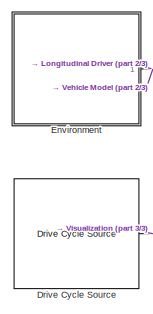
[diagram: root canvas - part 1/3, top left region]
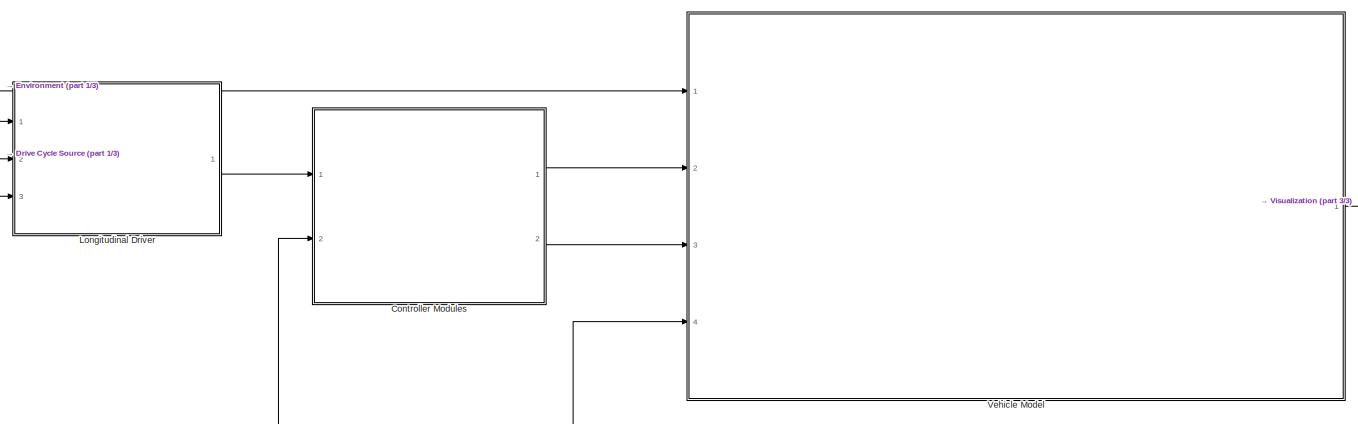
[diagram: root canvas - part 2/3, central region]
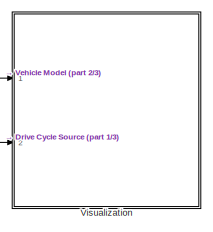
[diagram: root canvas - part 3/3, middle right region]
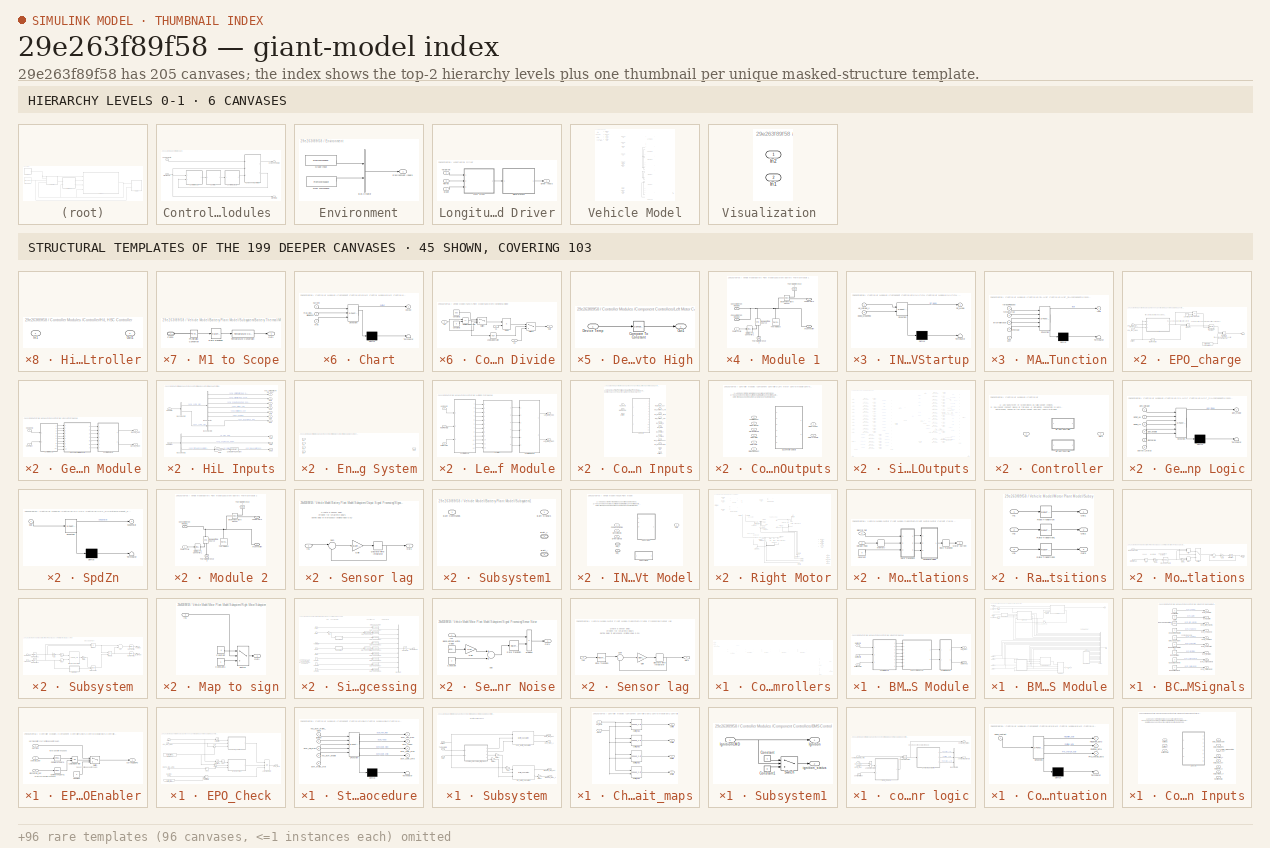
[diagram: thumbnail index - top-2 hierarchy levels (6 canvases) + 45 structural-template representatives of the remaining 199 canvases]
MODEL slx_29e263f89f58
KIND model
CONFIG AbsTol = auto
CONFIG EnableMultiTasking = off
CONFIG FixedStep = auto
CONFIG MaxStep = auto
CONFIG MinStep = auto
CONFIG RelTol = 1e-3
CONFIG SampleTimeConstraint = Unconstrained
CONFIG Solver = VariableStepAuto
CONFIG SolverName = VariableStepAuto
CONFIG StartTime = 0.0
CONFIG StopTime = 10.0
BLOCK [SubSystem] Controller Modules 
  Ports = [2, 2]
  RequestExecContextInheritance = off
  Variant = off
BLOCK [Outport] Controller Modules /Component CMD
  IconDisplay = Port number
BLOCK [SubSystem] Controller Modules /Component Controllers
  Ports = [3, 2]
  RequestExecContextInheritance = off
  Variant = off
BLOCK [SubSystem] Controller Modules /Component Controllers/BMS Control Module
  Ports = [3, 2]
  RequestExecContextInheritance = off
  Variant = off
BLOCK [SubSystem] Controller Modules /Component Controllers/BMS Control Module/BMS Controller Module
  Ports = [8, 2]
  RequestExecContextInheritance = off
  Variant = off
BLOCK [SubSystem] Controller Modules /Component Controllers/BMS Control Module/BMS Controller Module/BCM Constant Signals
  Ports = [0, 9]
  RequestExecContextInheritance = off
  Variant = off
BLOCK [Constant] Controller Modules /Component Controllers/BMS Control Module/BMS Controller Module/BCM Constant Signals/BMSAddCoolant
  Value = 0
BLOCK [Constant] Controller Modules /Component Controllers/BMS Control Module/BMS Controller Module/BCM Constant Signals/ESSCellOvervolt
  OutDataTypeStr = double
  Value = 0
BLOCK [Constant] Controller Modules /Component Controllers/BMS Control Module/BMS Controller Module/BCM Constant Signals/ESSCellUndervolt
  OutDataTypeStr = double
  Value = 0
BLOCK [Constant] Controller Modules /Component Controllers/BMS Control Module/BMS Controller Module/BCM Constant Signals/ESSChrgComplete
  Value = 0
BLOCK [Constant] Controller Modules /Component Controllers/BMS Control Module/BMS Controller Module/BCM Constant Signals/ESSChrgContctStatus
  Value = 0
BLOCK [Constant] Controller Modules /Component Controllers/BMS Control Module/BMS Controller Module/BCM Constant Signals/ESSLeakResistance
  Value = 1000
BLOCK [Constant] Controller Modules /Component Controllers/BMS Control Module/BMS Controller Module/BCM Constant Signals/ESSLlsStatus
BLOCK [Constant] Controller Modules /Component Controllers/BMS Control Module/BMS Controller Module/BCM Constant Signals/alarm
  Value = 0
BLOCK [Outport] Controller Modules /Component Controllers/BMS Control Module/BMS Controller Module/BCM Constant Signals/bcm_alarm
  IconDisplay = Port number
  Port = 2
BLOCK [Outport] Controller Modules /Component Controllers/BMS Control Module/BMS Controller Module/BCM Constant Signals/bcm_cellOvervolt
  IconDisplay = Port number
  Port = 9
BLOCK [Outport] Controller Modules /Component Controllers/BMS Control Module/BMS Controller Module/BCM Constant Signals/bcm_cellUndervolt
  IconDisplay = Port number
  Port = 8
BLOCK [Outport] Controller Modules /Component Controllers/BMS Control Module/BMS Controller Module/BCM Constant Signals/bcm_chgDone
  IconDisplay = Port number
  Port = 4
BLOCK [Outport] Controller Modules /Component Controllers/BMS Control Module/BMS Controller Module/BCM Constant Signals/bcm_chgcStat
  IconDisplay = Port number
  Port = 6
BLOCK [Outport] Controller Modules /Component Controllers/BMS Control Module/BMS Controller Module/BCM Constant Signals/bcm_coolReq
  IconDisplay = Port number
  Port = 5
BLOCK [Outport] Controller Modules /Component Controllers/BMS Control Module/BMS Controller Module/BCM Constant Signals/bcm_gfd_kOhms
  IconDisplay = Port number
  Port = 3
BLOCK [Outport] Controller Modules /Component Controllers/BMS Control Module/BMS Controller Module/BCM Constant Signals/bcm_llsStatus
  IconDisplay = Port number
  Port = 7
BLOCK [Outport] Controller Modules /Component Controllers/BMS Control Module/BMS Controller Module/BCM Constant Signals/bcm_onPlug
  IconDisplay = Port number
BLOCK [Constant] Controller Modules /Component Controllers/BMS Control Module/BMS Controller Module/BCM Constant Signals/chargerOn
  Value = 0
BLOCK [Inport] Controller Modules /Component Controllers/BMS Control Module/BMS Controller Module/BMS_BMSEPO
  IconDisplay = Port number
  Port = 2
BLOCK [Inport] Controller Modules /Component Controllers/BMS Control Module/BMS Controller Module/BMS_BMSEnable
  IconDisplay = Port number
BLOCK [Inport] Controller Modules /Component Controllers/BMS Control Module/BMS Controller Module/BMS_mainContctClose
  IconDisplay = Port number
  Port = 3
BLOCK [Inport] Controller Modules /Component Controllers/BMS Control Module/BMS Controller Module/Batt_SOC_pct
  IconDisplay = Port number
  Port = 5
BLOCK [Inport] Controller Modules /Component Controllers/BMS Control Module/BMS Controller Module/Batt_current_A
  IconDisplay = Port number
  Port = 4
BLOCK [Inport] Controller Modules /Component Controllers/BMS Control Module/BMS Controller Module/Batt_temp_C
  IconDisplay = Port number
  Port = 6
BLOCK [Inport] Controller Modules /Component Controllers/BMS Control Module/BMS Controller Module/Batt_voltage_V
  IconDisplay = Port number
  Port = 7
BLOCK [BusCreator] Controller Modules /Component Controllers/BMS Control Module/BMS Controller Module/Bus Creator
  DisplayOption = bar
  InheritFromInputs = on
  Inputs = 24
  Ports = [24, 1]
BLOCK [SubSystem] Controller Modules /Component Controllers/BMS Control Module/BMS Controller Module/EPO Check Enabler
  Ports = [3, 1]
  RequestExecContextInheritance = off
  Variant = off
BLOCK [Reference] Controller Modules /Component Controllers/BMS Control Module/BMS Controller Module/EPO Check Enabler/Compare To Zero  REF=simulink/Logic and Bit
Operations/Compare
To Zero
  Ports = [1, 1]
  SourceBlock = simulink/Logic and Bit\nOperations/Compare\nTo Zero
  SourceProductBaseCode = SL
  SourceProductName = Simulink
  SourceType = Compare To Zero
BLOCK [Reference] Controller Modules /Component Controllers/BMS Control Module/BMS Controller Module/EPO Check Enabler/Compare To Zero1  REF=simulink/Logic and Bit
Operations/Compare
To Zero
  Ports = [1, 1]
  SourceBlock = simulink/Logic and Bit\nOperations/Compare\nTo Zero
  SourceProductBaseCode = SL
  SourceProductName = Simulink
  SourceType = Compare To Zero
BLOCK [Constant] Controller Modules /Component Controllers/BMS Control Module/BMS Controller Module/EPO Check Enabler/Constant
  Value = 0
BLOCK [Inport] Controller Modules /Component Controllers/BMS Control Module/BMS Controller Module/EPO Check Enabler/Current
  IconDisplay = Port number
BLOCK [Logic] Controller Modules /Component Controllers/BMS Control Module/BMS Controller Module/EPO Check Enabler/Logical Operator
  AllPortsSameDT = off
  Operator = OR
  OutDataTypeStr = boolean
  Ports = [2, 1]
BLOCK [Switch] Controller Modules /Component Controllers/BMS Control Module/BMS Controller Module/EPO Check Enabler/Switch
  Criteria = u2 > Threshold
  InputSameDT = off
  SaturateOnIntegerOverflow = off
BLOCK [Inport] Controller Modules /Component Controllers/BMS Control Module/BMS Controller Module/EPO Check Enabler/charge_buf
  IconDisplay = Port number
  Port = 2
BLOCK [Outport] Controller Modules /Component Controllers/BMS Control Module/BMS Controller Module/EPO Check Enabler/current_toEPO
  IconDisplay = Port number
BLOCK [Inport] Controller Modules /Component Controllers/BMS Control Module/BMS Controller Module/EPO Check Enabler/discharge_buf
  IconDisplay = Port number
  Port = 3
BLOCK [SubSystem] Controller Modules /Component Controllers/BMS Control Module/BMS Controller Module/EPO_Check
  Ports = [4, 1]
  RequestExecContextInheritance = off
  Variant = off
BLOCK [Abs] Controller Modules /Component Controllers/BMS Control Module/BMS Controller Module/EPO_Check/Abs1
  SaturateOnIntegerOverflow = off
BLOCK [Abs] Controller Modules /Component Controllers/BMS Control Module/BMS Controller Module/EPO_Check/Abs2
  SaturateOnIntegerOverflow = off
BLOCK [Constant] Controller Modules /Component Controllers/BMS Control Module/BMS Controller Module/EPO_Check/Allowance 
  Value = bat.currentallowance
BLOCK [Inport] Controller Modules /Component Controllers/BMS Control Module/BMS Controller Module/EPO_Check/Chg_max_amps
  IconDisplay = Port number
  Port = 2
BLOCK [Inport] Controller Modules /Component Controllers/BMS Control Module/BMS Controller Module/EPO_Check/Current
  IconDisplay = Port number
BLOCK [Inport] Controller Modules /Component Controllers/BMS Control Module/BMS Controller Module/EPO_Check/DisChg_max_amps
  IconDisplay = Port number
  Port = 3
BLOCK [Outport] Controller Modules /Component Controllers/BMS Control Module/BMS Controller Module/EPO_Check/EPO_BCM
  IconDisplay = Port number
BLOCK [SubSystem] Controller Modules /Component Controllers/BMS Control Module/BMS Controller Module/EPO_Check/EPO_charge
  Ports = [3, 1]
  RequestExecContextInheritance = off
  Variant = off
BLOCK [SubSystem] Controller Modules /Component Controllers/BMS Control Module/BMS Controller Module/EPO_Check/EPO_charge/Chart
  ErrorFcn = Stateflow.Translate.translate
  PermitHierarchicalResolution = ExplicitOnly
  Ports = [3, 1]
  RequestExecContextInheritance = off
  SFBlockType = Chart
  TreatAsAtomicUnit = on
  Variant = off
BLOCK [Demux] Controller Modules /Component Controllers/BMS Control Module/BMS Controller Module/EPO_Check/EPO_charge/Chart/ Demux 
  Outputs = 1
  Ports = [1, 1]
BLOCK [S-Function] Controller Modules /Component Controllers/BMS Control Module/BMS Controller Module/EPO_Check/EPO_charge/Chart/ SFunction 
  EnableBusSupport = off
  FunctionName = sf_sfun
  PortCounts = [3 2]
  Ports = [3, 2]
  SFcnIsStateOwnerBlock = off
  SFunctionDeploymentMode = off
  Tag = Stateflow S-Function fullVehicleModel_17b 2
BLOCK [Terminator] Controller Modules /Component Controllers/BMS Control Module/BMS Controller Module/EPO_Check/EPO_charge/Chart/ Terminator 
BLOCK [Inport] Controller Modules /Component Controllers/BMS Control Module/BMS Controller Module/EPO_Check/EPO_charge/Chart/Current
  IconDisplay = Port number
BLOCK [Inport] Controller Modules /Component Controllers/BMS Control Module/BMS Controller Module/EPO_Check/EPO_charge/Chart/max
  IconDisplay = Port number
  Port = 3
BLOCK [Inport] Controller Modules /Component Controllers/BMS Control Module/BMS Controller Module/EPO_Check/EPO_charge/Chart/max_plus_allowance
  IconDisplay = Port number
  Port = 2
BLOCK [Outport] Controller Modules /Component Controllers/BMS Control Module/BMS Controller Module/EPO_Check/EPO_charge/Chart/output
  IconDisplay = Port number
BLOCK [Inport] Controller Modules /Component Controllers/BMS Control Module/BMS Controller Module/EPO_Check/EPO_charge/Chg_max_amps
  IconDisplay = Port number
  Port = 2
BLOCK [Inport] Controller Modules /Component Controllers/BMS Control Module/BMS Controller Module/EPO_Check/EPO_charge/Chg_max_plus_allowance
  IconDisplay = Port number
  Port = 3
BLOCK [Constant] Controller Modules /Component Controllers/BMS Control Module/BMS Controller Module/EPO_Check/EPO_charge/Constant
  Value = bat.EPOintLimit
BLOCK [Constant] Controller Modules /Component Controllers/BMS Control Module/BMS Controller Module/EPO_Check/EPO_charge/Constant1
  Value = 0
BLOCK [Inport] Controller Modules /Component Controllers/BMS Control Module/BMS Controller Module/EPO_Check/EPO_charge/Current
  IconDisplay = Port number
BLOCK [DiscreteIntegrator] Controller Modules /Component Controllers/BMS Control Module/BMS Controller Module/EPO_Check/EPO_charge/Discrete-Time Integrator
  ExternalReset = level
  ICPrevOutput = DiscIntNeverNeededParam
  ICPrevScaledInput = DiscIntNeverNeededParam
  InitialConditionSetting = State (most efficient)
  Ports = [2, 1]
  SampleTime = Ts
BLOCK [Outport] Controller Modules /Component Controllers/BMS Control Module/BMS Controller Module/EPO_Check/EPO_charge/EPO
  IconDisplay = Port number
BLOCK [Math] Controller Modules /Component Controllers/BMS Control Module/BMS Controller Module/EPO_Check/EPO_charge/Math Function
  Operator = square
  Ports = [1, 1]
BLOCK [Product] Controller Modules /Component Controllers/BMS Control Module/BMS Controller Module/EPO_Check/EPO_charge/Product
  InputSameDT = off
  OutDataTypeStr = Inherit: Inherit via internal rule
  Ports = [2, 1]
  RndMeth = Floor
  SaturateOnIntegerOverflow = off
BLOCK [RelationalOperator] Controller Modules /Component Controllers/BMS Control Module/BMS Controller Module/EPO_Check/EPO_charge/Relational Operator
  InputSameDT = off
  Operator = ==
  OutDataTypeStr = boolean
  Ports = [2, 1]
BLOCK [RelationalOperator] Controller Modules /Component Controllers/BMS Control Module/BMS Controller Module/EPO_Check/EPO_charge/Relational Operator1
  InputSameDT = off
  Operator = >
  OutDataTypeStr = boolean
  Ports = [2, 1]
BLOCK [SubSystem] Controller Modules /Component Controllers/BMS Control Module/BMS Controller Module/EPO_Check/EPO_discharge
  Ports = [3, 1]
  RequestExecContextInheritance = off
  Variant = off
BLOCK [SubSystem] Controller Modules /Component Controllers/BMS Control Module/BMS Controller Module/EPO_Check/EPO_discharge/Chart
  ErrorFcn = Stateflow.Translate.translate
  PermitHierarchicalResolution = ExplicitOnly
  Ports = [3, 1]
  RequestExecContextInheritance = off
  SFBlockType = Chart
  TreatAsAtomicUnit = on
  Variant = off
BLOCK [Demux] Controller Modules /Component Controllers/BMS Control Module/BMS Controller Module/EPO_Check/EPO_discharge/Chart/ Demux 
  Outputs = 1
  Ports = [1, 1]
BLOCK [S-Function] Controller Modules /Component Controllers/BMS Control Module/BMS Controller Module/EPO_Check/EPO_discharge/Chart/ SFunction 
  EnableBusSupport = off
  FunctionName = sf_sfun
  PortCounts = [3 2]
  Ports = [3, 2]
  SFcnIsStateOwnerBlock = off
  SFunctionDeploymentMode = off
  Tag = Stateflow S-Function fullVehicleModel_17b 5
BLOCK [Terminator] Controller Modules /Component Controllers/BMS Control Module/BMS Controller Module/EPO_Check/EPO_discharge/Chart/ Terminator 
BLOCK [Inport] Controller Modules /Component Controllers/BMS Control Module/BMS Controller Module/EPO_Check/EPO_discharge/Chart/Current
  IconDisplay = Port number
BLOCK [Inport] Controller Modules /Component Controllers/BMS Control Module/BMS Controller Module/EPO_Check/EPO_discharge/Chart/max
  IconDisplay = Port number
  Port = 3
BLOCK [Inport] Controller Modules /Component Controllers/BMS Control Module/BMS Controller Module/EPO_Check/EPO_discharge/Chart/max_plus_allowance
  IconDisplay = Port number
  Port = 2
BLOCK [Outport] Controller Modules /Component Controllers/BMS Control Module/BMS Controller Module/EPO_Check/EPO_discharge/Chart/output
  IconDisplay = Port number
BLOCK [Constant] Controller Modules /Component Controllers/BMS Control Module/BMS Controller Module/EPO_Check/EPO_discharge/Constant
  Value = bat.EPOintLimit
BLOCK [Constant] Controller Modules /Component Controllers/BMS Control Module/BMS Controller Module/EPO_Check/EPO_discharge/Constant1
  Value = 0
BLOCK [Inport] Controller Modules /Component Controllers/BMS Control Module/BMS Controller Module/EPO_Check/EPO_discharge/Current
  IconDisplay = Port number
BLOCK [Inport] Controller Modules /Component Controllers/BMS Control Module/BMS Controller Module/EPO_Check/EPO_discharge/DIsChg_max_amps
  IconDisplay = Port number
  Port = 3
BLOCK [DiscreteIntegrator] Controller Modules /Component Controllers/BMS Control Module/BMS Controller Module/EPO_Check/EPO_discharge/Discrete-Time Integrator
  ExternalReset = level
  ICPrevOutput = DiscIntNeverNeededParam
  ICPrevScaledInput = DiscIntNeverNeededParam
  InitialConditionSetting = State (most efficient)
  Ports = [2, 1]
  SampleTime = Ts
BLOCK [Outport] Controller Modules /Component Controllers/BMS Control Module/BMS Controller Module/EPO_Check/EPO_discharge/EPO
  IconDisplay = Port number
BLOCK [Math] Controller Modules /Component Controllers/BMS Control Module/BMS Controller Module/EPO_Check/EPO_discharge/Math Function
  Operator = square
  Ports = [1, 1]
BLOCK [Product] Controller Modules /Component Controllers/BMS Control Module/BMS Controller Module/EPO_Check/EPO_discharge/Product
  InputSameDT = off
  OutDataTypeStr = Inherit: Inherit via internal rule
  Ports = [2, 1]
  RndMeth = Floor
  SaturateOnIntegerOverflow = off
BLOCK [RelationalOperator] Controller Modules /Component Controllers/BMS Control Module/BMS Controller Module/EPO_Check/EPO_discharge/Relational Operator
  InputSameDT = off
  Operator = ==
  OutDataTypeStr = boolean
  Ports = [2, 1]
BLOCK [RelationalOperator] Controller Modules /Component Controllers/BMS Control Module/BMS Controller Module/EPO_Check/EPO_discharge/Relational Operator1
  InputSameDT = off
  Operator = >
  OutDataTypeStr = boolean
  Ports = [2, 1]
BLOCK [Inport] Controller Modules /Component Controllers/BMS Control Module/BMS Controller Module/EPO_Check/EPO_discharge/max_discharge_plus_allowance
  IconDisplay = Port number
  Port = 2
BLOCK [Logic] Controller Modules /Component Controllers/BMS Control Module/BMS Controller Module/EPO_Check/Logical Operator
  AllPortsSameDT = off
  Inputs = 3
  Operator = OR
  OutDataTypeStr = boolean
  Ports = [3, 1]
BLOCK [RelationalOperator] Controller Modules /Component Controllers/BMS Control Module/BMS Controller Module/EPO_Check/Relational Operator1
  InputSameDT = off
  Operator = >
  OutDataTypeStr = boolean
  Ports = [2, 1]
BLOCK [Saturate] Controller Modules /Component Controllers/BMS Control Module/BMS Controller Module/EPO_Check/Saturation
  InputPortMap = u0
  LowerLimit = 0
  Ports = [1, 1]
  UpperLimit = inf
BLOCK [Saturate] Controller Modules /Component Controllers/BMS Control Module/BMS Controller Module/EPO_Check/Saturation1
  InputPortMap = u0
  LowerLimit = -inf
  Ports = [1, 1]
  UpperLimit = 0
BLOCK [Sum] Controller Modules /Component Controllers/BMS Control Module/BMS Controller Module/EPO_Check/Sum
  IconShape = round
  InputSameDT = off
  Inputs = |++
  OutDataTypeStr = Inherit: Inherit via internal rule
  Ports = [2, 1]
  SaturateOnIntegerOverflow = off
BLOCK [Sum] Controller Modules /Component Controllers/BMS Control Module/BMS Controller Module/EPO_Check/Sum1
  IconShape = round
  InputSameDT = off
  Inputs = |++
  OutDataTypeStr = Inherit: Inherit via internal rule
  Ports = [2, 1]
  SaturateOnIntegerOverflow = off
BLOCK [Constant] Controller Modules /Component Controllers/BMS Control Module/BMS Controller Module/EPO_Check/Temp_Max
  Value = bat.maxtemp
BLOCK [Inport] Controller Modules /Component Controllers/BMS Control Module/BMS Controller Module/EPO_Check/bat_temp
  IconDisplay = Port number
  Port = 4
BLOCK [From] Controller Modules /Component Controllers/BMS Control Module/BMS Controller Module/From
  GotoTag = EPO_BCM
BLOCK [From] Controller Modules /Component Controllers/BMS Control Module/BMS Controller Module/From1
  GotoTag = EPO_BCM
BLOCK [Goto] Controller Modules /Component Controllers/BMS Control Module/BMS Controller Module/Goto
  GotoTag = EPO_BCM
BLOCK [Inport] Controller Modules /Component Controllers/BMS Control Module/BMS Controller Module/IgnitionCMD
  IconDisplay = Port number
  Port = 8
BLOCK [Memory] Controller Modules /Component Controllers/BMS Control Module/BMS Controller Module/Memory1
  InheritSampleTime = on
BLOCK [Outport] Controller Modules /Component Controllers/BMS Control Module/BMS Controller Module/Out1
  IconDisplay = Port number
BLOCK [Outport] Controller Modules /Component Controllers/BMS Control Module/BMS Controller Module/Out2
  IconDisplay = Port number
  Port = 2
BLOCK [SubSystem] Controller Modules /Component Controllers/BMS Control Module/BMS Controller Module/Startup Procedure
  ErrorFcn = Stateflow.Translate.translate
  PermitHierarchicalResolution = ExplicitOnly
  Ports = [5, 4]
  RequestExecContextInheritance = off
  SFBlockType = Chart
  TreatAsAtomicUnit = on
  Variant = off
BLOCK [Demux] Controller Modules /Component Controllers/BMS Control Module/BMS Controller Module/Startup Procedure/ Demux 
  Outputs = 1
  Ports = [1, 1]
BLOCK [S-Function] Controller Modules /Component Controllers/BMS Control Module/BMS Controller Module/Startup Procedure/ SFunction 
  EnableBusSupport = off
  FunctionName = sf_sfun
  PortCounts = [5 5]
  Ports = [5, 5]
  SFcnIsStateOwnerBlock = off
  SFunctionDeploymentMode = off
  Tag = Stateflow S-Function fullVehicleModel_17b 6
BLOCK [Terminator] Controller Modules /Component Controllers/BMS Control Module/BMS Controller Module/Startup Procedure/ Terminator 
BLOCK [Outport] Controller Modules /Component Controllers/BMS Control Module/BMS Controller Module/Startup Procedure/bcm_cpwr_cmd
  IconDisplay = Port number
  Port = 4
BLOCK [Outport] Controller Modules /Component Controllers/BMS Control Module/BMS Controller Module/Startup Procedure/bcm_cpwr_mon
  IconDisplay = Port number
  Port = 3
BLOCK [Inport] Controller Modules /Component Controllers/BMS Control Module/BMS Controller Module/Startup Procedure/bcm_hvil_mon
  IconDisplay = Port number
  Port = 3
BLOCK [Inport] Controller Modules /Component Controllers/BMS Control Module/BMS Controller Module/Startup Procedure/bcm_mainc_stat
  IconDisplay = Port number
  Port = 5
BLOCK [Outport] Controller Modules /Component Controllers/BMS Control Module/BMS Controller Module/Startup Procedure/bcm_ready
  IconDisplay = Port number
  Port = 2
BLOCK [Outport] Controller Modules /Component Controllers/BMS Control Module/BMS Controller Module/Startup Procedure/bcm_veh_mon
  IconDisplay = Port number
BLOCK [Inport] Controller Modules /Component Controllers/BMS Control Module/BMS Controller Module/Startup Procedure/hsc_bcm_enable
  IconDisplay = Port number
  Port = 4
BLOCK [Inport] Controller Modules /Component Controllers/BMS Control Module/BMS Controller Module/Startup Procedure/hsc_bcm_mainc_close
  IconDisplay = Port number
BLOCK [Inport] Controller Modules /Component Controllers/BMS Control Module/BMS Controller Module/Startup Procedure/ignition
  IconDisplay = Port number
  Port = 2
BLOCK [SubSystem] Controller Modules /Component Controllers/BMS Control Module/BMS Controller Module/Subsystem
  Ports = [3, 4]
  RequestExecContextInheritance = off
  Variant = off
BLOCK [SubSystem] Controller Modules /Component Controllers/BMS Control Module/BMS Controller Module/Subsystem/Charge_Discharge_limit_maps
  Ports = [2, 4]
  RequestExecContextInheritance = off
  Variant = off
BLOCK [Inport] Controller Modules /Component Controllers/BMS Control Module/BMS Controller Module/Subsystem/Charge_Discharge_limit_maps/bat_temp
  IconDisplay = Port number
BLOCK [Outport] Controller Modules /Component Controllers/BMS Control Module/BMS Controller Module/Subsystem/Charge_Discharge_limit_maps/cclimit
  IconDisplay = Port number
  Port = 2
BLOCK [Lookup_n-D] Controller Modules /Component Controllers/BMS Control Module/BMS Controller Module/Subsystem/Charge_Discharge_limit_maps/cclimit_map
  BreakpointsForDimension1 = Batt.ChargeLimit.cont.temp
  BreakpointsForDimension2 = Batt.ChargeLimit.cont.soc
  InternalRulePriority = Speed
  Ports = [2, 1]
  RndMeth = Simplest
  Table = Batt.ChargeLimit.cont.map
BLOCK [Outport] Controller Modules /Component Controllers/BMS Control Module/BMS Controller Module/Subsystem/Charge_Discharge_limit_maps/cplimit
  IconDisplay = Port number
BLOCK [Lookup_n-D] Controller Modules /Component Controllers/BMS Control Module/BMS Controller Module/Subsystem/Charge_Discharge_limit_maps/cplimit_map
  BreakpointsForDimension1 = Batt.ChargeLimit.peak.temp
  BreakpointsForDimension2 = Batt.ChargeLimit.peak.soc
  InternalRulePriority = Speed
  Ports = [2, 1]
  RndMeth = Simplest
  Table = Batt.ChargeLimit.peak.map
BLOCK [Outport] Controller Modules /Component Controllers/BMS Control Module/BMS Controller Module/Subsystem/Charge_Discharge_limit_maps/dclimit
  IconDisplay = Port number
  Port = 4
BLOCK [Lookup_n-D] Controller Modules /Component Controllers/BMS Control Module/BMS Controller Module/Subsystem/Charge_Discharge_limit_maps/dclimit_map
  BreakpointsForDimension1 = Batt.dichargeLimit.cont.temp
  BreakpointsForDimension2 = Batt.dichargeLimit.cont.soc
  InternalRulePriority = Speed
  Ports = [2, 1]
  RndMeth = Simplest
  Table = Batt.dichargeLimit.cont.map
BLOCK [Outport] Controller Modules /Component Controllers/BMS Control Module/BMS Controller Module/Subsystem/Charge_Discharge_limit_maps/dplimit
  IconDisplay = Port number
  Port = 3
BLOCK [Lookup_n-D] Controller Modules /Component Controllers/BMS Control Module/BMS Controller Module/Subsystem/Charge_Discharge_limit_maps/dplimit_map
  BreakpointsForDimension1 = Batt.dichargeLimit.peak.temp
  BreakpointsForDimension2 = Batt.dichargeLimit.peak.soc
  InternalRulePriority = Speed
  Ports = [2, 1]
  RndMeth = Simplest
  Table = Batt.dichargeLimit.peak.map
BLOCK [Inport] Controller Modules /Component Controllers/BMS Control Module/BMS Controller Module/Subsystem/Charge_Discharge_limit_maps/soc %
  IconDisplay = Port number
  Port = 2
BLOCK [Outport] Controller Modules /Component Controllers/BMS Control Module/BMS Controller Module/Subsystem/Chg_Buf_pct
  IconDisplay = Port number
BLOCK [Reference] Controller Modules /Component Controllers/BMS Control Module/BMS Controller Module/Subsystem/Chg_Buffer_Calculation  REF=Battery_lib/Buffer_Calculation
  Ports = [3, 2]
  SourceBlock = Battery_lib/Buffer_Calculation
  SourceType = SubSystem
BLOCK [Outport] Controller Modules /Component Controllers/BMS Control Module/BMS Controller Module/Subsystem/Chg_max_A
  IconDisplay = Port number
  Port = 3
BLOCK [Inport] Controller Modules /Component Controllers/BMS Control Module/BMS Controller Module/Subsystem/Current
  IconDisplay = Port number
BLOCK [Outport] Controller Modules /Component Controllers/BMS Control Module/BMS Controller Module/Subsystem/DisChg_Buf_pct
  IconDisplay = Port number
  Port = 2
BLOCK [Outport] Controller Modules /Component Controllers/BMS Control Module/BMS Controller Module/Subsystem/DisChg_max_A
  IconDisplay = Port number
  Port = 4
BLOCK [Reference] Controller Modules /Component Controllers/BMS Control Module/BMS Controller Module/Subsystem/Dis_Buffer_Calculation  REF=Battery_lib/Buffer_Calculation
  Ports = [3, 2]
  SourceBlock = Battery_lib/Buffer_Calculation
  SourceType = SubSystem
BLOCK [Gain] Controller Modules /Component Controllers/BMS Control Module/BMS Controller Module/Subsystem/Gain
  Gain = -1
  OutDataTypeStr = Inherit: Inherit via internal rule
  ParamDataTypeStr = Inherit: Inherit via internal rule
  SaturateOnIntegerOverflow = off
BLOCK [Gain] Controller Modules /Component Controllers/BMS Control Module/BMS Controller Module/Subsystem/Gain1
  Gain = -1
  OutDataTypeStr = Inherit: Inherit via internal rule
  ParamDataTypeStr = Inherit: Inherit via internal rule
  SaturateOnIntegerOverflow = off
BLOCK [Gain] Controller Modules /Component Controllers/BMS Control Module/BMS Controller Module/Subsystem/Gain2
  Gain = -1
  OutDataTypeStr = Inherit: Inherit via internal rule
  ParamDataTypeStr = Inherit: Inherit via internal rule
  SaturateOnIntegerOverflow = off
BLOCK [Gain] Controller Modules /Component Controllers/BMS Control Module/BMS Controller Module/Subsystem/Gain4
  Gain = -1
  OutDataTypeStr = Inherit: Inherit via internal rule
  ParamDataTypeStr = Inherit: Inherit via internal rule
  SaturateOnIntegerOverflow = off
BLOCK [Inport] Controller Modules /Component Controllers/BMS Control Module/BMS Controller Module/Subsystem/SOC
  IconDisplay = Port number
  Port = 2
BLOCK [Inport] Controller Modules /Component Controllers/BMS Control Module/BMS Controller Module/Subsystem/Temperature
  IconDisplay = Port number
  Port = 3
BLOCK [SubSystem] Controller Modules /Component Controllers/BMS Control Module/BMS Controller Module/Subsystem1
  Ports = [1, 2]
  RequestExecContextInheritance = off
  Variant = off
BLOCK [Constant] Controller Modules /Component Controllers/BMS Control Module/BMS Controller Module/Subsystem1/Constant
BLOCK [Constant] Controller Modules /Component Controllers/BMS Control Module/BMS Controller Module/Subsystem1/Constant1
  Value = 0
BLOCK [Inport] Controller Modules /Component Controllers/BMS Control Module/BMS Controller Module/Subsystem1/IgnitiionCMD
  IconDisplay = Port number
BLOCK [Outport] Controller Modules /Component Controllers/BMS Control Module/BMS Controller Module/Subsystem1/Ignition
  IconDisplay = Port number
BLOCK [Switch] Controller Modules /Component Controllers/BMS Control Module/BMS Controller Module/Subsystem1/Switch
  Criteria = u2 > Threshold
  InputSameDT = off
  SaturateOnIntegerOverflow = off
BLOCK [Outport] Controller Modules /Component Controllers/BMS Control Module/BMS Controller Module/Subsystem1/ignition_status
  IconDisplay = Port number
  Port = 2
BLOCK [UnitDelay] Controller Modules /Component Controllers/BMS Control Module/BMS Controller Module/Unit Delay
  InputProcessing = Elements as channels (sample based)
  SampleTime = -1
BLOCK [UnitDelay] Controller Modules /Component Controllers/BMS Control Module/BMS Controller Module/Unit Delay1
  InputProcessing = Elements as channels (sample based)
  SampleTime = -1
BLOCK [SubSystem] Controller Modules /Component Controllers/BMS Control Module/BMS Controller Module/contactor logic
  Ports = [4, 2]
  RequestExecContextInheritance = off
  Variant = off
BLOCK [BusCreator] Controller Modules /Component Controllers/BMS Control Module/BMS Controller Module/contactor logic/Bus Creator1
  DisplayOption = bar
  InheritFromInputs = on
  Inputs = 3
  Ports = [3, 1]
BLOCK [SubSystem] Controller Modules /Component Controllers/BMS Control Module/BMS Controller Module/contactor logic/Contactor_actuation
  ErrorFcn = Stateflow.Translate.translate
  PermitHierarchicalResolution = ExplicitOnly
  Ports = [1, 3]
  RequestExecContextInheritance = off
  SFBlockType = Chart
  TreatAsAtomicUnit = on
  Variant = off
BLOCK [Demux] Controller Modules /Component Controllers/BMS Control Module/BMS Controller Module/contactor logic/Contactor_actuation/ Demux 
  Outputs = 1
  Ports = [1, 1]
BLOCK [S-Function] Controller Modules /Component Controllers/BMS Control Module/BMS Controller Module/contactor logic/Contactor_actuation/ SFunction 
  EnableBusSupport = off
  FunctionName = sf_sfun
  PortCounts = [1 4]
  Ports = [1, 4]
  SFcnIsStateOwnerBlock = off
  SFunctionDeploymentMode = off
  Tag = Stateflow S-Function fullVehicleModel_17b 7
BLOCK [Terminator] Controller Modules /Component Controllers/BMS Control Module/BMS Controller Module/contactor logic/Contactor_actuation/ Terminator 
BLOCK [Outport] Controller Modules /Component Controllers/BMS Control Module/BMS Controller Module/contactor logic/Contactor_actuation/Negative_actu
  IconDisplay = Port number
BLOCK [Outport] Controller Modules /Component Controllers/BMS Control Module/BMS Controller Module/contactor logic/Contactor_actuation/Positive_actu
  IconDisplay = Port number
  Port = 2
BLOCK [Outport] Controller Modules /Component Controllers/BMS Control Module/BMS Controller Module/contactor logic/Contactor_actuation/Pre_charge_actu
  IconDisplay = Port number
  Port = 3
BLOCK [Inport] Controller Modules /Component Controllers/BMS Control Module/BMS Controller Module/contactor logic/Contactor_actuation/close_contact
  IconDisplay = Port number
BLOCK [SubSystem] Controller Modules /Component Controllers/BMS Control Module/BMS Controller Module/contactor logic/EPO_Check
  ErrorFcn = Stateflow.Translate.translate
  PermitHierarchicalResolution = ExplicitOnly
  Ports = [2, 1]
  RequestExecContextInheritance = off
  SFBlockType = Chart
  TreatAsAtomicUnit = on
  Variant = off
BLOCK [Demux] Controller Modules /Component Controllers/BMS Control Module/BMS Controller Module/contactor logic/EPO_Check/ Demux 
  Outputs = 1
  Ports = [1, 1]
BLOCK [S-Function] Controller Modules /Component Controllers/BMS Control Module/BMS Controller Module/contactor logic/EPO_Check/ SFunction 
  EnableBusSupport = off
  FunctionName = sf_sfun
  PortCounts = [2 2]
  Ports = [2, 2]
  SFcnIsStateOwnerBlock = off
  SFunctionDeploymentMode = off
  Tag = Stateflow S-Function fullVehicleModel_17b 8
BLOCK [Terminator] Controller Modules /Component Controllers/BMS Control Module/BMS Controller Module/contactor logic/EPO_Check/ Terminator 
BLOCK [Inport] Controller Modules /Component Controllers/BMS Control Module/BMS Controller Module/contactor logic/EPO_Check/EPO
  IconDisplay = Port number
BLOCK [Inport] Controller Modules /Component Controllers/BMS Control Module/BMS Controller Module/contactor logic/EPO_Check/contactor_rqst
  IconDisplay = Port number
  Port = 2
BLOCK [Outport] Controller Modules /Component Controllers/BMS Control Module/BMS Controller Module/contactor logic/EPO_Check/contactors
  IconDisplay = Port number
BLOCK [Logic] Controller Modules /Component Controllers/BMS Control Module/BMS Controller Module/contactor logic/Logical Operator
  AllPortsSameDT = off
  OutDataTypeStr = boolean
  Ports = [2, 1]
BLOCK [Logic] Controller Modules /Component Controllers/BMS Control Module/BMS Controller Module/contactor logic/Logical Operator1
  AllPortsSameDT = off
  Operator = OR
  OutDataTypeStr = boolean
  Ports = [2, 1]
BLOCK [Inport] Controller Modules /Component Controllers/BMS Control Module/BMS Controller Module/contactor logic/bcm_epo
  IconDisplay = Port number
  Port = 4
BLOCK [Outport] Controller Modules /Component Controllers/BMS Control Module/BMS Controller Module/contactor logic/contactor _signals
  IconDisplay = Port number
BLOCK [Outport] Controller Modules /Component Controllers/BMS Control Module/BMS Controller Module/contactor logic/contactor _status
  IconDisplay = Port number
  Port = 2
BLOCK [Inport] Controller Modules /Component Controllers/BMS Control Module/BMS Controller Module/contactor logic/contactor rqst
  IconDisplay = Port number
  Port = 2
BLOCK [Inport] Controller Modules /Component Controllers/BMS Control Module/BMS Controller Module/contactor logic/contactor_pwr_cmd
  IconDisplay = Port number
  Port = 3
BLOCK [Inport] Controller Modules /Component Controllers/BMS Control Module/BMS Controller Module/contactor logic/hsc_epo
  IconDisplay = Port number
BLOCK [Inport] Controller Modules /Component Controllers/BMS Control Module/BattHSCIn
  IconDisplay = Port number
BLOCK [Inport] Controller Modules /Component Controllers/BMS Control Module/BattPlantIn
  IconDisplay = Port number
  Port = 2
BLOCK [Outport] Controller Modules /Component Controllers/BMS Control Module/BattToHSC
  IconDisplay = Port number
BLOCK [Outport] Controller Modules /Component Controllers/BMS Control Module/Batt_plant
  IconDisplay = Port number
  Port = 2
BLOCK [SubSystem] Controller Modules /Component Controllers/BMS Control Module/Controller Inputs
  Ports = [3, 8]
  RequestExecContextInheritance = off
  Variant = on
BLOCK [Outport] Controller Modules /Component Controllers/BMS Control Module/Controller Inputs/BMS_BMSEPO
  IconDisplay = Port number
  Port = 2
BLOCK [Outport] Controller Modules /Component Controllers/BMS Control Module/Controller Inputs/BMS_BMSEnable
  IconDisplay = Port number
BLOCK [Outport] Controller Modules /Component Controllers/BMS Control Module/Controller Inputs/BMS_mainContctClose
  IconDisplay = Port number
  Port = 3
BLOCK [Inport] Controller Modules /Component Controllers/BMS Control Module/Controller Inputs/BattHSC
  IconDisplay = Port number
BLOCK [Inport] Controller Modules /Component Controllers/BMS Control Module/Controller Inputs/BattPlant
  IconDisplay = Port number
  Port = 2
BLOCK [Outport] Controller Modules /Component Controllers/BMS Control Module/Controller Inputs/Batt_SOC_pct
  IconDisplay = Port number
  Port = 5
BLOCK [Outport] Controller Modules /Component Controllers/BMS Control Module/Controller Inputs/Batt_current_A
  IconDisplay = Port number
  Port = 4
BLOCK [Outport] Controller Modules /Component Controllers/BMS Control Module/Controller Inputs/Batt_temp_C
  IconDisplay = Port number
  Port = 6
BLOCK [Outport] Controller Modules /Component Controllers/BMS Control Module/Controller Inputs/Batt_voltage_V
  IconDisplay = Port number
  Port = 7
BLOCK [Inport] Controller Modules /Component Controllers/BMS Control Module/Controller Inputs/IgnitionCMD
  IconDisplay = Port number
  Port = 3
BLOCK [Outport] Controller Modules /Component Controllers/BMS Control Module/Controller Inputs/IngnitionCMD
  IconDisplay = Port number
  Port = 8
BLOCK [SubSystem] Controller Modules /Component Controllers/BMS Control Module/Controller Inputs/SiL Inputs
  Ports = [3, 8]
  RequestExecContextInheritance = off
  Variant = off
  VariantControl = Variant
BLOCK [Outport] Controller Modules /Component Controllers/BMS Control Module/Controller Inputs/SiL Inputs/BMS_BMSEPO
  IconDisplay = Port number
  Port = 2
BLOCK [Outport] Controller Modules /Component Controllers/BMS Control Module/Controller Inputs/SiL Inputs/BMS_BMSEnable
  IconDisplay = Port number
BLOCK [Outport] Controller Modules /Component Controllers/BMS Control Module/Controller Inputs/SiL Inputs/BMS_mainContctClose
  IconDisplay = Port number
  Port = 3
BLOCK [Inport] Controller Modules /Component Controllers/BMS Control Module/Controller Inputs/SiL Inputs/BattHSC
  IconDisplay = Port number
BLOCK [Inport] Controller Modules /Component Controllers/BMS Control Module/Controller Inputs/SiL Inputs/BattPlant
  IconDisplay = Port number
  Port = 2
BLOCK [Outport] Controller Modules /Component Controllers/BMS Control Module/Controller Inputs/SiL Inputs/Batt_SOC_pct
  IconDisplay = Port number
  Port = 5
BLOCK [Outport] Controller Modules /Component Controllers/BMS Control Module/Controller Inputs/SiL Inputs/Batt_current_A
  IconDisplay = Port number
  Port = 4
BLOCK [Outport] Controller Modules /Component Controllers/BMS Control Module/Controller Inputs/SiL Inputs/Batt_temp_C
  IconDisplay = Port number
  Port = 6
BLOCK [Outport] Controller Modules /Component Controllers/BMS Control Module/Controller Inputs/SiL Inputs/Batt_voltage_V
  IconDisplay = Port number
  Port = 7
BLOCK [BusSelector] Controller Modules /Component Controllers/BMS Control Module/Controller Inputs/SiL Inputs/Bus Selector1
  OutputAsBus = off
  OutputSignals = Current,SOC,Batt_Temp_C,Voltage
  Ports = [1, 4]
BLOCK [BusSelector] Controller Modules /Component Controllers/BMS Control Module/Controller Inputs/SiL Inputs/Bus Selector3
  OutputAsBus = off
  OutputSignals = hsc_bcmEnable,hsc_bcm_epo,hsc_maincClose
  Ports = [1, 3]
BLOCK [DataTypeConversion] Controller Modules /Component Controllers/BMS Control Module/Controller Inputs/SiL Inputs/Conversion_setBmsEnable
  OutDataTypeStr = boolean
  RndMeth = Floor
  SaturateOnIntegerOverflow = off
BLOCK [DataTypeConversion] Controller Modules /Component Controllers/BMS Control Module/Controller Inputs/SiL Inputs/Conversion_setBmsEpo
  OutDataTypeStr = boolean
  RndMeth = Floor
  SaturateOnIntegerOverflow = off
BLOCK [DataTypeConversion] Controller Modules /Component Controllers/BMS Control Module/Controller Inputs/SiL Inputs/Conversion_setBmsMainContactorClose
  OutDataTypeStr = boolean
  RndMeth = Floor
  SaturateOnIntegerOverflow = off
BLOCK [Inport] Controller Modules /Component Controllers/BMS Control Module/Controller Inputs/SiL Inputs/IgnitionCMD
  IconDisplay = Port number
  Port = 3
BLOCK [Outport] Controller Modules /Component Controllers/BMS Control Module/Controller Inputs/SiL Inputs/IngnitionCMD
  IconDisplay = Port number
  Port = 8
BLOCK [Reference] Controller Modules /Component Controllers/BMS Control Module/Controller Inputs/SiL Inputs/Override_setBmsEnable  REF=Battery_lib/BMS/SoftECU_BMS_Rx_SetterConversion1/Override_setBmsEnable
  Ports = [1, 1]
  SourceBlock = Battery_lib/BMS/SoftECU_BMS_Rx_SetterConversion1/Override_setBmsEnable
  SourceType = SubSystem
BLOCK [Reference] Controller Modules /Component Controllers/BMS Control Module/Controller Inputs/SiL Inputs/Override_setBmsEpo  REF=Battery_lib/BMS/SoftECU_BMS_Rx_SetterConversion1/Override_setBmsEpo
  Ports = [1, 1]
  SourceBlock = Battery_lib/BMS/SoftECU_BMS_Rx_SetterConversion1/Override_setBmsEpo
  SourceType = SubSystem
BLOCK [Reference] Controller Modules /Component Controllers/BMS Control Module/Controller Inputs/SiL Inputs/Override_setBmsMainContactorClose  REF=Battery_lib/BMS/SoftECU_BMS_Rx_SetterConversion1/Override_setBmsMainContactorClose
  Ports = [1, 1]
  SourceBlock = Battery_lib/BMS/SoftECU_BMS_Rx_SetterConversion1/Override_setBmsMainContactorClose
  SourceType = SubSystem
BLOCK [RateTransition] Controller Modules /Component Controllers/BMS Control Module/Controller Inputs/SiL Inputs/Rate Transition
BLOCK [SubSystem] Controller Modules /Component Controllers/BMS Control Module/Controller Outputs
  Ports = [2, 2]
  RequestExecContextInheritance = off
  Variant = on
BLOCK [Inport] Controller Modules /Component Controllers/BMS Control Module/Controller Outputs/In1
  IconDisplay = Port number
BLOCK [Inport] Controller Modules /Component Controllers/BMS Control Module/Controller Outputs/In2
  IconDisplay = Port number
  Port = 2
BLOCK [Outport] Controller Modules /Component Controllers/BMS Control Module/Controller Outputs/Out1
  IconDisplay = Port number
BLOCK [Outport] Controller Modules /Component Controllers/BMS Control Module/Controller Outputs/Out2
  IconDisplay = Port number
  Port = 2
BLOCK [SubSystem] Controller Modules /Component Controllers/BMS Control Module/Controller Outputs/SiL Controller Outputs
  Ports = [2, 2]
  RequestExecContextInheritance = off
  Variant = off
  VariantControl = Variant
BLOCK [BusCreator] Controller Modules /Component Controllers/BMS Control Module/Controller Outputs/SiL Controller Outputs/Bus Creator
  DisplayOption = bar
  InheritFromInputs = on
  Inputs = 23
  Ports = [23, 1]
BLOCK [BusSelector] Controller Modules /Component Controllers/BMS Control Module/Controller Outputs/SiL Controller Outputs/Bus Selector
  OutputAsBus = off
  OutputSignals = bcm_ready,bcm_epo,bcm_onPlug,bcm_hvilMon,bcm_maincStat,bcm_cpwrMon,bcm_alarm,bcm_gfd_kOhms,bcm_soc_%,bcm_ibat_amps,bcm_chgDone,bcm_coolReq,bcm_chgcStat,bcm_llsStatus,bcm_vbat_volts,bcm_cpwrCmd,bcm_chgMax_amps,bcm_disMax_amps,bcm_coolantTemp_degC,bcm_cellUndervolt,bcm_cellOvervolt,max_discharge_buf_%,max_charge_buf_%
  Ports = [1, 23]
BLOCK [DataTypeConversion] Controller Modules /Component Controllers/BMS Control Module/Controller Outputs/SiL Controller Outputs/Conversion_getBmsAddCoolantRequest
  OutDataTypeStr = boolean
  RndMeth = Floor
  SaturateOnIntegerOverflow = off
BLOCK [DataTypeConversion] Controller Modules /Component Controllers/BMS Control Module/Controller Outputs/SiL Controller Outputs/Conversion_getBmsAlarm
  OutDataTypeStr = boolean
  RndMeth = Floor
  SaturateOnIntegerOverflow = off
BLOCK [DataTypeConversion] Controller Modules /Component Controllers/BMS Control Module/Controller Outputs/SiL Controller Outputs/Conversion_getBmsDetectChargerOnPlug
  OutDataTypeStr = boolean
  RndMeth = Floor
  SaturateOnIntegerOverflow = off
BLOCK [DataTypeConversion] Controller Modules /Component Controllers/BMS Control Module/Controller Outputs/SiL Controller Outputs/Conversion_getBmsEpo
  OutDataTypeStr = boolean
  RndMeth = Floor
  SaturateOnIntegerOverflow = off
BLOCK [DataTypeConversion] Controller Modules /Component Controllers/BMS Control Module/Controller Outputs/SiL Controller Outputs/Conversion_getBmsHvilMon
  OutDataTypeStr = boolean
  RndMeth = Floor
  SaturateOnIntegerOverflow = off
BLOCK [DataTypeConversion] Controller Modules /Component Controllers/BMS Control Module/Controller Outputs/SiL Controller Outputs/Conversion_getBmsReady
  OutDataTypeStr = boolean
  RndMeth = Floor
  SaturateOnIntegerOverflow = off
BLOCK [DataTypeConversion] Controller Modules /Component Controllers/BMS Control Module/Controller Outputs/SiL Controller Outputs/Conversion_getEssChargeCurrentMax
  OutDataTypeStr = double
  RndMeth = Floor
  SaturateOnIntegerOverflow = off
BLOCK [DataTypeConversion] Controller Modules /Component Controllers/BMS Control Module/Controller Outputs/SiL Controller Outputs/Conversion_getEssChrgComplete
  OutDataTypeStr = boolean
  RndMeth = Floor
  SaturateOnIntegerOverflow = off
BLOCK [DataTypeConversion] Controller Modules /Component Controllers/BMS Control Module/Controller Outputs/SiL Controller Outputs/Conversion_getEssChrgContactorStatus
  OutDataTypeStr = double
  RndMeth = Floor
  SaturateOnIntegerOverflow = off
BLOCK [DataTypeConversion] Controller Modules /Component Controllers/BMS Control Module/Controller Outputs/SiL Controller Outputs/Conversion_getEssContactorPowerCmd
  OutDataTypeStr = boolean
  RndMeth = Floor
  SaturateOnIntegerOverflow = off
BLOCK [DataTypeConversion] Controller Modules /Component Controllers/BMS Control Module/Controller Outputs/SiL Controller Outputs/Conversion_getEssContactorPowerMon
  OutDataTypeStr = boolean
  RndMeth = Floor
  SaturateOnIntegerOverflow = off
BLOCK [DataTypeConversion] Controller Modules /Component Controllers/BMS Control Module/Controller Outputs/SiL Controller Outputs/Conversion_getEssCurrent
  OutDataTypeStr = single
  RndMeth = Floor
  SaturateOnIntegerOverflow = off
BLOCK [DataTypeConversion] Controller Modules /Component Controllers/BMS Control Module/Controller Outputs/SiL Controller Outputs/Conversion_getEssDischargeCurrentMax
  OutDataTypeStr = double
  RndMeth = Floor
  SaturateOnIntegerOverflow = off
BLOCK [DataTypeConversion] Controller Modules /Component Controllers/BMS Control Module/Controller Outputs/SiL Controller Outputs/Conversion_getEssLeakageResistance
  OutDataTypeStr = double
  RndMeth = Floor
  SaturateOnIntegerOverflow = off
BLOCK [DataTypeConversion] Controller Modules /Component Controllers/BMS Control Module/Controller Outputs/SiL Controller Outputs/Conversion_getEssLlsStatus
  OutDataTypeStr = single
  RndMeth = Floor
  SaturateOnIntegerOverflow = off
BLOCK [DataTypeConversion] Controller Modules /Component Controllers/BMS Control Module/Controller Outputs/SiL Controller Outputs/Conversion_getEssMainContactorStatus
  OutDataTypeStr = boolean
  RndMeth = Floor
  SaturateOnIntegerOverflow = off
BLOCK [DataTypeConversion] Controller Modules /Component Controllers/BMS Control Module/Controller Outputs/SiL Controller Outputs/Conversion_getEssSoc
  OutDataTypeStr = single
  RndMeth = Floor
  SaturateOnIntegerOverflow = off
BLOCK [DataTypeConversion] Controller Modules /Component Controllers/BMS Control Module/Controller Outputs/SiL Controller Outputs/Conversion_getEssTemp
  OutDataTypeStr = single
  RndMeth = Floor
  SaturateOnIntegerOverflow = off
BLOCK [DataTypeConversion] Controller Modules /Component Controllers/BMS Control Module/Controller Outputs/SiL Controller Outputs/Conversion_getEssVoltage
  OutDataTypeStr = double
  RndMeth = Floor
  SaturateOnIntegerOverflow = off
BLOCK [DataTypeConversion] Controller Modules /Component Controllers/BMS Control Module/Controller Outputs/SiL Controller Outputs/Conversion_getEss_Cell_Overvolt
  OutDataTypeStr = double
  RndMeth = Floor
  SaturateOnIntegerOverflow = off
BLOCK [DataTypeConversion] Controller Modules /Component Controllers/BMS Control Module/Controller Outputs/SiL Controller Outputs/Conversion_getEss_Cell_Overvolt1
  OutDataTypeStr = double
  RndMeth = Floor
  SaturateOnIntegerOverflow = off
BLOCK [DataTypeConversion] Controller Modules /Component Controllers/BMS Control Module/Controller Outputs/SiL Controller Outputs/Conversion_getEss_Cell_Overvolt2
  OutDataTypeStr = double
  RndMeth = Floor
  SaturateOnIntegerOverflow = off
BLOCK [DataTypeConversion] Controller Modules /Component Controllers/BMS Control Module/Controller Outputs/SiL Controller Outputs/Conversion_getEss_Cell_Undervolt
  OutDataTypeStr = double
  RndMeth = Floor
  SaturateOnIntegerOverflow = off
BLOCK [Inport] Controller Modules /Component Controllers/BMS Control Module/Controller Outputs/SiL Controller Outputs/In1
  IconDisplay = Port number
BLOCK [Inport] Controller Modules /Component Controllers/BMS Control Module/Controller Outputs/SiL Controller Outputs/In2
  IconDisplay = Port number
  Port = 2
BLOCK [Outport] Controller Modules /Component Controllers/BMS Control Module/Controller Outputs/SiL Controller Outputs/Out1
  IconDisplay = Port number
BLOCK [Outport] Controller Modules /Component Controllers/BMS Control Module/Controller Outputs/SiL Controller Outputs/Out2
  IconDisplay = Port number
  Port = 2
BLOCK [Reference] Controller Modules /Component Controllers/BMS Control Module/Controller Outputs/SiL Controller Outputs/Override_getBmsAddCoolantRequest  REF=Battery_lib/BMS/SoftECU_BMS_Tx_GetterConversion/Override_getBmsAddCoolantRequest
  Ports = [1, 1]
  SourceBlock = Battery_lib/BMS/SoftECU_BMS_Tx_GetterConversion/Override_getBmsAddCoolantRequest
  SourceType = SubSystem
BLOCK [Reference] Controller Modules /Component Controllers/BMS Control Module/Controller Outputs/SiL Controller Outputs/Override_getBmsAlarm  REF=Battery_lib/BMS/SoftECU_BMS_Tx_GetterConversion/Override_getBmsAlarm
  Ports = [1, 1]
  SourceBlock = Battery_lib/BMS/SoftECU_BMS_Tx_GetterConversion/Override_getBmsAlarm
  SourceType = SubSystem
BLOCK [Reference] Controller Modules /Component Controllers/BMS Control Module/Controller Outputs/SiL Controller Outputs/Override_getBmsDetectChargerOnPlug  REF=Battery_lib/BMS/SoftECU_BMS_Tx_GetterConversion/Override_getBmsDetectChargerOnPlug
  Ports = [1, 1]
  SourceBlock = Battery_lib/BMS/SoftECU_BMS_Tx_GetterConversion/Override_getBmsDetectChargerOnPlug
  SourceType = SubSystem
BLOCK [Reference] Controller Modules /Component Controllers/BMS Control Module/Controller Outputs/SiL Controller Outputs/Override_getBmsEpo  REF=Battery_lib/BMS/SoftECU_BMS_Tx_GetterConversion/Override_getBmsEpo
  Ports = [1, 1]
  SourceBlock = Battery_lib/BMS/SoftECU_BMS_Tx_GetterConversion/Override_getBmsEpo
  SourceType = SubSystem
BLOCK [Reference] Controller Modules /Component Controllers/BMS Control Module/Controller Outputs/SiL Controller Outputs/Override_getBmsHvilMon  REF=Battery_lib/BMS/SoftECU_BMS_Tx_GetterConversion/Override_getBmsHvilMon
  Ports = [1, 1]
  SourceBlock = Battery_lib/BMS/SoftECU_BMS_Tx_GetterConversion/Override_getBmsHvilMon
  SourceType = SubSystem
BLOCK [Reference] Controller Modules /Component Controllers/BMS Control Module/Controller Outputs/SiL Controller Outputs/Override_getBmsReady  REF=Battery_lib/BMS/SoftECU_BMS_Tx_GetterConversion/Override_getBmsReady
  Ports = [1, 1]
  SourceBlock = Battery_lib/BMS/SoftECU_BMS_Tx_GetterConversion/Override_getBmsReady
  SourceType = SubSystem
BLOCK [Reference] Controller Modules /Component Controllers/BMS Control Module/Controller Outputs/SiL Controller Outputs/Override_getEssChargeCurrentMax  REF=Battery_lib/BMS/SoftECU_BMS_Tx_GetterConversion/Override_getEssChargeCurrentMax
  Ports = [1, 1]
  SourceBlock = Battery_lib/BMS/SoftECU_BMS_Tx_GetterConversion/Override_getEssChargeCurrentMax
  SourceType = SubSystem
BLOCK [Reference] Controller Modules /Component Controllers/BMS Control Module/Controller Outputs/SiL Controller Outputs/Override_getEssChrgComplete  REF=Battery_lib/BMS/SoftECU_BMS_Tx_GetterConversion/Override_getEssChrgComplete
  Ports = [1, 1]
  SourceBlock = Battery_lib/BMS/SoftECU_BMS_Tx_GetterConversion/Override_getEssChrgComplete
  SourceType = SubSystem
BLOCK [Reference] Controller Modules /Component Controllers/BMS Control Module/Controller Outputs/SiL Controller Outputs/Override_getEssChrgContactorStatus  REF=Battery_lib/BMS/SoftECU_BMS_Tx_GetterConversion/Override_getEssChrgContactorStatus
  Ports = [1, 1]
  SourceBlock = Battery_lib/BMS/SoftECU_BMS_Tx_GetterConversion/Override_getEssChrgContactorStatus
  SourceType = SubSystem
BLOCK [Reference] Controller Modules /Component Controllers/BMS Control Module/Controller Outputs/SiL Controller Outputs/Override_getEssContactorPowerCmd  REF=Battery_lib/BMS/SoftECU_BMS_Tx_GetterConversion/Override_getEssContactorPowerCmd
  Ports = [1, 1]
  SourceBlock = Battery_lib/BMS/SoftECU_BMS_Tx_GetterConversion/Override_getEssContactorPowerCmd
  SourceType = SubSystem
BLOCK [Reference] Controller Modules /Component Controllers/BMS Control Module/Controller Outputs/SiL Controller Outputs/Override_getEssContactorPowerMon  REF=Battery_lib/BMS/SoftECU_BMS_Tx_GetterConversion/Override_getEssContactorPowerMon
  Ports = [1, 1]
  SourceBlock = Battery_lib/BMS/SoftECU_BMS_Tx_GetterConversion/Override_getEssContactorPowerMon
  SourceType = SubSystem
BLOCK [Reference] Controller Modules /Component Controllers/BMS Control Module/Controller Outputs/SiL Controller Outputs/Override_getEssCurrent  REF=Battery_lib/BMS/SoftECU_BMS_Tx_GetterConversion/Override_getEssCurrent
  Ports = [1, 1]
  SourceBlock = Battery_lib/BMS/SoftECU_BMS_Tx_GetterConversion/Override_getEssCurrent
  SourceType = SubSystem
BLOCK [Reference] Controller Modules /Component Controllers/BMS Control Module/Controller Outputs/SiL Controller Outputs/Override_getEssDischargeCurrentMax  REF=Battery_lib/BMS/SoftECU_BMS_Tx_GetterConversion/Override_getEssDischargeCurrentMax
  Ports = [1, 1]
  SourceBlock = Battery_lib/BMS/SoftECU_BMS_Tx_GetterConversion/Override_getEssDischargeCurrentMax
  SourceType = SubSystem
BLOCK [Reference] Controller Modules /Component Controllers/BMS Control Module/Controller Outputs/SiL Controller Outputs/Override_getEssLeakageResistance  REF=Battery_lib/BMS/SoftECU_BMS_Tx_GetterConversion/Override_getEssLeakageResistance
  Ports = [1, 1]
  SourceBlock = Battery_lib/BMS/SoftECU_BMS_Tx_GetterConversion/Override_getEssLeakageResistance
  SourceType = SubSystem
BLOCK [Reference] Controller Modules /Component Controllers/BMS Control Module/Controller Outputs/SiL Controller Outputs/Override_getEssLlsStatus  REF=Battery_lib/BMS/SoftECU_BMS_Tx_GetterConversion/Override_getEssLlsStatus
  Ports = [1, 1]
  SourceBlock = Battery_lib/BMS/SoftECU_BMS_Tx_GetterConversion/Override_getEssLlsStatus
  SourceType = SubSystem
BLOCK [Reference] Controller Modules /Component Controllers/BMS Control Module/Controller Outputs/SiL Controller Outputs/Override_getEssMainContactorStatus  REF=Battery_lib/BMS/SoftECU_BMS_Tx_GetterConversion/Override_getEssMainContactorStatus
  Ports = [1, 1]
  SourceBlock = Battery_lib/BMS/SoftECU_BMS_Tx_GetterConversion/Override_getEssMainContactorStatus
  SourceType = SubSystem
BLOCK [Reference] Controller Modules /Component Controllers/BMS Control Module/Controller Outputs/SiL Controller Outputs/Override_getEssSoc  REF=Battery_lib/BMS/SoftECU_BMS_Tx_GetterConversion/Override_getEssSoc
  Ports = [1, 1]
  SourceBlock = Battery_lib/BMS/SoftECU_BMS_Tx_GetterConversion/Override_getEssSoc
  SourceType = SubSystem
BLOCK [Reference] Controller Modules /Component Controllers/BMS Control Module/Controller Outputs/SiL Controller Outputs/Override_getEssTemp  REF=Battery_lib/BMS/SoftECU_BMS_Tx_GetterConversion/Override_getEssTemp
  Ports = [1, 1]
  SourceBlock = Battery_lib/BMS/SoftECU_BMS_Tx_GetterConversion/Override_getEssTemp
  SourceType = SubSystem
BLOCK [Reference] Controller Modules /Component Controllers/BMS Control Module/Controller Outputs/SiL Controller Outputs/Override_getEssVoltage  REF=Battery_lib/BMS/SoftECU_BMS_Tx_GetterConversion/Override_getEssVoltage
  Ports = [1, 1]
  SourceBlock = Battery_lib/BMS/SoftECU_BMS_Tx_GetterConversion/Override_getEssVoltage
  SourceType = SubSystem
BLOCK [Reference] Controller Modules /Component Controllers/BMS Control Module/Controller Outputs/SiL Controller Outputs/Override_getEss_Cel_Overvolt  REF=Battery_lib/BMS/SoftECU_BMS_Tx_GetterConversion/Override_getEssTemp
  Ports = [1, 1]
  SourceBlock = Battery_lib/BMS/SoftECU_BMS_Tx_GetterConversion/Override_getEssTemp
  SourceType = SubSystem
BLOCK [Reference] Controller Modules /Component Controllers/BMS Control Module/Controller Outputs/SiL Controller Outputs/Override_getEss_Cel_Overvolt1  REF=Battery_lib/BMS/SoftECU_BMS_Tx_GetterConversion/Override_getEss_Cel_Overvolt1
  Ports = [1, 1]
  SourceBlock = Battery_lib/BMS/SoftECU_BMS_Tx_GetterConversion/Override_getEss_Cel_Overvolt1
  SourceType = SubSystem
BLOCK [Reference] Controller Modules /Component Controllers/BMS Control Module/Controller Outputs/SiL Controller Outputs/Override_getEss_Cel_Overvolt2  REF=Battery_lib/BMS/SoftECU_BMS_Tx_GetterConversion/Override_getEss_Cel_Overvolt2
  Ports = [1, 1]
  SourceBlock = Battery_lib/BMS/SoftECU_BMS_Tx_GetterConversion/Override_getEss_Cel_Overvolt2
  SourceType = SubSystem
BLOCK [Reference] Controller Modules /Component Controllers/BMS Control Module/Controller Outputs/SiL Controller Outputs/Override_getEss_Cell_Undervolt  REF=Battery_lib/BMS/SoftECU_BMS_Tx_GetterConversion/Override_getEssTemp
  Ports = [1, 1]
  SourceBlock = Battery_lib/BMS/SoftECU_BMS_Tx_GetterConversion/Override_getEssTemp
  SourceType = SubSystem
BLOCK [DataTypeConversion] Controller Modules /Component Controllers/BMS Control Module/Controller Outputs/SiL Controller Outputs/convertToInt
  OutDataTypeStr = int8
  RndMeth = Floor
  SaturateOnIntegerOverflow = off
BLOCK [DataTypeConversion] Controller Modules /Component Controllers/BMS Control Module/Controller Outputs/SiL Controller Outputs/convertToInt1
  OutDataTypeStr = int8
  RndMeth = Floor
  SaturateOnIntegerOverflow = off
BLOCK [DataTypeConversion] Controller Modules /Component Controllers/BMS Control Module/Controller Outputs/SiL Controller Outputs/convertToInt10
  OutDataTypeStr = int8
  RndMeth = Floor
  SaturateOnIntegerOverflow = off
BLOCK [DataTypeConversion] Controller Modules /Component Controllers/BMS Control Module/Controller Outputs/SiL Controller Outputs/convertToInt2
  OutDataTypeStr = int8
  RndMeth = Floor
  SaturateOnIntegerOverflow = off
BLOCK [DataTypeConversion] Controller Modules /Component Controllers/BMS Control Module/Controller Outputs/SiL Controller Outputs/convertToInt3
  OutDataTypeStr = int8
  RndMeth = Floor
  SaturateOnIntegerOverflow = off
BLOCK [DataTypeConversion] Controller Modules /Component Controllers/BMS Control Module/Controller Outputs/SiL Controller Outputs/convertToInt4
  OutDataTypeStr = int8
  RndMeth = Floor
  SaturateOnIntegerOverflow = off
BLOCK [DataTypeConversion] Controller Modules /Component Controllers/BMS Control Module/Controller Outputs/SiL Controller Outputs/convertToInt5
  OutDataTypeStr = int8
  RndMeth = Floor
  SaturateOnIntegerOverflow = off
BLOCK [DataTypeConversion] Controller Modules /Component Controllers/BMS Control Module/Controller Outputs/SiL Controller Outputs/convertToInt6
  OutDataTypeStr = int8
  RndMeth = Floor
  SaturateOnIntegerOverflow = off
BLOCK [DataTypeConversion] Controller Modules /Component Controllers/BMS Control Module/Controller Outputs/SiL Controller Outputs/convertToInt7
  OutDataTypeStr = int8
  RndMeth = Floor
  SaturateOnIntegerOverflow = off
BLOCK [DataTypeConversion] Controller Modules /Component Controllers/BMS Control Module/Controller Outputs/SiL Controller Outputs/convertToInt8
  OutDataTypeStr = int8
  RndMeth = Floor
  SaturateOnIntegerOverflow = off
BLOCK [DataTypeConversion] Controller Modules /Component Controllers/BMS Control Module/Controller Outputs/SiL Controller Outputs/convertToInt9
  OutDataTypeStr = int8
  RndMeth = Floor
  SaturateOnIntegerOverflow = off
BLOCK [Inport] Controller Modules /Component Controllers/BMS Control Module/IgnitionCMD
  IconDisplay = Port number
  Port = 3
BLOCK [BusCreator] Controller Modules /Component Controllers/Bus Creator2
  DisplayOption = bar
  InheritFromInputs = on
  Inputs = 5
  Ports = [5, 1]
BLOCK [BusCreator] Controller Modules /Component Controllers/Bus Creator3
  DisplayOption = bar
  InheritFromInputs = on
  Inputs = 5
  Ports = [5, 1]
BLOCK [BusSelector] Controller Modules /Component Controllers/Bus Selector5
  OutputAsBus = off
  OutputSignals = driver_inputs.drv_keyPos
  Ports = [1, 1]
BLOCK [Inport] Controller Modules /Component Controllers/DriverInputs
  IconDisplay = Port number
  Port = 2
BLOCK [SubSystem] Controller Modules /Component Controllers/Genset Control Module
  Ports = [2, 2]
  RequestExecContextInheritance = off
  Variant = off
BLOCK [SubSystem] Controller Modules /Component Controllers/Genset Control Module/Controller Inputs
  Ports = [2, 10]
  RequestExecContextInheritance = off
  Variant = on
BLOCK [Inport] Controller Modules /Component Controllers/Genset Control Module/Controller Inputs/HSCCmd
  IconDisplay = Port number
BLOCK [SubSystem] Controller Modules /Component Controllers/Genset Control Module/Controller Inputs/HiL Inputs
  Ports = [2, 10]
  RequestExecContextInheritance = off
  Variant = off
  VariantControl = Variant1
BLOCK [BusSelector] Controller Modules /Component Controllers/Genset Control Module/Controller Inputs/HiL Inputs/Bus Selector
  OutputAsBus = off
  OutputSignals = eng_starterSwitchReq_bool,eng_killSwitchReq_bool,eng_powerSupplyReq_bool,eng_status_val,eng_throttleReq_pct,gen_enable
  Ports = [1, 6]
BLOCK [BusSelector] Controller Modules /Component Controllers/Genset Control Module/Controller Inputs/HiL Inputs/Bus Selector1
  OutputAsBus = off
  OutputSignals = P_elec_kW,eng_engineSpd_RPM,eng_totFuelConsumption_L
  Ports = [1, 3]
BLOCK [BusSelector] Controller Modules /Component Controllers/Genset Control Module/Controller Inputs/HiL Inputs/Bus Selector2
  OutputAsBus = off
  OutputSignals = eng_comp_sig,gen_comp_sig
  Ports = [1, 2]
BLOCK [BusSelector] Controller Modules /Component Controllers/Genset Control Module/Controller Inputs/HiL Inputs/Bus Selector3
  OutputAsBus = off
  OutputSignals = gen_loadTrqReq_Nm
  Ports = [1, 1]
BLOCK [Reference] Controller Modules /Component Controllers/Genset Control Module/Controller Inputs/HiL Inputs/Compare To Constant  REF=simulink/Logic and Bit
Operations/Compare
To Constant
  Ports = [1, 1]
  SourceBlock = simulink/Logic and Bit\nOperations/Compare\nTo Constant
  SourceProductBaseCode = SL
  SourceProductName = Simulink
  SourceType = Compare To Constant
BLOCK [Gain] Controller Modules /Component Controllers/Genset Control Module/Controller Inputs/HiL Inputs/Gain
  Gain = 0.264712
  OutDataTypeStr = Inherit: Inherit via internal rule
  ParamDataTypeStr = Inherit: Inherit via internal rule
  SaturateOnIntegerOverflow = off
BLOCK [Inport] Controller Modules /Component Controllers/Genset Control Module/Controller Inputs/HiL Inputs/HSCCmd
  IconDisplay = Port number
BLOCK [Outport] Controller Modules /Component Controllers/Genset Control Module/Controller Inputs/HiL Inputs/Out10
  IconDisplay = Port number
  Port = 10
BLOCK [Outport] Controller Modules /Component Controllers/Genset Control Module/Controller Inputs/HiL Inputs/Out2
  IconDisplay = Port number
  Port = 2
BLOCK [Outport] Controller Modules /Component Controllers/Genset Control Module/Controller Inputs/HiL Inputs/Out3
  IconDisplay = Port number
  Port = 3
BLOCK [Outport] Controller Modules /Component Controllers/Genset Control Module/Controller Inputs/HiL Inputs/Out4
  IconDisplay = Port number
  Port = 4
BLOCK [Outport] Controller Modules /Component Controllers/Genset Control Module/Controller Inputs/HiL Inputs/Out5
  IconDisplay = Port number
  Port = 5
BLOCK [Outport] Controller Modules /Component Controllers/Genset Control Module/Controller Inputs/HiL Inputs/Out6
  IconDisplay = Port number
  Port = 6
BLOCK [Outport] Controller Modules /Component Controllers/Genset Control Module/Controller Inputs/HiL Inputs/Out7
  IconDisplay = Port number
  Port = 7
BLOCK [Outport] Controller Modules /Component Controllers/Genset Control Module/Controller Inputs/HiL Inputs/Out8
  IconDisplay = Port number
  Port = 8
BLOCK [Outport] Controller Modules /Component Controllers/Genset Control Module/Controller Inputs/HiL Inputs/Out9
  IconDisplay = Port number
  Port = 9
BLOCK [Inport] Controller Modules /Component Controllers/Genset Control Module/Controller Inputs/HiL Inputs/VehPlant
  IconDisplay = Port number
  Port = 2
BLOCK [Outport] Controller Modules /Component Controllers/Genset Control Module/Controller Inputs/HiL Inputs/eng_starterSwitchReq_bool
  IconDisplay = Port number
BLOCK [Outport] Controller Modules /Component Controllers/Genset Control Module/Controller Inputs/Out10
  IconDisplay = Port number
  Port = 10
BLOCK [Outport] Controller Modules /Component Controllers/Genset Control Module/Controller Inputs/Out2
  IconDisplay = Port number
  Port = 2
BLOCK [Outport] Controller Modules /Component Controllers/Genset Control Module/Controller Inputs/Out3
  IconDisplay = Port number
  Port = 3
BLOCK [Outport] Controller Modules /Component Controllers/Genset Control Module/Controller Inputs/Out4
  IconDisplay = Port number
  Port = 4
BLOCK [Outport] Controller Modules /Component Controllers/Genset Control Module/Controller Inputs/Out5
  IconDisplay = Port number
  Port = 5
BLOCK [Outport] Controller Modules /Component Controllers/Genset Control Module/Controller Inputs/Out6
  IconDisplay = Port number
  Port = 6
BLOCK [Outport] Controller Modules /Component Controllers/Genset Control Module/Controller Inputs/Out7
  IconDisplay = Port number
  Port = 7
BLOCK [Outport] Controller Modules /Component Controllers/Genset Control Module/Controller Inputs/Out8
  IconDisplay = Port number
  Port = 8
BLOCK [Outport] Controller Modules /Component Controllers/Genset Control Module/Controller Inputs/Out9
  IconDisplay = Port number
  Port = 9
BLOCK [SubSystem] Controller Modules /Component Controllers/Genset Control Module/Controller Inputs/SiL Inputs
  Ports = [2, 10]
  RequestExecContextInheritance = off
  Variant = off
  VariantControl = Variant
BLOCK [BusSelector] Controller Modules /Component Controllers/Genset Control Module/Controller Inputs/SiL Inputs/Bus Selector
  OutputAsBus = off
  OutputSignals = eng_starterSwitchReq_bool,eng_killSwitchReq_bool,eng_powerSupplyReq_bool,eng_status_val,eng_throttleReq_pct,gen_enable
  Ports = [1, 6]
BLOCK [BusSelector] Controller Modules /Component Controllers/Genset Control Module/Controller Inputs/SiL Inputs/Bus Selector1
  OutputAsBus = off
  OutputSignals = P_elec_kW,eng_engineSpd_RPM,eng_totFuelConsumption_L
  Ports = [1, 3]
BLOCK [BusSelector] Controller Modules /Component Controllers/Genset Control Module/Controller Inputs/SiL Inputs/Bus Selector2
  OutputAsBus = off
  OutputSignals = eng_comp_sig,gen_comp_sig
  Ports = [1, 2]
BLOCK [BusSelector] Controller Modules /Component Controllers/Genset Control Module/Controller Inputs/SiL Inputs/Bus Selector3
  OutputAsBus = off
  OutputSignals = gen_loadTrqReq_Nm
  Ports = [1, 1]
BLOCK [Reference] Controller Modules /Component Controllers/Genset Control Module/Controller Inputs/SiL Inputs/Compare To Constant  REF=simulink/Logic and Bit
Operations/Compare
To Constant
  Ports = [1, 1]
  SourceBlock = simulink/Logic and Bit\nOperations/Compare\nTo Constant
  SourceProductBaseCode = SL
  SourceProductName = Simulink
  SourceType = Compare To Constant
BLOCK [Gain] Controller Modules /Component Controllers/Genset Control Module/Controller Inputs/SiL Inputs/Gain
  Gain = 0.264712
  OutDataTypeStr = Inherit: Inherit via internal rule
  ParamDataTypeStr = Inherit: Inherit via internal rule
  SaturateOnIntegerOverflow = off
BLOCK [Inport] Controller Modules /Component Controllers/Genset Control Module/Controller Inputs/SiL Inputs/HSCCmd
  IconDisplay = Port number
BLOCK [Outport] Controller Modules /Component Controllers/Genset Control Module/Controller Inputs/SiL Inputs/Out10
  IconDisplay = Port number
  Port = 10
BLOCK [Outport] Controller Modules /Component Controllers/Genset Control Module/Controller Inputs/SiL Inputs/Out2
  IconDisplay = Port number
  Port = 2
BLOCK [Outport] Controller Modules /Component Controllers/Genset Control Module/Controller Inputs/SiL Inputs/Out3
  IconDisplay = Port number
  Port = 3
BLOCK [Outport] Controller Modules /Component Controllers/Genset Control Module/Controller Inputs/SiL Inputs/Out4
  IconDisplay = Port number
  Port = 4
BLOCK [Outport] Controller Modules /Component Controllers/Genset Control Module/Controller Inputs/SiL Inputs/Out5
  IconDisplay = Port number
  Port = 5
BLOCK [Outport] Controller Modules /Component Controllers/Genset Control Module/Controller Inputs/SiL Inputs/Out6
  IconDisplay = Port number
  Port = 6
BLOCK [Outport] Controller Modules /Component Controllers/Genset Control Module/Controller Inputs/SiL Inputs/Out7
  IconDisplay = Port number
  Port = 7
BLOCK [Outport] Controller Modules /Component Controllers/Genset Control Module/Controller Inputs/SiL Inputs/Out8
  IconDisplay = Port number
  Port = 8
BLOCK [Outport] Controller Modules /Component Controllers/Genset Control Module/Controller Inputs/SiL Inputs/Out9
  IconDisplay = Port number
  Port = 9
BLOCK [Inport] Controller Modules /Component Controllers/Genset Control Module/Controller Inputs/SiL Inputs/VehPlant
  IconDisplay = Port number
  Port = 2
BLOCK [Outport] Controller Modules /Component Controllers/Genset Control Module/Controller Inputs/SiL Inputs/eng_starterSwitchReq_bool
  IconDisplay = Port number
BLOCK [Inport] Controller Modules /Component Controllers/Genset Control Module/Controller Inputs/VehPlant
  IconDisplay = Port number
  Port = 2
BLOCK [Outport] Controller Modules /Component Controllers/Genset Control Module/Controller Inputs/eng_starterSwitchReq_bool
  IconDisplay = Port number
BLOCK [SubSystem] Controller Modules /Component Controllers/Genset Control Module/Controller Outputs
  Ports = [7, 2]
  RequestExecContextInheritance = off
  Variant = on
BLOCK [Outport] Controller Modules /Component Controllers/Genset Control Module/Controller Outputs/PlantCmds
  IconDisplay = Port number
  Port = 2
BLOCK [SubSystem] Controller Modules /Component Controllers/Genset Control Module/Controller Outputs/SiL Controller Outputs
  Ports = [7, 2]
  RequestExecContextInheritance = off
  Variant = off
  VariantControl = Variant
BLOCK [BusCreator] Controller Modules /Component Controllers/Genset Control Module/Controller Outputs/SiL Controller Outputs/Bus Creator
  DisplayOption = bar
  InheritFromInputs = on
  Inputs = 4
  Ports = [4, 1]
BLOCK [BusCreator] Controller Modules /Component Controllers/Genset Control Module/Controller Outputs/SiL Controller Outputs/Bus Creator1
  DisplayOption = bar
  InheritFromInputs = on
  Inputs = 3
  Ports = [3, 1]
BLOCK [Outport] Controller Modules /Component Controllers/Genset Control Module/Controller Outputs/SiL Controller Outputs/PlantCmds
  IconDisplay = Port number
BLOCK [Outport] Controller Modules /Component Controllers/Genset Control Module/Controller Outputs/SiL Controller Outputs/ToHSC
  IconDisplay = Port number
  Port = 2
BLOCK [Inport] Controller Modules /Component Controllers/Genset Control Module/Controller Outputs/SiL Controller Outputs/eng_enable
  IconDisplay = Port number
BLOCK [Inport] Controller Modules /Component Controllers/Genset Control Module/Controller Outputs/SiL Controller Outputs/eng_engineSpd_rpm
  IconDisplay = Port number
  Port = 6
BLOCK [Inport] Controller Modules /Component Controllers/Genset Control Module/Controller Outputs/SiL Controller Outputs/eng_fuelLevelBit_bool
  IconDisplay = Port number
  Port = 7
BLOCK [Inport] Controller Modules /Component Controllers/Genset Control Module/Controller Outputs/SiL Controller Outputs/eng_throttleReq_pct
  IconDisplay = Port number
  Port = 2
BLOCK [Inport] Controller Modules /Component Controllers/Genset Control Module/Controller Outputs/SiL Controller Outputs/gen_enable
  IconDisplay = Port number
  Port = 3
BLOCK [Inport] Controller Modules /Component Controllers/Genset Control Module/Controller Outputs/SiL Controller Outputs/gen_loadTrqReq_Nm
  IconDisplay = Port number
  Port = 4
BLOCK [Inport] Controller Modules /Component Controllers/Genset Control Module/Controller Outputs/SiL Controller Outputs/gen_pwrElec_kW
  IconDisplay = Port number
  Port = 5
BLOCK [Outport] Controller Modules /Component Controllers/Genset Control Module/Controller Outputs/ToHSC
  IconDisplay = Port number
BLOCK [Inport] Controller Modules /Component Controllers/Genset Control Module/Controller Outputs/eng_enable
  IconDisplay = Port number
BLOCK [Inport] Controller Modules /Component Controllers/Genset Control Module/Controller Outputs/eng_engineSpd_rpm
  IconDisplay = Port number
  Port = 6
BLOCK [Inport] Controller Modules /Component Controllers/Genset Control Module/Controller Outputs/eng_fuelLevelBit_bool
  IconDisplay = Port number
  Port = 7
BLOCK [Inport] Controller Modules /Component Controllers/Genset Control Module/Controller Outputs/eng_throttleReq_pct
  IconDisplay = Port number
  Port = 2
BLOCK [Inport] Controller Modules /Component Controllers/Genset Control Module/Controller Outputs/gen_enable
  IconDisplay = Port number
  Port = 3
BLOCK [Inport] Controller Modules /Component Controllers/Genset Control Module/Controller Outputs/gen_loadTrqReq_Nm
  IconDisplay = Port number
  Port = 4
BLOCK [Inport] Controller Modules /Component Controllers/Genset Control Module/Controller Outputs/gen_pwrElec_kW
  IconDisplay = Port number
  Port = 5
BLOCK [Outport] Controller Modules /Component Controllers/Genset Control Module/GenSet_HSC
  IconDisplay = Port number
BLOCK [Outport] Controller Modules /Component Controllers/Genset Control Module/GenSet_Plant
  IconDisplay = Port number
  Port = 2
BLOCK [SubSystem] Controller Modules /Component Controllers/Genset Control Module/Genset Controller Module
  Ports = [10, 7]
  RequestExecContextInheritance = off
  Variant = off
BLOCK [SubSystem] Controller Modules /Component Controllers/Genset Control Module/Genset Controller Module/Engine Enable System
  Ports = [4, 1]
  RequestExecContextInheritance = off
  Variant = off
BLOCK [Inport] Controller Modules /Component Controllers/Genset Control Module/Genset Controller Module/Engine Enable System/In1
  IconDisplay = Port number
BLOCK [Inport] Controller Modules /Component Controllers/Genset Control Module/Genset Controller Module/Engine Enable System/In2
  IconDisplay = Port number
  Port = 2
BLOCK [Inport] Controller Modules /Component Controllers/Genset Control Module/Genset Controller Module/Engine Enable System/In3
  IconDisplay = Port number
  Port = 3
BLOCK [Inport] Controller Modules /Component Controllers/Genset Control Module/Genset Controller Module/Engine Enable System/In4
  IconDisplay = Port number
  Port = 4
BLOCK [Outport] Controller Modules /Component Controllers/Genset Control Module/Genset Controller Module/Engine Enable System/Out1
  IconDisplay = Port number
BLOCK [Inport] Controller Modules /Component Controllers/Genset Control Module/Genset Controller Module/In1
  IconDisplay = Port number
BLOCK [Inport] Controller Modules /Component Controllers/Genset Control Module/Genset Controller Module/In2
  IconDisplay = Port number
  Port = 2
BLOCK [Inport] Controller Modules /Component Controllers/Genset Control Module/Genset Controller Module/In3
  IconDisplay = Port number
  Port = 3
BLOCK [Inport] Controller Modules /Component Controllers/Genset Control Module/Genset Controller Module/In4
  IconDisplay = Port number
  Port = 4
BLOCK [Inport] Controller Modules /Component Controllers/Genset Control Module/Genset Controller Module/In5
  IconDisplay = Port number
  Port = 5
BLOCK [Inport] Controller Modules /Component Controllers/Genset Control Module/Genset Controller Module/In6
  IconDisplay = Port number
  Port = 6
BLOCK [Inport] Controller Modules /Component Controllers/Genset Control Module/Genset Controller Module/In7
  IconDisplay = Port number
  Port = 7
BLOCK [Outport] Controller Modules /Component Controllers/Genset Control Module/Genset Controller Module/Out1
  IconDisplay = Port number
BLOCK [Outport] Controller Modules /Component Controllers/Genset Control Module/Genset Controller Module/Out2
  IconDisplay = Port number
  Port = 2
BLOCK [Outport] Controller Modules /Component Controllers/Genset Control Module/Genset Controller Module/Out3
  IconDisplay = Port number
  Port = 3
BLOCK [Outport] Controller Modules /Component Controllers/Genset Control Module/Genset Controller Module/Out4
  IconDisplay = Port number
  Port = 4
BLOCK [Outport] Controller Modules /Component Controllers/Genset Control Module/Genset Controller Module/Out5
  IconDisplay = Port number
  Port = 5
BLOCK [Outport] Controller Modules /Component Controllers/Genset Control Module/Genset Controller Module/Out6
  IconDisplay = Port number
  Port = 6
BLOCK [Outport] Controller Modules /Component Controllers/Genset Control Module/Genset Controller Module/Out7
  IconDisplay = Port number
  Port = 7
BLOCK [Inport] Controller Modules /Component Controllers/Genset Control Module/Genset Controller Module/eng_engineSpd_rpm
  IconDisplay = Port number
  Port = 9
BLOCK [Inport] Controller Modules /Component Controllers/Genset Control Module/Genset Controller Module/eng_fuelLevelBit_bool
  IconDisplay = Port number
  Port = 10
BLOCK [Inport] Controller Modules /Component Controllers/Genset Control Module/Genset Controller Module/gen_pwrElec_kW
  IconDisplay = Port number
  Port = 8
BLOCK [Inport] Controller Modules /Component Controllers/Genset Control Module/HSCGenIN
  IconDisplay = Port number
BLOCK [Inport] Controller Modules /Component Controllers/Genset Control Module/VehPlant
  IconDisplay = Port number
  Port = 2
BLOCK [Inport] Controller Modules /Component Controllers/HSCSignals
  IconDisplay = Port number
  Port = 3
BLOCK [SubSystem] Controller Modules /Component Controllers/INVCON Controller Module
  Ports = [2, 2]
  RequestExecContextInheritance = off
  Variant = off
BLOCK [SubSystem] Controller Modules /Component Controllers/INVCON Controller Module/Controller Inputs
  OverrideUsingVariant = Variant
  Ports = [2, 10]
  RequestExecContextInheritance = off
  Variant = on
BLOCK [Outport] Controller Modules /Component Controllers/INVCON Controller Module/Controller Inputs/Aux_load
  IconDisplay = Port number
  Port = 8
BLOCK [Outport] Controller Modules /Component Controllers/INVCON Controller Module/Controller Inputs/DCDC_ModeReq
  IconDisplay = Port number
  Port = 5
BLOCK [Inport] Controller Modules /Component Controllers/INVCON Controller Module/Controller Inputs/HSCCmd
  IconDisplay = Port number
BLOCK [Outport] Controller Modules /Component Controllers/INVCON Controller Module/Controller Inputs/HV_CurrDmd
  IconDisplay = Port number
  Port = 2
BLOCK [Outport] Controller Modules /Component Controllers/INVCON Controller Module/Controller Inputs/HV_Dmd
  IconDisplay = Port number
BLOCK [Outport] Controller Modules /Component Controllers/INVCON Controller Module/Controller Inputs/HV_current
  IconDisplay = Port number
  Port = 6
BLOCK [Outport] Controller Modules /Component Controllers/INVCON Controller Module/Controller Inputs/HV_volt
  IconDisplay = Port number
  Port = 7
BLOCK [Outport] Controller Modules /Component Controllers/INVCON Controller Module/Controller Inputs/LV_CurrDmd
  IconDisplay = Port number
  Port = 3
BLOCK [Outport] Controller Modules /Component Controllers/INVCON Controller Module/Controller Inputs/LV_Dmd
  IconDisplay = Port number
  Port = 4
BLOCK [SubSystem] Controller Modules /Component Controllers/INVCON Controller Module/Controller Inputs/SiL Inputs
  Ports = [2, 10]
  RequestExecContextInheritance = off
  Variant = off
  VariantControl = Variant
BLOCK [Outport] Controller Modules /Component Controllers/INVCON Controller Module/Controller Inputs/SiL Inputs/Aux_load
  IconDisplay = Port number
  Port = 8
BLOCK [BusSelector] Controller Modules /Component Controllers/INVCON Controller Module/Controller Inputs/SiL Inputs/Bus Selector1
  OutputAsBus = off
  OutputSignals = dcdc_vcuVoltageDemandHV_V,dcdc_vcu_CurrentDemandHV_A,dcdc_vcuCurrentDemandLV_A,dcdc_vcuVoltageDemandLV_V,dcdc_vcuModeRequestDC
  Ports = [1, 5]
BLOCK [BusSelector] Controller Modules /Component Controllers/INVCON Controller Module/Controller Inputs/SiL Inputs/Bus Selector2
  OutputAsBus = off
  OutputSignals = HV_current,HV_Volt,Aux_load,GeneratorCurrentHV_A,gen_loadTrq_Nm
  Ports = [1, 5]
BLOCK [Outport] Controller Modules /Component Controllers/INVCON Controller Module/Controller Inputs/SiL Inputs/DCDC_ModeReq
  IconDisplay = Port number
  Port = 5
BLOCK [DataTypeConversion] Controller Modules /Component Controllers/INVCON Controller Module/Controller Inputs/SiL Inputs/Data Type Conversion2
  RndMeth = Floor
  SaturateOnIntegerOverflow = off
BLOCK [DataTypeConversion] Controller Modules /Component Controllers/INVCON Controller Module/Controller Inputs/SiL Inputs/Data Type Conversion3
  RndMeth = Floor
  SaturateOnIntegerOverflow = off
BLOCK [DataTypeConversion] Controller Modules /Component Controllers/INVCON Controller Module/Controller Inputs/SiL Inputs/Data Type Conversion4
  RndMeth = Floor
  SaturateOnIntegerOverflow = off
BLOCK [DataTypeConversion] Controller Modules /Component Controllers/INVCON Controller Module/Controller Inputs/SiL Inputs/Data Type Conversion5
  RndMeth = Floor
  SaturateOnIntegerOverflow = off
BLOCK [DataTypeConversion] Controller Modules /Component Controllers/INVCON Controller Module/Controller Inputs/SiL Inputs/Data Type Conversion6
  RndMeth = Floor
  SaturateOnIntegerOverflow = off
BLOCK [Inport] Controller Modules /Component Controllers/INVCON Controller Module/Controller Inputs/SiL Inputs/HSCCmd
  IconDisplay = Port number
BLOCK [Outport] Controller Modules /Component Controllers/INVCON Controller Module/Controller Inputs/SiL Inputs/HV_CurrDmd
  IconDisplay = Port number
  Port = 2
BLOCK [Outport] Controller Modules /Component Controllers/INVCON Controller Module/Controller Inputs/SiL Inputs/HV_Dmd
  IconDisplay = Port number
BLOCK [Outport] Controller Modules /Component Controllers/INVCON Controller Module/Controller Inputs/SiL Inputs/HV_current
  IconDisplay = Port number
  Port = 6
BLOCK [Outport] Controller Modules /Component Controllers/INVCON Controller Module/Controller Inputs/SiL Inputs/HV_volt
  IconDisplay = Port number
  Port = 7
BLOCK [Outport] Controller Modules /Component Controllers/INVCON Controller Module/Controller Inputs/SiL Inputs/LV_CurrDmd
  IconDisplay = Port number
  Port = 3
BLOCK [Outport] Controller Modules /Component Controllers/INVCON Controller Module/Controller Inputs/SiL Inputs/LV_Dmd
  IconDisplay = Port number
  Port = 4
BLOCK [Memory] Controller Modules /Component Controllers/INVCON Controller Module/Controller Inputs/SiL Inputs/Memory
BLOCK [Memory] Controller Modules /Component Controllers/INVCON Controller Module/Controller Inputs/SiL Inputs/Memory1
BLOCK [Reference] Controller Modules /Component Controllers/INVCON Controller Module/Controller Inputs/SiL Inputs/Override_2  REF=Gen_lib/INVCON_SoftECU2/SignalIn_Conversion_FIU/Override_2
  Ports = [1, 1]
  SourceBlock = Gen_lib/INVCON_SoftECU2/SignalIn_Conversion_FIU/Override_2
  SourceType = SubSystem
BLOCK [Reference] Controller Modules /Component Controllers/INVCON Controller Module/Controller Inputs/SiL Inputs/Override_3  REF=Gen_lib/INVCON_SoftECU2/SignalIn_Conversion_FIU/Override_3
  Ports = [1, 1]
  SourceBlock = Gen_lib/INVCON_SoftECU2/SignalIn_Conversion_FIU/Override_3
  SourceType = SubSystem
BLOCK [Reference] Controller Modules /Component Controllers/INVCON Controller Module/Controller Inputs/SiL Inputs/Override_4  REF=Gen_lib/INVCON_SoftECU2/SignalIn_Conversion_FIU/Override_4
  Ports = [1, 1]
  SourceBlock = Gen_lib/INVCON_SoftECU2/SignalIn_Conversion_FIU/Override_4
  SourceType = SubSystem
BLOCK [Reference] Controller Modules /Component Controllers/INVCON Controller Module/Controller Inputs/SiL Inputs/Override_5  REF=Gen_lib/INVCON_SoftECU2/SignalIn_Conversion_FIU/Override_5
  Ports = [1, 1]
  SourceBlock = Gen_lib/INVCON_SoftECU2/SignalIn_Conversion_FIU/Override_5
  SourceType = SubSystem
BLOCK [Reference] Controller Modules /Component Controllers/INVCON Controller Module/Controller Inputs/SiL Inputs/Override_6  REF=Gen_lib/INVCON_SoftECU2/SignalIn_Conversion_FIU/Override_6
  Ports = [1, 1]
  SourceBlock = Gen_lib/INVCON_SoftECU2/SignalIn_Conversion_FIU/Override_6
  SourceType = SubSystem
BLOCK [Inport] Controller Modules /Component Controllers/INVCON Controller Module/Controller Inputs/SiL Inputs/VehPlant
  IconDisplay = Port number
  Port = 2
BLOCK [Outport] Controller Modules /Component Controllers/INVCON Controller Module/Controller Inputs/SiL Inputs/gen_GenCurrent_A
  IconDisplay = Port number
  Port = 9
BLOCK [Outport] Controller Modules /Component Controllers/INVCON Controller Module/Controller Inputs/SiL Inputs/gen_loadTrq_Nm
  IconDisplay = Port number
  Port = 10
BLOCK [Inport] Controller Modules /Component Controllers/INVCON Controller Module/Controller Inputs/VehPlant
  IconDisplay = Port number
  Port = 2
BLOCK [Outport] Controller Modules /Component Controllers/INVCON Controller Module/Controller Inputs/gen_GenCurrent_A
  IconDisplay = Port number
  Port = 9
BLOCK [Outport] Controller Modules /Component Controllers/INVCON Controller Module/Controller Inputs/gen_loadTrq_Nm
  IconDisplay = Port number
  Port = 10
BLOCK [SubSystem] Controller Modules /Component Controllers/INVCON Controller Module/Controller Outputs
  OverrideUsingVariant = Variant
  Ports = [8, 1]
  RequestExecContextInheritance = off
  Variant = on
BLOCK [Inport] Controller Modules /Component Controllers/INVCON Controller Module/Controller Outputs/DC_Mode
  IconDisplay = Port number
  Port = 3
BLOCK [Inport] Controller Modules /Component Controllers/INVCON Controller Module/Controller Outputs/DC_Temp
  IconDisplay = Port number
  Port = 5
BLOCK [Inport] Controller Modules /Component Controllers/INVCON Controller Module/Controller Outputs/HV_DCCurrent_A
  IconDisplay = Port number
  Port = 4
BLOCK [Inport] Controller Modules /Component Controllers/INVCON Controller Module/Controller Outputs/HV_DCVoltage_V
  IconDisplay = Port number
BLOCK [Outport] Controller Modules /Component Controllers/INVCON Controller Module/Controller Outputs/INVToHSC
  IconDisplay = Port number
BLOCK [Inport] Controller Modules /Component Controllers/INVCON Controller Module/Controller Outputs/LV_DCCurrent_A
  IconDisplay = Port number
  Port = 2
BLOCK [Inport] Controller Modules /Component Controllers/INVCON Controller Module/Controller Outputs/LV_DCVoltage_V
  IconDisplay = Port number
  Port = 6
BLOCK [SubSystem] Controller Modules /Component Controllers/INVCON Controller Module/Controller Outputs/SiL Controller Outputs
  Ports = [8, 1]
  RequestExecContextInheritance = off
  Variant = off
  VariantControl = Variant
BLOCK [BusCreator] Controller Modules /Component Controllers/INVCON Controller Module/Controller Outputs/SiL Controller Outputs/Bus Creator1
  DisplayOption = bar
  InheritFromInputs = on
  Inputs = 8
  Ports = [8, 1]
BLOCK [Inport] Controller Modules /Component Controllers/INVCON Controller Module/Controller Outputs/SiL Controller Outputs/DC_Mode
  IconDisplay = Port number
  Port = 3
BLOCK [Inport] Controller Modules /Component Controllers/INVCON Controller Module/Controller Outputs/SiL Controller Outputs/DC_Temp
  IconDisplay = Port number
  Port = 5
BLOCK [DataTypeConversion] Controller Modules /Component Controllers/INVCON Controller Module/Controller Outputs/SiL Controller Outputs/Data Type Conversion1
  RndMeth = Floor
  SaturateOnIntegerOverflow = off
BLOCK [DataTypeConversion] Controller Modules /Component Controllers/INVCON Controller Module/Controller Outputs/SiL Controller Outputs/Data Type Conversion2
  RndMeth = Floor
  SaturateOnIntegerOverflow = off
BLOCK [DataTypeConversion] Controller Modules /Component Controllers/INVCON Controller Module/Controller Outputs/SiL Controller Outputs/Data Type Conversion3
  RndMeth = Floor
  SaturateOnIntegerOverflow = off
BLOCK [DataTypeConversion] Controller Modules /Component Controllers/INVCON Controller Module/Controller Outputs/SiL Controller Outputs/Data Type Conversion4
  RndMeth = Floor
  SaturateOnIntegerOverflow = off
BLOCK [DataTypeConversion] Controller Modules /Component Controllers/INVCON Controller Module/Controller Outputs/SiL Controller Outputs/Data Type Conversion5
  RndMeth = Floor
  SaturateOnIntegerOverflow = off
BLOCK [DataTypeConversion] Controller Modules /Component Controllers/INVCON Controller Module/Controller Outputs/SiL Controller Outputs/Data Type Conversion6
  RndMeth = Floor
  SaturateOnIntegerOverflow = off
BLOCK [DataTypeConversion] Controller Modules /Component Controllers/INVCON Controller Module/Controller Outputs/SiL Controller Outputs/Data Type Conversion7
  RndMeth = Floor
  SaturateOnIntegerOverflow = off
BLOCK [DataTypeConversion] Controller Modules /Component Controllers/INVCON Controller Module/Controller Outputs/SiL Controller Outputs/Data Type Conversion8
  RndMeth = Floor
  SaturateOnIntegerOverflow = off
BLOCK [Inport] Controller Modules /Component Controllers/INVCON Controller Module/Controller Outputs/SiL Controller Outputs/HV_DCCurrent_A
  IconDisplay = Port number
  Port = 4
BLOCK [Inport] Controller Modules /Component Controllers/INVCON Controller Module/Controller Outputs/SiL Controller Outputs/HV_DCVoltage_V
  IconDisplay = Port number
BLOCK [Outport] Controller Modules /Component Controllers/INVCON Controller Module/Controller Outputs/SiL Controller Outputs/INVToHSC
  IconDisplay = Port number
BLOCK [Inport] Controller Modules /Component Controllers/INVCON Controller Module/Controller Outputs/SiL Controller Outputs/LV_DCCurrent_A
  IconDisplay = Port number
  Port = 2
BLOCK [Inport] Controller Modules /Component Controllers/INVCON Controller Module/Controller Outputs/SiL Controller Outputs/LV_DCVoltage_V
  IconDisplay = Port number
  Port = 6
BLOCK [Reference] Controller Modules /Component Controllers/INVCON Controller Module/Controller Outputs/SiL Controller Outputs/Override_1  REF=Gen_lib/INVCON_SoftECU2/SignalOut_Conversion_FIU/Override_1
  Ports = [1, 1]
  SourceBlock = Gen_lib/INVCON_SoftECU2/SignalOut_Conversion_FIU/Override_1
  SourceType = SubSystem
BLOCK [Reference] Controller Modules /Component Controllers/INVCON Controller Module/Controller Outputs/SiL Controller Outputs/Override_2  REF=Gen_lib/INVCON_SoftECU2/SignalOut_Conversion_FIU/Override_2
  Ports = [1, 1]
  SourceBlock = Gen_lib/INVCON_SoftECU2/SignalOut_Conversion_FIU/Override_2
  SourceType = SubSystem
BLOCK [Reference] Controller Modules /Component Controllers/INVCON Controller Module/Controller Outputs/SiL Controller Outputs/Override_3  REF=Gen_lib/INVCON_SoftECU2/SignalOut_Conversion_FIU/Override_3
  Ports = [1, 1]
  SourceBlock = Gen_lib/INVCON_SoftECU2/SignalOut_Conversion_FIU/Override_3
  SourceType = SubSystem
BLOCK [Reference] Controller Modules /Component Controllers/INVCON Controller Module/Controller Outputs/SiL Controller Outputs/Override_4  REF=Gen_lib/INVCON_SoftECU2/SignalOut_Conversion_FIU/Override_4
  Ports = [1, 1]
  SourceBlock = Gen_lib/INVCON_SoftECU2/SignalOut_Conversion_FIU/Override_4
  SourceType = SubSystem
BLOCK [Reference] Controller Modules /Component Controllers/INVCON Controller Module/Controller Outputs/SiL Controller Outputs/Override_5  REF=Gen_lib/INVCON_SoftECU2/SignalOut_Conversion_FIU/Override_5
  Ports = [1, 1]
  SourceBlock = Gen_lib/INVCON_SoftECU2/SignalOut_Conversion_FIU/Override_5
  SourceType = SubSystem
BLOCK [Reference] Controller Modules /Component Controllers/INVCON Controller Module/Controller Outputs/SiL Controller Outputs/Override_6  REF=Gen_lib/INVCON_SoftECU2/SignalOut_Conversion_FIU/Override_6
  Ports = [1, 1]
  SourceBlock = Gen_lib/INVCON_SoftECU2/SignalOut_Conversion_FIU/Override_6
  SourceType = SubSystem
BLOCK [Reference] Controller Modules /Component Controllers/INVCON Controller Module/Controller Outputs/SiL Controller Outputs/Override_7  REF=Gen_lib/INVCON_SoftECU2/SignalOut_Conversion_FIU/Override_7
  Ports = [1, 1]
  SourceBlock = Gen_lib/INVCON_SoftECU2/SignalOut_Conversion_FIU/Override_7
  SourceType = SubSystem
BLOCK [Reference] Controller Modules /Component Controllers/INVCON Controller Module/Controller Outputs/SiL Controller Outputs/Override_8  REF=Gen_lib/INVCON_SoftECU2/SignalOut_Conversion_FIU/Override_8
  Ports = [1, 1]
  SourceBlock = Gen_lib/INVCON_SoftECU2/SignalOut_Conversion_FIU/Override_8
  SourceType = SubSystem
BLOCK [Inport] Controller Modules /Component Controllers/INVCON Controller Module/Controller Outputs/SiL Controller Outputs/gen_GenCurrent_A
  IconDisplay = Port number
  Port = 7
BLOCK [Inport] Controller Modules /Component Controllers/INVCON Controller Module/Controller Outputs/SiL Controller Outputs/gen_loadTrq_Nm
  IconDisplay = Port number
  Port = 8
BLOCK [Inport] Controller Modules /Component Controllers/INVCON Controller Module/Controller Outputs/gen_GenCurrent_A
  IconDisplay = Port number
  Port = 7
BLOCK [Inport] Controller Modules /Component Controllers/INVCON Controller Module/Controller Outputs/gen_loadTrq_Nm
  IconDisplay = Port number
  Port = 8
BLOCK [SubSystem] Controller Modules /Component Controllers/INVCON Controller Module/INVCON Controller Module
  Ports = [10, 8]
  RequestExecContextInheritance = off
  Variant = off
BLOCK [Gain] Controller Modules /Component Controllers/INVCON Controller Module/INVCON Controller Module/AC to DC
  OutDataTypeStr = Inherit: Inherit via internal rule
  ParamDataTypeStr = Inherit: Inherit via internal rule
  SaturateOnIntegerOverflow = off
BLOCK [Gain] Controller Modules /Component Controllers/INVCON Controller Module/INVCON Controller Module/AC to DC1
  OutDataTypeStr = Inherit: Inherit via internal rule
  ParamDataTypeStr = Inherit: Inherit via internal rule
  SaturateOnIntegerOverflow = off
BLOCK [Inport] Controller Modules /Component Controllers/INVCON Controller Module/INVCON Controller Module/Aux_load
  IconDisplay = Port number
  Port = 8
BLOCK [SubSystem] Controller Modules /Component Controllers/INVCON Controller Module/INVCON Controller Module/Conditional Divide
  Ports = [3, 1]
  RequestExecContextInheritance = off
  Variant = off
BLOCK [Constant] Controller Modules /Component Controllers/INVCON Controller Module/INVCON Controller Module/Conditional Divide/Constant1
  Value = eps
BLOCK [Constant] Controller Modules /Component Controllers/INVCON Controller Module/INVCON Controller Module/Conditional Divide/Constant3
  Value = 0
BLOCK [Product] Controller Modules /Component Controllers/INVCON Controller Module/INVCON Controller Module/Conditional Divide/Divide
  InputSameDT = off
  Inputs = /*
  OutDataTypeStr = Inherit: Inherit via internal rule
  Ports = [2, 1]
  RndMeth = Floor
  SaturateOnIntegerOverflow = off
BLOCK [Logic] Controller Modules /Component Controllers/INVCON Controller Module/INVCON Controller Module/Conditional Divide/Logical Operator
  AllPortsSameDT = off
  Operator = NOT
  OutDataTypeStr = boolean
  Ports = [1, 1]
BLOCK [Outport] Controller Modules /Component Controllers/INVCON Controller Module/INVCON Controller Module/Conditional Divide/Out1
  IconDisplay = Port number
BLOCK [RelationalOperator] Controller Modules /Component Controllers/INVCON Controller Module/INVCON Controller Module/Conditional Divide/Relational Operator
  InputSameDT = off
  Operator = ==
  OutDataTypeStr = boolean
  Ports = [2, 1]
BLOCK [Switch] Controller Modules /Component Controllers/INVCON Controller Module/INVCON Controller Module/Conditional Divide/Switch
  Criteria = u2 ~= 0
  InputSameDT = off
  SaturateOnIntegerOverflow = off
BLOCK [Switch] Controller Modules /Component Controllers/INVCON Controller Module/INVCON Controller Module/Conditional Divide/Switch1
  Criteria = u2 ~= 0
  InputSameDT = off
  SaturateOnIntegerOverflow = off
BLOCK [Inport] Controller Modules /Component Controllers/INVCON Controller Module/INVCON Controller Module/Conditional Divide/u1
  IconDisplay = Port number
BLOCK [Inport] Controller Modules /Component Controllers/INVCON Controller Module/INVCON Controller Module/Conditional Divide/u2
  IconDisplay = Port number
  Port = 2
BLOCK [Inport] Controller Modules /Component Controllers/INVCON Controller Module/INVCON Controller Module/Conditional Divide/u3
  IconDisplay = Port number
  Port = 3
BLOCK [Constant] Controller Modules /Component Controllers/INVCON Controller Module/INVCON Controller Module/Constant
  Value = 0
BLOCK [Constant] Controller Modules /Component Controllers/INVCON Controller Module/INVCON Controller Module/Constant1
  Value = 0
BLOCK [Constant] Controller Modules /Component Controllers/INVCON Controller Module/INVCON Controller Module/Constant2
  Value = 22
BLOCK [Inport] Controller Modules /Component Controllers/INVCON Controller Module/INVCON Controller Module/DCDC_ModeReq
  IconDisplay = Port number
  Port = 5
BLOCK [Outport] Controller Modules /Component Controllers/INVCON Controller Module/INVCON Controller Module/DC_Mode
  IconDisplay = Port number
  Port = 3
BLOCK [Outport] Controller Modules /Component Controllers/INVCON Controller Module/INVCON Controller Module/DC_Temp
  IconDisplay = Port number
  Port = 5
BLOCK [Inport] Controller Modules /Component Controllers/INVCON Controller Module/INVCON Controller Module/HV_CurrDmd
  IconDisplay = Port number
  Port = 2
BLOCK [Outport] Controller Modules /Component Controllers/INVCON Controller Module/INVCON Controller Module/HV_DCCurrent_A
  IconDisplay = Port number
  Port = 4
BLOCK [Outport] Controller Modules /Component Controllers/INVCON Controller Module/INVCON Controller Module/HV_DCVoltage_V
  IconDisplay = Port number
BLOCK [Inport] Controller Modules /Component Controllers/INVCON Controller Module/INVCON Controller Module/HV_Dmd
  IconDisplay = Port number
BLOCK [Inport] Controller Modules /Component Controllers/INVCON Controller Module/INVCON Controller Module/HV_Voltage_V
  IconDisplay = Port number
  Port = 7
BLOCK [Inport] Controller Modules /Component Controllers/INVCON Controller Module/INVCON Controller Module/HV_current_A
  IconDisplay = Port number
  Port = 6
BLOCK [SubSystem] Controller Modules /Component Controllers/INVCON Controller Module/INVCON Controller Module/INVCON Startup
  ErrorFcn = Stateflow.Translate.translate
  PermitHierarchicalResolution = ExplicitOnly
  Ports = [2, 1]
  RequestExecContextInheritance = off
  SFBlockType = Chart
  TreatAsAtomicUnit = on
  Variant = off
BLOCK [Demux] Controller Modules /Component Controllers/INVCON Controller Module/INVCON Controller Module/INVCON Startup/ Demux 
  Outputs = 1
  Ports = [1, 1]
BLOCK [S-Function] Controller Modules /Component Controllers/INVCON Controller Module/INVCON Controller Module/INVCON Startup/ SFunction 
  EnableBusSupport = off
  FunctionName = sf_sfun
  PortCounts = [2 2]
  Ports = [2, 2]
  SFcnIsStateOwnerBlock = off
  SFunctionDeploymentMode = off
  Tag = Stateflow S-Function fullVehicleModel_17b 9
BLOCK [Terminator] Controller Modules /Component Controllers/INVCON Controller Module/INVCON Controller Module/INVCON Startup/ Terminator 
BLOCK [Inport] Controller Modules /Component Controllers/INVCON Controller Module/INVCON Controller Module/INVCON Startup/DCDC_ModeReq
  IconDisplay = Port number
  Port = 2
BLOCK [Outport] Controller Modules /Component Controllers/INVCON Controller Module/INVCON Controller Module/INVCON Startup/DC_Mode
  IconDisplay = Port number
BLOCK [Inport] Controller Modules /Component Controllers/INVCON Controller Module/INVCON Controller Module/INVCON Startup/HV_voltage_V
  IconDisplay = Port number
BLOCK [Inport] Controller Modules /Component Controllers/INVCON Controller Module/INVCON Controller Module/LV_CurrDmd
  IconDisplay = Port number
  Port = 3
BLOCK [Outport] Controller Modules /Component Controllers/INVCON Controller Module/INVCON Controller Module/LV_DCCurrent_A
  IconDisplay = Port number
  Port = 2
BLOCK [Outport] Controller Modules /Component Controllers/INVCON Controller Module/INVCON Controller Module/LV_DCVoltage_V
  IconDisplay = Port number
  Port = 6
BLOCK [Inport] Controller Modules /Component Controllers/INVCON Controller Module/INVCON Controller Module/LV_Dmd
  IconDisplay = Port number
  Port = 4
BLOCK [Switch] Controller Modules /Component Controllers/INVCON Controller Module/INVCON Controller Module/Switch
  Criteria = u2 > Threshold
  InputSameDT = off
  SaturateOnIntegerOverflow = off
BLOCK [Terminator] Controller Modules /Component Controllers/INVCON Controller Module/INVCON Controller Module/Terminator
BLOCK [Terminator] Controller Modules /Component Controllers/INVCON Controller Module/INVCON Controller Module/Terminator1
BLOCK [Terminator] Controller Modules /Component Controllers/INVCON Controller Module/INVCON Controller Module/Terminator2
BLOCK [Inport] Controller Modules /Component Controllers/INVCON Controller Module/INVCON Controller Module/gen_GenCurrent_A
  IconDisplay = Port number
  Port = 9
BLOCK [Outport] Controller Modules /Component Controllers/INVCON Controller Module/INVCON Controller Module/gen_GenCurrent_A1
  IconDisplay = Port number
  Port = 7
BLOCK [Inport] Controller Modules /Component Controllers/INVCON Controller Module/INVCON Controller Module/gen_loadTrq_Nm
  IconDisplay = Port number
  Port = 10
BLOCK [Outport] Controller Modules /Component Controllers/INVCON Controller Module/INVCON Controller Module/gen_loadTrq_Nm1
  IconDisplay = Port number
  Port = 8
BLOCK [Inport] Controller Modules /Component Controllers/INVCON Controller Module/INVHSCIn
  IconDisplay = Port number
BLOCK [Inport] Controller Modules /Component Controllers/INVCON Controller Module/INVPlantIn
  IconDisplay = Port number
  Port = 2
BLOCK [Outport] Controller Modules /Component Controllers/INVCON Controller Module/INV_HSC
  IconDisplay = Port number
BLOCK [Outport] Controller Modules /Component Controllers/INVCON Controller Module/INV_Plant
  IconDisplay = Port number
  Port = 2
BLOCK [SubSystem] Controller Modules /Component Controllers/Left Motor Control Module
  Ports = [3, 2]
  RequestExecContextInheritance = off
  Variant = off
BLOCK [SubSystem] Controller Modules /Component Controllers/Left Motor Control Module/Controller
  Ports = [12, 6]
  RequestExecContextInheritance = off
  Variant = off
BLOCK [SubSystem] Controller Modules /Component Controllers/Left Motor Control Module/Controller Inputs
  Ports = [3, 12]
  RequestExecContextInheritance = off
  Variant = on
BLOCK [Inport] Controller Modules /Component Controllers/Left Motor Control Module/Controller Inputs/HSC Inputs
  IconDisplay = Port number
BLOCK [Inport] Controller Modules /Component Controllers/Left Motor Control Module/Controller Inputs/Ignition
  IconDisplay = Port number
  Port = 3
BLOCK [Outport] Controller Modules /Component Controllers/Left Motor Control Module/Controller Inputs/Ignition1
  IconDisplay = Port number
  Port = 12
BLOCK [Outport] Controller Modules /Component Controllers/Left Motor Control Module/Controller Inputs/Info
  IconDisplay = Port number
  Port = 11
BLOCK [Inport] Controller Modules /Component Controllers/Left Motor Control Module/Controller Inputs/Motor Signals
  IconDisplay = Port number
  Port = 2
BLOCK [SubSystem] Controller Modules /Component Controllers/Left Motor Control Module/Controller Inputs/SiL Inputs
  Ports = [3, 12]
  RequestExecContextInheritance = off
  Variant = off
  VariantControl = Variant
BLOCK [BusCreator] Controller Modules /Component Controllers/Left Motor Control Module/Controller Inputs/SiL Inputs/Bus Creator
  DisplayOption = bar
  InheritFromInputs = on
  Inputs = 12
  Ports = [12, 1]
BLOCK [BusSelector] Controller Modules /Component Controllers/Left Motor Control Module/Controller Inputs/SiL Inputs/Bus Selector1
  OutputAsBus = off
  OutputSignals = mot_trq_cmd,mot_mode_enable,mot_REGID,mot_StatusReq,mot_addressChng,mot_positionCmd,mot_rampAcc,mot_rampDec,mot_speedCmd,mot_statusReq_currentAct_freq,mot_statusReq_positionAct_freq,mot_statusReq_speedAct_freq,mot_trq_cmd,mot_writeEEPROM
  Ports = [1, 14]
BLOCK [BusSelector] Controller Modules /Component Controllers/Left Motor Control Module/Controller Inputs/SiL Inputs/Bus Selector2
  OutputAsBus = off
  OutputSignals = MotPwrMech,MotSpd,MotPwrElec,MotEff_k,mot temp,mot_current,mot_voltage,mot_currentSensor
  Ports = [1, 8]
BLOCK [DataTypeConversion] Controller Modules /Component Controllers/Left Motor Control Module/Controller Inputs/SiL Inputs/Data Type Conversion15
  OutDataTypeStr = single
  RndMeth = Floor
  SaturateOnIntegerOverflow = off
BLOCK [DataTypeConversion] Controller Modules /Component Controllers/Left Motor Control Module/Controller Inputs/SiL Inputs/Data Type Conversion16
  RndMeth = Floor
  SaturateOnIntegerOverflow = off
BLOCK [DataTypeConversion] Controller Modules /Component Controllers/Left Motor Control Module/Controller Inputs/SiL Inputs/Data Type Conversion17
  RndMeth = Floor
  SaturateOnIntegerOverflow = off
BLOCK [DataTypeConversion] Controller Modules /Component Controllers/Left Motor Control Module/Controller Inputs/SiL Inputs/Data Type Conversion18
  RndMeth = Floor
  SaturateOnIntegerOverflow = off
BLOCK [DataTypeConversion] Controller Modules /Component Controllers/Left Motor Control Module/Controller Inputs/SiL Inputs/Data Type Conversion19
  RndMeth = Floor
  SaturateOnIntegerOverflow = off
BLOCK [DataTypeConversion] Controller Modules /Component Controllers/Left Motor Control Module/Controller Inputs/SiL Inputs/Data Type Conversion20
  RndMeth = Floor
  SaturateOnIntegerOverflow = off
BLOCK [DataTypeConversion] Controller Modules /Component Controllers/Left Motor Control Module/Controller Inputs/SiL Inputs/Data Type Conversion21
  RndMeth = Floor
  SaturateOnIntegerOverflow = off
BLOCK [DataTypeConversion] Controller Modules /Component Controllers/Left Motor Control Module/Controller Inputs/SiL Inputs/Data Type Conversion22
  RndMeth = Floor
  SaturateOnIntegerOverflow = off
BLOCK [DataTypeConversion] Controller Modules /Component Controllers/Left Motor Control Module/Controller Inputs/SiL Inputs/Data Type Conversion23
  OutDataTypeStr = single
  RndMeth = Floor
  SaturateOnIntegerOverflow = off
BLOCK [DataTypeConversion] Controller Modules /Component Controllers/Left Motor Control Module/Controller Inputs/SiL Inputs/Data Type Conversion24
  OutDataTypeStr = single
  RndMeth = Floor
  SaturateOnIntegerOverflow = off
BLOCK [DataTypeConversion] Controller Modules /Component Controllers/Left Motor Control Module/Controller Inputs/SiL Inputs/Data Type Conversion25
  OutDataTypeStr = single
  RndMeth = Floor
  SaturateOnIntegerOverflow = off
BLOCK [DataTypeConversion] Controller Modules /Component Controllers/Left Motor Control Module/Controller Inputs/SiL Inputs/Data Type Conversion26
  OutDataTypeStr = single
  RndMeth = Floor
  SaturateOnIntegerOverflow = off
BLOCK [DataTypeConversion] Controller Modules /Component Controllers/Left Motor Control Module/Controller Inputs/SiL Inputs/Data Type Conversion27
  OutDataTypeStr = single
  RndMeth = Floor
  SaturateOnIntegerOverflow = off
BLOCK [DataTypeConversion] Controller Modules /Component Controllers/Left Motor Control Module/Controller Inputs/SiL Inputs/Data Type Conversion28
  OutDataTypeStr = single
  RndMeth = Floor
  SaturateOnIntegerOverflow = off
BLOCK [Inport] Controller Modules /Component Controllers/Left Motor Control Module/Controller Inputs/SiL Inputs/HSC Inputs
  IconDisplay = Port number
BLOCK [Inport] Controller Modules /Component Controllers/Left Motor Control Module/Controller Inputs/SiL Inputs/Ignition
  IconDisplay = Port number
  Port = 3
BLOCK [Outport] Controller Modules /Component Controllers/Left Motor Control Module/Controller Inputs/SiL Inputs/Ignition1
  IconDisplay = Port number
  Port = 12
BLOCK [Outport] Controller Modules /Component Controllers/Left Motor Control Module/Controller Inputs/SiL Inputs/Info
  IconDisplay = Port number
  Port = 3
BLOCK [Inport] Controller Modules /Component Controllers/Left Motor Control Module/Controller Inputs/SiL Inputs/Motor Signals
  IconDisplay = Port number
  Port = 2
BLOCK [Reference] Controller Modules /Component Controllers/Left Motor Control Module/Controller Inputs/SiL Inputs/Override_1  REF=Soft_ECUs/softECU_Motor/Conversion/Override_1
  Ports = [1, 1]
  SourceBlock = Soft_ECUs/softECU_Motor/Conversion/Override_1
  SourceType = SubSystem
BLOCK [Reference] Controller Modules /Component Controllers/Left Motor Control Module/Controller Inputs/SiL Inputs/Override_10  REF=Soft_ECUs/softECU_Motor/Conversion/Override_10
  Ports = [1, 1]
  SourceBlock = Soft_ECUs/softECU_Motor/Conversion/Override_10
  SourceType = SubSystem
BLOCK [Reference] Controller Modules /Component Controllers/Left Motor Control Module/Controller Inputs/SiL Inputs/Override_11  REF=Soft_ECUs/softECU_Motor/Conversion/Override_11
  Ports = [1, 1]
  SourceBlock = Soft_ECUs/softECU_Motor/Conversion/Override_11
  SourceType = SubSystem
BLOCK [Reference] Controller Modules /Component Controllers/Left Motor Control Module/Controller Inputs/SiL Inputs/Override_12  REF=Soft_ECUs/softECU_Motor/Conversion/Override_12
  Ports = [1, 1]
  SourceBlock = Soft_ECUs/softECU_Motor/Conversion/Override_12
  SourceType = SubSystem
BLOCK [Reference] Controller Modules /Component Controllers/Left Motor Control Module/Controller Inputs/SiL Inputs/Override_2  REF=Soft_ECUs/softECU_Motor/Conversion/Override_2
  Ports = [1, 1]
  SourceBlock = Soft_ECUs/softECU_Motor/Conversion/Override_2
  SourceType = SubSystem
BLOCK [Reference] Controller Modules /Component Controllers/Left Motor Control Module/Controller Inputs/SiL Inputs/Override_25  REF=Soft_ECUs/softECU_Motor/Conversion/Override_25
  Ports = [1, 1]
  SourceBlock = Soft_ECUs/softECU_Motor/Conversion/Override_25
  SourceType = SubSystem
BLOCK [Reference] Controller Modules /Component Controllers/Left Motor Control Module/Controller Inputs/SiL Inputs/Override_3  REF=Soft_ECUs/softECU_Motor/Conversion/Override_3
  Ports = [1, 1]
  SourceBlock = Soft_ECUs/softECU_Motor/Conversion/Override_3
  SourceType = SubSystem
BLOCK [Reference] Controller Modules /Component Controllers/Left Motor Control Module/Controller Inputs/SiL Inputs/Override_4  REF=Soft_ECUs/softECU_Motor/Conversion/Override_4
  Ports = [1, 1]
  SourceBlock = Soft_ECUs/softECU_Motor/Conversion/Override_4
  SourceType = SubSystem
BLOCK [Reference] Controller Modules /Component Controllers/Left Motor Control Module/Controller Inputs/SiL Inputs/Override_5  REF=Soft_ECUs/softECU_Motor/Conversion/Override_5
  Ports = [1, 1]
  SourceBlock = Soft_ECUs/softECU_Motor/Conversion/Override_5
  SourceType = SubSystem
BLOCK [Reference] Controller Modules /Component Controllers/Left Motor Control Module/Controller Inputs/SiL Inputs/Override_6  REF=Soft_ECUs/softECU_Motor/Conversion/Override_6
  Ports = [1, 1]
  SourceBlock = Soft_ECUs/softECU_Motor/Conversion/Override_6
  SourceType = SubSystem
BLOCK [Reference] Controller Modules /Component Controllers/Left Motor Control Module/Controller Inputs/SiL Inputs/Override_7  REF=Soft_ECUs/softECU_Motor/Conversion/Override_7
  Ports = [1, 1]
  SourceBlock = Soft_ECUs/softECU_Motor/Conversion/Override_7
  SourceType = SubSystem
BLOCK [Reference] Controller Modules /Component Controllers/Left Motor Control Module/Controller Inputs/SiL Inputs/Override_8  REF=Soft_ECUs/softECU_Motor/Conversion/Override_8
  Ports = [1, 1]
  SourceBlock = Soft_ECUs/softECU_Motor/Conversion/Override_8
  SourceType = SubSystem
BLOCK [Reference] Controller Modules /Component Controllers/Left Motor Control Module/Controller Inputs/SiL Inputs/Override_9  REF=Soft_ECUs/softECU_Motor/Conversion/Override_9
  Ports = [1, 1]
  SourceBlock = Soft_ECUs/softECU_Motor/Conversion/Override_9
  SourceType = SubSystem
BLOCK [Reference] Controller Modules /Component Controllers/Left Motor Control Module/Controller Inputs/SiL Inputs/Torque_Override  REF=Soft_ECUs/softECU_Motor/Conversion/Torque_Override
  Ports = [1, 1]
  SourceBlock = Soft_ECUs/softECU_Motor/Conversion/Torque_Override
  SourceType = SubSystem
BLOCK [UnitDelay] Controller Modules /Component Controllers/Left Motor Control Module/Controller Inputs/SiL Inputs/Unit Delay
  InputProcessing = Elements as channels (sample based)
  SampleTime = -1
BLOCK [UnitDelay] Controller Modules /Component Controllers/Left Motor Control Module/Controller Inputs/SiL Inputs/Unit Delay1
  InputProcessing = Elements as channels (sample based)
  SampleTime = -1
BLOCK [Outport] Controller Modules /Component Controllers/Left Motor Control Module/Controller Inputs/SiL Inputs/mot_current
  IconDisplay = Port number
  Port = 9
BLOCK [Outport] Controller Modules /Component Controllers/Left Motor Control Module/Controller Inputs/SiL Inputs/mot_currentSensor
  IconDisplay = Port number
  Port = 11
BLOCK [Outport] Controller Modules /Component Controllers/Left Motor Control Module/Controller Inputs/SiL Inputs/mot_modeEnable
  IconDisplay = Port number
  Port = 2
BLOCK [Outport] Controller Modules /Component Controllers/Left Motor Control Module/Controller Inputs/SiL Inputs/mot_motEff_k
  IconDisplay = Port number
  Port = 7
BLOCK [Outport] Controller Modules /Component Controllers/Left Motor Control Module/Controller Inputs/SiL Inputs/mot_motSpd_RPM
  IconDisplay = Port number
  Port = 5
BLOCK [Outport] Controller Modules /Component Controllers/Left Motor Control Module/Controller Inputs/SiL Inputs/mot_pwrElec_kW
  IconDisplay = Port number
  Port = 6
BLOCK [Outport] Controller Modules /Component Controllers/Left Motor Control Module/Controller Inputs/SiL Inputs/mot_pwrMech_kW
  IconDisplay = Port number
  Port = 4
BLOCK [Outport] Controller Modules /Component Controllers/Left Motor Control Module/Controller Inputs/SiL Inputs/mot_temp
  IconDisplay = Port number
  Port = 8
BLOCK [Outport] Controller Modules /Component Controllers/Left Motor Control Module/Controller Inputs/SiL Inputs/mot_trqCmd_pct
  IconDisplay = Port number
BLOCK [Outport] Controller Modules /Component Controllers/Left Motor Control Module/Controller Inputs/SiL Inputs/mot_voltage
  IconDisplay = Port number
  Port = 10
BLOCK [Outport] Controller Modules /Component Controllers/Left Motor Control Module/Controller Inputs/mot_current
  IconDisplay = Port number
  Port = 7
BLOCK [Outport] Controller Modules /Component Controllers/Left Motor Control Module/Controller Inputs/mot_currentSensor
  IconDisplay = Port number
  Port = 9
BLOCK [Outport] Controller Modules /Component Controllers/Left Motor Control Module/Controller Inputs/mot_modeEnable
  IconDisplay = Port number
  Port = 10
BLOCK [Outport] Controller Modules /Component Controllers/Left Motor Control Module/Controller Inputs/mot_motEff_k
  IconDisplay = Port number
  Port = 5
BLOCK [Outport] Controller Modules /Component Controllers/Left Motor Control Module/Controller Inputs/mot_motSpd_RPM
  IconDisplay = Port number
  Port = 3
BLOCK [Outport] Controller Modules /Component Controllers/Left Motor Control Module/Controller Inputs/mot_pwrElec_kW
  IconDisplay = Port number
  Port = 4
BLOCK [Outport] Controller Modules /Component Controllers/Left Motor Control Module/Controller Inputs/mot_pwrMech_kW
  IconDisplay = Port number
  Port = 2
BLOCK [Outport] Controller Modules /Component Controllers/Left Motor Control Module/Controller Inputs/mot_temp
  IconDisplay = Port number
  Port = 6
BLOCK [Outport] Controller Modules /Component Controllers/Left Motor Control Module/Controller Inputs/mot_trqCmd_pct
  IconDisplay = Port number
BLOCK [Outport] Controller Modules /Component Controllers/Left Motor Control Module/Controller Inputs/mot_voltage
  IconDisplay = Port number
  Port = 8
BLOCK [SubSystem] Controller Modules /Component Controllers/Left Motor Control Module/Controller Outputs
  Ports = [6, 2]
  RequestExecContextInheritance = off
  Variant = on
BLOCK [Inport] Controller Modules /Component Controllers/Left Motor Control Module/Controller Outputs/FaultDiagnos
  IconDisplay = Port number
BLOCK [Inport] Controller Modules /Component Controllers/Left Motor Control Module/Controller Outputs/MotorCMD
  IconDisplay = Port number
  Port = 5
BLOCK [Inport] Controller Modules /Component Controllers/Left Motor Control Module/Controller Outputs/MotorSignals
  IconDisplay = Port number
  Port = 2
BLOCK [Inport] Controller Modules /Component Controllers/Left Motor Control Module/Controller Outputs/MotorState
  IconDisplay = Port number
  Port = 4
BLOCK [Outport] Controller Modules /Component Controllers/Left Motor Control Module/Controller Outputs/MotorToHSC
  IconDisplay = Port number
BLOCK [Outport] Controller Modules /Component Controllers/Left Motor Control Module/Controller Outputs/MotorTrqCMD
  IconDisplay = Port number
  Port = 2
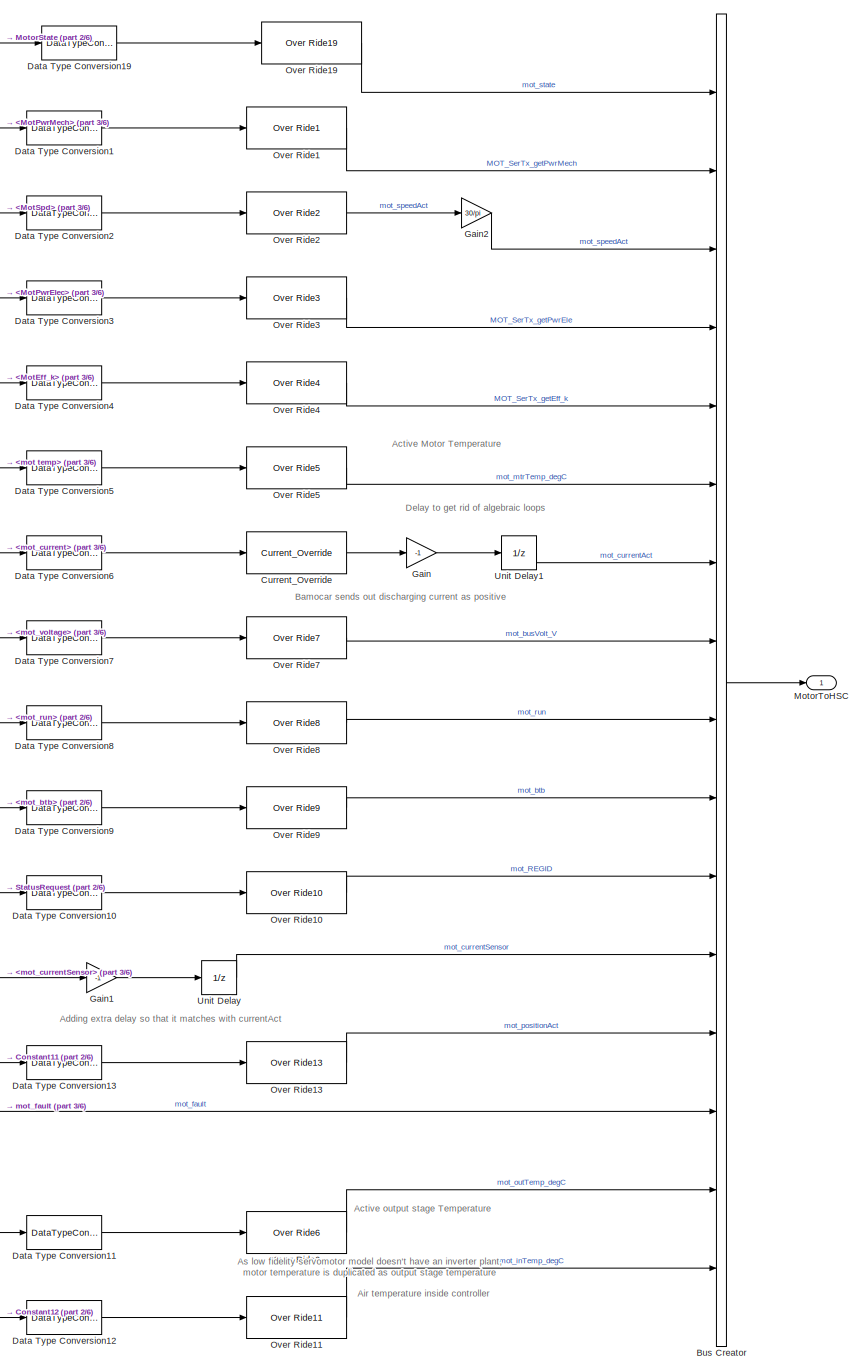
[diagram: Controller Modules /Component Controllers/Left Motor Control Module/Controller Outputs/SiL Controller Outputs - part 1/6, right side, full height]
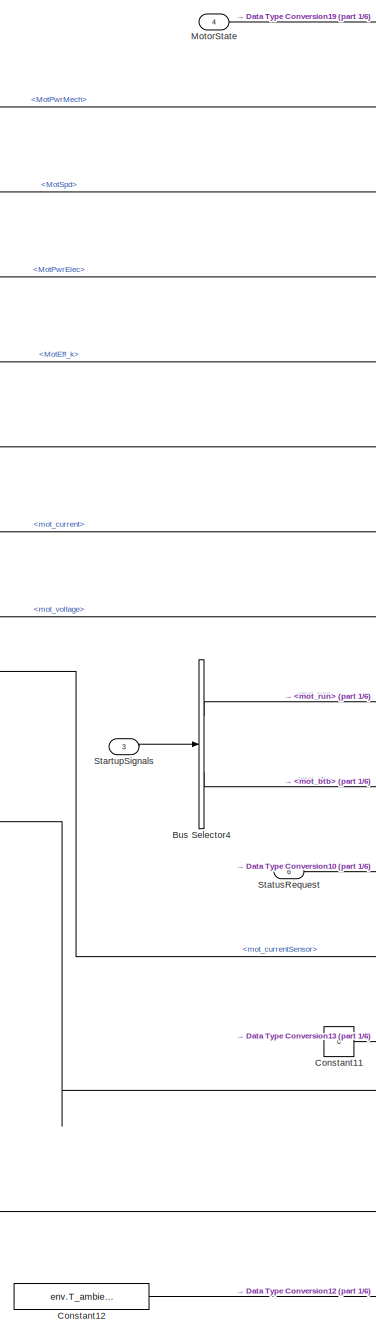
[diagram: Controller Modules /Component Controllers/Left Motor Control Module/Controller Outputs/SiL Controller Outputs - part 2/6, center side, full height]
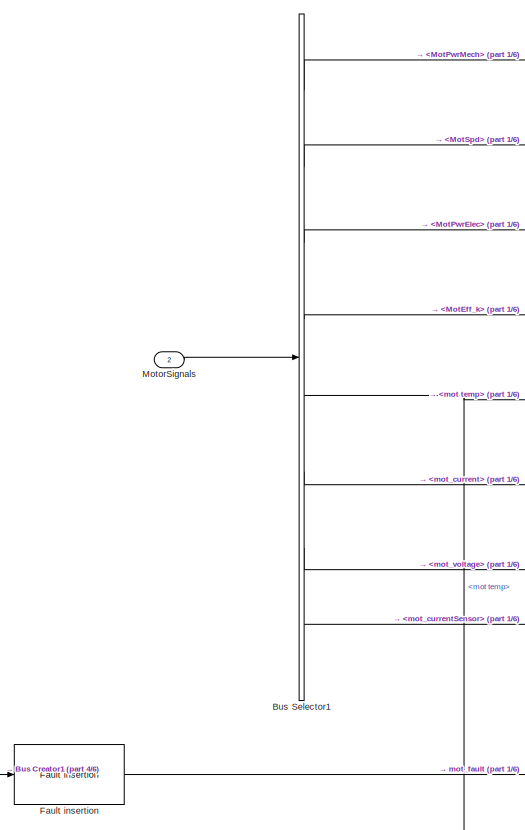
[diagram: Controller Modules /Component Controllers/Left Motor Control Module/Controller Outputs/SiL Controller Outputs - part 3/6, top center region]
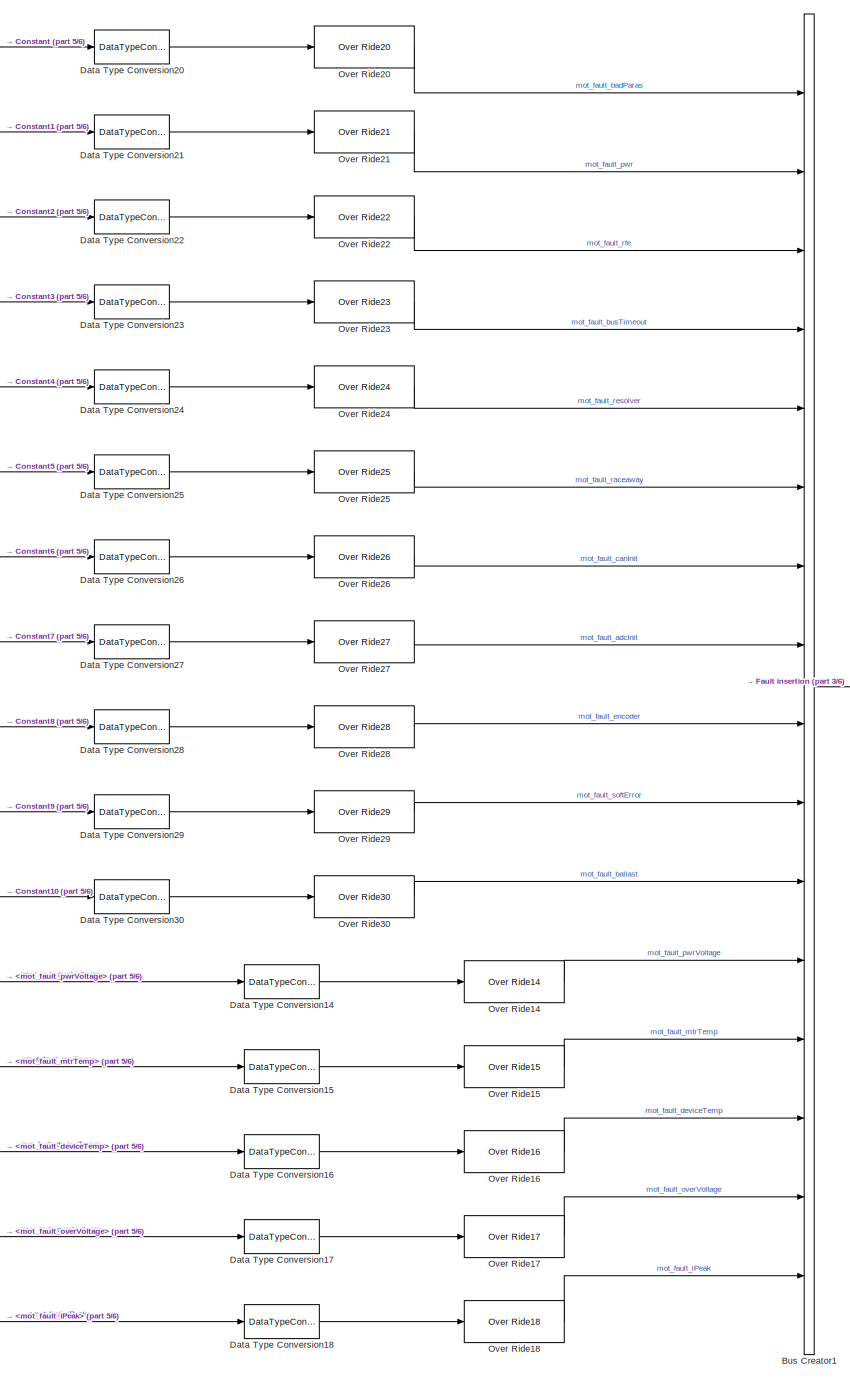
[diagram: Controller Modules /Component Controllers/Left Motor Control Module/Controller Outputs/SiL Controller Outputs - part 4/6, left side, full height]
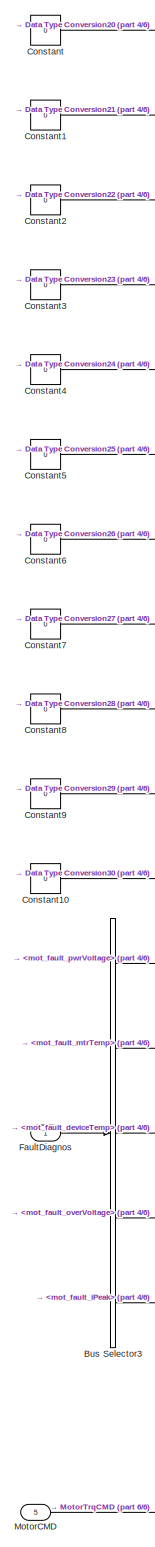
[diagram: Controller Modules /Component Controllers/Left Motor Control Module/Controller Outputs/SiL Controller Outputs - part 5/6, left side, full height]
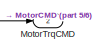
[diagram: Controller Modules /Component Controllers/Left Motor Control Module/Controller Outputs/SiL Controller Outputs - part 6/6, bottom right region]
BLOCK [SubSystem] Controller Modules /Component Controllers/Left Motor Control Module/Controller Outputs/SiL Controller Outputs
  Ports = [6, 2]
  RequestExecContextInheritance = off
  Variant = off
  VariantControl = Variant
BLOCK [BusCreator] Controller Modules /Component Controllers/Left Motor Control Module/Controller Outputs/SiL Controller Outputs/Bus Creator
  DisplayOption = bar
  InheritFromInputs = on
  Inputs = 16
  Ports = [16, 1]
BLOCK [BusCreator] Controller Modules /Component Controllers/Left Motor Control Module/Controller Outputs/SiL Controller Outputs/Bus Creator1
  DisplayOption = bar
  InheritFromInputs = on
  Inputs = 16
  Ports = [16, 1]
BLOCK [BusSelector] Controller Modules /Component Controllers/Left Motor Control Module/Controller Outputs/SiL Controller Outputs/Bus Selector1
  OutputAsBus = off
  OutputSignals = MotPwrMech,MotSpd,MotPwrElec,MotEff_k,mot temp,mot_current,mot_voltage,mot_currentSensor
  Ports = [1, 8]
BLOCK [BusSelector] Controller Modules /Component Controllers/Left Motor Control Module/Controller Outputs/SiL Controller Outputs/Bus Selector3
  OutputAsBus = off
  OutputSignals = mot_fault_pwrVoltage,mot_fault_mtrTemp,mot_fault_deviceTemp,mot_fault_overVoltage,mot_fault_iPeak
  Ports = [1, 5]
BLOCK [BusSelector] Controller Modules /Component Controllers/Left Motor Control Module/Controller Outputs/SiL Controller Outputs/Bus Selector4
  OutputAsBus = off
  OutputSignals = mot_run,mot_btb
  Ports = [1, 2]
BLOCK [Constant] Controller Modules /Component Controllers/Left Motor Control Module/Controller Outputs/SiL Controller Outputs/Constant
  Value = 0
BLOCK [Constant] Controller Modules /Component Controllers/Left Motor Control Module/Controller Outputs/SiL Controller Outputs/Constant1
  Value = 0
BLOCK [Constant] Controller Modules /Component Controllers/Left Motor Control Module/Controller Outputs/SiL Controller Outputs/Constant10
  Value = 0
BLOCK [Constant] Controller Modules /Component Controllers/Left Motor Control Module/Controller Outputs/SiL Controller Outputs/Constant11
  Value = 0
BLOCK [Constant] Controller Modules /Component Controllers/Left Motor Control Module/Controller Outputs/SiL Controller Outputs/Constant12
  Value = env.T_ambient
BLOCK [Constant] Controller Modules /Component Controllers/Left Motor Control Module/Controller Outputs/SiL Controller Outputs/Constant2
  Value = 0
BLOCK [Constant] Controller Modules /Component Controllers/Left Motor Control Module/Controller Outputs/SiL Controller Outputs/Constant3
  Value = 0
BLOCK [Constant] Controller Modules /Component Controllers/Left Motor Control Module/Controller Outputs/SiL Controller Outputs/Constant4
  Value = 0
BLOCK [Constant] Controller Modules /Component Controllers/Left Motor Control Module/Controller Outputs/SiL Controller Outputs/Constant5
  Value = 0
BLOCK [Constant] Controller Modules /Component Controllers/Left Motor Control Module/Controller Outputs/SiL Controller Outputs/Constant6
  Value = 0
BLOCK [Constant] Controller Modules /Component Controllers/Left Motor Control Module/Controller Outputs/SiL Controller Outputs/Constant7
  Value = 0
BLOCK [Constant] Controller Modules /Component Controllers/Left Motor Control Module/Controller Outputs/SiL Controller Outputs/Constant8
  Value = 0
BLOCK [Constant] Controller Modules /Component Controllers/Left Motor Control Module/Controller Outputs/SiL Controller Outputs/Constant9
  Value = 0
BLOCK [Reference] Controller Modules /Component Controllers/Left Motor Control Module/Controller Outputs/SiL Controller Outputs/Current_Override  REF=Soft_ECUs/softECU_Motor/conversion 2/Current_Override
  Ports = [1, 1]
  SourceBlock = Soft_ECUs/softECU_Motor/conversion 2/Current_Override
  SourceType = SubSystem
BLOCK [DataTypeConversion] Controller Modules /Component Controllers/Left Motor Control Module/Controller Outputs/SiL Controller Outputs/Data Type Conversion1
  RndMeth = Floor
  SaturateOnIntegerOverflow = off
BLOCK [DataTypeConversion] Controller Modules /Component Controllers/Left Motor Control Module/Controller Outputs/SiL Controller Outputs/Data Type Conversion10
  RndMeth = Floor
  SaturateOnIntegerOverflow = off
BLOCK [DataTypeConversion] Controller Modules /Component Controllers/Left Motor Control Module/Controller Outputs/SiL Controller Outputs/Data Type Conversion11
  RndMeth = Floor
  SaturateOnIntegerOverflow = off
BLOCK [DataTypeConversion] Controller Modules /Component Controllers/Left Motor Control Module/Controller Outputs/SiL Controller Outputs/Data Type Conversion12
  RndMeth = Floor
  SaturateOnIntegerOverflow = off
BLOCK [DataTypeConversion] Controller Modules /Component Controllers/Left Motor Control Module/Controller Outputs/SiL Controller Outputs/Data Type Conversion13
  RndMeth = Floor
  SaturateOnIntegerOverflow = off
BLOCK [DataTypeConversion] Controller Modules /Component Controllers/Left Motor Control Module/Controller Outputs/SiL Controller Outputs/Data Type Conversion14
  RndMeth = Floor
  SaturateOnIntegerOverflow = off
BLOCK [DataTypeConversion] Controller Modules /Component Controllers/Left Motor Control Module/Controller Outputs/SiL Controller Outputs/Data Type Conversion15
  RndMeth = Floor
  SaturateOnIntegerOverflow = off
BLOCK [DataTypeConversion] Controller Modules /Component Controllers/Left Motor Control Module/Controller Outputs/SiL Controller Outputs/Data Type Conversion16
  RndMeth = Floor
  SaturateOnIntegerOverflow = off
BLOCK [DataTypeConversion] Controller Modules /Component Controllers/Left Motor Control Module/Controller Outputs/SiL Controller Outputs/Data Type Conversion17
  RndMeth = Floor
  SaturateOnIntegerOverflow = off
BLOCK [DataTypeConversion] Controller Modules /Component Controllers/Left Motor Control Module/Controller Outputs/SiL Controller Outputs/Data Type Conversion18
  RndMeth = Floor
  SaturateOnIntegerOverflow = off
BLOCK [DataTypeConversion] Controller Modules /Component Controllers/Left Motor Control Module/Controller Outputs/SiL Controller Outputs/Data Type Conversion19
  RndMeth = Floor
  SaturateOnIntegerOverflow = off
BLOCK [DataTypeConversion] Controller Modules /Component Controllers/Left Motor Control Module/Controller Outputs/SiL Controller Outputs/Data Type Conversion2
  RndMeth = Floor
  SaturateOnIntegerOverflow = off
BLOCK [DataTypeConversion] Controller Modules /Component Controllers/Left Motor Control Module/Controller Outputs/SiL Controller Outputs/Data Type Conversion20
  RndMeth = Floor
  SaturateOnIntegerOverflow = off
BLOCK [DataTypeConversion] Controller Modules /Component Controllers/Left Motor Control Module/Controller Outputs/SiL Controller Outputs/Data Type Conversion21
  RndMeth = Floor
  SaturateOnIntegerOverflow = off
BLOCK [DataTypeConversion] Controller Modules /Component Controllers/Left Motor Control Module/Controller Outputs/SiL Controller Outputs/Data Type Conversion22
  RndMeth = Floor
  SaturateOnIntegerOverflow = off
BLOCK [DataTypeConversion] Controller Modules /Component Controllers/Left Motor Control Module/Controller Outputs/SiL Controller Outputs/Data Type Conversion23
  RndMeth = Floor
  SaturateOnIntegerOverflow = off
BLOCK [DataTypeConversion] Controller Modules /Component Controllers/Left Motor Control Module/Controller Outputs/SiL Controller Outputs/Data Type Conversion24
  RndMeth = Floor
  SaturateOnIntegerOverflow = off
BLOCK [DataTypeConversion] Controller Modules /Component Controllers/Left Motor Control Module/Controller Outputs/SiL Controller Outputs/Data Type Conversion25
  RndMeth = Floor
  SaturateOnIntegerOverflow = off
BLOCK [DataTypeConversion] Controller Modules /Component Controllers/Left Motor Control Module/Controller Outputs/SiL Controller Outputs/Data Type Conversion26
  RndMeth = Floor
  SaturateOnIntegerOverflow = off
BLOCK [DataTypeConversion] Controller Modules /Component Controllers/Left Motor Control Module/Controller Outputs/SiL Controller Outputs/Data Type Conversion27
  RndMeth = Floor
  SaturateOnIntegerOverflow = off
BLOCK [DataTypeConversion] Controller Modules /Component Controllers/Left Motor Control Module/Controller Outputs/SiL Controller Outputs/Data Type Conversion28
  RndMeth = Floor
  SaturateOnIntegerOverflow = off
BLOCK [DataTypeConversion] Controller Modules /Component Controllers/Left Motor Control Module/Controller Outputs/SiL Controller Outputs/Data Type Conversion29
  RndMeth = Floor
  SaturateOnIntegerOverflow = off
BLOCK [DataTypeConversion] Controller Modules /Component Controllers/Left Motor Control Module/Controller Outputs/SiL Controller Outputs/Data Type Conversion3
  RndMeth = Floor
  SaturateOnIntegerOverflow = off
BLOCK [DataTypeConversion] Controller Modules /Component Controllers/Left Motor Control Module/Controller Outputs/SiL Controller Outputs/Data Type Conversion30
  RndMeth = Floor
  SaturateOnIntegerOverflow = off
BLOCK [DataTypeConversion] Controller Modules /Component Controllers/Left Motor Control Module/Controller Outputs/SiL Controller Outputs/Data Type Conversion4
  RndMeth = Floor
  SaturateOnIntegerOverflow = off
BLOCK [DataTypeConversion] Controller Modules /Component Controllers/Left Motor Control Module/Controller Outputs/SiL Controller Outputs/Data Type Conversion5
  RndMeth = Floor
  SaturateOnIntegerOverflow = off
BLOCK [DataTypeConversion] Controller Modules /Component Controllers/Left Motor Control Module/Controller Outputs/SiL Controller Outputs/Data Type Conversion6
  RndMeth = Floor
  SaturateOnIntegerOverflow = off
BLOCK [DataTypeConversion] Controller Modules /Component Controllers/Left Motor Control Module/Controller Outputs/SiL Controller Outputs/Data Type Conversion7
  RndMeth = Floor
  SaturateOnIntegerOverflow = off
BLOCK [DataTypeConversion] Controller Modules /Component Controllers/Left Motor Control Module/Controller Outputs/SiL Controller Outputs/Data Type Conversion8
  OutDataTypeStr = int16
  RndMeth = Floor
  SaturateOnIntegerOverflow = off
BLOCK [DataTypeConversion] Controller Modules /Component Controllers/Left Motor Control Module/Controller Outputs/SiL Controller Outputs/Data Type Conversion9
  OutDataTypeStr = int16
  RndMeth = Floor
  SaturateOnIntegerOverflow = off
BLOCK [Reference] Controller Modules /Component Controllers/Left Motor Control Module/Controller Outputs/SiL Controller Outputs/Fault insertion  REF=Soft_ECUs/softECU_Motor/conversion 2/Fault insertion
  Ports = [1, 1]
  SourceBlock = Soft_ECUs/softECU_Motor/conversion 2/Fault insertion
  SourceType = SubSystem
BLOCK [Inport] Controller Modules /Component Controllers/Left Motor Control Module/Controller Outputs/SiL Controller Outputs/FaultDiagnos
  IconDisplay = Port number
BLOCK [Gain] Controller Modules /Component Controllers/Left Motor Control Module/Controller Outputs/SiL Controller Outputs/Gain
  Gain = -1
  OutDataTypeStr = Inherit: Inherit via internal rule
  ParamDataTypeStr = Inherit: Inherit via internal rule
  SaturateOnIntegerOverflow = off
BLOCK [Gain] Controller Modules /Component Controllers/Left Motor Control Module/Controller Outputs/SiL Controller Outputs/Gain1
  Gain = -1
  OutDataTypeStr = Inherit: Inherit via internal rule
  ParamDataTypeStr = Inherit: Inherit via internal rule
  SaturateOnIntegerOverflow = off
BLOCK [Gain] Controller Modules /Component Controllers/Left Motor Control Module/Controller Outputs/SiL Controller Outputs/Gain2
  Gain = 30/pi
  OutDataTypeStr = Inherit: Inherit via internal rule
  ParamDataTypeStr = Inherit: Inherit via internal rule
  SaturateOnIntegerOverflow = off
BLOCK [Inport] Controller Modules /Component Controllers/Left Motor Control Module/Controller Outputs/SiL Controller Outputs/MotorCMD
  IconDisplay = Port number
  Port = 5
BLOCK [Inport] Controller Modules /Component Controllers/Left Motor Control Module/Controller Outputs/SiL Controller Outputs/MotorSignals
  IconDisplay = Port number
  Port = 2
BLOCK [Inport] Controller Modules /Component Controllers/Left Motor Control Module/Controller Outputs/SiL Controller Outputs/MotorState
  IconDisplay = Port number
  Port = 4
BLOCK [Outport] Controller Modules /Component Controllers/Left Motor Control Module/Controller Outputs/SiL Controller Outputs/MotorToHSC
  IconDisplay = Port number
BLOCK [Outport] Controller Modules /Component Controllers/Left Motor Control Module/Controller Outputs/SiL Controller Outputs/MotorTrqCMD
  IconDisplay = Port number
  Port = 2
BLOCK [Reference] Controller Modules /Component Controllers/Left Motor Control Module/Controller Outputs/SiL Controller Outputs/Over Ride1  REF=Soft_ECUs/softECU_Motor/conversion 2/Over Ride1
  Ports = [1, 1]
  SourceBlock = Soft_ECUs/softECU_Motor/conversion 2/Over Ride1
  SourceType = SubSystem
BLOCK [Reference] Controller Modules /Component Controllers/Left Motor Control Module/Controller Outputs/SiL Controller Outputs/Over Ride10  REF=Soft_ECUs/softECU_Motor/conversion 2/Over Ride10
  Ports = [1, 1]
  SourceBlock = Soft_ECUs/softECU_Motor/conversion 2/Over Ride10
  SourceType = SubSystem
BLOCK [Reference] Controller Modules /Component Controllers/Left Motor Control Module/Controller Outputs/SiL Controller Outputs/Over Ride11  REF=Soft_ECUs/softECU_Motor/conversion 2/Over Ride11
  Ports = [1, 1]
  SourceBlock = Soft_ECUs/softECU_Motor/conversion 2/Over Ride11
  SourceType = SubSystem
BLOCK [Reference] Controller Modules /Component Controllers/Left Motor Control Module/Controller Outputs/SiL Controller Outputs/Over Ride13  REF=Soft_ECUs/softECU_Motor/conversion 2/Over Ride13
  Ports = [1, 1]
  SourceBlock = Soft_ECUs/softECU_Motor/conversion 2/Over Ride13
  SourceType = SubSystem
BLOCK [Reference] Controller Modules /Component Controllers/Left Motor Control Module/Controller Outputs/SiL Controller Outputs/Over Ride14  REF=Soft_ECUs/softECU_Motor/conversion 2/Over Ride14
  Ports = [1, 1]
  SourceBlock = Soft_ECUs/softECU_Motor/conversion 2/Over Ride14
  SourceType = SubSystem
BLOCK [Reference] Controller Modules /Component Controllers/Left Motor Control Module/Controller Outputs/SiL Controller Outputs/Over Ride15  REF=Soft_ECUs/softECU_Motor/conversion 2/Over Ride15
  Ports = [1, 1]
  SourceBlock = Soft_ECUs/softECU_Motor/conversion 2/Over Ride15
  SourceType = SubSystem
BLOCK [Reference] Controller Modules /Component Controllers/Left Motor Control Module/Controller Outputs/SiL Controller Outputs/Over Ride16  REF=Soft_ECUs/softECU_Motor/conversion 2/Over Ride16
  Ports = [1, 1]
  SourceBlock = Soft_ECUs/softECU_Motor/conversion 2/Over Ride16
  SourceType = SubSystem
BLOCK [Reference] Controller Modules /Component Controllers/Left Motor Control Module/Controller Outputs/SiL Controller Outputs/Over Ride17  REF=Soft_ECUs/softECU_Motor/conversion 2/Over Ride17
  Ports = [1, 1]
  SourceBlock = Soft_ECUs/softECU_Motor/conversion 2/Over Ride17
  SourceType = SubSystem
BLOCK [Reference] Controller Modules /Component Controllers/Left Motor Control Module/Controller Outputs/SiL Controller Outputs/Over Ride18  REF=Soft_ECUs/softECU_Motor/conversion 2/Over Ride18
  Ports = [1, 1]
  SourceBlock = Soft_ECUs/softECU_Motor/conversion 2/Over Ride18
  SourceType = SubSystem
BLOCK [Reference] Controller Modules /Component Controllers/Left Motor Control Module/Controller Outputs/SiL Controller Outputs/Over Ride19  REF=Soft_ECUs/softECU_Motor/conversion 2/Over Ride19
  Ports = [1, 1]
  SourceBlock = Soft_ECUs/softECU_Motor/conversion 2/Over Ride19
  SourceType = SubSystem
BLOCK [Reference] Controller Modules /Component Controllers/Left Motor Control Module/Controller Outputs/SiL Controller Outputs/Over Ride2  REF=Soft_ECUs/softECU_Motor/conversion 2/Over Ride2
  Ports = [1, 1]
  SourceBlock = Soft_ECUs/softECU_Motor/conversion 2/Over Ride2
  SourceType = SubSystem
BLOCK [Reference] Controller Modules /Component Controllers/Left Motor Control Module/Controller Outputs/SiL Controller Outputs/Over Ride20  REF=Soft_ECUs/softECU_Motor/conversion 2/Over Ride20
  Ports = [1, 1]
  SourceBlock = Soft_ECUs/softECU_Motor/conversion 2/Over Ride20
  SourceType = SubSystem
BLOCK [Reference] Controller Modules /Component Controllers/Left Motor Control Module/Controller Outputs/SiL Controller Outputs/Over Ride21  REF=Soft_ECUs/softECU_Motor/conversion 2/Over Ride21
  Ports = [1, 1]
  SourceBlock = Soft_ECUs/softECU_Motor/conversion 2/Over Ride21
  SourceType = SubSystem
BLOCK [Reference] Controller Modules /Component Controllers/Left Motor Control Module/Controller Outputs/SiL Controller Outputs/Over Ride22  REF=Soft_ECUs/softECU_Motor/conversion 2/Over Ride22
  Ports = [1, 1]
  SourceBlock = Soft_ECUs/softECU_Motor/conversion 2/Over Ride22
  SourceType = SubSystem
BLOCK [Reference] Controller Modules /Component Controllers/Left Motor Control Module/Controller Outputs/SiL Controller Outputs/Over Ride23  REF=Soft_ECUs/softECU_Motor/conversion 2/Over Ride23
  Ports = [1, 1]
  SourceBlock = Soft_ECUs/softECU_Motor/conversion 2/Over Ride23
  SourceType = SubSystem
BLOCK [Reference] Controller Modules /Component Controllers/Left Motor Control Module/Controller Outputs/SiL Controller Outputs/Over Ride24  REF=Soft_ECUs/softECU_Motor/conversion 2/Over Ride24
  Ports = [1, 1]
  SourceBlock = Soft_ECUs/softECU_Motor/conversion 2/Over Ride24
  SourceType = SubSystem
BLOCK [Reference] Controller Modules /Component Controllers/Left Motor Control Module/Controller Outputs/SiL Controller Outputs/Over Ride25  REF=Soft_ECUs/softECU_Motor/conversion 2/Over Ride25
  Ports = [1, 1]
  SourceBlock = Soft_ECUs/softECU_Motor/conversion 2/Over Ride25
  SourceType = SubSystem
BLOCK [Reference] Controller Modules /Component Controllers/Left Motor Control Module/Controller Outputs/SiL Controller Outputs/Over Ride26  REF=Soft_ECUs/softECU_Motor/conversion 2/Over Ride26
  Ports = [1, 1]
  SourceBlock = Soft_ECUs/softECU_Motor/conversion 2/Over Ride26
  SourceType = SubSystem
BLOCK [Reference] Controller Modules /Component Controllers/Left Motor Control Module/Controller Outputs/SiL Controller Outputs/Over Ride27  REF=Soft_ECUs/softECU_Motor/conversion 2/Over Ride27
  Ports = [1, 1]
  SourceBlock = Soft_ECUs/softECU_Motor/conversion 2/Over Ride27
  SourceType = SubSystem
BLOCK [Reference] Controller Modules /Component Controllers/Left Motor Control Module/Controller Outputs/SiL Controller Outputs/Over Ride28  REF=Soft_ECUs/softECU_Motor/conversion 2/Over Ride28
  Ports = [1, 1]
  SourceBlock = Soft_ECUs/softECU_Motor/conversion 2/Over Ride28
  SourceType = SubSystem
BLOCK [Reference] Controller Modules /Component Controllers/Left Motor Control Module/Controller Outputs/SiL Controller Outputs/Over Ride29  REF=Soft_ECUs/softECU_Motor/conversion 2/Over Ride29
  Ports = [1, 1]
  SourceBlock = Soft_ECUs/softECU_Motor/conversion 2/Over Ride29
  SourceType = SubSystem
BLOCK [Reference] Controller Modules /Component Controllers/Left Motor Control Module/Controller Outputs/SiL Controller Outputs/Over Ride3  REF=Soft_ECUs/softECU_Motor/conversion 2/Over Ride3
  Ports = [1, 1]
  SourceBlock = Soft_ECUs/softECU_Motor/conversion 2/Over Ride3
  SourceType = SubSystem
BLOCK [Reference] Controller Modules /Component Controllers/Left Motor Control Module/Controller Outputs/SiL Controller Outputs/Over Ride30  REF=Soft_ECUs/softECU_Motor/conversion 2/Over Ride30
  Ports = [1, 1]
  SourceBlock = Soft_ECUs/softECU_Motor/conversion 2/Over Ride30
  SourceType = SubSystem
BLOCK [Reference] Controller Modules /Component Controllers/Left Motor Control Module/Controller Outputs/SiL Controller Outputs/Over Ride4  REF=Soft_ECUs/softECU_Motor/conversion 2/Over Ride4
  Ports = [1, 1]
  SourceBlock = Soft_ECUs/softECU_Motor/conversion 2/Over Ride4
  SourceType = SubSystem
BLOCK [Reference] Controller Modules /Component Controllers/Left Motor Control Module/Controller Outputs/SiL Controller Outputs/Over Ride5  REF=Soft_ECUs/softECU_Motor/conversion 2/Over Ride5
  Ports = [1, 1]
  SourceBlock = Soft_ECUs/softECU_Motor/conversion 2/Over Ride5
  SourceType = SubSystem
BLOCK [Reference] Controller Modules /Component Controllers/Left Motor Control Module/Controller Outputs/SiL Controller Outputs/Over Ride6  REF=Soft_ECUs/softECU_Motor/conversion 2/Over Ride6
  Ports = [1, 1]
  SourceBlock = Soft_ECUs/softECU_Motor/conversion 2/Over Ride6
  SourceType = SubSystem
BLOCK [Reference] Controller Modules /Component Controllers/Left Motor Control Module/Controller Outputs/SiL Controller Outputs/Over Ride7  REF=Soft_ECUs/softECU_Motor/conversion 2/Over Ride7
  Ports = [1, 1]
  SourceBlock = Soft_ECUs/softECU_Motor/conversion 2/Over Ride7
  SourceType = SubSystem
BLOCK [Reference] Controller Modules /Component Controllers/Left Motor Control Module/Controller Outputs/SiL Controller Outputs/Over Ride8  REF=Soft_ECUs/softECU_Motor/conversion 2/Over Ride8
  Ports = [1, 1]
  SourceBlock = Soft_ECUs/softECU_Motor/conversion 2/Over Ride8
  SourceType = SubSystem
BLOCK [Reference] Controller Modules /Component Controllers/Left Motor Control Module/Controller Outputs/SiL Controller Outputs/Over Ride9  REF=Soft_ECUs/softECU_Motor/conversion 2/Over Ride9
  Ports = [1, 1]
  SourceBlock = Soft_ECUs/softECU_Motor/conversion 2/Over Ride9
  SourceType = SubSystem
BLOCK [Inport] Controller Modules /Component Controllers/Left Motor Control Module/Controller Outputs/SiL Controller Outputs/StartupSignals
  IconDisplay = Port number
  Port = 3
BLOCK [Inport] Controller Modules /Component Controllers/Left Motor Control Module/Controller Outputs/SiL Controller Outputs/StatusRequest
  IconDisplay = Port number
  Port = 6
BLOCK [UnitDelay] Controller Modules /Component Controllers/Left Motor Control Module/Controller Outputs/SiL Controller Outputs/Unit Delay
  InputProcessing = Elements as channels (sample based)
  SampleTime = -1
BLOCK [UnitDelay] Controller Modules /Component Controllers/Left Motor Control Module/Controller Outputs/SiL Controller Outputs/Unit Delay1
  InputProcessing = Elements as channels (sample based)
  SampleTime = -1
BLOCK [Inport] Controller Modules /Component Controllers/Left Motor Control Module/Controller Outputs/StartupSignals
  IconDisplay = Port number
  Port = 3
BLOCK [Inport] Controller Modules /Component Controllers/Left Motor Control Module/Controller Outputs/StatusRequest
  IconDisplay = Port number
  Port = 6
BLOCK [BusCreator] Controller Modules /Component Controllers/Left Motor Control Module/Controller/Bus Creator
  DisplayOption = bar
  InheritFromInputs = on
  Inputs = 2
  Ports = [2, 1]
BLOCK [BusCreator] Controller Modules /Component Controllers/Left Motor Control Module/Controller/Bus Creator1
  DisplayOption = bar
  InheritFromInputs = on
  Inputs = 8
  Ports = [8, 1]
BLOCK [SubSystem] Controller Modules /Component Controllers/Left Motor Control Module/Controller/Fault Daignosis
  AncestorBlock = Soft_ECUs/softECU_Motor/Fault Daignosis
  Ports = [3, 1]
  RequestExecContextInheritance = off
  Variant = off
BLOCK [BusCreator] Controller Modules /Component Controllers/Left Motor Control Module/Controller/Fault Daignosis/Bus Creator
  DisplayOption = bar
  InheritFromInputs = on
  Inputs = 5
  Ports = [5, 1]
BLOCK [SubSystem] Controller Modules /Component Controllers/Left Motor Control Module/Controller/Fault Daignosis/Device Temp to High
  Ports = [1, 1]
  RequestExecContextInheritance = off
  Variant = off
BLOCK [Reference] Controller Modules /Component Controllers/Left Motor Control Module/Controller/Fault Daignosis/Device Temp to High/Compare To Constant  REF=simulink/Logic and Bit
Operations/Compare
To Constant
  Ports = [1, 1]
  SourceBlock = simulink/Logic and Bit\nOperations/Compare\nTo Constant
  SourceProductBaseCode = SL
  SourceProductName = Simulink
  SourceType = Compare To Constant
BLOCK [Inport] Controller Modules /Component Controllers/Left Motor Control Module/Controller/Fault Daignosis/Device Temp to High/Device Temp
  IconDisplay = Port number
BLOCK [Outport] Controller Modules /Component Controllers/Left Motor Control Module/Controller/Fault Daignosis/Device Temp to High/Out1
  IconDisplay = Port number
BLOCK [Outport] Controller Modules /Component Controllers/Left Motor Control Module/Controller/Fault Daignosis/Fault Message
  IconDisplay = Port number
BLOCK [SubSystem] Controller Modules /Component Controllers/Left Motor Control Module/Controller/Fault Daignosis/Motor Temp to High
  Ports = [1, 1]
  RequestExecContextInheritance = off
  Variant = off
BLOCK [Reference] Controller Modules /Component Controllers/Left Motor Control Module/Controller/Fault Daignosis/Motor Temp to High/Compare To Constant  REF=simulink/Logic and Bit
Operations/Compare
To Constant
  Ports = [1, 1]
  SourceBlock = simulink/Logic and Bit\nOperations/Compare\nTo Constant
  SourceProductBaseCode = SL
  SourceProductName = Simulink
  SourceType = Compare To Constant
BLOCK [Inport] Controller Modules /Component Controllers/Left Motor Control Module/Controller/Fault Daignosis/Motor Temp to High/Mot_temp
  IconDisplay = Port number
BLOCK [Outport] Controller Modules /Component Controllers/Left Motor Control Module/Controller/Fault Daignosis/Motor Temp to High/Out1
  IconDisplay = Port number
BLOCK [SubSystem] Controller Modules /Component Controllers/Left Motor Control Module/Controller/Fault Daignosis/No Power Supply Voltage
  Ports = [1, 1]
  RequestExecContextInheritance = off
  Variant = off
BLOCK [Reference] Controller Modules /Component Controllers/Left Motor Control Module/Controller/Fault Daignosis/No Power Supply Voltage/Compare To Constant  REF=simulink/Logic and Bit
Operations/Compare
To Constant
  Ports = [1, 1]
  SourceBlock = simulink/Logic and Bit\nOperations/Compare\nTo Constant
  SourceProductBaseCode = SL
  SourceProductName = Simulink
  SourceType = Compare To Constant
BLOCK [Outport] Controller Modules /Component Controllers/Left Motor Control Module/Controller/Fault Daignosis/No Power Supply Voltage/Out1
  IconDisplay = Port number
BLOCK [Inport] Controller Modules /Component Controllers/Left Motor Control Module/Controller/Fault Daignosis/No Power Supply Voltage/mot_voltage
  IconDisplay = Port number
BLOCK [SubSystem] Controller Modules /Component Controllers/Left Motor Control Module/Controller/Fault Daignosis/Over Current
  Ports = [1, 1]
  RequestExecContextInheritance = off
  Variant = off
BLOCK [Reference] Controller Modules /Component Controllers/Left Motor Control Module/Controller/Fault Daignosis/Over Current/Compare To Constant  REF=simulink/Logic and Bit
Operations/Compare
To Constant
  Ports = [1, 1]
  SourceBlock = simulink/Logic and Bit\nOperations/Compare\nTo Constant
  SourceProductBaseCode = SL
  SourceProductName = Simulink
  SourceType = Compare To Constant
BLOCK [Inport] Controller Modules /Component Controllers/Left Motor Control Module/Controller/Fault Daignosis/Over Current/Motor Current
  IconDisplay = Port number
BLOCK [Outport] Controller Modules /Component Controllers/Left Motor Control Module/Controller/Fault Daignosis/Over Current/Out1
  IconDisplay = Port number
BLOCK [SubSystem] Controller Modules /Component Controllers/Left Motor Control Module/Controller/Fault Daignosis/Over Voltage
  Ports = [1, 1]
  RequestExecContextInheritance = off
  Variant = off
BLOCK [Reference] Controller Modules /Component Controllers/Left Motor Control Module/Controller/Fault Daignosis/Over Voltage/Compare To Constant  REF=simulink/Logic and Bit
Operations/Compare
To Constant
  Ports = [1, 1]
  SourceBlock = simulink/Logic and Bit\nOperations/Compare\nTo Constant
  SourceProductBaseCode = SL
  SourceProductName = Simulink
  SourceType = Compare To Constant
BLOCK [Inport] Controller Modules /Component Controllers/Left Motor Control Module/Controller/Fault Daignosis/Over Voltage/Device Voltage
  IconDisplay = Port number
BLOCK [Outport] Controller Modules /Component Controllers/Left Motor Control Module/Controller/Fault Daignosis/Over Voltage/Out1
  IconDisplay = Port number
BLOCK [Inport] Controller Modules /Component Controllers/Left Motor Control Module/Controller/Fault Daignosis/current
  IconDisplay = Port number
BLOCK [Inport] Controller Modules /Component Controllers/Left Motor Control Module/Controller/Fault Daignosis/temp
  IconDisplay = Port number
  Port = 3
BLOCK [Inport] Controller Modules /Component Controllers/Left Motor Control Module/Controller/Fault Daignosis/voltage
  IconDisplay = Port number
  Port = 2
BLOCK [From] Controller Modules /Component Controllers/Left Motor Control Module/Controller/From
  GotoTag = mot_current
BLOCK [From] Controller Modules /Component Controllers/Left Motor Control Module/Controller/From1
  GotoTag = mot_voltage
BLOCK [From] Controller Modules /Component Controllers/Left Motor Control Module/Controller/From10
  GotoTag = mot_current
BLOCK [From] Controller Modules /Component Controllers/Left Motor Control Module/Controller/From2
  GotoTag = mot_temp
BLOCK [From] Controller Modules /Component Controllers/Left Motor Control Module/Controller/From3
  GotoTag = mot_voltage
BLOCK [From] Controller Modules /Component Controllers/Left Motor Control Module/Controller/From4
  GotoTag = mot_current
BLOCK [From] Controller Modules /Component Controllers/Left Motor Control Module/Controller/From5
  GotoTag = mot_voltage
BLOCK [From] Controller Modules /Component Controllers/Left Motor Control Module/Controller/From6
  GotoTag = mot_temp
BLOCK [From] Controller Modules /Component Controllers/Left Motor Control Module/Controller/From7
  GotoTag = mot_motSpd_RPM
BLOCK [From] Controller Modules /Component Controllers/Left Motor Control Module/Controller/From8
  GotoTag = mot_voltage
BLOCK [From] Controller Modules /Component Controllers/Left Motor Control Module/Controller/From9
  GotoTag = mot_motSpd_RPM
BLOCK [Goto] Controller Modules /Component Controllers/Left Motor Control Module/Controller/Goto
  GotoTag = mot_current
BLOCK [Goto] Controller Modules /Component Controllers/Left Motor Control Module/Controller/Goto1
  GotoTag = mot_temp
BLOCK [Goto] Controller Modules /Component Controllers/Left Motor Control Module/Controller/Goto2
  GotoTag = mot_voltage
BLOCK [Goto] Controller Modules /Component Controllers/Left Motor Control Module/Controller/Goto3
  GotoTag = mot_motSpd_RPM
BLOCK [Outport] Controller Modules /Component Controllers/Left Motor Control Module/Controller/Mot_Signals
  IconDisplay = Port number
  Port = 2
BLOCK [SubSystem] Controller Modules /Component Controllers/Left Motor Control Module/Controller/Motor CMD
  Ports = [2, 1]
  RequestExecContextInheritance = off
  Variant = off
BLOCK [MultiPortSwitch] Controller Modules /Component Controllers/Left Motor Control Module/Controller/Motor CMD/Multiport Switch
  DataPortOrder = Zero-based contiguous
  InputSameDT = off
  Inputs = 2
  Ports = [3, 1]
  SaturateOnIntegerOverflow = off
  zeroidx = on
BLOCK [Outport] Controller Modules /Component Controllers/Left Motor Control Module/Controller/Motor CMD/Out1
  IconDisplay = Port number
BLOCK [Constant] Controller Modules /Component Controllers/Left Motor Control Module/Controller/Motor CMD/Override Value
  Value = 0
BLOCK [Inport] Controller Modules /Component Controllers/Left Motor Control Module/Controller/Motor CMD/mot_mode
  IconDisplay = Port number
  Port = 2
BLOCK [Inport] Controller Modules /Component Controllers/Left Motor Control Module/Controller/Motor CMD/trq_cmd
  IconDisplay = Port number
BLOCK [Outport] Controller Modules /Component Controllers/Left Motor Control Module/Controller/Motor_CMD
  IconDisplay = Port number
  Port = 5
BLOCK [SubSystem] Controller Modules /Component Controllers/Left Motor Control Module/Controller/REGID_Cycling
  ErrorFcn = Stateflow.Translate.translate
  PermitHierarchicalResolution = ExplicitOnly
  Ports = [0, 1]
  RequestExecContextInheritance = off
  SFBlockType = Chart
  TreatAsAtomicUnit = on
  Variant = off
BLOCK [Demux] Controller Modules /Component Controllers/Left Motor Control Module/Controller/REGID_Cycling/ Demux 
  Outputs = 1
  Ports = [1, 1]
BLOCK [Ground] Controller Modules /Component Controllers/Left Motor Control Module/Controller/REGID_Cycling/ Ground 
BLOCK [S-Function] Controller Modules /Component Controllers/Left Motor Control Module/Controller/REGID_Cycling/ SFunction 
  EnableBusSupport = off
  FunctionName = sf_sfun
  PortCounts = [1 2]
  Ports = [1, 2]
  SFcnIsStateOwnerBlock = off
  SFunctionDeploymentMode = off
  Tag = Stateflow S-Function fullVehicleModel_17b 10
BLOCK [Terminator] Controller Modules /Component Controllers/Left Motor Control Module/Controller/REGID_Cycling/ Terminator 
BLOCK [Outport] Controller Modules /Component Controllers/Left Motor Control Module/Controller/REGID_Cycling/mot_REGID
  IconDisplay = Port number
BLOCK [SubSystem] Controller Modules /Component Controllers/Left Motor Control Module/Controller/Startup_Shutdown_Procedure
  AncestorBlock = Soft_ECUs/softECU_Motor/Startup_Shutdown_Procedure
  ErrorFcn = Stateflow.Translate.translate
  PermitHierarchicalResolution = ExplicitOnly
  Ports = [3, 3]
  RequestExecContextInheritance = off
  SFBlockType = Chart
  TreatAsAtomicUnit = on
  Variant = off
BLOCK [Demux] Controller Modules /Component Controllers/Left Motor Control Module/Controller/Startup_Shutdown_Procedure/ Demux 
  Outputs = 1
  Ports = [1, 1]
BLOCK [S-Function] Controller Modules /Component Controllers/Left Motor Control Module/Controller/Startup_Shutdown_Procedure/ SFunction 
  EnableBusSupport = off
  FunctionName = sf_sfun
  PortCounts = [3 4]
  Ports = [3, 4]
  SFcnIsStateOwnerBlock = off
  SFunctionDeploymentMode = off
  Tag = Stateflow S-Function fullVehicleModel_17b 11
BLOCK [Terminator] Controller Modules /Component Controllers/Left Motor Control Module/Controller/Startup_Shutdown_Procedure/ Terminator 
BLOCK [Inport] Controller Modules /Component Controllers/Left Motor Control Module/Controller/Startup_Shutdown_Procedure/ignition
  IconDisplay = Port number
  Port = 2
BLOCK [Outport] Controller Modules /Component Controllers/Left Motor Control Module/Controller/Startup_Shutdown_Procedure/mot_btb
  IconDisplay = Port number
  Port = 2
BLOCK [Inport] Controller Modules /Component Controllers/Left Motor Control Module/Controller/Startup_Shutdown_Procedure/mot_mode
  IconDisplay = Port number
BLOCK [Outport] Controller Modules /Component Controllers/Left Motor Control Module/Controller/Startup_Shutdown_Procedure/mot_run
  IconDisplay = Port number
BLOCK [Outport] Controller Modules /Component Controllers/Left Motor Control Module/Controller/Startup_Shutdown_Procedure/mot_state
  IconDisplay = Port number
  Port = 3
BLOCK [Inport] Controller Modules /Component Controllers/Left Motor Control Module/Controller/Startup_Shutdown_Procedure/mot_voltage
  IconDisplay = Port number
  Port = 3
BLOCK [Outport] Controller Modules /Component Controllers/Left Motor Control Module/Controller/StatusReqREGID
  IconDisplay = Port number
  Port = 6
BLOCK [SubSystem] Controller Modules /Component Controllers/Left Motor Control Module/Controller/Subsystem
  Ports = [4, 1]
  RequestExecContextInheritance = off
  Variant = off
BLOCK [Outport] Controller Modules /Component Controllers/Left Motor Control Module/Controller/Subsystem/Out1
  IconDisplay = Port number
BLOCK [Inport] Controller Modules /Component Controllers/Left Motor Control Module/Controller/Subsystem/current
  IconDisplay = Port number
  Port = 3
BLOCK [Inport] Controller Modules /Component Controllers/Left Motor Control Module/Controller/Subsystem/mode
  IconDisplay = Port number
  Port = 4
BLOCK [Inport] Controller Modules /Component Controllers/Left Motor Control Module/Controller/Subsystem/speed
  IconDisplay = Port number
  Port = 2
BLOCK [Inport] Controller Modules /Component Controllers/Left Motor Control Module/Controller/Subsystem/voltage
  IconDisplay = Port number
BLOCK [Terminator] Controller Modules /Component Controllers/Left Motor Control Module/Controller/Terminator
BLOCK [Gain] Controller Modules /Component Controllers/Left Motor Control Module/Controller/Torque Scaling
  Gain = mot.maxTrq / 100
  OutDataTypeStr = Inherit: Inherit via internal rule
  ParamDataTypeStr = Inherit: Inherit via internal rule
  SaturateOnIntegerOverflow = off
BLOCK [Outport] Controller Modules /Component Controllers/Left Motor Control Module/Controller/fualtDiag
  IconDisplay = Port number
BLOCK [Inport] Controller Modules /Component Controllers/Left Motor Control Module/Controller/ignition
  IconDisplay = Port number
  Port = 12
BLOCK [Inport] Controller Modules /Component Controllers/Left Motor Control Module/Controller/info
  IconDisplay = Port number
  Port = 11
BLOCK [Inport] Controller Modules /Component Controllers/Left Motor Control Module/Controller/mot_current
  IconDisplay = Port number
  Port = 7
BLOCK [Inport] Controller Modules /Component Controllers/Left Motor Control Module/Controller/mot_currentSensor
  IconDisplay = Port number
  Port = 9
BLOCK [Inport] Controller Modules /Component Controllers/Left Motor Control Module/Controller/mot_modeEnable
  IconDisplay = Port number
  Port = 10
BLOCK [Inport] Controller Modules /Component Controllers/Left Motor Control Module/Controller/mot_motEff_k
  IconDisplay = Port number
  Port = 5
BLOCK [Inport] Controller Modules /Component Controllers/Left Motor Control Module/Controller/mot_motSpd_RPM
  IconDisplay = Port number
  Port = 3
BLOCK [Inport] Controller Modules /Component Controllers/Left Motor Control Module/Controller/mot_pwrElec_kW
  IconDisplay = Port number
  Port = 4
BLOCK [Inport] Controller Modules /Component Controllers/Left Motor Control Module/Controller/mot_pwrMech_kW
  IconDisplay = Port number
  Port = 2
BLOCK [Inport] Controller Modules /Component Controllers/Left Motor Control Module/Controller/mot_temp
  IconDisplay = Port number
  Port = 6
BLOCK [Inport] Controller Modules /Component Controllers/Left Motor Control Module/Controller/mot_trqCmd_pct
  IconDisplay = Port number
BLOCK [Inport] Controller Modules /Component Controllers/Left Motor Control Module/Controller/mot_voltage
  IconDisplay = Port number
  Port = 8
BLOCK [Outport] Controller Modules /Component Controllers/Left Motor Control Module/Controller/motorState
  IconDisplay = Port number
  Port = 4
BLOCK [Outport] Controller Modules /Component Controllers/Left Motor Control Module/Controller/startupSignals
  IconDisplay = Port number
  Port = 3
BLOCK [Inport] Controller Modules /Component Controllers/Left Motor Control Module/HSCInputs
  IconDisplay = Port number
BLOCK [Inport] Controller Modules /Component Controllers/Left Motor Control Module/IgnitionCMD
  IconDisplay = Port number
  Port = 3
BLOCK [Outport] Controller Modules /Component Controllers/Left Motor Control Module/Left_Motor_HSC
  IconDisplay = Port number
BLOCK [Outport] Controller Modules /Component Controllers/Left Motor Control Module/Left_Motor_Plant
  IconDisplay = Port number
  Port = 2
BLOCK [Inport] Controller Modules /Component Controllers/Left Motor Control Module/MotorPlantSig
  IconDisplay = Port number
  Port = 2
BLOCK [Inport] Controller Modules /Component Controllers/PlantSignals
  IconDisplay = Port number
BLOCK [SubSystem] Controller Modules /Component Controllers/Right Motor Control Module
  Ports = [3, 2]
  RequestExecContextInheritance = off
  Variant = off
BLOCK [SubSystem] Controller Modules /Component Controllers/Right Motor Control Module/Controller Inputs
  Ports = [3, 12]
  RequestExecContextInheritance = off
  Variant = on
BLOCK [Inport] Controller Modules /Component Controllers/Right Motor Control Module/Controller Inputs/In1
  IconDisplay = Port number
BLOCK [Inport] Controller Modules /Component Controllers/Right Motor Control Module/Controller Inputs/In2
  IconDisplay = Port number
  Port = 2
BLOCK [Inport] Controller Modules /Component Controllers/Right Motor Control Module/Controller Inputs/In3
  IconDisplay = Port number
  Port = 3
BLOCK [Outport] Controller Modules /Component Controllers/Right Motor Control Module/Controller Inputs/Out1
  IconDisplay = Port number
BLOCK [Outport] Controller Modules /Component Controllers/Right Motor Control Module/Controller Inputs/Out10
  IconDisplay = Port number
  Port = 10
BLOCK [Outport] Controller Modules /Component Controllers/Right Motor Control Module/Controller Inputs/Out11
  IconDisplay = Port number
  Port = 11
BLOCK [Outport] Controller Modules /Component Controllers/Right Motor Control Module/Controller Inputs/Out12
  IconDisplay = Port number
  Port = 12
BLOCK [Outport] Controller Modules /Component Controllers/Right Motor Control Module/Controller Inputs/Out2
  IconDisplay = Port number
  Port = 2
BLOCK [Outport] Controller Modules /Component Controllers/Right Motor Control Module/Controller Inputs/Out3
  IconDisplay = Port number
  Port = 3
BLOCK [Outport] Controller Modules /Component Controllers/Right Motor Control Module/Controller Inputs/Out4
  IconDisplay = Port number
  Port = 4
BLOCK [Outport] Controller Modules /Component Controllers/Right Motor Control Module/Controller Inputs/Out5
  IconDisplay = Port number
  Port = 5
BLOCK [Outport] Controller Modules /Component Controllers/Right Motor Control Module/Controller Inputs/Out6
  IconDisplay = Port number
  Port = 6
BLOCK [Outport] Controller Modules /Component Controllers/Right Motor Control Module/Controller Inputs/Out7
  IconDisplay = Port number
  Port = 7
BLOCK [Outport] Controller Modules /Component Controllers/Right Motor Control Module/Controller Inputs/Out8
  IconDisplay = Port number
  Port = 8
BLOCK [Outport] Controller Modules /Component Controllers/Right Motor Control Module/Controller Inputs/Out9
  IconDisplay = Port number
  Port = 9
BLOCK [SubSystem] Controller Modules /Component Controllers/Right Motor Control Module/Controller Inputs/SiL Inputs
  Ports = [3, 12]
  RequestExecContextInheritance = off
  Variant = off
  VariantControl = Variant
BLOCK [BusCreator] Controller Modules /Component Controllers/Right Motor Control Module/Controller Inputs/SiL Inputs/Bus Creator
  DisplayOption = bar
  InheritFromInputs = on
  Inputs = 12
  Ports = [12, 1]
BLOCK [BusSelector] Controller Modules /Component Controllers/Right Motor Control Module/Controller Inputs/SiL Inputs/Bus Selector1
  OutputAsBus = off
  OutputSignals = mot_trq_cmd,mot_mode_enable,mot_REGID,mot_StatusReq,mot_addressChng,mot_positionCmd,mot_rampAcc,mot_rampDec,mot_speedCmd,mot_statusReq_currentAct_freq,mot_statusReq_positionAct_freq,mot_statusReq_speedAct_freq,mot_trq_cmd,mot_writeEEPROM
  Ports = [1, 14]
BLOCK [BusSelector] Controller Modules /Component Controllers/Right Motor Control Module/Controller Inputs/SiL Inputs/Bus Selector2
  OutputAsBus = off
  OutputSignals = MotPwrMech,MotSpd,MotPwrElec,MotEff_k,mot temp,mot_current,mot_voltage,mot_currentSensor
  Ports = [1, 8]
BLOCK [DataTypeConversion] Controller Modules /Component Controllers/Right Motor Control Module/Controller Inputs/SiL Inputs/Data Type Conversion15
  OutDataTypeStr = single
  RndMeth = Floor
  SaturateOnIntegerOverflow = off
BLOCK [DataTypeConversion] Controller Modules /Component Controllers/Right Motor Control Module/Controller Inputs/SiL Inputs/Data Type Conversion16
  RndMeth = Floor
  SaturateOnIntegerOverflow = off
BLOCK [DataTypeConversion] Controller Modules /Component Controllers/Right Motor Control Module/Controller Inputs/SiL Inputs/Data Type Conversion17
  RndMeth = Floor
  SaturateOnIntegerOverflow = off
BLOCK [DataTypeConversion] Controller Modules /Component Controllers/Right Motor Control Module/Controller Inputs/SiL Inputs/Data Type Conversion18
  RndMeth = Floor
  SaturateOnIntegerOverflow = off
BLOCK [DataTypeConversion] Controller Modules /Component Controllers/Right Motor Control Module/Controller Inputs/SiL Inputs/Data Type Conversion19
  RndMeth = Floor
  SaturateOnIntegerOverflow = off
BLOCK [DataTypeConversion] Controller Modules /Component Controllers/Right Motor Control Module/Controller Inputs/SiL Inputs/Data Type Conversion20
  RndMeth = Floor
  SaturateOnIntegerOverflow = off
BLOCK [DataTypeConversion] Controller Modules /Component Controllers/Right Motor Control Module/Controller Inputs/SiL Inputs/Data Type Conversion21
  RndMeth = Floor
  SaturateOnIntegerOverflow = off
BLOCK [DataTypeConversion] Controller Modules /Component Controllers/Right Motor Control Module/Controller Inputs/SiL Inputs/Data Type Conversion22
  RndMeth = Floor
  SaturateOnIntegerOverflow = off
BLOCK [DataTypeConversion] Controller Modules /Component Controllers/Right Motor Control Module/Controller Inputs/SiL Inputs/Data Type Conversion23
  OutDataTypeStr = single
  RndMeth = Floor
  SaturateOnIntegerOverflow = off
BLOCK [DataTypeConversion] Controller Modules /Component Controllers/Right Motor Control Module/Controller Inputs/SiL Inputs/Data Type Conversion24
  OutDataTypeStr = single
  RndMeth = Floor
  SaturateOnIntegerOverflow = off
BLOCK [DataTypeConversion] Controller Modules /Component Controllers/Right Motor Control Module/Controller Inputs/SiL Inputs/Data Type Conversion25
  OutDataTypeStr = single
  RndMeth = Floor
  SaturateOnIntegerOverflow = off
BLOCK [DataTypeConversion] Controller Modules /Component Controllers/Right Motor Control Module/Controller Inputs/SiL Inputs/Data Type Conversion26
  OutDataTypeStr = single
  RndMeth = Floor
  SaturateOnIntegerOverflow = off
BLOCK [DataTypeConversion] Controller Modules /Component Controllers/Right Motor Control Module/Controller Inputs/SiL Inputs/Data Type Conversion27
  OutDataTypeStr = single
  RndMeth = Floor
  SaturateOnIntegerOverflow = off
BLOCK [DataTypeConversion] Controller Modules /Component Controllers/Right Motor Control Module/Controller Inputs/SiL Inputs/Data Type Conversion28
  OutDataTypeStr = single
  RndMeth = Floor
  SaturateOnIntegerOverflow = off
BLOCK [Inport] Controller Modules /Component Controllers/Right Motor Control Module/Controller Inputs/SiL Inputs/In1
  IconDisplay = Port number
BLOCK [Inport] Controller Modules /Component Controllers/Right Motor Control Module/Controller Inputs/SiL Inputs/In2
  IconDisplay = Port number
  Port = 2
BLOCK [Inport] Controller Modules /Component Controllers/Right Motor Control Module/Controller Inputs/SiL Inputs/In3
  IconDisplay = Port number
  Port = 3
BLOCK [Outport] Controller Modules /Component Controllers/Right Motor Control Module/Controller Inputs/SiL Inputs/Out1
  IconDisplay = Port number
BLOCK [Outport] Controller Modules /Component Controllers/Right Motor Control Module/Controller Inputs/SiL Inputs/Out10
  IconDisplay = Port number
  Port = 2
BLOCK [Outport] Controller Modules /Component Controllers/Right Motor Control Module/Controller Inputs/SiL Inputs/Out11
  IconDisplay = Port number
  Port = 3
BLOCK [Outport] Controller Modules /Component Controllers/Right Motor Control Module/Controller Inputs/SiL Inputs/Out12
  IconDisplay = Port number
  Port = 12
BLOCK [Outport] Controller Modules /Component Controllers/Right Motor Control Module/Controller Inputs/SiL Inputs/Out2
  IconDisplay = Port number
  Port = 4
BLOCK [Outport] Controller Modules /Component Controllers/Right Motor Control Module/Controller Inputs/SiL Inputs/Out3
  IconDisplay = Port number
  Port = 5
BLOCK [Outport] Controller Modules /Component Controllers/Right Motor Control Module/Controller Inputs/SiL Inputs/Out4
  IconDisplay = Port number
  Port = 6
BLOCK [Outport] Controller Modules /Component Controllers/Right Motor Control Module/Controller Inputs/SiL Inputs/Out5
  IconDisplay = Port number
  Port = 7
BLOCK [Outport] Controller Modules /Component Controllers/Right Motor Control Module/Controller Inputs/SiL Inputs/Out6
  IconDisplay = Port number
  Port = 8
BLOCK [Outport] Controller Modules /Component Controllers/Right Motor Control Module/Controller Inputs/SiL Inputs/Out7
  IconDisplay = Port number
  Port = 9
BLOCK [Outport] Controller Modules /Component Controllers/Right Motor Control Module/Controller Inputs/SiL Inputs/Out8
  IconDisplay = Port number
  Port = 10
BLOCK [Outport] Controller Modules /Component Controllers/Right Motor Control Module/Controller Inputs/SiL Inputs/Out9
  IconDisplay = Port number
  Port = 11
BLOCK [Reference] Controller Modules /Component Controllers/Right Motor Control Module/Controller Inputs/SiL Inputs/Override_1  REF=Soft_ECUs/softECU_Motor/Conversion/Override_1
  Ports = [1, 1]
  SourceBlock = Soft_ECUs/softECU_Motor/Conversion/Override_1
  SourceType = SubSystem
BLOCK [Reference] Controller Modules /Component Controllers/Right Motor Control Module/Controller Inputs/SiL Inputs/Override_10  REF=Soft_ECUs/softECU_Motor/Conversion/Override_10
  Ports = [1, 1]
  SourceBlock = Soft_ECUs/softECU_Motor/Conversion/Override_10
  SourceType = SubSystem
BLOCK [Reference] Controller Modules /Component Controllers/Right Motor Control Module/Controller Inputs/SiL Inputs/Override_11  REF=Soft_ECUs/softECU_Motor/Conversion/Override_11
  Ports = [1, 1]
  SourceBlock = Soft_ECUs/softECU_Motor/Conversion/Override_11
  SourceType = SubSystem
BLOCK [Reference] Controller Modules /Component Controllers/Right Motor Control Module/Controller Inputs/SiL Inputs/Override_12  REF=Soft_ECUs/softECU_Motor/Conversion/Override_12
  Ports = [1, 1]
  SourceBlock = Soft_ECUs/softECU_Motor/Conversion/Override_12
  SourceType = SubSystem
BLOCK [Reference] Controller Modules /Component Controllers/Right Motor Control Module/Controller Inputs/SiL Inputs/Override_2  REF=Soft_ECUs/softECU_Motor/Conversion/Override_2
  Ports = [1, 1]
  SourceBlock = Soft_ECUs/softECU_Motor/Conversion/Override_2
  SourceType = SubSystem
BLOCK [Reference] Controller Modules /Component Controllers/Right Motor Control Module/Controller Inputs/SiL Inputs/Override_25  REF=Soft_ECUs/softECU_Motor/Conversion/Override_25
  Ports = [1, 1]
  SourceBlock = Soft_ECUs/softECU_Motor/Conversion/Override_25
  SourceType = SubSystem
BLOCK [Reference] Controller Modules /Component Controllers/Right Motor Control Module/Controller Inputs/SiL Inputs/Override_3  REF=Soft_ECUs/softECU_Motor/Conversion/Override_3
  Ports = [1, 1]
  SourceBlock = Soft_ECUs/softECU_Motor/Conversion/Override_3
  SourceType = SubSystem
BLOCK [Reference] Controller Modules /Component Controllers/Right Motor Control Module/Controller Inputs/SiL Inputs/Override_4  REF=Soft_ECUs/softECU_Motor/Conversion/Override_4
  Ports = [1, 1]
  SourceBlock = Soft_ECUs/softECU_Motor/Conversion/Override_4
  SourceType = SubSystem
BLOCK [Reference] Controller Modules /Component Controllers/Right Motor Control Module/Controller Inputs/SiL Inputs/Override_5  REF=Soft_ECUs/softECU_Motor/Conversion/Override_5
  Ports = [1, 1]
  SourceBlock = Soft_ECUs/softECU_Motor/Conversion/Override_5
  SourceType = SubSystem
BLOCK [Reference] Controller Modules /Component Controllers/Right Motor Control Module/Controller Inputs/SiL Inputs/Override_6  REF=Soft_ECUs/softECU_Motor/Conversion/Override_6
  Ports = [1, 1]
  SourceBlock = Soft_ECUs/softECU_Motor/Conversion/Override_6
  SourceType = SubSystem
BLOCK [Reference] Controller Modules /Component Controllers/Right Motor Control Module/Controller Inputs/SiL Inputs/Override_7  REF=Soft_ECUs/softECU_Motor/Conversion/Override_7
  Ports = [1, 1]
  SourceBlock = Soft_ECUs/softECU_Motor/Conversion/Override_7
  SourceType = SubSystem
BLOCK [Reference] Controller Modules /Component Controllers/Right Motor Control Module/Controller Inputs/SiL Inputs/Override_8  REF=Soft_ECUs/softECU_Motor/Conversion/Override_8
  Ports = [1, 1]
  SourceBlock = Soft_ECUs/softECU_Motor/Conversion/Override_8
  SourceType = SubSystem
BLOCK [Reference] Controller Modules /Component Controllers/Right Motor Control Module/Controller Inputs/SiL Inputs/Override_9  REF=Soft_ECUs/softECU_Motor/Conversion/Override_9
  Ports = [1, 1]
  SourceBlock = Soft_ECUs/softECU_Motor/Conversion/Override_9
  SourceType = SubSystem
BLOCK [Reference] Controller Modules /Component Controllers/Right Motor Control Module/Controller Inputs/SiL Inputs/Torque_Override  REF=Soft_ECUs/softECU_Motor/Conversion/Torque_Override
  Ports = [1, 1]
  SourceBlock = Soft_ECUs/softECU_Motor/Conversion/Torque_Override
  SourceType = SubSystem
BLOCK [UnitDelay] Controller Modules /Component Controllers/Right Motor Control Module/Controller Inputs/SiL Inputs/Unit Delay
  InputProcessing = Elements as channels (sample based)
  SampleTime = -1
BLOCK [SubSystem] Controller Modules /Component Controllers/Right Motor Control Module/Controller Outputs
  Ports = [6, 2]
  RequestExecContextInheritance = off
  Variant = on
BLOCK [Inport] Controller Modules /Component Controllers/Right Motor Control Module/Controller Outputs/FaultDiagnos
  IconDisplay = Port number
BLOCK [Inport] Controller Modules /Component Controllers/Right Motor Control Module/Controller Outputs/MotorCMD
  IconDisplay = Port number
  Port = 5
BLOCK [Inport] Controller Modules /Component Controllers/Right Motor Control Module/Controller Outputs/MotorSignals
  IconDisplay = Port number
  Port = 2
BLOCK [Inport] Controller Modules /Component Controllers/Right Motor Control Module/Controller Outputs/MotorState
  IconDisplay = Port number
  Port = 4
BLOCK [Outport] Controller Modules /Component Controllers/Right Motor Control Module/Controller Outputs/MotorToHSC
  IconDisplay = Port number
BLOCK [Outport] Controller Modules /Component Controllers/Right Motor Control Module/Controller Outputs/MotorTrqCMD
  IconDisplay = Port number
  Port = 2
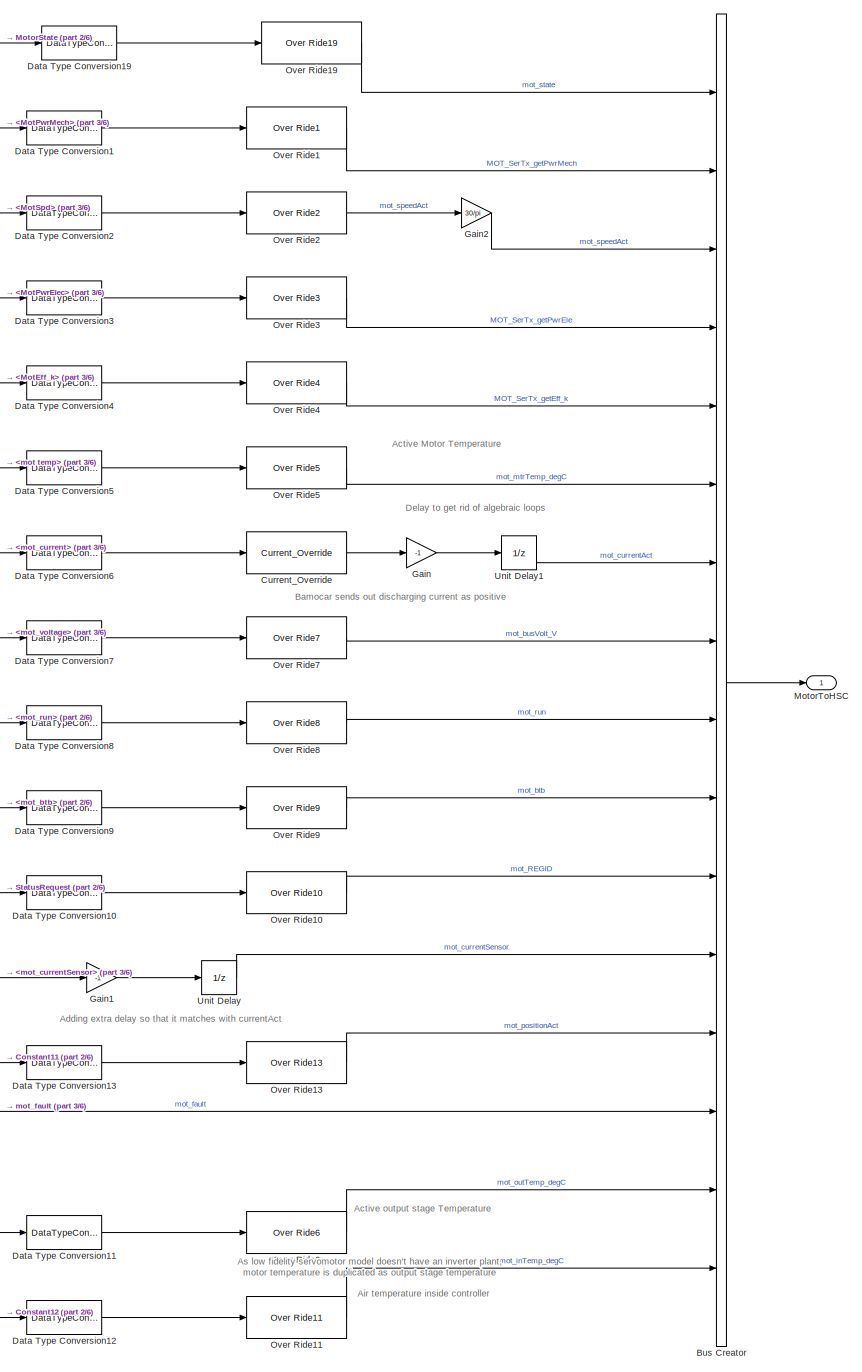
[diagram: Controller Modules /Component Controllers/Right Motor Control Module/Controller Outputs/SiL Controller Outputs - part 1/6, right side, full height]
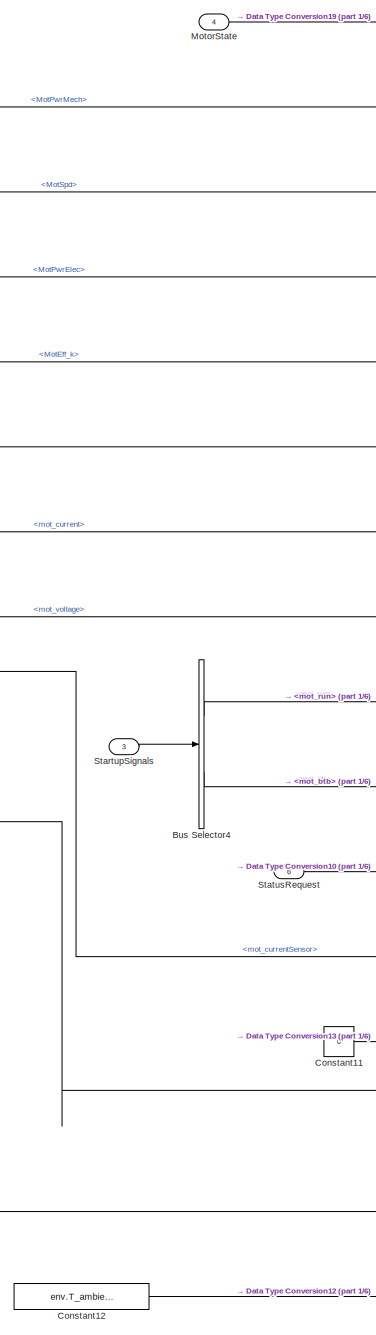
[diagram: Controller Modules /Component Controllers/Right Motor Control Module/Controller Outputs/SiL Controller Outputs - part 2/6, center side, full height]
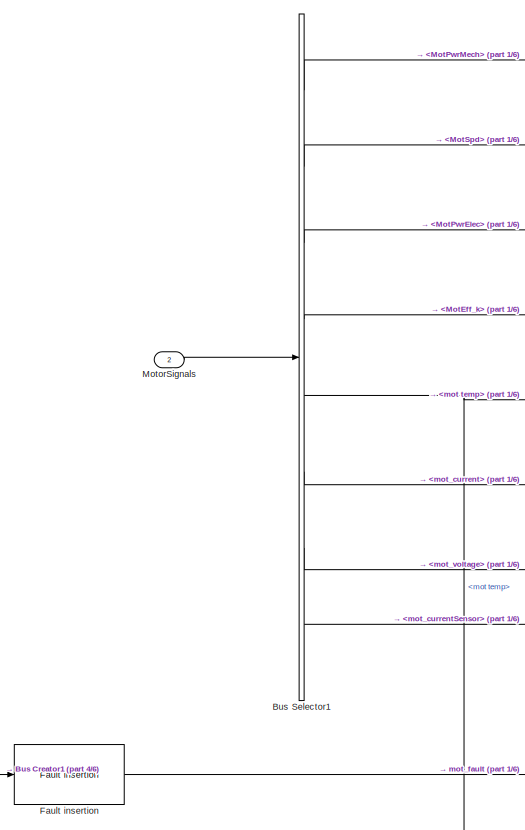
[diagram: Controller Modules /Component Controllers/Right Motor Control Module/Controller Outputs/SiL Controller Outputs - part 3/6, top center region]
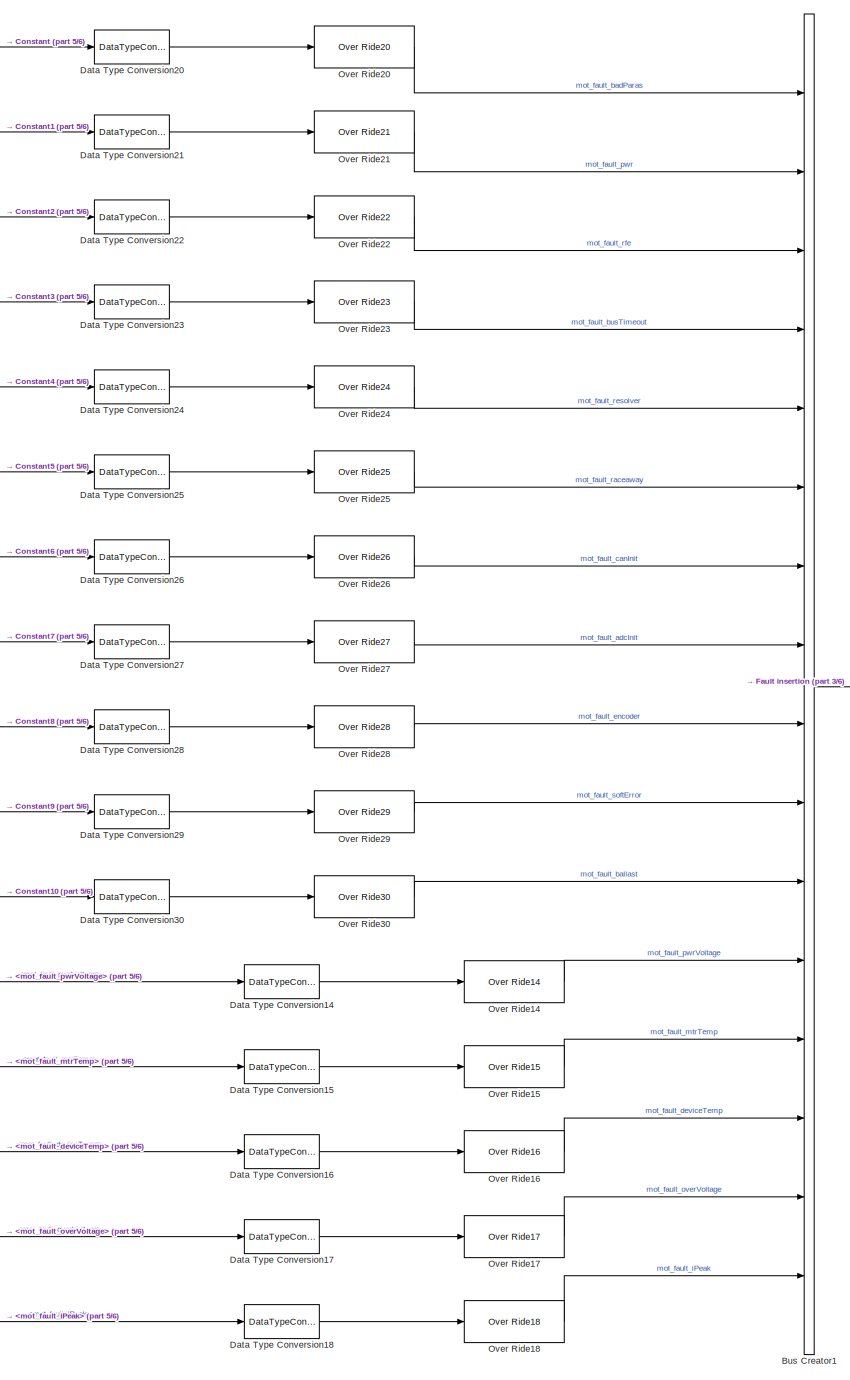
[diagram: Controller Modules /Component Controllers/Right Motor Control Module/Controller Outputs/SiL Controller Outputs - part 4/6, left side, full height]
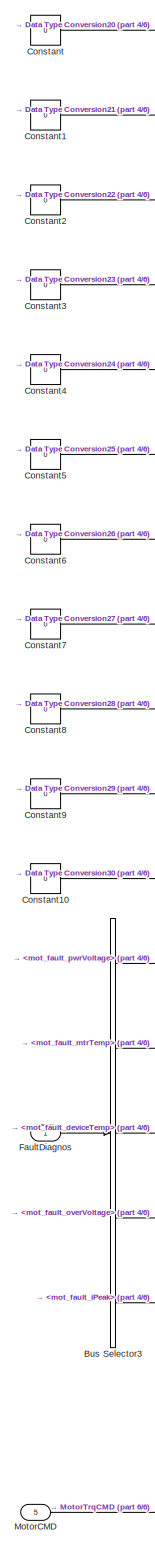
[diagram: Controller Modules /Component Controllers/Right Motor Control Module/Controller Outputs/SiL Controller Outputs - part 5/6, left side, full height]
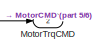
[diagram: Controller Modules /Component Controllers/Right Motor Control Module/Controller Outputs/SiL Controller Outputs - part 6/6, bottom right region]
BLOCK [SubSystem] Controller Modules /Component Controllers/Right Motor Control Module/Controller Outputs/SiL Controller Outputs
  Ports = [6, 2]
  RequestExecContextInheritance = off
  Variant = off
  VariantControl = Variant
BLOCK [BusCreator] Controller Modules /Component Controllers/Right Motor Control Module/Controller Outputs/SiL Controller Outputs/Bus Creator
  DisplayOption = bar
  InheritFromInputs = on
  Inputs = 16
  Ports = [16, 1]
BLOCK [BusCreator] Controller Modules /Component Controllers/Right Motor Control Module/Controller Outputs/SiL Controller Outputs/Bus Creator1
  DisplayOption = bar
  InheritFromInputs = on
  Inputs = 16
  Ports = [16, 1]
BLOCK [BusSelector] Controller Modules /Component Controllers/Right Motor Control Module/Controller Outputs/SiL Controller Outputs/Bus Selector1
  OutputAsBus = off
  OutputSignals = MotPwrMech,MotSpd,MotPwrElec,MotEff_k,mot temp,mot_current,mot_voltage,mot_currentSensor
  Ports = [1, 8]
BLOCK [BusSelector] Controller Modules /Component Controllers/Right Motor Control Module/Controller Outputs/SiL Controller Outputs/Bus Selector3
  OutputAsBus = off
  OutputSignals = mot_fault_pwrVoltage,mot_fault_mtrTemp,mot_fault_deviceTemp,mot_fault_overVoltage,mot_fault_iPeak
  Ports = [1, 5]
BLOCK [BusSelector] Controller Modules /Component Controllers/Right Motor Control Module/Controller Outputs/SiL Controller Outputs/Bus Selector4
  OutputAsBus = off
  OutputSignals = mot_run,mot_btb
  Ports = [1, 2]
BLOCK [Constant] Controller Modules /Component Controllers/Right Motor Control Module/Controller Outputs/SiL Controller Outputs/Constant
  Value = 0
BLOCK [Constant] Controller Modules /Component Controllers/Right Motor Control Module/Controller Outputs/SiL Controller Outputs/Constant1
  Value = 0
BLOCK [Constant] Controller Modules /Component Controllers/Right Motor Control Module/Controller Outputs/SiL Controller Outputs/Constant10
  Value = 0
BLOCK [Constant] Controller Modules /Component Controllers/Right Motor Control Module/Controller Outputs/SiL Controller Outputs/Constant11
  Value = 0
BLOCK [Constant] Controller Modules /Component Controllers/Right Motor Control Module/Controller Outputs/SiL Controller Outputs/Constant12
  Value = env.T_ambient
BLOCK [Constant] Controller Modules /Component Controllers/Right Motor Control Module/Controller Outputs/SiL Controller Outputs/Constant2
  Value = 0
BLOCK [Constant] Controller Modules /Component Controllers/Right Motor Control Module/Controller Outputs/SiL Controller Outputs/Constant3
  Value = 0
BLOCK [Constant] Controller Modules /Component Controllers/Right Motor Control Module/Controller Outputs/SiL Controller Outputs/Constant4
  Value = 0
BLOCK [Constant] Controller Modules /Component Controllers/Right Motor Control Module/Controller Outputs/SiL Controller Outputs/Constant5
  Value = 0
BLOCK [Constant] Controller Modules /Component Controllers/Right Motor Control Module/Controller Outputs/SiL Controller Outputs/Constant6
  Value = 0
BLOCK [Constant] Controller Modules /Component Controllers/Right Motor Control Module/Controller Outputs/SiL Controller Outputs/Constant7
  Value = 0
BLOCK [Constant] Controller Modules /Component Controllers/Right Motor Control Module/Controller Outputs/SiL Controller Outputs/Constant8
  Value = 0
BLOCK [Constant] Controller Modules /Component Controllers/Right Motor Control Module/Controller Outputs/SiL Controller Outputs/Constant9
  Value = 0
BLOCK [Reference] Controller Modules /Component Controllers/Right Motor Control Module/Controller Outputs/SiL Controller Outputs/Current_Override  REF=Soft_ECUs/softECU_Motor/conversion 2/Current_Override
  Ports = [1, 1]
  SourceBlock = Soft_ECUs/softECU_Motor/conversion 2/Current_Override
  SourceType = SubSystem
BLOCK [DataTypeConversion] Controller Modules /Component Controllers/Right Motor Control Module/Controller Outputs/SiL Controller Outputs/Data Type Conversion1
  RndMeth = Floor
  SaturateOnIntegerOverflow = off
BLOCK [DataTypeConversion] Controller Modules /Component Controllers/Right Motor Control Module/Controller Outputs/SiL Controller Outputs/Data Type Conversion10
  RndMeth = Floor
  SaturateOnIntegerOverflow = off
BLOCK [DataTypeConversion] Controller Modules /Component Controllers/Right Motor Control Module/Controller Outputs/SiL Controller Outputs/Data Type Conversion11
  RndMeth = Floor
  SaturateOnIntegerOverflow = off
BLOCK [DataTypeConversion] Controller Modules /Component Controllers/Right Motor Control Module/Controller Outputs/SiL Controller Outputs/Data Type Conversion12
  RndMeth = Floor
  SaturateOnIntegerOverflow = off
BLOCK [DataTypeConversion] Controller Modules /Component Controllers/Right Motor Control Module/Controller Outputs/SiL Controller Outputs/Data Type Conversion13
  RndMeth = Floor
  SaturateOnIntegerOverflow = off
BLOCK [DataTypeConversion] Controller Modules /Component Controllers/Right Motor Control Module/Controller Outputs/SiL Controller Outputs/Data Type Conversion14
  RndMeth = Floor
  SaturateOnIntegerOverflow = off
BLOCK [DataTypeConversion] Controller Modules /Component Controllers/Right Motor Control Module/Controller Outputs/SiL Controller Outputs/Data Type Conversion15
  RndMeth = Floor
  SaturateOnIntegerOverflow = off
BLOCK [DataTypeConversion] Controller Modules /Component Controllers/Right Motor Control Module/Controller Outputs/SiL Controller Outputs/Data Type Conversion16
  RndMeth = Floor
  SaturateOnIntegerOverflow = off
BLOCK [DataTypeConversion] Controller Modules /Component Controllers/Right Motor Control Module/Controller Outputs/SiL Controller Outputs/Data Type Conversion17
  RndMeth = Floor
  SaturateOnIntegerOverflow = off
BLOCK [DataTypeConversion] Controller Modules /Component Controllers/Right Motor Control Module/Controller Outputs/SiL Controller Outputs/Data Type Conversion18
  RndMeth = Floor
  SaturateOnIntegerOverflow = off
BLOCK [DataTypeConversion] Controller Modules /Component Controllers/Right Motor Control Module/Controller Outputs/SiL Controller Outputs/Data Type Conversion19
  RndMeth = Floor
  SaturateOnIntegerOverflow = off
BLOCK [DataTypeConversion] Controller Modules /Component Controllers/Right Motor Control Module/Controller Outputs/SiL Controller Outputs/Data Type Conversion2
  RndMeth = Floor
  SaturateOnIntegerOverflow = off
BLOCK [DataTypeConversion] Controller Modules /Component Controllers/Right Motor Control Module/Controller Outputs/SiL Controller Outputs/Data Type Conversion20
  RndMeth = Floor
  SaturateOnIntegerOverflow = off
BLOCK [DataTypeConversion] Controller Modules /Component Controllers/Right Motor Control Module/Controller Outputs/SiL Controller Outputs/Data Type Conversion21
  RndMeth = Floor
  SaturateOnIntegerOverflow = off
BLOCK [DataTypeConversion] Controller Modules /Component Controllers/Right Motor Control Module/Controller Outputs/SiL Controller Outputs/Data Type Conversion22
  RndMeth = Floor
  SaturateOnIntegerOverflow = off
BLOCK [DataTypeConversion] Controller Modules /Component Controllers/Right Motor Control Module/Controller Outputs/SiL Controller Outputs/Data Type Conversion23
  RndMeth = Floor
  SaturateOnIntegerOverflow = off
BLOCK [DataTypeConversion] Controller Modules /Component Controllers/Right Motor Control Module/Controller Outputs/SiL Controller Outputs/Data Type Conversion24
  RndMeth = Floor
  SaturateOnIntegerOverflow = off
BLOCK [DataTypeConversion] Controller Modules /Component Controllers/Right Motor Control Module/Controller Outputs/SiL Controller Outputs/Data Type Conversion25
  RndMeth = Floor
  SaturateOnIntegerOverflow = off
BLOCK [DataTypeConversion] Controller Modules /Component Controllers/Right Motor Control Module/Controller Outputs/SiL Controller Outputs/Data Type Conversion26
  RndMeth = Floor
  SaturateOnIntegerOverflow = off
BLOCK [DataTypeConversion] Controller Modules /Component Controllers/Right Motor Control Module/Controller Outputs/SiL Controller Outputs/Data Type Conversion27
  RndMeth = Floor
  SaturateOnIntegerOverflow = off
BLOCK [DataTypeConversion] Controller Modules /Component Controllers/Right Motor Control Module/Controller Outputs/SiL Controller Outputs/Data Type Conversion28
  RndMeth = Floor
  SaturateOnIntegerOverflow = off
BLOCK [DataTypeConversion] Controller Modules /Component Controllers/Right Motor Control Module/Controller Outputs/SiL Controller Outputs/Data Type Conversion29
  RndMeth = Floor
  SaturateOnIntegerOverflow = off
BLOCK [DataTypeConversion] Controller Modules /Component Controllers/Right Motor Control Module/Controller Outputs/SiL Controller Outputs/Data Type Conversion3
  RndMeth = Floor
  SaturateOnIntegerOverflow = off
BLOCK [DataTypeConversion] Controller Modules /Component Controllers/Right Motor Control Module/Controller Outputs/SiL Controller Outputs/Data Type Conversion30
  RndMeth = Floor
  SaturateOnIntegerOverflow = off
BLOCK [DataTypeConversion] Controller Modules /Component Controllers/Right Motor Control Module/Controller Outputs/SiL Controller Outputs/Data Type Conversion4
  RndMeth = Floor
  SaturateOnIntegerOverflow = off
BLOCK [DataTypeConversion] Controller Modules /Component Controllers/Right Motor Control Module/Controller Outputs/SiL Controller Outputs/Data Type Conversion5
  RndMeth = Floor
  SaturateOnIntegerOverflow = off
BLOCK [DataTypeConversion] Controller Modules /Component Controllers/Right Motor Control Module/Controller Outputs/SiL Controller Outputs/Data Type Conversion6
  RndMeth = Floor
  SaturateOnIntegerOverflow = off
BLOCK [DataTypeConversion] Controller Modules /Component Controllers/Right Motor Control Module/Controller Outputs/SiL Controller Outputs/Data Type Conversion7
  RndMeth = Floor
  SaturateOnIntegerOverflow = off
BLOCK [DataTypeConversion] Controller Modules /Component Controllers/Right Motor Control Module/Controller Outputs/SiL Controller Outputs/Data Type Conversion8
  OutDataTypeStr = int16
  RndMeth = Floor
  SaturateOnIntegerOverflow = off
BLOCK [DataTypeConversion] Controller Modules /Component Controllers/Right Motor Control Module/Controller Outputs/SiL Controller Outputs/Data Type Conversion9
  OutDataTypeStr = int16
  RndMeth = Floor
  SaturateOnIntegerOverflow = off
BLOCK [Reference] Controller Modules /Component Controllers/Right Motor Control Module/Controller Outputs/SiL Controller Outputs/Fault insertion  REF=Soft_ECUs/softECU_Motor/conversion 2/Fault insertion
  Ports = [1, 1]
  SourceBlock = Soft_ECUs/softECU_Motor/conversion 2/Fault insertion
  SourceType = SubSystem
BLOCK [Inport] Controller Modules /Component Controllers/Right Motor Control Module/Controller Outputs/SiL Controller Outputs/FaultDiagnos
  IconDisplay = Port number
BLOCK [Gain] Controller Modules /Component Controllers/Right Motor Control Module/Controller Outputs/SiL Controller Outputs/Gain
  Gain = -1
  OutDataTypeStr = Inherit: Inherit via internal rule
  ParamDataTypeStr = Inherit: Inherit via internal rule
  SaturateOnIntegerOverflow = off
BLOCK [Gain] Controller Modules /Component Controllers/Right Motor Control Module/Controller Outputs/SiL Controller Outputs/Gain1
  Gain = -1
  OutDataTypeStr = Inherit: Inherit via internal rule
  ParamDataTypeStr = Inherit: Inherit via internal rule
  SaturateOnIntegerOverflow = off
BLOCK [Gain] Controller Modules /Component Controllers/Right Motor Control Module/Controller Outputs/SiL Controller Outputs/Gain2
  Gain = 30/pi
  OutDataTypeStr = Inherit: Inherit via internal rule
  ParamDataTypeStr = Inherit: Inherit via internal rule
  SaturateOnIntegerOverflow = off
BLOCK [Inport] Controller Modules /Component Controllers/Right Motor Control Module/Controller Outputs/SiL Controller Outputs/MotorCMD
  IconDisplay = Port number
  Port = 5
BLOCK [Inport] Controller Modules /Component Controllers/Right Motor Control Module/Controller Outputs/SiL Controller Outputs/MotorSignals
  IconDisplay = Port number
  Port = 2
BLOCK [Inport] Controller Modules /Component Controllers/Right Motor Control Module/Controller Outputs/SiL Controller Outputs/MotorState
  IconDisplay = Port number
  Port = 4
BLOCK [Outport] Controller Modules /Component Controllers/Right Motor Control Module/Controller Outputs/SiL Controller Outputs/MotorToHSC
  IconDisplay = Port number
BLOCK [Outport] Controller Modules /Component Controllers/Right Motor Control Module/Controller Outputs/SiL Controller Outputs/MotorTrqCMD
  IconDisplay = Port number
  Port = 2
BLOCK [Reference] Controller Modules /Component Controllers/Right Motor Control Module/Controller Outputs/SiL Controller Outputs/Over Ride1  REF=Soft_ECUs/softECU_Motor/conversion 2/Over Ride1
  Ports = [1, 1]
  SourceBlock = Soft_ECUs/softECU_Motor/conversion 2/Over Ride1
  SourceType = SubSystem
BLOCK [Reference] Controller Modules /Component Controllers/Right Motor Control Module/Controller Outputs/SiL Controller Outputs/Over Ride10  REF=Soft_ECUs/softECU_Motor/conversion 2/Over Ride10
  Ports = [1, 1]
  SourceBlock = Soft_ECUs/softECU_Motor/conversion 2/Over Ride10
  SourceType = SubSystem
BLOCK [Reference] Controller Modules /Component Controllers/Right Motor Control Module/Controller Outputs/SiL Controller Outputs/Over Ride11  REF=Soft_ECUs/softECU_Motor/conversion 2/Over Ride11
  Ports = [1, 1]
  SourceBlock = Soft_ECUs/softECU_Motor/conversion 2/Over Ride11
  SourceType = SubSystem
BLOCK [Reference] Controller Modules /Component Controllers/Right Motor Control Module/Controller Outputs/SiL Controller Outputs/Over Ride13  REF=Soft_ECUs/softECU_Motor/conversion 2/Over Ride13
  Ports = [1, 1]
  SourceBlock = Soft_ECUs/softECU_Motor/conversion 2/Over Ride13
  SourceType = SubSystem
BLOCK [Reference] Controller Modules /Component Controllers/Right Motor Control Module/Controller Outputs/SiL Controller Outputs/Over Ride14  REF=Soft_ECUs/softECU_Motor/conversion 2/Over Ride14
  Ports = [1, 1]
  SourceBlock = Soft_ECUs/softECU_Motor/conversion 2/Over Ride14
  SourceType = SubSystem
BLOCK [Reference] Controller Modules /Component Controllers/Right Motor Control Module/Controller Outputs/SiL Controller Outputs/Over Ride15  REF=Soft_ECUs/softECU_Motor/conversion 2/Over Ride15
  Ports = [1, 1]
  SourceBlock = Soft_ECUs/softECU_Motor/conversion 2/Over Ride15
  SourceType = SubSystem
BLOCK [Reference] Controller Modules /Component Controllers/Right Motor Control Module/Controller Outputs/SiL Controller Outputs/Over Ride16  REF=Soft_ECUs/softECU_Motor/conversion 2/Over Ride16
  Ports = [1, 1]
  SourceBlock = Soft_ECUs/softECU_Motor/conversion 2/Over Ride16
  SourceType = SubSystem
BLOCK [Reference] Controller Modules /Component Controllers/Right Motor Control Module/Controller Outputs/SiL Controller Outputs/Over Ride17  REF=Soft_ECUs/softECU_Motor/conversion 2/Over Ride17
  Ports = [1, 1]
  SourceBlock = Soft_ECUs/softECU_Motor/conversion 2/Over Ride17
  SourceType = SubSystem
BLOCK [Reference] Controller Modules /Component Controllers/Right Motor Control Module/Controller Outputs/SiL Controller Outputs/Over Ride18  REF=Soft_ECUs/softECU_Motor/conversion 2/Over Ride18
  Ports = [1, 1]
  SourceBlock = Soft_ECUs/softECU_Motor/conversion 2/Over Ride18
  SourceType = SubSystem
BLOCK [Reference] Controller Modules /Component Controllers/Right Motor Control Module/Controller Outputs/SiL Controller Outputs/Over Ride19  REF=Soft_ECUs/softECU_Motor/conversion 2/Over Ride19
  Ports = [1, 1]
  SourceBlock = Soft_ECUs/softECU_Motor/conversion 2/Over Ride19
  SourceType = SubSystem
BLOCK [Reference] Controller Modules /Component Controllers/Right Motor Control Module/Controller Outputs/SiL Controller Outputs/Over Ride2  REF=Soft_ECUs/softECU_Motor/conversion 2/Over Ride2
  Ports = [1, 1]
  SourceBlock = Soft_ECUs/softECU_Motor/conversion 2/Over Ride2
  SourceType = SubSystem
BLOCK [Reference] Controller Modules /Component Controllers/Right Motor Control Module/Controller Outputs/SiL Controller Outputs/Over Ride20  REF=Soft_ECUs/softECU_Motor/conversion 2/Over Ride20
  Ports = [1, 1]
  SourceBlock = Soft_ECUs/softECU_Motor/conversion 2/Over Ride20
  SourceType = SubSystem
BLOCK [Reference] Controller Modules /Component Controllers/Right Motor Control Module/Controller Outputs/SiL Controller Outputs/Over Ride21  REF=Soft_ECUs/softECU_Motor/conversion 2/Over Ride21
  Ports = [1, 1]
  SourceBlock = Soft_ECUs/softECU_Motor/conversion 2/Over Ride21
  SourceType = SubSystem
BLOCK [Reference] Controller Modules /Component Controllers/Right Motor Control Module/Controller Outputs/SiL Controller Outputs/Over Ride22  REF=Soft_ECUs/softECU_Motor/conversion 2/Over Ride22
  Ports = [1, 1]
  SourceBlock = Soft_ECUs/softECU_Motor/conversion 2/Over Ride22
  SourceType = SubSystem
BLOCK [Reference] Controller Modules /Component Controllers/Right Motor Control Module/Controller Outputs/SiL Controller Outputs/Over Ride23  REF=Soft_ECUs/softECU_Motor/conversion 2/Over Ride23
  Ports = [1, 1]
  SourceBlock = Soft_ECUs/softECU_Motor/conversion 2/Over Ride23
  SourceType = SubSystem
BLOCK [Reference] Controller Modules /Component Controllers/Right Motor Control Module/Controller Outputs/SiL Controller Outputs/Over Ride24  REF=Soft_ECUs/softECU_Motor/conversion 2/Over Ride24
  Ports = [1, 1]
  SourceBlock = Soft_ECUs/softECU_Motor/conversion 2/Over Ride24
  SourceType = SubSystem
BLOCK [Reference] Controller Modules /Component Controllers/Right Motor Control Module/Controller Outputs/SiL Controller Outputs/Over Ride25  REF=Soft_ECUs/softECU_Motor/conversion 2/Over Ride25
  Ports = [1, 1]
  SourceBlock = Soft_ECUs/softECU_Motor/conversion 2/Over Ride25
  SourceType = SubSystem
BLOCK [Reference] Controller Modules /Component Controllers/Right Motor Control Module/Controller Outputs/SiL Controller Outputs/Over Ride26  REF=Soft_ECUs/softECU_Motor/conversion 2/Over Ride26
  Ports = [1, 1]
  SourceBlock = Soft_ECUs/softECU_Motor/conversion 2/Over Ride26
  SourceType = SubSystem
BLOCK [Reference] Controller Modules /Component Controllers/Right Motor Control Module/Controller Outputs/SiL Controller Outputs/Over Ride27  REF=Soft_ECUs/softECU_Motor/conversion 2/Over Ride27
  Ports = [1, 1]
  SourceBlock = Soft_ECUs/softECU_Motor/conversion 2/Over Ride27
  SourceType = SubSystem
BLOCK [Reference] Controller Modules /Component Controllers/Right Motor Control Module/Controller Outputs/SiL Controller Outputs/Over Ride28  REF=Soft_ECUs/softECU_Motor/conversion 2/Over Ride28
  Ports = [1, 1]
  SourceBlock = Soft_ECUs/softECU_Motor/conversion 2/Over Ride28
  SourceType = SubSystem
BLOCK [Reference] Controller Modules /Component Controllers/Right Motor Control Module/Controller Outputs/SiL Controller Outputs/Over Ride29  REF=Soft_ECUs/softECU_Motor/conversion 2/Over Ride29
  Ports = [1, 1]
  SourceBlock = Soft_ECUs/softECU_Motor/conversion 2/Over Ride29
  SourceType = SubSystem
BLOCK [Reference] Controller Modules /Component Controllers/Right Motor Control Module/Controller Outputs/SiL Controller Outputs/Over Ride3  REF=Soft_ECUs/softECU_Motor/conversion 2/Over Ride3
  Ports = [1, 1]
  SourceBlock = Soft_ECUs/softECU_Motor/conversion 2/Over Ride3
  SourceType = SubSystem
BLOCK [Reference] Controller Modules /Component Controllers/Right Motor Control Module/Controller Outputs/SiL Controller Outputs/Over Ride30  REF=Soft_ECUs/softECU_Motor/conversion 2/Over Ride30
  Ports = [1, 1]
  SourceBlock = Soft_ECUs/softECU_Motor/conversion 2/Over Ride30
  SourceType = SubSystem
BLOCK [Reference] Controller Modules /Component Controllers/Right Motor Control Module/Controller Outputs/SiL Controller Outputs/Over Ride4  REF=Soft_ECUs/softECU_Motor/conversion 2/Over Ride4
  Ports = [1, 1]
  SourceBlock = Soft_ECUs/softECU_Motor/conversion 2/Over Ride4
  SourceType = SubSystem
BLOCK [Reference] Controller Modules /Component Controllers/Right Motor Control Module/Controller Outputs/SiL Controller Outputs/Over Ride5  REF=Soft_ECUs/softECU_Motor/conversion 2/Over Ride5
  Ports = [1, 1]
  SourceBlock = Soft_ECUs/softECU_Motor/conversion 2/Over Ride5
  SourceType = SubSystem
BLOCK [Reference] Controller Modules /Component Controllers/Right Motor Control Module/Controller Outputs/SiL Controller Outputs/Over Ride6  REF=Soft_ECUs/softECU_Motor/conversion 2/Over Ride6
  Ports = [1, 1]
  SourceBlock = Soft_ECUs/softECU_Motor/conversion 2/Over Ride6
  SourceType = SubSystem
BLOCK [Reference] Controller Modules /Component Controllers/Right Motor Control Module/Controller Outputs/SiL Controller Outputs/Over Ride7  REF=Soft_ECUs/softECU_Motor/conversion 2/Over Ride7
  Ports = [1, 1]
  SourceBlock = Soft_ECUs/softECU_Motor/conversion 2/Over Ride7
  SourceType = SubSystem
BLOCK [Reference] Controller Modules /Component Controllers/Right Motor Control Module/Controller Outputs/SiL Controller Outputs/Over Ride8  REF=Soft_ECUs/softECU_Motor/conversion 2/Over Ride8
  Ports = [1, 1]
  SourceBlock = Soft_ECUs/softECU_Motor/conversion 2/Over Ride8
  SourceType = SubSystem
BLOCK [Reference] Controller Modules /Component Controllers/Right Motor Control Module/Controller Outputs/SiL Controller Outputs/Over Ride9  REF=Soft_ECUs/softECU_Motor/conversion 2/Over Ride9
  Ports = [1, 1]
  SourceBlock = Soft_ECUs/softECU_Motor/conversion 2/Over Ride9
  SourceType = SubSystem
BLOCK [Inport] Controller Modules /Component Controllers/Right Motor Control Module/Controller Outputs/SiL Controller Outputs/StartupSignals
  IconDisplay = Port number
  Port = 3
BLOCK [Inport] Controller Modules /Component Controllers/Right Motor Control Module/Controller Outputs/SiL Controller Outputs/StatusRequest
  IconDisplay = Port number
  Port = 6
BLOCK [UnitDelay] Controller Modules /Component Controllers/Right Motor Control Module/Controller Outputs/SiL Controller Outputs/Unit Delay
  InputProcessing = Elements as channels (sample based)
  SampleTime = -1
BLOCK [UnitDelay] Controller Modules /Component Controllers/Right Motor Control Module/Controller Outputs/SiL Controller Outputs/Unit Delay1
  InputProcessing = Elements as channels (sample based)
  SampleTime = -1
BLOCK [Inport] Controller Modules /Component Controllers/Right Motor Control Module/Controller Outputs/StartupSignals
  IconDisplay = Port number
  Port = 3
BLOCK [Inport] Controller Modules /Component Controllers/Right Motor Control Module/Controller Outputs/StatusRequest
  IconDisplay = Port number
  Port = 6
BLOCK [Inport] Controller Modules /Component Controllers/Right Motor Control Module/HSCInputs
  IconDisplay = Port number
BLOCK [Inport] Controller Modules /Component Controllers/Right Motor Control Module/IgnitionCMD
  IconDisplay = Port number
  Port = 3
BLOCK [Inport] Controller Modules /Component Controllers/Right Motor Control Module/MotorPlantSig
  IconDisplay = Port number
  Port = 2
BLOCK [Outport] Controller Modules /Component Controllers/Right Motor Control Module/Right_Motor_HSC
  IconDisplay = Port number
BLOCK [Outport] Controller Modules /Component Controllers/Right Motor Control Module/Right_Motor_Plant
  IconDisplay = Port number
  Port = 2
BLOCK [SubSystem] Controller Modules /Component Controllers/Right Motor Control Module/Subsystem
  Ports = [12, 6]
  RequestExecContextInheritance = off
  Variant = off
BLOCK [Inport] Controller Modules /Component Controllers/Right Motor Control Module/Subsystem/In1
  IconDisplay = Port number
BLOCK [Inport] Controller Modules /Component Controllers/Right Motor Control Module/Subsystem/In10
  IconDisplay = Port number
  Port = 10
BLOCK [Inport] Controller Modules /Component Controllers/Right Motor Control Module/Subsystem/In11
  IconDisplay = Port number
  Port = 11
BLOCK [Inport] Controller Modules /Component Controllers/Right Motor Control Module/Subsystem/In12
  IconDisplay = Port number
  Port = 12
BLOCK [Inport] Controller Modules /Component Controllers/Right Motor Control Module/Subsystem/In2
  IconDisplay = Port number
  Port = 2
BLOCK [Inport] Controller Modules /Component Controllers/Right Motor Control Module/Subsystem/In3
  IconDisplay = Port number
  Port = 3
BLOCK [Inport] Controller Modules /Component Controllers/Right Motor Control Module/Subsystem/In4
  IconDisplay = Port number
  Port = 4
BLOCK [Inport] Controller Modules /Component Controllers/Right Motor Control Module/Subsystem/In5
  IconDisplay = Port number
  Port = 5
BLOCK [Inport] Controller Modules /Component Controllers/Right Motor Control Module/Subsystem/In6
  IconDisplay = Port number
  Port = 6
BLOCK [Inport] Controller Modules /Component Controllers/Right Motor Control Module/Subsystem/In7
  IconDisplay = Port number
  Port = 7
BLOCK [Inport] Controller Modules /Component Controllers/Right Motor Control Module/Subsystem/In8
  IconDisplay = Port number
  Port = 8
BLOCK [Inport] Controller Modules /Component Controllers/Right Motor Control Module/Subsystem/In9
  IconDisplay = Port number
  Port = 9
BLOCK [Outport] Controller Modules /Component Controllers/Right Motor Control Module/Subsystem/Out1
  IconDisplay = Port number
BLOCK [Outport] Controller Modules /Component Controllers/Right Motor Control Module/Subsystem/Out2
  IconDisplay = Port number
  Port = 2
BLOCK [Outport] Controller Modules /Component Controllers/Right Motor Control Module/Subsystem/Out3
  IconDisplay = Port number
  Port = 3
BLOCK [Outport] Controller Modules /Component Controllers/Right Motor Control Module/Subsystem/Out4
  IconDisplay = Port number
  Port = 4
BLOCK [Outport] Controller Modules /Component Controllers/Right Motor Control Module/Subsystem/Out5
  IconDisplay = Port number
  Port = 5
BLOCK [Outport] Controller Modules /Component Controllers/Right Motor Control Module/Subsystem/Out6
  IconDisplay = Port number
  Port = 6
BLOCK [Outport] Controller Modules /Component Controllers/ToHSC
  IconDisplay = Port number
  Port = 2
BLOCK [Outport] Controller Modules /Component Controllers/ToVehiclePlant
  IconDisplay = Port number
BLOCK [SubSystem] Controller Modules /Controller
  Ports = [1, 1]
  RequestExecContextInheritance = off
  Variant = on
BLOCK [SubSystem] Controller Modules /Controller Inputs
  Ports = [2, 1]
  RequestExecContextInheritance = off
  Variant = on
BLOCK [Outport] Controller Modules /Controller Inputs/ControllerInputs
  IconDisplay = Port number
BLOCK [Inport] Controller Modules /Controller Inputs/DriverInputs
  IconDisplay = Port number
BLOCK [SubSystem] Controller Modules /Controller Inputs/HiL Inputs
  Ports = [1, 1]
  RequestExecContextInheritance = off
  Variant = off
  VariantControl = Variant1
BLOCK [Outport] Controller Modules /Controller Inputs/HiL Inputs/ControllerInputs
  IconDisplay = Port number
BLOCK [Inport] Controller Modules /Controller Inputs/HiL Inputs/DriverInputs
  IconDisplay = Port number
BLOCK [SubSystem] Controller Modules /Controller Inputs/SiL Inputs
  Ports = [2, 1]
  RequestExecContextInheritance = off
  Variant = off
  VariantControl = Variant
BLOCK [BusCreator] Controller Modules /Controller Inputs/SiL Inputs/Bus Creator
  DisplayOption = bar
  InheritFromInputs = on
  Inputs = 6
  Ports = [6, 1]
BLOCK [BusCreator] Controller Modules /Controller Inputs/SiL Inputs/Bus Creator1
  DisplayOption = bar
  InheritFromInputs = on
  Inputs = 2
  Ports = [2, 1]
BLOCK [BusSelector] Controller Modules /Controller Inputs/SiL Inputs/Bus Selector3
  OutputAsBus = off
  OutputSignals = mot_R_SoftCAN_Outputs,BMS_SoftCAN_Outputs,mot_L_SoftCAN_Outputs,driver_sigs,INVCON_SoftCAN_Outputs,genset_softECU_toHSC
  Ports = [1, 6]
BLOCK [Outport] Controller Modules /Controller Inputs/SiL Inputs/ControllerInputs
  IconDisplay = Port number
BLOCK [Inport] Controller Modules /Controller Inputs/SiL Inputs/DriverInputs
  IconDisplay = Port number
BLOCK [Reference] Controller Modules /Controller Inputs/SiL Inputs/Rename  REF=SoftCAN_Interface/HSC_In/Rename
  Ports = [1, 1]
  SourceBlock = SoftCAN_Interface/HSC_In/Rename
  SourceType = SubSystem
BLOCK [Reference] Controller Modules /Controller Inputs/SiL Inputs/Rename1  REF=SoftCAN_Interface/HSC_In/Rename1
  Ports = [1, 1]
  SourceBlock = SoftCAN_Interface/HSC_In/Rename1
  SourceType = SubSystem
BLOCK [Reference] Controller Modules /Controller Inputs/SiL Inputs/Rename2  REF=SoftCAN_Interface/HSC_In/Rename2
  Ports = [1, 1]
  SourceBlock = SoftCAN_Interface/HSC_In/Rename2
  SourceType = SubSystem
BLOCK [Reference] Controller Modules /Controller Inputs/SiL Inputs/Rename3  REF=SoftCAN_Interface/HSC_In/Rename3
  Ports = [1, 1]
  SourceBlock = SoftCAN_Interface/HSC_In/Rename3
  SourceType = SubSystem
BLOCK [Reference] Controller Modules /Controller Inputs/SiL Inputs/Rename4  REF=SoftCAN_Interface/HSC_In/Rename4
  Ports = [1, 1]
  SourceBlock = SoftCAN_Interface/HSC_In/Rename4
  SourceType = SubSystem
BLOCK [Reference] Controller Modules /Controller Inputs/SiL Inputs/Signal Mapping  REF=SoftCAN_Interface/HSC_In/Signal Mapping
  Ports = [1, 1]
  SourceBlock = SoftCAN_Interface/HSC_In/Signal Mapping
  SourceType = SubSystem
BLOCK [Inport] Controller Modules /Controller Inputs/SiL Inputs/SystemInputs
  IconDisplay = Port number
  Port = 2
BLOCK [Inport] Controller Modules /Controller Inputs/SystemInputs
  IconDisplay = Port number
  Port = 2
BLOCK [SubSystem] Controller Modules /Controller Outputs
  Ports = [1, 1]
  RequestExecContextInheritance = off
  Variant = on
BLOCK [SubSystem] Controller Modules /Controller Outputs/HiL Controller Outputs
  Ports = [1, 1]
  RequestExecContextInheritance = off
  Variant = off
  VariantControl = Variant1
BLOCK [Inport] Controller Modules /Controller Outputs/HiL Controller Outputs/In1
  IconDisplay = Port number
BLOCK [Outport] Controller Modules /Controller Outputs/HiL Controller Outputs/Out1
  IconDisplay = Port number
BLOCK [Inport] Controller Modules /Controller Outputs/In1
  IconDisplay = Port number
BLOCK [Outport] Controller Modules /Controller Outputs/Out1
  IconDisplay = Port number
BLOCK [SubSystem] Controller Modules /Controller Outputs/SiL Controller Outputs
  Ports = [1, 1]
  RequestExecContextInheritance = off
  Variant = off
  VariantControl = Variant
BLOCK [Inport] Controller Modules /Controller Outputs/SiL Controller Outputs/In1
  IconDisplay = Port number
BLOCK [Outport] Controller Modules /Controller Outputs/SiL Controller Outputs/Out1
  IconDisplay = Port number
BLOCK [SubSystem] Controller Modules /Controller/HiL HSC Controller
  Ports = [1, 1]
  RequestExecContextInheritance = off
  Variant = off
  VariantControl = Variant1
BLOCK [Inport] Controller Modules /Controller/HiL HSC Controller/In1
  IconDisplay = Port number
BLOCK [Outport] Controller Modules /Controller/HiL HSC Controller/Out1
  IconDisplay = Port number
BLOCK [Inport] Controller Modules /Controller/In1
  IconDisplay = Port number
BLOCK [Outport] Controller Modules /Controller/Out1
  IconDisplay = Port number
BLOCK [SubSystem] Controller Modules /Controller/SiL HSC Controller
  Ports = [1, 1]
  RequestExecContextInheritance = off
  Variant = off
  VariantControl = Variant
BLOCK [SubSystem] Controller Modules /Controller/SiL HSC Controller/HSC_SIL
  Ports = [1, 1]
  RequestExecContextInheritance = off
  Variant = off
  VariantControl = HSC_SIL_CONTROL
BLOCK [SubSystem] Controller Modules /Controller/SiL HSC Controller/HSC_SIL/components
  Ports = [2, 2]
  RequestExecContextInheritance = off
  Variant = off
BLOCK [Reference] Controller Modules /Controller/SiL HSC Controller/HSC_SIL/components/Accm  REF=Accm/AccmComp
  Ports = [2, 2]
  SourceBlock = Accm/AccmComp
  SourceType = SubSystem
BLOCK [BusCreator] Controller Modules /Controller/SiL HSC Controller/HSC_SIL/components/Bus Creator1
  DisplayOption = bar
  InheritFromInputs = on
  Inputs = 10
  Ports = [10, 1]
BLOCK [BusCreator] Controller Modules /Controller/SiL HSC Controller/HSC_SIL/components/Bus Creator2
  DisplayOption = bar
  InheritFromInputs = on
  Inputs = 9
  Ports = [9, 1]
BLOCK [BusSelector] Controller Modules /Controller/SiL HSC Controller/HSC_SIL/components/Bus Selector
  OutputAsBus = on
  OutputSignals = rtmRight_signal_out.mot_state,rtmRight_signal_out.mot_btb,rtmRight_signal_out.mot_run,rtmRight_signal_out.mot_positionAct,rtmRight_signal_out.mot_speedAct,rtmRight_signal_out.mot_currentAct,rtmRight_signal_out.mot_mtrTemp_degC,rtmRight_signal_out.mot_outTemp_degC,rtmRight_signal_out.mot_inTemp_degC,rtmRight_signal_out.mot_busVolt_V,rtmRight_signal_out.mot_currentSensor,rtmRight_signal_out.mot_faul...<+1ch>
  Ports = [1, 1]
BLOCK [BusSelector] Controller Modules /Controller/SiL HSC Controller/HSC_SIL/components/Bus Selector1
  OutputAsBus = on
  OutputSignals = rtmRight_signal_out.mot_state,rtmRight_signal_out.mot_btb,rtmRight_signal_out.mot_run,rtmRight_signal_out.mot_positionAct,rtmRight_signal_out.mot_speedAct,rtmRight_signal_out.mot_currentAct,rtmRight_signal_out.mot_mtrTemp_degC,rtmRight_signal_out.mot_outTemp_degC,rtmRight_signal_out.mot_inTemp_degC,rtmRight_signal_out.mot_busVolt_V,rtmRight_signal_out.mot_currentSensor,rtmRight_signal_out.mot_faul...<+1ch>
  Ports = [1, 1]
BLOCK [BusSelector] Controller Modules /Controller/SiL HSC Controller/HSC_SIL/components/Bus Selector2
  OutputAsBus = on
  OutputSignals = FROM_LOGIC,TrqLimiting,propulsion_sys_out.propulsion_motL_cmds,propulsion_sys_out.propulsion_noTorqueMismatchCheck,propulsion_sys_out.propulsion_noCurrentSensorErrorCheck
  Ports = [1, 1]
BLOCK [BusSelector] Controller Modules /Controller/SiL HSC Controller/HSC_SIL/components/Bus Selector3
  OutputAsBus = on
  OutputSignals = FROM_LOGIC,TrqLimiting,propulsion_sys_out.propulsion_motR_cmds,propulsion_sys_out.propulsion_noTorqueMismatchCheck,propulsion_sys_out.propulsion_noCurrentSensorErrorCheck
  Ports = [1, 1]
BLOCK [Reference] Controller Modules /Controller/SiL HSC Controller/HSC_SIL/components/Charger  REF=Charger/ChargerComp
  Ports = [2, 2]
  SourceBlock = Charger/ChargerComp
  SourceType = SubSystem
BLOCK [Reference] Controller Modules /Controller/SiL HSC Controller/HSC_SIL/components/DriverInput  REF=DriverInput/DriverInputComp
  Ports = [2, 2]
  SourceBlock = DriverInput/DriverInputComp
  SourceType = SubSystem
BLOCK [Reference] Controller Modules /Controller/SiL HSC Controller/HSC_SIL/components/EssComp  REF=ESS/EssComp
  Ports = [2, 2]
  SourceBlock = ESS/EssComp
  SourceType = SubSystem
BLOCK [SubSystem] Controller Modules /Controller/SiL HSC Controller/HSC_SIL/components/Ice
  AncestorBlock = Ice/IceComp
  Ports = [2, 2]
  RequestExecContextInheritance = off
  Variant = off
BLOCK [BusCreator] Controller Modules /Controller/SiL HSC Controller/HSC_SIL/components/Ice/Bus Creator
  DisplayOption = bar
  InheritFromInputs = on
  Inputs = 6
  Ports = [6, 1]
BLOCK [BusCreator] Controller Modules /Controller/SiL HSC Controller/HSC_SIL/components/Ice/Bus Creator1
  DisplayOption = bar
  InheritFromInputs = on
  Inputs = 2
  Ports = [2, 1]
BLOCK [BusSelector] Controller Modules /Controller/SiL HSC Controller/HSC_SIL/components/Ice/Bus Selector
  OutputAsBus = off
  OutputSignals = genset_signal_out.eng_engineSpd_RPM,genset_signal_out.eng_fuelLevelBit_bool
  Ports = [1, 2]
BLOCK [BusSelector] Controller Modules /Controller/SiL HSC Controller/HSC_SIL/components/Ice/Bus Selector1
  OutputAsBus = off
  OutputSignals = genset_commands.eng_throttleReq_pct,genset_commands.eng_commandBus.eng_killSwitchReq_bool,genset_commands.eng_commandBus.eng_powerSupplyReq_bool,genset_commands.eng_commandBus.eng_starterSwitchReq_bool,genset_commands.gen_enable,genset_commands.eng_commandBus.eng_status_val
  Ports = [1, 6]
BLOCK [Inport] Controller Modules /Controller/SiL HSC Controller/HSC_SIL/components/Ice/FROM_SIGNALS
  IconDisplay = Port number
  Port = 2
BLOCK [Inport] Controller Modules /Controller/SiL HSC Controller/HSC_SIL/components/Ice/FROM_SYSTEMS
  IconDisplay = Port number
BLOCK [Outport] Controller Modules /Controller/SiL HSC Controller/HSC_SIL/components/Ice/TO_SIGNALS
  IconDisplay = Port number
  Port = 2
BLOCK [Outport] Controller Modules /Controller/SiL HSC Controller/HSC_SIL/components/Ice/TO_SYSTEMS
  IconDisplay = Port number
BLOCK [SubSystem] Controller Modules /Controller/SiL HSC Controller/HSC_SIL/components/Invcon
  AncestorBlock = Invcon/InvconComp
  Ports = [2, 2]
  RequestExecContextInheritance = off
  Variant = off
BLOCK [BusCreator] Controller Modules /Controller/SiL HSC Controller/HSC_SIL/components/Invcon/Bus Creator1
  DisplayOption = bar
  InheritFromInputs = on
  Inputs = 15
  Ports = [15, 1]
BLOCK [BusCreator] Controller Modules /Controller/SiL HSC Controller/HSC_SIL/components/Invcon/Bus Creator2
  DisplayOption = bar
  InheritFromInputs = on
  Inputs = 37
  Ports = [37, 1]
BLOCK [BusSelector] Controller Modules /Controller/SiL HSC Controller/HSC_SIL/components/Invcon/Bus Selector
  OutputAsBus = off
  OutputSignals = invcon_signal_out.gen_torqueActual_Nm,invcon_signal_out.gen_INVSpeed_rpm,invcon_signal_out.dcdc_temp_C,invcon_signal_out.dcdc_overTemp,invcon_signal_out.gen_temp_C,invcon_signal_out.gen_rotorTemp_C,invcon_signal_out.gen_elecMachineTemp_C,invcon_signal_out.inv_EMoverTemp,invcon_signal_out.gen_current_Amps,invcon_signal_out.gen_voltage_V,invcon_signal_out.dcdc_voltageHigh_V,invcon_signal_out.dcdc_vo...<+677ch>
  Ports = [1, 30]
BLOCK [BusSelector] Controller Modules /Controller/SiL HSC Controller/HSC_SIL/components/Invcon/Bus Selector1
  OutputAsBus = off
  OutputSignals = genset_commands.gen_loadTrqReq_Nm,genset_commands.gen_enable,FROM_LOGIC.hvAllowed
  Ports = [1, 3]
BLOCK [Constant] Controller Modules /Controller/SiL HSC Controller/HSC_SIL/components/Invcon/Checksum_130
BLOCK [Reference] Controller Modules /Controller/SiL HSC Controller/HSC_SIL/components/Invcon/Compare To Zero  REF=simulink/Logic and Bit
Operations/Compare
To Zero
  Ports = [1, 1]
  SourceBlock = simulink/Logic and Bit\nOperations/Compare\nTo Zero
  SourceProductBaseCode = SL
  SourceProductName = Simulink
  SourceType = Compare To Zero
BLOCK [Reference] Controller Modules /Controller/SiL HSC Controller/HSC_SIL/components/Invcon/Compare To Zero1  REF=simulink/Logic and Bit
Operations/Compare
To Zero
  Ports = [1, 1]
  SourceBlock = simulink/Logic and Bit\nOperations/Compare\nTo Zero
  SourceProductBaseCode = SL
  SourceProductName = Simulink
  SourceType = Compare To Zero
BLOCK [Constant] Controller Modules /Controller/SiL HSC Controller/HSC_SIL/components/Invcon/Constant2
  Value = .05
BLOCK [Logic] Controller Modules /Controller/SiL HSC Controller/HSC_SIL/components/Invcon/DC Electrical Error Detect
  AllPortsSameDT = off
  Inputs = 9
  Operator = OR
  OutDataTypeStr = boolean
  Ports = [9, 1]
BLOCK [SubSystem] Controller Modules /Controller/SiL HSC Controller/HSC_SIL/components/Invcon/DCDC Mode Logic
  ErrorFcn = Stateflow.Translate.translate
  PermitHierarchicalResolution = ExplicitOnly
  Ports = [4, 1]
  RequestExecContextInheritance = off
  SFBlockType = Chart
  TreatAsAtomicUnit = on
  Variant = off
BLOCK [Demux] Controller Modules /Controller/SiL HSC Controller/HSC_SIL/components/Invcon/DCDC Mode Logic/ Demux 
  Outputs = 1
  Ports = [1, 1]
BLOCK [S-Function] Controller Modules /Controller/SiL HSC Controller/HSC_SIL/components/Invcon/DCDC Mode Logic/ SFunction 
  EnableBusSupport = off
  FunctionName = sf_sfun
  PortCounts = [4 2]
  Ports = [4, 2]
  SFcnIsStateOwnerBlock = off
  SFunctionDeploymentMode = off
  Tag = Stateflow S-Function fullVehicleModel_17b 19
BLOCK [Terminator] Controller Modules /Controller/SiL HSC Controller/HSC_SIL/components/Invcon/DCDC Mode Logic/ Terminator 
BLOCK [Inport] Controller Modules /Controller/SiL HSC Controller/HSC_SIL/components/Invcon/DCDC Mode Logic/battery_status
  IconDisplay = Port number
  Port = 3
BLOCK [Outport] Controller Modules /Controller/SiL HSC Controller/HSC_SIL/components/Invcon/DCDC Mode Logic/dcdc_mode
  IconDisplay = Port number
BLOCK [Inport] Controller Modules /Controller/SiL HSC Controller/HSC_SIL/components/Invcon/DCDC Mode Logic/discharge
  IconDisplay = Port number
  Port = 4
BLOCK [Inport] Controller Modules /Controller/SiL HSC Controller/HSC_SIL/components/Invcon/DCDC Mode Logic/enable
  IconDisplay = Port number
BLOCK [Inport] Controller Modules /Controller/SiL HSC Controller/HSC_SIL/components/Invcon/DCDC Mode Logic/errors
  IconDisplay = Port number
  Port = 2
BLOCK [DataTypeConversion] Controller Modules /Controller/SiL HSC Controller/HSC_SIL/components/Invcon/Data Type Conversion
  OutDataTypeStr = double
  RndMeth = Floor
  SaturateOnIntegerOverflow = off
BLOCK [Derivative] Controller Modules /Controller/SiL HSC Controller/HSC_SIL/components/Invcon/Derivative
BLOCK [Derivative] Controller Modules /Controller/SiL HSC Controller/HSC_SIL/components/Invcon/Derivative1
BLOCK [Inport] Controller Modules /Controller/SiL HSC Controller/HSC_SIL/components/Invcon/FROM_SIGNALS
  IconDisplay = Port number
  Port = 2
BLOCK [Inport] Controller Modules /Controller/SiL HSC Controller/HSC_SIL/components/Invcon/FROM_SYSTEMS
  IconDisplay = Port number
BLOCK [From] Controller Modules /Controller/SiL HSC Controller/HSC_SIL/components/Invcon/From
  GotoTag = actualTorque
BLOCK [From] Controller Modules /Controller/SiL HSC Controller/HSC_SIL/components/Invcon/From1
  GotoTag = commandedTorque
BLOCK [From] Controller Modules /Controller/SiL HSC Controller/HSC_SIL/components/Invcon/From2
  GotoTag = gen_rotorTemp_C
BLOCK [From] Controller Modules /Controller/SiL HSC Controller/HSC_SIL/components/Invcon/From3
  GotoTag = gen_elecMachineTemp_C
BLOCK [From] Controller Modules /Controller/SiL HSC Controller/HSC_SIL/components/Invcon/From4
  GotoTag = genEnable
BLOCK [From] Controller Modules /Controller/SiL HSC Controller/HSC_SIL/components/Invcon/From5
  GotoTag = hvAllowed
BLOCK [Gain] Controller Modules /Controller/SiL HSC Controller/HSC_SIL/components/Invcon/Gain
  Gain = -1
  OutDataTypeStr = Inherit: Inherit via internal rule
  ParamDataTypeStr = Inherit: Inherit via internal rule
  SaturateOnIntegerOverflow = off
BLOCK [Gain] Controller Modules /Controller/SiL HSC Controller/HSC_SIL/components/Invcon/Gain1
  Gain = -1
  OutDataTypeStr = Inherit: Inherit via internal rule
  ParamDataTypeStr = Inherit: Inherit via internal rule
  SaturateOnIntegerOverflow = off
BLOCK [SubSystem] Controller Modules /Controller/SiL HSC Controller/HSC_SIL/components/Invcon/Gen Startup Logic
  ErrorFcn = Stateflow.Translate.translate
  PermitHierarchicalResolution = ExplicitOnly
  Ports = [6, 1]
  RequestExecContextInheritance = off
  SFBlockType = Chart
  TreatAsAtomicUnit = on
  Variant = off
BLOCK [Demux] Controller Modules /Controller/SiL HSC Controller/HSC_SIL/components/Invcon/Gen Startup Logic/ Demux 
  Outputs = 1
  Ports = [1, 1]
BLOCK [S-Function] Controller Modules /Controller/SiL HSC Controller/HSC_SIL/components/Invcon/Gen Startup Logic/ SFunction 
  EnableBusSupport = off
  FunctionName = sf_sfun
  PortCounts = [6 2]
  Ports = [6, 2]
  SFcnIsStateOwnerBlock = off
  SFunctionDeploymentMode = off
  Tag = Stateflow S-Function fullVehicleModel_17b 20
BLOCK [Terminator] Controller Modules /Controller/SiL HSC Controller/HSC_SIL/components/Invcon/Gen Startup Logic/ Terminator 
BLOCK [Inport] Controller Modules /Controller/SiL HSC Controller/HSC_SIL/components/Invcon/Gen Startup Logic/DCDC_HV
  IconDisplay = Port number
  Port = 2
BLOCK [Inport] Controller Modules /Controller/SiL HSC Controller/HSC_SIL/components/Invcon/Gen Startup Logic/DCDC_LV
  IconDisplay = Port number
  Port = 3
BLOCK [Inport] Controller Modules /Controller/SiL HSC Controller/HSC_SIL/components/Invcon/Gen Startup Logic/battery_status
  IconDisplay = Port number
  Port = 6
BLOCK [Inport] Controller Modules /Controller/SiL HSC Controller/HSC_SIL/components/Invcon/Gen Startup Logic/discharge
  IconDisplay = Port number
  Port = 5
BLOCK [Inport] Controller Modules /Controller/SiL HSC Controller/HSC_SIL/components/Invcon/Gen Startup Logic/gen_enable
  IconDisplay = Port number
  Port = 4
BLOCK [Outport] Controller Modules /Controller/SiL HSC Controller/HSC_SIL/components/Invcon/Gen Startup Logic/gen_mode
  IconDisplay = Port number
BLOCK [Inport] Controller Modules /Controller/SiL HSC Controller/HSC_SIL/components/Invcon/Gen Startup Logic/gen_voltage
  IconDisplay = Port number
BLOCK [Goto] Controller Modules /Controller/SiL HSC Controller/HSC_SIL/components/Invcon/Goto
  GotoTag = actualTorque
BLOCK [Goto] Controller Modules /Controller/SiL HSC Controller/HSC_SIL/components/Invcon/Goto1
  GotoTag = commandedTorque
BLOCK [Goto] Controller Modules /Controller/SiL HSC Controller/HSC_SIL/components/Invcon/Goto2
  GotoTag = genEnable
BLOCK [Goto] Controller Modules /Controller/SiL HSC Controller/HSC_SIL/components/Invcon/Goto3
  GotoTag = hvAllowed
BLOCK [Logic] Controller Modules /Controller/SiL HSC Controller/HSC_SIL/components/Invcon/INV Electrical Error Detect 
  AllPortsSameDT = off
  Inputs = 4
  Operator = OR
  OutDataTypeStr = boolean
  Ports = [4, 1]
BLOCK [Logic] Controller Modules /Controller/SiL HSC Controller/HSC_SIL/components/Invcon/Logical Operator
  AllPortsSameDT = off
  Inputs = 3
  Operator = OR
  OutDataTypeStr = boolean
  Ports = [3, 1]
BLOCK [Logic] Controller Modules /Controller/SiL HSC Controller/HSC_SIL/components/Invcon/Logical Operator1
  AllPortsSameDT = off
  Operator = OR
  OutDataTypeStr = boolean
  Ports = [2, 1]
BLOCK [SubSystem] Controller Modules /Controller/SiL HSC Controller/HSC_SIL/components/Invcon/MATLAB Function
  ErrorFcn = Stateflow.Translate.translate
  PermitHierarchicalResolution = ExplicitOnly
  Ports = [5, 1]
  RequestExecContextInheritance = off
  SFBlockType = MATLAB Function
  TreatAsAtomicUnit = on
  Variant = off
BLOCK [Demux] Controller Modules /Controller/SiL HSC Controller/HSC_SIL/components/Invcon/MATLAB Function/ Demux 
  Outputs = 1
  Ports = [1, 1]
BLOCK [S-Function] Controller Modules /Controller/SiL HSC Controller/HSC_SIL/components/Invcon/MATLAB Function/ SFunction 
  EnableBusSupport = off
  FunctionName = sf_sfun
  PortCounts = [5 2]
  Ports = [5, 2]
  SFcnIsStateOwnerBlock = off
  SFunctionDeploymentMode = off
  Tag = Stateflow S-Function fullVehicleModel_17b 21
BLOCK [Terminator] Controller Modules /Controller/SiL HSC Controller/HSC_SIL/components/Invcon/MATLAB Function/ Terminator 
BLOCK [Inport] Controller Modules /Controller/SiL HSC Controller/HSC_SIL/components/Invcon/MATLAB Function/buff
  IconDisplay = Port number
  Port = 5
BLOCK [Inport] Controller Modules /Controller/SiL HSC Controller/HSC_SIL/components/Invcon/MATLAB Function/dTorque
  IconDisplay = Port number
  Port = 4
BLOCK [Inport] Controller Modules /Controller/SiL HSC Controller/HSC_SIL/components/Invcon/MATLAB Function/errorTolerance
  IconDisplay = Port number
  Port = 3
BLOCK [Outport] Controller Modules /Controller/SiL HSC Controller/HSC_SIL/components/Invcon/MATLAB Function/fault
  IconDisplay = Port number
BLOCK [Inport] Controller Modules /Controller/SiL HSC Controller/HSC_SIL/components/Invcon/MATLAB Function/torqueActual
  IconDisplay = Port number
  Port = 2
BLOCK [Inport] Controller Modules /Controller/SiL HSC Controller/HSC_SIL/components/Invcon/MATLAB Function/torqueRequest
  IconDisplay = Port number
BLOCK [SubSystem] Controller Modules /Controller/SiL HSC Controller/HSC_SIL/components/Invcon/MATLAB Function2
  ErrorFcn = Stateflow.Translate.translate
  PermitHierarchicalResolution = ExplicitOnly
  Ports = [3, 1]
  RequestExecContextInheritance = off
  SFBlockType = MATLAB Function
  TreatAsAtomicUnit = on
  Variant = off
BLOCK [Demux] Controller Modules /Controller/SiL HSC Controller/HSC_SIL/components/Invcon/MATLAB Function2/ Demux 
  Outputs = 1
  Ports = [1, 1]
BLOCK [S-Function] Controller Modules /Controller/SiL HSC Controller/HSC_SIL/components/Invcon/MATLAB Function2/ SFunction 
  EnableBusSupport = off
  FunctionName = sf_sfun
  PortCounts = [3 2]
  Ports = [3, 2]
  SFcnIsStateOwnerBlock = off
  SFunctionDeploymentMode = off
  Tag = Stateflow S-Function fullVehicleModel_17b 22
BLOCK [Terminator] Controller Modules /Controller/SiL HSC Controller/HSC_SIL/components/Invcon/MATLAB Function2/ Terminator 
BLOCK [Outport] Controller Modules /Controller/SiL HSC Controller/HSC_SIL/components/Invcon/MATLAB Function2/battery_status
  IconDisplay = Port number
BLOCK [Inport] Controller Modules /Controller/SiL HSC Controller/HSC_SIL/components/Invcon/MATLAB Function2/bcm_chgcStat
  IconDisplay = Port number
  Port = 2
BLOCK [Inport] Controller Modules /Controller/SiL HSC Controller/HSC_SIL/components/Invcon/MATLAB Function2/bcm_maincStat
  IconDisplay = Port number
BLOCK [Inport] Controller Modules /Controller/SiL HSC Controller/HSC_SIL/components/Invcon/MATLAB Function2/slew_rate
  IconDisplay = Port number
  Port = 3
BLOCK [Constant] Controller Modules /Controller/SiL HSC Controller/HSC_SIL/components/Invcon/MessageCounter_130
BLOCK [Constant] Controller Modules /Controller/SiL HSC Controller/HSC_SIL/components/Invcon/Override
BLOCK [Scope] Controller Modules /Controller/SiL HSC Controller/HSC_SIL/components/Invcon/Scope
  NumInputPorts = 1
  Ports = [1]
  ScopeSpecificationString = C++SS(StrPVP('Location','[188, 365, 512, 604]'),StrPVP('Open','off'),MxPVP('AxesTitles',53,'struct(''axes1'',''%<SignalLabel>'')'),StrPVP('ShowLegends','off'),StrPVP('SaveName','ScopeData1'),StrPVP('ScrollMode','off'),StrPVP('LimitDataPoints','on'),StrPVP('DataFormat','Array'),StrPVP('Decimation','1'),StrPVP('BlockParamSampleInput','off'))
BLOCK [Scope] Controller Modules /Controller/SiL HSC Controller/HSC_SIL/components/Invcon/Scope1
  NumInputPorts = 1
  Ports = [1]
  ScopeSpecificationString = C++SS(StrPVP('Location','[188, 365, 512, 604]'),StrPVP('Open','off'),MxPVP('AxesTitles',53,'struct(''axes1'',''%<SignalLabel>'')'),StrPVP('ShowLegends','off'),StrPVP('SaveName','ScopeData2'),StrPVP('ScrollMode','off'),StrPVP('LimitDataPoints','on'),StrPVP('DataFormat','Array'),StrPVP('Decimation','1'),StrPVP('BlockParamSampleInput','off'))
BLOCK [Scope] Controller Modules /Controller/SiL HSC Controller/HSC_SIL/components/Invcon/Scope2
  NumInputPorts = 1
  Ports = [1]
  ScopeSpecificationString = C++SS(StrPVP('Location','[188, 365, 512, 604]'),StrPVP('Open','off'),MxPVP('AxesTitles',53,'struct(''axes1'',''%<SignalLabel>'')'),StrPVP('ShowLegends','off'),StrPVP('SaveName','ScopeData3'),StrPVP('ScrollMode','off'),StrPVP('LimitDataPoints','on'),StrPVP('DataFormat','Array'),StrPVP('Decimation','1'),StrPVP('BlockParamSampleInput','off'))
BLOCK [Scope] Controller Modules /Controller/SiL HSC Controller/HSC_SIL/components/Invcon/Scope3
  NumInputPorts = 1
  Ports = [1]
  ScopeSpecificationString = C++SS(StrPVP('Location','[188, 365, 512, 604]'),StrPVP('Open','off'),MxPVP('AxesTitles',53,'struct(''axes1'',''%<SignalLabel>'')'),StrPVP('ShowLegends','off'),StrPVP('SaveName','ScopeData4'),StrPVP('ScrollMode','off'),StrPVP('LimitDataPoints','on'),StrPVP('DataFormat','Array'),StrPVP('Decimation','1'),StrPVP('BlockParamSampleInput','off'))
BLOCK [Outport] Controller Modules /Controller/SiL HSC Controller/HSC_SIL/components/Invcon/TO_SIGNALS
  IconDisplay = Port number
  Port = 2
BLOCK [Outport] Controller Modules /Controller/SiL HSC Controller/HSC_SIL/components/Invcon/TO_SYSTEMS
  IconDisplay = Port number
BLOCK [Logic] Controller Modules /Controller/SiL HSC Controller/HSC_SIL/components/Invcon/Torque Error Detect1
  AllPortsSameDT = off
  Inputs = 3
  Operator = OR
  OutDataTypeStr = boolean
  Ports = [3, 1]
BLOCK [DataTypeConversion] Controller Modules /Controller/SiL HSC Controller/HSC_SIL/components/Invcon/bool
  OutMax = 1
  OutMin = 0
  RndMeth = Floor
  SaturateOnIntegerOverflow = off
BLOCK [Constant] Controller Modules /Controller/SiL HSC Controller/HSC_SIL/components/Invcon/buffer (N//m)
  Value = 10
BLOCK [SubSystem] Controller Modules /Controller/SiL HSC Controller/HSC_SIL/components/Invcon/dcdc_CoolRequest
  ErrorFcn = Stateflow.Translate.translate
  PermitHierarchicalResolution = ExplicitOnly
  Ports = [3, 1]
  RequestExecContextInheritance = off
  SFBlockType = MATLAB Function
  TreatAsAtomicUnit = on
  Variant = off
BLOCK [Demux] Controller Modules /Controller/SiL HSC Controller/HSC_SIL/components/Invcon/dcdc_CoolRequest/ Demux 
  Outputs = 1
  Ports = [1, 1]
BLOCK [S-Function] Controller Modules /Controller/SiL HSC Controller/HSC_SIL/components/Invcon/dcdc_CoolRequest/ SFunction 
  EnableBusSupport = off
  FunctionName = sf_sfun
  PortCounts = [3 2]
  Ports = [3, 2]
  SFcnIsStateOwnerBlock = off
  SFunctionDeploymentMode = off
  Tag = Stateflow S-Function fullVehicleModel_17b 23
BLOCK [Terminator] Controller Modules /Controller/SiL HSC Controller/HSC_SIL/components/Invcon/dcdc_CoolRequest/ Terminator 
BLOCK [Outport] Controller Modules /Controller/SiL HSC Controller/HSC_SIL/components/Invcon/dcdc_CoolRequest/dcdc_cool_request
  IconDisplay = Port number
BLOCK [Inport] Controller Modules /Controller/SiL HSC Controller/HSC_SIL/components/Invcon/dcdc_CoolRequest/dcdc_overTemp
  IconDisplay = Port number
  Port = 2
BLOCK [Inport] Controller Modules /Controller/SiL HSC Controller/HSC_SIL/components/Invcon/dcdc_CoolRequest/dcdc_temp_C
  IconDisplay = Port number
BLOCK [Inport] Controller Modules /Controller/SiL HSC Controller/HSC_SIL/components/Invcon/dcdc_CoolRequest/percentMax
  IconDisplay = Port number
  Port = 3
BLOCK [Constant] Controller Modules /Controller/SiL HSC Controller/HSC_SIL/components/Invcon/dcdc_percentMaxT
  Value = .95
BLOCK [Constant] Controller Modules /Controller/SiL HSC Controller/HSC_SIL/components/Invcon/dcdc_vcuCurrentDemandLV_A
  Value = 20
BLOCK [Constant] Controller Modules /Controller/SiL HSC Controller/HSC_SIL/components/Invcon/dcdc_vcuVoltageDemandHV_V
  Value = 340
BLOCK [Constant] Controller Modules /Controller/SiL HSC Controller/HSC_SIL/components/Invcon/dcdc_vcuVoltageDemandLV_V
  Value = 13
BLOCK [Constant] Controller Modules /Controller/SiL HSC Controller/HSC_SIL/components/Invcon/dcdc_vcu_CurrentDemandHV_A
  Value = 0
BLOCK [Goto] Controller Modules /Controller/SiL HSC Controller/HSC_SIL/components/Invcon/gen_elecMachineTemp_C
  GotoTag = gen_elecMachineTemp_C
BLOCK [Goto] Controller Modules /Controller/SiL HSC Controller/HSC_SIL/components/Invcon/gen_rotorTemp_C
  GotoTag = gen_rotorTemp_C
BLOCK [SubSystem] Controller Modules /Controller/SiL HSC Controller/HSC_SIL/components/Invcon/inv_CoolRequest
  ErrorFcn = Stateflow.Translate.translate
  PermitHierarchicalResolution = ExplicitOnly
  Ports = [5, 1]
  RequestExecContextInheritance = off
  SFBlockType = MATLAB Function
  TreatAsAtomicUnit = on
  Variant = off
BLOCK [Demux] Controller Modules /Controller/SiL HSC Controller/HSC_SIL/components/Invcon/inv_CoolRequest/ Demux 
  Outputs = 1
  Ports = [1, 1]
BLOCK [S-Function] Controller Modules /Controller/SiL HSC Controller/HSC_SIL/components/Invcon/inv_CoolRequest/ SFunction 
  EnableBusSupport = off
  FunctionName = sf_sfun
  PortCounts = [5 2]
  Ports = [5, 2]
  SFcnIsStateOwnerBlock = off
  SFunctionDeploymentMode = off
  Tag = Stateflow S-Function fullVehicleModel_17b 24
BLOCK [Terminator] Controller Modules /Controller/SiL HSC Controller/HSC_SIL/components/Invcon/inv_CoolRequest/ Terminator 
BLOCK [Inport] Controller Modules /Controller/SiL HSC Controller/HSC_SIL/components/Invcon/inv_CoolRequest/gen_elecMachineTemp_C
  IconDisplay = Port number
  Port = 3
BLOCK [Inport] Controller Modules /Controller/SiL HSC Controller/HSC_SIL/components/Invcon/inv_CoolRequest/gen_rotorTemp_C
  IconDisplay = Port number
  Port = 2
BLOCK [Inport] Controller Modules /Controller/SiL HSC Controller/HSC_SIL/components/Invcon/inv_CoolRequest/gen_temp_C
  IconDisplay = Port number
BLOCK [Inport] Controller Modules /Controller/SiL HSC Controller/HSC_SIL/components/Invcon/inv_CoolRequest/inv_EMoverTemp
  IconDisplay = Port number
  Port = 4
BLOCK [Outport] Controller Modules /Controller/SiL HSC Controller/HSC_SIL/components/Invcon/inv_CoolRequest/inv_cool_request
  IconDisplay = Port number
BLOCK [Inport] Controller Modules /Controller/SiL HSC Controller/HSC_SIL/components/Invcon/inv_CoolRequest/percentMax
  IconDisplay = Port number
  Port = 5
BLOCK [Constant] Controller Modules /Controller/SiL HSC Controller/HSC_SIL/components/Invcon/inv_percentMaxT
  Value = .95
BLOCK [Constant] Controller Modules /Controller/SiL HSC Controller/HSC_SIL/components/Invcon/inv_vcuActivateCAN
BLOCK [Constant] Controller Modules /Controller/SiL HSC Controller/HSC_SIL/components/Invcon/inv_vcuCurrentHVAux_A
BLOCK [Constant] Controller Modules /Controller/SiL HSC Controller/HSC_SIL/components/Invcon/inv_vcuDampThreshold_Nm
BLOCK [Constant] Controller Modules /Controller/SiL HSC Controller/HSC_SIL/components/Invcon/inv_vcuDesiredSpeedINV_RPM
BLOCK [Constant] Controller Modules /Controller/SiL HSC Controller/HSC_SIL/components/Invcon/inv_vcuDesiredTorqueINV_Nm
BLOCK [Constant] Controller Modules /Controller/SiL HSC Controller/HSC_SIL/components/Invcon/inv_vcuEMOffs_deg
BLOCK [Constant] Controller Modules /Controller/SiL HSC Controller/HSC_SIL/components/Invcon/inv_vcuEMsetpointFreq_Hz
BLOCK [Constant] Controller Modules /Controller/SiL HSC Controller/HSC_SIL/components/Invcon/inv_vcuEMsetpointVolt_V
BLOCK [Constant] Controller Modules /Controller/SiL HSC Controller/HSC_SIL/components/Invcon/inv_vcuFactorPContributionLarge
BLOCK [Constant] Controller Modules /Controller/SiL HSC Controller/HSC_SIL/components/Invcon/inv_vcuFactorPContributionSmall
BLOCK [Constant] Controller Modules /Controller/SiL HSC Controller/HSC_SIL/components/Invcon/inv_vcuIdcMax_A
BLOCK [Constant] Controller Modules /Controller/SiL HSC Controller/HSC_SIL/components/Invcon/inv_vcuIdcMin_A
BLOCK [Constant] Controller Modules /Controller/SiL HSC Controller/HSC_SIL/components/Invcon/inv_vcuMainRelay
BLOCK [Constant] Controller Modules /Controller/SiL HSC Controller/HSC_SIL/components/Invcon/inv_vcuMaxDeltaSpeed_RPM
BLOCK [Constant] Controller Modules /Controller/SiL HSC Controller/HSC_SIL/components/Invcon/inv_vcuMaxTorqueDampgCtl_Nm
BLOCK [Constant] Controller Modules /Controller/SiL HSC Controller/HSC_SIL/components/Invcon/inv_vcuMaxTorqueEngineSpeed_Nm
BLOCK [Constant] Controller Modules /Controller/SiL HSC Controller/HSC_SIL/components/Invcon/inv_vcuMaxTorqueGradient_Nms
BLOCK [Constant] Controller Modules /Controller/SiL HSC Controller/HSC_SIL/components/Invcon/inv_vcuMaxTorqueLimit_Nm
BLOCK [Constant] Controller Modules /Controller/SiL HSC Controller/HSC_SIL/components/Invcon/inv_vcuMinTorqueEngineSpeed_Nm
BLOCK [Constant] Controller Modules /Controller/SiL HSC Controller/HSC_SIL/components/Invcon/inv_vcuMinTorqueLimit_Nm
BLOCK [Constant] Controller Modules /Controller/SiL HSC Controller/HSC_SIL/components/Invcon/inv_vcuRequestedStateINV
BLOCK [Constant] Controller Modules /Controller/SiL HSC Controller/HSC_SIL/components/Invcon/inv_vcuStatorSetpoint_A
BLOCK [Constant] Controller Modules /Controller/SiL HSC Controller/HSC_SIL/components/Invcon/inv_vcuSurgeDamperFactor
BLOCK [Constant] Controller Modules /Controller/SiL HSC Controller/HSC_SIL/components/Invcon/inv_vcuSurgeDamperState
BLOCK [Constant] Controller Modules /Controller/SiL HSC Controller/HSC_SIL/components/Invcon/inv_vcuUdcMax_V
BLOCK [Constant] Controller Modules /Controller/SiL HSC Controller/HSC_SIL/components/Invcon/inv_vcuUdcMin_V
BLOCK [Constant] Controller Modules /Controller/SiL HSC Controller/HSC_SIL/components/Invcon/inv_vcuUseEMFreq
BLOCK [Constant] Controller Modules /Controller/SiL HSC Controller/HSC_SIL/components/Invcon/inv_vcubSetOfsAl
BLOCK [Reference] Controller Modules /Controller/SiL HSC Controller/HSC_SIL/components/Pumps  REF=CoolantPump/CoolantPumpComp
  Ports = [2, 2]
  SourceBlock = CoolantPump/CoolantPumpComp
  SourceType = SubSystem
BLOCK [Reference] Controller Modules /Controller/SiL HSC Controller/HSC_SIL/components/RtmLeft  REF=RTM/RtmComp
  Ports = [2, 2]
  SourceBlock = RTM/RtmComp
  SourceType = SubSystem
BLOCK [Reference] Controller Modules /Controller/SiL HSC Controller/HSC_SIL/components/RtmRight  REF=RTM/RtmComp
  Ports = [2, 2]
  SourceBlock = RTM/RtmComp
  SourceType = SubSystem
BLOCK [Inport] Controller Modules /Controller/SiL HSC Controller/HSC_SIL/components/from_signals
  IconDisplay = Port number
  Port = 2
BLOCK [Inport] Controller Modules /Controller/SiL HSC Controller/HSC_SIL/components/from_systems
  IconDisplay = Port number
BLOCK [InportShadow] Controller Modules /Controller/SiL HSC Controller/HSC_SIL/components/from_systems1
  IconDisplay = Port number
BLOCK [Outport] Controller Modules /Controller/SiL HSC Controller/HSC_SIL/components/to_signals
  IconDisplay = Port number
  Port = 2
BLOCK [Outport] Controller Modules /Controller/SiL HSC Controller/HSC_SIL/components/to_systems
  IconDisplay = Port number
BLOCK [Inport] Controller Modules /Controller/SiL HSC Controller/HSC_SIL/hsc_in
  IconDisplay = Port number
BLOCK [Outport] Controller Modules /Controller/SiL HSC Controller/HSC_SIL/hsc_out
  IconDisplay = Port number
BLOCK [SubSystem] Controller Modules /Controller/SiL HSC Controller/HSC_SIL/logic
  Ports = [1, 1]
  RequestExecContextInheritance = off
  Variant = off
BLOCK [BusCreator] Controller Modules /Controller/SiL HSC Controller/HSC_SIL/logic/Bus Creator
  DisplayOption = bar
  InheritFromInputs = on
  Inputs = 8
  Ports = [8, 1]
BLOCK [BusSelector] Controller Modules /Controller/SiL HSC Controller/HSC_SIL/logic/Bus Selector
  OutputAsBus = off
  OutputSignals = COMP_OUTS.drv_comp_sys.drv_perfModeReq,COMP_OUTS.drv_comp_sys.drv_csModeReq,COMP_OUTS.ess_comp_sys.passthrough.bcm_soc_%,COMP_OUTS.ess_comp_sys.passthrough.bcm_onPlug,COMP_OUTS.ess_comp_sys.passthrough.bcm_ibat_amps,COMP_OUTS.ess_comp_sys.passthrough.bcm_maincStat,COMP_OUTS.drv_comp_sys.drv_gearSel,COMP_OUTS.drv_comp_sys.drv_brakePos_percent,COMP_OUTS.drv_comp_sys.drv_keyPos
  Ports = [1, 9]
BLOCK [BusSelector] Controller Modules /Controller/SiL HSC Controller/HSC_SIL/logic/Bus Selector1
  OutputAsBus = off
  OutputSignals = genset_fdbk.fuelLvlBit
  Ports = [1, 1]
BLOCK [Constant] Controller Modules /Controller/SiL HSC Controller/HSC_SIL/logic/COMP_CRITICAL
  Value = 0
BLOCK [Constant] Controller Modules /Controller/SiL HSC Controller/HSC_SIL/logic/Constant4
  Value = 0
BLOCK [Constant] Controller Modules /Controller/SiL HSC Controller/HSC_SIL/logic/Constant9
  Value = 10
BLOCK [DataTypeConversion] Controller Modules /Controller/SiL HSC Controller/HSC_SIL/logic/Data Type Conversion
  OutDataTypeStr = boolean
  RndMeth = Floor
  SaturateOnIntegerOverflow = off
BLOCK [DataTypeConversion] Controller Modules /Controller/SiL HSC Controller/HSC_SIL/logic/Data Type Conversion1
  OutDataTypeStr = double
  RndMeth = Floor
  SaturateOnIntegerOverflow = off
BLOCK [From] Controller Modules /Controller/SiL HSC Controller/HSC_SIL/logic/From
  GotoTag = CSMdSOCMark
BLOCK [From] Controller Modules /Controller/SiL HSC Controller/HSC_SIL/logic/From1
  GotoTag = SOCRechargeAmt
BLOCK [Goto] Controller Modules /Controller/SiL HSC Controller/HSC_SIL/logic/Goto
  GotoTag = CSMdSOCMark
BLOCK [Goto] Controller Modules /Controller/SiL HSC Controller/HSC_SIL/logic/Goto1
  GotoTag = SOCRechargeAmt
BLOCK [Logic] Controller Modules /Controller/SiL HSC Controller/HSC_SIL/logic/Logical Operator
  AllPortsSameDT = off
  OutDataTypeStr = boolean
  Ports = [2, 1]
BLOCK [Constant] Controller Modules /Controller/SiL HSC Controller/HSC_SIL/logic/MIN_SOC
  Value = 50
BLOCK [Inport] Controller Modules /Controller/SiL HSC Controller/HSC_SIL/logic/from_systems
  IconDisplay = Port number
BLOCK [Reference] Controller Modules /Controller/SiL HSC Controller/HSC_SIL/logic/runAllowed  REF=vehicleLogic/runAllowed
  Ports = [4, 2]
  SourceBlock = vehicleLogic/runAllowed
  SourceType = SubSystem
BLOCK [Outport] Controller Modules /Controller/SiL HSC Controller/HSC_SIL/logic/to_systems
  IconDisplay = Port number
BLOCK [Reference] Controller Modules /Controller/SiL HSC Controller/HSC_SIL/logic/vehLogic  REF=vehicleLogic/vehLogic
  Ports = [10, 6]
  SourceBlock = vehicleLogic/vehLogic
  SourceType = SubSystem
BLOCK [SubSystem] Controller Modules /Controller/SiL HSC Controller/HSC_SIL/systems
  Ports = [2, 2]
  RequestExecContextInheritance = off
  Variant = off
BLOCK [BusCreator] Controller Modules /Controller/SiL HSC Controller/HSC_SIL/systems/Bus Creator
  DisplayOption = bar
  InheritFromInputs = on
  Inputs = 5
  Ports = [5, 1]
BLOCK [BusCreator] Controller Modules /Controller/SiL HSC Controller/HSC_SIL/systems/Bus Creator1
  DisplayOption = bar
  InheritFromInputs = on
  Inputs = 5
  Ports = [5, 1]
BLOCK [BusSelector] Controller Modules /Controller/SiL HSC Controller/HSC_SIL/systems/Bus Selector
  OutputAsBus = off
  OutputSignals = vehSpd_kph
  Ports = [1, 1]
BLOCK [Reference] Controller Modules /Controller/SiL HSC Controller/HSC_SIL/systems/CoolingSys  REF=CoolingSys/CoolingSys
  Ports = [2, 2]
  SourceBlock = CoolingSys/CoolingSys
  SourceType = SubSystem
BLOCK [SubSystem] Controller Modules /Controller/SiL HSC Controller/HSC_SIL/systems/CurrentLimitingSys
  AncestorBlock = TrqLim_PropSys/TrqLimitingSys
  Ports = [2, 2]
  RequestExecContextInheritance = off
  Variant = off
BLOCK [Sum] Controller Modules /Controller/SiL HSC Controller/HSC_SIL/systems/CurrentLimitingSys/Add
  InputSameDT = off
  OutDataTypeStr = Inherit: Inherit via internal rule
  Ports = [2, 1]
  SaturateOnIntegerOverflow = off
BLOCK [Sum] Controller Modules /Controller/SiL HSC Controller/HSC_SIL/systems/CurrentLimitingSys/Add1
  InputSameDT = off
  OutDataTypeStr = Inherit: Inherit via internal rule
  Ports = [2, 1]
  SaturateOnIntegerOverflow = off
BLOCK [BusCreator] Controller Modules /Controller/SiL HSC Controller/HSC_SIL/systems/CurrentLimitingSys/Bus Creator2
  DisplayOption = bar
  InheritFromInputs = on
  Inputs = 6
  Ports = [6, 1]
BLOCK [BusSelector] Controller Modules /Controller/SiL HSC Controller/HSC_SIL/systems/CurrentLimitingSys/Bus Selector
  OutputAsBus = off
  OutputSignals = hsc_vehicleRunning,hsc_vehMode
  Ports = [1, 2]
BLOCK [BusSelector] Controller Modules /Controller/SiL HSC Controller/HSC_SIL/systems/CurrentLimitingSys/Bus Selector1
  OutputAsBus = off
  OutputSignals = ess_comp_sys.passthrough.bcm_disMax_amps,ess_comp_sys.passthrough.bcm_soc_%,ess_comp_sys.passthrough.bcm_chgMax_amps,ess_comp_sys.passthrough.bcm_disBuf_%,ess_comp_sys.passthrough.bcm_chgBuf_%,ess_comp_sys.passthrough.bcm_ibat_amps,gen_comp_sys.gen_current_Amps
  Ports = [1, 7]
BLOCK [BusSelector] Controller Modules /Controller/SiL HSC Controller/HSC_SIL/systems/CurrentLimitingSys/Bus Selector2
  OutputAsBus = off
  OutputSignals = motL_comp_sys.mot_speedAct,motL_comp_sys.mot_busVolt_V,motR_comp_sys.mot_speedAct,motR_comp_sys.mot_busVolt_V
  Ports = [1, 4]
BLOCK [Reference] Controller Modules /Controller/SiL HSC Controller/HSC_SIL/systems/CurrentLimitingSys/Compare To Zero  REF=simulink/Logic and Bit
Operations/Compare
To Zero
  Ports = [1, 1]
  SourceBlock = simulink/Logic and Bit\nOperations/Compare\nTo Zero
  SourceProductBaseCode = SL
  SourceProductName = Simulink
  SourceType = Compare To Zero
BLOCK [Constant] Controller Modules /Controller/SiL HSC Controller/HSC_SIL/systems/CurrentLimitingSys/Constant
BLOCK [SubSystem] Controller Modules /Controller/SiL HSC Controller/HSC_SIL/systems/CurrentLimitingSys/Current Sign Check
  Ports = [1, 1]
  RequestExecContextInheritance = off
  Variant = off
BLOCK [Reference] Controller Modules /Controller/SiL HSC Controller/HSC_SIL/systems/CurrentLimitingSys/Current Sign Check/Compare To Zero  REF=simulink/Logic and Bit
Operations/Compare
To Zero
  Ports = [1, 1]
  SourceBlock = simulink/Logic and Bit\nOperations/Compare\nTo Zero
  SourceProductBaseCode = SL
  SourceProductName = Simulink
  SourceType = Compare To Zero
BLOCK [Gain] Controller Modules /Controller/SiL HSC Controller/HSC_SIL/systems/CurrentLimitingSys/Current Sign Check/Conversion to +ve for calculation
  Gain = -1
  OutDataTypeStr = Inherit: Inherit via internal rule
  ParamDataTypeStr = Inherit: Inherit via internal rule
  SaturateOnIntegerOverflow = off
BLOCK [Goto] Controller Modules /Controller/SiL HSC Controller/HSC_SIL/systems/CurrentLimitingSys/Current Sign Check/Goto
  Commented = on
  GotoTag = disMax_sign
BLOCK [Inport] Controller Modules /Controller/SiL HSC Controller/HSC_SIL/systems/CurrentLimitingSys/Current Sign Check/In1
  IconDisplay = Port number
BLOCK [Outport] Controller Modules /Controller/SiL HSC Controller/HSC_SIL/systems/CurrentLimitingSys/Current Sign Check/Out1
  IconDisplay = Port number
BLOCK [Switch] Controller Modules /Controller/SiL HSC Controller/HSC_SIL/systems/CurrentLimitingSys/Current Sign Check/Switch
  Criteria = u2 > Threshold
  InputSameDT = off
  SaturateOnIntegerOverflow = off
BLOCK [Display] Controller Modules /Controller/SiL HSC Controller/HSC_SIL/systems/CurrentLimitingSys/DisMax_sign_error_Flag
  Commented = on
  Decimation = 1
  Ports = [1]
BLOCK [Inport] Controller Modules /Controller/SiL HSC Controller/HSC_SIL/systems/CurrentLimitingSys/FROM_COMP
  IconDisplay = Port number
  Port = 2
BLOCK [Inport] Controller Modules /Controller/SiL HSC Controller/HSC_SIL/systems/CurrentLimitingSys/FROM_LOGIC
  IconDisplay = Port number
BLOCK [From] Controller Modules /Controller/SiL HSC Controller/HSC_SIL/systems/CurrentLimitingSys/From
  Commented = on
  GotoTag = disMax_sign
BLOCK [From] Controller Modules /Controller/SiL HSC Controller/HSC_SIL/systems/CurrentLimitingSys/From1
  GotoTag = disMax_perMotor
BLOCK [Gain] Controller Modules /Controller/SiL HSC Controller/HSC_SIL/systems/CurrentLimitingSys/Gain
  Gain = 1/2
  OutDataTypeStr = Inherit: Inherit via internal rule
  ParamDataTypeStr = Inherit: Inherit via internal rule
  SaturateOnIntegerOverflow = off
BLOCK [Gain] Controller Modules /Controller/SiL HSC Controller/HSC_SIL/systems/CurrentLimitingSys/Gain1
  Gain = 1/2
  OutDataTypeStr = Inherit: Inherit via internal rule
  ParamDataTypeStr = Inherit: Inherit via internal rule
  SaturateOnIntegerOverflow = off
BLOCK [Gain] Controller Modules /Controller/SiL HSC Controller/HSC_SIL/systems/CurrentLimitingSys/Gain2
  OutDataTypeStr = Inherit: Inherit via internal rule
  ParamDataTypeStr = Inherit: Inherit via internal rule
  SaturateOnIntegerOverflow = off
BLOCK [Goto] Controller Modules /Controller/SiL HSC Controller/HSC_SIL/systems/CurrentLimitingSys/Goto1
  GotoTag = disMax_perMotor
BLOCK [Ground] Controller Modules /Controller/SiL HSC Controller/HSC_SIL/systems/CurrentLimitingSys/Ground2
BLOCK [Ground] Controller Modules /Controller/SiL HSC Controller/HSC_SIL/systems/CurrentLimitingSys/Ground3
BLOCK [Ground] Controller Modules /Controller/SiL HSC Controller/HSC_SIL/systems/CurrentLimitingSys/Ground4
BLOCK [Ground] Controller Modules /Controller/SiL HSC Controller/HSC_SIL/systems/CurrentLimitingSys/Ground5
BLOCK [Logic] Controller Modules /Controller/SiL HSC Controller/HSC_SIL/systems/CurrentLimitingSys/Logical Operator
  AllPortsSameDT = off
  Commented = on
  Operator = NOT
  OutDataTypeStr = boolean
  Ports = [1, 1]
BLOCK [Gain] Controller Modules /Controller/SiL HSC Controller/HSC_SIL/systems/CurrentLimitingSys/Per motor Max current draw
  Gain = 1/2
  OutDataTypeStr = Inherit: Inherit via internal rule
  ParamDataTypeStr = Inherit: Inherit via internal rule
  SaturateOnIntegerOverflow = off
BLOCK [Outport] Controller Modules /Controller/SiL HSC Controller/HSC_SIL/systems/CurrentLimitingSys/TO_COMP
  IconDisplay = Port number
  Port = 2
BLOCK [Outport] Controller Modules /Controller/SiL HSC Controller/HSC_SIL/systems/CurrentLimitingSys/TO_LOGIC
  IconDisplay = Port number
BLOCK [Terminator] Controller Modules /Controller/SiL HSC Controller/HSC_SIL/systems/CurrentLimitingSys/Terminator
BLOCK [Terminator] Controller Modules /Controller/SiL HSC Controller/HSC_SIL/systems/CurrentLimitingSys/Terminator1
BLOCK [Terminator] Controller Modules /Controller/SiL HSC Controller/HSC_SIL/systems/CurrentLimitingSys/Terminator2
BLOCK [Terminator] Controller Modules /Controller/SiL HSC Controller/HSC_SIL/systems/CurrentLimitingSys/Terminator3
BLOCK [Terminator] Controller Modules /Controller/SiL HSC Controller/HSC_SIL/systems/CurrentLimitingSys/Terminator4
BLOCK [Terminator] Controller Modules /Controller/SiL HSC Controller/HSC_SIL/systems/CurrentLimitingSys/Terminator5
BLOCK [Terminator] Controller Modules /Controller/SiL HSC Controller/HSC_SIL/systems/CurrentLimitingSys/Terminator6
BLOCK [Reference] Controller Modules /Controller/SiL HSC Controller/HSC_SIL/systems/CurrentLimitingSys/Torque - Current Calculator  REF=UsefulFunctions/Torque - Current Calculator
  Ports = [3, 1]
  SourceBlock = UsefulFunctions/Torque - Current Calculator
  SourceType = SubSystem
BLOCK [SubSystem] Controller Modules /Controller/SiL HSC Controller/HSC_SIL/systems/CurrentLimitingSys/Torque Limit Ps Distributor
  Ports = [2, 2]
  RequestExecContextInheritance = off
  Variant = off
BLOCK [Gain] Controller Modules /Controller/SiL HSC Controller/HSC_SIL/systems/CurrentLimitingSys/Torque Limit Ps Distributor/Gain2
  Gain = -1
  OutDataTypeStr = Inherit: Inherit via internal rule
  ParamDataTypeStr = Inherit: Inherit via internal rule
  SaturateOnIntegerOverflow = off
BLOCK [Constant] Controller Modules /Controller/SiL HSC Controller/HSC_SIL/systems/CurrentLimitingSys/Torque Limit Ps Distributor/Max Torque Request Ps
  Value = 100
BLOCK [Switch] Controller Modules /Controller/SiL HSC Controller/HSC_SIL/systems/CurrentLimitingSys/Torque Limit Ps Distributor/Switch
  Criteria = u2 > Threshold
  InputSameDT = off
  SaturateOnIntegerOverflow = off
BLOCK [Inport] Controller Modules /Controller/SiL HSC Controller/HSC_SIL/systems/CurrentLimitingSys/Torque Limit Ps Distributor/disBuf
  IconDisplay = Port number
  Port = 2
BLOCK [Inport] Controller Modules /Controller/SiL HSC Controller/HSC_SIL/systems/CurrentLimitingSys/Torque Limit Ps Distributor/mot_trqCalc_Ps
  IconDisplay = Port number
BLOCK [Outport] Controller Modules /Controller/SiL HSC Controller/HSC_SIL/systems/CurrentLimitingSys/Torque Limit Ps Distributor/prop_trqMax_Ps
  IconDisplay = Port number
BLOCK [Outport] Controller Modules /Controller/SiL HSC Controller/HSC_SIL/systems/CurrentLimitingSys/Torque Limit Ps Distributor/prop_trqMin_Ps
  IconDisplay = Port number
  Port = 2
BLOCK [From] Controller Modules /Controller/SiL HSC Controller/HSC_SIL/systems/From
  GotoTag = component_outputs
BLOCK [SubSystem] Controller Modules /Controller/SiL HSC Controller/HSC_SIL/systems/Genset_System
  AncestorBlock = GenSetSys/Genset_System
  Ports = [3, 2]
  RequestExecContextInheritance = off
  Variant = off
BLOCK [SubSystem] Controller Modules /Controller/SiL HSC Controller/HSC_SIL/systems/Genset_System/Buffer Override
  Ports = [3, 1]
  RequestExecContextInheritance = off
  Variant = off
BLOCK [Reference] Controller Modules /Controller/SiL HSC Controller/HSC_SIL/systems/Genset_System/Buffer Override/Compare To Constant  REF=simulink/Logic and Bit
Operations/Compare
To Constant
  Ports = [1, 1]
  SourceBlock = simulink/Logic and Bit\nOperations/Compare\nTo Constant
  SourceProductBaseCode = SL
  SourceProductName = Simulink
  SourceType = Compare To Constant
BLOCK [Reference] Controller Modules /Controller/SiL HSC Controller/HSC_SIL/systems/Genset_System/Buffer Override/Compare To Zero  REF=simulink/Logic and Bit
Operations/Compare
To Zero
  Ports = [1, 1]
  SourceBlock = simulink/Logic and Bit\nOperations/Compare\nTo Zero
  SourceProductBaseCode = SL
  SourceProductName = Simulink
  SourceType = Compare To Zero
BLOCK [Logic] Controller Modules /Controller/SiL HSC Controller/HSC_SIL/systems/Genset_System/Buffer Override/Logical Operator
  AllPortsSameDT = off
  Operator = OR
  OutDataTypeStr = boolean
  Ports = [2, 1]
BLOCK [Logic] Controller Modules /Controller/SiL HSC Controller/HSC_SIL/systems/Genset_System/Buffer Override/Logical Operator1
  AllPortsSameDT = off
  Operator = OR
  OutDataTypeStr = boolean
  Ports = [2, 1]
BLOCK [Inport] Controller Modules /Controller/SiL HSC Controller/HSC_SIL/systems/Genset_System/Buffer Override/batSOC_pct
  IconDisplay = Port number
  Port = 3
BLOCK [Inport] Controller Modules /Controller/SiL HSC Controller/HSC_SIL/systems/Genset_System/Buffer Override/bcm_chgBuf_pct
  IconDisplay = Port number
BLOCK [Inport] Controller Modules /Controller/SiL HSC Controller/HSC_SIL/systems/Genset_System/Buffer Override/bcm_state
  IconDisplay = Port number
  Port = 2
BLOCK [SubSystem] Controller Modules /Controller/SiL HSC Controller/HSC_SIL/systems/Genset_System/Buffer Override/charge buffer based decision
  ErrorFcn = Stateflow.Translate.translate
  PermitHierarchicalResolution = ExplicitOnly
  Ports = [2, 1]
  RequestExecContextInheritance = off
  SFBlockType = Chart
  TreatAsAtomicUnit = on
  Variant = off
BLOCK [Demux] Controller Modules /Controller/SiL HSC Controller/HSC_SIL/systems/Genset_System/Buffer Override/charge buffer based decision/ Demux 
  Outputs = 1
  Ports = [1, 1]
BLOCK [S-Function] Controller Modules /Controller/SiL HSC Controller/HSC_SIL/systems/Genset_System/Buffer Override/charge buffer based decision/ SFunction 
  EnableBusSupport = off
  FunctionName = sf_sfun
  PortCounts = [2 2]
  Ports = [2, 2]
  SFcnIsStateOwnerBlock = off
  SFunctionDeploymentMode = off
  Tag = Stateflow S-Function fullVehicleModel_17b 1
BLOCK [Terminator] Controller Modules /Controller/SiL HSC Controller/HSC_SIL/systems/Genset_System/Buffer Override/charge buffer based decision/ Terminator 
BLOCK [Inport] Controller Modules /Controller/SiL HSC Controller/HSC_SIL/systems/Genset_System/Buffer Override/charge buffer based decision/batSOC
  IconDisplay = Port number
  Port = 2
BLOCK [Outport] Controller Modules /Controller/SiL HSC Controller/HSC_SIL/systems/Genset_System/Buffer Override/charge buffer based decision/chgBufDec
  IconDisplay = Port number
BLOCK [Inport] Controller Modules /Controller/SiL HSC Controller/HSC_SIL/systems/Genset_System/Buffer Override/charge buffer based decision/chgBufPct
  IconDisplay = Port number
BLOCK [Outport] Controller Modules /Controller/SiL HSC Controller/HSC_SIL/systems/Genset_System/Buffer Override/gensetOvrdeSig
  IconDisplay = Port number
BLOCK [BusCreator] Controller Modules /Controller/SiL HSC Controller/HSC_SIL/systems/Genset_System/Bus Creator
  DisplayOption = bar
  InheritFromInputs = on
  Inputs = 8
  Ports = [8, 1]
BLOCK [BusCreator] Controller Modules /Controller/SiL HSC Controller/HSC_SIL/systems/Genset_System/Bus Creator1
  DisplayOption = bar
  InheritFromInputs = on
  Inputs = 3
  Ports = [3, 1]
BLOCK [BusCreator] Controller Modules /Controller/SiL HSC Controller/HSC_SIL/systems/Genset_System/Bus Creator2
  DisplayOption = bar
  InheritFromInputs = on
  Inputs = 4
  Ports = [4, 1]
BLOCK [BusSelector] Controller Modules /Controller/SiL HSC Controller/HSC_SIL/systems/Genset_System/Bus Selector
  OutputAsBus = off
  OutputSignals = gensetEnable,hsc_vehMode,hsc_csMdSocMark,hsc_socRchrgAmt
  Ports = [1, 4]
BLOCK [BusSelector] Controller Modules /Controller/SiL HSC Controller/HSC_SIL/systems/Genset_System/Bus Selector1
  OutputAsBus = off
  OutputSignals = gen_comp_sys.gen_current_Amps,gen_comp_sys.gen_voltage_V,eng_comp_sys.eng_engineSpd_RPM,ess_comp_sys.passthrough.bcm_chgBuf_%,ess_comp_sys.fault_diagnosis.bcm_state,ess_comp_sys.passthrough.bcm_soc_%,eng_comp_sys.eng_fuelLevelBit_bool
  Ports = [1, 7]
BLOCK [BusSelector] Controller Modules /Controller/SiL HSC Controller/HSC_SIL/systems/Genset_System/Bus Selector2
  OutputAsBus = off
  OutputSignals = ess_comp_sys.passthrough.bcm_ibat_amps,ess_comp_sys.passthrough.bcm_vbat_volts
  Ports = [1, 2]
BLOCK [SubSystem] Controller Modules /Controller/SiL HSC Controller/HSC_SIL/systems/Genset_System/Engine Startup-Shutdown Control
  Ports = [3, 5]
  RequestExecContextInheritance = off
  Variant = off
BLOCK [SubSystem] Controller Modules /Controller/SiL HSC Controller/HSC_SIL/systems/Genset_System/Engine Startup-Shutdown Control/Engine Startup - Shutdown Stateflow
  ErrorFcn = Stateflow.Translate.translate
  PermitHierarchicalResolution = ExplicitOnly
  Ports = [3, 5]
  RequestExecContextInheritance = off
  SFBlockType = Chart
  TreatAsAtomicUnit = on
  Variant = off
BLOCK [Demux] Controller Modules /Controller/SiL HSC Controller/HSC_SIL/systems/Genset_System/Engine Startup-Shutdown Control/Engine Startup - Shutdown Stateflow/ Demux 
  Outputs = 1
  Ports = [1, 1]
BLOCK [S-Function] Controller Modules /Controller/SiL HSC Controller/HSC_SIL/systems/Genset_System/Engine Startup-Shutdown Control/Engine Startup - Shutdown Stateflow/ SFunction 
  EnableBusSupport = off
  FunctionName = sf_sfun
  PortCounts = [3 6]
  Ports = [3, 6]
  SFcnIsStateOwnerBlock = off
  SFunctionDeploymentMode = off
  Tag = Stateflow S-Function fullVehicleModel_17b 3
BLOCK [Terminator] Controller Modules /Controller/SiL HSC Controller/HSC_SIL/systems/Genset_System/Engine Startup-Shutdown Control/Engine Startup - Shutdown Stateflow/ Terminator 
BLOCK [Inport] Controller Modules /Controller/SiL HSC Controller/HSC_SIL/systems/Genset_System/Engine Startup-Shutdown Control/Engine Startup - Shutdown Stateflow/eng_engineSpeed_rpm
  IconDisplay = Port number
BLOCK [Outport] Controller Modules /Controller/SiL HSC Controller/HSC_SIL/systems/Genset_System/Engine Startup-Shutdown Control/Engine Startup - Shutdown Stateflow/eng_killSwitchReq_bool
  IconDisplay = Port number
BLOCK [Outport] Controller Modules /Controller/SiL HSC Controller/HSC_SIL/systems/Genset_System/Engine Startup-Shutdown Control/Engine Startup - Shutdown Stateflow/eng_powerSupplyReq_bool
  IconDisplay = Port number
  Port = 2
BLOCK [Outport] Controller Modules /Controller/SiL HSC Controller/HSC_SIL/systems/Genset_System/Engine Startup-Shutdown Control/Engine Startup - Shutdown Stateflow/eng_starterSwitchReq_bool
  IconDisplay = Port number
  Port = 3
BLOCK [Outport] Controller Modules /Controller/SiL HSC Controller/HSC_SIL/systems/Genset_System/Engine Startup-Shutdown Control/Engine Startup - Shutdown Stateflow/eng_status
  IconDisplay = Port number
  Port = 4
BLOCK [Outport] Controller Modules /Controller/SiL HSC Controller/HSC_SIL/systems/Genset_System/Engine Startup-Shutdown Control/Engine Startup - Shutdown Stateflow/gen_loadTrqReq_stat
  IconDisplay = Port number
  Port = 5
BLOCK [Inport] Controller Modules /Controller/SiL HSC Controller/HSC_SIL/systems/Genset_System/Engine Startup-Shutdown Control/Engine Startup - Shutdown Stateflow/gen_loadTrq_Nm
  IconDisplay = Port number
  Port = 3
BLOCK [Inport] Controller Modules /Controller/SiL HSC Controller/HSC_SIL/systems/Genset_System/Engine Startup-Shutdown Control/Engine Startup - Shutdown Stateflow/hsc_gensetReq_bool
  IconDisplay = Port number
  Port = 2
BLOCK [Inport] Controller Modules /Controller/SiL HSC Controller/HSC_SIL/systems/Genset_System/Engine Startup-Shutdown Control/eng_engineSpeed_rpm
  IconDisplay = Port number
BLOCK [Outport] Controller Modules /Controller/SiL HSC Controller/HSC_SIL/systems/Genset_System/Engine Startup-Shutdown Control/eng_killSwitchReq_bool
  IconDisplay = Port number
BLOCK [Outport] Controller Modules /Controller/SiL HSC Controller/HSC_SIL/systems/Genset_System/Engine Startup-Shutdown Control/eng_powerSupplyReq_bool
  IconDisplay = Port number
  Port = 2
BLOCK [Outport] Controller Modules /Controller/SiL HSC Controller/HSC_SIL/systems/Genset_System/Engine Startup-Shutdown Control/eng_starterSwitchReq_bool
  IconDisplay = Port number
  Port = 3
BLOCK [Outport] Controller Modules /Controller/SiL HSC Controller/HSC_SIL/systems/Genset_System/Engine Startup-Shutdown Control/eng_status
  IconDisplay = Port number
  Port = 4
BLOCK [Outport] Controller Modules /Controller/SiL HSC Controller/HSC_SIL/systems/Genset_System/Engine Startup-Shutdown Control/gen_loadTrqReq_stat
  IconDisplay = Port number
  Port = 5
BLOCK [Inport] Controller Modules /Controller/SiL HSC Controller/HSC_SIL/systems/Genset_System/Engine Startup-Shutdown Control/gen_loadTrq_Nm
  IconDisplay = Port number
  Port = 3
BLOCK [Inport] Controller Modules /Controller/SiL HSC Controller/HSC_SIL/systems/Genset_System/Engine Startup-Shutdown Control/hsc_gensetReq_bool
  IconDisplay = Port number
  Port = 2
BLOCK [Inport] Controller Modules /Controller/SiL HSC Controller/HSC_SIL/systems/Genset_System/FROM_COMP
  IconDisplay = Port number
  Port = 2
BLOCK [Inport] Controller Modules /Controller/SiL HSC Controller/HSC_SIL/systems/Genset_System/FROM_LOGIC
  IconDisplay = Port number
BLOCK [SubSystem] Controller Modules /Controller/SiL HSC Controller/HSC_SIL/systems/Genset_System/Fault State Override
  Ports = [2, 1]
  RequestExecContextInheritance = off
  Variant = off
BLOCK [Inport] Controller Modules /Controller/SiL HSC Controller/HSC_SIL/systems/Genset_System/Fault State Override/In1
  IconDisplay = Port number
BLOCK [Inport] Controller Modules /Controller/SiL HSC Controller/HSC_SIL/systems/Genset_System/Fault State Override/In2
  IconDisplay = Port number
  Port = 2
BLOCK [Outport] Controller Modules /Controller/SiL HSC Controller/HSC_SIL/systems/Genset_System/Fault State Override/Out1
  IconDisplay = Port number
BLOCK [Constant] Controller Modules /Controller/SiL HSC Controller/HSC_SIL/systems/Genset_System/Fault State Override/Override_loadTrqReq_stat
  Value = 0
BLOCK [Switch] Controller Modules /Controller/SiL HSC Controller/HSC_SIL/systems/Genset_System/Fault State Override/Switch
  Criteria = u2 > Threshold
  InputSameDT = off
  SaturateOnIntegerOverflow = off
BLOCK [From] Controller Modules /Controller/SiL HSC Controller/HSC_SIL/systems/Genset_System/From
  GotoTag = fuelLvlBit
BLOCK [From] Controller Modules /Controller/SiL HSC Controller/HSC_SIL/systems/Genset_System/From1
  GotoTag = batChgBuf
BLOCK [Goto] Controller Modules /Controller/SiL HSC Controller/HSC_SIL/systems/Genset_System/Goto
  GotoTag = fuelLvlBit
BLOCK [Goto] Controller Modules /Controller/SiL HSC Controller/HSC_SIL/systems/Genset_System/Goto1
  GotoTag = batChgBuf
BLOCK [SubSystem] Controller Modules /Controller/SiL HSC Controller/HSC_SIL/systems/Genset_System/Load Torque Decision
  Ports = [4, 1]
  RequestExecContextInheritance = off
  Variant = off
BLOCK [Sum] Controller Modules /Controller/SiL HSC Controller/HSC_SIL/systems/Genset_System/Load Torque Decision/Add
  InputSameDT = off
  Inputs = -+
  OutDataTypeStr = Inherit: Inherit via internal rule
  Ports = [2, 1]
  SampleTime = Ts_mech
  SaturateOnIntegerOverflow = off
BLOCK [Reference] Controller Modules /Controller/SiL HSC Controller/HSC_SIL/systems/Genset_System/Load Torque Decision/Compare To Zero2  REF=simulink/Logic and Bit
Operations/Compare
To Zero
  Ports = [1, 1]
  SourceBlock = simulink/Logic and Bit\nOperations/Compare\nTo Zero
  SourceProductBaseCode = SL
  SourceProductName = Simulink
  SourceType = Compare To Zero
BLOCK [Reference] Controller Modules /Controller/SiL HSC Controller/HSC_SIL/systems/Genset_System/Load Torque Decision/Compare To Zero3  REF=simulink/Logic and Bit
Operations/Compare
To Zero
  Ports = [1, 1]
  SourceBlock = simulink/Logic and Bit\nOperations/Compare\nTo Zero
  SourceProductBaseCode = SL
  SourceProductName = Simulink
  SourceType = Compare To Zero
BLOCK [Reference] Controller Modules /Controller/SiL HSC Controller/HSC_SIL/systems/Genset_System/Load Torque Decision/Compare To Zero4  REF=simulink/Logic and Bit
Operations/Compare
To Zero
  Ports = [1, 1]
  SourceBlock = simulink/Logic and Bit\nOperations/Compare\nTo Zero
  SourceProductBaseCode = SL
  SourceProductName = Simulink
  SourceType = Compare To Zero
BLOCK [DeadZone] Controller Modules /Controller/SiL HSC Controller/HSC_SIL/systems/Genset_System/Load Torque Decision/Dead Zone
  LowerValue = -4
  SampleTime = Ts_mech
  UpperValue = 4
BLOCK [Inport] Controller Modules /Controller/SiL HSC Controller/HSC_SIL/systems/Genset_System/Load Torque Decision/Gen_Current_Amps
  IconDisplay = Port number
BLOCK [Inport] Controller Modules /Controller/SiL HSC Controller/HSC_SIL/systems/Genset_System/Load Torque Decision/Gen_Current_Setpoint_Amps
  IconDisplay = Port number
  Port = 2
BLOCK [SubSystem] Controller Modules /Controller/SiL HSC Controller/HSC_SIL/systems/Genset_System/Load Torque Decision/LoadTorqueDecision
  ErrorFcn = Stateflow.Translate.translate
  PermitHierarchicalResolution = ExplicitOnly
  Ports = [6, 1]
  RequestExecContextInheritance = off
  SFBlockType = Chart
  TreatAsAtomicUnit = on
  Variant = off
BLOCK [Demux] Controller Modules /Controller/SiL HSC Controller/HSC_SIL/systems/Genset_System/Load Torque Decision/LoadTorqueDecision/ Demux 
  Outputs = 1
  Ports = [1, 1]
BLOCK [S-Function] Controller Modules /Controller/SiL HSC Controller/HSC_SIL/systems/Genset_System/Load Torque Decision/LoadTorqueDecision/ SFunction 
  EnableBusSupport = off
  FunctionName = sf_sfun
  PortCounts = [6 2]
  Ports = [6, 2]
  SFcnIsStateOwnerBlock = off
  SFunctionDeploymentMode = off
  Tag = Stateflow S-Function fullVehicleModel_17b 4
BLOCK [Terminator] Controller Modules /Controller/SiL HSC Controller/HSC_SIL/systems/Genset_System/Load Torque Decision/LoadTorqueDecision/ Terminator 
BLOCK [Inport] Controller Modules /Controller/SiL HSC Controller/HSC_SIL/systems/Genset_System/Load Torque Decision/LoadTorqueDecision/Decrease_Stat
  IconDisplay = Port number
BLOCK [Inport] Controller Modules /Controller/SiL HSC Controller/HSC_SIL/systems/Genset_System/Load Torque Decision/LoadTorqueDecision/Hold_Stat
  IconDisplay = Port number
  Port = 2
BLOCK [Inport] Controller Modules /Controller/SiL HSC Controller/HSC_SIL/systems/Genset_System/Load Torque Decision/LoadTorqueDecision/Increase_Stat
  IconDisplay = Port number
  Port = 3
BLOCK [Inport] Controller Modules /Controller/SiL HSC Controller/HSC_SIL/systems/Genset_System/Load Torque Decision/LoadTorqueDecision/eng_throttleHold_stat
  IconDisplay = Port number
  Port = 5
BLOCK [Inport] Controller Modules /Controller/SiL HSC Controller/HSC_SIL/systems/Genset_System/Load Torque Decision/LoadTorqueDecision/hsc_loadTrq_stat
  IconDisplay = Port number
  Port = 4
BLOCK [Inport] Controller Modules /Controller/SiL HSC Controller/HSC_SIL/systems/Genset_System/Load Torque Decision/LoadTorqueDecision/loadReqFdbk
  IconDisplay = Port number
  Port = 6
BLOCK [Outport] Controller Modules /Controller/SiL HSC Controller/HSC_SIL/systems/Genset_System/Load Torque Decision/LoadTorqueDecision/loadTrqReq_Nm
  IconDisplay = Port number
BLOCK [Memory] Controller Modules /Controller/SiL HSC Controller/HSC_SIL/systems/Genset_System/Load Torque Decision/Memory
BLOCK [RateLimiter] Controller Modules /Controller/SiL HSC Controller/HSC_SIL/systems/Genset_System/Load Torque Decision/Rate Limiter
  FallingSlewLimit = -0.4285
  RisingSlewLimit = 0.4285
  SampleTimeMode = inherited
BLOCK [Scope] Controller Modules /Controller/SiL HSC Controller/HSC_SIL/systems/Genset_System/Load Torque Decision/Scope
  NumInputPorts = 2
  Ports = [2]
  ScopeSpecificationString = C++SS(StrPVP('Location','[10, 60, 1930, 1051]'),StrPVP('Open','off'),MxPVP('AxesTitles',53,'struct(''axes1'',''%<SignalLabel>'',''axes2'',''%<SignalLabel>'')'),MxPVP('ScopeGraphics',56,'struct(''FigureColor'',''[0.5 0.5 0.5]'',''AxesColor'',''[0 0 0]'',''AxesTickColor'',''[1 1 1]'',''LineColors'',''[1 1 0;1 0 1;0 1 1;1 0 0;0 1 0;0 0 1]'',''LineStyles'',''-|-|-|-|-|-'',''LineWidths'',''[0.5 0.5 0.5...<+328ch>
BLOCK [Inport] Controller Modules /Controller/SiL HSC Controller/HSC_SIL/systems/Genset_System/Load Torque Decision/eng_throttleHold_stat
  IconDisplay = Port number
  Port = 4
BLOCK [Outport] Controller Modules /Controller/SiL HSC Controller/HSC_SIL/systems/Genset_System/Load Torque Decision/gen_loadTrqReq_Nm
  IconDisplay = Port number
BLOCK [Inport] Controller Modules /Controller/SiL HSC Controller/HSC_SIL/systems/Genset_System/Load Torque Decision/hsc_loadTrq_stat
  IconDisplay = Port number
  Port = 3
BLOCK [SubSystem] Controller Modules /Controller/SiL HSC Controller/HSC_SIL/systems/Genset_System/MovingAvg_EnergyCalc_BatPack
  Ports = [2, 4]
  RequestExecContextInheritance = off
  Variant = off
BLOCK [Outport] Controller Modules /Controller/SiL HSC Controller/HSC_SIL/systems/Genset_System/MovingAvg_EnergyCalc_BatPack/Dchg_Chg_BatPwr_kW
  IconDisplay = Port number
  Port = 3
BLOCK [DiscreteIntegrator] Controller Modules /Controller/SiL HSC Controller/HSC_SIL/systems/Genset_System/MovingAvg_EnergyCalc_BatPack/Discrete-Time Integrator
  ICPrevOutput = DiscIntNeverNeededParam
  ICPrevScaledInput = DiscIntNeverNeededParam
  InitialConditionSetting = State (most efficient)
  Ports = [1, 1]
  SampleTime = -1
BLOCK [Outport] Controller Modules /Controller/SiL HSC Controller/HSC_SIL/systems/Genset_System/MovingAvg_EnergyCalc_BatPack/Energy_kWh
  IconDisplay = Port number
  Port = 4
BLOCK [DiscreteFilter] Controller Modules /Controller/SiL HSC Controller/HSC_SIL/systems/Genset_System/MovingAvg_EnergyCalc_BatPack/Moving Window filter
  Denominator = [1]
  InputPortMap = u0
  Numerator = [0.04 0.04 0.04 0.04 0.04 0.04 0.04 0.04 0.04 0.04 0.04 0.04 0.04 0.04 0.04 0.04 0.04 0.04 0.04 0.04 0.04 0.04 0.04 0.04 0.04]
  Ports = [1, 1]
BLOCK [DiscreteFilter] Controller Modules /Controller/SiL HSC Controller/HSC_SIL/systems/Genset_System/MovingAvg_EnergyCalc_BatPack/Moving Window filter1
  Denominator = [1]
  InputPortMap = u0
  Numerator = [0.04 0.04 0.04 0.04 0.04 0.04 0.04 0.04 0.04 0.04 0.04 0.04 0.04 0.04 0.04 0.04 0.04 0.04 0.04 0.04 0.04 0.04 0.04 0.04 0.04]
  Ports = [1, 1]
BLOCK [Product] Controller Modules /Controller/SiL HSC Controller/HSC_SIL/systems/Genset_System/MovingAvg_EnergyCalc_BatPack/P=V*I
  InputSameDT = off
  OutDataTypeStr = Inherit: Inherit via internal rule
  Ports = [2, 1]
  RndMeth = Floor
  SaturateOnIntegerOverflow = off
BLOCK [Gain] Controller Modules /Controller/SiL HSC Controller/HSC_SIL/systems/Genset_System/MovingAvg_EnergyCalc_BatPack/W to kW
  Gain = 0.001
  OutDataTypeStr = Inherit: Inherit via internal rule
  ParamDataTypeStr = Inherit: Inherit via internal rule
  SaturateOnIntegerOverflow = off
BLOCK [Outport] Controller Modules /Controller/SiL HSC Controller/HSC_SIL/systems/Genset_System/MovingAvg_EnergyCalc_BatPack/iBatAvg_Amps
  IconDisplay = Port number
BLOCK [Inport] Controller Modules /Controller/SiL HSC Controller/HSC_SIL/systems/Genset_System/MovingAvg_EnergyCalc_BatPack/iBat_Amps
  IconDisplay = Port number
BLOCK [Outport] Controller Modules /Controller/SiL HSC Controller/HSC_SIL/systems/Genset_System/MovingAvg_EnergyCalc_BatPack/vBatAvg_Volts
  IconDisplay = Port number
  Port = 2
BLOCK [Inport] Controller Modules /Controller/SiL HSC Controller/HSC_SIL/systems/Genset_System/MovingAvg_EnergyCalc_BatPack/vBat_Volts
  IconDisplay = Port number
  Port = 2
BLOCK [SubSystem] Controller Modules /Controller/SiL HSC Controller/HSC_SIL/systems/Genset_System/Output Elec Power Setpoint Selector
  Ports = [5, 2]
  RequestExecContextInheritance = off
  Variant = off
BLOCK [Sum] Controller Modules /Controller/SiL HSC Controller/HSC_SIL/systems/Genset_System/Output Elec Power Setpoint Selector/Add
  InputSameDT = off
  Inputs = +-
  OutDataTypeStr = Inherit: Inherit via internal rule
  Ports = [2, 1]
  SaturateOnIntegerOverflow = off
BLOCK [Constant] Controller Modules /Controller/SiL HSC Controller/HSC_SIL/systems/Genset_System/Output Elec Power Setpoint Selector/Constant
  Value = 0
BLOCK [SubSystem] Controller Modules /Controller/SiL HSC Controller/HSC_SIL/systems/Genset_System/Output Elec Power Setpoint Selector/Genset Rule Based Load Following Strategy
  ErrorFcn = Stateflow.Translate.translate
  PermitHierarchicalResolution = ExplicitOnly
  Ports = [3, 1]
  RequestExecContextInheritance = off
  SFBlockType = Chart
  TreatAsAtomicUnit = on
  Variant = off
BLOCK [Demux] Controller Modules /Controller/SiL HSC Controller/HSC_SIL/systems/Genset_System/Output Elec Power Setpoint Selector/Genset Rule Based Load Following Strategy/ Demux 
  Outputs = 1
  Ports = [1, 1]
BLOCK [S-Function] Controller Modules /Controller/SiL HSC Controller/HSC_SIL/systems/Genset_System/Output Elec Power Setpoint Selector/Genset Rule Based Load Following Strategy/ SFunction 
  EnableBusSupport = off
  FunctionName = sf_sfun
  PortCounts = [3 2]
  Ports = [3, 2]
  SFcnIsStateOwnerBlock = off
  SFunctionDeploymentMode = off
  Tag = Stateflow S-Function fullVehicleModel_17b 18
BLOCK [Terminator] Controller Modules /Controller/SiL HSC Controller/HSC_SIL/systems/Genset_System/Output Elec Power Setpoint Selector/Genset Rule Based Load Following Strategy/ Terminator 
BLOCK [Inport] Controller Modules /Controller/SiL HSC Controller/HSC_SIL/systems/Genset_System/Output Elec Power Setpoint Selector/Genset Rule Based Load Following Strategy/delbatSOC
  IconDisplay = Port number
  Port = 2
BLOCK [Outport] Controller Modules /Controller/SiL HSC Controller/HSC_SIL/systems/Genset_System/Output Elec Power Setpoint Selector/Genset Rule Based Load Following Strategy/gen_currSetP_A
  IconDisplay = Port number
BLOCK [Inport] Controller Modules /Controller/SiL HSC Controller/HSC_SIL/systems/Genset_System/Output Elec Power Setpoint Selector/Genset Rule Based Load Following Strategy/hsc_vehMode_val
  IconDisplay = Port number
BLOCK [Inport] Controller Modules /Controller/SiL HSC Controller/HSC_SIL/systems/Genset_System/Output Elec Power Setpoint Selector/Genset Rule Based Load Following Strategy/spdZnStat
  IconDisplay = Port number
  Port = 3
BLOCK [SubSystem] Controller Modules /Controller/SiL HSC Controller/HSC_SIL/systems/Genset_System/Output Elec Power Setpoint Selector/Genset Setpoint Decision Chart
  ErrorFcn = Stateflow.Translate.translate
  PermitHierarchicalResolution = ExplicitOnly
  Ports = [2, 2]
  RequestExecContextInheritance = off
  SFBlockType = Chart
  TreatAsAtomicUnit = on
  Variant = off
BLOCK [Demux] Controller Modules /Controller/SiL HSC Controller/HSC_SIL/systems/Genset_System/Output Elec Power Setpoint Selector/Genset Setpoint Decision Chart/ Demux 
  Outputs = 1
  Ports = [1, 1]
BLOCK [S-Function] Controller Modules /Controller/SiL HSC Controller/HSC_SIL/systems/Genset_System/Output Elec Power Setpoint Selector/Genset Setpoint Decision Chart/ SFunction 
  EnableBusSupport = off
  FunctionName = sf_sfun
  PortCounts = [2 3]
  Ports = [2, 3]
  SFcnIsStateOwnerBlock = off
  SFunctionDeploymentMode = off
  Tag = Stateflow S-Function fullVehicleModel_17b 14
BLOCK [Terminator] Controller Modules /Controller/SiL HSC Controller/HSC_SIL/systems/Genset_System/Output Elec Power Setpoint Selector/Genset Setpoint Decision Chart/ Terminator 
BLOCK [Inport] Controller Modules /Controller/SiL HSC Controller/HSC_SIL/systems/Genset_System/Output Elec Power Setpoint Selector/Genset Setpoint Decision Chart/cmdGnstLoadA
  IconDisplay = Port number
  Port = 2
BLOCK [Outport] Controller Modules /Controller/SiL HSC Controller/HSC_SIL/systems/Genset_System/Output Elec Power Setpoint Selector/Genset Setpoint Decision Chart/genLogicSt
  IconDisplay = Port number
BLOCK [Outport] Controller Modules /Controller/SiL HSC Controller/HSC_SIL/systems/Genset_System/Output Elec Power Setpoint Selector/Genset Setpoint Decision Chart/genSetPoint_A
  IconDisplay = Port number
  Port = 2
BLOCK [Inport] Controller Modules /Controller/SiL HSC Controller/HSC_SIL/systems/Genset_System/Output Elec Power Setpoint Selector/Genset Setpoint Decision Chart/hscVehMd
  IconDisplay = Port number
BLOCK [Scope] Controller Modules /Controller/SiL HSC Controller/HSC_SIL/systems/Genset_System/Output Elec Power Setpoint Selector/Scope
  NumInputPorts = 1
  Ports = [1]
  ScopeSpecificationString = C++SS(StrPVP('Location','[10, 428, 1930, 849]'),StrPVP('Open','off'),MxPVP('AxesTitles',53,'struct(''axes1'',''%<SignalLabel>'')'),MxPVP('ScopeGraphics',56,'struct(''FigureColor'',''[0.5 0.5 0.5]'',''AxesColor'',''[0 0 0]'',''AxesTickColor'',''[1 1 1]'',''LineColors'',''[1 1 0;1 0 1;0 1 1;1 0 0;0 1 0;0 0 1]'',''LineStyles'',''-|-|-|-|-|-'',''LineWidths'',''[0.5 0.5 0.5 0.5 0.5 0.5]'',''MarkerStyle...<+290ch>
BLOCK [SubSystem] Controller Modules /Controller/SiL HSC Controller/HSC_SIL/systems/Genset_System/Output Elec Power Setpoint Selector/SpdZn
  ErrorFcn = Stateflow.Translate.translate
  PermitHierarchicalResolution = ExplicitOnly
  Ports = [1, 1]
  RequestExecContextInheritance = off
  SFBlockType = Chart
  TreatAsAtomicUnit = on
  Variant = off
BLOCK [Demux] Controller Modules /Controller/SiL HSC Controller/HSC_SIL/systems/Genset_System/Output Elec Power Setpoint Selector/SpdZn/ Demux 
  Outputs = 1
  Ports = [1, 1]
BLOCK [S-Function] Controller Modules /Controller/SiL HSC Controller/HSC_SIL/systems/Genset_System/Output Elec Power Setpoint Selector/SpdZn/ SFunction 
  EnableBusSupport = off
  FunctionName = sf_sfun
  PortCounts = [1 2]
  Ports = [1, 2]
  SFcnIsStateOwnerBlock = off
  SFunctionDeploymentMode = off
  Tag = Stateflow S-Function fullVehicleModel_17b 16
BLOCK [Terminator] Controller Modules /Controller/SiL HSC Controller/HSC_SIL/systems/Genset_System/Output Elec Power Setpoint Selector/SpdZn/ Terminator 
BLOCK [Inport] Controller Modules /Controller/SiL HSC Controller/HSC_SIL/systems/Genset_System/Output Elec Power Setpoint Selector/SpdZn/spd
  IconDisplay = Port number
BLOCK [Outport] Controller Modules /Controller/SiL HSC Controller/HSC_SIL/systems/Genset_System/Output Elec Power Setpoint Selector/SpdZn/spdZnStat
  IconDisplay = Port number
BLOCK [Terminator] Controller Modules /Controller/SiL HSC Controller/HSC_SIL/systems/Genset_System/Output Elec Power Setpoint Selector/Terminator1
BLOCK [Terminator] Controller Modules /Controller/SiL HSC Controller/HSC_SIL/systems/Genset_System/Output Elec Power Setpoint Selector/Terminator2
BLOCK [Inport] Controller Modules /Controller/SiL HSC Controller/HSC_SIL/systems/Genset_System/Output Elec Power Setpoint Selector/batChgBuf_pct
  IconDisplay = Port number
  Port = 4
BLOCK [Inport] Controller Modules /Controller/SiL HSC Controller/HSC_SIL/systems/Genset_System/Output Elec Power Setpoint Selector/batSOC_pct
  IconDisplay = Port number
  Port = 5
BLOCK [Outport] Controller Modules /Controller/SiL HSC Controller/HSC_SIL/systems/Genset_System/Output Elec Power Setpoint Selector/genLogicSt
  IconDisplay = Port number
  Port = 2
BLOCK [Outport] Controller Modules /Controller/SiL HSC Controller/HSC_SIL/systems/Genset_System/Output Elec Power Setpoint Selector/gen_outputCurrentSetp_Amps
  IconDisplay = Port number
BLOCK [Inport] Controller Modules /Controller/SiL HSC Controller/HSC_SIL/systems/Genset_System/Output Elec Power Setpoint Selector/hsc_csMdSocMark
  IconDisplay = Port number
  Port = 2
BLOCK [Inport] Controller Modules /Controller/SiL HSC Controller/HSC_SIL/systems/Genset_System/Output Elec Power Setpoint Selector/hsc_vehMode_val
  IconDisplay = Port number
BLOCK [Inport] Controller Modules /Controller/SiL HSC Controller/HSC_SIL/systems/Genset_System/Output Elec Power Setpoint Selector/vehSpd_kph
  IconDisplay = Port number
  Port = 3
BLOCK [SignalSpecification] Controller Modules /Controller/SiL HSC Controller/HSC_SIL/systems/Genset_System/Signal Specification
BLOCK [Outport] Controller Modules /Controller/SiL HSC Controller/HSC_SIL/systems/Genset_System/TO_COMP
  IconDisplay = Port number
  Port = 2
BLOCK [Outport] Controller Modules /Controller/SiL HSC Controller/HSC_SIL/systems/Genset_System/TO_LOGIC
  IconDisplay = Port number
BLOCK [Terminator] Controller Modules /Controller/SiL HSC Controller/HSC_SIL/systems/Genset_System/Terminator
BLOCK [Terminator] Controller Modules /Controller/SiL HSC Controller/HSC_SIL/systems/Genset_System/Terminator1
BLOCK [Terminator] Controller Modules /Controller/SiL HSC Controller/HSC_SIL/systems/Genset_System/Terminator2
BLOCK [SubSystem] Controller Modules /Controller/SiL HSC Controller/HSC_SIL/systems/Genset_System/Throttle Request Control
  Ports = [2, 2]
  RequestExecContextInheritance = off
  Variant = off
BLOCK [Memory] Controller Modules /Controller/SiL HSC Controller/HSC_SIL/systems/Genset_System/Throttle Request Control/Memory
BLOCK [SubSystem] Controller Modules /Controller/SiL HSC Controller/HSC_SIL/systems/Genset_System/Throttle Request Control/Pre-Decision
  Ports = [1, 3]
  RequestExecContextInheritance = off
  Variant = off
BLOCK [Outport] Controller Modules /Controller/SiL HSC Controller/HSC_SIL/systems/Genset_System/Throttle Request Control/Pre-Decision/Decrease_stat
  IconDisplay = Port number
BLOCK [Outport] Controller Modules /Controller/SiL HSC Controller/HSC_SIL/systems/Genset_System/Throttle Request Control/Pre-Decision/Hold_Stat
  IconDisplay = Port number
  Port = 2
BLOCK [Outport] Controller Modules /Controller/SiL HSC Controller/HSC_SIL/systems/Genset_System/Throttle Request Control/Pre-Decision/Increase_stat
  IconDisplay = Port number
  Port = 3
BLOCK [Logic] Controller Modules /Controller/SiL HSC Controller/HSC_SIL/systems/Genset_System/Throttle Request Control/Pre-Decision/Logical Operator
  AllPortsSameDT = off
  OutDataTypeStr = boolean
  Ports = [2, 1]
BLOCK [Constant] Controller Modules /Controller/SiL HSC Controller/HSC_SIL/systems/Genset_System/Throttle Request Control/Pre-Decision/LowerLimitEngSpd_Hold
  SampleTime = Ts_mech
  Value = 4000
BLOCK [RelationalOperator] Controller Modules /Controller/SiL HSC Controller/HSC_SIL/systems/Genset_System/Throttle Request Control/Pre-Decision/Relational Operator
  InputSameDT = off
  Operator = >
  OutDataTypeStr = boolean
  Ports = [2, 1]
  SampleTime = Ts_mech
BLOCK [RelationalOperator] Controller Modules /Controller/SiL HSC Controller/HSC_SIL/systems/Genset_System/Throttle Request Control/Pre-Decision/Relational Operator1
  InputSameDT = off
  Operator = <
  OutDataTypeStr = boolean
  Ports = [2, 1]
  SampleTime = Ts_mech
BLOCK [RelationalOperator] Controller Modules /Controller/SiL HSC Controller/HSC_SIL/systems/Genset_System/Throttle Request Control/Pre-Decision/Relational Operator2
  InputSameDT = off
  OutDataTypeStr = boolean
  Ports = [2, 1]
  SampleTime = Ts_mech
BLOCK [RelationalOperator] Controller Modules /Controller/SiL HSC Controller/HSC_SIL/systems/Genset_System/Throttle Request Control/Pre-Decision/Relational Operator3
  InputSameDT = off
  Operator = <
  OutDataTypeStr = boolean
  Ports = [2, 1]
  SampleTime = Ts_mech
BLOCK [Constant] Controller Modules /Controller/SiL HSC Controller/HSC_SIL/systems/Genset_System/Throttle Request Control/Pre-Decision/UpperLimitEngSpd_Hold
  SampleTime = Ts_mech
  Value = 6000
BLOCK [Inport] Controller Modules /Controller/SiL HSC Controller/HSC_SIL/systems/Genset_System/Throttle Request Control/Pre-Decision/eng_engineSpd_RPM
  IconDisplay = Port number
BLOCK [SubSystem] Controller Modules /Controller/SiL HSC Controller/HSC_SIL/systems/Genset_System/Throttle Request Control/ThrottleControlDecision
  ErrorFcn = Stateflow.Translate.translate
  PermitHierarchicalResolution = ExplicitOnly
  Ports = [5, 1]
  RequestExecContextInheritance = off
  SFBlockType = Chart
  TreatAsAtomicUnit = on
  Variant = off
BLOCK [Demux] Controller Modules /Controller/SiL HSC Controller/HSC_SIL/systems/Genset_System/Throttle Request Control/ThrottleControlDecision/ Demux 
  Outputs = 1
  Ports = [1, 1]
BLOCK [S-Function] Controller Modules /Controller/SiL HSC Controller/HSC_SIL/systems/Genset_System/Throttle Request Control/ThrottleControlDecision/ SFunction 
  EnableBusSupport = off
  FunctionName = sf_sfun
  PortCounts = [5 2]
  Ports = [5, 2]
  SFcnIsStateOwnerBlock = off
  SFunctionDeploymentMode = off
  Tag = Stateflow S-Function fullVehicleModel_17b 12
BLOCK [Terminator] Controller Modules /Controller/SiL HSC Controller/HSC_SIL/systems/Genset_System/Throttle Request Control/ThrottleControlDecision/ Terminator 
BLOCK [Inport] Controller Modules /Controller/SiL HSC Controller/HSC_SIL/systems/Genset_System/Throttle Request Control/ThrottleControlDecision/Decrease_Stat
  IconDisplay = Port number
BLOCK [Inport] Controller Modules /Controller/SiL HSC Controller/HSC_SIL/systems/Genset_System/Throttle Request Control/ThrottleControlDecision/Hold_Stat
  IconDisplay = Port number
  Port = 5
BLOCK [Inport] Controller Modules /Controller/SiL HSC Controller/HSC_SIL/systems/Genset_System/Throttle Request Control/ThrottleControlDecision/Increase_Stat
  IconDisplay = Port number
  Port = 2
BLOCK [Inport] Controller Modules /Controller/SiL HSC Controller/HSC_SIL/systems/Genset_System/Throttle Request Control/ThrottleControlDecision/hsc_loadTrq_stat
  IconDisplay = Port number
  Port = 3
BLOCK [Inport] Controller Modules /Controller/SiL HSC Controller/HSC_SIL/systems/Genset_System/Throttle Request Control/ThrottleControlDecision/throttleReqFdbk
  IconDisplay = Port number
  Port = 4
BLOCK [Outport] Controller Modules /Controller/SiL HSC Controller/HSC_SIL/systems/Genset_System/Throttle Request Control/ThrottleControlDecision/throttleReq_pct
  IconDisplay = Port number
BLOCK [Inport] Controller Modules /Controller/SiL HSC Controller/HSC_SIL/systems/Genset_System/Throttle Request Control/eng_engineSpd_RPM
  IconDisplay = Port number
  Port = 2
BLOCK [Outport] Controller Modules /Controller/SiL HSC Controller/HSC_SIL/systems/Genset_System/Throttle Request Control/eng_throttleHold_stat
  IconDisplay = Port number
  Port = 2
BLOCK [Outport] Controller Modules /Controller/SiL HSC Controller/HSC_SIL/systems/Genset_System/Throttle Request Control/eng_throttleReq_pct
  IconDisplay = Port number
BLOCK [Inport] Controller Modules /Controller/SiL HSC Controller/HSC_SIL/systems/Genset_System/Throttle Request Control/hsc_loadTrq_stat
  IconDisplay = Port number
BLOCK [Inport] Controller Modules /Controller/SiL HSC Controller/HSC_SIL/systems/Genset_System/VehSpd_kph
  IconDisplay = Port number
  Port = 3
BLOCK [Goto] Controller Modules /Controller/SiL HSC Controller/HSC_SIL/systems/Goto
  GotoTag = component_outputs
BLOCK [SubSystem] Controller Modules /Controller/SiL HSC Controller/HSC_SIL/systems/PropulsionSys
  AncestorBlock = PropultionSys/PropulsionSys
  Ports = [3, 2]
  RequestExecContextInheritance = off
  Variant = off
BLOCK [BusCreator] Controller Modules /Controller/SiL HSC Controller/HSC_SIL/systems/PropulsionSys/Bus Creator
  DisplayOption = bar
  InheritFromInputs = on
  Inputs = 2
  Ports = [2, 1]
BLOCK [BusCreator] Controller Modules /Controller/SiL HSC Controller/HSC_SIL/systems/PropulsionSys/Bus Creator1
  DisplayOption = bar
  InheritFromInputs = on
  Inputs = 2
  Ports = [2, 1]
BLOCK [BusCreator] Controller Modules /Controller/SiL HSC Controller/HSC_SIL/systems/PropulsionSys/Bus Creator2
  DisplayOption = bar
  InheritFromInputs = on
  Inputs = 11
  Ports = [11, 1]
BLOCK [BusCreator] Controller Modules /Controller/SiL HSC Controller/HSC_SIL/systems/PropulsionSys/Bus Creator3
  DisplayOption = bar
  InheritFromInputs = on
  Inputs = 2
  Ports = [2, 1]
BLOCK [BusCreator] Controller Modules /Controller/SiL HSC Controller/HSC_SIL/systems/PropulsionSys/Bus Creator4
  DisplayOption = bar
  InheritFromInputs = on
  Inputs = 2
  Ports = [2, 1]
BLOCK [BusCreator] Controller Modules /Controller/SiL HSC Controller/HSC_SIL/systems/PropulsionSys/Bus Creator5
  DisplayOption = bar
  InheritFromInputs = on
  Inputs = 6
  Ports = [6, 1]
BLOCK [BusSelector] Controller Modules /Controller/SiL HSC Controller/HSC_SIL/systems/PropulsionSys/Bus Selector
  OutputAsBus = off
  OutputSignals = hsc_vehMode,hvAllowed
  Ports = [1, 2]
BLOCK [BusSelector] Controller Modules /Controller/SiL HSC Controller/HSC_SIL/systems/PropulsionSys/Bus Selector1
  OutputAsBus = off
  OutputSignals = drv_comp_sys.drv_accelPos_percent,drv_comp_sys.drv_brakePos_percent,drv_comp_sys.drv_gearSel,drv_comp_sys.drv_regenDisableReq,ess_comp_sys.passthrough.bcm_soc_%,ess_comp_sys.passthrough.bcm_chgBuf_%,motL_comp_sys,motR_comp_sys
  Ports = [1, 8]
BLOCK [BusSelector] Controller Modules /Controller/SiL HSC Controller/HSC_SIL/systems/PropulsionSys/Bus Selector2
  OutputAsBus = off
  OutputSignals = torque_mismatch,current_mismatch,mot_fault,mot_speedAct
  Ports = [1, 4]
BLOCK [BusSelector] Controller Modules /Controller/SiL HSC Controller/HSC_SIL/systems/PropulsionSys/Bus Selector3
  OutputAsBus = off
  OutputSignals = mot_speedAct,torque_mismatch,current_mismatch,mot_fault
  Ports = [1, 4]
BLOCK [BusSelector] Controller Modules /Controller/SiL HSC Controller/HSC_SIL/systems/PropulsionSys/Bus Selector4
  OutputAsBus = off
  OutputSignals = prop_trqMax_Ps,prop_trqMin_Ps
  Ports = [1, 2]
BLOCK [Constant] Controller Modules /Controller/SiL HSC Controller/HSC_SIL/systems/PropulsionSys/Constant
BLOCK [Constant] Controller Modules /Controller/SiL HSC Controller/HSC_SIL/systems/PropulsionSys/Constant1
BLOCK [Constant] Controller Modules /Controller/SiL HSC Controller/HSC_SIL/systems/PropulsionSys/Constant2
BLOCK [DataTypeConversion] Controller Modules /Controller/SiL HSC Controller/HSC_SIL/systems/PropulsionSys/Data Type Conversion
  RndMeth = Floor
  SaturateOnIntegerOverflow = off
BLOCK [Inport] Controller Modules /Controller/SiL HSC Controller/HSC_SIL/systems/PropulsionSys/FROM_COMP
  IconDisplay = Port number
  Port = 2
BLOCK [Inport] Controller Modules /Controller/SiL HSC Controller/HSC_SIL/systems/PropulsionSys/FROM_LOGIC
  IconDisplay = Port number
BLOCK [Fcn] Controller Modules /Controller/SiL HSC Controller/HSC_SIL/systems/PropulsionSys/Fcn
  Expr = (u(1)+u(2))/2
BLOCK [From] Controller Modules /Controller/SiL HSC Controller/HSC_SIL/systems/PropulsionSys/From
  GotoTag = motorError
BLOCK [From] Controller Modules /Controller/SiL HSC Controller/HSC_SIL/systems/PropulsionSys/From1
  GotoTag = motorError
BLOCK [From] Controller Modules /Controller/SiL HSC Controller/HSC_SIL/systems/PropulsionSys/From2
  GotoTag = motorError
BLOCK [From] Controller Modules /Controller/SiL HSC Controller/HSC_SIL/systems/PropulsionSys/From3
  GotoTag = drvTrqCmd
BLOCK [From] Controller Modules /Controller/SiL HSC Controller/HSC_SIL/systems/PropulsionSys/From4
  GotoTag = vehicleSpeed
BLOCK [From] Controller Modules /Controller/SiL HSC Controller/HSC_SIL/systems/PropulsionSys/From5
  GotoTag = drv_accelPos_percent
BLOCK [From] Controller Modules /Controller/SiL HSC Controller/HSC_SIL/systems/PropulsionSys/From6
  GotoTag = prop_trqMax_Ps
BLOCK [From] Controller Modules /Controller/SiL HSC Controller/HSC_SIL/systems/PropulsionSys/From7
  GotoTag = prop_trqMin_Ps
BLOCK [From] Controller Modules /Controller/SiL HSC Controller/HSC_SIL/systems/PropulsionSys/From8
  GotoTag = hscTrqCmd
BLOCK [From] Controller Modules /Controller/SiL HSC Controller/HSC_SIL/systems/PropulsionSys/From9
  GotoTag = hscModeVal
BLOCK [Gain] Controller Modules /Controller/SiL HSC Controller/HSC_SIL/systems/PropulsionSys/Gain
  OutDataTypeStr = Inherit: Inherit via internal rule
  ParamDataTypeStr = Inherit: Inherit via internal rule
  SaturateOnIntegerOverflow = off
BLOCK [Gain] Controller Modules /Controller/SiL HSC Controller/HSC_SIL/systems/PropulsionSys/Gain1
  OutDataTypeStr = Inherit: Inherit via internal rule
  ParamDataTypeStr = Inherit: Inherit via internal rule
  SaturateOnIntegerOverflow = off
BLOCK [Gain] Controller Modules /Controller/SiL HSC Controller/HSC_SIL/systems/PropulsionSys/Gain2
  OutDataTypeStr = Inherit: Inherit via internal rule
  ParamDataTypeStr = Inherit: Inherit via internal rule
  SaturateOnIntegerOverflow = off
BLOCK [Gain] Controller Modules /Controller/SiL HSC Controller/HSC_SIL/systems/PropulsionSys/Gain3
  OutDataTypeStr = Inherit: Inherit via internal rule
  ParamDataTypeStr = Inherit: Inherit via internal rule
  SaturateOnIntegerOverflow = off
BLOCK [Gain] Controller Modules /Controller/SiL HSC Controller/HSC_SIL/systems/PropulsionSys/Gain4
  OutDataTypeStr = Inherit: Inherit via internal rule
  ParamDataTypeStr = Inherit: Inherit via internal rule
  SaturateOnIntegerOverflow = off
BLOCK [Gain] Controller Modules /Controller/SiL HSC Controller/HSC_SIL/systems/PropulsionSys/Gain5
  OutDataTypeStr = Inherit: Inherit via internal rule
  ParamDataTypeStr = Inherit: Inherit via internal rule
  SaturateOnIntegerOverflow = off
BLOCK [Gain] Controller Modules /Controller/SiL HSC Controller/HSC_SIL/systems/PropulsionSys/Gain6
  OutDataTypeStr = Inherit: Inherit via internal rule
  ParamDataTypeStr = Inherit: Inherit via internal rule
  SaturateOnIntegerOverflow = off
BLOCK [Gain] Controller Modules /Controller/SiL HSC Controller/HSC_SIL/systems/PropulsionSys/Gain7
  OutDataTypeStr = Inherit: Inherit via internal rule
  ParamDataTypeStr = Inherit: Inherit via internal rule
  SaturateOnIntegerOverflow = off
BLOCK [Goto] Controller Modules /Controller/SiL HSC Controller/HSC_SIL/systems/PropulsionSys/Goto
  GotoTag = motorError
BLOCK [Goto] Controller Modules /Controller/SiL HSC Controller/HSC_SIL/systems/PropulsionSys/Goto1
  GotoTag = drvTrqCmd
BLOCK [Goto] Controller Modules /Controller/SiL HSC Controller/HSC_SIL/systems/PropulsionSys/Goto2
  GotoTag = vehicleSpeed
BLOCK [Goto] Controller Modules /Controller/SiL HSC Controller/HSC_SIL/systems/PropulsionSys/Goto3
  GotoTag = drv_accelPos_percent
BLOCK [Goto] Controller Modules /Controller/SiL HSC Controller/HSC_SIL/systems/PropulsionSys/Goto4
  GotoTag = prop_trqMax_Ps
BLOCK [Goto] Controller Modules /Controller/SiL HSC Controller/HSC_SIL/systems/PropulsionSys/Goto5
  GotoTag = prop_trqMin_Ps
BLOCK [Goto] Controller Modules /Controller/SiL HSC Controller/HSC_SIL/systems/PropulsionSys/Goto6
  GotoTag = hscTrqCmd
BLOCK [Goto] Controller Modules /Controller/SiL HSC Controller/HSC_SIL/systems/PropulsionSys/Goto7
  GotoTag = hscModeVal
BLOCK [SubSystem] Controller Modules /Controller/SiL HSC Controller/HSC_SIL/systems/PropulsionSys/InputsToTorque
  Ports = [7, 1]
  RequestExecContextInheritance = off
  Variant = off
BLOCK [Lookup_n-D] Controller Modules /Controller/SiL HSC Controller/HSC_SIL/systems/PropulsionSys/InputsToTorque/2D_PedalMap_to_TrqPctReq
  BreakpointsForDimension1 = [0 10 18 27 33 39 49 55 62 65 68 72 86 93 100]
  BreakpointsForDimension2 = [0 16 24 32 40 48 56 64 72 80 88 96 104 112 120 128 129 130]
  InternalRulePriority = Speed
  OutDataTypeStr = double
  Ports = [2, 1]
  RndMeth = Simplest
  Table = [0 29.8 38 58 64 67.5 70 73.8 77.5 80 83.8 87.5 90 96.8 100; 0 26.8 38 58 64 67.5 70 73.8 77.5 80 83.8 87.5 90 96.8 100; 0 25 38 58 64 67.5 70 73.8 77.5 80 83.8 87.5 90 96.8 100; 0 23.8 38 58 64 67.5 70 73.8 77.5 80 83.8 87.5 90 96.8 100; 0 21.8 38 58 64 67.5 70 73.8 77.5 80 83.8 87.5 90 96.8 100; 0 21 38 58 64 67.5 70 73.8 77.5 80 83.8 87.5 90 96.8 100; 0 17.8 37.5 58 64 67.5 70 73.8 77.5 80 83.8...<+696ch>
BLOCK [Inport] Controller Modules /Controller/SiL HSC Controller/HSC_SIL/systems/PropulsionSys/InputsToTorque/batSOC
  IconDisplay = Port number
  Port = 5
BLOCK [Inport] Controller Modules /Controller/SiL HSC Controller/HSC_SIL/systems/PropulsionSys/InputsToTorque/brakePos
  IconDisplay = Port number
  Port = 2
BLOCK [Inport] Controller Modules /Controller/SiL HSC Controller/HSC_SIL/systems/PropulsionSys/InputsToTorque/chgBuff
  IconDisplay = Port number
  Port = 6
BLOCK [Inport] Controller Modules /Controller/SiL HSC Controller/HSC_SIL/systems/PropulsionSys/InputsToTorque/hscModeVal
  IconDisplay = Port number
  Port = 7
BLOCK [Gain] Controller Modules /Controller/SiL HSC Controller/HSC_SIL/systems/PropulsionSys/InputsToTorque/kph_to_mph
  Gain = 0.6214
  OutDataTypeStr = Inherit: Inherit via internal rule
  ParamDataTypeStr = Inherit: Inherit via internal rule
  SaturateOnIntegerOverflow = off
BLOCK [Inport] Controller Modules /Controller/SiL HSC Controller/HSC_SIL/systems/PropulsionSys/InputsToTorque/shifterPos
  IconDisplay = Port number
  Port = 3
BLOCK [Inport] Controller Modules /Controller/SiL HSC Controller/HSC_SIL/systems/PropulsionSys/InputsToTorque/throttlePos
  IconDisplay = Port number
BLOCK [SubSystem] Controller Modules /Controller/SiL HSC Controller/HSC_SIL/systems/PropulsionSys/InputsToTorque/torqueMapping
  Ports = [7, 1]
  RequestExecContextInheritance = off
  Variant = off
BLOCK [Sum] Controller Modules /Controller/SiL HSC Controller/HSC_SIL/systems/PropulsionSys/InputsToTorque/torqueMapping/Add1
  InputSameDT = off
  Inputs = +--+
  OutDataTypeStr = Inherit: Inherit via internal rule
  Ports = [4, 1]
  SaturateOnIntegerOverflow = off
BLOCK [Constant] Controller Modules /Controller/SiL HSC Controller/HSC_SIL/systems/PropulsionSys/InputsToTorque/torqueMapping/AllwdCreepTrq_Brake
  Value = 0.00
BLOCK [Constant] Controller Modules /Controller/SiL HSC Controller/HSC_SIL/systems/PropulsionSys/InputsToTorque/torqueMapping/AllwdCreepTrq_frac
  Value = 0.1
BLOCK [Lookup_n-D] Controller Modules /Controller/SiL HSC Controller/HSC_SIL/systems/PropulsionSys/InputsToTorque/torqueMapping/BrakePdlPos_to_ BrakeRegenMult
  BreakpointsForDimension1 = [0 0.005 0.01 0.015 0.02 0.025 0.03 0.035 0.04 0.045 0.05 0.055 0.06 0.065 0.07 0.075 0.08 0.085 0.09 0.095 0.1]
  InternalRulePriority = Speed
  NumberOfTableDimensions = 1
  Ports = [1, 1]
  RndMeth = Simplest
  Table = [0 0 0.25 0.37 0.48 0.59 0.65 0.75 0.85 0.87 0.92 0.97 1 1 1 1 1 1 1 1 1]
BLOCK [Constant] Controller Modules /Controller/SiL HSC Controller/HSC_SIL/systems/PropulsionSys/InputsToTorque/torqueMapping/BrakeRegenTrqDsblVal
  Value = 0.00
BLOCK [Lookup_n-D] Controller Modules /Controller/SiL HSC Controller/HSC_SIL/systems/PropulsionSys/InputsToTorque/torqueMapping/BrakeRegenTrqMax_vs_Speed
  BreakpointsForDimension1 = [0 5 10 20 30 40 50 60 70 80 90 100 110 120 130 140 150]
  InternalRulePriority = Speed
  NumberOfTableDimensions = 1
  Ports = [1, 1]
  RndMeth = Simplest
  Table = [0 0 0.1 0.2 0.2 0.16 0.14 0.14 0.12 0.1 0.09 0.08 0.08 0.06 0.06 0.04 0.04]
BLOCK [Constant] Controller Modules /Controller/SiL HSC Controller/HSC_SIL/systems/PropulsionSys/InputsToTorque/torqueMapping/CoastRegenTrqDsblVal
  Value = 0.00
BLOCK [Constant] Controller Modules /Controller/SiL HSC Controller/HSC_SIL/systems/PropulsionSys/InputsToTorque/torqueMapping/CoastRegenTrqMax_frac
  Value = 0.1
BLOCK [Reference] Controller Modules /Controller/SiL HSC Controller/HSC_SIL/systems/PropulsionSys/InputsToTorque/torqueMapping/Compare To Constant3  REF=simulink/Logic and Bit
Operations/Compare
To Constant
  Ports = [1, 1]
  SourceBlock = simulink/Logic and Bit\nOperations/Compare\nTo Constant
  SourceProductBaseCode = SL
  SourceProductName = Simulink
  SourceType = Compare To Constant
BLOCK [Reference] Controller Modules /Controller/SiL HSC Controller/HSC_SIL/systems/PropulsionSys/InputsToTorque/torqueMapping/Compare To Constant4  REF=simulink/Logic and Bit
Operations/Compare
To Constant
  Ports = [1, 1]
  SourceBlock = simulink/Logic and Bit\nOperations/Compare\nTo Constant
  SourceProductBaseCode = SL
  SourceProductName = Simulink
  SourceType = Compare To Constant
BLOCK [Reference] Controller Modules /Controller/SiL HSC Controller/HSC_SIL/systems/PropulsionSys/InputsToTorque/torqueMapping/Compare To Constant5  REF=simulink/Logic and Bit
Operations/Compare
To Constant
  Ports = [1, 1]
  SourceBlock = simulink/Logic and Bit\nOperations/Compare\nTo Constant
  SourceProductBaseCode = SL
  SourceProductName = Simulink
  SourceType = Compare To Constant
BLOCK [Reference] Controller Modules /Controller/SiL HSC Controller/HSC_SIL/systems/PropulsionSys/InputsToTorque/torqueMapping/Compare To Constant6  REF=simulink/Logic and Bit
Operations/Compare
To Constant
  Ports = [1, 1]
  SourceBlock = simulink/Logic and Bit\nOperations/Compare\nTo Constant
  SourceProductBaseCode = SL
  SourceProductName = Simulink
  SourceType = Compare To Constant
BLOCK [Reference] Controller Modules /Controller/SiL HSC Controller/HSC_SIL/systems/PropulsionSys/InputsToTorque/torqueMapping/Compare To Constant7  REF=simulink/Logic and Bit
Operations/Compare
To Constant
  Ports = [1, 1]
  SourceBlock = simulink/Logic and Bit\nOperations/Compare\nTo Constant
  SourceProductBaseCode = SL
  SourceProductName = Simulink
  SourceType = Compare To Constant
BLOCK [Reference] Controller Modules /Controller/SiL HSC Controller/HSC_SIL/systems/PropulsionSys/InputsToTorque/torqueMapping/Compare To Constant8  REF=simulink/Logic and Bit
Operations/Compare
To Constant
  Ports = [1, 1]
  SourceBlock = simulink/Logic and Bit\nOperations/Compare\nTo Constant
  SourceProductBaseCode = SL
  SourceProductName = Simulink
  SourceType = Compare To Constant
BLOCK [Gain] Controller Modules /Controller/SiL HSC Controller/HSC_SIL/systems/PropulsionSys/InputsToTorque/torqueMapping/Gain1
  Gain = 100
  OutDataTypeStr = Inherit: Inherit via internal rule
  ParamDataTypeStr = Inherit: Inherit via internal rule
  SaturateOnIntegerOverflow = off
BLOCK [Logic] Controller Modules /Controller/SiL HSC Controller/HSC_SIL/systems/PropulsionSys/InputsToTorque/torqueMapping/Logical Operator3
  AllPortsSameDT = off
  OutDataTypeStr = boolean
  Ports = [2, 1]
BLOCK [Logic] Controller Modules /Controller/SiL HSC Controller/HSC_SIL/systems/PropulsionSys/InputsToTorque/torqueMapping/Logical Operator4
  AllPortsSameDT = off
  Inputs = 3
  OutDataTypeStr = boolean
  Ports = [3, 1]
BLOCK [Product] Controller Modules /Controller/SiL HSC Controller/HSC_SIL/systems/PropulsionSys/InputsToTorque/torqueMapping/Product
  InputSameDT = off
  OutDataTypeStr = Inherit: Inherit via internal rule
  Ports = [2, 1]
  RndMeth = Floor
  SaturateOnIntegerOverflow = off
BLOCK [Product] Controller Modules /Controller/SiL HSC Controller/HSC_SIL/systems/PropulsionSys/InputsToTorque/torqueMapping/Product1
  InputSameDT = off
  OutDataTypeStr = Inherit: Inherit via internal rule
  Ports = [2, 1]
  RndMeth = Floor
  SaturateOnIntegerOverflow = off
BLOCK [Product] Controller Modules /Controller/SiL HSC Controller/HSC_SIL/systems/PropulsionSys/InputsToTorque/torqueMapping/Product3
  InputSameDT = off
  OutDataTypeStr = Inherit: Inherit via internal rule
  Ports = [2, 1]
  RndMeth = Floor
  SaturateOnIntegerOverflow = off
BLOCK [Product] Controller Modules /Controller/SiL HSC Controller/HSC_SIL/systems/PropulsionSys/InputsToTorque/torqueMapping/Product4
  InputSameDT = off
  OutDataTypeStr = Inherit: Inherit via internal rule
  Ports = [2, 1]
  RndMeth = Floor
  SaturateOnIntegerOverflow = off
BLOCK [Product] Controller Modules /Controller/SiL HSC Controller/HSC_SIL/systems/PropulsionSys/InputsToTorque/torqueMapping/Product5
  InputSameDT = off
  OutDataTypeStr = Inherit: Inherit via internal rule
  Ports = [2, 1]
  RndMeth = Floor
  SaturateOnIntegerOverflow = off
BLOCK [SubSystem] Controller Modules /Controller/SiL HSC Controller/HSC_SIL/systems/PropulsionSys/InputsToTorque/torqueMapping/Regen Override
  ErrorFcn = Stateflow.Translate.translate
  PermitHierarchicalResolution = ExplicitOnly
  Ports = [3, 2]
  RequestExecContextInheritance = off
  SFBlockType = Chart
  TreatAsAtomicUnit = on
  Variant = off
BLOCK [Demux] Controller Modules /Controller/SiL HSC Controller/HSC_SIL/systems/PropulsionSys/InputsToTorque/torqueMapping/Regen Override/ Demux 
  Outputs = 1
  Ports = [1, 1]
BLOCK [S-Function] Controller Modules /Controller/SiL HSC Controller/HSC_SIL/systems/PropulsionSys/InputsToTorque/torqueMapping/Regen Override/ SFunction 
  EnableBusSupport = off
  FunctionName = sf_sfun
  PortCounts = [3 3]
  Ports = [3, 3]
  SFcnIsStateOwnerBlock = off
  SFunctionDeploymentMode = off
  Tag = Stateflow S-Function fullVehicleModel_17b 25
BLOCK [Terminator] Controller Modules /Controller/SiL HSC Controller/HSC_SIL/systems/PropulsionSys/InputsToTorque/torqueMapping/Regen Override/ Terminator 
BLOCK [Inport] Controller Modules /Controller/SiL HSC Controller/HSC_SIL/systems/PropulsionSys/InputsToTorque/torqueMapping/Regen Override/brakeRegenCalc_frac
  IconDisplay = Port number
  Port = 2
BLOCK [Outport] Controller Modules /Controller/SiL HSC Controller/HSC_SIL/systems/PropulsionSys/InputsToTorque/torqueMapping/Regen Override/brakeRegenReq_frac
  IconDisplay = Port number
  Port = 2
BLOCK [Inport] Controller Modules /Controller/SiL HSC Controller/HSC_SIL/systems/PropulsionSys/InputsToTorque/torqueMapping/Regen Override/coastRegenCalc_frac
  IconDisplay = Port number
BLOCK [Outport] Controller Modules /Controller/SiL HSC Controller/HSC_SIL/systems/PropulsionSys/InputsToTorque/torqueMapping/Regen Override/coastRegenReq_frac
  IconDisplay = Port number
BLOCK [Inport] Controller Modules /Controller/SiL HSC Controller/HSC_SIL/systems/PropulsionSys/InputsToTorque/torqueMapping/Regen Override/regenDsblOvrdReq
  IconDisplay = Port number
  Port = 3
BLOCK [SubSystem] Controller Modules /Controller/SiL HSC Controller/HSC_SIL/systems/PropulsionSys/InputsToTorque/torqueMapping/RegenDisable 
  ErrorFcn = Stateflow.Translate.translate
  PermitHierarchicalResolution = ExplicitOnly
  Ports = [3, 1]
  RequestExecContextInheritance = off
  SFBlockType = Chart
  TreatAsAtomicUnit = on
  Variant = off
BLOCK [Demux] Controller Modules /Controller/SiL HSC Controller/HSC_SIL/systems/PropulsionSys/InputsToTorque/torqueMapping/RegenDisable / Demux 
  Outputs = 1
  Ports = [1, 1]
BLOCK [S-Function] Controller Modules /Controller/SiL HSC Controller/HSC_SIL/systems/PropulsionSys/InputsToTorque/torqueMapping/RegenDisable / SFunction 
  EnableBusSupport = off
  FunctionName = sf_sfun
  PortCounts = [3 2]
  Ports = [3, 2]
  SFcnIsStateOwnerBlock = off
  SFunctionDeploymentMode = off
  Tag = Stateflow S-Function fullVehicleModel_17b 13
BLOCK [Terminator] Controller Modules /Controller/SiL HSC Controller/HSC_SIL/systems/PropulsionSys/InputsToTorque/torqueMapping/RegenDisable / Terminator 
BLOCK [Outport] Controller Modules /Controller/SiL HSC Controller/HSC_SIL/systems/PropulsionSys/InputsToTorque/torqueMapping/RegenDisable /DisblActv
  IconDisplay = Port number
BLOCK [Inport] Controller Modules /Controller/SiL HSC Controller/HSC_SIL/systems/PropulsionSys/InputsToTorque/torqueMapping/RegenDisable /batSOC
  IconDisplay = Port number
BLOCK [Inport] Controller Modules /Controller/SiL HSC Controller/HSC_SIL/systems/PropulsionSys/InputsToTorque/torqueMapping/RegenDisable /chgBuff
  IconDisplay = Port number
  Port = 2
BLOCK [Inport] Controller Modules /Controller/SiL HSC Controller/HSC_SIL/systems/PropulsionSys/InputsToTorque/torqueMapping/RegenDisable /hscModeVal
  IconDisplay = Port number
  Port = 3
BLOCK [Switch] Controller Modules /Controller/SiL HSC Controller/HSC_SIL/systems/PropulsionSys/InputsToTorque/torqueMapping/Switch1
  Criteria = u2 > Threshold
  InputSameDT = off
  SaturateOnIntegerOverflow = off
BLOCK [Switch] Controller Modules /Controller/SiL HSC Controller/HSC_SIL/systems/PropulsionSys/InputsToTorque/torqueMapping/Switch2
  Criteria = u2 > Threshold
  InputSameDT = off
  SaturateOnIntegerOverflow = off
BLOCK [Switch] Controller Modules /Controller/SiL HSC Controller/HSC_SIL/systems/PropulsionSys/InputsToTorque/torqueMapping/Switch3
  Criteria = u2 > Threshold
  InputSameDT = off
  SaturateOnIntegerOverflow = off
BLOCK [Inport] Controller Modules /Controller/SiL HSC Controller/HSC_SIL/systems/PropulsionSys/InputsToTorque/torqueMapping/accPdlInp_motRearTrqDmd_pct
  IconDisplay = Port number
BLOCK [Lookup_n-D] Controller Modules /Controller/SiL HSC Controller/HSC_SIL/systems/PropulsionSys/InputsToTorque/torqueMapping/avgVehSpdKph_to_ CreepTrqMult
  BreakpointsForDimension1 = [0 1 2 3 4 5 6 7 8 9 10]
  InternalRulePriority = Speed
  NumberOfTableDimensions = 1
  Ports = [1, 1]
  RndMeth = Simplest
  Table = [1 1 1 0.8 0.6 0.4 0.2 0 0 0 0]
BLOCK [Lookup_n-D] Controller Modules /Controller/SiL HSC Controller/HSC_SIL/systems/PropulsionSys/InputsToTorque/torqueMapping/avgVehSpdKph_to_ RegenMult
  BreakpointsForDimension1 = [0 5 10 15 20 25 30 35 40 45 50 55 60 65 70 75 80 85 90 95 100 105 110 115 120 125 130 135 140 145 150 165 170 180 190 200 220 240 260 280 300]
  InternalRulePriority = Speed
  NumberOfTableDimensions = 1
  Ports = [1, 1]
  RndMeth = Simplest
  Table = [0 0 0.2 0.5 0.8 1 1 1 1 1 1 1 1 1 1 1 1 1 1 1 1 1 1 1 1 1 1 1 1 1 1 1 1 1 1 1 1 1 1 1 1]
BLOCK [Inport] Controller Modules /Controller/SiL HSC Controller/HSC_SIL/systems/PropulsionSys/InputsToTorque/torqueMapping/avgVehSpeed_kmph
  IconDisplay = Port number
  Port = 3
BLOCK [Inport] Controller Modules /Controller/SiL HSC Controller/HSC_SIL/systems/PropulsionSys/InputsToTorque/torqueMapping/batSOC
  IconDisplay = Port number
  Port = 5
BLOCK [Inport] Controller Modules /Controller/SiL HSC Controller/HSC_SIL/systems/PropulsionSys/InputsToTorque/torqueMapping/brkPdlPos_pct
  IconDisplay = Port number
  Port = 2
BLOCK [Inport] Controller Modules /Controller/SiL HSC Controller/HSC_SIL/systems/PropulsionSys/InputsToTorque/torqueMapping/chgBuff 
  IconDisplay = Port number
  Port = 6
BLOCK [Inport] Controller Modules /Controller/SiL HSC Controller/HSC_SIL/systems/PropulsionSys/InputsToTorque/torqueMapping/gearSelTrqMultVal
  IconDisplay = Port number
  Port = 4
BLOCK [SubSystem] Controller Modules /Controller/SiL HSC Controller/HSC_SIL/systems/PropulsionSys/InputsToTorque/torqueMapping/gearTrqMultiplier1
  ErrorFcn = Stateflow.Translate.translate
  PermitHierarchicalResolution = ExplicitOnly
  Ports = [1, 1]
  RequestExecContextInheritance = off
  SFBlockType = Chart
  TreatAsAtomicUnit = on
  Variant = off
BLOCK [Demux] Controller Modules /Controller/SiL HSC Controller/HSC_SIL/systems/PropulsionSys/InputsToTorque/torqueMapping/gearTrqMultiplier1/ Demux 
  Outputs = 1
  Ports = [1, 1]
BLOCK [S-Function] Controller Modules /Controller/SiL HSC Controller/HSC_SIL/systems/PropulsionSys/InputsToTorque/torqueMapping/gearTrqMultiplier1/ SFunction 
  EnableBusSupport = off
  FunctionName = sf_sfun
  PortCounts = [1 2]
  Ports = [1, 2]
  SFcnIsStateOwnerBlock = off
  SFunctionDeploymentMode = off
  Tag = Stateflow S-Function fullVehicleModel_17b 15
BLOCK [Terminator] Controller Modules /Controller/SiL HSC Controller/HSC_SIL/systems/PropulsionSys/InputsToTorque/torqueMapping/gearTrqMultiplier1/ Terminator 
BLOCK [Inport] Controller Modules /Controller/SiL HSC Controller/HSC_SIL/systems/PropulsionSys/InputsToTorque/torqueMapping/gearTrqMultiplier1/gear
  IconDisplay = Port number
BLOCK [Outport] Controller Modules /Controller/SiL HSC Controller/HSC_SIL/systems/PropulsionSys/InputsToTorque/torqueMapping/gearTrqMultiplier1/multiplier
  IconDisplay = Port number
BLOCK [Inport] Controller Modules /Controller/SiL HSC Controller/HSC_SIL/systems/PropulsionSys/InputsToTorque/torqueMapping/hscModeVal
  IconDisplay = Port number
  Port = 7
BLOCK [Gain] Controller Modules /Controller/SiL HSC Controller/HSC_SIL/systems/PropulsionSys/InputsToTorque/torqueMapping/pct_to_fraction
  Gain = 0.01
  OutDataTypeStr = Inherit: Inherit via internal rule
  ParamDataTypeStr = Inherit: Inherit via internal rule
  SaturateOnIntegerOverflow = off
BLOCK [Gain] Controller Modules /Controller/SiL HSC Controller/HSC_SIL/systems/PropulsionSys/InputsToTorque/torqueMapping/pct_to_fraction1
  Gain = 0.01
  OutDataTypeStr = Inherit: Inherit via internal rule
  ParamDataTypeStr = Inherit: Inherit via internal rule
  SaturateOnIntegerOverflow = off
BLOCK [Outport] Controller Modules /Controller/SiL HSC Controller/HSC_SIL/systems/PropulsionSys/InputsToTorque/torqueMapping/rtm_TrqReq_frac
  IconDisplay = Port number
BLOCK [Outport] Controller Modules /Controller/SiL HSC Controller/HSC_SIL/systems/PropulsionSys/InputsToTorque/totalTorqueCmd_Ps
  IconDisplay = Port number
BLOCK [Inport] Controller Modules /Controller/SiL HSC Controller/HSC_SIL/systems/PropulsionSys/InputsToTorque/vehSpd
  IconDisplay = Port number
  Port = 4
BLOCK [Logic] Controller Modules /Controller/SiL HSC Controller/HSC_SIL/systems/PropulsionSys/Logical Operator
  AllPortsSameDT = off
  Inputs = 6
  Operator = OR
  OutDataTypeStr = boolean
  Ports = [6, 1]
BLOCK [Logic] Controller Modules /Controller/SiL HSC Controller/HSC_SIL/systems/PropulsionSys/Logical Operator1
  AllPortsSameDT = off
  OutDataTypeStr = boolean
  Ports = [2, 1]
BLOCK [Logic] Controller Modules /Controller/SiL HSC Controller/HSC_SIL/systems/PropulsionSys/Logical Operator2
  AllPortsSameDT = off
  Operator = NOT
  OutDataTypeStr = boolean
  Ports = [1, 1]
BLOCK [Constant] Controller Modules /Controller/SiL HSC Controller/HSC_SIL/systems/PropulsionSys/PTRAINDISABLED
  Value = 0
BLOCK [SubSystem] Controller Modules /Controller/SiL HSC Controller/HSC_SIL/systems/PropulsionSys/Regen_Override
  Ports = [2, 1]
  RequestExecContextInheritance = off
  Variant = off
BLOCK [Outport] Controller Modules /Controller/SiL HSC Controller/HSC_SIL/systems/PropulsionSys/Regen_Override/Out1
  IconDisplay = Port number
BLOCK [Saturate] Controller Modules /Controller/SiL HSC Controller/HSC_SIL/systems/PropulsionSys/Regen_Override/Saturation
  InputPortMap = u0
  LowerLimit = 0
  Ports = [1, 1]
  UpperLimit = 100
BLOCK [Switch] Controller Modules /Controller/SiL HSC Controller/HSC_SIL/systems/PropulsionSys/Regen_Override/Switch1
  Criteria = u2 > Threshold
  InputSameDT = off
  SaturateOnIntegerOverflow = off
BLOCK [Inport] Controller Modules /Controller/SiL HSC Controller/HSC_SIL/systems/PropulsionSys/Regen_Override/disable
  IconDisplay = Port number
BLOCK [Inport] Controller Modules /Controller/SiL HSC Controller/HSC_SIL/systems/PropulsionSys/Regen_Override/torque
  IconDisplay = Port number
  Port = 2
BLOCK [Inport] Controller Modules /Controller/SiL HSC Controller/HSC_SIL/systems/PropulsionSys/SAFETY_LIMITS
  IconDisplay = Port number
  Port = 3
BLOCK [SubSystem] Controller Modules /Controller/SiL HSC Controller/HSC_SIL/systems/PropulsionSys/SaturateTrqCmd
  Ports = [1, 1]
  RequestExecContextInheritance = off
  Variant = off
BLOCK [Gain] Controller Modules /Controller/SiL HSC Controller/HSC_SIL/systems/PropulsionSys/SaturateTrqCmd/Gain
  Gain = -1
  OutDataTypeStr = Inherit: Inherit via internal rule
  ParamDataTypeStr = Inherit: Inherit via internal rule
  SaturateOnIntegerOverflow = off
BLOCK [Inport] Controller Modules /Controller/SiL HSC Controller/HSC_SIL/systems/PropulsionSys/SaturateTrqCmd/I
  IconDisplay = Port number
BLOCK [Constant] Controller Modules /Controller/SiL HSC Controller/HSC_SIL/systems/PropulsionSys/SaturateTrqCmd/MAX_TRQ_PS
  Value = 50
BLOCK [Outport] Controller Modules /Controller/SiL HSC Controller/HSC_SIL/systems/PropulsionSys/SaturateTrqCmd/O
  IconDisplay = Port number
BLOCK [Reference] Controller Modules /Controller/SiL HSC Controller/HSC_SIL/systems/PropulsionSys/SaturateTrqCmd/Saturation Dynamic  REF=simulink/Discontinuities/Saturation
Dynamic
  Ports = [3, 1]
  SourceBlock = simulink/Discontinuities/Saturation\nDynamic
  SourceProductBaseCode = SL
  SourceProductName = Simulink
  SourceType = Saturation Dynamic
BLOCK [Reference] Controller Modules /Controller/SiL HSC Controller/HSC_SIL/systems/PropulsionSys/Saturation Dynamic  REF=simulink/Discontinuities/Saturation
Dynamic
  Ports = [3, 1]
  SourceBlock = simulink/Discontinuities/Saturation\nDynamic
  SourceProductBaseCode = SL
  SourceProductName = Simulink
  SourceType = Saturation Dynamic
BLOCK [Switch] Controller Modules /Controller/SiL HSC Controller/HSC_SIL/systems/PropulsionSys/Switch
  Criteria = u2 > Threshold
  InputSameDT = off
  SaturateOnIntegerOverflow = off
BLOCK [Outport] Controller Modules /Controller/SiL HSC Controller/HSC_SIL/systems/PropulsionSys/TO_COMP
  IconDisplay = Port number
  Port = 2
BLOCK [Outport] Controller Modules /Controller/SiL HSC Controller/HSC_SIL/systems/PropulsionSys/TO_LOGIC
  IconDisplay = Port number
BLOCK [SubSystem] Controller Modules /Controller/SiL HSC Controller/HSC_SIL/systems/PropulsionSys/TorqueVectoring
  Ports = [3, 2]
  RequestExecContextInheritance = off
  Variant = off
BLOCK [Gain] Controller Modules /Controller/SiL HSC Controller/HSC_SIL/systems/PropulsionSys/TorqueVectoring/Gain
  OutDataTypeStr = Inherit: Inherit via internal rule
  ParamDataTypeStr = Inherit: Inherit via internal rule
  SaturateOnIntegerOverflow = off
BLOCK [Gain] Controller Modules /Controller/SiL HSC Controller/HSC_SIL/systems/PropulsionSys/TorqueVectoring/Gain1
  OutDataTypeStr = Inherit: Inherit via internal rule
  ParamDataTypeStr = Inherit: Inherit via internal rule
  SaturateOnIntegerOverflow = off
BLOCK [Constant] Controller Modules /Controller/SiL HSC Controller/HSC_SIL/systems/PropulsionSys/TorqueVectoring/LIMP_TRQ
  Value = 15
BLOCK [MinMax] Controller Modules /Controller/SiL HSC Controller/HSC_SIL/systems/PropulsionSys/TorqueVectoring/MinMax
  InputSameDT = off
  Inputs = 2
  Ports = [2, 1]
  SaturateOnIntegerOverflow = off
BLOCK [MinMax] Controller Modules /Controller/SiL HSC Controller/HSC_SIL/systems/PropulsionSys/TorqueVectoring/MinMax1
  InputSameDT = off
  Inputs = 2
  Ports = [2, 1]
  SaturateOnIntegerOverflow = off
BLOCK [Constant] Controller Modules /Controller/SiL HSC Controller/HSC_SIL/systems/PropulsionSys/TorqueVectoring/NO_TRQ
  Value = 0
BLOCK [Switch] Controller Modules /Controller/SiL HSC Controller/HSC_SIL/systems/PropulsionSys/TorqueVectoring/disableSw
  Criteria = u2 > Threshold
  InputSameDT = off
  SaturateOnIntegerOverflow = off
BLOCK [Switch] Controller Modules /Controller/SiL HSC Controller/HSC_SIL/systems/PropulsionSys/TorqueVectoring/disableSw1
  Criteria = u2 > Threshold
  InputSameDT = off
  SaturateOnIntegerOverflow = off
BLOCK [Inport] Controller Modules /Controller/SiL HSC Controller/HSC_SIL/systems/PropulsionSys/TorqueVectoring/enable
  IconDisplay = Port number
BLOCK [Inport] Controller Modules /Controller/SiL HSC Controller/HSC_SIL/systems/PropulsionSys/TorqueVectoring/limpMode
  IconDisplay = Port number
  Port = 2
BLOCK [Switch] Controller Modules /Controller/SiL HSC Controller/HSC_SIL/systems/PropulsionSys/TorqueVectoring/limpSwitchL
  Criteria = u2 > Threshold
  InputSameDT = off
  SaturateOnIntegerOverflow = off
BLOCK [Switch] Controller Modules /Controller/SiL HSC Controller/HSC_SIL/systems/PropulsionSys/TorqueVectoring/limpSwitchR
  Criteria = u2 > Threshold
  InputSameDT = off
  SaturateOnIntegerOverflow = off
BLOCK [Outport] Controller Modules /Controller/SiL HSC Controller/HSC_SIL/systems/PropulsionSys/TorqueVectoring/prop_trqLeft
  IconDisplay = Port number
BLOCK [Outport] Controller Modules /Controller/SiL HSC Controller/HSC_SIL/systems/PropulsionSys/TorqueVectoring/prop_trqRight
  IconDisplay = Port number
  Port = 2
BLOCK [Inport] Controller Modules /Controller/SiL HSC Controller/HSC_SIL/systems/PropulsionSys/TorqueVectoring/totalTorque
  IconDisplay = Port number
  Port = 3
BLOCK [SubSystem] Controller Modules /Controller/SiL HSC Controller/HSC_SIL/systems/PropulsionSys/vehSpdCalc
  Ports = [1, 1]
  RequestExecContextInheritance = off
  Variant = off
BLOCK [Gain] Controller Modules /Controller/SiL HSC Controller/HSC_SIL/systems/PropulsionSys/vehSpdCalc/gboxRatio
  Gain = 1/4.2
  OutDataTypeStr = Inherit: Inherit via internal rule
  ParamDataTypeStr = Inherit: Inherit via internal rule
  SaturateOnIntegerOverflow = off
BLOCK [Gain] Controller Modules /Controller/SiL HSC Controller/HSC_SIL/systems/PropulsionSys/vehSpdCalc/mOverMinToKph
  Gain = 60/1000
  OutDataTypeStr = Inherit: Inherit via internal rule
  ParamDataTypeStr = Inherit: Inherit via internal rule
  SaturateOnIntegerOverflow = off
BLOCK [Inport] Controller Modules /Controller/SiL HSC Controller/HSC_SIL/systems/PropulsionSys/vehSpdCalc/motorSpeed
  IconDisplay = Port number
BLOCK [Gain] Controller Modules /Controller/SiL HSC Controller/HSC_SIL/systems/PropulsionSys/vehSpdCalc/radius_m
  Gain = 0.341
  OutDataTypeStr = Inherit: Inherit via internal rule
  ParamDataTypeStr = Inherit: Inherit via internal rule
  SaturateOnIntegerOverflow = off
BLOCK [Gain] Controller Modules /Controller/SiL HSC Controller/HSC_SIL/systems/PropulsionSys/vehSpdCalc/twopi
  Gain = 2*pi
  OutDataTypeStr = Inherit: Inherit via internal rule
  ParamDataTypeStr = Inherit: Inherit via internal rule
  SaturateOnIntegerOverflow = off
BLOCK [Outport] Controller Modules /Controller/SiL HSC Controller/HSC_SIL/systems/PropulsionSys/vehSpdCalc/vehicleSpeed
  IconDisplay = Port number
BLOCK [Inport] Controller Modules /Controller/SiL HSC Controller/HSC_SIL/systems/from_components
  IconDisplay = Port number
  Port = 2
BLOCK [Inport] Controller Modules /Controller/SiL HSC Controller/HSC_SIL/systems/from_logic
  IconDisplay = Port number
BLOCK [InportShadow] Controller Modules /Controller/SiL HSC Controller/HSC_SIL/systems/from_logic1
  IconDisplay = Port number
BLOCK [Outport] Controller Modules /Controller/SiL HSC Controller/HSC_SIL/systems/to_components
  IconDisplay = Port number
  Port = 2
BLOCK [Outport] Controller Modules /Controller/SiL HSC Controller/HSC_SIL/systems/to_logic
  IconDisplay = Port number
BLOCK [Inport] Controller Modules /Controller/SiL HSC Controller/In1
  IconDisplay = Port number
BLOCK [Outport] Controller Modules /Controller/SiL HSC Controller/Out1
  IconDisplay = Port number
BLOCK [Outport] Controller Modules /Driver CMD 
  IconDisplay = Port number
  Port = 2
BLOCK [Inport] Controller Modules /Driver Inputs
  IconDisplay = Port number
BLOCK [Inport] Controller Modules /VehiclePlantIn
  IconDisplay = Port number
  Port = 2
BLOCK [Reference] Drive Cycle Source  REF=autolibshared/Drive Cycle Source
  AttributesFormatString = %<cycleVar> (%<tfinal>)
  Ports = [0, 1]
  SourceBlock = autolibshared/Drive Cycle Source
  SourceProductBaseCode = PW
  SourceProductName = Powertrain Blockset
  SourceType = Drive Cycle Source
BLOCK [SubSystem] Environment
  Ports = [0, 1]
  RequestExecContextInheritance = off
  Variant = off
BLOCK [BusCreator] Environment/Bus Creator
  DisplayOption = bar
  InheritFromInputs = on
  Inputs = 2
  Ports = [2, 1]
BLOCK [Outport] Environment/Environment Inputs
  IconDisplay = Port number
BLOCK [FromWorkspace] Environment/From Workspace
  SampleTime = 0
  VariableName = ambientAirTemp_K
  ZeroCross = on
BLOCK [FromWorkspace] Environment/Grade Input
  SampleTime = 0
  VariableName = driveCycle.grade_deg
  ZeroCross = on
BLOCK [SubSystem] Longitudinal Driver
  Ports = [3, 1]
  RequestExecContextInheritance = off
  Variant = off
BLOCK [Outport] Longitudinal Driver/Driver Inputs
  IconDisplay = Port number
BLOCK [SubSystem] Longitudinal Driver/Driver Model
  Ports = [3, 1]
  RequestExecContextInheritance = off
  Variant = off
BLOCK [BusCreator] Longitudinal Driver/Driver Model/Bus Creator
  DisplayOption = bar
  InheritFromInputs = on
  Inputs = 5
  Ports = [5, 1]
BLOCK [SubSystem] Longitudinal Driver/Driver Model/Driver Model
  Ports = [3, 2]
  RequestExecContextInheritance = off
  Variant = on
BLOCK [Outport] Longitudinal Driver/Driver Model/Driver Model/AccelCmd
  IconDisplay = Port number
BLOCK [Outport] Longitudinal Driver/Driver Model/Driver Model/BrkCmd
  IconDisplay = Port number
  Port = 2
BLOCK [SubSystem] Longitudinal Driver/Driver Model/Driver Model/Classic Driver
  Ports = [3, 2]
  RequestExecContextInheritance = off
  Variant = off
  VariantControl = Variant1
BLOCK [Outport] Longitudinal Driver/Driver Model/Driver Model/Classic Driver/AccelCmd
  IconDisplay = Port number
BLOCK [Outport] Longitudinal Driver/Driver Model/Driver Model/Classic Driver/BrkCmd
  IconDisplay = Port number
  Port = 2
BLOCK [Inport] Longitudinal Driver/Driver Model/Driver Model/Classic Driver/CmdVel
  IconDisplay = Port number
BLOCK [Inport] Longitudinal Driver/Driver Model/Driver Model/Classic Driver/Grade 
  IconDisplay = Port number
  Port = 2
BLOCK [Reference] Longitudinal Driver/Driver Model/Driver Model/Classic Driver/Longitudinal Driver  REF=autolibshared/Longitudinal Driver
  Ports = [3, 3]
  SourceBlock = autolibshared/Longitudinal Driver
  SourceProductBaseCode = PW
  SourceProductName = Powertrain Blockset
  SourceType = Longitudinal Driver
BLOCK [Terminator] Longitudinal Driver/Driver Model/Driver Model/Classic Driver/Terminator
BLOCK [Inport] Longitudinal Driver/Driver Model/Driver Model/Classic Driver/VelFdbk
  IconDisplay = Port number
  Port = 3
BLOCK [Inport] Longitudinal Driver/Driver Model/Driver Model/CmdVel
  IconDisplay = Port number
BLOCK [Inport] Longitudinal Driver/Driver Model/Driver Model/Grade 
  IconDisplay = Port number
  Port = 2
BLOCK [SubSystem] Longitudinal Driver/Driver Model/Driver Model/Thermostatic Driver
  Ports = [3, 2]
  RequestExecContextInheritance = off
  Variant = off
  VariantControl = Variant
BLOCK [Outport] Longitudinal Driver/Driver Model/Driver Model/Thermostatic Driver/AccelCmd
  IconDisplay = Port number
BLOCK [Outport] Longitudinal Driver/Driver Model/Driver Model/Thermostatic Driver/BrkCmd
  IconDisplay = Port number
  Port = 2
BLOCK [Inport] Longitudinal Driver/Driver Model/Driver Model/Thermostatic Driver/CmdVel
  IconDisplay = Port number
BLOCK [Inport] Longitudinal Driver/Driver Model/Driver Model/Thermostatic Driver/Grade 
  IconDisplay = Port number
  Port = 2
BLOCK [Inport] Longitudinal Driver/Driver Model/Driver Model/Thermostatic Driver/VelFdbk
  IconDisplay = Port number
  Port = 3
BLOCK [Inport] Longitudinal Driver/Driver Model/Driver Model/VelFdbk
  IconDisplay = Port number
  Port = 3
BLOCK [Outport] Longitudinal Driver/Driver Model/Driver_Inputs
  IconDisplay = Port number
BLOCK [SubSystem] Longitudinal Driver/Driver Model/Gear and Key Position
  Ports = [1, 2]
  RequestExecContextInheritance = off
  Variant = off
BLOCK [Outport] Longitudinal Driver/Driver Model/Gear and Key Position/GearPos
  IconDisplay = Port number
  Port = 2
BLOCK [Outport] Longitudinal Driver/Driver Model/Gear and Key Position/KeyPos
  IconDisplay = Port number
BLOCK [Inport] Longitudinal Driver/Driver Model/Gear and Key Position/VehSpd
  IconDisplay = Port number
BLOCK [Inport] Longitudinal Driver/Driver Model/Grade 
  IconDisplay = Port number
  Port = 3
BLOCK [Ground] Longitudinal Driver/Driver Model/Ground
BLOCK [SubSystem] Longitudinal Driver/Driver Model/Pedal Procedure
  Ports = [3, 2]
  RequestExecContextInheritance = off
  Variant = off
BLOCK [Inport] Longitudinal Driver/Driver Model/Pedal Procedure/AccelCmd
  IconDisplay = Port number
BLOCK [Outport] Longitudinal Driver/Driver Model/Pedal Procedure/AccelPos
  IconDisplay = Port number
BLOCK [Inport] Longitudinal Driver/Driver Model/Pedal Procedure/BrkCmd
  IconDisplay = Port number
  Port = 2
BLOCK [Outport] Longitudinal Driver/Driver Model/Pedal Procedure/BrklPos
  IconDisplay = Port number
  Port = 2
BLOCK [Reference] Longitudinal Driver/Driver Model/Pedal Procedure/Compare To Constant  REF=simulink/Logic and Bit
Operations/Compare
To Constant
  Ports = [1, 1]
  SourceBlock = simulink/Logic and Bit\nOperations/Compare\nTo Constant
  SourceProductBaseCode = SL
  SourceProductName = Simulink
  SourceType = Compare To Constant
BLOCK [Constant] Longitudinal Driver/Driver Model/Pedal Procedure/Constant
  Value = 0
BLOCK [Constant] Longitudinal Driver/Driver Model/Pedal Procedure/Constant1
  Value = 0
BLOCK [Constant] Longitudinal Driver/Driver Model/Pedal Procedure/Constant2
  Value = 100
BLOCK [Gain] Longitudinal Driver/Driver Model/Pedal Procedure/Gain
  Gain = 100
  OutDataTypeStr = Inherit: Inherit via internal rule
  ParamDataTypeStr = Inherit: Inherit via internal rule
  SaturateOnIntegerOverflow = off
BLOCK [Gain] Longitudinal Driver/Driver Model/Pedal Procedure/Gain1
  Gain = 100
  OutDataTypeStr = Inherit: Inherit via internal rule
  ParamDataTypeStr = Inherit: Inherit via internal rule
  SaturateOnIntegerOverflow = off
BLOCK [Inport] Longitudinal Driver/Driver Model/Pedal Procedure/GearPos
  IconDisplay = Port number
  Port = 3
BLOCK [Switch] Longitudinal Driver/Driver Model/Pedal Procedure/Switch
  Criteria = u2 > Threshold
  InputSameDT = off
  SaturateOnIntegerOverflow = off
BLOCK [Switch] Longitudinal Driver/Driver Model/Pedal Procedure/Switch1
  Criteria = u2 > Threshold
  InputSameDT = off
  SaturateOnIntegerOverflow = off
BLOCK [Switch] Longitudinal Driver/Driver Model/Pedal Procedure/Switch2
  Criteria = u2 > Threshold
  InputSameDT = off
  SaturateOnIntegerOverflow = off
  Threshold = 0.5
BLOCK [Inport] Longitudinal Driver/Driver Model/TargetVel
  IconDisplay = Port number
BLOCK [SubSystem] Longitudinal Driver/Driver Model/Vehicle Mode Selection
  Ports = [1, 1]
  RequestExecContextInheritance = off
  Variant = off
BLOCK [BusCreator] Longitudinal Driver/Driver Model/Vehicle Mode Selection/Bus Creator1
  DisplayOption = bar
  InheritFromInputs = on
  Inputs = 4
  Ports = [4, 1]
BLOCK [Terminator] Longitudinal Driver/Driver Model/Vehicle Mode Selection/Terminator
BLOCK [Outport] Longitudinal Driver/Driver Model/Vehicle Mode Selection/VehModeCmd
  IconDisplay = Port number
BLOCK [Inport] Longitudinal Driver/Driver Model/Vehicle Mode Selection/VehModeRequest
  IconDisplay = Port number
BLOCK [Constant] Longitudinal Driver/Driver Model/Vehicle Mode Selection/drv_CsModeReq
  Value = 0
BLOCK [Constant] Longitudinal Driver/Driver Model/Vehicle Mode Selection/drv_FuelConvReq
  Value = 0
BLOCK [Constant] Longitudinal Driver/Driver Model/Vehicle Mode Selection/drv_PerfModeReq
  Value = 0
BLOCK [Constant] Longitudinal Driver/Driver Model/Vehicle Mode Selection/drv_RegenDisableReq
  Value = 0
BLOCK [Inport] Longitudinal Driver/Driver Model/VelFedbk
  IconDisplay = Port number
  Port = 2
BLOCK [Inport] Longitudinal Driver/Grade
  IconDisplay = Port number
BLOCK [Inport] Longitudinal Driver/RefVel
  IconDisplay = Port number
  Port = 3
BLOCK [SubSystem] Longitudinal Driver/Signal Process
  Ports = [1, 1]
  RequestExecContextInheritance = off
  Variant = off
BLOCK [BusCreator] Longitudinal Driver/Signal Process/Bus Creator
  DisplayOption = bar
  InheritFromInputs = on
  Inputs = 12
  Ports = [12, 1]
BLOCK [BusSelector] Longitudinal Driver/Signal Process/Bus Selector
  OutputAsBus = off
  OutputSignals = drv_AccelPos_Percent,drv_BrkPos_Percent,drv_KeyPos,drv_GearPos,drv_PerfModeReq,drv_RegenDisableReq,drv_FuelConvReq,drv_CsModeReq
  Ports = [1, 8]
BLOCK [Constant] Longitudinal Driver/Signal Process/Constant
BLOCK [Inport] Longitudinal Driver/Signal Process/Driver_Inputs
  IconDisplay = Port number
BLOCK [Outport] Longitudinal Driver/Signal Process/Driver_Signals
  IconDisplay = Port number
BLOCK [Constant] Longitudinal Driver/Signal Process/acc_pwr_status
BLOCK [Inport] Longitudinal Driver/TargetVel
  IconDisplay = Port number
  Port = 2
BLOCK [SubSystem] Vehicle Model
  Ports = [4, 1]
  RequestExecContextInheritance = off
  Variant = off
BLOCK [SubSystem] Vehicle Model/Battery Plant Model
  OverrideUsingVariant = Variant
  Ports = [1, 1, 0, 0, 0, 2]
  RequestExecContextInheritance = off
  Variant = on
BLOCK [Inport] Vehicle Model/Battery Plant Model/Batt Commands 
  IconDisplay = Port number
BLOCK [Outport] Vehicle Model/Battery Plant Model/Batt Signals
  IconDisplay = Port number
BLOCK [PMIOPort] Vehicle Model/Battery Plant Model/Batt_+
  Port = 1
  Side = Left
BLOCK [PMIOPort] Vehicle Model/Battery Plant Model/Batt_-
  Port = 2
  Side = Left
BLOCK [SubSystem] Vehicle Model/Battery Plant Model/Subsystem
  Ports = [1, 1, 0, 0, 0, 2]
  RequestExecContextInheritance = off
  Variant = off
  VariantControl = Variant
BLOCK [Inport] Vehicle Model/Battery Plant Model/Subsystem/Batt Commands 
  IconDisplay = Port number
BLOCK [Reference] Vehicle Model/Battery Plant Model/Subsystem/Batt Current Sensor  REF=fl_lib/Electrical/Electrical Sensors/Current Sensor
  Ports = [0, 0, 0, 0, 0, 1, 2]
  SourceBlock = fl_lib/Electrical/Electrical Sensors/Current Sensor
  SourceProductBaseCode = SS
  SourceProductName = Simscape
  SourceType = Current Sensor
BLOCK [Outport] Vehicle Model/Battery Plant Model/Subsystem/Batt Signals
  IconDisplay = Port number
BLOCK [Reference] Vehicle Model/Battery Plant Model/Subsystem/Batt Voltage Sensor  REF=fl_lib/Electrical/Electrical Sensors/Voltage Sensor
  Ports = [0, 0, 0, 0, 0, 1, 2]
  SourceBlock = fl_lib/Electrical/Electrical Sensors/Voltage Sensor
  SourceProductBaseCode = SS
  SourceProductName = Simscape
  SourceType = Voltage Sensor
BLOCK [PMIOPort] Vehicle Model/Battery Plant Model/Subsystem/Batt_+
  Port = 1
  Side = Left
BLOCK [PMIOPort] Vehicle Model/Battery Plant Model/Subsystem/Batt_-
  Port = 2
  Side = Left
BLOCK [SubSystem] Vehicle Model/Battery Plant Model/Subsystem/Battery Dynamics
  Ports = [1, 0, 0, 0, 0, 0, 1]
  RequestExecContextInheritance = off
  Variant = off
BLOCK [Inport] Vehicle Model/Battery Plant Model/Subsystem/Battery Dynamics/Batt Signals
  IconDisplay = Port number
BLOCK [BusSelector] Vehicle Model/Battery Plant Model/Subsystem/Battery Dynamics/Bus Selector
  OutputAsBus = off
  OutputSignals = Batt_SOC_pct,Batt_current_A
  Ports = [1, 2]
BLOCK [Lookup_n-D] Vehicle Model/Battery Plant Model/Subsystem/Battery Dynamics/Charge Curve
  BreakpointsForDimension1 = [-5:5]
  InternalRulePriority = Speed
  NumberOfTableDimensions = 1
  Ports = [1, 1]
  RndMeth = Simplest
  Table = tanh([-5:5])
BLOCK [PMIOPort] Vehicle Model/Battery Plant Model/Subsystem/Battery Dynamics/Conn1
  Port = 1
  Side = Right
BLOCK [Lookup_n-D] Vehicle Model/Battery Plant Model/Subsystem/Battery Dynamics/Discharge Curve
  BreakpointsForDimension1 = [-5:5]
  InternalRulePriority = Speed
  NumberOfTableDimensions = 1
  Ports = [1, 1]
  RndMeth = Simplest
  Table = tanh([-5:5])
BLOCK [Memory] Vehicle Model/Battery Plant Model/Subsystem/Battery Dynamics/Memory2
BLOCK [Memory] Vehicle Model/Battery Plant Model/Subsystem/Battery Dynamics/Memory3
BLOCK [Reference] Vehicle Model/Battery Plant Model/Subsystem/Battery Dynamics/Simulink-PS Converter4  REF=nesl_utility/Simulink-PS
Converter
  Ports = [1, 0, 0, 0, 0, 0, 1]
  SourceBlock = nesl_utility/Simulink-PS\nConverter
  SourceProductBaseCode = SS
  SourceProductName = Simscape
  SourceType = Simulink-PS\nConverter
BLOCK [Switch] Vehicle Model/Battery Plant Model/Subsystem/Battery Dynamics/Switch2
  InputSameDT = off
  SaturateOnIntegerOverflow = off
BLOCK [SubSystem] Vehicle Model/Battery Plant Model/Subsystem/Battery Thermal
  Ports = [0, 1, 0, 0, 0, 1]
  RequestExecContextInheritance = off
  Variant = off
BLOCK [Reference] Vehicle Model/Battery Plant Model/Subsystem/Battery Thermal/Ambient Temperature Outside Pack  REF=fl_lib/Thermal/Thermal Sources/Controlled
Temperature Source
  Ports = [0, 0, 0, 0, 0, 1, 2]
  SourceBlock = fl_lib/Thermal/Thermal Sources/Controlled\nTemperature Source
  SourceProductBaseCode = SS
  SourceProductName = Simscape
  SourceType = Controlled\nTemperature Source
BLOCK [Gain] Vehicle Model/Battery Plant Model/Subsystem/Battery Thermal/Batt.R1
  Gain = bat_r1
  OutDataTypeStr = Inherit: Inherit via internal rule
  ParamDataTypeStr = Inherit: Inherit via internal rule
  SaturateOnIntegerOverflow = off
BLOCK [SubSystem] Vehicle Model/Battery Plant Model/Subsystem/Battery Thermal/Batt_overtemp_fault
  Ports = [2, 1]
  RequestExecContextInheritance = off
  Variant = off
BLOCK [SubSystem] Vehicle Model/Battery Plant Model/Subsystem/Battery Thermal/Batt_overtemp_fault/First Degree Fault
  Ports = [3, 1]
  RequestExecContextInheritance = off
  Variant = off
BLOCK [DiscreteIntegrator] Vehicle Model/Battery Plant Model/Subsystem/Battery Thermal/Batt_overtemp_fault/First Degree Fault/Discrete-Time Integrator
  ExternalReset = level
  ICPrevOutput = DiscIntNeverNeededParam
  ICPrevScaledInput = DiscIntNeverNeededParam
  InitialConditionSetting = State (most efficient)
  Ports = [2, 1]
  SampleTime = Ts
BLOCK [Inport] Vehicle Model/Battery Plant Model/Subsystem/Battery Thermal/Batt_overtemp_fault/First Degree Fault/Flag
  IconDisplay = Port number
BLOCK [Gain] Vehicle Model/Battery Plant Model/Subsystem/Battery Thermal/Batt_overtemp_fault/First Degree Fault/Gain
  Gain = 1/(30*30*bat_r1)
  OutDataTypeStr = Inherit: Inherit via internal rule
  ParamDataTypeStr = Inherit: Inherit via internal rule
  SaturateOnIntegerOverflow = off
BLOCK [Logic] Vehicle Model/Battery Plant Model/Subsystem/Battery Thermal/Batt_overtemp_fault/First Degree Fault/Logical Operator
  AllPortsSameDT = off
  Operator = NOT
  OutDataTypeStr = boolean
  Ports = [1, 1]
BLOCK [Math] Vehicle Model/Battery Plant Model/Subsystem/Battery Thermal/Batt_overtemp_fault/First Degree Fault/Math Function
  Ports = [1, 1]
BLOCK [Outport] Vehicle Model/Battery Plant Model/Subsystem/Battery Thermal/Batt_overtemp_fault/First Degree Fault/Out1
  IconDisplay = Port number
BLOCK [Inport] Vehicle Model/Battery Plant Model/Subsystem/Battery Thermal/Batt_overtemp_fault/First Degree Fault/Power
  IconDisplay = Port number
  Port = 3
BLOCK [Product] Vehicle Model/Battery Plant Model/Subsystem/Battery Thermal/Batt_overtemp_fault/First Degree Fault/Product
  InputSameDT = off
  OutDataTypeStr = Inherit: Inherit via internal rule
  Ports = [2, 1]
  RndMeth = Floor
  SaturateOnIntegerOverflow = off
BLOCK [Product] Vehicle Model/Battery Plant Model/Subsystem/Battery Thermal/Batt_overtemp_fault/First Degree Fault/Product1
  InputSameDT = off
  OutDataTypeStr = Inherit: Inherit via internal rule
  Ports = [2, 1]
  RndMeth = Floor
  SaturateOnIntegerOverflow = off
BLOCK [RateTransition] Vehicle Model/Battery Plant Model/Subsystem/Battery Thermal/Batt_overtemp_fault/First Degree Fault/Rate Transition
BLOCK [Inport] Vehicle Model/Battery Plant Model/Subsystem/Battery Thermal/Batt_overtemp_fault/First Degree Fault/Temp
  IconDisplay = Port number
  Port = 2
BLOCK [Constant] Vehicle Model/Battery Plant Model/Subsystem/Battery Thermal/Batt_overtemp_fault/First Degree Fault/Time_constant
  Value = 0.02
BLOCK [MultiPortSwitch] Vehicle Model/Battery Plant Model/Subsystem/Battery Thermal/Batt_overtemp_fault/Multiport Switch
  DataPortOrder = Zero-based contiguous
  InputSameDT = off
  Ports = [4, 1]
  SaturateOnIntegerOverflow = off
  zeroidx = on
BLOCK [Outport] Vehicle Model/Battery Plant Model/Subsystem/Battery Thermal/Batt_overtemp_fault/Out1
  IconDisplay = Port number
BLOCK [Inport] Vehicle Model/Battery Plant Model/Subsystem/Battery Thermal/Batt_overtemp_fault/Power
  IconDisplay = Port number
BLOCK [SubSystem] Vehicle Model/Battery Plant Model/Subsystem/Battery Thermal/Batt_overtemp_fault/Second Degree Fault
  Ports = [1, 1]
  RequestExecContextInheritance = off
  Variant = off
BLOCK [Constant] Vehicle Model/Battery Plant Model/Subsystem/Battery Thermal/Batt_overtemp_fault/Second Degree Fault/Constant
  Value = 0.005
BLOCK [Inport] Vehicle Model/Battery Plant Model/Subsystem/Battery Thermal/Batt_overtemp_fault/Second Degree Fault/In1
  IconDisplay = Port number
BLOCK [Memory] Vehicle Model/Battery Plant Model/Subsystem/Battery Thermal/Batt_overtemp_fault/Second Degree Fault/Memory
BLOCK [Outport] Vehicle Model/Battery Plant Model/Subsystem/Battery Thermal/Batt_overtemp_fault/Second Degree Fault/Out1
  IconDisplay = Port number
BLOCK [Sum] Vehicle Model/Battery Plant Model/Subsystem/Battery Thermal/Batt_overtemp_fault/Second Degree Fault/Sum
  IconShape = round
  InputSameDT = off
  Inputs = |++
  OutDataTypeStr = Inherit: Inherit via internal rule
  Ports = [2, 1]
  SaturateOnIntegerOverflow = off
BLOCK [Inport] Vehicle Model/Battery Plant Model/Subsystem/Battery Thermal/Batt_overtemp_fault/Temp
  IconDisplay = Port number
  Port = 2
BLOCK [Constant] Vehicle Model/Battery Plant Model/Subsystem/Battery Thermal/Batt_overtemp_fault/override_flag
  Value = 0
BLOCK [Constant] Vehicle Model/Battery Plant Model/Subsystem/Battery Thermal/Constant
  Value = ambient_temp
BLOCK [Constant] Vehicle Model/Battery Plant Model/Subsystem/Battery Thermal/Constant1
  Value = electronics_power
BLOCK [Reference] Vehicle Model/Battery Plant Model/Subsystem/Battery Thermal/Convective Heat Transfer1  REF=fl_lib/Thermal/Thermal Elements/Convective Heat
Transfer
  Ports = [0, 0, 0, 0, 0, 1, 1]
  SourceBlock = fl_lib/Thermal/Thermal Elements/Convective Heat\nTransfer
  SourceProductBaseCode = SS
  SourceProductName = Simscape
  SourceType = Convective Heat\nTransfer
BLOCK [Reference] Vehicle Model/Battery Plant Model/Subsystem/Battery Thermal/Convective Heat Transfer10  REF=fl_lib/Thermal/Thermal Elements/Convective Heat
Transfer
  Ports = [0, 0, 0, 0, 0, 1, 1]
  SourceBlock = fl_lib/Thermal/Thermal Elements/Convective Heat\nTransfer
  SourceProductBaseCode = SS
  SourceProductName = Simscape
  SourceType = Convective Heat\nTransfer
BLOCK [Reference] Vehicle Model/Battery Plant Model/Subsystem/Battery Thermal/Convective Heat Transfer11  REF=fl_lib/Thermal/Thermal Elements/Convective Heat
Transfer
  Ports = [0, 0, 0, 0, 0, 1, 1]
  SourceBlock = fl_lib/Thermal/Thermal Elements/Convective Heat\nTransfer
  SourceProductBaseCode = SS
  SourceProductName = Simscape
  SourceType = Convective Heat\nTransfer
BLOCK [Reference] Vehicle Model/Battery Plant Model/Subsystem/Battery Thermal/Convective Heat Transfer12  REF=fl_lib/Thermal/Thermal Elements/Convective Heat
Transfer
  Ports = [0, 0, 0, 0, 0, 1, 1]
  SourceBlock = fl_lib/Thermal/Thermal Elements/Convective Heat\nTransfer
  SourceProductBaseCode = SS
  SourceProductName = Simscape
  SourceType = Convective Heat\nTransfer
BLOCK [Reference] Vehicle Model/Battery Plant Model/Subsystem/Battery Thermal/Convective Heat Transfer13  REF=fl_lib/Thermal/Thermal Elements/Convective Heat
Transfer
  Ports = [0, 0, 0, 0, 0, 1, 1]
  SourceBlock = fl_lib/Thermal/Thermal Elements/Convective Heat\nTransfer
  SourceProductBaseCode = SS
  SourceProductName = Simscape
  SourceType = Convective Heat\nTransfer
BLOCK [Reference] Vehicle Model/Battery Plant Model/Subsystem/Battery Thermal/Convective Heat Transfer14  REF=fl_lib/Thermal/Thermal Elements/Convective Heat
Transfer
  Ports = [0, 0, 0, 0, 0, 1, 1]
  SourceBlock = fl_lib/Thermal/Thermal Elements/Convective Heat\nTransfer
  SourceProductBaseCode = SS
  SourceProductName = Simscape
  SourceType = Convective Heat\nTransfer
BLOCK [Reference] Vehicle Model/Battery Plant Model/Subsystem/Battery Thermal/Convective Heat Transfer15  REF=fl_lib/Thermal/Thermal Elements/Convective Heat
Transfer
  Ports = [0, 0, 0, 0, 0, 1, 1]
  SourceBlock = fl_lib/Thermal/Thermal Elements/Convective Heat\nTransfer
  SourceProductBaseCode = SS
  SourceProductName = Simscape
  SourceType = Convective Heat\nTransfer
BLOCK [Reference] Vehicle Model/Battery Plant Model/Subsystem/Battery Thermal/Convective Heat Transfer2  REF=fl_lib/Thermal/Thermal Elements/Convective Heat
Transfer
  Ports = [0, 0, 0, 0, 0, 1, 1]
  SourceBlock = fl_lib/Thermal/Thermal Elements/Convective Heat\nTransfer
  SourceProductBaseCode = SS
  SourceProductName = Simscape
  SourceType = Convective Heat\nTransfer
BLOCK [Reference] Vehicle Model/Battery Plant Model/Subsystem/Battery Thermal/Convective Heat Transfer3  REF=fl_lib/Thermal/Thermal Elements/Convective Heat
Transfer
  Ports = [0, 0, 0, 0, 0, 1, 1]
  SourceBlock = fl_lib/Thermal/Thermal Elements/Convective Heat\nTransfer
  SourceProductBaseCode = SS
  SourceProductName = Simscape
  SourceType = Convective Heat\nTransfer
BLOCK [Reference] Vehicle Model/Battery Plant Model/Subsystem/Battery Thermal/Convective Heat Transfer4  REF=fl_lib/Thermal/Thermal Elements/Convective Heat
Transfer
  Ports = [0, 0, 0, 0, 0, 1, 1]
  SourceBlock = fl_lib/Thermal/Thermal Elements/Convective Heat\nTransfer
  SourceProductBaseCode = SS
  SourceProductName = Simscape
  SourceType = Convective Heat\nTransfer
BLOCK [Reference] Vehicle Model/Battery Plant Model/Subsystem/Battery Thermal/Convective Heat Transfer5  REF=fl_lib/Thermal/Thermal Elements/Convective Heat
Transfer
  Ports = [0, 0, 0, 0, 0, 1, 1]
  SourceBlock = fl_lib/Thermal/Thermal Elements/Convective Heat\nTransfer
  SourceProductBaseCode = SS
  SourceProductName = Simscape
  SourceType = Convective Heat\nTransfer
BLOCK [Reference] Vehicle Model/Battery Plant Model/Subsystem/Battery Thermal/Convective Heat Transfer6  REF=fl_lib/Thermal/Thermal Elements/Convective Heat
Transfer
  Ports = [0, 0, 0, 0, 0, 1, 1]
  SourceBlock = fl_lib/Thermal/Thermal Elements/Convective Heat\nTransfer
  SourceProductBaseCode = SS
  SourceProductName = Simscape
  SourceType = Convective Heat\nTransfer
BLOCK [Reference] Vehicle Model/Battery Plant Model/Subsystem/Battery Thermal/Convective Heat Transfer7  REF=fl_lib/Thermal/Thermal Elements/Convective Heat
Transfer
  Ports = [0, 0, 0, 0, 0, 1, 1]
  SourceBlock = fl_lib/Thermal/Thermal Elements/Convective Heat\nTransfer
  SourceProductBaseCode = SS
  SourceProductName = Simscape
  SourceType = Convective Heat\nTransfer
BLOCK [Reference] Vehicle Model/Battery Plant Model/Subsystem/Battery Thermal/Convective Heat Transfer8  REF=fl_lib/Thermal/Thermal Elements/Convective Heat
Transfer
  Ports = [0, 0, 0, 0, 0, 1, 1]
  SourceBlock = fl_lib/Thermal/Thermal Elements/Convective Heat\nTransfer
  SourceProductBaseCode = SS
  SourceProductName = Simscape
  SourceType = Convective Heat\nTransfer
BLOCK [Reference] Vehicle Model/Battery Plant Model/Subsystem/Battery Thermal/Convective Heat Transfer9  REF=fl_lib/Thermal/Thermal Elements/Convective Heat
Transfer
  Ports = [0, 0, 0, 0, 0, 1, 1]
  SourceBlock = fl_lib/Thermal/Thermal Elements/Convective Heat\nTransfer
  SourceProductBaseCode = SS
  SourceProductName = Simscape
  SourceType = Convective Heat\nTransfer
BLOCK [PMIOPort] Vehicle Model/Battery Plant Model/Subsystem/Battery Thermal/Current
  Port = 1
  Side = Left
BLOCK [Gain] Vehicle Model/Battery Plant Model/Subsystem/Battery Thermal/Gain
  Gain = 1/no_module
  OutDataTypeStr = Inherit: Inherit via internal rule
  ParamDataTypeStr = Inherit: Inherit via internal rule
  SaturateOnIntegerOverflow = off
BLOCK [SubSystem] Vehicle Model/Battery Plant Model/Subsystem/Battery Thermal/M1 to Scope
  Ports = [0, 1, 0, 0, 0, 1]
  RequestExecContextInheritance = off
  ShowPortLabels = none
  Variant = off
BLOCK [PMIOPort] Vehicle Model/Battery Plant Model/Subsystem/Battery Thermal/M1 to Scope/Conn1
  Port = 1
  Side = Left
BLOCK [Outport] Vehicle Model/Battery Plant Model/Subsystem/Battery Thermal/M1 to Scope/Out1
  IconDisplay = Port number
BLOCK [Reference] Vehicle Model/Battery Plant Model/Subsystem/Battery Thermal/M1 to Scope/PS-Simulink Converter  REF=nesl_utility/PS-Simulink
Converter
  Ports = [0, 1, 0, 0, 0, 1]
  SourceBlock = nesl_utility/PS-Simulink\nConverter
  SourceProductBaseCode = SS
  SourceProductName = Simscape
  SourceType = PS-Simulink\nConverter
BLOCK [RateTransition] Vehicle Model/Battery Plant Model/Subsystem/Battery Thermal/M1 to Scope/Rate Transition
BLOCK [Reference] Vehicle Model/Battery Plant Model/Subsystem/Battery Thermal/M1 to Scope/Temperature Conversion  REF=aerolibconvert2/Temperature Conversion
  Ports = [1, 1]
  SourceBlock = aerolibconvert2/Temperature Conversion
  SourceProductBaseCode = AE
  SourceProductName = Aerospace Blockset
  SourceType = Temperature Conversion
BLOCK [SubSystem] Vehicle Model/Battery Plant Model/Subsystem/Battery Thermal/M2 to scope
  Ports = [0, 1, 0, 0, 0, 1]
  RequestExecContextInheritance = off
  ShowPortLabels = none
  Variant = off
BLOCK [PMIOPort] Vehicle Model/Battery Plant Model/Subsystem/Battery Thermal/M2 to scope/Conn1
  Port = 1
  Side = Left
BLOCK [Outport] Vehicle Model/Battery Plant Model/Subsystem/Battery Thermal/M2 to scope/Out1
  IconDisplay = Port number
BLOCK [Reference] Vehicle Model/Battery Plant Model/Subsystem/Battery Thermal/M2 to scope/PS-Simulink Converter  REF=nesl_utility/PS-Simulink
Converter
  Ports = [0, 1, 0, 0, 0, 1]
  SourceBlock = nesl_utility/PS-Simulink\nConverter
  SourceProductBaseCode = SS
  SourceProductName = Simscape
  SourceType = PS-Simulink\nConverter
BLOCK [RateTransition] Vehicle Model/Battery Plant Model/Subsystem/Battery Thermal/M2 to scope/Rate Transition
BLOCK [Reference] Vehicle Model/Battery Plant Model/Subsystem/Battery Thermal/M2 to scope/Temperature Conversion  REF=aerolibconvert2/Temperature Conversion
  Ports = [1, 1]
  SourceBlock = aerolibconvert2/Temperature Conversion
  SourceProductBaseCode = AE
  SourceProductName = Aerospace Blockset
  SourceType = Temperature Conversion
BLOCK [SubSystem] Vehicle Model/Battery Plant Model/Subsystem/Battery Thermal/M3 to scope
  Ports = [0, 1, 0, 0, 0, 1]
  RequestExecContextInheritance = off
  ShowPortLabels = none
  Variant = off
BLOCK [PMIOPort] Vehicle Model/Battery Plant Model/Subsystem/Battery Thermal/M3 to scope/Conn1
  Port = 1
  Side = Left
BLOCK [Outport] Vehicle Model/Battery Plant Model/Subsystem/Battery Thermal/M3 to scope/Out1
  IconDisplay = Port number
BLOCK [Reference] Vehicle Model/Battery Plant Model/Subsystem/Battery Thermal/M3 to scope/PS-Simulink Converter  REF=nesl_utility/PS-Simulink
Converter
  Ports = [0, 1, 0, 0, 0, 1]
  SourceBlock = nesl_utility/PS-Simulink\nConverter
  SourceProductBaseCode = SS
  SourceProductName = Simscape
  SourceType = PS-Simulink\nConverter
BLOCK [RateTransition] Vehicle Model/Battery Plant Model/Subsystem/Battery Thermal/M3 to scope/Rate Transition
BLOCK [Reference] Vehicle Model/Battery Plant Model/Subsystem/Battery Thermal/M3 to scope/Temperature Conversion  REF=aerolibconvert2/Temperature Conversion
  Ports = [1, 1]
  SourceBlock = aerolibconvert2/Temperature Conversion
  SourceProductBaseCode = AE
  SourceProductName = Aerospace Blockset
  SourceType = Temperature Conversion
BLOCK [SubSystem] Vehicle Model/Battery Plant Model/Subsystem/Battery Thermal/M4 to scope
  Ports = [0, 1, 0, 0, 0, 1]
  RequestExecContextInheritance = off
  ShowPortLabels = none
  Variant = off
BLOCK [PMIOPort] Vehicle Model/Battery Plant Model/Subsystem/Battery Thermal/M4 to scope/Conn1
  Port = 1
  Side = Left
BLOCK [Outport] Vehicle Model/Battery Plant Model/Subsystem/Battery Thermal/M4 to scope/Out1
  IconDisplay = Port number
BLOCK [Reference] Vehicle Model/Battery Plant Model/Subsystem/Battery Thermal/M4 to scope/PS-Simulink Converter  REF=nesl_utility/PS-Simulink
Converter
  Ports = [0, 1, 0, 0, 0, 1]
  SourceBlock = nesl_utility/PS-Simulink\nConverter
  SourceProductBaseCode = SS
  SourceProductName = Simscape
  SourceType = PS-Simulink\nConverter
BLOCK [RateTransition] Vehicle Model/Battery Plant Model/Subsystem/Battery Thermal/M4 to scope/Rate Transition
BLOCK [Reference] Vehicle Model/Battery Plant Model/Subsystem/Battery Thermal/M4 to scope/Temperature Conversion  REF=aerolibconvert2/Temperature Conversion
  Ports = [1, 1]
  SourceBlock = aerolibconvert2/Temperature Conversion
  SourceProductBaseCode = AE
  SourceProductName = Aerospace Blockset
  SourceType = Temperature Conversion
BLOCK [SubSystem] Vehicle Model/Battery Plant Model/Subsystem/Battery Thermal/M5 to scope
  Ports = [0, 1, 0, 0, 0, 1]
  RequestExecContextInheritance = off
  ShowPortLabels = none
  Variant = off
BLOCK [PMIOPort] Vehicle Model/Battery Plant Model/Subsystem/Battery Thermal/M5 to scope/Conn1
  Port = 1
  Side = Left
BLOCK [Outport] Vehicle Model/Battery Plant Model/Subsystem/Battery Thermal/M5 to scope/Out1
  IconDisplay = Port number
BLOCK [Reference] Vehicle Model/Battery Plant Model/Subsystem/Battery Thermal/M5 to scope/PS-Simulink Converter  REF=nesl_utility/PS-Simulink
Converter
  Ports = [0, 1, 0, 0, 0, 1]
  SourceBlock = nesl_utility/PS-Simulink\nConverter
  SourceProductBaseCode = SS
  SourceProductName = Simscape
  SourceType = PS-Simulink\nConverter
BLOCK [RateTransition] Vehicle Model/Battery Plant Model/Subsystem/Battery Thermal/M5 to scope/Rate Transition
BLOCK [Reference] Vehicle Model/Battery Plant Model/Subsystem/Battery Thermal/M5 to scope/Temperature Conversion  REF=aerolibconvert2/Temperature Conversion
  Ports = [1, 1]
  SourceBlock = aerolibconvert2/Temperature Conversion
  SourceProductBaseCode = AE
  SourceProductName = Aerospace Blockset
  SourceType = Temperature Conversion
BLOCK [SubSystem] Vehicle Model/Battery Plant Model/Subsystem/Battery Thermal/M6 to Scope
  Ports = [0, 1, 0, 0, 0, 1]
  RequestExecContextInheritance = off
  ShowPortLabels = none
  Variant = off
BLOCK [PMIOPort] Vehicle Model/Battery Plant Model/Subsystem/Battery Thermal/M6 to Scope/Conn1
  Port = 1
  Side = Left
BLOCK [Outport] Vehicle Model/Battery Plant Model/Subsystem/Battery Thermal/M6 to Scope/Out1
  IconDisplay = Port number
BLOCK [Reference] Vehicle Model/Battery Plant Model/Subsystem/Battery Thermal/M6 to Scope/PS-Simulink Converter  REF=nesl_utility/PS-Simulink
Converter
  Ports = [0, 1, 0, 0, 0, 1]
  SourceBlock = nesl_utility/PS-Simulink\nConverter
  SourceProductBaseCode = SS
  SourceProductName = Simscape
  SourceType = PS-Simulink\nConverter
BLOCK [RateTransition] Vehicle Model/Battery Plant Model/Subsystem/Battery Thermal/M6 to Scope/Rate Transition
BLOCK [Reference] Vehicle Model/Battery Plant Model/Subsystem/Battery Thermal/M6 to Scope/Temperature Conversion  REF=aerolibconvert2/Temperature Conversion
  Ports = [1, 1]
  SourceBlock = aerolibconvert2/Temperature Conversion
  SourceProductBaseCode = AE
  SourceProductName = Aerospace Blockset
  SourceType = Temperature Conversion
BLOCK [SubSystem] Vehicle Model/Battery Plant Model/Subsystem/Battery Thermal/M7 to scope
  Ports = [0, 1, 0, 0, 0, 1]
  RequestExecContextInheritance = off
  ShowPortLabels = none
  Variant = off
BLOCK [PMIOPort] Vehicle Model/Battery Plant Model/Subsystem/Battery Thermal/M7 to scope/Conn1
  Port = 1
  Side = Left
BLOCK [Outport] Vehicle Model/Battery Plant Model/Subsystem/Battery Thermal/M7 to scope/Out1
  IconDisplay = Port number
BLOCK [Reference] Vehicle Model/Battery Plant Model/Subsystem/Battery Thermal/M7 to scope/PS-Simulink Converter  REF=nesl_utility/PS-Simulink
Converter
  Ports = [0, 1, 0, 0, 0, 1]
  SourceBlock = nesl_utility/PS-Simulink\nConverter
  SourceProductBaseCode = SS
  SourceProductName = Simscape
  SourceType = PS-Simulink\nConverter
BLOCK [RateTransition] Vehicle Model/Battery Plant Model/Subsystem/Battery Thermal/M7 to scope/Rate Transition
BLOCK [Reference] Vehicle Model/Battery Plant Model/Subsystem/Battery Thermal/M7 to scope/Temperature Conversion  REF=aerolibconvert2/Temperature Conversion
  Ports = [1, 1]
  SourceBlock = aerolibconvert2/Temperature Conversion
  SourceProductBaseCode = AE
  SourceProductName = Aerospace Blockset
  SourceType = Temperature Conversion
BLOCK [MinMax] Vehicle Model/Battery Plant Model/Subsystem/Battery Thermal/MinMax
  Function = max
  InputSameDT = off
  Inputs = 7
  Ports = [7, 1]
  SaturateOnIntegerOverflow = off
BLOCK [SubSystem] Vehicle Model/Battery Plant Model/Subsystem/Battery Thermal/Module 1
  Ports = [1, 0, 0, 0, 0, 2, 2]
  RequestExecContextInheritance = off
  Variant = off
BLOCK [PMIOPort] Vehicle Model/Battery Plant Model/Subsystem/Battery Thermal/Module 1/Air Convection
  Port = 2
  Side = Right
BLOCK [PMIOPort] Vehicle Model/Battery Plant Model/Subsystem/Battery Thermal/Module 1/Convection from Module 2
  Port = 4
  Side = Left
BLOCK [PMIOPort] Vehicle Model/Battery Plant Model/Subsystem/Battery Thermal/Module 1/Convection from Module 6
  Port = 3
  Side = Left
BLOCK [Reference] Vehicle Model/Battery Plant Model/Subsystem/Battery Thermal/Module 1/Ideal Heat Flow Source  REF=fl_lib/Thermal/Thermal Sources/Controlled Heat Flow
Rate Source
  Ports = [0, 0, 0, 0, 0, 1, 2]
  SourceBlock = fl_lib/Thermal/Thermal Sources/Controlled Heat Flow\nRate Source
  SourceProductBaseCode = SS
  SourceProductName = Simscape
  SourceType = Controlled Heat Flow\nRate Source
BLOCK [Reference] Vehicle Model/Battery Plant Model/Subsystem/Battery Thermal/Module 1/Ideal Temperature Sensor  REF=fl_lib/Thermal/Thermal Sensors/Temperature Sensor
  Ports = [0, 0, 0, 0, 0, 1, 2]
  SourceBlock = fl_lib/Thermal/Thermal Sensors/Temperature Sensor
  SourceProductBaseCode = SS
  SourceProductName = Simscape
  SourceType = Temperature Sensor
BLOCK [Inport] Vehicle Model/Battery Plant Model/Subsystem/Battery Thermal/Module 1/Power Cycle
  IconDisplay = Port number
BLOCK [Reference] Vehicle Model/Battery Plant Model/Subsystem/Battery Thermal/Module 1/Simulink-PS Converter1  REF=nesl_utility/Simulink-PS
Converter
  Ports = [1, 0, 0, 0, 0, 0, 1]
  SourceBlock = nesl_utility/Simulink-PS\nConverter
  SourceProductBaseCode = SS
  SourceProductName = Simscape
  SourceType = Simulink-PS\nConverter
BLOCK [PMIOPort] Vehicle Model/Battery Plant Model/Subsystem/Battery Thermal/Module 1/Temperature
  Port = 1
  Side = Right
BLOCK [Reference] Vehicle Model/Battery Plant Model/Subsystem/Battery Thermal/Module 1/Thermal Mass  REF=fl_lib/Thermal/Thermal Elements/Thermal Mass
  Ports = [0, 0, 0, 0, 0, 1]
  SourceBlock = fl_lib/Thermal/Thermal Elements/Thermal Mass
  SourceProductBaseCode = SS
  SourceProductName = Simscape
  SourceType = Thermal Mass
BLOCK [Reference] Vehicle Model/Battery Plant Model/Subsystem/Battery Thermal/Module 1/Thermal Reference1  REF=fl_lib/Thermal/Thermal Elements/Thermal Reference
  Ports = [0, 0, 0, 0, 0, 1]
  SourceBlock = fl_lib/Thermal/Thermal Elements/Thermal Reference
  SourceProductBaseCode = SS
  SourceProductName = Simscape
  SourceType = Thermal Reference
BLOCK [Reference] Vehicle Model/Battery Plant Model/Subsystem/Battery Thermal/Module 1/Thermal Reference2  REF=fl_lib/Thermal/Thermal Elements/Thermal Reference
  Ports = [0, 0, 0, 0, 0, 1]
  SourceBlock = fl_lib/Thermal/Thermal Elements/Thermal Reference
  SourceProductBaseCode = SS
  SourceProductName = Simscape
  SourceType = Thermal Reference
BLOCK [SubSystem] Vehicle Model/Battery Plant Model/Subsystem/Battery Thermal/Module 2
  Ports = [1, 0, 0, 0, 0, 1, 2]
  RequestExecContextInheritance = off
  Variant = off
BLOCK [PMIOPort] Vehicle Model/Battery Plant Model/Subsystem/Battery Thermal/Module 2/Air Convection
  Port = 2
  Side = Right
BLOCK [PMIOPort] Vehicle Model/Battery Plant Model/Subsystem/Battery Thermal/Module 2/Convection from Module 1
  Port = 3
  Side = Left
BLOCK [Reference] Vehicle Model/Battery Plant Model/Subsystem/Battery Thermal/Module 2/Ideal Heat Flow Source  REF=fl_lib/Thermal/Thermal Sources/Controlled Heat Flow
Rate Source
  Ports = [0, 0, 0, 0, 0, 1, 2]
  SourceBlock = fl_lib/Thermal/Thermal Sources/Controlled Heat Flow\nRate Source
  SourceProductBaseCode = SS
  SourceProductName = Simscape
  SourceType = Controlled Heat Flow\nRate Source
BLOCK [Reference] Vehicle Model/Battery Plant Model/Subsystem/Battery Thermal/Module 2/Ideal Temperature Sensor  REF=fl_lib/Thermal/Thermal Sensors/Temperature Sensor
  Ports = [0, 0, 0, 0, 0, 1, 2]
  SourceBlock = fl_lib/Thermal/Thermal Sensors/Temperature Sensor
  SourceProductBaseCode = SS
  SourceProductName = Simscape
  SourceType = Temperature Sensor
BLOCK [Inport] Vehicle Model/Battery Plant Model/Subsystem/Battery Thermal/Module 2/Power Cycle
  IconDisplay = Port number
BLOCK [Reference] Vehicle Model/Battery Plant Model/Subsystem/Battery Thermal/Module 2/Simulink-PS Converter1  REF=nesl_utility/Simulink-PS
Converter
  Ports = [1, 0, 0, 0, 0, 0, 1]
  SourceBlock = nesl_utility/Simulink-PS\nConverter
  SourceProductBaseCode = SS
  SourceProductName = Simscape
  SourceType = Simulink-PS\nConverter
BLOCK [PMIOPort] Vehicle Model/Battery Plant Model/Subsystem/Battery Thermal/Module 2/Temperature
  Port = 1
  Side = Right
BLOCK [Reference] Vehicle Model/Battery Plant Model/Subsystem/Battery Thermal/Module 2/Thermal Mass  REF=fl_lib/Thermal/Thermal Elements/Thermal Mass
  Ports = [0, 0, 0, 0, 0, 1]
  SourceBlock = fl_lib/Thermal/Thermal Elements/Thermal Mass
  SourceProductBaseCode = SS
  SourceProductName = Simscape
  SourceType = Thermal Mass
BLOCK [Reference] Vehicle Model/Battery Plant Model/Subsystem/Battery Thermal/Module 2/Thermal Reference1  REF=fl_lib/Thermal/Thermal Elements/Thermal Reference
  Ports = [0, 0, 0, 0, 0, 1]
  SourceBlock = fl_lib/Thermal/Thermal Elements/Thermal Reference
  SourceProductBaseCode = SS
  SourceProductName = Simscape
  SourceType = Thermal Reference
BLOCK [Reference] Vehicle Model/Battery Plant Model/Subsystem/Battery Thermal/Module 2/Thermal Reference2  REF=fl_lib/Thermal/Thermal Elements/Thermal Reference
  Ports = [0, 0, 0, 0, 0, 1]
  SourceBlock = fl_lib/Thermal/Thermal Elements/Thermal Reference
  SourceProductBaseCode = SS
  SourceProductName = Simscape
  SourceType = Thermal Reference
BLOCK [SubSystem] Vehicle Model/Battery Plant Model/Subsystem/Battery Thermal/Module 3
  Ports = [1, 0, 0, 0, 0, 2, 2]
  RequestExecContextInheritance = off
  Variant = off
BLOCK [PMIOPort] Vehicle Model/Battery Plant Model/Subsystem/Battery Thermal/Module 3/Air Convection
  Port = 2
  Side = Right
BLOCK [PMIOPort] Vehicle Model/Battery Plant Model/Subsystem/Battery Thermal/Module 3/Convection from Electronics
  Port = 4
  Side = Left
BLOCK [PMIOPort] Vehicle Model/Battery Plant Model/Subsystem/Battery Thermal/Module 3/Convection from Module 4
  Port = 3
  Side = Left
BLOCK [Reference] Vehicle Model/Battery Plant Model/Subsystem/Battery Thermal/Module 3/Ideal Heat Flow Source  REF=fl_lib/Thermal/Thermal Sources/Controlled Heat Flow
Rate Source
  Ports = [0, 0, 0, 0, 0, 1, 2]
  SourceBlock = fl_lib/Thermal/Thermal Sources/Controlled Heat Flow\nRate Source
  SourceProductBaseCode = SS
  SourceProductName = Simscape
  SourceType = Controlled Heat Flow\nRate Source
BLOCK [Reference] Vehicle Model/Battery Plant Model/Subsystem/Battery Thermal/Module 3/Ideal Temperature Sensor  REF=fl_lib/Thermal/Thermal Sensors/Temperature Sensor
  Ports = [0, 0, 0, 0, 0, 1, 2]
  SourceBlock = fl_lib/Thermal/Thermal Sensors/Temperature Sensor
  SourceProductBaseCode = SS
  SourceProductName = Simscape
  SourceType = Temperature Sensor
BLOCK [Inport] Vehicle Model/Battery Plant Model/Subsystem/Battery Thermal/Module 3/Power Cycle
  IconDisplay = Port number
BLOCK [Reference] Vehicle Model/Battery Plant Model/Subsystem/Battery Thermal/Module 3/Simulink-PS Converter1  REF=nesl_utility/Simulink-PS
Converter
  Ports = [1, 0, 0, 0, 0, 0, 1]
  SourceBlock = nesl_utility/Simulink-PS\nConverter
  SourceProductBaseCode = SS
  SourceProductName = Simscape
  SourceType = Simulink-PS\nConverter
BLOCK [PMIOPort] Vehicle Model/Battery Plant Model/Subsystem/Battery Thermal/Module 3/Temperature
  Port = 1
  Side = Right
BLOCK [Reference] Vehicle Model/Battery Plant Model/Subsystem/Battery Thermal/Module 3/Thermal Mass  REF=fl_lib/Thermal/Thermal Elements/Thermal Mass
  Ports = [0, 0, 0, 0, 0, 1]
  SourceBlock = fl_lib/Thermal/Thermal Elements/Thermal Mass
  SourceProductBaseCode = SS
  SourceProductName = Simscape
  SourceType = Thermal Mass
BLOCK [Reference] Vehicle Model/Battery Plant Model/Subsystem/Battery Thermal/Module 3/Thermal Reference1  REF=fl_lib/Thermal/Thermal Elements/Thermal Reference
  Ports = [0, 0, 0, 0, 0, 1]
  SourceBlock = fl_lib/Thermal/Thermal Elements/Thermal Reference
  SourceProductBaseCode = SS
  SourceProductName = Simscape
  SourceType = Thermal Reference
BLOCK [Reference] Vehicle Model/Battery Plant Model/Subsystem/Battery Thermal/Module 3/Thermal Reference2  REF=fl_lib/Thermal/Thermal Elements/Thermal Reference
  Ports = [0, 0, 0, 0, 0, 1]
  SourceBlock = fl_lib/Thermal/Thermal Elements/Thermal Reference
  SourceProductBaseCode = SS
  SourceProductName = Simscape
  SourceType = Thermal Reference
BLOCK [SubSystem] Vehicle Model/Battery Plant Model/Subsystem/Battery Thermal/Module 4
  Ports = [1, 0, 0, 0, 0, 3, 2]
  RequestExecContextInheritance = off
  Variant = off
BLOCK [PMIOPort] Vehicle Model/Battery Plant Model/Subsystem/Battery Thermal/Module 4/Air Convection
  Port = 2
  Side = Right
BLOCK [PMIOPort] Vehicle Model/Battery Plant Model/Subsystem/Battery Thermal/Module 4/Convection from Electronics
  Port = 5
  Side = Left
BLOCK [PMIOPort] Vehicle Model/Battery Plant Model/Subsystem/Battery Thermal/Module 4/Convection from Module 3
  Port = 3
  Side = Left
BLOCK [PMIOPort] Vehicle Model/Battery Plant Model/Subsystem/Battery Thermal/Module 4/Convection from Module 5
  Port = 4
  Side = Left
BLOCK [Reference] Vehicle Model/Battery Plant Model/Subsystem/Battery Thermal/Module 4/Ideal Temperature Sensor  REF=fl_lib/Thermal/Thermal Sensors/Temperature Sensor
  Ports = [0, 0, 0, 0, 0, 1, 2]
  SourceBlock = fl_lib/Thermal/Thermal Sensors/Temperature Sensor
  SourceProductBaseCode = SS
  SourceProductName = Simscape
  SourceType = Temperature Sensor
BLOCK [Inport] Vehicle Model/Battery Plant Model/Subsystem/Battery Thermal/Module 4/Power Cycle
  IconDisplay = Port number
BLOCK [Reference] Vehicle Model/Battery Plant Model/Subsystem/Battery Thermal/Module 4/Simulink-PS Converter1  REF=nesl_utility/Simulink-PS
Converter
  Ports = [1, 0, 0, 0, 0, 0, 1]
  SourceBlock = nesl_utility/Simulink-PS\nConverter
  SourceProductBaseCode = SS
  SourceProductName = Simscape
  SourceType = Simulink-PS\nConverter
BLOCK [PMIOPort] Vehicle Model/Battery Plant Model/Subsystem/Battery Thermal/Module 4/Temperature
  Port = 1
  Side = Right
BLOCK [Reference] Vehicle Model/Battery Plant Model/Subsystem/Battery Thermal/Module 4/Thermal Energy of Cells  REF=fl_lib/Thermal/Thermal Sources/Controlled Heat Flow
Rate Source
  Ports = [0, 0, 0, 0, 0, 1, 2]
  SourceBlock = fl_lib/Thermal/Thermal Sources/Controlled Heat Flow\nRate Source
  SourceProductBaseCode = SS
  SourceProductName = Simscape
  SourceType = Controlled Heat Flow\nRate Source
BLOCK [Reference] Vehicle Model/Battery Plant Model/Subsystem/Battery Thermal/Module 4/Thermal Mass  REF=fl_lib/Thermal/Thermal Elements/Thermal Mass
  Ports = [0, 0, 0, 0, 0, 1]
  SourceBlock = fl_lib/Thermal/Thermal Elements/Thermal Mass
  SourceProductBaseCode = SS
  SourceProductName = Simscape
  SourceType = Thermal Mass
BLOCK [Reference] Vehicle Model/Battery Plant Model/Subsystem/Battery Thermal/Module 4/Thermal Reference1  REF=fl_lib/Thermal/Thermal Elements/Thermal Reference
  Ports = [0, 0, 0, 0, 0, 1]
  SourceBlock = fl_lib/Thermal/Thermal Elements/Thermal Reference
  SourceProductBaseCode = SS
  SourceProductName = Simscape
  SourceType = Thermal Reference
BLOCK [Reference] Vehicle Model/Battery Plant Model/Subsystem/Battery Thermal/Module 4/Thermal Reference2  REF=fl_lib/Thermal/Thermal Elements/Thermal Reference
  Ports = [0, 0, 0, 0, 0, 1]
  SourceBlock = fl_lib/Thermal/Thermal Elements/Thermal Reference
  SourceProductBaseCode = SS
  SourceProductName = Simscape
  SourceType = Thermal Reference
BLOCK [SubSystem] Vehicle Model/Battery Plant Model/Subsystem/Battery Thermal/Module 5
  Ports = [1, 0, 0, 0, 0, 2, 2]
  RequestExecContextInheritance = off
  Variant = off
BLOCK [PMIOPort] Vehicle Model/Battery Plant Model/Subsystem/Battery Thermal/Module 5/Air Convection
  Port = 2
  Side = Right
BLOCK [PMIOPort] Vehicle Model/Battery Plant Model/Subsystem/Battery Thermal/Module 5/Electronics to Module Convection
  Port = 4
  Side = Left
BLOCK [Reference] Vehicle Model/Battery Plant Model/Subsystem/Battery Thermal/Module 5/Ideal Heat Flow Source  REF=fl_lib/Thermal/Thermal Sources/Controlled Heat Flow
Rate Source
  Ports = [0, 0, 0, 0, 0, 1, 2]
  SourceBlock = fl_lib/Thermal/Thermal Sources/Controlled Heat Flow\nRate Source
  SourceProductBaseCode = SS
  SourceProductName = Simscape
  SourceType = Controlled Heat Flow\nRate Source
BLOCK [Reference] Vehicle Model/Battery Plant Model/Subsystem/Battery Thermal/Module 5/Ideal Temperature Sensor  REF=fl_lib/Thermal/Thermal Sensors/Temperature Sensor
  Ports = [0, 0, 0, 0, 0, 1, 2]
  SourceBlock = fl_lib/Thermal/Thermal Sensors/Temperature Sensor
  SourceProductBaseCode = SS
  SourceProductName = Simscape
  SourceType = Temperature Sensor
BLOCK [PMIOPort] Vehicle Model/Battery Plant Model/Subsystem/Battery Thermal/Module 5/Module to Module Convection
  Port = 3
  Side = Left
BLOCK [Inport] Vehicle Model/Battery Plant Model/Subsystem/Battery Thermal/Module 5/Power Cycle
  IconDisplay = Port number
BLOCK [Reference] Vehicle Model/Battery Plant Model/Subsystem/Battery Thermal/Module 5/Simulink-PS Converter1  REF=nesl_utility/Simulink-PS
Converter
  Ports = [1, 0, 0, 0, 0, 0, 1]
  SourceBlock = nesl_utility/Simulink-PS\nConverter
  SourceProductBaseCode = SS
  SourceProductName = Simscape
  SourceType = Simulink-PS\nConverter
BLOCK [PMIOPort] Vehicle Model/Battery Plant Model/Subsystem/Battery Thermal/Module 5/Temperature
  Port = 1
  Side = Right
BLOCK [Reference] Vehicle Model/Battery Plant Model/Subsystem/Battery Thermal/Module 5/Thermal Mass  REF=fl_lib/Thermal/Thermal Elements/Thermal Mass
  Ports = [0, 0, 0, 0, 0, 1]
  SourceBlock = fl_lib/Thermal/Thermal Elements/Thermal Mass
  SourceProductBaseCode = SS
  SourceProductName = Simscape
  SourceType = Thermal Mass
BLOCK [Reference] Vehicle Model/Battery Plant Model/Subsystem/Battery Thermal/Module 5/Thermal Reference1  REF=fl_lib/Thermal/Thermal Elements/Thermal Reference
  Ports = [0, 0, 0, 0, 0, 1]
  SourceBlock = fl_lib/Thermal/Thermal Elements/Thermal Reference
  SourceProductBaseCode = SS
  SourceProductName = Simscape
  SourceType = Thermal Reference
BLOCK [Reference] Vehicle Model/Battery Plant Model/Subsystem/Battery Thermal/Module 5/Thermal Reference2  REF=fl_lib/Thermal/Thermal Elements/Thermal Reference
  Ports = [0, 0, 0, 0, 0, 1]
  SourceBlock = fl_lib/Thermal/Thermal Elements/Thermal Reference
  SourceProductBaseCode = SS
  SourceProductName = Simscape
  SourceType = Thermal Reference
BLOCK [SubSystem] Vehicle Model/Battery Plant Model/Subsystem/Battery Thermal/Module 6
  Ports = [1, 0, 0, 0, 0, 2, 2]
  RequestExecContextInheritance = off
  Variant = off
BLOCK [PMIOPort] Vehicle Model/Battery Plant Model/Subsystem/Battery Thermal/Module 6/Air Convection
  Port = 2
  Side = Right
BLOCK [PMIOPort] Vehicle Model/Battery Plant Model/Subsystem/Battery Thermal/Module 6/Convection from Module 1
  Port = 4
  Side = Left
BLOCK [PMIOPort] Vehicle Model/Battery Plant Model/Subsystem/Battery Thermal/Module 6/Convection from Module 7
  Port = 3
  Side = Left
BLOCK [Reference] Vehicle Model/Battery Plant Model/Subsystem/Battery Thermal/Module 6/Ideal Heat Flow Source  REF=fl_lib/Thermal/Thermal Sources/Controlled Heat Flow
Rate Source
  Ports = [0, 0, 0, 0, 0, 1, 2]
  SourceBlock = fl_lib/Thermal/Thermal Sources/Controlled Heat Flow\nRate Source
  SourceProductBaseCode = SS
  SourceProductName = Simscape
  SourceType = Controlled Heat Flow\nRate Source
BLOCK [Reference] Vehicle Model/Battery Plant Model/Subsystem/Battery Thermal/Module 6/Ideal Temperature Sensor  REF=fl_lib/Thermal/Thermal Sensors/Temperature Sensor
  Ports = [0, 0, 0, 0, 0, 1, 2]
  SourceBlock = fl_lib/Thermal/Thermal Sensors/Temperature Sensor
  SourceProductBaseCode = SS
  SourceProductName = Simscape
  SourceType = Temperature Sensor
BLOCK [Inport] Vehicle Model/Battery Plant Model/Subsystem/Battery Thermal/Module 6/Power Cycle
  IconDisplay = Port number
BLOCK [Reference] Vehicle Model/Battery Plant Model/Subsystem/Battery Thermal/Module 6/Simulink-PS Converter1  REF=nesl_utility/Simulink-PS
Converter
  Ports = [1, 0, 0, 0, 0, 0, 1]
  SourceBlock = nesl_utility/Simulink-PS\nConverter
  SourceProductBaseCode = SS
  SourceProductName = Simscape
  SourceType = Simulink-PS\nConverter
BLOCK [PMIOPort] Vehicle Model/Battery Plant Model/Subsystem/Battery Thermal/Module 6/Temperature
  Port = 1
  Side = Right
BLOCK [Reference] Vehicle Model/Battery Plant Model/Subsystem/Battery Thermal/Module 6/Thermal Mass  REF=fl_lib/Thermal/Thermal Elements/Thermal Mass
  Ports = [0, 0, 0, 0, 0, 1]
  SourceBlock = fl_lib/Thermal/Thermal Elements/Thermal Mass
  SourceProductBaseCode = SS
  SourceProductName = Simscape
  SourceType = Thermal Mass
BLOCK [Reference] Vehicle Model/Battery Plant Model/Subsystem/Battery Thermal/Module 6/Thermal Reference1  REF=fl_lib/Thermal/Thermal Elements/Thermal Reference
  Ports = [0, 0, 0, 0, 0, 1]
  SourceBlock = fl_lib/Thermal/Thermal Elements/Thermal Reference
  SourceProductBaseCode = SS
  SourceProductName = Simscape
  SourceType = Thermal Reference
BLOCK [Reference] Vehicle Model/Battery Plant Model/Subsystem/Battery Thermal/Module 6/Thermal Reference2  REF=fl_lib/Thermal/Thermal Elements/Thermal Reference
  Ports = [0, 0, 0, 0, 0, 1]
  SourceBlock = fl_lib/Thermal/Thermal Elements/Thermal Reference
  SourceProductBaseCode = SS
  SourceProductName = Simscape
  SourceType = Thermal Reference
BLOCK [SubSystem] Vehicle Model/Battery Plant Model/Subsystem/Battery Thermal/Module 7
  Ports = [1, 0, 0, 0, 0, 1, 2]
  RequestExecContextInheritance = off
  Variant = off
BLOCK [PMIOPort] Vehicle Model/Battery Plant Model/Subsystem/Battery Thermal/Module 7/Air Convection
  Port = 2
  Side = Right
BLOCK [PMIOPort] Vehicle Model/Battery Plant Model/Subsystem/Battery Thermal/Module 7/Convection from Module 6
  Port = 3
  Side = Left
BLOCK [Reference] Vehicle Model/Battery Plant Model/Subsystem/Battery Thermal/Module 7/Ideal Heat Flow Source  REF=fl_lib/Thermal/Thermal Sources/Controlled Heat Flow
Rate Source
  Ports = [0, 0, 0, 0, 0, 1, 2]
  SourceBlock = fl_lib/Thermal/Thermal Sources/Controlled Heat Flow\nRate Source
  SourceProductBaseCode = SS
  SourceProductName = Simscape
  SourceType = Controlled Heat Flow\nRate Source
BLOCK [Reference] Vehicle Model/Battery Plant Model/Subsystem/Battery Thermal/Module 7/Ideal Temperature Sensor  REF=fl_lib/Thermal/Thermal Sensors/Temperature Sensor
  Ports = [0, 0, 0, 0, 0, 1, 2]
  SourceBlock = fl_lib/Thermal/Thermal Sensors/Temperature Sensor
  SourceProductBaseCode = SS
  SourceProductName = Simscape
  SourceType = Temperature Sensor
BLOCK [Inport] Vehicle Model/Battery Plant Model/Subsystem/Battery Thermal/Module 7/Power Cycle
  IconDisplay = Port number
BLOCK [Reference] Vehicle Model/Battery Plant Model/Subsystem/Battery Thermal/Module 7/Simulink-PS Converter1  REF=nesl_utility/Simulink-PS
Converter
  Ports = [1, 0, 0, 0, 0, 0, 1]
  SourceBlock = nesl_utility/Simulink-PS\nConverter
  SourceProductBaseCode = SS
  SourceProductName = Simscape
  SourceType = Simulink-PS\nConverter
BLOCK [PMIOPort] Vehicle Model/Battery Plant Model/Subsystem/Battery Thermal/Module 7/Temperature
  Port = 1
  Side = Right
BLOCK [Reference] Vehicle Model/Battery Plant Model/Subsystem/Battery Thermal/Module 7/Thermal Mass  REF=fl_lib/Thermal/Thermal Elements/Thermal Mass
  Ports = [0, 0, 0, 0, 0, 1]
  SourceBlock = fl_lib/Thermal/Thermal Elements/Thermal Mass
  SourceProductBaseCode = SS
  SourceProductName = Simscape
  SourceType = Thermal Mass
BLOCK [Reference] Vehicle Model/Battery Plant Model/Subsystem/Battery Thermal/Module 7/Thermal Reference1  REF=fl_lib/Thermal/Thermal Elements/Thermal Reference
  Ports = [0, 0, 0, 0, 0, 1]
  SourceBlock = fl_lib/Thermal/Thermal Elements/Thermal Reference
  SourceProductBaseCode = SS
  SourceProductName = Simscape
  SourceType = Thermal Reference
BLOCK [Reference] Vehicle Model/Battery Plant Model/Subsystem/Battery Thermal/Module 7/Thermal Reference2  REF=fl_lib/Thermal/Thermal Elements/Thermal Reference
  Ports = [0, 0, 0, 0, 0, 1]
  SourceBlock = fl_lib/Thermal/Thermal Elements/Thermal Reference
  SourceProductBaseCode = SS
  SourceProductName = Simscape
  SourceType = Thermal Reference
BLOCK [Reference] Vehicle Model/Battery Plant Model/Subsystem/Battery Thermal/PS-Simulink Converter1  REF=nesl_utility/PS-Simulink
Converter
  Ports = [0, 1, 0, 0, 0, 1]
  SourceBlock = nesl_utility/PS-Simulink\nConverter
  SourceProductBaseCode = SS
  SourceProductName = Simscape
  SourceType = PS-Simulink\nConverter
BLOCK [Product] Vehicle Model/Battery Plant Model/Subsystem/Battery Thermal/Product
  InputSameDT = off
  OutDataTypeStr = Inherit: Inherit via internal rule
  Ports = [2, 1]
  RndMeth = Floor
  SaturateOnIntegerOverflow = off
BLOCK [RateTransition] Vehicle Model/Battery Plant Model/Subsystem/Battery Thermal/Rate Transition1
BLOCK [Reference] Vehicle Model/Battery Plant Model/Subsystem/Battery Thermal/Round Off  REF=Additional_blocks_lib/Round Off
  Ports = [1, 1]
  SourceBlock = Additional_blocks_lib/Round Off
  SourceType = SubSystem
BLOCK [Reference] Vehicle Model/Battery Plant Model/Subsystem/Battery Thermal/Shelf Electronics  REF=fl_lib/Thermal/Thermal Sources/Controlled Heat Flow
Rate Source
  Ports = [0, 0, 0, 0, 0, 1, 2]
  SourceBlock = fl_lib/Thermal/Thermal Sources/Controlled Heat Flow\nRate Source
  SourceProductBaseCode = SS
  SourceProductName = Simscape
  SourceType = Controlled Heat Flow\nRate Source
BLOCK [Reference] Vehicle Model/Battery Plant Model/Subsystem/Battery Thermal/Simulink-PS Converter1  REF=nesl_utility/Simulink-PS
Converter
  Ports = [1, 0, 0, 0, 0, 0, 1]
  SourceBlock = nesl_utility/Simulink-PS\nConverter
  SourceProductBaseCode = SS
  SourceProductName = Simscape
  SourceType = Simulink-PS\nConverter
BLOCK [Reference] Vehicle Model/Battery Plant Model/Subsystem/Battery Thermal/Simulink-PS Converter2  REF=nesl_utility/Simulink-PS
Converter
  Ports = [1, 0, 0, 0, 0, 0, 1]
  SourceBlock = nesl_utility/Simulink-PS\nConverter
  SourceProductBaseCode = SS
  SourceProductName = Simscape
  SourceType = Simulink-PS\nConverter
BLOCK [Reference] Vehicle Model/Battery Plant Model/Subsystem/Battery Thermal/Solver Configuration  REF=nesl_utility/Solver
Configuration
  Ports = [0, 0, 0, 0, 0, 0, 1]
  SourceBlock = nesl_utility/Solver\nConfiguration
  SourceProductBaseCode = SS
  SourceProductName = Simscape
  SourceType = Solver\nConfiguration
BLOCK [Reference] Vehicle Model/Battery Plant Model/Subsystem/Battery Thermal/Thermal Reference1  REF=fl_lib/Thermal/Thermal Elements/Thermal Reference
  Ports = [0, 0, 0, 0, 0, 1]
  SourceBlock = fl_lib/Thermal/Thermal Elements/Thermal Reference
  SourceProductBaseCode = SS
  SourceProductName = Simscape
  SourceType = Thermal Reference
BLOCK [Reference] Vehicle Model/Battery Plant Model/Subsystem/Battery Thermal/Thermal Reference3  REF=fl_lib/Thermal/Thermal Elements/Thermal Reference
  Ports = [0, 0, 0, 0, 0, 1]
  SourceBlock = fl_lib/Thermal/Thermal Elements/Thermal Reference
  SourceProductBaseCode = SS
  SourceProductName = Simscape
  SourceType = Thermal Reference
BLOCK [Outport] Vehicle Model/Battery Plant Model/Subsystem/Battery Thermal/bat_temp
  IconDisplay = Port number
BLOCK [Reference] Vehicle Model/Battery Plant Model/Subsystem/Capacitor  REF=elec_lib/Passive Devices/Capacitor
  Ports = [0, 0, 0, 0, 0, 1, 1]
  SourceBlock = elec_lib/Passive Devices/Capacitor
  SourceProductBaseCode = SN
  SourceProductName = Simscape Electronics
  SourceType = Capacitor
BLOCK [Reference] Vehicle Model/Battery Plant Model/Subsystem/Controlled Voltage Source1  REF=fl_lib/Electrical/Electrical Sources/Controlled Voltage
Source
  Ports = [0, 0, 0, 0, 0, 1, 2]
  SourceBlock = fl_lib/Electrical/Electrical Sources/Controlled Voltage\nSource
  SourceProductBaseCode = SS
  SourceProductName = Simscape
  SourceType = Controlled Voltage\nSource
BLOCK [DataTypeConversion] Vehicle Model/Battery Plant Model/Subsystem/Data Type Conversion
  OutDataTypeStr = double
  RndMeth = Floor
  SaturateOnIntegerOverflow = off
BLOCK [Reference] Vehicle Model/Battery Plant Model/Subsystem/Electrical Reference1  REF=fl_lib/Electrical/Electrical Elements/Electrical Reference
  Ports = [0, 0, 0, 0, 0, 1]
  SourceBlock = fl_lib/Electrical/Electrical Elements/Electrical Reference
  SourceProductBaseCode = SS
  SourceProductName = Simscape
  SourceType = Electrical Reference
BLOCK [SubSystem] Vehicle Model/Battery Plant Model/Subsystem/Input Signal Process
  Ports = [1, 1]
  RequestExecContextInheritance = off
  Variant = off
BLOCK [Outport] Vehicle Model/Battery Plant Model/Subsystem/Input Signal Process/Contactor Cmd
  IconDisplay = Port number
BLOCK [Inport] Vehicle Model/Battery Plant Model/Subsystem/Input Signal Process/In1
  IconDisplay = Port number
BLOCK [Logic] Vehicle Model/Battery Plant Model/Subsystem/Logical Operator1
  AllPortsSameDT = off
  Operator = NOT
  OutDataTypeStr = boolean
  Ports = [1, 1]
BLOCK [SubSystem] Vehicle Model/Battery Plant Model/Subsystem/Output Signal Processing
  Ports = [1, 1, 0, 0, 0, 2]
  RequestExecContextInheritance = off
  Variant = off
BLOCK [Outport] Vehicle Model/Battery Plant Model/Subsystem/Output Signal Processing/Battery Measurements
  IconDisplay = Port number
BLOCK [Inport] Vehicle Model/Battery Plant Model/Subsystem/Output Signal Processing/Battery Temp
  IconDisplay = Port number
BLOCK [SubSystem] Vehicle Model/Battery Plant Model/Subsystem/Output Signal Processing/Calculations
  Ports = [0, 4, 0, 0, 0, 2]
  RequestExecContextInheritance = off
  Variant = off
BLOCK [Reference] Vehicle Model/Battery Plant Model/Subsystem/Output Signal Processing/Calculations/A divide by hrs  REF=fl_lib/Physical Signals/Functions/PS Gain
  Ports = [0, 0, 0, 0, 0, 1, 1]
  SourceBlock = fl_lib/Physical Signals/Functions/PS Gain
  SourceProductBaseCode = SS
  SourceProductName = Simscape
  SourceType = PS Gain
BLOCK [Outport] Vehicle Model/Battery Plant Model/Subsystem/Output Signal Processing/Calculations/Batt_Ah
  IconDisplay = Port number
BLOCK [Outport] Vehicle Model/Battery Plant Model/Subsystem/Output Signal Processing/Calculations/Batt_Current
  IconDisplay = Port number
  Port = 3
BLOCK [Outport] Vehicle Model/Battery Plant Model/Subsystem/Output Signal Processing/Calculations/Batt_SOC
  IconDisplay = Port number
  Port = 2
BLOCK [Outport] Vehicle Model/Battery Plant Model/Subsystem/Output Signal Processing/Calculations/Batt_Voltage
  IconDisplay = Port number
  Port = 4
BLOCK [PMIOPort] Vehicle Model/Battery Plant Model/Subsystem/Output Signal Processing/Calculations/Current
  Port = 2
  Side = Left
BLOCK [DataTypeConversion] Vehicle Model/Battery Plant Model/Subsystem/Output Signal Processing/Calculations/Data Type Conversion
  OutDataTypeStr = fixdt(1,16,45)
  RndMeth = Floor
  SaturateOnIntegerOverflow = off
BLOCK [DataTypeConversion] Vehicle Model/Battery Plant Model/Subsystem/Output Signal Processing/Calculations/Data Type Conversion1
  OutDataTypeStr = double
  RndMeth = Floor
  SaturateOnIntegerOverflow = off
BLOCK [DiscreteIntegrator] Vehicle Model/Battery Plant Model/Subsystem/Output Signal Processing/Calculations/Discrete-Time Integrator
  ICPrevOutput = DiscIntNeverNeededParam
  ICPrevScaledInput = DiscIntNeverNeededParam
  InitialCondition = batt_initCharge
  Ports = [1, 1]
  SampleTime = Ts_elec
BLOCK [Reference] Vehicle Model/Battery Plant Model/Subsystem/Output Signal Processing/Calculations/PS Product  REF=fl_lib/Physical Signals/Functions/PS Product
  Ports = [0, 0, 0, 0, 0, 2, 1]
  SourceBlock = fl_lib/Physical Signals/Functions/PS Product
  SourceProductBaseCode = SS
  SourceProductName = Simscape
  SourceType = PS Product
BLOCK [Reference] Vehicle Model/Battery Plant Model/Subsystem/Output Signal Processing/Calculations/PS-Simulink Converter  REF=nesl_utility/PS-Simulink
Converter
  Ports = [0, 1, 0, 0, 0, 1]
  SourceBlock = nesl_utility/PS-Simulink\nConverter
  SourceProductBaseCode = SS
  SourceProductName = Simscape
  SourceType = PS-Simulink\nConverter
BLOCK [Reference] Vehicle Model/Battery Plant Model/Subsystem/Output Signal Processing/Calculations/PS-Simulink Converter1  REF=nesl_utility/PS-Simulink
Converter
  Ports = [0, 1, 0, 0, 0, 1]
  SourceBlock = nesl_utility/PS-Simulink\nConverter
  SourceProductBaseCode = SS
  SourceProductName = Simscape
  SourceType = PS-Simulink\nConverter
BLOCK [Reference] Vehicle Model/Battery Plant Model/Subsystem/Output Signal Processing/Calculations/PS-Simulink Converter2  REF=nesl_utility/PS-Simulink
Converter
  Ports = [0, 1, 0, 0, 0, 1]
  SourceBlock = nesl_utility/PS-Simulink\nConverter
  SourceProductBaseCode = SS
  SourceProductName = Simscape
  SourceType = PS-Simulink\nConverter
BLOCK [Reference] Vehicle Model/Battery Plant Model/Subsystem/Output Signal Processing/Calculations/PS-Simulink Converter3  REF=nesl_utility/PS-Simulink
Converter
  Ports = [0, 1, 0, 0, 0, 1]
  SourceBlock = nesl_utility/PS-Simulink\nConverter
  SourceProductBaseCode = SS
  SourceProductName = Simscape
  SourceType = PS-Simulink\nConverter
BLOCK [Terminator] Vehicle Model/Battery Plant Model/Subsystem/Output Signal Processing/Calculations/Terminator
BLOCK [PMIOPort] Vehicle Model/Battery Plant Model/Subsystem/Output Signal Processing/Calculations/Voltage
  Port = 1
  Side = Left
BLOCK [Gain] Vehicle Model/Battery Plant Model/Subsystem/Output Signal Processing/Calculations/W to KW
  Gain = 1/1000
  OutDataTypeStr = Inherit: Inherit via internal rule
  ParamDataTypeStr = Inherit: Inherit via internal rule
  SaturateOnIntegerOverflow = off
BLOCK [Gain] Vehicle Model/Battery Plant Model/Subsystem/Output Signal Processing/Calculations/capacity to SOC
  Gain = 1/bvatt_AhRating * 100
  OutDataTypeStr = Inherit: Inherit via internal rule
  ParamDataTypeStr = Inherit: Inherit via internal rule
  SaturateOnIntegerOverflow = off
BLOCK [PMIOPort] Vehicle Model/Battery Plant Model/Subsystem/Output Signal Processing/Current
  Port = 2
  Side = Left
BLOCK [SubSystem] Vehicle Model/Battery Plant Model/Subsystem/Output Signal Processing/SIgnal Processing
  Ports = [5, 1]
  RequestExecContextInheritance = off
  Variant = on
BLOCK [Inport] Vehicle Model/Battery Plant Model/Subsystem/Output Signal Processing/SIgnal Processing/Batt Capacity
  IconDisplay = Port number
  Port = 2
BLOCK [Inport] Vehicle Model/Battery Plant Model/Subsystem/Output Signal Processing/SIgnal Processing/Batt Current
  IconDisplay = Port number
  Port = 4
BLOCK [Inport] Vehicle Model/Battery Plant Model/Subsystem/Output Signal Processing/SIgnal Processing/Batt SOC
  IconDisplay = Port number
  Port = 3
BLOCK [Inport] Vehicle Model/Battery Plant Model/Subsystem/Output Signal Processing/SIgnal Processing/Batt Temp
  IconDisplay = Port number
BLOCK [Inport] Vehicle Model/Battery Plant Model/Subsystem/Output Signal Processing/SIgnal Processing/Batt Voltage
  IconDisplay = Port number
  Port = 5
BLOCK [Outport] Vehicle Model/Battery Plant Model/Subsystem/Output Signal Processing/SIgnal Processing/Battery Measurements
  IconDisplay = Port number
BLOCK [SubSystem] Vehicle Model/Battery Plant Model/Subsystem/Output Signal Processing/SIgnal Processing/Subsystem
  Ports = [5, 1]
  RequestExecContextInheritance = off
  Variant = off
  VariantControl = Variant
BLOCK [Inport] Vehicle Model/Battery Plant Model/Subsystem/Output Signal Processing/SIgnal Processing/Subsystem/Batt Capacity
  IconDisplay = Port number
BLOCK [Inport] Vehicle Model/Battery Plant Model/Subsystem/Output Signal Processing/SIgnal Processing/Subsystem/Batt Current
  IconDisplay = Port number
  Port = 3
BLOCK [Inport] Vehicle Model/Battery Plant Model/Subsystem/Output Signal Processing/SIgnal Processing/Subsystem/Batt SOC
  IconDisplay = Port number
  Port = 2
BLOCK [Inport] Vehicle Model/Battery Plant Model/Subsystem/Output Signal Processing/SIgnal Processing/Subsystem/Batt Temp
  IconDisplay = Port number
  Port = 5
BLOCK [Inport] Vehicle Model/Battery Plant Model/Subsystem/Output Signal Processing/SIgnal Processing/Subsystem/Batt Voltage
  IconDisplay = Port number
  Port = 4
BLOCK [Outport] Vehicle Model/Battery Plant Model/Subsystem/Output Signal Processing/SIgnal Processing/Subsystem/Battery Measurements
  IconDisplay = Port number
BLOCK [BusCreator] Vehicle Model/Battery Plant Model/Subsystem/Output Signal Processing/SIgnal Processing/Subsystem/Bus Creator
  DisplayOption = bar
  InheritFromInputs = on
  Inputs = 6
  Ports = [6, 1]
BLOCK [DataTypeConversion] Vehicle Model/Battery Plant Model/Subsystem/Output Signal Processing/SIgnal Processing/Subsystem/Data Type Conversion
  OutDataTypeStr = double
  RndMeth = Floor
  SaturateOnIntegerOverflow = off
BLOCK [DataTypeConversion] Vehicle Model/Battery Plant Model/Subsystem/Output Signal Processing/SIgnal Processing/Subsystem/Data Type Conversion1
  OutDataTypeStr = double
  RndMeth = Floor
  SaturateOnIntegerOverflow = off
BLOCK [DataTypeConversion] Vehicle Model/Battery Plant Model/Subsystem/Output Signal Processing/SIgnal Processing/Subsystem/Data Type Conversion2
  OutDataTypeStr = double
  RndMeth = Floor
  SaturateOnIntegerOverflow = off
BLOCK [DataTypeConversion] Vehicle Model/Battery Plant Model/Subsystem/Output Signal Processing/SIgnal Processing/Subsystem/Data Type Conversion3
  OutDataTypeStr = double
  RndMeth = Floor
  SaturateOnIntegerOverflow = off
BLOCK [DataTypeConversion] Vehicle Model/Battery Plant Model/Subsystem/Output Signal Processing/SIgnal Processing/Subsystem/Data Type Conversion4
  OutDataTypeStr = double
  RndMeth = Floor
  SaturateOnIntegerOverflow = off
BLOCK [DataTypeConversion] Vehicle Model/Battery Plant Model/Subsystem/Output Signal Processing/SIgnal Processing/Subsystem/Data Type Conversion5
  OutDataTypeStr = double
  RndMeth = Floor
  SaturateOnIntegerOverflow = off
BLOCK [Gain] Vehicle Model/Battery Plant Model/Subsystem/Output Signal Processing/SIgnal Processing/Subsystem/Gain
  Gain = -1
  OutDataTypeStr = Inherit: Inherit via internal rule
  ParamDataTypeStr = Inherit: Inherit via internal rule
  SaturateOnIntegerOverflow = off
BLOCK [Product] Vehicle Model/Battery Plant Model/Subsystem/Output Signal Processing/SIgnal Processing/Subsystem/Power Post sensor
  InputSameDT = off
  OutDataTypeStr = Inherit: Inherit via internal rule
  Ports = [2, 1]
  RndMeth = Floor
  SaturateOnIntegerOverflow = off
BLOCK [SubSystem] Vehicle Model/Battery Plant Model/Subsystem/Output Signal Processing/SIgnal Processing/Subsystem/Sensor lag
  Ports = [1, 1]
  RequestExecContextInheritance = off
  Variant = off
BLOCK [DiscreteIntegrator] Vehicle Model/Battery Plant Model/Subsystem/Output Signal Processing/SIgnal Processing/Subsystem/Sensor lag/Discrete-Time Integrator
  ICPrevOutput = DiscIntNeverNeededParam
  ICPrevScaledInput = DiscIntNeverNeededParam
  InitialConditionSetting = State (most efficient)
  Ports = [1, 1]
  SampleTime = 1.000000000000000e-03
BLOCK [Gain] Vehicle Model/Battery Plant Model/Subsystem/Output Signal Processing/SIgnal Processing/Subsystem/Sensor lag/Gain
  Gain = 1/Batt_sensorLag_s
  OutDataTypeStr = Inherit: Inherit via internal rule
  ParamDataTypeStr = Inherit: Inherit via internal rule
  SaturateOnIntegerOverflow = off
BLOCK [Inport] Vehicle Model/Battery Plant Model/Subsystem/Output Signal Processing/SIgnal Processing/Subsystem/Sensor lag/In1
  IconDisplay = Port number
BLOCK [Outport] Vehicle Model/Battery Plant Model/Subsystem/Output Signal Processing/SIgnal Processing/Subsystem/Sensor lag/Out1
  IconDisplay = Port number
BLOCK [Sum] Vehicle Model/Battery Plant Model/Subsystem/Output Signal Processing/SIgnal Processing/Subsystem/Sensor lag/Sum
  IconShape = round
  InputSameDT = off
  Inputs = |+-
  OutDataTypeStr = Inherit: Inherit via internal rule
  Ports = [2, 1]
  SaturateOnIntegerOverflow = off
BLOCK [SubSystem] Vehicle Model/Battery Plant Model/Subsystem/Output Signal Processing/SIgnal Processing/Subsystem/Sensor lag1
  Ports = [1, 1]
  RequestExecContextInheritance = off
  Variant = off
BLOCK [DiscreteIntegrator] Vehicle Model/Battery Plant Model/Subsystem/Output Signal Processing/SIgnal Processing/Subsystem/Sensor lag1/Discrete-Time Integrator
  ICPrevOutput = DiscIntNeverNeededParam
  ICPrevScaledInput = DiscIntNeverNeededParam
  InitialConditionSetting = State (most efficient)
  Ports = [1, 1]
  SampleTime = 1.000000000000000e-03
BLOCK [Gain] Vehicle Model/Battery Plant Model/Subsystem/Output Signal Processing/SIgnal Processing/Subsystem/Sensor lag1/Gain
  Gain = 1/Batt_sensorLag_s
  OutDataTypeStr = Inherit: Inherit via internal rule
  ParamDataTypeStr = Inherit: Inherit via internal rule
  SaturateOnIntegerOverflow = off
BLOCK [Inport] Vehicle Model/Battery Plant Model/Subsystem/Output Signal Processing/SIgnal Processing/Subsystem/Sensor lag1/In1
  IconDisplay = Port number
BLOCK [Outport] Vehicle Model/Battery Plant Model/Subsystem/Output Signal Processing/SIgnal Processing/Subsystem/Sensor lag1/Out1
  IconDisplay = Port number
BLOCK [Sum] Vehicle Model/Battery Plant Model/Subsystem/Output Signal Processing/SIgnal Processing/Subsystem/Sensor lag1/Sum
  IconShape = round
  InputSameDT = off
  Inputs = |+-
  OutDataTypeStr = Inherit: Inherit via internal rule
  Ports = [2, 1]
  SaturateOnIntegerOverflow = off
BLOCK [PMIOPort] Vehicle Model/Battery Plant Model/Subsystem/Output Signal Processing/Voltage
  Port = 1
  Side = Left
BLOCK [Reference] Vehicle Model/Battery Plant Model/Subsystem/Resistor  REF=fl_lib/Electrical/Electrical Elements/Resistor
  Ports = [0, 0, 0, 0, 0, 1, 1]
  SourceBlock = fl_lib/Electrical/Electrical Elements/Resistor
  SourceProductBaseCode = SS
  SourceProductName = Simscape
  SourceType = Resistor
BLOCK [Reference] Vehicle Model/Battery Plant Model/Subsystem/Simulink-PS Converter2  REF=nesl_utility/Simulink-PS
Converter
  Ports = [1, 0, 0, 0, 0, 0, 1]
  SourceBlock = nesl_utility/Simulink-PS\nConverter
  SourceProductBaseCode = SS
  SourceProductName = Simscape
  SourceType = Simulink-PS\nConverter
BLOCK [Reference] Vehicle Model/Battery Plant Model/Subsystem/Simulink-PS Converter3  REF=nesl_utility/Simulink-PS
Converter
  Ports = [1, 0, 0, 0, 0, 0, 1]
  SourceBlock = nesl_utility/Simulink-PS\nConverter
  SourceProductBaseCode = SS
  SourceProductName = Simscape
  SourceType = Simulink-PS\nConverter
BLOCK [Reference] Vehicle Model/Battery Plant Model/Subsystem/Solver Configuration  REF=nesl_utility/Solver
Configuration
  Ports = [0, 0, 0, 0, 0, 0, 1]
  SourceBlock = nesl_utility/Solver\nConfiguration
  SourceProductBaseCode = SS
  SourceProductName = Simscape
  SourceType = Solver\nConfiguration
BLOCK [Reference] Vehicle Model/Battery Plant Model/Subsystem/Switch  REF=fl_lib/Electrical/Electrical Elements/Switch
  Ports = [0, 0, 0, 0, 0, 1, 2]
  SourceBlock = fl_lib/Electrical/Electrical Elements/Switch
  SourceProductBaseCode = SS
  SourceProductName = Simscape
  SourceType = Switch
BLOCK [Reference] Vehicle Model/Battery Plant Model/Subsystem/Switch1  REF=fl_lib/Electrical/Electrical Elements/Switch
  Ports = [0, 0, 0, 0, 0, 1, 2]
  SourceBlock = fl_lib/Electrical/Electrical Elements/Switch
  SourceProductBaseCode = SS
  SourceProductName = Simscape
  SourceType = Switch
BLOCK [Reference] Vehicle Model/Battery Plant Model/Subsystem/Switch2  REF=fl_lib/Electrical/Electrical Elements/Switch
  Ports = [0, 0, 0, 0, 0, 1, 2]
  SourceBlock = fl_lib/Electrical/Electrical Elements/Switch
  SourceProductBaseCode = SS
  SourceProductName = Simscape
  SourceType = Switch
BLOCK [SubSystem] Vehicle Model/Battery Plant Model/Subsystem1
  Ports = [1, 1, 0, 0, 0, 2]
  RequestExecContextInheritance = off
  Variant = off
  VariantControl = Variant1
BLOCK [Inport] Vehicle Model/Battery Plant Model/Subsystem1/Batt Commands 
  IconDisplay = Port number
BLOCK [Outport] Vehicle Model/Battery Plant Model/Subsystem1/Batt Signals
  IconDisplay = Port number
BLOCK [PMIOPort] Vehicle Model/Battery Plant Model/Subsystem1/Batt_+
  Port = 1
  Side = Left
BLOCK [PMIOPort] Vehicle Model/Battery Plant Model/Subsystem1/Batt_-
  Port = 2
  Side = Left
BLOCK [SubSystem] Vehicle Model/Battery Plant Model/Subsystem2
  Ports = [1, 1, 0, 0, 0, 2]
  RequestExecContextInheritance = off
  Variant = off
  VariantControl = Variant2
BLOCK [Inport] Vehicle Model/Battery Plant Model/Subsystem2/Batt Commands 
  IconDisplay = Port number
BLOCK [Outport] Vehicle Model/Battery Plant Model/Subsystem2/Batt Signals
  IconDisplay = Port number
BLOCK [PMIOPort] Vehicle Model/Battery Plant Model/Subsystem2/Batt_+
  Port = 1
  Side = Left
BLOCK [PMIOPort] Vehicle Model/Battery Plant Model/Subsystem2/Batt_-
  Port = 2
  Side = Left
BLOCK [Inport] Vehicle Model/Component CMD
  IconDisplay = Port number
  Port = 2
BLOCK [Inport] Vehicle Model/Driver CMD
  IconDisplay = Port number
  Port = 3
BLOCK [Inport] Vehicle Model/FeedBk
  IconDisplay = Port number
  Port = 4
BLOCK [From] Vehicle Model/From
  GotoTag = ComponentCMD
BLOCK [From] Vehicle Model/From1
  GotoTag = ComponentCMD
BLOCK [From] Vehicle Model/From10
  GotoTag = DriverCMD
BLOCK [From] Vehicle Model/From2
  GotoTag = ComponentCMD
BLOCK [From] Vehicle Model/From3
  GotoTag = FeedBk
BLOCK [From] Vehicle Model/From4
  GotoTag = DriverCMD
BLOCK [From] Vehicle Model/From5
  GotoTag = ComponentCMD
BLOCK [From] Vehicle Model/From6
  GotoTag = DriverCMD
BLOCK [From] Vehicle Model/From8
  GotoTag = Environment
BLOCK [From] Vehicle Model/From9
  GotoTag = Environment
BLOCK [SubSystem] Vehicle Model/Gearbox Model
  OverrideUsingVariant = Variant
  Ports = [0, 0, 0, 0, 0, 4]
  RequestExecContextInheritance = off
  Variant = on
BLOCK [PMIOPort] Vehicle Model/Gearbox Model/Left Gearbox
  Port = 4
  Side = Left
BLOCK [PMIOPort] Vehicle Model/Gearbox Model/Left Motor
  Port = 2
  Side = Left
BLOCK [PMIOPort] Vehicle Model/Gearbox Model/Right Gearbox
  Port = 3
  Side = Left
BLOCK [PMIOPort] Vehicle Model/Gearbox Model/Right Motor 
  Port = 1
  Side = Left
BLOCK [SubSystem] Vehicle Model/Gearbox Model/Subsystem
  Ports = [0, 0, 0, 0, 0, 4]
  RequestExecContextInheritance = off
  Variant = off
  VariantControl = Variant
BLOCK [PMIOPort] Vehicle Model/Gearbox Model/Subsystem/Left Gearbox
  Port = 4
  Side = Left
BLOCK [PMIOPort] Vehicle Model/Gearbox Model/Subsystem/Left Motor
  Port = 2
  Side = Left
BLOCK [PMIOPort] Vehicle Model/Gearbox Model/Subsystem/Right Gearbox 
  Port = 3
  Side = Left
BLOCK [PMIOPort] Vehicle Model/Gearbox Model/Subsystem/Right Motor 
  Port = 1
  Side = Left
BLOCK [Reference] Vehicle Model/Gearbox Model/Subsystem/Simple Gear  REF=sdl_lib/Gears/Simple Gear
  Ports = [0, 0, 0, 0, 0, 1, 1]
  SourceBlock = sdl_lib/Gears/Simple Gear
  SourceProductBaseCode = LD
  SourceProductName = Simscape Driveline
  SourceType = Simple Gear
BLOCK [Reference] Vehicle Model/Gearbox Model/Subsystem/Simple Gear1  REF=sdl_lib/Gears/Simple Gear
  Ports = [0, 0, 0, 0, 0, 1, 1]
  SourceBlock = sdl_lib/Gears/Simple Gear
  SourceProductBaseCode = LD
  SourceProductName = Simscape Driveline
  SourceType = Simple Gear
BLOCK [SubSystem] Vehicle Model/Gearbox Model/Subsystem1
  Ports = [1, 1]
  RequestExecContextInheritance = off
  Variant = off
  VariantControl = Variant1
BLOCK [Inport] Vehicle Model/Gearbox Model/Subsystem1/In1
  IconDisplay = Port number
BLOCK [Outport] Vehicle Model/Gearbox Model/Subsystem1/Out1
  IconDisplay = Port number
BLOCK [SubSystem] Vehicle Model/Genset Plant Model
  Ports = [1, 1]
  RequestExecContextInheritance = off
  Variant = off
BLOCK [SubSystem] Vehicle Model/Genset Plant Model/GenSet Plant
  Ports = [3, 11]
  RequestExecContextInheritance = off
  Variant = off
BLOCK [SubSystem] Vehicle Model/Genset Plant Model/GenSet Plant Input
  Ports = [1, 3]
  RequestExecContextInheritance = off
  Variant = off
BLOCK [BusSelector] Vehicle Model/Genset Plant Model/GenSet Plant Input/Bus Selector9
  OutputAsBus = off
  OutputSignals = eng_throttleReq_pct,gen_loadTrqReq_Nm,enableSig
  Ports = [1, 3]
BLOCK [Inport] Vehicle Model/Genset Plant Model/GenSet Plant Input/In1
  IconDisplay = Port number
BLOCK [Outport] Vehicle Model/Genset Plant Model/GenSet Plant Input/Out1
  IconDisplay = Port number
BLOCK [Outport] Vehicle Model/Genset Plant Model/GenSet Plant Input/Out2
  IconDisplay = Port number
  Port = 2
BLOCK [Outport] Vehicle Model/Genset Plant Model/GenSet Plant Input/Out3
  IconDisplay = Port number
  Port = 3
BLOCK [Inport] Vehicle Model/Genset Plant Model/GenSet Plant/EnableSignal
  IconDisplay = Port number
  Port = 3
BLOCK [Inport] Vehicle Model/Genset Plant Model/GenSet Plant/EngineThrottleReq
  IconDisplay = Port number
BLOCK [Inport] Vehicle Model/Genset Plant Model/GenSet Plant/GenLoadTrqReq
  IconDisplay = Port number
  Port = 2
BLOCK [Outport] Vehicle Model/Genset Plant Model/GenSet Plant/Out1
  IconDisplay = Port number
BLOCK [Outport] Vehicle Model/Genset Plant Model/GenSet Plant/Out10
  IconDisplay = Port number
  Port = 10
BLOCK [Outport] Vehicle Model/Genset Plant Model/GenSet Plant/Out11
  IconDisplay = Port number
  Port = 11
BLOCK [Outport] Vehicle Model/Genset Plant Model/GenSet Plant/Out2
  IconDisplay = Port number
  Port = 2
BLOCK [Outport] Vehicle Model/Genset Plant Model/GenSet Plant/Out3
  IconDisplay = Port number
  Port = 3
BLOCK [Outport] Vehicle Model/Genset Plant Model/GenSet Plant/Out4
  IconDisplay = Port number
  Port = 4
BLOCK [Outport] Vehicle Model/Genset Plant Model/GenSet Plant/Out5
  IconDisplay = Port number
  Port = 5
BLOCK [Outport] Vehicle Model/Genset Plant Model/GenSet Plant/Out6
  IconDisplay = Port number
  Port = 6
BLOCK [Outport] Vehicle Model/Genset Plant Model/GenSet Plant/Out7
  IconDisplay = Port number
  Port = 7
BLOCK [Outport] Vehicle Model/Genset Plant Model/GenSet Plant/Out8
  IconDisplay = Port number
  Port = 8
BLOCK [Outport] Vehicle Model/Genset Plant Model/GenSet Plant/Out9
  IconDisplay = Port number
  Port = 9
BLOCK [Inport] Vehicle Model/Genset Plant Model/In1
  IconDisplay = Port number
BLOCK [Outport] Vehicle Model/Genset Plant Model/Out1
  IconDisplay = Port number
BLOCK [SubSystem] Vehicle Model/Genset Plant Model/Subsystem
  Ports = [11, 1]
  RequestExecContextInheritance = off
  Variant = off
BLOCK [Inport] Vehicle Model/Genset Plant Model/Subsystem/In1
  IconDisplay = Port number
BLOCK [Inport] Vehicle Model/Genset Plant Model/Subsystem/In10
  IconDisplay = Port number
  Port = 10
BLOCK [Inport] Vehicle Model/Genset Plant Model/Subsystem/In11
  IconDisplay = Port number
  Port = 11
BLOCK [Inport] Vehicle Model/Genset Plant Model/Subsystem/In2
  IconDisplay = Port number
  Port = 2
BLOCK [Inport] Vehicle Model/Genset Plant Model/Subsystem/In3
  IconDisplay = Port number
  Port = 3
BLOCK [Inport] Vehicle Model/Genset Plant Model/Subsystem/In4
  IconDisplay = Port number
  Port = 4
BLOCK [Inport] Vehicle Model/Genset Plant Model/Subsystem/In5
  IconDisplay = Port number
  Port = 5
BLOCK [Inport] Vehicle Model/Genset Plant Model/Subsystem/In6
  IconDisplay = Port number
  Port = 6
BLOCK [Inport] Vehicle Model/Genset Plant Model/Subsystem/In7
  IconDisplay = Port number
  Port = 7
BLOCK [Inport] Vehicle Model/Genset Plant Model/Subsystem/In8
  IconDisplay = Port number
  Port = 8
BLOCK [Inport] Vehicle Model/Genset Plant Model/Subsystem/In9
  IconDisplay = Port number
  Port = 9
BLOCK [Outport] Vehicle Model/Genset Plant Model/Subsystem/Out1
  IconDisplay = Port number
BLOCK [Goto] Vehicle Model/Goto
  GotoTag = ComponentCMD
BLOCK [Goto] Vehicle Model/Goto1
  GotoTag = DriverCMD
BLOCK [Goto] Vehicle Model/Goto2
  GotoTag = Environment
BLOCK [Goto] Vehicle Model/Goto3
  GotoTag = FeedBk
BLOCK [Inport] Vehicle Model/Grade
  IconDisplay = Port number
BLOCK [SubSystem] Vehicle Model/INVCON Plant Model
  OverrideUsingVariant = Variant
  Ports = [3, 1, 0, 0, 0, 2]
  RequestExecContextInheritance = off
  Variant = on
BLOCK [PMIOPort] Vehicle Model/INVCON Plant Model/ Batt_-
  Port = 2
  Side = Left
BLOCK [PMIOPort] Vehicle Model/INVCON Plant Model/Batt_+
  Port = 1
  Side = Left
BLOCK [Inport] Vehicle Model/INVCON Plant Model/Component Cmds
  IconDisplay = Port number
BLOCK [Inport] Vehicle Model/INVCON Plant Model/Driver Signals
  IconDisplay = Port number
  Port = 3
BLOCK [Inport] Vehicle Model/INVCON Plant Model/Genset Inputs
  IconDisplay = Port number
  Port = 2
BLOCK [Outport] Vehicle Model/INVCON Plant Model/Out1
  IconDisplay = Port number
BLOCK [SubSystem] Vehicle Model/INVCON Plant Model/Subsystem
  Ports = [3, 1, 0, 0, 0, 2]
  RequestExecContextInheritance = off
  Variant = off
  VariantControl = Variant
BLOCK [PMIOPort] Vehicle Model/INVCON Plant Model/Subsystem/ Batt_-
  Port = 2
  Side = Left
BLOCK [Lookup_n-D] Vehicle Model/INVCON Plant Model/Subsystem/2-D Lookup Table
  BreakpointsForDimension1 = [1:3]
  BreakpointsForDimension2 = [1:3]
  InternalRulePriority = Speed
  Ports = [2, 1]
  RndMeth = Simplest
BLOCK [Sum] Vehicle Model/INVCON Plant Model/Subsystem/Add
  InputSameDT = off
  Inputs = -+
  OutDataTypeStr = Inherit: Inherit via internal rule
  Ports = [2, 1]
  SaturateOnIntegerOverflow = off
BLOCK [PMIOPort] Vehicle Model/INVCON Plant Model/Subsystem/Batt_+
  Port = 1
  Side = Left
BLOCK [Inport] Vehicle Model/INVCON Plant Model/Subsystem/Component Cmds
  IconDisplay = Port number
BLOCK [SubSystem] Vehicle Model/INVCON Plant Model/Subsystem/Conditional Divide
  Ports = [3, 1]
  RequestExecContextInheritance = off
  Variant = off
BLOCK [Constant] Vehicle Model/INVCON Plant Model/Subsystem/Conditional Divide/Constant1
  Value = eps
BLOCK [Constant] Vehicle Model/INVCON Plant Model/Subsystem/Conditional Divide/Constant3
  Value = 0
BLOCK [Product] Vehicle Model/INVCON Plant Model/Subsystem/Conditional Divide/Divide
  InputSameDT = off
  Inputs = /*
  OutDataTypeStr = Inherit: Inherit via internal rule
  Ports = [2, 1]
  RndMeth = Floor
  SaturateOnIntegerOverflow = off
BLOCK [Logic] Vehicle Model/INVCON Plant Model/Subsystem/Conditional Divide/Logical Operator
  AllPortsSameDT = off
  Operator = NOT
  OutDataTypeStr = boolean
  Ports = [1, 1]
BLOCK [Outport] Vehicle Model/INVCON Plant Model/Subsystem/Conditional Divide/Out1
  IconDisplay = Port number
BLOCK [RelationalOperator] Vehicle Model/INVCON Plant Model/Subsystem/Conditional Divide/Relational Operator
  InputSameDT = off
  Operator = ==
  OutDataTypeStr = boolean
  Ports = [2, 1]
BLOCK [Switch] Vehicle Model/INVCON Plant Model/Subsystem/Conditional Divide/Switch
  Criteria = u2 ~= 0
  InputSameDT = off
  SaturateOnIntegerOverflow = off
BLOCK [Switch] Vehicle Model/INVCON Plant Model/Subsystem/Conditional Divide/Switch1
  Criteria = u2 ~= 0
  InputSameDT = off
  SaturateOnIntegerOverflow = off
BLOCK [Inport] Vehicle Model/INVCON Plant Model/Subsystem/Conditional Divide/u1
  IconDisplay = Port number
BLOCK [Inport] Vehicle Model/INVCON Plant Model/Subsystem/Conditional Divide/u2
  IconDisplay = Port number
  Port = 2
BLOCK [Inport] Vehicle Model/INVCON Plant Model/Subsystem/Conditional Divide/u3
  IconDisplay = Port number
  Port = 3
BLOCK [SubSystem] Vehicle Model/INVCON Plant Model/Subsystem/Conditional Divide1
  Ports = [3, 1]
  RequestExecContextInheritance = off
  Variant = off
BLOCK [Constant] Vehicle Model/INVCON Plant Model/Subsystem/Conditional Divide1/Constant1
  Value = eps
BLOCK [Constant] Vehicle Model/INVCON Plant Model/Subsystem/Conditional Divide1/Constant3
  Value = 0
BLOCK [Product] Vehicle Model/INVCON Plant Model/Subsystem/Conditional Divide1/Divide
  InputSameDT = off
  Inputs = /*
  OutDataTypeStr = Inherit: Inherit via internal rule
  Ports = [2, 1]
  RndMeth = Floor
  SaturateOnIntegerOverflow = off
BLOCK [Logic] Vehicle Model/INVCON Plant Model/Subsystem/Conditional Divide1/Logical Operator
  AllPortsSameDT = off
  Operator = NOT
  OutDataTypeStr = boolean
  Ports = [1, 1]
BLOCK [Outport] Vehicle Model/INVCON Plant Model/Subsystem/Conditional Divide1/Out1
  IconDisplay = Port number
BLOCK [RelationalOperator] Vehicle Model/INVCON Plant Model/Subsystem/Conditional Divide1/Relational Operator
  InputSameDT = off
  Operator = ==
  OutDataTypeStr = boolean
  Ports = [2, 1]
BLOCK [Switch] Vehicle Model/INVCON Plant Model/Subsystem/Conditional Divide1/Switch
  Criteria = u2 ~= 0
  InputSameDT = off
  SaturateOnIntegerOverflow = off
BLOCK [Switch] Vehicle Model/INVCON Plant Model/Subsystem/Conditional Divide1/Switch1
  Criteria = u2 ~= 0
  InputSameDT = off
  SaturateOnIntegerOverflow = off
BLOCK [Inport] Vehicle Model/INVCON Plant Model/Subsystem/Conditional Divide1/u1
  IconDisplay = Port number
BLOCK [Inport] Vehicle Model/INVCON Plant Model/Subsystem/Conditional Divide1/u2
  IconDisplay = Port number
  Port = 2
BLOCK [Inport] Vehicle Model/INVCON Plant Model/Subsystem/Conditional Divide1/u3
  IconDisplay = Port number
  Port = 3
BLOCK [SubSystem] Vehicle Model/INVCON Plant Model/Subsystem/Conditional Divide2
  Ports = [3, 1]
  RequestExecContextInheritance = off
  Variant = off
BLOCK [Constant] Vehicle Model/INVCON Plant Model/Subsystem/Conditional Divide2/Constant1
  Value = eps
BLOCK [Constant] Vehicle Model/INVCON Plant Model/Subsystem/Conditional Divide2/Constant3
  Value = 0
BLOCK [Product] Vehicle Model/INVCON Plant Model/Subsystem/Conditional Divide2/Divide
  InputSameDT = off
  Inputs = /*
  OutDataTypeStr = Inherit: Inherit via internal rule
  Ports = [2, 1]
  RndMeth = Floor
  SaturateOnIntegerOverflow = off
BLOCK [Logic] Vehicle Model/INVCON Plant Model/Subsystem/Conditional Divide2/Logical Operator
  AllPortsSameDT = off
  Operator = NOT
  OutDataTypeStr = boolean
  Ports = [1, 1]
BLOCK [Outport] Vehicle Model/INVCON Plant Model/Subsystem/Conditional Divide2/Out1
  IconDisplay = Port number
BLOCK [RelationalOperator] Vehicle Model/INVCON Plant Model/Subsystem/Conditional Divide2/Relational Operator
  InputSameDT = off
  Operator = ==
  OutDataTypeStr = boolean
  Ports = [2, 1]
BLOCK [Switch] Vehicle Model/INVCON Plant Model/Subsystem/Conditional Divide2/Switch
  Criteria = u2 ~= 0
  InputSameDT = off
  SaturateOnIntegerOverflow = off
BLOCK [Switch] Vehicle Model/INVCON Plant Model/Subsystem/Conditional Divide2/Switch1
  Criteria = u2 ~= 0
  InputSameDT = off
  SaturateOnIntegerOverflow = off
BLOCK [Inport] Vehicle Model/INVCON Plant Model/Subsystem/Conditional Divide2/u1
  IconDisplay = Port number
BLOCK [Inport] Vehicle Model/INVCON Plant Model/Subsystem/Conditional Divide2/u2
  IconDisplay = Port number
  Port = 2
BLOCK [Inport] Vehicle Model/INVCON Plant Model/Subsystem/Conditional Divide2/u3
  IconDisplay = Port number
  Port = 3
BLOCK [Constant] Vehicle Model/INVCON Plant Model/Subsystem/Constant
  Value = 0
BLOCK [Reference] Vehicle Model/INVCON Plant Model/Subsystem/Controlled Current Source  REF=fl_lib/Electrical/Electrical Sources/Controlled Current
Source
  Ports = [0, 0, 0, 0, 0, 1, 2]
  SourceBlock = fl_lib/Electrical/Electrical Sources/Controlled Current\nSource
  SourceProductBaseCode = SS
  SourceProductName = Simscape
  SourceType = Controlled Current\nSource
BLOCK [Reference] Vehicle Model/INVCON Plant Model/Subsystem/Current Sensor  REF=fl_lib/Electrical/Electrical Sensors/Current Sensor
  Ports = [0, 0, 0, 0, 0, 1, 2]
  SourceBlock = fl_lib/Electrical/Electrical Sensors/Current Sensor
  SourceProductBaseCode = SS
  SourceProductName = Simscape
  SourceType = Current Sensor
BLOCK [Inport] Vehicle Model/INVCON Plant Model/Subsystem/Driver Signals
  IconDisplay = Port number
  Port = 3
BLOCK [From] Vehicle Model/INVCON Plant Model/Subsystem/From
  GotoTag = Batt_voltage_V
BLOCK [From] Vehicle Model/INVCON Plant Model/Subsystem/From1
  GotoTag = Batt_current_A
BLOCK [From] Vehicle Model/INVCON Plant Model/Subsystem/From2
  GotoTag = Batt_voltage_V
BLOCK [From] Vehicle Model/INVCON Plant Model/Subsystem/From3
  GotoTag = Batt_voltage_V
BLOCK [From] Vehicle Model/INVCON Plant Model/Subsystem/From4
  GotoTag = Batt_voltage_V
BLOCK [From] Vehicle Model/INVCON Plant Model/Subsystem/From5
  GotoTag = Batt_current_A
BLOCK [From] Vehicle Model/INVCON Plant Model/Subsystem/From6
  GotoTag = Batt_voltage_V
BLOCK [From] Vehicle Model/INVCON Plant Model/Subsystem/From7
  GotoTag = gen_auxLoad_
BLOCK [From] Vehicle Model/INVCON Plant Model/Subsystem/From8
  GotoTag = gen_gensetCurrent_A
BLOCK [From] Vehicle Model/INVCON Plant Model/Subsystem/From9
  GotoTag = gen_loadTrq_Nm
BLOCK [Gain] Vehicle Model/INVCON Plant Model/Subsystem/Gain
  Gain = 1000
  OutDataTypeStr = Inherit: Inherit via internal rule
  ParamDataTypeStr = Inherit: Inherit via internal rule
  SaturateOnIntegerOverflow = off
BLOCK [Gain] Vehicle Model/INVCON Plant Model/Subsystem/Gain1
  Gain = -1
  OutDataTypeStr = Inherit: Inherit via internal rule
  ParamDataTypeStr = Inherit: Inherit via internal rule
  SaturateOnIntegerOverflow = off
BLOCK [Inport] Vehicle Model/INVCON Plant Model/Subsystem/Genset Inputs
  IconDisplay = Port number
  Port = 2
BLOCK [Goto] Vehicle Model/INVCON Plant Model/Subsystem/Goto
  GotoTag = Batt_voltage_V
BLOCK [Goto] Vehicle Model/INVCON Plant Model/Subsystem/Goto1
  GotoTag = Batt_current_A
BLOCK [Goto] Vehicle Model/INVCON Plant Model/Subsystem/Goto2
  GotoTag = gen_gensetCurrent_A
BLOCK [Goto] Vehicle Model/INVCON Plant Model/Subsystem/Goto3
  GotoTag = gen_loadTrq_Nm
BLOCK [Goto] Vehicle Model/INVCON Plant Model/Subsystem/Goto4
  GotoTag = gen_auxLoad_
BLOCK [SubSystem] Vehicle Model/INVCON Plant Model/Subsystem/Input Signal Processing
  Ports = [3, 4]
  RequestExecContextInheritance = off
  Variant = on
BLOCK [Outport] Vehicle Model/INVCON Plant Model/Subsystem/Input Signal Processing/Aux Load
  IconDisplay = Port number
  Port = 3
BLOCK [Outport] Vehicle Model/INVCON Plant Model/Subsystem/Input Signal Processing/DC Mode
  IconDisplay = Port number
  Port = 4
BLOCK [Inport] Vehicle Model/INVCON Plant Model/Subsystem/Input Signal Processing/Driver
  IconDisplay = Port number
  Port = 3
BLOCK [Inport] Vehicle Model/INVCON Plant Model/Subsystem/Input Signal Processing/Genset
  IconDisplay = Port number
  Port = 2
BLOCK [Inport] Vehicle Model/INVCON Plant Model/Subsystem/Input Signal Processing/HSC Inputs
  IconDisplay = Port number
BLOCK [SubSystem] Vehicle Model/INVCON Plant Model/Subsystem/Input Signal Processing/Subsystem
  Ports = [3, 4]
  RequestExecContextInheritance = off
  Variant = off
  VariantControl = Variant
BLOCK [Outport] Vehicle Model/INVCON Plant Model/Subsystem/Input Signal Processing/Subsystem/Aux Load
  IconDisplay = Port number
  Port = 4
BLOCK [Outport] Vehicle Model/INVCON Plant Model/Subsystem/Input Signal Processing/Subsystem/DC Mode
  IconDisplay = Port number
BLOCK [Inport] Vehicle Model/INVCON Plant Model/Subsystem/Input Signal Processing/Subsystem/Driver
  IconDisplay = Port number
  Port = 3
BLOCK [Inport] Vehicle Model/INVCON Plant Model/Subsystem/Input Signal Processing/Subsystem/Genset
  IconDisplay = Port number
  Port = 2
BLOCK [Inport] Vehicle Model/INVCON Plant Model/Subsystem/Input Signal Processing/Subsystem/HSC Inputs
  IconDisplay = Port number
BLOCK [SubSystem] Vehicle Model/INVCON Plant Model/Subsystem/Input Signal Processing/Subsystem/Signal Select
  Ports = [1, 1]
  RequestExecContextInheritance = off
  Variant = off
BLOCK [BusSelector] Vehicle Model/INVCON Plant Model/Subsystem/Input Signal Processing/Subsystem/Signal Select/Bus Selector
  OutputAsBus = off
  OutputSignals = signal1
  Ports = [1, 1]
BLOCK [Inport] Vehicle Model/INVCON Plant Model/Subsystem/Input Signal Processing/Subsystem/Signal Select/In1
  IconDisplay = Port number
BLOCK [Outport] Vehicle Model/INVCON Plant Model/Subsystem/Input Signal Processing/Subsystem/Signal Select/Out1
  IconDisplay = Port number
BLOCK [SubSystem] Vehicle Model/INVCON Plant Model/Subsystem/Input Signal Processing/Subsystem/Signal Select1
  Ports = [1, 2]
  RequestExecContextInheritance = off
  Variant = off
BLOCK [BusSelector] Vehicle Model/INVCON Plant Model/Subsystem/Input Signal Processing/Subsystem/Signal Select1/Bus Selector
  OutputAsBus = off
  OutputSignals = signal1,signal2
  Ports = [1, 2]
BLOCK [Inport] Vehicle Model/INVCON Plant Model/Subsystem/Input Signal Processing/Subsystem/Signal Select1/In1
  IconDisplay = Port number
BLOCK [Outport] Vehicle Model/INVCON Plant Model/Subsystem/Input Signal Processing/Subsystem/Signal Select1/Out1
  IconDisplay = Port number
BLOCK [Outport] Vehicle Model/INVCON Plant Model/Subsystem/Input Signal Processing/Subsystem/Signal Select1/Out2
  IconDisplay = Port number
  Port = 2
BLOCK [SubSystem] Vehicle Model/INVCON Plant Model/Subsystem/Input Signal Processing/Subsystem/Singal Select2
  Ports = [1, 1]
  RequestExecContextInheritance = off
  Variant = off
BLOCK [BusSelector] Vehicle Model/INVCON Plant Model/Subsystem/Input Signal Processing/Subsystem/Singal Select2/Bus Selector
  OutputAsBus = off
  OutputSignals = signal1
  Ports = [1, 1]
BLOCK [Constant] Vehicle Model/INVCON Plant Model/Subsystem/Input Signal Processing/Subsystem/Singal Select2/Constant
  Value = 0
BLOCK [FromWorkspace] Vehicle Model/INVCON Plant Model/Subsystem/Input Signal Processing/Subsystem/Singal Select2/From Workspace
  SampleTime = 0
  VariableName = INV_accCurr_A
  ZeroCross = on
BLOCK [Inport] Vehicle Model/INVCON Plant Model/Subsystem/Input Signal Processing/Subsystem/Singal Select2/In1
  IconDisplay = Port number
BLOCK [Outport] Vehicle Model/INVCON Plant Model/Subsystem/Input Signal Processing/Subsystem/Singal Select2/Out1
  IconDisplay = Port number
BLOCK [Switch] Vehicle Model/INVCON Plant Model/Subsystem/Input Signal Processing/Subsystem/Singal Select2/Switch
  InputSameDT = off
  SaturateOnIntegerOverflow = off
  Threshold = 1
BLOCK [Outport] Vehicle Model/INVCON Plant Model/Subsystem/Input Signal Processing/Subsystem/gen_loadTrq_Nm
  IconDisplay = Port number
  Port = 2
BLOCK [Outport] Vehicle Model/INVCON Plant Model/Subsystem/Input Signal Processing/Subsystem/gen_pwrElec_W
  IconDisplay = Port number
  Port = 3
BLOCK [Outport] Vehicle Model/INVCON Plant Model/Subsystem/Input Signal Processing/gen_loadTrq_Nm
  IconDisplay = Port number
BLOCK [Outport] Vehicle Model/INVCON Plant Model/Subsystem/Input Signal Processing/gen_pwrElec_W
  IconDisplay = Port number
  Port = 2
BLOCK [Constant] Vehicle Model/INVCON Plant Model/Subsystem/Off
  Value = 10000
BLOCK [Constant] Vehicle Model/INVCON Plant Model/Subsystem/Off1
  Value = 0
BLOCK [Constant] Vehicle Model/INVCON Plant Model/Subsystem/Off2
  Value = 0
BLOCK [Outport] Vehicle Model/INVCON Plant Model/Subsystem/Out1
  IconDisplay = Port number
BLOCK [Reference] Vehicle Model/INVCON Plant Model/Subsystem/PS-Simulink Converter  REF=nesl_utility/PS-Simulink
Converter
  Ports = [0, 1, 0, 0, 0, 1]
  SourceBlock = nesl_utility/PS-Simulink\nConverter
  SourceProductBaseCode = SS
  SourceProductName = Simscape
  SourceType = PS-Simulink\nConverter
BLOCK [Reference] Vehicle Model/INVCON Plant Model/Subsystem/PS-Simulink Converter1  REF=nesl_utility/PS-Simulink
Converter
  Ports = [0, 1, 0, 0, 0, 1]
  SourceBlock = nesl_utility/PS-Simulink\nConverter
  SourceProductBaseCode = SS
  SourceProductName = Simscape
  SourceType = PS-Simulink\nConverter
BLOCK [Product] Vehicle Model/INVCON Plant Model/Subsystem/Product
  InputSameDT = off
  OutDataTypeStr = Inherit: Inherit via internal rule
  Ports = [2, 1]
  RndMeth = Floor
  SaturateOnIntegerOverflow = off
BLOCK [SubSystem] Vehicle Model/INVCON Plant Model/Subsystem/Signal Porcessing
  Ports = [5, 1]
  RequestExecContextInheritance = off
  Variant = off
BLOCK [BusCreator] Vehicle Model/INVCON Plant Model/Subsystem/Signal Porcessing/Bus Creator
  DisplayOption = bar
  InheritFromInputs = on
  Inputs = 5
  Ports = [5, 1]
BLOCK [Inport] Vehicle Model/INVCON Plant Model/Subsystem/Signal Porcessing/In1
  IconDisplay = Port number
BLOCK [Inport] Vehicle Model/INVCON Plant Model/Subsystem/Signal Porcessing/In2
  IconDisplay = Port number
  Port = 2
BLOCK [Inport] Vehicle Model/INVCON Plant Model/Subsystem/Signal Porcessing/In3
  IconDisplay = Port number
  Port = 3
BLOCK [Inport] Vehicle Model/INVCON Plant Model/Subsystem/Signal Porcessing/In4
  IconDisplay = Port number
  Port = 4
BLOCK [Inport] Vehicle Model/INVCON Plant Model/Subsystem/Signal Porcessing/In5
  IconDisplay = Port number
  Port = 5
BLOCK [Outport] Vehicle Model/INVCON Plant Model/Subsystem/Signal Porcessing/Out1
  IconDisplay = Port number
BLOCK [SubSystem] Vehicle Model/INVCON Plant Model/Subsystem/Signal Processing
  Ports = [1, 1]
  RequestExecContextInheritance = off
  Variant = off
BLOCK [DataTypeConversion] Vehicle Model/INVCON Plant Model/Subsystem/Signal Processing/Data Type Conversion
  OutDataTypeStr = fixdt(1,64,5)
  RndMeth = Floor
  SaturateOnIntegerOverflow = off
BLOCK [DataTypeConversion] Vehicle Model/INVCON Plant Model/Subsystem/Signal Processing/Data Type Conversion1
  OutDataTypeStr = double
  RndMeth = Floor
  SaturateOnIntegerOverflow = off
BLOCK [Inport] Vehicle Model/INVCON Plant Model/Subsystem/Signal Processing/In1
  IconDisplay = Port number
BLOCK [Memory] Vehicle Model/INVCON Plant Model/Subsystem/Signal Processing/Memory
BLOCK [Outport] Vehicle Model/INVCON Plant Model/Subsystem/Signal Processing/Out1
  IconDisplay = Port number
BLOCK [RateTransition] Vehicle Model/INVCON Plant Model/Subsystem/Signal Processing/Rate Transition
BLOCK [Reference] Vehicle Model/INVCON Plant Model/Subsystem/Simulink-PS Converter  REF=nesl_utility/Simulink-PS
Converter
  Ports = [1, 0, 0, 0, 0, 0, 1]
  SourceBlock = nesl_utility/Simulink-PS\nConverter
  SourceProductBaseCode = SS
  SourceProductName = Simscape
  SourceType = Simulink-PS\nConverter
BLOCK [Switch] Vehicle Model/INVCON Plant Model/Subsystem/Switch
  Criteria = u2 > Threshold
  InputSameDT = off
  SaturateOnIntegerOverflow = off
BLOCK [Reference] Vehicle Model/INVCON Plant Model/Subsystem/Voltage Sensor  REF=fl_lib/Electrical/Electrical Sensors/Voltage Sensor
  Ports = [0, 0, 0, 0, 0, 1, 2]
  SourceBlock = fl_lib/Electrical/Electrical Sensors/Voltage Sensor
  SourceProductBaseCode = SS
  SourceProductName = Simscape
  SourceType = Voltage Sensor
BLOCK [SubSystem] Vehicle Model/INVCON Plant Model/Subsystem1
  Ports = [1, 1]
  RequestExecContextInheritance = off
  Variant = off
  VariantControl = Variant1
BLOCK [Inport] Vehicle Model/INVCON Plant Model/Subsystem1/Component Cmds
  IconDisplay = Port number
BLOCK [Outport] Vehicle Model/INVCON Plant Model/Subsystem1/Out1
  IconDisplay = Port number
BLOCK [SubSystem] Vehicle Model/Motor Plant Model
  OverrideUsingVariant = Variant
  Ports = [3, 2, 0, 0, 0, 4]
  RequestExecContextInheritance = off
  Variant = on
BLOCK [PMIOPort] Vehicle Model/Motor Plant Model/ Batt_+
  Port = 1
  Side = Left
BLOCK [PMIOPort] Vehicle Model/Motor Plant Model/Batt_-
  Port = 2
  Side = Left
BLOCK [Inport] Vehicle Model/Motor Plant Model/Driver input
  IconDisplay = Port number
  Port = 2
BLOCK [Inport] Vehicle Model/Motor Plant Model/Environment
  IconDisplay = Port number
  Port = 3
BLOCK [Inport] Vehicle Model/Motor Plant Model/HSC inputs
  IconDisplay = Port number
BLOCK [Outport] Vehicle Model/Motor Plant Model/Left Motor Signals
  IconDisplay = Port number
  Port = 2
BLOCK [PMIOPort] Vehicle Model/Motor Plant Model/Left Motor Torque
  Port = 4
  Side = Left
BLOCK [Outport] Vehicle Model/Motor Plant Model/Right Motor Signals
  IconDisplay = Port number
BLOCK [PMIOPort] Vehicle Model/Motor Plant Model/Right Motor Torque
  Port = 3
  Side = Left
BLOCK [SubSystem] Vehicle Model/Motor Plant Model/Subsystem
  Ports = [3, 2, 0, 0, 0, 4]
  RequestExecContextInheritance = off
  Variant = off
  VariantControl = Variant
BLOCK [PMIOPort] Vehicle Model/Motor Plant Model/Subsystem/ Batt_+
  Port = 1
  Side = Left
BLOCK [PMIOPort] Vehicle Model/Motor Plant Model/Subsystem/Batt_-
  Port = 2
  Side = Left
BLOCK [Inport] Vehicle Model/Motor Plant Model/Subsystem/Driver input
  IconDisplay = Port number
  Port = 2
BLOCK [Inport] Vehicle Model/Motor Plant Model/Subsystem/Environment
  IconDisplay = Port number
  Port = 3
BLOCK [From] Vehicle Model/Motor Plant Model/Subsystem/From
  GotoTag = mot_motTrqCmd_Nm
BLOCK [From] Vehicle Model/Motor Plant Model/Subsystem/From1
  GotoTag = mot_motTrqCmd_Nm
BLOCK [Goto] Vehicle Model/Motor Plant Model/Subsystem/Goto
  GotoTag = mot_motTrqCmd_Nm
BLOCK [Inport] Vehicle Model/Motor Plant Model/Subsystem/HSC inputs
  IconDisplay = Port number
BLOCK [SubSystem] Vehicle Model/Motor Plant Model/Subsystem/Input processing
  Ports = [3, 4]
  RequestExecContextInheritance = off
  Variant = off
BLOCK [Outport] Vehicle Model/Motor Plant Model/Subsystem/Input processing/Ambient Temp
  IconDisplay = Port number
BLOCK [BusSelector] Vehicle Model/Motor Plant Model/Subsystem/Input processing/Bus Selector
  OutputAsBus = off
  OutputSignals = signal1,signal2
  Ports = [1, 2]
BLOCK [BusSelector] Vehicle Model/Motor Plant Model/Subsystem/Input processing/Bus Selector1
  OutputAsBus = off
  OutputSignals = signal1
  Ports = [1, 1]
BLOCK [BusSelector] Vehicle Model/Motor Plant Model/Subsystem/Input processing/Bus Selector2
  OutputAsBus = off
  OutputSignals = signal1
  Ports = [1, 1]
BLOCK [DataTypeConversion] Vehicle Model/Motor Plant Model/Subsystem/Input processing/Data Type Conversion
  OutDataTypeStr = double
  RndMeth = Floor
  SaturateOnIntegerOverflow = off
BLOCK [Inport] Vehicle Model/Motor Plant Model/Subsystem/Input processing/Driver Input
  IconDisplay = Port number
  Port = 2
BLOCK [Inport] Vehicle Model/Motor Plant Model/Subsystem/Input processing/Environment
  IconDisplay = Port number
  Port = 3
BLOCK [Outport] Vehicle Model/Motor Plant Model/Subsystem/Input processing/Fan Command 
  IconDisplay = Port number
  Port = 2
BLOCK [FromWorkspace] Vehicle Model/Motor Plant Model/Subsystem/Input processing/From Workspace
  SampleTime = 0
  VariableName = rad.h_air_fanON
  ZeroCross = on
BLOCK [FromWorkspace] Vehicle Model/Motor Plant Model/Subsystem/Input processing/From Workspace1
  SampleTime = 0
  VariableName = rad.h_air_fanOff
  ZeroCross = on
BLOCK [Gain] Vehicle Model/Motor Plant Model/Subsystem/Input processing/Gain
  OutDataTypeStr = Inherit: Inherit via internal rule
  ParamDataTypeStr = Inherit: Inherit via internal rule
  SaturateOnIntegerOverflow = off
BLOCK [Inport] Vehicle Model/Motor Plant Model/Subsystem/Input processing/HSC Commands
  IconDisplay = Port number
BLOCK [Outport] Vehicle Model/Motor Plant Model/Subsystem/Input processing/Motor Torque Cmd
  IconDisplay = Port number
  Port = 4
BLOCK [Outport] Vehicle Model/Motor Plant Model/Subsystem/Input processing/Pump Command
  IconDisplay = Port number
  Port = 3
BLOCK [RateLimiter] Vehicle Model/Motor Plant Model/Subsystem/Input processing/Rate Limiter
  FallingSlewLimit = -50
  RisingSlewLimit = 50
  SampleTimeMode = inherited
BLOCK [RateTransition] Vehicle Model/Motor Plant Model/Subsystem/Input processing/Rate Transition
BLOCK [RateTransition] Vehicle Model/Motor Plant Model/Subsystem/Input processing/Rate Transition1
BLOCK [RateTransition] Vehicle Model/Motor Plant Model/Subsystem/Input processing/Rate Transition2
BLOCK [RateTransition] Vehicle Model/Motor Plant Model/Subsystem/Input processing/Rate Transition3
BLOCK [Switch] Vehicle Model/Motor Plant Model/Subsystem/Input processing/Switch
  Criteria = u2 > Threshold
  InputSameDT = off
  SaturateOnIntegerOverflow = off
BLOCK [Outport] Vehicle Model/Motor Plant Model/Subsystem/Left Motor Signals
  IconDisplay = Port number
  Port = 2
BLOCK [PMIOPort] Vehicle Model/Motor Plant Model/Subsystem/Left Motor Torque
  Port = 4
  Side = Left
BLOCK [SubSystem] Vehicle Model/Motor Plant Model/Subsystem/Right Motor
  Ports = [1, 5, 0, 0, 0, 3, 1]
  RequestExecContextInheritance = off
  Variant = off
BLOCK [Outport] Vehicle Model/Motor Plant Model/Subsystem/Right Motor Signals
  IconDisplay = Port number
BLOCK [PMIOPort] Vehicle Model/Motor Plant Model/Subsystem/Right Motor Torque
  Port = 3
  Side = Left
BLOCK [Abs] Vehicle Model/Motor Plant Model/Subsystem/Right Motor/Abs
  SaturateOnIntegerOverflow = off
BLOCK [PMIOPort] Vehicle Model/Motor Plant Model/Subsystem/Right Motor/Batt_+
  Port = 3
  Side = Left
BLOCK [PMIOPort] Vehicle Model/Motor Plant Model/Subsystem/Right Motor/Batt_-
  Port = 4
  Side = Left
BLOCK [Reference] Vehicle Model/Motor Plant Model/Subsystem/Right Motor/Controlled Current Source  REF=fl_lib/Electrical/Electrical Sources/Controlled Current
Source
  Ports = [0, 0, 0, 0, 0, 1, 2]
  SourceBlock = fl_lib/Electrical/Electrical Sources/Controlled Current\nSource
  SourceProductBaseCode = SS
  SourceProductName = Simscape
  SourceType = Controlled Current\nSource
BLOCK [Reference] Vehicle Model/Motor Plant Model/Subsystem/Right Motor/Controlled Heat Flow Rate Source  REF=fl_lib/Thermal/Thermal Sources/Controlled Heat Flow
Rate Source
  Ports = [0, 0, 0, 0, 0, 1, 2]
  SourceBlock = fl_lib/Thermal/Thermal Sources/Controlled Heat Flow\nRate Source
  SourceProductBaseCode = SS
  SourceProductName = Simscape
  SourceType = Controlled Heat Flow\nRate Source
BLOCK [Reference] Vehicle Model/Motor Plant Model/Subsystem/Right Motor/Current Sensor  REF=fl_lib/Electrical/Electrical Sensors/Current Sensor
  Ports = [0, 0, 0, 0, 0, 1, 2]
  SourceBlock = fl_lib/Electrical/Electrical Sensors/Current Sensor
  SourceProductBaseCode = SS
  SourceProductName = Simscape
  SourceType = Current Sensor
BLOCK [From] Vehicle Model/Motor Plant Model/Subsystem/Right Motor/From
  GotoTag = mot_motTrq_Nm
BLOCK [From] Vehicle Model/Motor Plant Model/Subsystem/Right Motor/From1
  GotoTag = mot_motSpd_rads
BLOCK [From] Vehicle Model/Motor Plant Model/Subsystem/Right Motor/From2
  GotoTag = mot_motSpd_rads
BLOCK [From] Vehicle Model/Motor Plant Model/Subsystem/Right Motor/From3
  GotoTag = mot_motVoltage_V
BLOCK [Goto] Vehicle Model/Motor Plant Model/Subsystem/Right Motor/Goto
  GotoTag = mot_motSpd_rads
BLOCK [Goto] Vehicle Model/Motor Plant Model/Subsystem/Right Motor/Goto1
  GotoTag = mot_motTrq_Nm
BLOCK [Goto] Vehicle Model/Motor Plant Model/Subsystem/Right Motor/Goto2
  GotoTag = mot_motVoltage_V
BLOCK [Goto] Vehicle Model/Motor Plant Model/Subsystem/Right Motor/Goto3
  GotoTag = mot_motorCurrent_A
BLOCK [Reference] Vehicle Model/Motor Plant Model/Subsystem/Right Motor/Ideal Rotational Motion Sensor  REF=fl_lib/Mechanical/Mechanical Sensors/Ideal Rotational
Motion Sensor
  Ports = [0, 0, 0, 0, 0, 1, 3]
  SourceBlock = fl_lib/Mechanical/Mechanical Sensors/Ideal Rotational\nMotion Sensor
  SourceProductBaseCode = SS
  SourceProductName = Simscape
  SourceType = Ideal Rotational\nMotion Sensor
BLOCK [Reference] Vehicle Model/Motor Plant Model/Subsystem/Right Motor/Ideal Torque Sensor  REF=fl_lib/Mechanical/Mechanical Sensors/Ideal Torque Sensor
  Ports = [0, 0, 0, 0, 0, 1, 2]
  SourceBlock = fl_lib/Mechanical/Mechanical Sensors/Ideal Torque Sensor
  SourceProductBaseCode = SS
  SourceProductName = Simscape
  SourceType = Ideal Torque Sensor
BLOCK [Reference] Vehicle Model/Motor Plant Model/Subsystem/Right Motor/Ideal Torque Source  REF=fl_lib/Mechanical/Mechanical Sources/Ideal Torque Source
  Ports = [0, 0, 0, 0, 0, 1, 2]
  SourceBlock = fl_lib/Mechanical/Mechanical Sources/Ideal Torque Source
  SourceProductBaseCode = SS
  SourceProductName = Simscape
  SourceType = Ideal Torque Source
BLOCK [Reference] Vehicle Model/Motor Plant Model/Subsystem/Right Motor/Inertia  REF=fl_lib/Mechanical/Rotational Elements/Inertia
  Ports = [0, 0, 0, 0, 0, 1]
  SourceBlock = fl_lib/Mechanical/Rotational Elements/Inertia
  SourceProductBaseCode = SS
  SourceProductName = Simscape
  SourceType = Inertia
BLOCK [PMIOPort] Vehicle Model/Motor Plant Model/Subsystem/Right Motor/Left Motor Torque
  Port = 2
  Side = Right
BLOCK [Reference] Vehicle Model/Motor Plant Model/Subsystem/Right Motor/Mechanical Rotational Reference  REF=fl_lib/Mechanical/Rotational Elements/Mechanical
Rotational Reference
  Ports = [0, 0, 0, 0, 0, 1]
  SourceBlock = fl_lib/Mechanical/Rotational Elements/Mechanical\nRotational Reference
  SourceProductBaseCode = SS
  SourceProductName = Simscape
  SourceType = Mechanical\nRotational Reference
BLOCK [Outport] Vehicle Model/Motor Plant Model/Subsystem/Right Motor/Motor Current
  IconDisplay = Port number
  Port = 2
BLOCK [SubSystem] Vehicle Model/Motor Plant Model/Subsystem/Right Motor/Motor Current Calculations
  Ports = [2, 1]
  RequestExecContextInheritance = off
  Variant = off
BLOCK [SubSystem] Vehicle Model/Motor Plant Model/Subsystem/Right Motor/Motor Current Calculations/Conditional Divide
  Ports = [3, 1]
  RequestExecContextInheritance = off
  Variant = off
BLOCK [Constant] Vehicle Model/Motor Plant Model/Subsystem/Right Motor/Motor Current Calculations/Conditional Divide/Constant1
  Value = eps
BLOCK [Constant] Vehicle Model/Motor Plant Model/Subsystem/Right Motor/Motor Current Calculations/Conditional Divide/Constant3
  Value = 0
BLOCK [Product] Vehicle Model/Motor Plant Model/Subsystem/Right Motor/Motor Current Calculations/Conditional Divide/Divide
  InputSameDT = off
  Inputs = /*
  OutDataTypeStr = Inherit: Inherit via internal rule
  Ports = [2, 1]
  RndMeth = Floor
  SaturateOnIntegerOverflow = off
BLOCK [Logic] Vehicle Model/Motor Plant Model/Subsystem/Right Motor/Motor Current Calculations/Conditional Divide/Logical Operator
  AllPortsSameDT = off
  Operator = NOT
  OutDataTypeStr = boolean
  Ports = [1, 1]
BLOCK [Outport] Vehicle Model/Motor Plant Model/Subsystem/Right Motor/Motor Current Calculations/Conditional Divide/Out1
  IconDisplay = Port number
BLOCK [RelationalOperator] Vehicle Model/Motor Plant Model/Subsystem/Right Motor/Motor Current Calculations/Conditional Divide/Relational Operator
  InputSameDT = off
  Operator = ==
  OutDataTypeStr = boolean
  Ports = [2, 1]
BLOCK [Switch] Vehicle Model/Motor Plant Model/Subsystem/Right Motor/Motor Current Calculations/Conditional Divide/Switch
  Criteria = u2 ~= 0
  InputSameDT = off
  SaturateOnIntegerOverflow = off
BLOCK [Switch] Vehicle Model/Motor Plant Model/Subsystem/Right Motor/Motor Current Calculations/Conditional Divide/Switch1
  Criteria = u2 ~= 0
  InputSameDT = off
  SaturateOnIntegerOverflow = off
BLOCK [Inport] Vehicle Model/Motor Plant Model/Subsystem/Right Motor/Motor Current Calculations/Conditional Divide/u1
  IconDisplay = Port number
BLOCK [Inport] Vehicle Model/Motor Plant Model/Subsystem/Right Motor/Motor Current Calculations/Conditional Divide/u2
  IconDisplay = Port number
  Port = 2
BLOCK [Inport] Vehicle Model/Motor Plant Model/Subsystem/Right Motor/Motor Current Calculations/Conditional Divide/u3
  IconDisplay = Port number
  Port = 3
BLOCK [Constant] Vehicle Model/Motor Plant Model/Subsystem/Right Motor/Motor Current Calculations/Constant
  Value = 0
BLOCK [Inport] Vehicle Model/Motor Plant Model/Subsystem/Right Motor/Motor Current Calculations/Electric Pwr
  IconDisplay = Port number
BLOCK [Memory] Vehicle Model/Motor Plant Model/Subsystem/Right Motor/Motor Current Calculations/Memory
BLOCK [Outport] Vehicle Model/Motor Plant Model/Subsystem/Right Motor/Motor Current Calculations/Motor Current
  IconDisplay = Port number
BLOCK [RateTransition] Vehicle Model/Motor Plant Model/Subsystem/Right Motor/Motor Current Calculations/Rate Transition
BLOCK [SubSystem] Vehicle Model/Motor Plant Model/Subsystem/Right Motor/Motor Current Calculations/Rate Transitions
  Ports = [3, 3]
  RequestExecContextInheritance = off
  Variant = off
BLOCK [Inport] Vehicle Model/Motor Plant Model/Subsystem/Right Motor/Motor Current Calculations/Rate Transitions/In1
  IconDisplay = Port number
BLOCK [Inport] Vehicle Model/Motor Plant Model/Subsystem/Right Motor/Motor Current Calculations/Rate Transitions/In2
  IconDisplay = Port number
  Port = 2
BLOCK [Inport] Vehicle Model/Motor Plant Model/Subsystem/Right Motor/Motor Current Calculations/Rate Transitions/In3
  IconDisplay = Port number
  Port = 3
BLOCK [Outport] Vehicle Model/Motor Plant Model/Subsystem/Right Motor/Motor Current Calculations/Rate Transitions/Out1
  IconDisplay = Port number
BLOCK [Outport] Vehicle Model/Motor Plant Model/Subsystem/Right Motor/Motor Current Calculations/Rate Transitions/Out2
  IconDisplay = Port number
  Port = 2
BLOCK [Outport] Vehicle Model/Motor Plant Model/Subsystem/Right Motor/Motor Current Calculations/Rate Transitions/Out3
  IconDisplay = Port number
  Port = 3
BLOCK [RateTransition] Vehicle Model/Motor Plant Model/Subsystem/Right Motor/Motor Current Calculations/Rate Transitions/Rate Transition
BLOCK [RateTransition] Vehicle Model/Motor Plant Model/Subsystem/Right Motor/Motor Current Calculations/Rate Transitions/Rate Transition1
BLOCK [RateTransition] Vehicle Model/Motor Plant Model/Subsystem/Right Motor/Motor Current Calculations/Rate Transitions/Rate Transition2
BLOCK [Inport] Vehicle Model/Motor Plant Model/Subsystem/Right Motor/Motor Current Calculations/Voltage Fdbk
  IconDisplay = Port number
  Port = 2
BLOCK [Outport] Vehicle Model/Motor Plant Model/Subsystem/Right Motor/Motor Speed
  IconDisplay = Port number
  Port = 4
BLOCK [Outport] Vehicle Model/Motor Plant Model/Subsystem/Right Motor/Motor Temperature
  IconDisplay = Port number
  Port = 3
BLOCK [Outport] Vehicle Model/Motor Plant Model/Subsystem/Right Motor/Motor Torque
  IconDisplay = Port number
  Port = 5
BLOCK [SubSystem] Vehicle Model/Motor Plant Model/Subsystem/Right Motor/Motor Torque Calculations
  Ports = [2, 1]
  RequestExecContextInheritance = off
  Variant = off
BLOCK [Lookup_n-D] Vehicle Model/Motor Plant Model/Subsystem/Right Motor/Motor Torque Calculations/1-D Lookup Table
  BreakpointsForDimension1 = [-5:5]
  InternalRulePriority = Speed
  NumberOfTableDimensions = 1
  Ports = [1, 1]
  RndMeth = Simplest
  Table = tanh([-5:5])
BLOCK [Abs] Vehicle Model/Motor Plant Model/Subsystem/Right Motor/Motor Torque Calculations/Abs
  SaturateOnIntegerOverflow = off
BLOCK [Sum] Vehicle Model/Motor Plant Model/Subsystem/Right Motor/Motor Torque Calculations/Add
  InputSameDT = off
  Inputs = +-
  OutDataTypeStr = Inherit: Inherit via internal rule
  Ports = [2, 1]
  SaturateOnIntegerOverflow = off
BLOCK [Gain] Vehicle Model/Motor Plant Model/Subsystem/Right Motor/Motor Torque Calculations/Gain
  Gain = 1/Mot_Tc
  OutDataTypeStr = Inherit: Inherit via internal rule
  ParamDataTypeStr = Inherit: Inherit via internal rule
  SaturateOnIntegerOverflow = off
BLOCK [Gain] Vehicle Model/Motor Plant Model/Subsystem/Right Motor/Motor Torque Calculations/Gain1
  Gain = -1
  OutDataTypeStr = Inherit: Inherit via internal rule
  ParamDataTypeStr = Inherit: Inherit via internal rule
  SaturateOnIntegerOverflow = off
BLOCK [Integrator] Vehicle Model/Motor Plant Model/Subsystem/Right Motor/Motor Torque Calculations/Integrator
  Ports = [1, 1]
BLOCK [MinMax] Vehicle Model/Motor Plant Model/Subsystem/Right Motor/Motor Torque Calculations/Max
  Function = max
  InputSameDT = off
  Inputs = 2
  Ports = [2, 1]
  SaturateOnIntegerOverflow = off
BLOCK [MinMax] Vehicle Model/Motor Plant Model/Subsystem/Right Motor/Motor Torque Calculations/Min
  InputSameDT = off
  Inputs = 2
  Ports = [2, 1]
  SaturateOnIntegerOverflow = off
BLOCK [Inport] Vehicle Model/Motor Plant Model/Subsystem/Right Motor/Motor Torque Calculations/Motor Speed
  IconDisplay = Port number
  Port = 2
BLOCK [Inport] Vehicle Model/Motor Plant Model/Subsystem/Right Motor/Motor Torque Calculations/Motor Torque Cmd
  IconDisplay = Port number
BLOCK [Outport] Vehicle Model/Motor Plant Model/Subsystem/Right Motor/Motor Torque Calculations/Out1
  IconDisplay = Port number
BLOCK [Switch] Vehicle Model/Motor Plant Model/Subsystem/Right Motor/Motor Torque Calculations/Switch
  Criteria = u2 > Threshold
  InputSameDT = off
  SaturateOnIntegerOverflow = off
BLOCK [Gain] Vehicle Model/Motor Plant Model/Subsystem/Right Motor/Motor Torque Calculations/gain1 
  Gain = 30/pi
  OutDataTypeStr = Inherit: Inherit via internal rule
  ParamDataTypeStr = Inherit: Inherit via internal rule
  SaturateOnIntegerOverflow = off
BLOCK [Inport] Vehicle Model/Motor Plant Model/Subsystem/Right Motor/Motor Torque Command
  IconDisplay = Port number
BLOCK [Outport] Vehicle Model/Motor Plant Model/Subsystem/Right Motor/Motor Voltage
  IconDisplay = Port number
BLOCK [Reference] Vehicle Model/Motor Plant Model/Subsystem/Right Motor/PS-Simulink Converter  REF=nesl_utility/PS-Simulink
Converter
  Ports = [0, 1, 0, 0, 0, 1]
  SourceBlock = nesl_utility/PS-Simulink\nConverter
  SourceProductBaseCode = SS
  SourceProductName = Simscape
  SourceType = PS-Simulink\nConverter
BLOCK [Reference] Vehicle Model/Motor Plant Model/Subsystem/Right Motor/PS-Simulink Converter1  REF=nesl_utility/PS-Simulink
Converter
  Ports = [0, 1, 0, 0, 0, 1]
  SourceBlock = nesl_utility/PS-Simulink\nConverter
  SourceProductBaseCode = SS
  SourceProductName = Simscape
  SourceType = PS-Simulink\nConverter
BLOCK [Reference] Vehicle Model/Motor Plant Model/Subsystem/Right Motor/PS-Simulink Converter2  REF=nesl_utility/PS-Simulink
Converter
  Ports = [0, 1, 0, 0, 0, 1]
  SourceBlock = nesl_utility/PS-Simulink\nConverter
  SourceProductBaseCode = SS
  SourceProductName = Simscape
  SourceType = PS-Simulink\nConverter
BLOCK [Reference] Vehicle Model/Motor Plant Model/Subsystem/Right Motor/PS-Simulink Converter3  REF=nesl_utility/PS-Simulink
Converter
  Ports = [0, 1, 0, 0, 0, 1]
  SourceBlock = nesl_utility/PS-Simulink\nConverter
  SourceProductBaseCode = SS
  SourceProductName = Simscape
  SourceType = PS-Simulink\nConverter
BLOCK [Reference] Vehicle Model/Motor Plant Model/Subsystem/Right Motor/PS-Simulink Converter4  REF=nesl_utility/PS-Simulink
Converter
  Ports = [0, 1, 0, 0, 0, 1]
  SourceBlock = nesl_utility/PS-Simulink\nConverter
  SourceProductBaseCode = SS
  SourceProductName = Simscape
  SourceType = PS-Simulink\nConverter
BLOCK [Reference] Vehicle Model/Motor Plant Model/Subsystem/Right Motor/Rotational Damper  REF=fl_lib/Mechanical/Rotational Elements/Rotational Damper
  Ports = [0, 0, 0, 0, 0, 1, 1]
  SourceBlock = fl_lib/Mechanical/Rotational Elements/Rotational Damper
  SourceProductBaseCode = SS
  SourceProductName = Simscape
  SourceType = Rotational Damper
BLOCK [Reference] Vehicle Model/Motor Plant Model/Subsystem/Right Motor/Rotational Friction1  REF=fl_lib/Mechanical/Rotational Elements/Rotational Friction
  Ports = [0, 0, 0, 0, 0, 1, 1]
  SourceBlock = fl_lib/Mechanical/Rotational Elements/Rotational Friction
  SourceProductBaseCode = SS
  SourceProductName = Simscape
  SourceType = Rotational Friction
BLOCK [Reference] Vehicle Model/Motor Plant Model/Subsystem/Right Motor/Simulink-PS Converter  REF=nesl_utility/Simulink-PS
Converter
  Ports = [1, 0, 0, 0, 0, 0, 1]
  SourceBlock = nesl_utility/Simulink-PS\nConverter
  SourceProductBaseCode = SS
  SourceProductName = Simscape
  SourceType = Simulink-PS\nConverter
BLOCK [Reference] Vehicle Model/Motor Plant Model/Subsystem/Right Motor/Simulink-PS Converter1  REF=nesl_utility/Simulink-PS
Converter
  Ports = [1, 0, 0, 0, 0, 0, 1]
  SourceBlock = nesl_utility/Simulink-PS\nConverter
  SourceProductBaseCode = SS
  SourceProductName = Simscape
  SourceType = Simulink-PS\nConverter
BLOCK [Reference] Vehicle Model/Motor Plant Model/Subsystem/Right Motor/Simulink-PS Converter2  REF=nesl_utility/Simulink-PS
Converter
  Ports = [1, 0, 0, 0, 0, 0, 1]
  SourceBlock = nesl_utility/Simulink-PS\nConverter
  SourceProductBaseCode = SS
  SourceProductName = Simscape
  SourceType = Simulink-PS\nConverter
BLOCK [SubSystem] Vehicle Model/Motor Plant Model/Subsystem/Right Motor/Subsystem
  Ports = [2, 2]
  RequestExecContextInheritance = off
  Variant = off
BLOCK [Abs] Vehicle Model/Motor Plant Model/Subsystem/Right Motor/Subsystem/Abs
  SaturateOnIntegerOverflow = off
BLOCK [Abs] Vehicle Model/Motor Plant Model/Subsystem/Right Motor/Subsystem/Abs1
  SaturateOnIntegerOverflow = off
BLOCK [Sum] Vehicle Model/Motor Plant Model/Subsystem/Right Motor/Subsystem/Add
  InputSameDT = off
  Inputs = -+
  OutDataTypeStr = Inherit: Inherit via internal rule
  Ports = [2, 1]
  SaturateOnIntegerOverflow = off
BLOCK [Lookup_n-D] Vehicle Model/Motor Plant Model/Subsystem/Right Motor/Subsystem/Effeciency look up table
  BreakpointsForDimension1 = [1:3]
  BreakpointsForDimension2 = [1:3]
  InternalRulePriority = Speed
  Ports = [2, 1]
  RndMeth = Simplest
BLOCK [Outport] Vehicle Model/Motor Plant Model/Subsystem/Right Motor/Subsystem/Electric Power
  IconDisplay = Port number
BLOCK [Gain] Vehicle Model/Motor Plant Model/Subsystem/Right Motor/Subsystem/Gain
  Gain = 30/pi
  OutDataTypeStr = Inherit: Inherit via internal rule
  ParamDataTypeStr = Inherit: Inherit via internal rule
  SaturateOnIntegerOverflow = off
BLOCK [Gain] Vehicle Model/Motor Plant Model/Subsystem/Right Motor/Subsystem/Gain1
  Gain = 1/100
  OutDataTypeStr = Inherit: Inherit via internal rule
  ParamDataTypeStr = Inherit: Inherit via internal rule
  SaturateOnIntegerOverflow = off
BLOCK [SubSystem] Vehicle Model/Motor Plant Model/Subsystem/Right Motor/Subsystem/Map to sign
  Ports = [1, 1]
  RequestExecContextInheritance = off
  Variant = off
BLOCK [Constant] Vehicle Model/Motor Plant Model/Subsystem/Right Motor/Subsystem/Map to sign/Constant
  Value = -1
BLOCK [Constant] Vehicle Model/Motor Plant Model/Subsystem/Right Motor/Subsystem/Map to sign/Constant1
BLOCK [Inport] Vehicle Model/Motor Plant Model/Subsystem/Right Motor/Subsystem/Map to sign/In1
  IconDisplay = Port number
BLOCK [Outport] Vehicle Model/Motor Plant Model/Subsystem/Right Motor/Subsystem/Map to sign/Out1
  IconDisplay = Port number
BLOCK [Switch] Vehicle Model/Motor Plant Model/Subsystem/Right Motor/Subsystem/Map to sign/Switch
  Criteria = u2 > Threshold
  InputSameDT = off
  SaturateOnIntegerOverflow = off
BLOCK [Math] Vehicle Model/Motor Plant Model/Subsystem/Right Motor/Subsystem/Math Function
  Operator = pow
  Ports = [2, 1]
BLOCK [Outport] Vehicle Model/Motor Plant Model/Subsystem/Right Motor/Subsystem/Power loss
  IconDisplay = Port number
  Port = 2
BLOCK [Product] Vehicle Model/Motor Plant Model/Subsystem/Right Motor/Subsystem/Product
  InputSameDT = off
  OutDataTypeStr = Inherit: Inherit via internal rule
  Ports = [2, 1]
  RndMeth = Floor
  SaturateOnIntegerOverflow = off
BLOCK [Product] Vehicle Model/Motor Plant Model/Subsystem/Right Motor/Subsystem/Product1
  InputSameDT = off
  OutDataTypeStr = Inherit: Inherit via internal rule
  Ports = [2, 1]
  RndMeth = Floor
  SaturateOnIntegerOverflow = off
BLOCK [RateTransition] Vehicle Model/Motor Plant Model/Subsystem/Right Motor/Subsystem/Rate Transition
BLOCK [RateTransition] Vehicle Model/Motor Plant Model/Subsystem/Right Motor/Subsystem/Rate Transition1
BLOCK [RateTransition] Vehicle Model/Motor Plant Model/Subsystem/Right Motor/Subsystem/Rate Transition2
BLOCK [RateTransition] Vehicle Model/Motor Plant Model/Subsystem/Right Motor/Subsystem/Rate Transition3
BLOCK [Inport] Vehicle Model/Motor Plant Model/Subsystem/Right Motor/Subsystem/Speed Fdbk
  IconDisplay = Port number
  Port = 2
BLOCK [Inport] Vehicle Model/Motor Plant Model/Subsystem/Right Motor/Subsystem/Torque Fdbk
  IconDisplay = Port number
BLOCK [Reference] Vehicle Model/Motor Plant Model/Subsystem/Right Motor/Temperature Sensor  REF=fl_lib/Thermal/Thermal Sensors/Temperature Sensor
  Ports = [0, 0, 0, 0, 0, 1, 2]
  SourceBlock = fl_lib/Thermal/Thermal Sensors/Temperature Sensor
  SourceProductBaseCode = SS
  SourceProductName = Simscape
  SourceType = Temperature Sensor
BLOCK [PMIOPort] Vehicle Model/Motor Plant Model/Subsystem/Right Motor/Thermal
  Port = 1
  Side = Left
BLOCK [Reference] Vehicle Model/Motor Plant Model/Subsystem/Right Motor/Thermal Mass  REF=fl_lib/Thermal/Thermal Elements/Thermal Mass
  Ports = [0, 0, 0, 0, 0, 1]
  SourceBlock = fl_lib/Thermal/Thermal Elements/Thermal Mass
  SourceProductBaseCode = SS
  SourceProductName = Simscape
  SourceType = Thermal Mass
BLOCK [Reference] Vehicle Model/Motor Plant Model/Subsystem/Right Motor/Thermal Reference  REF=fl_lib/Thermal/Thermal Elements/Thermal Reference
  Ports = [0, 0, 0, 0, 0, 1]
  SourceBlock = fl_lib/Thermal/Thermal Elements/Thermal Reference
  SourceProductBaseCode = SS
  SourceProductName = Simscape
  SourceType = Thermal Reference
BLOCK [Reference] Vehicle Model/Motor Plant Model/Subsystem/Right Motor/Thermal Reference1  REF=fl_lib/Thermal/Thermal Elements/Thermal Reference
  Ports = [0, 0, 0, 0, 0, 1]
  SourceBlock = fl_lib/Thermal/Thermal Elements/Thermal Reference
  SourceProductBaseCode = SS
  SourceProductName = Simscape
  SourceType = Thermal Reference
BLOCK [Reference] Vehicle Model/Motor Plant Model/Subsystem/Right Motor/Voltage Sensor  REF=fl_lib/Electrical/Electrical Sensors/Voltage Sensor
  Ports = [0, 0, 0, 0, 0, 1, 2]
  SourceBlock = fl_lib/Electrical/Electrical Sensors/Voltage Sensor
  SourceProductBaseCode = SS
  SourceProductName = Simscape
  SourceType = Voltage Sensor
BLOCK [SubSystem] Vehicle Model/Motor Plant Model/Subsystem/Right Motor1
  Ports = [1, 5, 0, 0, 0, 3, 1]
  RequestExecContextInheritance = off
  Variant = off
BLOCK [Abs] Vehicle Model/Motor Plant Model/Subsystem/Right Motor1/Abs
  SaturateOnIntegerOverflow = off
BLOCK [PMIOPort] Vehicle Model/Motor Plant Model/Subsystem/Right Motor1/Batt_+
  Port = 3
  Side = Left
BLOCK [PMIOPort] Vehicle Model/Motor Plant Model/Subsystem/Right Motor1/Batt_-
  Port = 4
  Side = Left
BLOCK [Reference] Vehicle Model/Motor Plant Model/Subsystem/Right Motor1/Controlled Current Source  REF=fl_lib/Electrical/Electrical Sources/Controlled Current
Source
  Ports = [0, 0, 0, 0, 0, 1, 2]
  SourceBlock = fl_lib/Electrical/Electrical Sources/Controlled Current\nSource
  SourceProductBaseCode = SS
  SourceProductName = Simscape
  SourceType = Controlled Current\nSource
BLOCK [Reference] Vehicle Model/Motor Plant Model/Subsystem/Right Motor1/Controlled Heat Flow Rate Source  REF=fl_lib/Thermal/Thermal Sources/Controlled Heat Flow
Rate Source
  Ports = [0, 0, 0, 0, 0, 1, 2]
  SourceBlock = fl_lib/Thermal/Thermal Sources/Controlled Heat Flow\nRate Source
  SourceProductBaseCode = SS
  SourceProductName = Simscape
  SourceType = Controlled Heat Flow\nRate Source
BLOCK [Reference] Vehicle Model/Motor Plant Model/Subsystem/Right Motor1/Current Sensor  REF=fl_lib/Electrical/Electrical Sensors/Current Sensor
  Ports = [0, 0, 0, 0, 0, 1, 2]
  SourceBlock = fl_lib/Electrical/Electrical Sensors/Current Sensor
  SourceProductBaseCode = SS
  SourceProductName = Simscape
  SourceType = Current Sensor
BLOCK [From] Vehicle Model/Motor Plant Model/Subsystem/Right Motor1/From
  GotoTag = mot_motTrq_Nm
BLOCK [From] Vehicle Model/Motor Plant Model/Subsystem/Right Motor1/From1
  GotoTag = mot_motSpd_rads
BLOCK [From] Vehicle Model/Motor Plant Model/Subsystem/Right Motor1/From2
  GotoTag = mot_motSpd_rads
BLOCK [From] Vehicle Model/Motor Plant Model/Subsystem/Right Motor1/From3
  GotoTag = mot_motVoltage_V
BLOCK [Goto] Vehicle Model/Motor Plant Model/Subsystem/Right Motor1/Goto
  GotoTag = mot_motSpd_rads
BLOCK [Goto] Vehicle Model/Motor Plant Model/Subsystem/Right Motor1/Goto1
  GotoTag = mot_motTrq_Nm
BLOCK [Goto] Vehicle Model/Motor Plant Model/Subsystem/Right Motor1/Goto2
  GotoTag = mot_motVoltage_V
BLOCK [Goto] Vehicle Model/Motor Plant Model/Subsystem/Right Motor1/Goto3
  GotoTag = mot_motorCurrent_A
BLOCK [Reference] Vehicle Model/Motor Plant Model/Subsystem/Right Motor1/Ideal Rotational Motion Sensor  REF=fl_lib/Mechanical/Mechanical Sensors/Ideal Rotational
Motion Sensor
  Ports = [0, 0, 0, 0, 0, 1, 3]
  SourceBlock = fl_lib/Mechanical/Mechanical Sensors/Ideal Rotational\nMotion Sensor
  SourceProductBaseCode = SS
  SourceProductName = Simscape
  SourceType = Ideal Rotational\nMotion Sensor
BLOCK [Reference] Vehicle Model/Motor Plant Model/Subsystem/Right Motor1/Ideal Torque Sensor  REF=fl_lib/Mechanical/Mechanical Sensors/Ideal Torque Sensor
  Ports = [0, 0, 0, 0, 0, 1, 2]
  SourceBlock = fl_lib/Mechanical/Mechanical Sensors/Ideal Torque Sensor
  SourceProductBaseCode = SS
  SourceProductName = Simscape
  SourceType = Ideal Torque Sensor
BLOCK [Reference] Vehicle Model/Motor Plant Model/Subsystem/Right Motor1/Ideal Torque Source  REF=fl_lib/Mechanical/Mechanical Sources/Ideal Torque Source
  Ports = [0, 0, 0, 0, 0, 1, 2]
  SourceBlock = fl_lib/Mechanical/Mechanical Sources/Ideal Torque Source
  SourceProductBaseCode = SS
  SourceProductName = Simscape
  SourceType = Ideal Torque Source
BLOCK [Reference] Vehicle Model/Motor Plant Model/Subsystem/Right Motor1/Inertia  REF=fl_lib/Mechanical/Rotational Elements/Inertia
  Ports = [0, 0, 0, 0, 0, 1]
  SourceBlock = fl_lib/Mechanical/Rotational Elements/Inertia
  SourceProductBaseCode = SS
  SourceProductName = Simscape
  SourceType = Inertia
BLOCK [PMIOPort] Vehicle Model/Motor Plant Model/Subsystem/Right Motor1/Left Motor Torque
  Port = 2
  Side = Right
BLOCK [Reference] Vehicle Model/Motor Plant Model/Subsystem/Right Motor1/Mechanical Rotational Reference  REF=fl_lib/Mechanical/Rotational Elements/Mechanical
Rotational Reference
  Ports = [0, 0, 0, 0, 0, 1]
  SourceBlock = fl_lib/Mechanical/Rotational Elements/Mechanical\nRotational Reference
  SourceProductBaseCode = SS
  SourceProductName = Simscape
  SourceType = Mechanical\nRotational Reference
BLOCK [Outport] Vehicle Model/Motor Plant Model/Subsystem/Right Motor1/Motor Current
  IconDisplay = Port number
  Port = 2
BLOCK [SubSystem] Vehicle Model/Motor Plant Model/Subsystem/Right Motor1/Motor Current Calculations
  Ports = [2, 1]
  RequestExecContextInheritance = off
  Variant = off
BLOCK [SubSystem] Vehicle Model/Motor Plant Model/Subsystem/Right Motor1/Motor Current Calculations/Conditional Divide
  Ports = [3, 1]
  RequestExecContextInheritance = off
  Variant = off
BLOCK [Constant] Vehicle Model/Motor Plant Model/Subsystem/Right Motor1/Motor Current Calculations/Conditional Divide/Constant1
  Value = eps
BLOCK [Constant] Vehicle Model/Motor Plant Model/Subsystem/Right Motor1/Motor Current Calculations/Conditional Divide/Constant3
  Value = 0
BLOCK [Product] Vehicle Model/Motor Plant Model/Subsystem/Right Motor1/Motor Current Calculations/Conditional Divide/Divide
  InputSameDT = off
  Inputs = /*
  OutDataTypeStr = Inherit: Inherit via internal rule
  Ports = [2, 1]
  RndMeth = Floor
  SaturateOnIntegerOverflow = off
BLOCK [Logic] Vehicle Model/Motor Plant Model/Subsystem/Right Motor1/Motor Current Calculations/Conditional Divide/Logical Operator
  AllPortsSameDT = off
  Operator = NOT
  OutDataTypeStr = boolean
  Ports = [1, 1]
BLOCK [Outport] Vehicle Model/Motor Plant Model/Subsystem/Right Motor1/Motor Current Calculations/Conditional Divide/Out1
  IconDisplay = Port number
BLOCK [RelationalOperator] Vehicle Model/Motor Plant Model/Subsystem/Right Motor1/Motor Current Calculations/Conditional Divide/Relational Operator
  InputSameDT = off
  Operator = ==
  OutDataTypeStr = boolean
  Ports = [2, 1]
BLOCK [Switch] Vehicle Model/Motor Plant Model/Subsystem/Right Motor1/Motor Current Calculations/Conditional Divide/Switch
  Criteria = u2 ~= 0
  InputSameDT = off
  SaturateOnIntegerOverflow = off
BLOCK [Switch] Vehicle Model/Motor Plant Model/Subsystem/Right Motor1/Motor Current Calculations/Conditional Divide/Switch1
  Criteria = u2 ~= 0
  InputSameDT = off
  SaturateOnIntegerOverflow = off
BLOCK [Inport] Vehicle Model/Motor Plant Model/Subsystem/Right Motor1/Motor Current Calculations/Conditional Divide/u1
  IconDisplay = Port number
BLOCK [Inport] Vehicle Model/Motor Plant Model/Subsystem/Right Motor1/Motor Current Calculations/Conditional Divide/u2
  IconDisplay = Port number
  Port = 2
BLOCK [Inport] Vehicle Model/Motor Plant Model/Subsystem/Right Motor1/Motor Current Calculations/Conditional Divide/u3
  IconDisplay = Port number
  Port = 3
BLOCK [Constant] Vehicle Model/Motor Plant Model/Subsystem/Right Motor1/Motor Current Calculations/Constant
  Value = 0
BLOCK [Inport] Vehicle Model/Motor Plant Model/Subsystem/Right Motor1/Motor Current Calculations/Electric Pwr
  IconDisplay = Port number
BLOCK [Memory] Vehicle Model/Motor Plant Model/Subsystem/Right Motor1/Motor Current Calculations/Memory
BLOCK [Outport] Vehicle Model/Motor Plant Model/Subsystem/Right Motor1/Motor Current Calculations/Motor Current
  IconDisplay = Port number
BLOCK [RateTransition] Vehicle Model/Motor Plant Model/Subsystem/Right Motor1/Motor Current Calculations/Rate Transition
BLOCK [SubSystem] Vehicle Model/Motor Plant Model/Subsystem/Right Motor1/Motor Current Calculations/Rate Transitions
  Ports = [3, 3]
  RequestExecContextInheritance = off
  Variant = off
BLOCK [Inport] Vehicle Model/Motor Plant Model/Subsystem/Right Motor1/Motor Current Calculations/Rate Transitions/In1
  IconDisplay = Port number
BLOCK [Inport] Vehicle Model/Motor Plant Model/Subsystem/Right Motor1/Motor Current Calculations/Rate Transitions/In2
  IconDisplay = Port number
  Port = 2
BLOCK [Inport] Vehicle Model/Motor Plant Model/Subsystem/Right Motor1/Motor Current Calculations/Rate Transitions/In3
  IconDisplay = Port number
  Port = 3
BLOCK [Outport] Vehicle Model/Motor Plant Model/Subsystem/Right Motor1/Motor Current Calculations/Rate Transitions/Out1
  IconDisplay = Port number
BLOCK [Outport] Vehicle Model/Motor Plant Model/Subsystem/Right Motor1/Motor Current Calculations/Rate Transitions/Out2
  IconDisplay = Port number
  Port = 2
BLOCK [Outport] Vehicle Model/Motor Plant Model/Subsystem/Right Motor1/Motor Current Calculations/Rate Transitions/Out3
  IconDisplay = Port number
  Port = 3
BLOCK [RateTransition] Vehicle Model/Motor Plant Model/Subsystem/Right Motor1/Motor Current Calculations/Rate Transitions/Rate Transition
BLOCK [RateTransition] Vehicle Model/Motor Plant Model/Subsystem/Right Motor1/Motor Current Calculations/Rate Transitions/Rate Transition1
BLOCK [RateTransition] Vehicle Model/Motor Plant Model/Subsystem/Right Motor1/Motor Current Calculations/Rate Transitions/Rate Transition2
BLOCK [Inport] Vehicle Model/Motor Plant Model/Subsystem/Right Motor1/Motor Current Calculations/Voltage Fdbk
  IconDisplay = Port number
  Port = 2
BLOCK [Outport] Vehicle Model/Motor Plant Model/Subsystem/Right Motor1/Motor Speed
  IconDisplay = Port number
  Port = 4
BLOCK [Outport] Vehicle Model/Motor Plant Model/Subsystem/Right Motor1/Motor Temperature
  IconDisplay = Port number
  Port = 3
BLOCK [Outport] Vehicle Model/Motor Plant Model/Subsystem/Right Motor1/Motor Torque
  IconDisplay = Port number
  Port = 5
BLOCK [SubSystem] Vehicle Model/Motor Plant Model/Subsystem/Right Motor1/Motor Torque Calculations
  Ports = [2, 1]
  RequestExecContextInheritance = off
  Variant = off
BLOCK [Lookup_n-D] Vehicle Model/Motor Plant Model/Subsystem/Right Motor1/Motor Torque Calculations/1-D Lookup Table
  BreakpointsForDimension1 = [-5:5]
  InternalRulePriority = Speed
  NumberOfTableDimensions = 1
  Ports = [1, 1]
  RndMeth = Simplest
  Table = tanh([-5:5])
BLOCK [Abs] Vehicle Model/Motor Plant Model/Subsystem/Right Motor1/Motor Torque Calculations/Abs
  SaturateOnIntegerOverflow = off
BLOCK [Sum] Vehicle Model/Motor Plant Model/Subsystem/Right Motor1/Motor Torque Calculations/Add
  InputSameDT = off
  Inputs = +-
  OutDataTypeStr = Inherit: Inherit via internal rule
  Ports = [2, 1]
  SaturateOnIntegerOverflow = off
BLOCK [Gain] Vehicle Model/Motor Plant Model/Subsystem/Right Motor1/Motor Torque Calculations/Gain
  Gain = 1/Mot_Tc
  OutDataTypeStr = Inherit: Inherit via internal rule
  ParamDataTypeStr = Inherit: Inherit via internal rule
  SaturateOnIntegerOverflow = off
BLOCK [Gain] Vehicle Model/Motor Plant Model/Subsystem/Right Motor1/Motor Torque Calculations/Gain1
  Gain = -1
  OutDataTypeStr = Inherit: Inherit via internal rule
  ParamDataTypeStr = Inherit: Inherit via internal rule
  SaturateOnIntegerOverflow = off
BLOCK [Integrator] Vehicle Model/Motor Plant Model/Subsystem/Right Motor1/Motor Torque Calculations/Integrator
  Ports = [1, 1]
BLOCK [MinMax] Vehicle Model/Motor Plant Model/Subsystem/Right Motor1/Motor Torque Calculations/Max
  Function = max
  InputSameDT = off
  Inputs = 2
  Ports = [2, 1]
  SaturateOnIntegerOverflow = off
BLOCK [MinMax] Vehicle Model/Motor Plant Model/Subsystem/Right Motor1/Motor Torque Calculations/Min
  InputSameDT = off
  Inputs = 2
  Ports = [2, 1]
  SaturateOnIntegerOverflow = off
BLOCK [Inport] Vehicle Model/Motor Plant Model/Subsystem/Right Motor1/Motor Torque Calculations/Motor Speed
  IconDisplay = Port number
  Port = 2
BLOCK [Inport] Vehicle Model/Motor Plant Model/Subsystem/Right Motor1/Motor Torque Calculations/Motor Torque Cmd
  IconDisplay = Port number
BLOCK [Outport] Vehicle Model/Motor Plant Model/Subsystem/Right Motor1/Motor Torque Calculations/Out1
  IconDisplay = Port number
BLOCK [Switch] Vehicle Model/Motor Plant Model/Subsystem/Right Motor1/Motor Torque Calculations/Switch
  Criteria = u2 > Threshold
  InputSameDT = off
  SaturateOnIntegerOverflow = off
BLOCK [Gain] Vehicle Model/Motor Plant Model/Subsystem/Right Motor1/Motor Torque Calculations/gain1 
  Gain = 30/pi
  OutDataTypeStr = Inherit: Inherit via internal rule
  ParamDataTypeStr = Inherit: Inherit via internal rule
  SaturateOnIntegerOverflow = off
BLOCK [Inport] Vehicle Model/Motor Plant Model/Subsystem/Right Motor1/Motor Torque Command
  IconDisplay = Port number
BLOCK [Outport] Vehicle Model/Motor Plant Model/Subsystem/Right Motor1/Motor Voltage
  IconDisplay = Port number
BLOCK [Reference] Vehicle Model/Motor Plant Model/Subsystem/Right Motor1/PS-Simulink Converter  REF=nesl_utility/PS-Simulink
Converter
  Ports = [0, 1, 0, 0, 0, 1]
  SourceBlock = nesl_utility/PS-Simulink\nConverter
  SourceProductBaseCode = SS
  SourceProductName = Simscape
  SourceType = PS-Simulink\nConverter
BLOCK [Reference] Vehicle Model/Motor Plant Model/Subsystem/Right Motor1/PS-Simulink Converter1  REF=nesl_utility/PS-Simulink
Converter
  Ports = [0, 1, 0, 0, 0, 1]
  SourceBlock = nesl_utility/PS-Simulink\nConverter
  SourceProductBaseCode = SS
  SourceProductName = Simscape
  SourceType = PS-Simulink\nConverter
BLOCK [Reference] Vehicle Model/Motor Plant Model/Subsystem/Right Motor1/PS-Simulink Converter2  REF=nesl_utility/PS-Simulink
Converter
  Ports = [0, 1, 0, 0, 0, 1]
  SourceBlock = nesl_utility/PS-Simulink\nConverter
  SourceProductBaseCode = SS
  SourceProductName = Simscape
  SourceType = PS-Simulink\nConverter
BLOCK [Reference] Vehicle Model/Motor Plant Model/Subsystem/Right Motor1/PS-Simulink Converter3  REF=nesl_utility/PS-Simulink
Converter
  Ports = [0, 1, 0, 0, 0, 1]
  SourceBlock = nesl_utility/PS-Simulink\nConverter
  SourceProductBaseCode = SS
  SourceProductName = Simscape
  SourceType = PS-Simulink\nConverter
BLOCK [Reference] Vehicle Model/Motor Plant Model/Subsystem/Right Motor1/PS-Simulink Converter4  REF=nesl_utility/PS-Simulink
Converter
  Ports = [0, 1, 0, 0, 0, 1]
  SourceBlock = nesl_utility/PS-Simulink\nConverter
  SourceProductBaseCode = SS
  SourceProductName = Simscape
  SourceType = PS-Simulink\nConverter
BLOCK [Reference] Vehicle Model/Motor Plant Model/Subsystem/Right Motor1/Rotational Damper  REF=fl_lib/Mechanical/Rotational Elements/Rotational Damper
  Ports = [0, 0, 0, 0, 0, 1, 1]
  SourceBlock = fl_lib/Mechanical/Rotational Elements/Rotational Damper
  SourceProductBaseCode = SS
  SourceProductName = Simscape
  SourceType = Rotational Damper
BLOCK [Reference] Vehicle Model/Motor Plant Model/Subsystem/Right Motor1/Rotational Friction1  REF=fl_lib/Mechanical/Rotational Elements/Rotational Friction
  Ports = [0, 0, 0, 0, 0, 1, 1]
  SourceBlock = fl_lib/Mechanical/Rotational Elements/Rotational Friction
  SourceProductBaseCode = SS
  SourceProductName = Simscape
  SourceType = Rotational Friction
BLOCK [Reference] Vehicle Model/Motor Plant Model/Subsystem/Right Motor1/Simulink-PS Converter  REF=nesl_utility/Simulink-PS
Converter
  Ports = [1, 0, 0, 0, 0, 0, 1]
  SourceBlock = nesl_utility/Simulink-PS\nConverter
  SourceProductBaseCode = SS
  SourceProductName = Simscape
  SourceType = Simulink-PS\nConverter
BLOCK [Reference] Vehicle Model/Motor Plant Model/Subsystem/Right Motor1/Simulink-PS Converter1  REF=nesl_utility/Simulink-PS
Converter
  Ports = [1, 0, 0, 0, 0, 0, 1]
  SourceBlock = nesl_utility/Simulink-PS\nConverter
  SourceProductBaseCode = SS
  SourceProductName = Simscape
  SourceType = Simulink-PS\nConverter
BLOCK [Reference] Vehicle Model/Motor Plant Model/Subsystem/Right Motor1/Simulink-PS Converter2  REF=nesl_utility/Simulink-PS
Converter
  Ports = [1, 0, 0, 0, 0, 0, 1]
  SourceBlock = nesl_utility/Simulink-PS\nConverter
  SourceProductBaseCode = SS
  SourceProductName = Simscape
  SourceType = Simulink-PS\nConverter
BLOCK [SubSystem] Vehicle Model/Motor Plant Model/Subsystem/Right Motor1/Subsystem
  Ports = [2, 2]
  RequestExecContextInheritance = off
  Variant = off
BLOCK [SubSystem] Vehicle Model/Motor Plant Model/Subsystem/Right Motor1/Subsystem/ sign convention
  Ports = [1, 1]
  RequestExecContextInheritance = off
  Variant = off
BLOCK [Constant] Vehicle Model/Motor Plant Model/Subsystem/Right Motor1/Subsystem/ sign convention/Constant
  Value = -1
BLOCK [Constant] Vehicle Model/Motor Plant Model/Subsystem/Right Motor1/Subsystem/ sign convention/Constant1
BLOCK [Inport] Vehicle Model/Motor Plant Model/Subsystem/Right Motor1/Subsystem/ sign convention/In1
  IconDisplay = Port number
BLOCK [Outport] Vehicle Model/Motor Plant Model/Subsystem/Right Motor1/Subsystem/ sign convention/Out1
  IconDisplay = Port number
BLOCK [Switch] Vehicle Model/Motor Plant Model/Subsystem/Right Motor1/Subsystem/ sign convention/Switch
  Criteria = u2 > Threshold
  InputSameDT = off
  SaturateOnIntegerOverflow = off
BLOCK [Abs] Vehicle Model/Motor Plant Model/Subsystem/Right Motor1/Subsystem/Abs
  SaturateOnIntegerOverflow = off
BLOCK [Abs] Vehicle Model/Motor Plant Model/Subsystem/Right Motor1/Subsystem/Abs1
  SaturateOnIntegerOverflow = off
BLOCK [Sum] Vehicle Model/Motor Plant Model/Subsystem/Right Motor1/Subsystem/Add
  InputSameDT = off
  Inputs = -+
  OutDataTypeStr = Inherit: Inherit via internal rule
  Ports = [2, 1]
  SaturateOnIntegerOverflow = off
BLOCK [Lookup_n-D] Vehicle Model/Motor Plant Model/Subsystem/Right Motor1/Subsystem/Effeciency look up table
  BreakpointsForDimension1 = [1:3]
  BreakpointsForDimension2 = [1:3]
  InternalRulePriority = Speed
  Ports = [2, 1]
  RndMeth = Simplest
BLOCK [Outport] Vehicle Model/Motor Plant Model/Subsystem/Right Motor1/Subsystem/Electric Power
  IconDisplay = Port number
BLOCK [Gain] Vehicle Model/Motor Plant Model/Subsystem/Right Motor1/Subsystem/Gain
  Gain = 30/pi
  OutDataTypeStr = Inherit: Inherit via internal rule
  ParamDataTypeStr = Inherit: Inherit via internal rule
  SaturateOnIntegerOverflow = off
BLOCK [Gain] Vehicle Model/Motor Plant Model/Subsystem/Right Motor1/Subsystem/Gain1
  Gain = 1/100
  OutDataTypeStr = Inherit: Inherit via internal rule
  ParamDataTypeStr = Inherit: Inherit via internal rule
  SaturateOnIntegerOverflow = off
BLOCK [Math] Vehicle Model/Motor Plant Model/Subsystem/Right Motor1/Subsystem/Math Function
  Operator = pow
  Ports = [2, 1]
BLOCK [Outport] Vehicle Model/Motor Plant Model/Subsystem/Right Motor1/Subsystem/Power loss
  IconDisplay = Port number
  Port = 2
BLOCK [Product] Vehicle Model/Motor Plant Model/Subsystem/Right Motor1/Subsystem/Product
  InputSameDT = off
  OutDataTypeStr = Inherit: Inherit via internal rule
  Ports = [2, 1]
  RndMeth = Floor
  SaturateOnIntegerOverflow = off
BLOCK [Product] Vehicle Model/Motor Plant Model/Subsystem/Right Motor1/Subsystem/Product1
  InputSameDT = off
  OutDataTypeStr = Inherit: Inherit via internal rule
  Ports = [2, 1]
  RndMeth = Floor
  SaturateOnIntegerOverflow = off
BLOCK [RateTransition] Vehicle Model/Motor Plant Model/Subsystem/Right Motor1/Subsystem/Rate Transition
BLOCK [RateTransition] Vehicle Model/Motor Plant Model/Subsystem/Right Motor1/Subsystem/Rate Transition1
BLOCK [RateTransition] Vehicle Model/Motor Plant Model/Subsystem/Right Motor1/Subsystem/Rate Transition2
BLOCK [RateTransition] Vehicle Model/Motor Plant Model/Subsystem/Right Motor1/Subsystem/Rate Transition3
BLOCK [Inport] Vehicle Model/Motor Plant Model/Subsystem/Right Motor1/Subsystem/Speed Fdbk
  IconDisplay = Port number
  Port = 2
BLOCK [Inport] Vehicle Model/Motor Plant Model/Subsystem/Right Motor1/Subsystem/Torque Fdbk
  IconDisplay = Port number
BLOCK [Reference] Vehicle Model/Motor Plant Model/Subsystem/Right Motor1/Temperature Sensor  REF=fl_lib/Thermal/Thermal Sensors/Temperature Sensor
  Ports = [0, 0, 0, 0, 0, 1, 2]
  SourceBlock = fl_lib/Thermal/Thermal Sensors/Temperature Sensor
  SourceProductBaseCode = SS
  SourceProductName = Simscape
  SourceType = Temperature Sensor
BLOCK [PMIOPort] Vehicle Model/Motor Plant Model/Subsystem/Right Motor1/Thermal
  Port = 1
  Side = Left
BLOCK [Reference] Vehicle Model/Motor Plant Model/Subsystem/Right Motor1/Thermal Mass  REF=fl_lib/Thermal/Thermal Elements/Thermal Mass
  Ports = [0, 0, 0, 0, 0, 1]
  SourceBlock = fl_lib/Thermal/Thermal Elements/Thermal Mass
  SourceProductBaseCode = SS
  SourceProductName = Simscape
  SourceType = Thermal Mass
BLOCK [Reference] Vehicle Model/Motor Plant Model/Subsystem/Right Motor1/Thermal Reference  REF=fl_lib/Thermal/Thermal Elements/Thermal Reference
  Ports = [0, 0, 0, 0, 0, 1]
  SourceBlock = fl_lib/Thermal/Thermal Elements/Thermal Reference
  SourceProductBaseCode = SS
  SourceProductName = Simscape
  SourceType = Thermal Reference
BLOCK [Reference] Vehicle Model/Motor Plant Model/Subsystem/Right Motor1/Thermal Reference1  REF=fl_lib/Thermal/Thermal Elements/Thermal Reference
  Ports = [0, 0, 0, 0, 0, 1]
  SourceBlock = fl_lib/Thermal/Thermal Elements/Thermal Reference
  SourceProductBaseCode = SS
  SourceProductName = Simscape
  SourceType = Thermal Reference
BLOCK [Reference] Vehicle Model/Motor Plant Model/Subsystem/Right Motor1/Voltage Sensor  REF=fl_lib/Electrical/Electrical Sensors/Voltage Sensor
  Ports = [0, 0, 0, 0, 0, 1, 2]
  SourceBlock = fl_lib/Electrical/Electrical Sensors/Voltage Sensor
  SourceProductBaseCode = SS
  SourceProductName = Simscape
  SourceType = Voltage Sensor
BLOCK [SubSystem] Vehicle Model/Motor Plant Model/Subsystem/Signal Processing
  Ports = [5, 1]
  RequestExecContextInheritance = off
  Variant = off
BLOCK [BusCreator] Vehicle Model/Motor Plant Model/Subsystem/Signal Processing/Bus Creator
  DisplayOption = bar
  InheritFromInputs = on
  Inputs = 9
  Ports = [9, 1]
BLOCK [Constant] Vehicle Model/Motor Plant Model/Subsystem/Signal Processing/Constant
  Value = 0
BLOCK [Constant] Vehicle Model/Motor Plant Model/Subsystem/Signal Processing/Constant1
  Value = 0
BLOCK [Constant] Vehicle Model/Motor Plant Model/Subsystem/Signal Processing/Constant2
  Value = 0
BLOCK [Inport] Vehicle Model/Motor Plant Model/Subsystem/Signal Processing/Current
  IconDisplay = Port number
  Port = 2
BLOCK [DataTypeConversion] Vehicle Model/Motor Plant Model/Subsystem/Signal Processing/Data Type Conversion
  OutDataTypeStr = double
  RndMeth = Floor
  SaturateOnIntegerOverflow = off
BLOCK [DataTypeConversion] Vehicle Model/Motor Plant Model/Subsystem/Signal Processing/Data Type Conversion1
  OutDataTypeStr = double
  RndMeth = Floor
  SaturateOnIntegerOverflow = off
BLOCK [DataTypeConversion] Vehicle Model/Motor Plant Model/Subsystem/Signal Processing/Data Type Conversion10
  OutDataTypeStr = fixdt(1,64,5)
  RndMeth = Floor
  SaturateOnIntegerOverflow = off
BLOCK [DataTypeConversion] Vehicle Model/Motor Plant Model/Subsystem/Signal Processing/Data Type Conversion2
  OutDataTypeStr = double
  RndMeth = Floor
  SaturateOnIntegerOverflow = off
BLOCK [DataTypeConversion] Vehicle Model/Motor Plant Model/Subsystem/Signal Processing/Data Type Conversion3
  OutDataTypeStr = double
  RndMeth = Floor
  SaturateOnIntegerOverflow = off
BLOCK [DataTypeConversion] Vehicle Model/Motor Plant Model/Subsystem/Signal Processing/Data Type Conversion4
  OutDataTypeStr = double
  RndMeth = Floor
  SaturateOnIntegerOverflow = off
BLOCK [DataTypeConversion] Vehicle Model/Motor Plant Model/Subsystem/Signal Processing/Data Type Conversion5
  OutDataTypeStr = double
  RndMeth = Floor
  SaturateOnIntegerOverflow = off
BLOCK [DataTypeConversion] Vehicle Model/Motor Plant Model/Subsystem/Signal Processing/Data Type Conversion6
  OutDataTypeStr = double
  RndMeth = Floor
  SaturateOnIntegerOverflow = off
BLOCK [DataTypeConversion] Vehicle Model/Motor Plant Model/Subsystem/Signal Processing/Data Type Conversion7
  OutDataTypeStr = double
  RndMeth = Floor
  SaturateOnIntegerOverflow = off
BLOCK [DataTypeConversion] Vehicle Model/Motor Plant Model/Subsystem/Signal Processing/Data Type Conversion8
  OutDataTypeStr = double
  RndMeth = Floor
  SaturateOnIntegerOverflow = off
BLOCK [DataTypeConversion] Vehicle Model/Motor Plant Model/Subsystem/Signal Processing/Data Type Conversion9
  OutDataTypeStr = fixdt(1,64,5)
  RndMeth = Floor
  SaturateOnIntegerOverflow = off
BLOCK [Gain] Vehicle Model/Motor Plant Model/Subsystem/Signal Processing/Gain
  Gain = -1
  OutDataTypeStr = Inherit: Inherit via internal rule
  ParamDataTypeStr = Inherit: Inherit via internal rule
  SaturateOnIntegerOverflow = off
BLOCK [RateTransition] Vehicle Model/Motor Plant Model/Subsystem/Signal Processing/Rate Transition
BLOCK [Outport] Vehicle Model/Motor Plant Model/Subsystem/Signal Processing/Right Motor Signals
  IconDisplay = Port number
BLOCK [SubSystem] Vehicle Model/Motor Plant Model/Subsystem/Signal Processing/Sensor Noise
  Ports = [1, 1]
  RequestExecContextInheritance = off
  Variant = off
BLOCK [Sum] Vehicle Model/Motor Plant Model/Subsystem/Signal Processing/Sensor Noise/Add
  InputSameDT = off
  OutDataTypeStr = Inherit: Inherit via internal rule
  Ports = [2, 1]
  SaturateOnIntegerOverflow = off
BLOCK [Reference] Vehicle Model/Motor Plant Model/Subsystem/Signal Processing/Sensor Noise/Band-Limited White Noise  REF=simulink/Sources/Band-Limited
White Noise
  Ports = [0, 1]
  SourceBlock = simulink/Sources/Band-Limited\nWhite Noise
  SourceProductBaseCode = SL
  SourceProductName = Simulink
  SourceType = Band-Limited White Noise.
BLOCK [Constant] Vehicle Model/Motor Plant Model/Subsystem/Signal Processing/Sensor Noise/Constant
BLOCK [Gain] Vehicle Model/Motor Plant Model/Subsystem/Signal Processing/Sensor Noise/Gain
  Gain = 1/10
  OutDataTypeStr = Inherit: Inherit via internal rule
  ParamDataTypeStr = Inherit: Inherit via internal rule
  SaturateOnIntegerOverflow = off
BLOCK [Inport] Vehicle Model/Motor Plant Model/Subsystem/Signal Processing/Sensor Noise/In1
  IconDisplay = Port number
BLOCK [Outport] Vehicle Model/Motor Plant Model/Subsystem/Signal Processing/Sensor Noise/Out1
  IconDisplay = Port number
BLOCK [Product] Vehicle Model/Motor Plant Model/Subsystem/Signal Processing/Sensor Noise/Product
  InputSameDT = off
  OutDataTypeStr = Inherit: Inherit via internal rule
  Ports = [2, 1]
  RndMeth = Floor
  SaturateOnIntegerOverflow = off
BLOCK [RateTransition] Vehicle Model/Motor Plant Model/Subsystem/Signal Processing/Sensor Noise/Rate Transition
BLOCK [SubSystem] Vehicle Model/Motor Plant Model/Subsystem/Signal Processing/Sensor lag
  Ports = [1, 1]
  RequestExecContextInheritance = off
  Variant = off
BLOCK [DiscreteIntegrator] Vehicle Model/Motor Plant Model/Subsystem/Signal Processing/Sensor lag/Discrete-Time Integrator
  ICPrevOutput = DiscIntNeverNeededParam
  ICPrevScaledInput = DiscIntNeverNeededParam
  InitialConditionSetting = State (most efficient)
  Ports = [1, 1]
  SampleTime = 1.000000000000000e-03
BLOCK [Gain] Vehicle Model/Motor Plant Model/Subsystem/Signal Processing/Sensor lag/Gain
  Gain = 1/Batt_sensorLag_s
  OutDataTypeStr = Inherit: Inherit via internal rule
  ParamDataTypeStr = Inherit: Inherit via internal rule
  SaturateOnIntegerOverflow = off
BLOCK [Inport] Vehicle Model/Motor Plant Model/Subsystem/Signal Processing/Sensor lag/In1
  IconDisplay = Port number
BLOCK [Outport] Vehicle Model/Motor Plant Model/Subsystem/Signal Processing/Sensor lag/Out1
  IconDisplay = Port number
BLOCK [RateTransition] Vehicle Model/Motor Plant Model/Subsystem/Signal Processing/Sensor lag/Rate Transition
BLOCK [Sum] Vehicle Model/Motor Plant Model/Subsystem/Signal Processing/Sensor lag/Sum
  IconShape = round
  InputSameDT = off
  Inputs = |+-
  OutDataTypeStr = Inherit: Inherit via internal rule
  Ports = [2, 1]
  SaturateOnIntegerOverflow = off
BLOCK [Inport] Vehicle Model/Motor Plant Model/Subsystem/Signal Processing/Speed
  IconDisplay = Port number
  Port = 4
BLOCK [Inport] Vehicle Model/Motor Plant Model/Subsystem/Signal Processing/Temprerature
  IconDisplay = Port number
  Port = 3
BLOCK [Inport] Vehicle Model/Motor Plant Model/Subsystem/Signal Processing/Torque
  IconDisplay = Port number
  Port = 5
BLOCK [Inport] Vehicle Model/Motor Plant Model/Subsystem/Signal Processing/Voltage
  IconDisplay = Port number
BLOCK [SubSystem] Vehicle Model/Motor Plant Model/Subsystem/Signal Processing1
  Ports = [5, 1]
  RequestExecContextInheritance = off
  Variant = off
BLOCK [BusCreator] Vehicle Model/Motor Plant Model/Subsystem/Signal Processing1/Bus Creator
  DisplayOption = bar
  InheritFromInputs = on
  Inputs = 9
  Ports = [9, 1]
BLOCK [Constant] Vehicle Model/Motor Plant Model/Subsystem/Signal Processing1/Constant
  Value = 0
BLOCK [Constant] Vehicle Model/Motor Plant Model/Subsystem/Signal Processing1/Constant1
  Value = 0
BLOCK [Constant] Vehicle Model/Motor Plant Model/Subsystem/Signal Processing1/Constant2
  Value = 0
BLOCK [Inport] Vehicle Model/Motor Plant Model/Subsystem/Signal Processing1/Current
  IconDisplay = Port number
  Port = 2
BLOCK [DataTypeConversion] Vehicle Model/Motor Plant Model/Subsystem/Signal Processing1/Data Type Conversion
  OutDataTypeStr = double
  RndMeth = Floor
  SaturateOnIntegerOverflow = off
BLOCK [DataTypeConversion] Vehicle Model/Motor Plant Model/Subsystem/Signal Processing1/Data Type Conversion1
  OutDataTypeStr = double
  RndMeth = Floor
  SaturateOnIntegerOverflow = off
BLOCK [DataTypeConversion] Vehicle Model/Motor Plant Model/Subsystem/Signal Processing1/Data Type Conversion10
  OutDataTypeStr = fixdt(1,64,5)
  RndMeth = Floor
  SaturateOnIntegerOverflow = off
BLOCK [DataTypeConversion] Vehicle Model/Motor Plant Model/Subsystem/Signal Processing1/Data Type Conversion2
  OutDataTypeStr = double
  RndMeth = Floor
  SaturateOnIntegerOverflow = off
BLOCK [DataTypeConversion] Vehicle Model/Motor Plant Model/Subsystem/Signal Processing1/Data Type Conversion3
  OutDataTypeStr = double
  RndMeth = Floor
  SaturateOnIntegerOverflow = off
BLOCK [DataTypeConversion] Vehicle Model/Motor Plant Model/Subsystem/Signal Processing1/Data Type Conversion4
  OutDataTypeStr = double
  RndMeth = Floor
  SaturateOnIntegerOverflow = off
BLOCK [DataTypeConversion] Vehicle Model/Motor Plant Model/Subsystem/Signal Processing1/Data Type Conversion5
  OutDataTypeStr = double
  RndMeth = Floor
  SaturateOnIntegerOverflow = off
BLOCK [DataTypeConversion] Vehicle Model/Motor Plant Model/Subsystem/Signal Processing1/Data Type Conversion6
  OutDataTypeStr = double
  RndMeth = Floor
  SaturateOnIntegerOverflow = off
BLOCK [DataTypeConversion] Vehicle Model/Motor Plant Model/Subsystem/Signal Processing1/Data Type Conversion7
  OutDataTypeStr = double
  RndMeth = Floor
  SaturateOnIntegerOverflow = off
BLOCK [DataTypeConversion] Vehicle Model/Motor Plant Model/Subsystem/Signal Processing1/Data Type Conversion8
  OutDataTypeStr = double
  RndMeth = Floor
  SaturateOnIntegerOverflow = off
BLOCK [DataTypeConversion] Vehicle Model/Motor Plant Model/Subsystem/Signal Processing1/Data Type Conversion9
  OutDataTypeStr = fixdt(1,64,5)
  RndMeth = Floor
  SaturateOnIntegerOverflow = off
BLOCK [Gain] Vehicle Model/Motor Plant Model/Subsystem/Signal Processing1/Gain
  Gain = -1
  OutDataTypeStr = Inherit: Inherit via internal rule
  ParamDataTypeStr = Inherit: Inherit via internal rule
  SaturateOnIntegerOverflow = off
BLOCK [Outport] Vehicle Model/Motor Plant Model/Subsystem/Signal Processing1/Left Motor Signals
  IconDisplay = Port number
BLOCK [RateTransition] Vehicle Model/Motor Plant Model/Subsystem/Signal Processing1/Rate Transition
BLOCK [SubSystem] Vehicle Model/Motor Plant Model/Subsystem/Signal Processing1/Sensor Noise
  Ports = [1, 1]
  RequestExecContextInheritance = off
  Variant = off
BLOCK [Sum] Vehicle Model/Motor Plant Model/Subsystem/Signal Processing1/Sensor Noise/Add
  InputSameDT = off
  OutDataTypeStr = Inherit: Inherit via internal rule
  Ports = [2, 1]
  SaturateOnIntegerOverflow = off
BLOCK [Reference] Vehicle Model/Motor Plant Model/Subsystem/Signal Processing1/Sensor Noise/Band-Limited White Noise  REF=simulink/Sources/Band-Limited
White Noise
  Ports = [0, 1]
  SourceBlock = simulink/Sources/Band-Limited\nWhite Noise
  SourceProductBaseCode = SL
  SourceProductName = Simulink
  SourceType = Band-Limited White Noise.
BLOCK [Constant] Vehicle Model/Motor Plant Model/Subsystem/Signal Processing1/Sensor Noise/Constant
BLOCK [Gain] Vehicle Model/Motor Plant Model/Subsystem/Signal Processing1/Sensor Noise/Gain
  Gain = 1/10
  OutDataTypeStr = Inherit: Inherit via internal rule
  ParamDataTypeStr = Inherit: Inherit via internal rule
  SaturateOnIntegerOverflow = off
BLOCK [Inport] Vehicle Model/Motor Plant Model/Subsystem/Signal Processing1/Sensor Noise/In1
  IconDisplay = Port number
BLOCK [Outport] Vehicle Model/Motor Plant Model/Subsystem/Signal Processing1/Sensor Noise/Out1
  IconDisplay = Port number
BLOCK [Product] Vehicle Model/Motor Plant Model/Subsystem/Signal Processing1/Sensor Noise/Product
  InputSameDT = off
  OutDataTypeStr = Inherit: Inherit via internal rule
  Ports = [2, 1]
  RndMeth = Floor
  SaturateOnIntegerOverflow = off
BLOCK [RateTransition] Vehicle Model/Motor Plant Model/Subsystem/Signal Processing1/Sensor Noise/Rate Transition
BLOCK [SubSystem] Vehicle Model/Motor Plant Model/Subsystem/Signal Processing1/Sensor lag
  Ports = [1, 1]
  RequestExecContextInheritance = off
  Variant = off
BLOCK [DiscreteIntegrator] Vehicle Model/Motor Plant Model/Subsystem/Signal Processing1/Sensor lag/Discrete-Time Integrator
  ICPrevOutput = DiscIntNeverNeededParam
  ICPrevScaledInput = DiscIntNeverNeededParam
  InitialConditionSetting = State (most efficient)
  Ports = [1, 1]
  SampleTime = 1.000000000000000e-03
BLOCK [Gain] Vehicle Model/Motor Plant Model/Subsystem/Signal Processing1/Sensor lag/Gain
  Gain = 1/Batt_sensorLag_s
  OutDataTypeStr = Inherit: Inherit via internal rule
  ParamDataTypeStr = Inherit: Inherit via internal rule
  SaturateOnIntegerOverflow = off
BLOCK [Inport] Vehicle Model/Motor Plant Model/Subsystem/Signal Processing1/Sensor lag/In1
  IconDisplay = Port number
BLOCK [Outport] Vehicle Model/Motor Plant Model/Subsystem/Signal Processing1/Sensor lag/Out1
  IconDisplay = Port number
BLOCK [RateTransition] Vehicle Model/Motor Plant Model/Subsystem/Signal Processing1/Sensor lag/Rate Transition
BLOCK [Sum] Vehicle Model/Motor Plant Model/Subsystem/Signal Processing1/Sensor lag/Sum
  IconShape = round
  InputSameDT = off
  Inputs = |+-
  OutDataTypeStr = Inherit: Inherit via internal rule
  Ports = [2, 1]
  SaturateOnIntegerOverflow = off
BLOCK [Inport] Vehicle Model/Motor Plant Model/Subsystem/Signal Processing1/Speed
  IconDisplay = Port number
  Port = 4
BLOCK [Inport] Vehicle Model/Motor Plant Model/Subsystem/Signal Processing1/Temprerature
  IconDisplay = Port number
  Port = 3
BLOCK [Inport] Vehicle Model/Motor Plant Model/Subsystem/Signal Processing1/Torque
  IconDisplay = Port number
  Port = 5
BLOCK [Inport] Vehicle Model/Motor Plant Model/Subsystem/Signal Processing1/Voltage
  IconDisplay = Port number
BLOCK [Terminator] Vehicle Model/Motor Plant Model/Subsystem/Terminator
BLOCK [SubSystem] Vehicle Model/Motor Plant Model/Subsystem/Thermal System
  Ports = [3, 1, 0, 0, 0, 2]
  RequestExecContextInheritance = off
  Variant = off
BLOCK [Reference] Vehicle Model/Motor Plant Model/Subsystem/Thermal System/Absolute Reference (TL)  REF=fl_lib/Thermal Liquid/Elements/Absolute Reference
(TL)
  Ports = [0, 0, 0, 0, 0, 1]
  SourceBlock = fl_lib/Thermal Liquid/Elements/Absolute Reference\n(TL)
  SourceProductBaseCode = SS
  SourceProductName = Simscape
  SourceType = Absolute Reference\n(TL)
BLOCK [Inport] Vehicle Model/Motor Plant Model/Subsystem/Thermal System/Air Temp
  IconDisplay = Port number
BLOCK [Reference] Vehicle Model/Motor Plant Model/Subsystem/Thermal System/Controlled Convective Heat Transfer  REF=Custom_Simscape_lib/Controlled
Convective Heat
Transfer
  Ports = [0, 0, 0, 0, 0, 2, 1]
  SourceBlock = Custom_Simscape_lib/Controlled\nConvective Heat\nTransfer
  SourceType = Controlled\nConvective Heat\nTransfer
BLOCK [Reference] Vehicle Model/Motor Plant Model/Subsystem/Thermal System/Controlled Mass Flow Rate Source (TL)  REF=fl_lib/Thermal Liquid/Sources/Controlled Mass Flow
Rate Source (TL)
  Ports = [0, 0, 0, 0, 0, 2, 1]
  SourceBlock = fl_lib/Thermal Liquid/Sources/Controlled Mass Flow\nRate Source (TL)
  SourceProductBaseCode = SS
  SourceProductName = Simscape
  SourceType = Controlled Mass Flow\nRate Source (TL)
BLOCK [Reference] Vehicle Model/Motor Plant Model/Subsystem/Thermal System/Controlled Temperature Source  REF=fl_lib/Thermal/Thermal Sources/Controlled
Temperature Source
  Ports = [0, 0, 0, 0, 0, 1, 2]
  SourceBlock = fl_lib/Thermal/Thermal Sources/Controlled\nTemperature Source
  SourceProductBaseCode = SS
  SourceProductName = Simscape
  SourceType = Controlled\nTemperature Source
BLOCK [Inport] Vehicle Model/Motor Plant Model/Subsystem/Thermal System/Fan Command
  IconDisplay = Port number
  Port = 2
BLOCK [Reference] Vehicle Model/Motor Plant Model/Subsystem/Thermal System/Heat Flow Rate Sensor  REF=fl_lib/Thermal/Thermal Sensors/Heat Flow Rate
Sensor
  Ports = [0, 0, 0, 0, 0, 1, 2]
  SourceBlock = fl_lib/Thermal/Thermal Sensors/Heat Flow Rate\nSensor
  SourceProductBaseCode = SS
  SourceProductName = Simscape
  SourceType = Heat Flow Rate\nSensor
BLOCK [Reference] Vehicle Model/Motor Plant Model/Subsystem/Thermal System/Heat Flow Rate Sensor1  REF=fl_lib/Thermal/Thermal Sensors/Heat Flow Rate
Sensor
  Ports = [0, 0, 0, 0, 0, 1, 2]
  SourceBlock = fl_lib/Thermal/Thermal Sensors/Heat Flow Rate\nSensor
  SourceProductBaseCode = SS
  SourceProductName = Simscape
  SourceType = Heat Flow Rate\nSensor
BLOCK [Reference] Vehicle Model/Motor Plant Model/Subsystem/Thermal System/Heat Flow Rate Sensor2  REF=fl_lib/Thermal/Thermal Sensors/Heat Flow Rate
Sensor
  Ports = [0, 0, 0, 0, 0, 1, 2]
  SourceBlock = fl_lib/Thermal/Thermal Sensors/Heat Flow Rate\nSensor
  SourceProductBaseCode = SS
  SourceProductName = Simscape
  SourceType = Heat Flow Rate\nSensor
BLOCK [Reference] Vehicle Model/Motor Plant Model/Subsystem/Thermal System/Ideal Force Source  REF=fl_lib/Mechanical/Mechanical Sources/Ideal Force Source
  Ports = [0, 0, 0, 0, 0, 1, 2]
  SourceBlock = fl_lib/Mechanical/Mechanical Sources/Ideal Force Source
  SourceProductBaseCode = SS
  SourceProductName = Simscape
  SourceType = Ideal Force Source
BLOCK [PMIOPort] Vehicle Model/Motor Plant Model/Subsystem/Thermal System/Left Motor Thermal
  Port = 1
  Side = Left
BLOCK [Reference] Vehicle Model/Motor Plant Model/Subsystem/Thermal System/Mechanical Translational Reference  REF=fl_lib/Mechanical/Translational
Elements/Mechanical
Translational
Reference
  Ports = [0, 0, 0, 0, 0, 1]
  SourceBlock = fl_lib/Mechanical/Translational\nElements/Mechanical\nTranslational\nReference
  SourceProductBaseCode = SS
  SourceProductName = Simscape
  SourceType = Mechanical\nTranslational\nReference
BLOCK [Reference] Vehicle Model/Motor Plant Model/Subsystem/Thermal System/Mechanical Translational Reference1  REF=fl_lib/Mechanical/Translational
Elements/Mechanical
Translational
Reference
  Ports = [0, 0, 0, 0, 0, 1]
  SourceBlock = fl_lib/Mechanical/Translational\nElements/Mechanical\nTranslational\nReference
  SourceProductBaseCode = SS
  SourceProductName = Simscape
  SourceType = Mechanical\nTranslational\nReference
BLOCK [Reference] Vehicle Model/Motor Plant Model/Subsystem/Thermal System/PS Gain  REF=fl_lib/Physical Signals/Functions/PS Gain
  Ports = [0, 0, 0, 0, 0, 1, 1]
  SourceBlock = fl_lib/Physical Signals/Functions/PS Gain
  SourceProductBaseCode = SS
  SourceProductName = Simscape
  SourceType = PS Gain
BLOCK [Reference] Vehicle Model/Motor Plant Model/Subsystem/Thermal System/PS Integrator  REF=fl_lib/Physical Signals/Linear Operators/PS Integrator
  Ports = [0, 0, 0, 0, 0, 1, 1]
  SourceBlock = fl_lib/Physical Signals/Linear Operators/PS Integrator
  SourceProductBaseCode = SS
  SourceProductName = Simscape
  SourceType = PS Integrator
BLOCK [Reference] Vehicle Model/Motor Plant Model/Subsystem/Thermal System/PS Subtract  REF=fl_lib/Physical Signals/Functions/PS Subtract
  Ports = [0, 0, 0, 0, 0, 2, 1]
  SourceBlock = fl_lib/Physical Signals/Functions/PS Subtract
  SourceProductBaseCode = SS
  SourceProductName = Simscape
  SourceType = PS Subtract
BLOCK [Reference] Vehicle Model/Motor Plant Model/Subsystem/Thermal System/PS-Simulink Converter  REF=nesl_utility/PS-Simulink
Converter
  Ports = [0, 1, 0, 0, 0, 1]
  SourceBlock = nesl_utility/PS-Simulink\nConverter
  SourceProductBaseCode = SS
  SourceProductName = Simscape
  SourceType = PS-Simulink\nConverter
BLOCK [Reference] Vehicle Model/Motor Plant Model/Subsystem/Thermal System/PS-Simulink Converter1  REF=nesl_utility/PS-Simulink
Converter
  Ports = [0, 1, 0, 0, 0, 1]
  SourceBlock = nesl_utility/PS-Simulink\nConverter
  SourceProductBaseCode = SS
  SourceProductName = Simscape
  SourceType = PS-Simulink\nConverter
BLOCK [Reference] Vehicle Model/Motor Plant Model/Subsystem/Thermal System/PS-Simulink Converter2  REF=nesl_utility/PS-Simulink
Converter
  Ports = [0, 1, 0, 0, 0, 1]
  SourceBlock = nesl_utility/PS-Simulink\nConverter
  SourceProductBaseCode = SS
  SourceProductName = Simscape
  SourceType = PS-Simulink\nConverter
BLOCK [Reference] Vehicle Model/Motor Plant Model/Subsystem/Thermal System/PS-Simulink Converter3  REF=nesl_utility/PS-Simulink
Converter
  Ports = [0, 1, 0, 0, 0, 1]
  SourceBlock = nesl_utility/PS-Simulink\nConverter
  SourceProductBaseCode = SS
  SourceProductName = Simscape
  SourceType = PS-Simulink\nConverter
BLOCK [Reference] Vehicle Model/Motor Plant Model/Subsystem/Thermal System/Perfect Insulator  REF=fl_lib/Thermal/Thermal Elements/Perfect Insulator
  Ports = [0, 0, 0, 0, 0, 1]
  SourceBlock = fl_lib/Thermal/Thermal Elements/Perfect Insulator
  SourceProductBaseCode = SS
  SourceProductName = Simscape
  SourceType = Perfect Insulator
BLOCK [Reference] Vehicle Model/Motor Plant Model/Subsystem/Thermal System/Pipe (TL)  REF=fl_lib/Thermal Liquid/Elements/Pipe (TL)
  Ports = [0, 0, 0, 0, 0, 2, 1]
  SourceBlock = fl_lib/Thermal Liquid/Elements/Pipe (TL)
  SourceProductBaseCode = SS
  SourceProductName = Simscape
  SourceType = Pipe (TL)
BLOCK [Reference] Vehicle Model/Motor Plant Model/Subsystem/Thermal System/Pipe (TL)1  REF=fl_lib/Thermal Liquid/Elements/Pipe (TL)
  Ports = [0, 0, 0, 0, 0, 2, 1]
  SourceBlock = fl_lib/Thermal Liquid/Elements/Pipe (TL)
  SourceProductBaseCode = SS
  SourceProductName = Simscape
  SourceType = Pipe (TL)
BLOCK [Reference] Vehicle Model/Motor Plant Model/Subsystem/Thermal System/Pipe (TL)2  REF=fl_lib/Thermal Liquid/Elements/Pipe (TL)
  Ports = [0, 0, 0, 0, 0, 2, 1]
  SourceBlock = fl_lib/Thermal Liquid/Elements/Pipe (TL)
  SourceProductBaseCode = SS
  SourceProductName = Simscape
  SourceType = Pipe (TL)
BLOCK [Reference] Vehicle Model/Motor Plant Model/Subsystem/Thermal System/Pressure & Temperature Sensor (TL)  REF=fl_lib/Thermal Liquid/Sensors/Pressure &
Temperature Sensor
(TL)
  Ports = [0, 0, 0, 0, 0, 1, 3]
  SourceBlock = fl_lib/Thermal Liquid/Sensors/Pressure &\nTemperature Sensor\n(TL)
  SourceProductBaseCode = SS
  SourceProductName = Simscape
  SourceType = Pressure &\nTemperature Sensor\n(TL)
BLOCK [Inport] Vehicle Model/Motor Plant Model/Subsystem/Thermal System/Pump MFR
  IconDisplay = Port number
  Port = 3
BLOCK [PMIOPort] Vehicle Model/Motor Plant Model/Subsystem/Thermal System/Right Motor Thermal
  Port = 2
  Side = Left
BLOCK [Reference] Vehicle Model/Motor Plant Model/Subsystem/Thermal System/Simulink-PS Converter  REF=nesl_utility/Simulink-PS
Converter
  Ports = [1, 0, 0, 0, 0, 0, 1]
  SourceBlock = nesl_utility/Simulink-PS\nConverter
  SourceProductBaseCode = SS
  SourceProductName = Simscape
  SourceType = Simulink-PS\nConverter
BLOCK [Reference] Vehicle Model/Motor Plant Model/Subsystem/Thermal System/Simulink-PS Converter1  REF=nesl_utility/Simulink-PS
Converter
  Ports = [1, 0, 0, 0, 0, 0, 1]
  SourceBlock = nesl_utility/Simulink-PS\nConverter
  SourceProductBaseCode = SS
  SourceProductName = Simscape
  SourceType = Simulink-PS\nConverter
BLOCK [Reference] Vehicle Model/Motor Plant Model/Subsystem/Thermal System/Simulink-PS Converter2  REF=nesl_utility/Simulink-PS
Converter
  Ports = [1, 0, 0, 0, 0, 0, 1]
  SourceBlock = nesl_utility/Simulink-PS\nConverter
  SourceProductBaseCode = SS
  SourceProductName = Simscape
  SourceType = Simulink-PS\nConverter
BLOCK [SubSystem] Vehicle Model/Motor Plant Model/Subsystem/Thermal System/Subsystem
  Ports = [4, 1]
  RequestExecContextInheritance = off
  Variant = off
BLOCK [BusCreator] Vehicle Model/Motor Plant Model/Subsystem/Thermal System/Subsystem/Bus Creator
  DisplayOption = bar
  InheritFromInputs = on
  Inputs = 4
  Ports = [4, 1]
BLOCK [DataTypeConversion] Vehicle Model/Motor Plant Model/Subsystem/Thermal System/Subsystem/Data Type Conversion
  OutDataTypeStr = double
  RndMeth = Floor
  SaturateOnIntegerOverflow = off
BLOCK [DataTypeConversion] Vehicle Model/Motor Plant Model/Subsystem/Thermal System/Subsystem/Data Type Conversion1
  OutDataTypeStr = double
  RndMeth = Floor
  SaturateOnIntegerOverflow = off
BLOCK [DataTypeConversion] Vehicle Model/Motor Plant Model/Subsystem/Thermal System/Subsystem/Data Type Conversion2
  OutDataTypeStr = double
  RndMeth = Floor
  SaturateOnIntegerOverflow = off
BLOCK [DataTypeConversion] Vehicle Model/Motor Plant Model/Subsystem/Thermal System/Subsystem/Data Type Conversion3
  OutDataTypeStr = double
  RndMeth = Floor
  SaturateOnIntegerOverflow = off
BLOCK [Inport] Vehicle Model/Motor Plant Model/Subsystem/Thermal System/Subsystem/Fluid Temp
  IconDisplay = Port number
  Port = 4
BLOCK [Inport] Vehicle Model/Motor Plant Model/Subsystem/Thermal System/Subsystem/Left Motor Heat
  IconDisplay = Port number
  Port = 3
BLOCK [Outport] Vehicle Model/Motor Plant Model/Subsystem/Thermal System/Subsystem/Out1
  IconDisplay = Port number
BLOCK [Inport] Vehicle Model/Motor Plant Model/Subsystem/Thermal System/Subsystem/Radiant Heat
  IconDisplay = Port number
BLOCK [Inport] Vehicle Model/Motor Plant Model/Subsystem/Thermal System/Subsystem/Right Motor Heat
  IconDisplay = Port number
  Port = 2
BLOCK [Outport] Vehicle Model/Motor Plant Model/Subsystem/Thermal System/System outputs
  IconDisplay = Port number
BLOCK [Reference] Vehicle Model/Motor Plant Model/Subsystem/Thermal System/Thermal Liquid Settings (TL)  REF=fl_lib/Thermal Liquid/Utilities/Thermal Liquid
Settings (TL)
  Ports = [0, 0, 0, 0, 0, 0, 1]
  SourceBlock = fl_lib/Thermal Liquid/Utilities/Thermal Liquid\nSettings (TL)
  SourceProductBaseCode = SS
  SourceProductName = Simscape
  SourceType = Thermal Liquid\nSettings (TL)
BLOCK [Reference] Vehicle Model/Motor Plant Model/Subsystem/Thermal System/Thermal Reference  REF=fl_lib/Thermal/Thermal Elements/Thermal Reference
  Ports = [0, 0, 0, 0, 0, 1]
  SourceBlock = fl_lib/Thermal/Thermal Elements/Thermal Reference
  SourceProductBaseCode = SS
  SourceProductName = Simscape
  SourceType = Thermal Reference
BLOCK [Reference] Vehicle Model/Motor Plant Model/Subsystem/Thermal System/Translational Mechanical Converter (TL)  REF=fl_lib/Thermal Liquid/Elements/Translational
Mechanical Converter
(TL)
  Ports = [0, 0, 0, 0, 0, 3, 1]
  SourceBlock = fl_lib/Thermal Liquid/Elements/Translational\nMechanical Converter\n(TL)
  SourceProductBaseCode = SS
  SourceProductName = Simscape
  SourceType = Translational\nMechanical Converter\n(TL)
BLOCK [SubSystem] Vehicle Model/Motor Plant Model/Subsystem1
  Ports = [1, 1]
  RequestExecContextInheritance = off
  Variant = off
  VariantControl = Variant1
BLOCK [Inport] Vehicle Model/Motor Plant Model/Subsystem1/HSC inputs
  IconDisplay = Port number
BLOCK [Outport] Vehicle Model/Motor Plant Model/Subsystem1/Right Motor Signals
  IconDisplay = Port number
BLOCK [Outport] Vehicle Model/Out1
  IconDisplay = Port number
BLOCK [UnitDelay] Vehicle Model/Unit Delay
  InputProcessing = Elements as channels (sample based)
  SampleTime = -1
BLOCK [SubSystem] Vehicle Model/Variant Subsystem
  OverrideUsingVariant = Variant
  Ports = [3, 1, 0, 0, 0, 2]
  RequestExecContextInheritance = off
  Variant = on
BLOCK [Inport] Vehicle Model/Variant Subsystem/Driver Cmd
  IconDisplay = Port number
BLOCK [Inport] Vehicle Model/Variant Subsystem/Environment
  IconDisplay = Port number
  Port = 2
BLOCK [Inport] Vehicle Model/Variant Subsystem/Feedback
  IconDisplay = Port number
  Port = 3
BLOCK [PMIOPort] Vehicle Model/Variant Subsystem/Left Rear Axle
  Port = 2
  Side = Left
BLOCK [PMIOPort] Vehicle Model/Variant Subsystem/Right Rear Axle
  Port = 1
  Side = Left
BLOCK [SubSystem] Vehicle Model/Variant Subsystem/Subsystem
  Ports = [3, 1, 0, 0, 0, 2]
  RequestExecContextInheritance = off
  Variant = off
  VariantControl = Variant
BLOCK [Reference] Vehicle Model/Variant Subsystem/Subsystem/Disc Brake  REF=sdl_lib/Brakes & Detents/Rotational/Disc Brake
  Ports = [0, 0, 0, 0, 0, 2]
  SourceBlock = sdl_lib/Brakes & Detents/Rotational/Disc Brake
  SourceProductBaseCode = LD
  SourceProductName = Simscape Driveline
  SourceType = Disc Brake
BLOCK [Reference] Vehicle Model/Variant Subsystem/Subsystem/Disc Brake1  REF=sdl_lib/Brakes & Detents/Rotational/Disc Brake
  Ports = [0, 0, 0, 0, 0, 2]
  SourceBlock = sdl_lib/Brakes & Detents/Rotational/Disc Brake
  SourceProductBaseCode = LD
  SourceProductName = Simscape Driveline
  SourceType = Disc Brake
BLOCK [Reference] Vehicle Model/Variant Subsystem/Subsystem/Disc Brake2  REF=sdl_lib/Brakes & Detents/Rotational/Disc Brake
  Ports = [0, 0, 0, 0, 0, 2]
  SourceBlock = sdl_lib/Brakes & Detents/Rotational/Disc Brake
  SourceProductBaseCode = LD
  SourceProductName = Simscape Driveline
  SourceType = Disc Brake
BLOCK [Reference] Vehicle Model/Variant Subsystem/Subsystem/Disc Brake3  REF=sdl_lib/Brakes & Detents/Rotational/Disc Brake
  Ports = [0, 0, 0, 0, 0, 2]
  SourceBlock = sdl_lib/Brakes & Detents/Rotational/Disc Brake
  SourceProductBaseCode = LD
  SourceProductName = Simscape Driveline
  SourceType = Disc Brake
BLOCK [Inport] Vehicle Model/Variant Subsystem/Subsystem/Driver Cmd
  IconDisplay = Port number
BLOCK [Inport] Vehicle Model/Variant Subsystem/Subsystem/Environment
  IconDisplay = Port number
  Port = 2
BLOCK [Inport] Vehicle Model/Variant Subsystem/Subsystem/Feedback
  IconDisplay = Port number
  Port = 3
BLOCK [Reference] Vehicle Model/Variant Subsystem/Subsystem/Inertia  REF=fl_lib/Mechanical/Rotational Elements/Inertia
  Ports = [0, 0, 0, 0, 0, 1]
  SourceBlock = fl_lib/Mechanical/Rotational Elements/Inertia
  SourceProductBaseCode = SS
  SourceProductName = Simscape
  SourceType = Inertia
BLOCK [Reference] Vehicle Model/Variant Subsystem/Subsystem/Inertia1  REF=fl_lib/Mechanical/Rotational Elements/Inertia
  Ports = [0, 0, 0, 0, 0, 1]
  SourceBlock = fl_lib/Mechanical/Rotational Elements/Inertia
  SourceProductBaseCode = SS
  SourceProductName = Simscape
  SourceType = Inertia
BLOCK [PMIOPort] Vehicle Model/Variant Subsystem/Subsystem/Left Rear Axle
  Port = 2
  Side = Left
BLOCK [SubSystem] Vehicle Model/Variant Subsystem/Subsystem/Output Signal Processing
  Ports = [1, 1]
  RequestExecContextInheritance = off
  Variant = off
BLOCK [BusCreator] Vehicle Model/Variant Subsystem/Subsystem/Output Signal Processing/Bus Creator
  DisplayOption = bar
  InheritFromInputs = on
  Inputs = 1
  Ports = [1, 1]
BLOCK [DataTypeConversion] Vehicle Model/Variant Subsystem/Subsystem/Output Signal Processing/Data Type Conversion10
  OutDataTypeStr = fixdt(1,64,5)
  RndMeth = Floor
  SaturateOnIntegerOverflow = off
BLOCK [DataTypeConversion] Vehicle Model/Variant Subsystem/Subsystem/Output Signal Processing/Data Type Conversion4
  OutDataTypeStr = double
  RndMeth = Floor
  SaturateOnIntegerOverflow = off
BLOCK [Inport] Vehicle Model/Variant Subsystem/Subsystem/Output Signal Processing/In1
  IconDisplay = Port number
BLOCK [Outport] Vehicle Model/Variant Subsystem/Subsystem/Output Signal Processing/Out1
  IconDisplay = Port number
BLOCK [RateTransition] Vehicle Model/Variant Subsystem/Subsystem/Output Signal Processing/Rate Transition
BLOCK [Reference] Vehicle Model/Variant Subsystem/Subsystem/PS-Simulink Converter  REF=nesl_utility/PS-Simulink
Converter
  Ports = [0, 1, 0, 0, 0, 1]
  SourceBlock = nesl_utility/PS-Simulink\nConverter
  SourceProductBaseCode = SS
  SourceProductName = Simscape
  SourceType = PS-Simulink\nConverter
BLOCK [PMIOPort] Vehicle Model/Variant Subsystem/Subsystem/Right Rear Axle
  Port = 1
  Side = Left
BLOCK [Reference] Vehicle Model/Variant Subsystem/Subsystem/Simulink-PS Converter  REF=nesl_utility/Simulink-PS
Converter
  Ports = [1, 0, 0, 0, 0, 0, 1]
  SourceBlock = nesl_utility/Simulink-PS\nConverter
  SourceProductBaseCode = SS
  SourceProductName = Simscape
  SourceType = Simulink-PS\nConverter
BLOCK [Reference] Vehicle Model/Variant Subsystem/Subsystem/Simulink-PS Converter1  REF=nesl_utility/Simulink-PS
Converter
  Ports = [1, 0, 0, 0, 0, 0, 1]
  SourceBlock = nesl_utility/Simulink-PS\nConverter
  SourceProductBaseCode = SS
  SourceProductName = Simscape
  SourceType = Simulink-PS\nConverter
BLOCK [Reference] Vehicle Model/Variant Subsystem/Subsystem/Simulink-PS Converter2  REF=nesl_utility/Simulink-PS
Converter
  Ports = [1, 0, 0, 0, 0, 0, 1]
  SourceBlock = nesl_utility/Simulink-PS\nConverter
  SourceProductBaseCode = SS
  SourceProductName = Simscape
  SourceType = Simulink-PS\nConverter
BLOCK [Reference] Vehicle Model/Variant Subsystem/Subsystem/Simulink-PS Converter3  REF=nesl_utility/Simulink-PS
Converter
  Ports = [1, 0, 0, 0, 0, 0, 1]
  SourceBlock = nesl_utility/Simulink-PS\nConverter
  SourceProductBaseCode = SS
  SourceProductName = Simscape
  SourceType = Simulink-PS\nConverter
BLOCK [SubSystem] Vehicle Model/Variant Subsystem/Subsystem/Subsystem
  Ports = [3, 3]
  RequestExecContextInheritance = off
  Variant = off
BLOCK [Outport] Vehicle Model/Variant Subsystem/Subsystem/Subsystem/Brake Percentage
  IconDisplay = Port number
BLOCK [BusSelector] Vehicle Model/Variant Subsystem/Subsystem/Subsystem/Bus Selector
  OutputAsBus = off
  OutputSignals = signal1
  Ports = [1, 1]
BLOCK [BusSelector] Vehicle Model/Variant Subsystem/Subsystem/Subsystem/Bus Selector1
  OutputAsBus = off
  OutputSignals = signal1
  Ports = [1, 1]
BLOCK [BusSelector] Vehicle Model/Variant Subsystem/Subsystem/Subsystem/Bus Selector2
  OutputAsBus = off
  OutputSignals = signal1
  Ports = [1, 1]
BLOCK [Inport] Vehicle Model/Variant Subsystem/Subsystem/Subsystem/Driver Cmd
  IconDisplay = Port number
BLOCK [Inport] Vehicle Model/Variant Subsystem/Subsystem/Subsystem/Environment
  IconDisplay = Port number
  Port = 2
BLOCK [Inport] Vehicle Model/Variant Subsystem/Subsystem/Subsystem/Feedback
  IconDisplay = Port number
  Port = 3
BLOCK [Outport] Vehicle Model/Variant Subsystem/Subsystem/Subsystem/Grade
  IconDisplay = Port number
  Port = 2
BLOCK [Memory] Vehicle Model/Variant Subsystem/Subsystem/Subsystem/Memory
BLOCK [RateTransition] Vehicle Model/Variant Subsystem/Subsystem/Subsystem/Rate Transition
BLOCK [RateTransition] Vehicle Model/Variant Subsystem/Subsystem/Subsystem/Rate Transition1
BLOCK [Outport] Vehicle Model/Variant Subsystem/Subsystem/Subsystem/Vehicle Speed
  IconDisplay = Port number
  Port = 3
BLOCK [Gain] Vehicle Model/Variant Subsystem/Subsystem/Subsystem/kmh2mps
  Gain = 0.28
  OutDataTypeStr = Inherit: Inherit via internal rule
  ParamDataTypeStr = Inherit: Inherit via internal rule
  SaturateOnIntegerOverflow = off
BLOCK [SubSystem] Vehicle Model/Variant Subsystem/Subsystem/Subsystem1
  Ports = [1, 2]
  RequestExecContextInheritance = off
  Variant = off
BLOCK [Outport] Vehicle Model/Variant Subsystem/Subsystem/Subsystem1/ front braking force
  IconDisplay = Port number
BLOCK [Outport] Vehicle Model/Variant Subsystem/Subsystem/Subsystem1/ rear braking force
  IconDisplay = Port number
  Port = 2
BLOCK [Gain] Vehicle Model/Variant Subsystem/Subsystem/Subsystem1/Gain
  Gain = 0.5
  OutDataTypeStr = Inherit: Inherit via internal rule
  ParamDataTypeStr = Inherit: Inherit via internal rule
  SaturateOnIntegerOverflow = off
BLOCK [Lookup_n-D] Vehicle Model/Variant Subsystem/Subsystem/Subsystem1/Pedal_pct2Brake_N
  BreakpointsForDimension1 = (0:100)
  InternalRulePriority = Speed
  NumberOfTableDimensions = 1
  Ports = [1, 1]
  RndMeth = Simplest
  Table = brk_pct2force_lut
BLOCK [RateTransition] Vehicle Model/Variant Subsystem/Subsystem/Subsystem1/Rate Transition
BLOCK [Saturate] Vehicle Model/Variant Subsystem/Subsystem/Subsystem1/Saturation
  InputPortMap = u0
  LowerLimit = 0
  Ports = [1, 1]
  UpperLimit = 100
BLOCK [Inport] Vehicle Model/Variant Subsystem/Subsystem/Subsystem1/brake command 
  IconDisplay = Port number
BLOCK [Reference] Vehicle Model/Variant Subsystem/Subsystem/Tire (Magic Formula)  REF=sdl_lib/Tires & Vehicles/Tire (Magic Formula)
  Ports = [0, 0, 0, 0, 0, 2, 2]
  SourceBlock = sdl_lib/Tires & Vehicles/Tire (Magic Formula)
  SourceProductBaseCode = LD
  SourceProductName = Simscape Driveline
  SourceType = Tire (Magic Formula)
BLOCK [Reference] Vehicle Model/Variant Subsystem/Subsystem/Tire (Magic Formula)1  REF=sdl_lib/Tires & Vehicles/Tire (Magic Formula)
  Ports = [0, 0, 0, 0, 0, 2, 2]
  SourceBlock = sdl_lib/Tires & Vehicles/Tire (Magic Formula)
  SourceProductBaseCode = LD
  SourceProductName = Simscape Driveline
  SourceType = Tire (Magic Formula)
BLOCK [Reference] Vehicle Model/Variant Subsystem/Subsystem/Tire (Magic Formula)2  REF=sdl_lib/Tires & Vehicles/Tire (Magic Formula)
  Ports = [0, 0, 0, 0, 0, 2, 2]
  SourceBlock = sdl_lib/Tires & Vehicles/Tire (Magic Formula)
  SourceProductBaseCode = LD
  SourceProductName = Simscape Driveline
  SourceType = Tire (Magic Formula)
BLOCK [Reference] Vehicle Model/Variant Subsystem/Subsystem/Tire (Magic Formula)3  REF=sdl_lib/Tires & Vehicles/Tire (Magic Formula)
  Ports = [0, 0, 0, 0, 0, 2, 2]
  SourceBlock = sdl_lib/Tires & Vehicles/Tire (Magic Formula)
  SourceProductBaseCode = LD
  SourceProductName = Simscape Driveline
  SourceType = Tire (Magic Formula)
BLOCK [Reference] Vehicle Model/Variant Subsystem/Subsystem/Translational Damper  REF=sdl_lib/Couplings & Drives/Springs & Dampers/Translational Damper
  Ports = [0, 0, 0, 0, 0, 1, 1]
  SourceBlock = sdl_lib/Couplings & Drives/Springs & Dampers/Translational Damper
  SourceProductBaseCode = LD
  SourceProductName = Simscape Driveline
  SourceType = Translational Damper
BLOCK [Reference] Vehicle Model/Variant Subsystem/Subsystem/Translational Spring  REF=fl_lib/Mechanical/Translational
Elements/Translational Spring
  Ports = [0, 0, 0, 0, 0, 1, 1]
  SourceBlock = fl_lib/Mechanical/Translational\nElements/Translational Spring
  SourceProductBaseCode = SS
  SourceProductName = Simscape
  SourceType = Translational Spring
BLOCK [Outport] Vehicle Model/Variant Subsystem/Subsystem/Vehicel Speed
  IconDisplay = Port number
BLOCK [Reference] Vehicle Model/Variant Subsystem/Subsystem/Vehicle Body  REF=sdl_lib/Tires & Vehicles/Vehicle Body
  Ports = [0, 0, 0, 0, 0, 3, 3]
  SourceBlock = sdl_lib/Tires & Vehicles/Vehicle Body
  SourceProductBaseCode = LD
  SourceProductName = Simscape Driveline
  SourceType = Vehicle Body
BLOCK [SubSystem] Vehicle Model/Variant Subsystem/Subsystem1
  Ports = [1, 1]
  RequestExecContextInheritance = off
  Variant = off
  VariantControl = Variant1
BLOCK [Inport] Vehicle Model/Variant Subsystem/Subsystem1/Driver Cmd
  IconDisplay = Port number
BLOCK [Outport] Vehicle Model/Variant Subsystem/Subsystem1/Vehicel Speed
  IconDisplay = Port number
BLOCK [Outport] Vehicle Model/Variant Subsystem/Vehicel Speed
  IconDisplay = Port number
BLOCK [SubSystem] Visualization 
  Ports = [2]
  RequestExecContextInheritance = off
  Variant = off
BLOCK [Inport] Visualization /In1
  IconDisplay = Port number
  Port = 2
BLOCK [Inport] Visualization /In2
  IconDisplay = Port number
ANNOTATION Controller Modules /Component Controllers/BMS Control Module/BMS Controller Module: add all the conversion blocks and name all the signals
ANNOTATION Controller Modules /Component Controllers/BMS Control Module/BMS Controller Module: I have no idea what this is
ANNOTATION Controller Modules /Component Controllers/BMS Control Module/BMS Controller Module: This is here becuase it is a feedback thing
ANNOTATION Controller Modules /Component Controllers/BMS Control Module/BMS Controller Module: send help
ANNOTATION Controller Modules /Component Controllers/BMS Control Module/BMS Controller Module/BCM Constant Signals: confusing name
ANNOTATION Controller Modules /Component Controllers/BMS Control Module/BMS Controller Module/EPO Check Enabler: If charge buffer engaged
ANNOTATION Controller Modules /Component Controllers/BMS Control Module/BMS Controller Module/EPO Check Enabler: Normaly battery current is passed through
ANNOTATION Controller Modules /Component Controllers/BMS Control Module/BMS Controller Module/EPO Check Enabler: Or discharge buffer engaged
ANNOTATION Controller Modules /Component Controllers/BMS Control Module/BMS Controller Module/EPO Check Enabler: no current is passed through
ANNOTATION Controller Modules /Component Controllers/BMS Control Module/BMS Controller Module/EPO_Check/EPO_charge: and the resulting value is integrated until the current drops...
ANNOTATION Controller Modules /Component Controllers/BMS Control Module/BMS Controller Module/EPO_Check/EPO_charge: if the current is greater than max allowed...
ANNOTATION Controller Modules /Component Controllers/BMS Control Module/BMS Controller Module/EPO_Check/EPO_charge: if the result is greater than the epo limit then a fault is active
ANNOTATION Controller Modules /Component Controllers/BMS Control Module/BMS Controller Module/EPO_Check/EPO_charge: then an output of -1 is multiplied with current^2...
ANNOTATION Controller Modules /Component Controllers/BMS Control Module/BMS Controller Module/EPO_Check/EPO_discharge: see charge for comments
ANNOTATION Controller Modules /Component Controllers/BMS Control Module/BMS Controller Module/Subsystem: what the hell is going on
ANNOTATION Controller Modules /Component Controllers/BMS Control Module/BMS Controller Module/contactor logic: Not sure about the details of this logic
ANNOTATION Controller Modules /Component Controllers/BMS Control Module/Controller Inputs: 1) Add Subsystem or Model blocks as valid variant choices. 2) You cannot connect blocks at this level. At simulation, connectivity is automatically determined, based on the active variant and port name matching.
ANNOTATION Controller Modules /Component Controllers/BMS Control Module/Controller Inputs/SiL Inputs: After this signal data type should match what the control code expects
ANNOTATION Controller Modules /Component Controllers/BMS Control Module/Controller Inputs/SiL Inputs: Data Type Conversion
ANNOTATION Controller Modules /Component Controllers/BMS Control Module/Controller Inputs/SiL Inputs: Gain
ANNOTATION Controller Modules /Component Controllers/BMS Control Module/Controller Inputs/SiL Inputs: Hooray! Ready for the model!
ANNOTATION Controller Modules /Component Controllers/BMS Control Module/Controller Inputs/SiL Inputs: Many signals need to be offset to correspond to model values
ANNOTATION Controller Modules /Component Controllers/BMS Control Module/Controller Inputs/SiL Inputs: Many signals need to be scaled from hardware values
ANNOTATION Controller Modules /Component Controllers/BMS Control Module/Controller Inputs/SiL Inputs: Model Units
ANNOTATION Controller Modules /Component Controllers/BMS Control Module/Controller Inputs/SiL Inputs: Offset/Bias
ANNOTATION Controller Modules /Component Controllers/BMS Control Module/Controller Inputs/SiL Inputs: Override Switch
ANNOTATION Controller Modules /Component Controllers/BMS Control Module/Controller Inputs/SiL Inputs: Raw Signals From Hardware
ANNOTATION Controller Modules /Component Controllers/BMS Control Module/Controller Inputs/SiL Inputs: These subsystems can be used to override the received HW value of a signal to a constant value
ANNOTATION Controller Modules /Component Controllers/BMS Control Module/Controller Inputs/SiL Inputs: state processing
ANNOTATION Controller Modules /Component Controllers/BMS Control Module/Controller Outputs: 1) Add Subsystem or Model blocks as valid variant choices. 2) You cannot connect blocks at this level. At simulation, connectivity is automatically determined, based on the active variant and port name matching.
ANNOTATION Controller Modules /Component Controllers/Genset Control Module/Controller Inputs: 1) Add Subsystem or Model blocks as valid variant choices. 2) You cannot connect blocks at this level. At simulation, connectivity is automatically determined, based on the active variant and port name matching.
ANNOTATION Controller Modules /Component Controllers/Genset Control Module/Controller Outputs: 1) Add Subsystem or Model blocks as valid variant choices. 2) You cannot connect blocks at this level. At simulation, connectivity is automatically determined, based on the active variant and port name matching.
ANNOTATION Controller Modules /Component Controllers/INVCON Controller Module/Controller Inputs: 1) Add Subsystem or Model blocks as valid variant choices. 2) You cannot connect blocks at this level. At simulation, connectivity is automatically determined, based on the active variant and port name matching.
ANNOTATION Controller Modules /Component Controllers/INVCON Controller Module/Controller Inputs/SiL Inputs: After this signal data type should match what the control code expects
ANNOTATION Controller Modules /Component Controllers/INVCON Controller Module/Controller Inputs/SiL Inputs: Data Type Conversion
ANNOTATION Controller Modules /Component Controllers/INVCON Controller Module/Controller Inputs/SiL Inputs: Gain
ANNOTATION Controller Modules /Component Controllers/INVCON Controller Module/Controller Inputs/SiL Inputs: Hooray! Ready for the model!
ANNOTATION Controller Modules /Component Controllers/INVCON Controller Module/Controller Inputs/SiL Inputs: Many signals need to be offset to correspond to model values
ANNOTATION Controller Modules /Component Controllers/INVCON Controller Module/Controller Inputs/SiL Inputs: Many signals need to be scaled from hardware values
ANNOTATION Controller Modules /Component Controllers/INVCON Controller Module/Controller Inputs/SiL Inputs: Model Units
ANNOTATION Controller Modules /Component Controllers/INVCON Controller Module/Controller Inputs/SiL Inputs: Offset/Bias
ANNOTATION Controller Modules /Component Controllers/INVCON Controller Module/Controller Inputs/SiL Inputs: Override Switch
ANNOTATION Controller Modules /Component Controllers/INVCON Controller Module/Controller Inputs/SiL Inputs: Raw Signals From Hardware
ANNOTATION Controller Modules /Component Controllers/INVCON Controller Module/Controller Inputs/SiL Inputs: These subsystems can be used to override the received HW value of a signal to a constant value
ANNOTATION Controller Modules /Component Controllers/INVCON Controller Module/Controller Outputs: 1) Add Subsystem or Model blocks as valid variant choices. 2) You cannot connect blocks at this level. At simulation, connectivity is automatically determined, based on the active variant and port name matching.
ANNOTATION Controller Modules /Component Controllers/INVCON Controller Module/INVCON Controller Module: Determining if INVCON can provide LV
ANNOTATION Controller Modules /Component Controllers/INVCON Controller Module/INVCON Controller Module: If the INVCON can provide LV Passes a potential LV Command
ANNOTATION Controller Modules /Component Controllers/INVCON Controller Module/INVCON Controller Module: If the INVCON can provide LV Passes a potential auxilary load
ANNOTATION Controller Modules /Component Controllers/Left Motor Control Module/Controller: Is this that weird thing Aman was talking about
ANNOTATION Controller Modules /Component Controllers/Left Motor Control Module/Controller: send help
ANNOTATION Controller Modules /Component Controllers/Left Motor Control Module/Controller Inputs: 1) Add Subsystem or Model blocks as valid variant choices. 2) You cannot connect blocks at this level. At simulation, connectivity is automatically determined, based on the active variant and port name matching.
ANNOTATION Controller Modules /Component Controllers/Left Motor Control Module/Controller Inputs/SiL Inputs: mot_statusReq_currentAct_freq
ANNOTATION Controller Modules /Component Controllers/Left Motor Control Module/Controller Outputs: 1) Add Subsystem or Model blocks as valid variant choices. 2) You cannot connect blocks at this level. At simulation, connectivity is automatically determined, based on the active variant and port name matching.
ANNOTATION Controller Modules /Component Controllers/Left Motor Control Module/Controller Outputs/SiL Controller Outputs: Active Motor Temperature
ANNOTATION Controller Modules /Component Controllers/Left Motor Control Module/Controller Outputs/SiL Controller Outputs: Active output stage Temperature
ANNOTATION Controller Modules /Component Controllers/Left Motor Control Module/Controller Outputs/SiL Controller Outputs: Air temperature inside controller
ANNOTATION Controller Modules /Component Controllers/Left Motor Control Module/Controller Outputs/SiL Controller Outputs: Adding extra delay so that it matches with currentAct
ANNOTATION Controller Modules /Component Controllers/Left Motor Control Module/Controller Outputs/SiL Controller Outputs: As low fidelity servomotor model doesn't have an inverter plant, motor temperature is duplicated as output stage temperature
ANNOTATION Controller Modules /Component Controllers/Left Motor Control Module/Controller Outputs/SiL Controller Outputs: Bamocar sends out discharging current as positive
ANNOTATION Controller Modules /Component Controllers/Left Motor Control Module/Controller Outputs/SiL Controller Outputs: Delay to get rid of algebraic loops
ANNOTATION Controller Modules /Component Controllers/Left Motor Control Module/Controller/Motor CMD: Override Switch Subsystem
ANNOTATION Controller Modules /Component Controllers/Left Motor Control Module/Controller/Motor CMD: This subsystem is used to override the model value of a signal to a constant value
ANNOTATION Controller Modules /Component Controllers/Right Motor Control Module/Controller Inputs: 1) Add Subsystem or Model blocks as valid variant choices. 2) You cannot connect blocks at this level. At simulation, connectivity is automatically determined, based on the active variant and port name matching.
ANNOTATION Controller Modules /Component Controllers/Right Motor Control Module/Controller Inputs/SiL Inputs: mot_statusReq_currentAct_freq
ANNOTATION Controller Modules /Component Controllers/Right Motor Control Module/Controller Outputs: 1) Add Subsystem or Model blocks as valid variant choices. 2) You cannot connect blocks at this level. At simulation, connectivity is automatically determined, based on the active variant and port name matching.
ANNOTATION Controller Modules /Component Controllers/Right Motor Control Module/Controller Outputs/SiL Controller Outputs: Active Motor Temperature
ANNOTATION Controller Modules /Component Controllers/Right Motor Control Module/Controller Outputs/SiL Controller Outputs: Active output stage Temperature
ANNOTATION Controller Modules /Component Controllers/Right Motor Control Module/Controller Outputs/SiL Controller Outputs: Air temperature inside controller
ANNOTATION Controller Modules /Component Controllers/Right Motor Control Module/Controller Outputs/SiL Controller Outputs: Adding extra delay so that it matches with currentAct
ANNOTATION Controller Modules /Component Controllers/Right Motor Control Module/Controller Outputs/SiL Controller Outputs: As low fidelity servomotor model doesn't have an inverter plant, motor temperature is duplicated as output stage temperature
ANNOTATION Controller Modules /Component Controllers/Right Motor Control Module/Controller Outputs/SiL Controller Outputs: Bamocar sends out discharging current as positive
ANNOTATION Controller Modules /Component Controllers/Right Motor Control Module/Controller Outputs/SiL Controller Outputs: Delay to get rid of algebraic loops
ANNOTATION Controller Modules /Controller: 1) Add Subsystem or Model blocks as valid variant choices. 2) You cannot connect blocks at this level. At simulation, connectivity is automatically determined, based on the active variant and port name matching.
ANNOTATION Controller Modules /Controller Inputs: 1) Add Subsystem or Model blocks as valid variant choices. 2) You cannot connect blocks at this level. At simulation, connectivity is automatically determined, based on the active variant and port name matching.
ANNOTATION Controller Modules /Controller Outputs: 1) Add Subsystem or Model blocks as valid variant choices. 2) You cannot connect blocks at this level. At simulation, connectivity is automatically determined, based on the active variant and port name matching.
ANNOTATION Controller Modules /Controller/SiL HSC Controller/HSC_SIL/components/Ice: Things to be implemented in the ICE Comp: 1. Diagnostic Logic if any. 2. More signals.
ANNOTATION Controller Modules /Controller/SiL HSC Controller/HSC_SIL/systems/CurrentLimitingSys: This gain block's original value was 0.02
ANNOTATION Controller Modules /Controller/SiL HSC Controller/HSC_SIL/systems/Genset_System/Engine Startup-Shutdown Control: eng_killSwitchReq_bool, eng_powerSupplyReq_bool, eng_starterSwitchReq_bool all are commanded to the MVECs.
ANNOTATION Controller Modules /Controller/SiL HSC Controller/HSC_SIL/systems/Genset_System/Engine Startup-Shutdown Control: eng_status: 0: Shutdown Mode 1: Start Mode 2: No Start Mode 3: Fault Mode
ANNOTATION Controller Modules /Controller/SiL HSC Controller/HSC_SIL/systems/Genset_System/Output Elec Power Setpoint Selector: 1. Instead of computing energy just use SOC setpoints to change load setpoints. 2. Use charge buffer and engine temperature as monitors to change setpoints if needed. 3. Have the capability of changing the operating setpoints from outside the stateflow. 4. Determine a way online optimizing the switching of setpoints or what setpoints to run on.
ANNOTATION Controller Modules /Controller/SiL HSC Controller/HSC_SIL/systems/PropulsionSys: (take input on max torque allowed)
ANNOTATION Controller Modules /Controller/SiL HSC Controller/HSC_SIL/systems/PropulsionSys: check torque safety of each motor?
ANNOTATION Controller Modules /Controller/SiL HSC Controller/HSC_SIL/systems/PropulsionSys: determine total vehicle torque (driver torque command)
ANNOTATION Controller Modules /Controller/SiL HSC Controller/HSC_SIL/systems/PropulsionSys: distribute total torque into L/R (torque vectoring system)
ANNOTATION Controller Modules /Controller/SiL HSC Controller/HSC_SIL/systems/PropulsionSys/InputsToTorque/torqueMapping: Accelerator Pedal
ANNOTATION Controller Modules /Controller/SiL HSC Controller/HSC_SIL/systems/PropulsionSys/InputsToTorque/torqueMapping: Brake Pedal
ANNOTATION Controller Modules /Controller/SiL HSC Controller/HSC_SIL/systems/PropulsionSys/InputsToTorque/torqueMapping: Change this gain value to 1 to avoid any limiting. For Lift testing and other controlled space testing scale the value to 0.02/0.65 which limits output to 1.5% of total Torque.
ANNOTATION Controller Modules /Controller/SiL HSC Controller/HSC_SIL/systems/PropulsionSys/InputsToTorque/torqueMapping: Gear Selection Inputs
ANNOTATION Controller Modules /Controller/SiL HSC Controller/HSC_SIL/systems/PropulsionSys/InputsToTorque/torqueMapping: Regen Related Inputs
ANNOTATION Controller Modules /Controller/SiL HSC Controller/HSC_SIL/systems/PropulsionSys/vehSpdCalc: change from 1/1 to 1/4.2 when gearboxes are implemented/after competition
ANNOTATION Longitudinal Driver/Driver Model/Driver Model: 1) Add Subsystem or Model blocks as valid variant choices. 2) You cannot connect blocks at this level. At simulation, connectivity is automatically determined, based on the active variant and port name matching.
ANNOTATION Longitudinal Driver/Driver Model/Pedal Procedure: No acceleration if brake is more than 0.5%
ANNOTATION Longitudinal Driver/Driver Model/Pedal Procedure: if shifter not in Drive, 100% brake
ANNOTATION Longitudinal Driver/Driver Model/Pedal Procedure: script value
ANNOTATION Vehicle Model/Battery Plant Model: 1) Add Subsystem or Model blocks as valid variant choices. 2) You cannot connect blocks at this level. At simulation, connectivity is automatically determined, based on the active variant and port name matching.
ANNOTATION Vehicle Model/Battery Plant Model/Subsystem: Battery Contactors
ANNOTATION Vehicle Model/Battery Plant Model/Subsystem: Battery Dynamics
ANNOTATION Vehicle Model/Battery Plant Model/Subsystem: Battery Sensors
ANNOTATION Vehicle Model/Battery Plant Model/Subsystem: Battery Thermal
ANNOTATION Vehicle Model/Battery Plant Model/Subsystem/Battery Thermal: CHANGE CONFIG
ANNOTATION Vehicle Model/Battery Plant Model/Subsystem/Battery Thermal/Batt_overtemp_fault: Override Switch Subsystem
ANNOTATION Vehicle Model/Battery Plant Model/Subsystem/Battery Thermal/Batt_overtemp_fault: This subsystem is used to override the model value of a signal to a constant value
ANNOTATION Vehicle Model/Battery Plant Model/Subsystem/Battery Thermal/Batt_overtemp_fault/First Degree Fault: Mathematical Temp Model??
ANNOTATION Vehicle Model/Battery Plant Model/Subsystem/Output Signal Processing/Calculations: unassigned vars
ANNOTATION Vehicle Model/Battery Plant Model/Subsystem/Output Signal Processing/SIgnal Processing: 1) Add Subsystem or Model blocks as valid variant choices. 2) You cannot connect blocks at this level. At simulation, connectivity is automatically determined, based on the active variant and port name matching.
ANNOTATION Vehicle Model/Battery Plant Model/Subsystem/Output Signal Processing/SIgnal Processing/Subsystem: Scaling
ANNOTATION Vehicle Model/Battery Plant Model/Subsystem/Output Signal Processing/SIgnal Processing/Subsystem: Sensor Lag
ANNOTATION Vehicle Model/Battery Plant Model/Subsystem/Output Signal Processing/SIgnal Processing/Subsystem: Unit Conversion
ANNOTATION Vehicle Model/Battery Plant Model/Subsystem/Output Signal Processing/SIgnal Processing/Subsystem/Sensor lag: Create a sensor delay efficient for small time delays define delay in workspace (original value 0.01)
ANNOTATION Vehicle Model/Battery Plant Model/Subsystem/Output Signal Processing/SIgnal Processing/Subsystem/Sensor lag1: Create a sensor delay efficient for small time delays define delay in workspace (original value 0.01)
ANNOTATION Vehicle Model/Gearbox Model: 1) Add Subsystem or Model blocks as valid variant choices. 2) You cannot connect blocks at this level. At simulation, connectivity is automatically determined, based on the active variant and port name matching.
ANNOTATION Vehicle Model/Gearbox Model/Subsystem: Left Motor Gearbox
ANNOTATION Vehicle Model/Gearbox Model/Subsystem: Right Motor Gearbox
ANNOTATION Vehicle Model/INVCON Plant Model: 1) Add Subsystem or Model blocks as valid variant choices. 2) You cannot connect blocks at this level. At simulation, connectivity is automatically determined, based on the active variant and port name matching.
ANNOTATION Vehicle Model/INVCON Plant Model/Subsystem: Calculate Aux Load current
ANNOTATION Vehicle Model/INVCON Plant Model/Subsystem: Calculate GenSet current
ANNOTATION Vehicle Model/INVCON Plant Model/Subsystem: Combine Currents
ANNOTATION Vehicle Model/INVCON Plant Model/Subsystem: INVCON HV Output
ANNOTATION Vehicle Model/INVCON Plant Model/Subsystem: generator current is negative
ANNOTATION Vehicle Model/INVCON Plant Model/Subsystem/Input Signal Processing: 1) Add Subsystem or Model blocks as valid variant choices. 2) You cannot connect blocks at this level. At simulation, connectivity is automatically determined, based on the active variant and port name matching.
ANNOTATION Vehicle Model/INVCON Plant Model/Subsystem/Input Signal Processing/Subsystem: Signal Selection
ANNOTATION Vehicle Model/INVCON Plant Model/Subsystem/Input Signal Processing/Subsystem/Singal Select2: Auxiallary Power Load from driver
ANNOTATION Vehicle Model/Motor Plant Model: 1) Add Subsystem or Model blocks as valid variant choices. 2) You cannot connect blocks at this level. At simulation, connectivity is automatically determined, based on the active variant and port name matching.
ANNOTATION Vehicle Model/Motor Plant Model/Subsystem/Input processing: the rate for driver input to the fan is limitted to +-50
ANNOTATION Vehicle Model/Motor Plant Model/Subsystem/Right Motor: Motor Mechanical System
ANNOTATION Vehicle Model/Motor Plant Model/Subsystem/Right Motor: Motor Thermal Effects
ANNOTATION Vehicle Model/Motor Plant Model/Subsystem/Right Motor: Power Electrical System Model
ANNOTATION Vehicle Model/Motor Plant Model/Subsystem/Right Motor/Motor Torque Calculations: rad/s to rpm
ANNOTATION Vehicle Model/Motor Plant Model/Subsystem/Right Motor/Motor Torque Calculations: speed
ANNOTATION Vehicle Model/Motor Plant Model/Subsystem/Right Motor/Motor Torque Calculations: speed v torque motor map
ANNOTATION Vehicle Model/Motor Plant Model/Subsystem/Right Motor/Subsystem: Mechanical Power
ANNOTATION Vehicle Model/Motor Plant Model/Subsystem/Right Motor1: Motor current input is calculated by torque * rpm * efficiency coefficient / voltage
ANNOTATION Vehicle Model/Motor Plant Model/Subsystem/Right Motor1: Motor Mechanical System
ANNOTATION Vehicle Model/Motor Plant Model/Subsystem/Right Motor1: Motor Thermal Effects
ANNOTATION Vehicle Model/Motor Plant Model/Subsystem/Right Motor1: Power Electrical System Model
ANNOTATION Vehicle Model/Motor Plant Model/Subsystem/Right Motor1/Motor Torque Calculations: rad/s to rpm
ANNOTATION Vehicle Model/Motor Plant Model/Subsystem/Right Motor1/Motor Torque Calculations: speed
ANNOTATION Vehicle Model/Motor Plant Model/Subsystem/Right Motor1/Motor Torque Calculations: speed v torque motor map
ANNOTATION Vehicle Model/Motor Plant Model/Subsystem/Right Motor1/Subsystem: Mechanical Power
ANNOTATION Vehicle Model/Motor Plant Model/Subsystem/Right Motor1/Subsystem: Mechanical Power multiplied by motor efficiency
ANNOTATION Vehicle Model/Motor Plant Model/Subsystem/Signal Processing: Converting Type
ANNOTATION Vehicle Model/Motor Plant Model/Subsystem/Signal Processing: Gain
ANNOTATION Vehicle Model/Motor Plant Model/Subsystem/Signal Processing: Naming Signals
ANNOTATION Vehicle Model/Motor Plant Model/Subsystem/Signal Processing: Sensor Modeling
ANNOTATION Vehicle Model/Motor Plant Model/Subsystem/Signal Processing: The real values could be used but the original developers were lazy and never ended up using them :(
ANNOTATION Vehicle Model/Motor Plant Model/Subsystem/Signal Processing/Sensor lag: Create a sensor delay efficient for small time delays define delay in workspace (original value 0.01)
ANNOTATION Vehicle Model/Motor Plant Model/Subsystem/Signal Processing1: Converting Type
ANNOTATION Vehicle Model/Motor Plant Model/Subsystem/Signal Processing1: Gain
ANNOTATION Vehicle Model/Motor Plant Model/Subsystem/Signal Processing1: Naming Signals
ANNOTATION Vehicle Model/Motor Plant Model/Subsystem/Signal Processing1: Sensor Modeling
ANNOTATION Vehicle Model/Motor Plant Model/Subsystem/Signal Processing1: The real values could be used but the original developers were lazy and never ended up using them :(
ANNOTATION Vehicle Model/Motor Plant Model/Subsystem/Signal Processing1/Sensor lag: Create a sensor delay efficient for small time delays define delay in workspace (original value 0.01)
ANNOTATION Vehicle Model/Motor Plant Model/Subsystem/Thermal System: Charge Accumulator
ANNOTATION Vehicle Model/Motor Plant Model/Subsystem/Thermal System: Cooling Pump
ANNOTATION Vehicle Model/Motor Plant Model/Subsystem/Thermal System: Environment Heat Exchanger
ANNOTATION Vehicle Model/Motor Plant Model/Subsystem/Thermal System: Motor Cooling Jacket
ANNOTATION Vehicle Model/Motor Plant Model/Subsystem/Thermal System: Temperature Probe
ANNOTATION Vehicle Model/Variant Subsystem: 1) Add Subsystem or Model blocks as valid variant choices. 2) You cannot connect blocks at this level. At simulation, connectivity is automatically determined, based on the active variant and port name matching.
ANNOTATION Vehicle Model/Variant Subsystem/Subsystem: Longitudinal Dynamics Model
ANNOTATION Vehicle Model/Variant Subsystem/Subsystem: Front Axle
ANNOTATION Vehicle Model/Variant Subsystem/Subsystem: Rear Axle
ANNOTATION Vehicle Model/Variant Subsystem/Subsystem: Vehicle Body
ANNOTATION Vehicle Model/Variant Subsystem/Subsystem/Subsystem: rate transition *driver command in seperate subsystem
ANNOTATION Vehicle Model/Variant Subsystem/Subsystem/Subsystem: delay
ANNOTATION Vehicle Model/Variant Subsystem/Subsystem/Subsystem: units/scaling
ANNOTATION Vehicle Model/Variant Subsystem/Subsystem/Subsystem1: we have two axles
LINE Controller Modules /Component Controllers/BMS Control Module/BMS Controller Module/BCM Constant Signals/BMSAddCoolant:1 -> Controller Modules /Component Controllers/BMS Control Module/BMS Controller Module/BCM Constant Signals/bcm_coolReq:1
LINE Controller Modules /Component Controllers/BMS Control Module/BMS Controller Module/BCM Constant Signals/ESSCellOvervolt:1 -> Controller Modules /Component Controllers/BMS Control Module/BMS Controller Module/BCM Constant Signals/bcm_cellOvervolt:1
LINE Controller Modules /Component Controllers/BMS Control Module/BMS Controller Module/BCM Constant Signals/ESSCellUndervolt:1 -> Controller Modules /Component Controllers/BMS Control Module/BMS Controller Module/BCM Constant Signals/bcm_cellUndervolt:1
LINE Controller Modules /Component Controllers/BMS Control Module/BMS Controller Module/BCM Constant Signals/ESSChrgComplete:1 -> Controller Modules /Component Controllers/BMS Control Module/BMS Controller Module/BCM Constant Signals/bcm_chgDone:1
LINE Controller Modules /Component Controllers/BMS Control Module/BMS Controller Module/BCM Constant Signals/ESSChrgContctStatus:1 -> Controller Modules /Component Controllers/BMS Control Module/BMS Controller Module/BCM Constant Signals/bcm_chgcStat:1
LINE Controller Modules /Component Controllers/BMS Control Module/BMS Controller Module/BCM Constant Signals/ESSLeakResistance:1 -> Controller Modules /Component Controllers/BMS Control Module/BMS Controller Module/BCM Constant Signals/bcm_gfd_kOhms:1
LINE Controller Modules /Component Controllers/BMS Control Module/BMS Controller Module/BCM Constant Signals/ESSLlsStatus:1 -> Controller Modules /Component Controllers/BMS Control Module/BMS Controller Module/BCM Constant Signals/bcm_llsStatus:1
LINE Controller Modules /Component Controllers/BMS Control Module/BMS Controller Module/BCM Constant Signals/alarm:1 -> Controller Modules /Component Controllers/BMS Control Module/BMS Controller Module/BCM Constant Signals/bcm_alarm:1
LINE Controller Modules /Component Controllers/BMS Control Module/BMS Controller Module/BCM Constant Signals/chargerOn:1 -> Controller Modules /Component Controllers/BMS Control Module/BMS Controller Module/BCM Constant Signals/bcm_onPlug:1
LINE Controller Modules /Component Controllers/BMS Control Module/BMS Controller Module/BCM Constant Signals:1 -> Controller Modules /Component Controllers/BMS Control Module/BMS Controller Module/Bus Creator:16
LINE Controller Modules /Component Controllers/BMS Control Module/BMS Controller Module/BCM Constant Signals:2 -> Controller Modules /Component Controllers/BMS Control Module/BMS Controller Module/Bus Creator:17
LINE Controller Modules /Component Controllers/BMS Control Module/BMS Controller Module/BCM Constant Signals:3 -> Controller Modules /Component Controllers/BMS Control Module/BMS Controller Module/Bus Creator:18
LINE Controller Modules /Component Controllers/BMS Control Module/BMS Controller Module/BCM Constant Signals:4 -> Controller Modules /Component Controllers/BMS Control Module/BMS Controller Module/Bus Creator:19
LINE Controller Modules /Component Controllers/BMS Control Module/BMS Controller Module/BCM Constant Signals:5 -> Controller Modules /Component Controllers/BMS Control Module/BMS Controller Module/Bus Creator:20
LINE Controller Modules /Component Controllers/BMS Control Module/BMS Controller Module/BCM Constant Signals:6 -> Controller Modules /Component Controllers/BMS Control Module/BMS Controller Module/Bus Creator:21
LINE Controller Modules /Component Controllers/BMS Control Module/BMS Controller Module/BCM Constant Signals:7 -> Controller Modules /Component Controllers/BMS Control Module/BMS Controller Module/Bus Creator:22
LINE Controller Modules /Component Controllers/BMS Control Module/BMS Controller Module/BCM Constant Signals:8 -> Controller Modules /Component Controllers/BMS Control Module/BMS Controller Module/Bus Creator:23
LINE Controller Modules /Component Controllers/BMS Control Module/BMS Controller Module/BCM Constant Signals:9 -> Controller Modules /Component Controllers/BMS Control Module/BMS Controller Module/Bus Creator:24
LINE Controller Modules /Component Controllers/BMS Control Module/BMS Controller Module/BMS_BMSEPO:1 -> Controller Modules /Component Controllers/BMS Control Module/BMS Controller Module/contactor logic:1
LINE Controller Modules /Component Controllers/BMS Control Module/BMS Controller Module/BMS_BMSEnable:1 -> Controller Modules /Component Controllers/BMS Control Module/BMS Controller Module/Unit Delay1:1
LINE Controller Modules /Component Controllers/BMS Control Module/BMS Controller Module/BMS_mainContctClose:1 -> Controller Modules /Component Controllers/BMS Control Module/BMS Controller Module/Unit Delay:1
NET Controller Modules /Component Controllers/BMS Control Module/BMS Controller Module/Batt_SOC_pct:1 -> Controller Modules /Component Controllers/BMS Control Module/BMS Controller Module/Bus Creator:9, Controller Modules /Component Controllers/BMS Control Module/BMS Controller Module/Subsystem:2
NET Controller Modules /Component Controllers/BMS Control Module/BMS Controller Module/Batt_current_A:1 -> Controller Modules /Component Controllers/BMS Control Module/BMS Controller Module/Bus Creator:8, Controller Modules /Component Controllers/BMS Control Module/BMS Controller Module/EPO Check Enabler:1, Controller Modules /Component Controllers/BMS Control Module/BMS Controller Module/Subsystem:1
NET Controller Modules /Component Controllers/BMS Control Module/BMS Controller Module/Batt_temp_C:1 -> Controller Modules /Component Controllers/BMS Control Module/BMS Controller Module/Bus Creator:10, Controller Modules /Component Controllers/BMS Control Module/BMS Controller Module/EPO_Check:4, Controller Modules /Component Controllers/BMS Control Module/BMS Controller Module/Subsystem:3
LINE Controller Modules /Component Controllers/BMS Control Module/BMS Controller Module/Batt_voltage_V:1 -> Controller Modules /Component Controllers/BMS Control Module/BMS Controller Module/Bus Creator:7
LINE Controller Modules /Component Controllers/BMS Control Module/BMS Controller Module/Bus Creator:1 -> Controller Modules /Component Controllers/BMS Control Module/BMS Controller Module/Out2:1
LINE Controller Modules /Component Controllers/BMS Control Module/BMS Controller Module/EPO Check Enabler/Compare To Zero1:1 -> Controller Modules /Component Controllers/BMS Control Module/BMS Controller Module/EPO Check Enabler/Logical Operator:2
LINE Controller Modules /Component Controllers/BMS Control Module/BMS Controller Module/EPO Check Enabler/Compare To Zero:1 -> Controller Modules /Component Controllers/BMS Control Module/BMS Controller Module/EPO Check Enabler/Logical Operator:1
LINE Controller Modules /Component Controllers/BMS Control Module/BMS Controller Module/EPO Check Enabler/Constant:1 -> Controller Modules /Component Controllers/BMS Control Module/BMS Controller Module/EPO Check Enabler/Switch:3
LINE Controller Modules /Component Controllers/BMS Control Module/BMS Controller Module/EPO Check Enabler/Current:1 -> Controller Modules /Component Controllers/BMS Control Module/BMS Controller Module/EPO Check Enabler/Switch:1
LINE Controller Modules /Component Controllers/BMS Control Module/BMS Controller Module/EPO Check Enabler/Logical Operator:1 -> Controller Modules /Component Controllers/BMS Control Module/BMS Controller Module/EPO Check Enabler/Switch:2
LINE Controller Modules /Component Controllers/BMS Control Module/BMS Controller Module/EPO Check Enabler/Switch:1 -> Controller Modules /Component Controllers/BMS Control Module/BMS Controller Module/EPO Check Enabler/current_toEPO:1
LINE Controller Modules /Component Controllers/BMS Control Module/BMS Controller Module/EPO Check Enabler/charge_buf:1 -> Controller Modules /Component Controllers/BMS Control Module/BMS Controller Module/EPO Check Enabler/Compare To Zero:1
LINE Controller Modules /Component Controllers/BMS Control Module/BMS Controller Module/EPO Check Enabler/discharge_buf:1 -> Controller Modules /Component Controllers/BMS Control Module/BMS Controller Module/EPO Check Enabler/Compare To Zero1:1
LINE Controller Modules /Component Controllers/BMS Control Module/BMS Controller Module/EPO Check Enabler:1 -> Controller Modules /Component Controllers/BMS Control Module/BMS Controller Module/EPO_Check:1
NET Controller Modules /Component Controllers/BMS Control Module/BMS Controller Module/EPO_Check/Abs1:1 -> Controller Modules /Component Controllers/BMS Control Module/BMS Controller Module/EPO_Check/EPO_discharge:3, Controller Modules /Component Controllers/BMS Control Module/BMS Controller Module/EPO_Check/Sum1:2
LINE Controller Modules /Component Controllers/BMS Control Module/BMS Controller Module/EPO_Check/Abs2:1 -> Controller Modules /Component Controllers/BMS Control Module/BMS Controller Module/EPO_Check/EPO_discharge:1
NET Controller Modules /Component Controllers/BMS Control Module/BMS Controller Module/EPO_Check/Allowance :1 -> Controller Modules /Component Controllers/BMS Control Module/BMS Controller Module/EPO_Check/Sum1:1, Controller Modules /Component Controllers/BMS Control Module/BMS Controller Module/EPO_Check/Sum:2
NET Controller Modules /Component Controllers/BMS Control Module/BMS Controller Module/EPO_Check/Chg_max_amps:1 -> Controller Modules /Component Controllers/BMS Control Module/BMS Controller Module/EPO_Check/EPO_charge:2, Controller Modules /Component Controllers/BMS Control Module/BMS Controller Module/EPO_Check/Sum:1
NET Controller Modules /Component Controllers/BMS Control Module/BMS Controller Module/EPO_Check/Current:1 -> Controller Modules /Component Controllers/BMS Control Module/BMS Controller Module/EPO_Check/Saturation1:1, Controller Modules /Component Controllers/BMS Control Module/BMS Controller Module/EPO_Check/Saturation:1
LINE Controller Modules /Component Controllers/BMS Control Module/BMS Controller Module/EPO_Check/DisChg_max_amps:1 -> Controller Modules /Component Controllers/BMS Control Module/BMS Controller Module/EPO_Check/Abs1:1
NET Controller Modules /Component Controllers/BMS Control Module/BMS Controller Module/EPO_Check/EPO_charge/Chart:1 -> Controller Modules /Component Controllers/BMS Control Module/BMS Controller Module/EPO_Check/EPO_charge/Product:1, Controller Modules /Component Controllers/BMS Control Module/BMS Controller Module/EPO_Check/EPO_charge/Relational Operator:1
LINE Controller Modules /Component Controllers/BMS Control Module/BMS Controller Module/EPO_Check/EPO_charge/Chg_max_amps:1 -> Controller Modules /Component Controllers/BMS Control Module/BMS Controller Module/EPO_Check/EPO_charge/Chart:3
LINE Controller Modules /Component Controllers/BMS Control Module/BMS Controller Module/EPO_Check/EPO_charge/Chg_max_plus_allowance:1 -> Controller Modules /Component Controllers/BMS Control Module/BMS Controller Module/EPO_Check/EPO_charge/Chart:2
LINE Controller Modules /Component Controllers/BMS Control Module/BMS Controller Module/EPO_Check/EPO_charge/Constant1:1 -> Controller Modules /Component Controllers/BMS Control Module/BMS Controller Module/EPO_Check/EPO_charge/Relational Operator:2
LINE Controller Modules /Component Controllers/BMS Control Module/BMS Controller Module/EPO_Check/EPO_charge/Constant:1 -> Controller Modules /Component Controllers/BMS Control Module/BMS Controller Module/EPO_Check/EPO_charge/Relational Operator1:2
NET Controller Modules /Component Controllers/BMS Control Module/BMS Controller Module/EPO_Check/EPO_charge/Current:1 -> Controller Modules /Component Controllers/BMS Control Module/BMS Controller Module/EPO_Check/EPO_charge/Chart:1, Controller Modules /Component Controllers/BMS Control Module/BMS Controller Module/EPO_Check/EPO_charge/Math Function:1
LINE Controller Modules /Component Controllers/BMS Control Module/BMS Controller Module/EPO_Check/EPO_charge/Discrete-Time Integrator:1 -> Controller Modules /Component Controllers/BMS Control Module/BMS Controller Module/EPO_Check/EPO_charge/Relational Operator1:1
LINE Controller Modules /Component Controllers/BMS Control Module/BMS Controller Module/EPO_Check/EPO_charge/Math Function:1 -> Controller Modules /Component Controllers/BMS Control Module/BMS Controller Module/EPO_Check/EPO_charge/Product:2
LINE Controller Modules /Component Controllers/BMS Control Module/BMS Controller Module/EPO_Check/EPO_charge/Product:1 -> Controller Modules /Component Controllers/BMS Control Module/BMS Controller Module/EPO_Check/EPO_charge/Discrete-Time Integrator:1
LINE Controller Modules /Component Controllers/BMS Control Module/BMS Controller Module/EPO_Check/EPO_charge/Relational Operator1:1 -> Controller Modules /Component Controllers/BMS Control Module/BMS Controller Module/EPO_Check/EPO_charge/EPO:1
LINE Controller Modules /Component Controllers/BMS Control Module/BMS Controller Module/EPO_Check/EPO_charge/Relational Operator:1 -> Controller Modules /Component Controllers/BMS Control Module/BMS Controller Module/EPO_Check/EPO_charge/Discrete-Time Integrator:2
LINE Controller Modules /Component Controllers/BMS Control Module/BMS Controller Module/EPO_Check/EPO_charge:1 -> Controller Modules /Component Controllers/BMS Control Module/BMS Controller Module/EPO_Check/Logical Operator:1
NET Controller Modules /Component Controllers/BMS Control Module/BMS Controller Module/EPO_Check/EPO_discharge/Chart:1 -> Controller Modules /Component Controllers/BMS Control Module/BMS Controller Module/EPO_Check/EPO_discharge/Product:1, Controller Modules /Component Controllers/BMS Control Module/BMS Controller Module/EPO_Check/EPO_discharge/Relational Operator:1
LINE Controller Modules /Component Controllers/BMS Control Module/BMS Controller Module/EPO_Check/EPO_discharge/Constant1:1 -> Controller Modules /Component Controllers/BMS Control Module/BMS Controller Module/EPO_Check/EPO_discharge/Relational Operator:2
LINE Controller Modules /Component Controllers/BMS Control Module/BMS Controller Module/EPO_Check/EPO_discharge/Constant:1 -> Controller Modules /Component Controllers/BMS Control Module/BMS Controller Module/EPO_Check/EPO_discharge/Relational Operator1:2
NET Controller Modules /Component Controllers/BMS Control Module/BMS Controller Module/EPO_Check/EPO_discharge/Current:1 -> Controller Modules /Component Controllers/BMS Control Module/BMS Controller Module/EPO_Check/EPO_discharge/Chart:1, Controller Modules /Component Controllers/BMS Control Module/BMS Controller Module/EPO_Check/EPO_discharge/Math Function:1
LINE Controller Modules /Component Controllers/BMS Control Module/BMS Controller Module/EPO_Check/EPO_discharge/DIsChg_max_amps:1 -> Controller Modules /Component Controllers/BMS Control Module/BMS Controller Module/EPO_Check/EPO_discharge/Chart:3
LINE Controller Modules /Component Controllers/BMS Control Module/BMS Controller Module/EPO_Check/EPO_discharge/Discrete-Time Integrator:1 -> Controller Modules /Component Controllers/BMS Control Module/BMS Controller Module/EPO_Check/EPO_discharge/Relational Operator1:1
LINE Controller Modules /Component Controllers/BMS Control Module/BMS Controller Module/EPO_Check/EPO_discharge/Math Function:1 -> Controller Modules /Component Controllers/BMS Control Module/BMS Controller Module/EPO_Check/EPO_discharge/Product:2
LINE Controller Modules /Component Controllers/BMS Control Module/BMS Controller Module/EPO_Check/EPO_discharge/Product:1 -> Controller Modules /Component Controllers/BMS Control Module/BMS Controller Module/EPO_Check/EPO_discharge/Discrete-Time Integrator:1
LINE Controller Modules /Component Controllers/BMS Control Module/BMS Controller Module/EPO_Check/EPO_discharge/Relational Operator1:1 -> Controller Modules /Component Controllers/BMS Control Module/BMS Controller Module/EPO_Check/EPO_discharge/EPO:1
LINE Controller Modules /Component Controllers/BMS Control Module/BMS Controller Module/EPO_Check/EPO_discharge/Relational Operator:1 -> Controller Modules /Component Controllers/BMS Control Module/BMS Controller Module/EPO_Check/EPO_discharge/Discrete-Time Integrator:2
LINE Controller Modules /Component Controllers/BMS Control Module/BMS Controller Module/EPO_Check/EPO_discharge/max_discharge_plus_allowance:1 -> Controller Modules /Component Controllers/BMS Control Module/BMS Controller Module/EPO_Check/EPO_discharge/Chart:2
LINE Controller Modules /Component Controllers/BMS Control Module/BMS Controller Module/EPO_Check/EPO_discharge:1 -> Controller Modules /Component Controllers/BMS Control Module/BMS Controller Module/EPO_Check/Logical Operator:2
LINE Controller Modules /Component Controllers/BMS Control Module/BMS Controller Module/EPO_Check/Logical Operator:1 -> Controller Modules /Component Controllers/BMS Control Module/BMS Controller Module/EPO_Check/EPO_BCM:1
LINE Controller Modules /Component Controllers/BMS Control Module/BMS Controller Module/EPO_Check/Relational Operator1:1 -> Controller Modules /Component Controllers/BMS Control Module/BMS Controller Module/EPO_Check/Logical Operator:3
LINE Controller Modules /Component Controllers/BMS Control Module/BMS Controller Module/EPO_Check/Saturation1:1 -> Controller Modules /Component Controllers/BMS Control Module/BMS Controller Module/EPO_Check/Abs2:1
LINE Controller Modules /Component Controllers/BMS Control Module/BMS Controller Module/EPO_Check/Saturation:1 -> Controller Modules /Component Controllers/BMS Control Module/BMS Controller Module/EPO_Check/EPO_charge:1
LINE Controller Modules /Component Controllers/BMS Control Module/BMS Controller Module/EPO_Check/Sum1:1 -> Controller Modules /Component Controllers/BMS Control Module/BMS Controller Module/EPO_Check/EPO_discharge:2
LINE Controller Modules /Component Controllers/BMS Control Module/BMS Controller Module/EPO_Check/Sum:1 -> Controller Modules /Component Controllers/BMS Control Module/BMS Controller Module/EPO_Check/EPO_charge:3
LINE Controller Modules /Component Controllers/BMS Control Module/BMS Controller Module/EPO_Check/Temp_Max:1 -> Controller Modules /Component Controllers/BMS Control Module/BMS Controller Module/EPO_Check/Relational Operator1:2
LINE Controller Modules /Component Controllers/BMS Control Module/BMS Controller Module/EPO_Check/bat_temp:1 -> Controller Modules /Component Controllers/BMS Control Module/BMS Controller Module/EPO_Check/Relational Operator1:1
LINE Controller Modules /Component Controllers/BMS Control Module/BMS Controller Module/EPO_Check:1 -> Controller Modules /Component Controllers/BMS Control Module/BMS Controller Module/Goto:1
LINE Controller Modules /Component Controllers/BMS Control Module/BMS Controller Module/From1:1 -> Controller Modules /Component Controllers/BMS Control Module/BMS Controller Module/Bus Creator:15
LINE Controller Modules /Component Controllers/BMS Control Module/BMS Controller Module/From:1 -> Controller Modules /Component Controllers/BMS Control Module/BMS Controller Module/contactor logic:4
LINE Controller Modules /Component Controllers/BMS Control Module/BMS Controller Module/IgnitionCMD:1 -> Controller Modules /Component Controllers/BMS Control Module/BMS Controller Module/Subsystem1:1
NET Controller Modules /Component Controllers/BMS Control Module/BMS Controller Module/Memory1:1 -> Controller Modules /Component Controllers/BMS Control Module/BMS Controller Module/Bus Creator:5, Controller Modules /Component Controllers/BMS Control Module/BMS Controller Module/Startup Procedure:5
LINE Controller Modules /Component Controllers/BMS Control Module/BMS Controller Module/Startup Procedure:1 -> Controller Modules /Component Controllers/BMS Control Module/BMS Controller Module/Bus Creator:2
LINE Controller Modules /Component Controllers/BMS Control Module/BMS Controller Module/Startup Procedure:2 -> Controller Modules /Component Controllers/BMS Control Module/BMS Controller Module/Bus Creator:3
LINE Controller Modules /Component Controllers/BMS Control Module/BMS Controller Module/Startup Procedure:3 -> Controller Modules /Component Controllers/BMS Control Module/BMS Controller Module/Bus Creator:4
NET Controller Modules /Component Controllers/BMS Control Module/BMS Controller Module/Startup Procedure:4 -> Controller Modules /Component Controllers/BMS Control Module/BMS Controller Module/Bus Creator:1, Controller Modules /Component Controllers/BMS Control Module/BMS Controller Module/contactor logic:3
NET Controller Modules /Component Controllers/BMS Control Module/BMS Controller Module/Subsystem/Charge_Discharge_limit_maps/bat_temp:1 -> Controller Modules /Component Controllers/BMS Control Module/BMS Controller Module/Subsystem/Charge_Discharge_limit_maps/cclimit_map:1, Controller Modules /Component Controllers/BMS Control Module/BMS Controller Module/Subsystem/Charge_Discharge_limit_maps/cplimit_map:1, Controller Modules /Component Controllers/BMS Control Module/BMS Controller Module/Subsystem/Charge_Discharge_limit_maps/dclimit_map:1, Controller Modules /Component Controllers/BMS Control Module/BMS Controller Module/Subsystem/Charge_Discharge_limit_maps/dplimit_map:1
LINE Controller Modules /Component Controllers/BMS Control Module/BMS Controller Module/Subsystem/Charge_Discharge_limit_maps/cclimit_map:1 -> Controller Modules /Component Controllers/BMS Control Module/BMS Controller Module/Subsystem/Charge_Discharge_limit_maps/cclimit:1
LINE Controller Modules /Component Controllers/BMS Control Module/BMS Controller Module/Subsystem/Charge_Discharge_limit_maps/cplimit_map:1 -> Controller Modules /Component Controllers/BMS Control Module/BMS Controller Module/Subsystem/Charge_Discharge_limit_maps/cplimit:1
LINE Controller Modules /Component Controllers/BMS Control Module/BMS Controller Module/Subsystem/Charge_Discharge_limit_maps/dclimit_map:1 -> Controller Modules /Component Controllers/BMS Control Module/BMS Controller Module/Subsystem/Charge_Discharge_limit_maps/dclimit:1
LINE Controller Modules /Component Controllers/BMS Control Module/BMS Controller Module/Subsystem/Charge_Discharge_limit_maps/dplimit_map:1 -> Controller Modules /Component Controllers/BMS Control Module/BMS Controller Module/Subsystem/Charge_Discharge_limit_maps/dplimit:1
NET Controller Modules /Component Controllers/BMS Control Module/BMS Controller Module/Subsystem/Charge_Discharge_limit_maps/soc %:1 -> Controller Modules /Component Controllers/BMS Control Module/BMS Controller Module/Subsystem/Charge_Discharge_limit_maps/cclimit_map:2, Controller Modules /Component Controllers/BMS Control Module/BMS Controller Module/Subsystem/Charge_Discharge_limit_maps/cplimit_map:2, Controller Modules /Component Controllers/BMS Control Module/BMS Controller Module/Subsystem/Charge_Discharge_limit_maps/dclimit_map:2, Controller Modules /Component Controllers/BMS Control Module/BMS Controller Module/Subsystem/Charge_Discharge_limit_maps/dplimit_map:2
LINE Controller Modules /Component Controllers/BMS Control Module/BMS Controller Module/Subsystem/Charge_Discharge_limit_maps:1 -> Controller Modules /Component Controllers/BMS Control Module/BMS Controller Module/Subsystem/Chg_Buffer_Calculation:2
LINE Controller Modules /Component Controllers/BMS Control Module/BMS Controller Module/Subsystem/Charge_Discharge_limit_maps:2 -> Controller Modules /Component Controllers/BMS Control Module/BMS Controller Module/Subsystem/Chg_Buffer_Calculation:3
LINE Controller Modules /Component Controllers/BMS Control Module/BMS Controller Module/Subsystem/Charge_Discharge_limit_maps:3 -> Controller Modules /Component Controllers/BMS Control Module/BMS Controller Module/Subsystem/Gain1:1
LINE Controller Modules /Component Controllers/BMS Control Module/BMS Controller Module/Subsystem/Charge_Discharge_limit_maps:4 -> Controller Modules /Component Controllers/BMS Control Module/BMS Controller Module/Subsystem/Gain2:1
LINE Controller Modules /Component Controllers/BMS Control Module/BMS Controller Module/Subsystem/Chg_Buffer_Calculation:1 -> Controller Modules /Component Controllers/BMS Control Module/BMS Controller Module/Subsystem/Chg_Buf_pct:1
LINE Controller Modules /Component Controllers/BMS Control Module/BMS Controller Module/Subsystem/Chg_Buffer_Calculation:2 -> Controller Modules /Component Controllers/BMS Control Module/BMS Controller Module/Subsystem/Chg_max_A:1
NET Controller Modules /Component Controllers/BMS Control Module/BMS Controller Module/Subsystem/Current:1 -> Controller Modules /Component Controllers/BMS Control Module/BMS Controller Module/Subsystem/Chg_Buffer_Calculation:1, Controller Modules /Component Controllers/BMS Control Module/BMS Controller Module/Subsystem/Gain:1
LINE Controller Modules /Component Controllers/BMS Control Module/BMS Controller Module/Subsystem/Dis_Buffer_Calculation:1 -> Controller Modules /Component Controllers/BMS Control Module/BMS Controller Module/Subsystem/DisChg_Buf_pct:1
LINE Controller Modules /Component Controllers/BMS Control Module/BMS Controller Module/Subsystem/Dis_Buffer_Calculation:2 -> Controller Modules /Component Controllers/BMS Control Module/BMS Controller Module/Subsystem/Gain4:1
LINE Controller Modules /Component Controllers/BMS Control Module/BMS Controller Module/Subsystem/Gain1:1 -> Controller Modules /Component Controllers/BMS Control Module/BMS Controller Module/Subsystem/Dis_Buffer_Calculation:2
LINE Controller Modules /Component Controllers/BMS Control Module/BMS Controller Module/Subsystem/Gain2:1 -> Controller Modules /Component Controllers/BMS Control Module/BMS Controller Module/Subsystem/Dis_Buffer_Calculation:3
LINE Controller Modules /Component Controllers/BMS Control Module/BMS Controller Module/Subsystem/Gain4:1 -> Controller Modules /Component Controllers/BMS Control Module/BMS Controller Module/Subsystem/DisChg_max_A:1
LINE Controller Modules /Component Controllers/BMS Control Module/BMS Controller Module/Subsystem/Gain:1 -> Controller Modules /Component Controllers/BMS Control Module/BMS Controller Module/Subsystem/Dis_Buffer_Calculation:1
LINE Controller Modules /Component Controllers/BMS Control Module/BMS Controller Module/Subsystem/SOC:1 -> Controller Modules /Component Controllers/BMS Control Module/BMS Controller Module/Subsystem/Charge_Discharge_limit_maps:2
LINE Controller Modules /Component Controllers/BMS Control Module/BMS Controller Module/Subsystem/Temperature:1 -> Controller Modules /Component Controllers/BMS Control Module/BMS Controller Module/Subsystem/Charge_Discharge_limit_maps:1
LINE Controller Modules /Component Controllers/BMS Control Module/BMS Controller Module/Subsystem1/Constant1:1 -> Controller Modules /Component Controllers/BMS Control Module/BMS Controller Module/Subsystem1/Switch:3
LINE Controller Modules /Component Controllers/BMS Control Module/BMS Controller Module/Subsystem1/Constant:1 -> Controller Modules /Component Controllers/BMS Control Module/BMS Controller Module/Subsystem1/Switch:1
NET Controller Modules /Component Controllers/BMS Control Module/BMS Controller Module/Subsystem1/IgnitiionCMD:1 -> Controller Modules /Component Controllers/BMS Control Module/BMS Controller Module/Subsystem1/Ignition:1, Controller Modules /Component Controllers/BMS Control Module/BMS Controller Module/Subsystem1/Switch:2
LINE Controller Modules /Component Controllers/BMS Control Module/BMS Controller Module/Subsystem1/Switch:1 -> Controller Modules /Component Controllers/BMS Control Module/BMS Controller Module/Subsystem1/ignition_status:1
LINE Controller Modules /Component Controllers/BMS Control Module/BMS Controller Module/Subsystem1:1 -> Controller Modules /Component Controllers/BMS Control Module/BMS Controller Module/Startup Procedure:2
NET Controller Modules /Component Controllers/BMS Control Module/BMS Controller Module/Subsystem1:2 -> Controller Modules /Component Controllers/BMS Control Module/BMS Controller Module/Bus Creator:6, Controller Modules /Component Controllers/BMS Control Module/BMS Controller Module/Startup Procedure:3
NET Controller Modules /Component Controllers/BMS Control Module/BMS Controller Module/Subsystem:1 -> Controller Modules /Component Controllers/BMS Control Module/BMS Controller Module/Bus Creator:11, Controller Modules /Component Controllers/BMS Control Module/BMS Controller Module/EPO Check Enabler:2
NET Controller Modules /Component Controllers/BMS Control Module/BMS Controller Module/Subsystem:2 -> Controller Modules /Component Controllers/BMS Control Module/BMS Controller Module/Bus Creator:12, Controller Modules /Component Controllers/BMS Control Module/BMS Controller Module/EPO Check Enabler:3
NET Controller Modules /Component Controllers/BMS Control Module/BMS Controller Module/Subsystem:3 -> Controller Modules /Component Controllers/BMS Control Module/BMS Controller Module/Bus Creator:13, Controller Modules /Component Controllers/BMS Control Module/BMS Controller Module/EPO_Check:2
NET Controller Modules /Component Controllers/BMS Control Module/BMS Controller Module/Subsystem:4 -> Controller Modules /Component Controllers/BMS Control Module/BMS Controller Module/Bus Creator:14, Controller Modules /Component Controllers/BMS Control Module/BMS Controller Module/EPO_Check:3
LINE Controller Modules /Component Controllers/BMS Control Module/BMS Controller Module/Unit Delay1:1 -> Controller Modules /Component Controllers/BMS Control Module/BMS Controller Module/Startup Procedure:4
NET Controller Modules /Component Controllers/BMS Control Module/BMS Controller Module/Unit Delay:1 -> Controller Modules /Component Controllers/BMS Control Module/BMS Controller Module/Startup Procedure:1, Controller Modules /Component Controllers/BMS Control Module/BMS Controller Module/contactor logic:2
LINE Controller Modules /Component Controllers/BMS Control Module/BMS Controller Module/contactor logic/Bus Creator1:1 -> Controller Modules /Component Controllers/BMS Control Module/BMS Controller Module/contactor logic/contactor _signals:1
LINE Controller Modules /Component Controllers/BMS Control Module/BMS Controller Module/contactor logic/Contactor_actuation:1 -> Controller Modules /Component Controllers/BMS Control Module/BMS Controller Module/contactor logic/Bus Creator1:1
LINE Controller Modules /Component Controllers/BMS Control Module/BMS Controller Module/contactor logic/Contactor_actuation:2 -> Controller Modules /Component Controllers/BMS Control Module/BMS Controller Module/contactor logic/Bus Creator1:2
LINE Controller Modules /Component Controllers/BMS Control Module/BMS Controller Module/contactor logic/Contactor_actuation:3 -> Controller Modules /Component Controllers/BMS Control Module/BMS Controller Module/contactor logic/Bus Creator1:3
LINE Controller Modules /Component Controllers/BMS Control Module/BMS Controller Module/contactor logic/EPO_Check:1 -> Controller Modules /Component Controllers/BMS Control Module/BMS Controller Module/contactor logic/Logical Operator:2
LINE Controller Modules /Component Controllers/BMS Control Module/BMS Controller Module/contactor logic/Logical Operator1:1 -> Controller Modules /Component Controllers/BMS Control Module/BMS Controller Module/contactor logic/EPO_Check:1
NET Controller Modules /Component Controllers/BMS Control Module/BMS Controller Module/contactor logic/Logical Operator:1 -> Controller Modules /Component Controllers/BMS Control Module/BMS Controller Module/contactor logic/Contactor_actuation:1, Controller Modules /Component Controllers/BMS Control Module/BMS Controller Module/contactor logic/contactor _status:1
LINE Controller Modules /Component Controllers/BMS Control Module/BMS Controller Module/contactor logic/bcm_epo:1 -> Controller Modules /Component Controllers/BMS Control Module/BMS Controller Module/contactor logic/Logical Operator1:2
LINE Controller Modules /Component Controllers/BMS Control Module/BMS Controller Module/contactor logic/contactor rqst:1 -> Controller Modules /Component Controllers/BMS Control Module/BMS Controller Module/contactor logic/EPO_Check:2
LINE Controller Modules /Component Controllers/BMS Control Module/BMS Controller Module/contactor logic/contactor_pwr_cmd:1 -> Controller Modules /Component Controllers/BMS Control Module/BMS Controller Module/contactor logic/Logical Operator:1
LINE Controller Modules /Component Controllers/BMS Control Module/BMS Controller Module/contactor logic/hsc_epo:1 -> Controller Modules /Component Controllers/BMS Control Module/BMS Controller Module/contactor logic/Logical Operator1:1
LINE Controller Modules /Component Controllers/BMS Control Module/BMS Controller Module/contactor logic:1 -> Controller Modules /Component Controllers/BMS Control Module/BMS Controller Module/Out1:1
LINE Controller Modules /Component Controllers/BMS Control Module/BMS Controller Module/contactor logic:2 -> Controller Modules /Component Controllers/BMS Control Module/BMS Controller Module/Memory1:1
LINE Controller Modules /Component Controllers/BMS Control Module/BMS Controller Module:1 -> Controller Modules /Component Controllers/BMS Control Module/Controller Outputs:1
LINE Controller Modules /Component Controllers/BMS Control Module/BMS Controller Module:2 -> Controller Modules /Component Controllers/BMS Control Module/Controller Outputs:2
LINE Controller Modules /Component Controllers/BMS Control Module/BattHSCIn:1 -> Controller Modules /Component Controllers/BMS Control Module/Controller Inputs:1
LINE Controller Modules /Component Controllers/BMS Control Module/BattPlantIn:1 -> Controller Modules /Component Controllers/BMS Control Module/Controller Inputs:2
LINE Controller Modules /Component Controllers/BMS Control Module/Controller Inputs/SiL Inputs/BattHSC:1 -> Controller Modules /Component Controllers/BMS Control Module/Controller Inputs/SiL Inputs/Bus Selector3:1
LINE Controller Modules /Component Controllers/BMS Control Module/Controller Inputs/SiL Inputs/BattPlant:1 -> Controller Modules /Component Controllers/BMS Control Module/Controller Inputs/SiL Inputs/Rate Transition:1
LINE Controller Modules /Component Controllers/BMS Control Module/Controller Inputs/SiL Inputs/Bus Selector1:1 -> Controller Modules /Component Controllers/BMS Control Module/Controller Inputs/SiL Inputs/Batt_current_A:1
LINE Controller Modules /Component Controllers/BMS Control Module/Controller Inputs/SiL Inputs/Bus Selector1:2 -> Controller Modules /Component Controllers/BMS Control Module/Controller Inputs/SiL Inputs/Batt_SOC_pct:1
LINE Controller Modules /Component Controllers/BMS Control Module/Controller Inputs/SiL Inputs/Bus Selector1:3 -> Controller Modules /Component Controllers/BMS Control Module/Controller Inputs/SiL Inputs/Batt_temp_C:1
LINE Controller Modules /Component Controllers/BMS Control Module/Controller Inputs/SiL Inputs/Bus Selector1:4 -> Controller Modules /Component Controllers/BMS Control Module/Controller Inputs/SiL Inputs/Batt_voltage_V:1
LINE Controller Modules /Component Controllers/BMS Control Module/Controller Inputs/SiL Inputs/Bus Selector3:1 -> Controller Modules /Component Controllers/BMS Control Module/Controller Inputs/SiL Inputs/Conversion_setBmsEnable:1
LINE Controller Modules /Component Controllers/BMS Control Module/Controller Inputs/SiL Inputs/Bus Selector3:2 -> Controller Modules /Component Controllers/BMS Control Module/Controller Inputs/SiL Inputs/Conversion_setBmsEpo:1
LINE Controller Modules /Component Controllers/BMS Control Module/Controller Inputs/SiL Inputs/Bus Selector3:3 -> Controller Modules /Component Controllers/BMS Control Module/Controller Inputs/SiL Inputs/Conversion_setBmsMainContactorClose:1
LINE Controller Modules /Component Controllers/BMS Control Module/Controller Inputs/SiL Inputs/Conversion_setBmsEnable:1 -> Controller Modules /Component Controllers/BMS Control Module/Controller Inputs/SiL Inputs/Override_setBmsEnable:1
LINE Controller Modules /Component Controllers/BMS Control Module/Controller Inputs/SiL Inputs/Conversion_setBmsEpo:1 -> Controller Modules /Component Controllers/BMS Control Module/Controller Inputs/SiL Inputs/Override_setBmsEpo:1
LINE Controller Modules /Component Controllers/BMS Control Module/Controller Inputs/SiL Inputs/Conversion_setBmsMainContactorClose:1 -> Controller Modules /Component Controllers/BMS Control Module/Controller Inputs/SiL Inputs/Override_setBmsMainContactorClose:1
LINE Controller Modules /Component Controllers/BMS Control Module/Controller Inputs/SiL Inputs/IgnitionCMD:1 -> Controller Modules /Component Controllers/BMS Control Module/Controller Inputs/SiL Inputs/IngnitionCMD:1
LINE Controller Modules /Component Controllers/BMS Control Module/Controller Inputs/SiL Inputs/Override_setBmsEnable:1 -> Controller Modules /Component Controllers/BMS Control Module/Controller Inputs/SiL Inputs/BMS_BMSEnable:1
LINE Controller Modules /Component Controllers/BMS Control Module/Controller Inputs/SiL Inputs/Override_setBmsEpo:1 -> Controller Modules /Component Controllers/BMS Control Module/Controller Inputs/SiL Inputs/BMS_BMSEPO:1
LINE Controller Modules /Component Controllers/BMS Control Module/Controller Inputs/SiL Inputs/Override_setBmsMainContactorClose:1 -> Controller Modules /Component Controllers/BMS Control Module/Controller Inputs/SiL Inputs/BMS_mainContctClose:1
LINE Controller Modules /Component Controllers/BMS Control Module/Controller Inputs/SiL Inputs/Rate Transition:1 -> Controller Modules /Component Controllers/BMS Control Module/Controller Inputs/SiL Inputs/Bus Selector1:1
LINE Controller Modules /Component Controllers/BMS Control Module/Controller Inputs:1 -> Controller Modules /Component Controllers/BMS Control Module/BMS Controller Module:1
LINE Controller Modules /Component Controllers/BMS Control Module/Controller Inputs:2 -> Controller Modules /Component Controllers/BMS Control Module/BMS Controller Module:2
LINE Controller Modules /Component Controllers/BMS Control Module/Controller Inputs:3 -> Controller Modules /Component Controllers/BMS Control Module/BMS Controller Module:3
LINE Controller Modules /Component Controllers/BMS Control Module/Controller Inputs:4 -> Controller Modules /Component Controllers/BMS Control Module/BMS Controller Module:4
LINE Controller Modules /Component Controllers/BMS Control Module/Controller Inputs:5 -> Controller Modules /Component Controllers/BMS Control Module/BMS Controller Module:5
LINE Controller Modules /Component Controllers/BMS Control Module/Controller Inputs:6 -> Controller Modules /Component Controllers/BMS Control Module/BMS Controller Module:6
LINE Controller Modules /Component Controllers/BMS Control Module/Controller Inputs:7 -> Controller Modules /Component Controllers/BMS Control Module/BMS Controller Module:7
LINE Controller Modules /Component Controllers/BMS Control Module/Controller Inputs:8 -> Controller Modules /Component Controllers/BMS Control Module/BMS Controller Module:8
LINE Controller Modules /Component Controllers/BMS Control Module/Controller Outputs/SiL Controller Outputs/Bus Creator:1 -> Controller Modules /Component Controllers/BMS Control Module/Controller Outputs/SiL Controller Outputs/Out2:1
LINE Controller Modules /Component Controllers/BMS Control Module/Controller Outputs/SiL Controller Outputs/Bus Selector:1 -> Controller Modules /Component Controllers/BMS Control Module/Controller Outputs/SiL Controller Outputs/Override_getBmsReady:1
LINE Controller Modules /Component Controllers/BMS Control Module/Controller Outputs/SiL Controller Outputs/Bus Selector:10 -> Controller Modules /Component Controllers/BMS Control Module/Controller Outputs/SiL Controller Outputs/Override_getEssCurrent:1
LINE Controller Modules /Component Controllers/BMS Control Module/Controller Outputs/SiL Controller Outputs/Bus Selector:11 -> Controller Modules /Component Controllers/BMS Control Module/Controller Outputs/SiL Controller Outputs/Override_getEssChrgComplete:1
LINE Controller Modules /Component Controllers/BMS Control Module/Controller Outputs/SiL Controller Outputs/Bus Selector:12 -> Controller Modules /Component Controllers/BMS Control Module/Controller Outputs/SiL Controller Outputs/Override_getBmsAddCoolantRequest:1
LINE Controller Modules /Component Controllers/BMS Control Module/Controller Outputs/SiL Controller Outputs/Bus Selector:13 -> Controller Modules /Component Controllers/BMS Control Module/Controller Outputs/SiL Controller Outputs/Override_getEssChrgContactorStatus:1
LINE Controller Modules /Component Controllers/BMS Control Module/Controller Outputs/SiL Controller Outputs/Bus Selector:14 -> Controller Modules /Component Controllers/BMS Control Module/Controller Outputs/SiL Controller Outputs/Override_getEssLlsStatus:1
LINE Controller Modules /Component Controllers/BMS Control Module/Controller Outputs/SiL Controller Outputs/Bus Selector:15 -> Controller Modules /Component Controllers/BMS Control Module/Controller Outputs/SiL Controller Outputs/Override_getEssVoltage:1
LINE Controller Modules /Component Controllers/BMS Control Module/Controller Outputs/SiL Controller Outputs/Bus Selector:16 -> Controller Modules /Component Controllers/BMS Control Module/Controller Outputs/SiL Controller Outputs/Override_getEssContactorPowerCmd:1
LINE Controller Modules /Component Controllers/BMS Control Module/Controller Outputs/SiL Controller Outputs/Bus Selector:17 -> Controller Modules /Component Controllers/BMS Control Module/Controller Outputs/SiL Controller Outputs/Override_getEssChargeCurrentMax:1
LINE Controller Modules /Component Controllers/BMS Control Module/Controller Outputs/SiL Controller Outputs/Bus Selector:18 -> Controller Modules /Component Controllers/BMS Control Module/Controller Outputs/SiL Controller Outputs/Override_getEssDischargeCurrentMax:1
LINE Controller Modules /Component Controllers/BMS Control Module/Controller Outputs/SiL Controller Outputs/Bus Selector:19 -> Controller Modules /Component Controllers/BMS Control Module/Controller Outputs/SiL Controller Outputs/Override_getEssTemp:1
LINE Controller Modules /Component Controllers/BMS Control Module/Controller Outputs/SiL Controller Outputs/Bus Selector:2 -> Controller Modules /Component Controllers/BMS Control Module/Controller Outputs/SiL Controller Outputs/Override_getBmsEpo:1
LINE Controller Modules /Component Controllers/BMS Control Module/Controller Outputs/SiL Controller Outputs/Bus Selector:20 -> Controller Modules /Component Controllers/BMS Control Module/Controller Outputs/SiL Controller Outputs/Override_getEss_Cell_Undervolt:1
LINE Controller Modules /Component Controllers/BMS Control Module/Controller Outputs/SiL Controller Outputs/Bus Selector:21 -> Controller Modules /Component Controllers/BMS Control Module/Controller Outputs/SiL Controller Outputs/Override_getEss_Cel_Overvolt:1
LINE Controller Modules /Component Controllers/BMS Control Module/Controller Outputs/SiL Controller Outputs/Bus Selector:22 -> Controller Modules /Component Controllers/BMS Control Module/Controller Outputs/SiL Controller Outputs/Override_getEss_Cel_Overvolt1:1
LINE Controller Modules /Component Controllers/BMS Control Module/Controller Outputs/SiL Controller Outputs/Bus Selector:23 -> Controller Modules /Component Controllers/BMS Control Module/Controller Outputs/SiL Controller Outputs/Override_getEss_Cel_Overvolt2:1
LINE Controller Modules /Component Controllers/BMS Control Module/Controller Outputs/SiL Controller Outputs/Bus Selector:3 -> Controller Modules /Component Controllers/BMS Control Module/Controller Outputs/SiL Controller Outputs/Override_getBmsDetectChargerOnPlug:1
LINE Controller Modules /Component Controllers/BMS Control Module/Controller Outputs/SiL Controller Outputs/Bus Selector:4 -> Controller Modules /Component Controllers/BMS Control Module/Controller Outputs/SiL Controller Outputs/Override_getBmsHvilMon:1
LINE Controller Modules /Component Controllers/BMS Control Module/Controller Outputs/SiL Controller Outputs/Bus Selector:5 -> Controller Modules /Component Controllers/BMS Control Module/Controller Outputs/SiL Controller Outputs/Override_getEssMainContactorStatus:1
LINE Controller Modules /Component Controllers/BMS Control Module/Controller Outputs/SiL Controller Outputs/Bus Selector:6 -> Controller Modules /Component Controllers/BMS Control Module/Controller Outputs/SiL Controller Outputs/Override_getEssContactorPowerMon:1
LINE Controller Modules /Component Controllers/BMS Control Module/Controller Outputs/SiL Controller Outputs/Bus Selector:7 -> Controller Modules /Component Controllers/BMS Control Module/Controller Outputs/SiL Controller Outputs/Override_getBmsAlarm:1
LINE Controller Modules /Component Controllers/BMS Control Module/Controller Outputs/SiL Controller Outputs/Bus Selector:8 -> Controller Modules /Component Controllers/BMS Control Module/Controller Outputs/SiL Controller Outputs/Override_getEssLeakageResistance:1
LINE Controller Modules /Component Controllers/BMS Control Module/Controller Outputs/SiL Controller Outputs/Bus Selector:9 -> Controller Modules /Component Controllers/BMS Control Module/Controller Outputs/SiL Controller Outputs/Override_getEssSoc:1
LINE Controller Modules /Component Controllers/BMS Control Module/Controller Outputs/SiL Controller Outputs/Conversion_getBmsAddCoolantRequest:1 -> Controller Modules /Component Controllers/BMS Control Module/Controller Outputs/SiL Controller Outputs/Bus Creator:12
LINE Controller Modules /Component Controllers/BMS Control Module/Controller Outputs/SiL Controller Outputs/Conversion_getBmsAlarm:1 -> Controller Modules /Component Controllers/BMS Control Module/Controller Outputs/SiL Controller Outputs/Bus Creator:7
LINE Controller Modules /Component Controllers/BMS Control Module/Controller Outputs/SiL Controller Outputs/Conversion_getBmsDetectChargerOnPlug:1 -> Controller Modules /Component Controllers/BMS Control Module/Controller Outputs/SiL Controller Outputs/Bus Creator:3
LINE Controller Modules /Component Controllers/BMS Control Module/Controller Outputs/SiL Controller Outputs/Conversion_getBmsEpo:1 -> Controller Modules /Component Controllers/BMS Control Module/Controller Outputs/SiL Controller Outputs/Bus Creator:2
LINE Controller Modules /Component Controllers/BMS Control Module/Controller Outputs/SiL Controller Outputs/Conversion_getBmsHvilMon:1 -> Controller Modules /Component Controllers/BMS Control Module/Controller Outputs/SiL Controller Outputs/Bus Creator:4
LINE Controller Modules /Component Controllers/BMS Control Module/Controller Outputs/SiL Controller Outputs/Conversion_getBmsReady:1 -> Controller Modules /Component Controllers/BMS Control Module/Controller Outputs/SiL Controller Outputs/Bus Creator:1
LINE Controller Modules /Component Controllers/BMS Control Module/Controller Outputs/SiL Controller Outputs/Conversion_getEssChargeCurrentMax:1 -> Controller Modules /Component Controllers/BMS Control Module/Controller Outputs/SiL Controller Outputs/Bus Creator:17
LINE Controller Modules /Component Controllers/BMS Control Module/Controller Outputs/SiL Controller Outputs/Conversion_getEssChrgComplete:1 -> Controller Modules /Component Controllers/BMS Control Module/Controller Outputs/SiL Controller Outputs/Bus Creator:11
LINE Controller Modules /Component Controllers/BMS Control Module/Controller Outputs/SiL Controller Outputs/Conversion_getEssChrgContactorStatus:1 -> Controller Modules /Component Controllers/BMS Control Module/Controller Outputs/SiL Controller Outputs/Bus Creator:13
LINE Controller Modules /Component Controllers/BMS Control Module/Controller Outputs/SiL Controller Outputs/Conversion_getEssContactorPowerCmd:1 -> Controller Modules /Component Controllers/BMS Control Module/Controller Outputs/SiL Controller Outputs/Bus Creator:16
LINE Controller Modules /Component Controllers/BMS Control Module/Controller Outputs/SiL Controller Outputs/Conversion_getEssContactorPowerMon:1 -> Controller Modules /Component Controllers/BMS Control Module/Controller Outputs/SiL Controller Outputs/Bus Creator:6
LINE Controller Modules /Component Controllers/BMS Control Module/Controller Outputs/SiL Controller Outputs/Conversion_getEssCurrent:1 -> Controller Modules /Component Controllers/BMS Control Module/Controller Outputs/SiL Controller Outputs/Bus Creator:10
LINE Controller Modules /Component Controllers/BMS Control Module/Controller Outputs/SiL Controller Outputs/Conversion_getEssDischargeCurrentMax:1 -> Controller Modules /Component Controllers/BMS Control Module/Controller Outputs/SiL Controller Outputs/Bus Creator:18
LINE Controller Modules /Component Controllers/BMS Control Module/Controller Outputs/SiL Controller Outputs/Conversion_getEssLeakageResistance:1 -> Controller Modules /Component Controllers/BMS Control Module/Controller Outputs/SiL Controller Outputs/Bus Creator:8
LINE Controller Modules /Component Controllers/BMS Control Module/Controller Outputs/SiL Controller Outputs/Conversion_getEssLlsStatus:1 -> Controller Modules /Component Controllers/BMS Control Module/Controller Outputs/SiL Controller Outputs/Bus Creator:14
LINE Controller Modules /Component Controllers/BMS Control Module/Controller Outputs/SiL Controller Outputs/Conversion_getEssMainContactorStatus:1 -> Controller Modules /Component Controllers/BMS Control Module/Controller Outputs/SiL Controller Outputs/Bus Creator:5
LINE Controller Modules /Component Controllers/BMS Control Module/Controller Outputs/SiL Controller Outputs/Conversion_getEssSoc:1 -> Controller Modules /Component Controllers/BMS Control Module/Controller Outputs/SiL Controller Outputs/Bus Creator:9
LINE Controller Modules /Component Controllers/BMS Control Module/Controller Outputs/SiL Controller Outputs/Conversion_getEssTemp:1 -> Controller Modules /Component Controllers/BMS Control Module/Controller Outputs/SiL Controller Outputs/Bus Creator:19
LINE Controller Modules /Component Controllers/BMS Control Module/Controller Outputs/SiL Controller Outputs/Conversion_getEssVoltage:1 -> Controller Modules /Component Controllers/BMS Control Module/Controller Outputs/SiL Controller Outputs/Bus Creator:15
LINE Controller Modules /Component Controllers/BMS Control Module/Controller Outputs/SiL Controller Outputs/Conversion_getEss_Cell_Overvolt1:1 -> Controller Modules /Component Controllers/BMS Control Module/Controller Outputs/SiL Controller Outputs/Bus Creator:22
LINE Controller Modules /Component Controllers/BMS Control Module/Controller Outputs/SiL Controller Outputs/Conversion_getEss_Cell_Overvolt2:1 -> Controller Modules /Component Controllers/BMS Control Module/Controller Outputs/SiL Controller Outputs/Bus Creator:23
LINE Controller Modules /Component Controllers/BMS Control Module/Controller Outputs/SiL Controller Outputs/Conversion_getEss_Cell_Overvolt:1 -> Controller Modules /Component Controllers/BMS Control Module/Controller Outputs/SiL Controller Outputs/Bus Creator:21
LINE Controller Modules /Component Controllers/BMS Control Module/Controller Outputs/SiL Controller Outputs/Conversion_getEss_Cell_Undervolt:1 -> Controller Modules /Component Controllers/BMS Control Module/Controller Outputs/SiL Controller Outputs/Bus Creator:20
LINE Controller Modules /Component Controllers/BMS Control Module/Controller Outputs/SiL Controller Outputs/In1:1 -> Controller Modules /Component Controllers/BMS Control Module/Controller Outputs/SiL Controller Outputs/Out1:1
LINE Controller Modules /Component Controllers/BMS Control Module/Controller Outputs/SiL Controller Outputs/In2:1 -> Controller Modules /Component Controllers/BMS Control Module/Controller Outputs/SiL Controller Outputs/Bus Selector:1
LINE Controller Modules /Component Controllers/BMS Control Module/Controller Outputs/SiL Controller Outputs/Override_getBmsAddCoolantRequest:1 -> Controller Modules /Component Controllers/BMS Control Module/Controller Outputs/SiL Controller Outputs/convertToInt9:1
LINE Controller Modules /Component Controllers/BMS Control Module/Controller Outputs/SiL Controller Outputs/Override_getBmsAlarm:1 -> Controller Modules /Component Controllers/BMS Control Module/Controller Outputs/SiL Controller Outputs/convertToInt1:1
LINE Controller Modules /Component Controllers/BMS Control Module/Controller Outputs/SiL Controller Outputs/Override_getBmsDetectChargerOnPlug:1 -> Controller Modules /Component Controllers/BMS Control Module/Controller Outputs/SiL Controller Outputs/convertToInt6:1
LINE Controller Modules /Component Controllers/BMS Control Module/Controller Outputs/SiL Controller Outputs/Override_getBmsEpo:1 -> Controller Modules /Component Controllers/BMS Control Module/Controller Outputs/SiL Controller Outputs/convertToInt5:1
LINE Controller Modules /Component Controllers/BMS Control Module/Controller Outputs/SiL Controller Outputs/Override_getBmsHvilMon:1 -> Controller Modules /Component Controllers/BMS Control Module/Controller Outputs/SiL Controller Outputs/convertToInt7:1
LINE Controller Modules /Component Controllers/BMS Control Module/Controller Outputs/SiL Controller Outputs/Override_getBmsReady:1 -> Controller Modules /Component Controllers/BMS Control Module/Controller Outputs/SiL Controller Outputs/convertToInt4:1
LINE Controller Modules /Component Controllers/BMS Control Module/Controller Outputs/SiL Controller Outputs/Override_getEssChargeCurrentMax:1 -> Controller Modules /Component Controllers/BMS Control Module/Controller Outputs/SiL Controller Outputs/Conversion_getEssChargeCurrentMax:1
LINE Controller Modules /Component Controllers/BMS Control Module/Controller Outputs/SiL Controller Outputs/Override_getEssChrgComplete:1 -> Controller Modules /Component Controllers/BMS Control Module/Controller Outputs/SiL Controller Outputs/Conversion_getEssChrgComplete:1
LINE Controller Modules /Component Controllers/BMS Control Module/Controller Outputs/SiL Controller Outputs/Override_getEssChrgContactorStatus:1 -> Controller Modules /Component Controllers/BMS Control Module/Controller Outputs/SiL Controller Outputs/convertToInt2:1
LINE Controller Modules /Component Controllers/BMS Control Module/Controller Outputs/SiL Controller Outputs/Override_getEssContactorPowerCmd:1 -> Controller Modules /Component Controllers/BMS Control Module/Controller Outputs/SiL Controller Outputs/convertToInt10:1
LINE Controller Modules /Component Controllers/BMS Control Module/Controller Outputs/SiL Controller Outputs/Override_getEssContactorPowerMon:1 -> Controller Modules /Component Controllers/BMS Control Module/Controller Outputs/SiL Controller Outputs/convertToInt8:1
LINE Controller Modules /Component Controllers/BMS Control Module/Controller Outputs/SiL Controller Outputs/Override_getEssCurrent:1 -> Controller Modules /Component Controllers/BMS Control Module/Controller Outputs/SiL Controller Outputs/Conversion_getEssCurrent:1
LINE Controller Modules /Component Controllers/BMS Control Module/Controller Outputs/SiL Controller Outputs/Override_getEssDischargeCurrentMax:1 -> Controller Modules /Component Controllers/BMS Control Module/Controller Outputs/SiL Controller Outputs/Conversion_getEssDischargeCurrentMax:1
LINE Controller Modules /Component Controllers/BMS Control Module/Controller Outputs/SiL Controller Outputs/Override_getEssLeakageResistance:1 -> Controller Modules /Component Controllers/BMS Control Module/Controller Outputs/SiL Controller Outputs/Conversion_getEssLeakageResistance:1
LINE Controller Modules /Component Controllers/BMS Control Module/Controller Outputs/SiL Controller Outputs/Override_getEssLlsStatus:1 -> Controller Modules /Component Controllers/BMS Control Module/Controller Outputs/SiL Controller Outputs/convertToInt3:1
LINE Controller Modules /Component Controllers/BMS Control Module/Controller Outputs/SiL Controller Outputs/Override_getEssMainContactorStatus:1 -> Controller Modules /Component Controllers/BMS Control Module/Controller Outputs/SiL Controller Outputs/convertToInt:1
LINE Controller Modules /Component Controllers/BMS Control Module/Controller Outputs/SiL Controller Outputs/Override_getEssSoc:1 -> Controller Modules /Component Controllers/BMS Control Module/Controller Outputs/SiL Controller Outputs/Conversion_getEssSoc:1
LINE Controller Modules /Component Controllers/BMS Control Module/Controller Outputs/SiL Controller Outputs/Override_getEssTemp:1 -> Controller Modules /Component Controllers/BMS Control Module/Controller Outputs/SiL Controller Outputs/Conversion_getEssTemp:1
LINE Controller Modules /Component Controllers/BMS Control Module/Controller Outputs/SiL Controller Outputs/Override_getEssVoltage:1 -> Controller Modules /Component Controllers/BMS Control Module/Controller Outputs/SiL Controller Outputs/Conversion_getEssVoltage:1
LINE Controller Modules /Component Controllers/BMS Control Module/Controller Outputs/SiL Controller Outputs/Override_getEss_Cel_Overvolt1:1 -> Controller Modules /Component Controllers/BMS Control Module/Controller Outputs/SiL Controller Outputs/Conversion_getEss_Cell_Overvolt1:1
LINE Controller Modules /Component Controllers/BMS Control Module/Controller Outputs/SiL Controller Outputs/Override_getEss_Cel_Overvolt2:1 -> Controller Modules /Component Controllers/BMS Control Module/Controller Outputs/SiL Controller Outputs/Conversion_getEss_Cell_Overvolt2:1
LINE Controller Modules /Component Controllers/BMS Control Module/Controller Outputs/SiL Controller Outputs/Override_getEss_Cel_Overvolt:1 -> Controller Modules /Component Controllers/BMS Control Module/Controller Outputs/SiL Controller Outputs/Conversion_getEss_Cell_Overvolt:1
LINE Controller Modules /Component Controllers/BMS Control Module/Controller Outputs/SiL Controller Outputs/Override_getEss_Cell_Undervolt:1 -> Controller Modules /Component Controllers/BMS Control Module/Controller Outputs/SiL Controller Outputs/Conversion_getEss_Cell_Undervolt:1
LINE Controller Modules /Component Controllers/BMS Control Module/Controller Outputs/SiL Controller Outputs/convertToInt10:1 -> Controller Modules /Component Controllers/BMS Control Module/Controller Outputs/SiL Controller Outputs/Conversion_getEssContactorPowerCmd:1
LINE Controller Modules /Component Controllers/BMS Control Module/Controller Outputs/SiL Controller Outputs/convertToInt1:1 -> Controller Modules /Component Controllers/BMS Control Module/Controller Outputs/SiL Controller Outputs/Conversion_getBmsAlarm:1
LINE Controller Modules /Component Controllers/BMS Control Module/Controller Outputs/SiL Controller Outputs/convertToInt2:1 -> Controller Modules /Component Controllers/BMS Control Module/Controller Outputs/SiL Controller Outputs/Conversion_getEssChrgContactorStatus:1
LINE Controller Modules /Component Controllers/BMS Control Module/Controller Outputs/SiL Controller Outputs/convertToInt3:1 -> Controller Modules /Component Controllers/BMS Control Module/Controller Outputs/SiL Controller Outputs/Conversion_getEssLlsStatus:1
LINE Controller Modules /Component Controllers/BMS Control Module/Controller Outputs/SiL Controller Outputs/convertToInt4:1 -> Controller Modules /Component Controllers/BMS Control Module/Controller Outputs/SiL Controller Outputs/Conversion_getBmsReady:1
LINE Controller Modules /Component Controllers/BMS Control Module/Controller Outputs/SiL Controller Outputs/convertToInt5:1 -> Controller Modules /Component Controllers/BMS Control Module/Controller Outputs/SiL Controller Outputs/Conversion_getBmsEpo:1
LINE Controller Modules /Component Controllers/BMS Control Module/Controller Outputs/SiL Controller Outputs/convertToInt6:1 -> Controller Modules /Component Controllers/BMS Control Module/Controller Outputs/SiL Controller Outputs/Conversion_getBmsDetectChargerOnPlug:1
LINE Controller Modules /Component Controllers/BMS Control Module/Controller Outputs/SiL Controller Outputs/convertToInt7:1 -> Controller Modules /Component Controllers/BMS Control Module/Controller Outputs/SiL Controller Outputs/Conversion_getBmsHvilMon:1
LINE Controller Modules /Component Controllers/BMS Control Module/Controller Outputs/SiL Controller Outputs/convertToInt8:1 -> Controller Modules /Component Controllers/BMS Control Module/Controller Outputs/SiL Controller Outputs/Conversion_getEssContactorPowerMon:1
LINE Controller Modules /Component Controllers/BMS Control Module/Controller Outputs/SiL Controller Outputs/convertToInt9:1 -> Controller Modules /Component Controllers/BMS Control Module/Controller Outputs/SiL Controller Outputs/Conversion_getBmsAddCoolantRequest:1
LINE Controller Modules /Component Controllers/BMS Control Module/Controller Outputs/SiL Controller Outputs/convertToInt:1 -> Controller Modules /Component Controllers/BMS Control Module/Controller Outputs/SiL Controller Outputs/Conversion_getEssMainContactorStatus:1
LINE Controller Modules /Component Controllers/BMS Control Module/Controller Outputs:1 -> Controller Modules /Component Controllers/BMS Control Module/Batt_plant:1
LINE Controller Modules /Component Controllers/BMS Control Module/Controller Outputs:2 -> Controller Modules /Component Controllers/BMS Control Module/BattToHSC:1
LINE Controller Modules /Component Controllers/BMS Control Module/IgnitionCMD:1 -> Controller Modules /Component Controllers/BMS Control Module/Controller Inputs:3
LINE Controller Modules /Component Controllers/BMS Control Module:1 -> Controller Modules /Component Controllers/Bus Creator2:3
LINE Controller Modules /Component Controllers/BMS Control Module:2 -> Controller Modules /Component Controllers/Bus Creator3:3
LINE Controller Modules /Component Controllers/Bus Creator2:1 -> Controller Modules /Component Controllers/ToHSC:1
LINE Controller Modules /Component Controllers/Bus Creator3:1 -> Controller Modules /Component Controllers/ToVehiclePlant:1
NET Controller Modules /Component Controllers/Bus Selector5:1 -> Controller Modules /Component Controllers/BMS Control Module:3, Controller Modules /Component Controllers/Left Motor Control Module:3, Controller Modules /Component Controllers/Right Motor Control Module:3
LINE Controller Modules /Component Controllers/DriverInputs:1 -> Controller Modules /Component Controllers/Bus Selector5:1
LINE Controller Modules /Component Controllers/Genset Control Module/Controller Inputs/HiL Inputs/Bus Selector1:1 -> Controller Modules /Component Controllers/Genset Control Module/Controller Inputs/HiL Inputs/Out8:1
LINE Controller Modules /Component Controllers/Genset Control Module/Controller Inputs/HiL Inputs/Bus Selector1:2 -> Controller Modules /Component Controllers/Genset Control Module/Controller Inputs/HiL Inputs/Out9:1
LINE Controller Modules /Component Controllers/Genset Control Module/Controller Inputs/HiL Inputs/Bus Selector1:3 -> Controller Modules /Component Controllers/Genset Control Module/Controller Inputs/HiL Inputs/Gain:1
LINE Controller Modules /Component Controllers/Genset Control Module/Controller Inputs/HiL Inputs/Bus Selector2:1 -> Controller Modules /Component Controllers/Genset Control Module/Controller Inputs/HiL Inputs/Bus Selector:1
LINE Controller Modules /Component Controllers/Genset Control Module/Controller Inputs/HiL Inputs/Bus Selector2:2 -> Controller Modules /Component Controllers/Genset Control Module/Controller Inputs/HiL Inputs/Bus Selector3:1
LINE Controller Modules /Component Controllers/Genset Control Module/Controller Inputs/HiL Inputs/Bus Selector3:1 -> Controller Modules /Component Controllers/Genset Control Module/Controller Inputs/HiL Inputs/Out7:1
LINE Controller Modules /Component Controllers/Genset Control Module/Controller Inputs/HiL Inputs/Bus Selector:1 -> Controller Modules /Component Controllers/Genset Control Module/Controller Inputs/HiL Inputs/eng_starterSwitchReq_bool:1
LINE Controller Modules /Component Controllers/Genset Control Module/Controller Inputs/HiL Inputs/Bus Selector:2 -> Controller Modules /Component Controllers/Genset Control Module/Controller Inputs/HiL Inputs/Out2:1
LINE Controller Modules /Component Controllers/Genset Control Module/Controller Inputs/HiL Inputs/Bus Selector:3 -> Controller Modules /Component Controllers/Genset Control Module/Controller Inputs/HiL Inputs/Out3:1
LINE Controller Modules /Component Controllers/Genset Control Module/Controller Inputs/HiL Inputs/Bus Selector:4 -> Controller Modules /Component Controllers/Genset Control Module/Controller Inputs/HiL Inputs/Out4:1
LINE Controller Modules /Component Controllers/Genset Control Module/Controller Inputs/HiL Inputs/Bus Selector:5 -> Controller Modules /Component Controllers/Genset Control Module/Controller Inputs/HiL Inputs/Out5:1
LINE Controller Modules /Component Controllers/Genset Control Module/Controller Inputs/HiL Inputs/Bus Selector:6 -> Controller Modules /Component Controllers/Genset Control Module/Controller Inputs/HiL Inputs/Out6:1
LINE Controller Modules /Component Controllers/Genset Control Module/Controller Inputs/HiL Inputs/Compare To Constant:1 -> Controller Modules /Component Controllers/Genset Control Module/Controller Inputs/HiL Inputs/Out10:1
LINE Controller Modules /Component Controllers/Genset Control Module/Controller Inputs/HiL Inputs/Gain:1 -> Controller Modules /Component Controllers/Genset Control Module/Controller Inputs/HiL Inputs/Compare To Constant:1
LINE Controller Modules /Component Controllers/Genset Control Module/Controller Inputs/HiL Inputs/HSCCmd:1 -> Controller Modules /Component Controllers/Genset Control Module/Controller Inputs/HiL Inputs/Bus Selector2:1
LINE Controller Modules /Component Controllers/Genset Control Module/Controller Inputs/HiL Inputs/VehPlant:1 -> Controller Modules /Component Controllers/Genset Control Module/Controller Inputs/HiL Inputs/Bus Selector1:1
LINE Controller Modules /Component Controllers/Genset Control Module/Controller Inputs/SiL Inputs/Bus Selector1:1 -> Controller Modules /Component Controllers/Genset Control Module/Controller Inputs/SiL Inputs/Out8:1
LINE Controller Modules /Component Controllers/Genset Control Module/Controller Inputs/SiL Inputs/Bus Selector1:2 -> Controller Modules /Component Controllers/Genset Control Module/Controller Inputs/SiL Inputs/Out9:1
LINE Controller Modules /Component Controllers/Genset Control Module/Controller Inputs/SiL Inputs/Bus Selector1:3 -> Controller Modules /Component Controllers/Genset Control Module/Controller Inputs/SiL Inputs/Gain:1
LINE Controller Modules /Component Controllers/Genset Control Module/Controller Inputs/SiL Inputs/Bus Selector2:1 -> Controller Modules /Component Controllers/Genset Control Module/Controller Inputs/SiL Inputs/Bus Selector:1
LINE Controller Modules /Component Controllers/Genset Control Module/Controller Inputs/SiL Inputs/Bus Selector2:2 -> Controller Modules /Component Controllers/Genset Control Module/Controller Inputs/SiL Inputs/Bus Selector3:1
LINE Controller Modules /Component Controllers/Genset Control Module/Controller Inputs/SiL Inputs/Bus Selector3:1 -> Controller Modules /Component Controllers/Genset Control Module/Controller Inputs/SiL Inputs/Out7:1
LINE Controller Modules /Component Controllers/Genset Control Module/Controller Inputs/SiL Inputs/Bus Selector:1 -> Controller Modules /Component Controllers/Genset Control Module/Controller Inputs/SiL Inputs/eng_starterSwitchReq_bool:1
LINE Controller Modules /Component Controllers/Genset Control Module/Controller Inputs/SiL Inputs/Bus Selector:2 -> Controller Modules /Component Controllers/Genset Control Module/Controller Inputs/SiL Inputs/Out2:1
LINE Controller Modules /Component Controllers/Genset Control Module/Controller Inputs/SiL Inputs/Bus Selector:3 -> Controller Modules /Component Controllers/Genset Control Module/Controller Inputs/SiL Inputs/Out3:1
LINE Controller Modules /Component Controllers/Genset Control Module/Controller Inputs/SiL Inputs/Bus Selector:4 -> Controller Modules /Component Controllers/Genset Control Module/Controller Inputs/SiL Inputs/Out4:1
LINE Controller Modules /Component Controllers/Genset Control Module/Controller Inputs/SiL Inputs/Bus Selector:5 -> Controller Modules /Component Controllers/Genset Control Module/Controller Inputs/SiL Inputs/Out5:1
LINE Controller Modules /Component Controllers/Genset Control Module/Controller Inputs/SiL Inputs/Bus Selector:6 -> Controller Modules /Component Controllers/Genset Control Module/Controller Inputs/SiL Inputs/Out6:1
LINE Controller Modules /Component Controllers/Genset Control Module/Controller Inputs/SiL Inputs/Compare To Constant:1 -> Controller Modules /Component Controllers/Genset Control Module/Controller Inputs/SiL Inputs/Out10:1
LINE Controller Modules /Component Controllers/Genset Control Module/Controller Inputs/SiL Inputs/Gain:1 -> Controller Modules /Component Controllers/Genset Control Module/Controller Inputs/SiL Inputs/Compare To Constant:1
LINE Controller Modules /Component Controllers/Genset Control Module/Controller Inputs/SiL Inputs/HSCCmd:1 -> Controller Modules /Component Controllers/Genset Control Module/Controller Inputs/SiL Inputs/Bus Selector2:1
LINE Controller Modules /Component Controllers/Genset Control Module/Controller Inputs/SiL Inputs/VehPlant:1 -> Controller Modules /Component Controllers/Genset Control Module/Controller Inputs/SiL Inputs/Bus Selector1:1
LINE Controller Modules /Component Controllers/Genset Control Module/Controller Inputs:1 -> Controller Modules /Component Controllers/Genset Control Module/Genset Controller Module:1
LINE Controller Modules /Component Controllers/Genset Control Module/Controller Inputs:10 -> Controller Modules /Component Controllers/Genset Control Module/Genset Controller Module:10
LINE Controller Modules /Component Controllers/Genset Control Module/Controller Inputs:2 -> Controller Modules /Component Controllers/Genset Control Module/Genset Controller Module:2
LINE Controller Modules /Component Controllers/Genset Control Module/Controller Inputs:3 -> Controller Modules /Component Controllers/Genset Control Module/Genset Controller Module:3
LINE Controller Modules /Component Controllers/Genset Control Module/Controller Inputs:4 -> Controller Modules /Component Controllers/Genset Control Module/Genset Controller Module:4
LINE Controller Modules /Component Controllers/Genset Control Module/Controller Inputs:5 -> Controller Modules /Component Controllers/Genset Control Module/Genset Controller Module:5
LINE Controller Modules /Component Controllers/Genset Control Module/Controller Inputs:6 -> Controller Modules /Component Controllers/Genset Control Module/Genset Controller Module:6
LINE Controller Modules /Component Controllers/Genset Control Module/Controller Inputs:7 -> Controller Modules /Component Controllers/Genset Control Module/Genset Controller Module:7
LINE Controller Modules /Component Controllers/Genset Control Module/Controller Inputs:8 -> Controller Modules /Component Controllers/Genset Control Module/Genset Controller Module:8
LINE Controller Modules /Component Controllers/Genset Control Module/Controller Inputs:9 -> Controller Modules /Component Controllers/Genset Control Module/Genset Controller Module:9
LINE Controller Modules /Component Controllers/Genset Control Module/Controller Outputs/SiL Controller Outputs/Bus Creator1:1 -> Controller Modules /Component Controllers/Genset Control Module/Controller Outputs/SiL Controller Outputs/ToHSC:1
LINE Controller Modules /Component Controllers/Genset Control Module/Controller Outputs/SiL Controller Outputs/Bus Creator:1 -> Controller Modules /Component Controllers/Genset Control Module/Controller Outputs/SiL Controller Outputs/PlantCmds:1
LINE Controller Modules /Component Controllers/Genset Control Module/Controller Outputs/SiL Controller Outputs/eng_enable:1 -> Controller Modules /Component Controllers/Genset Control Module/Controller Outputs/SiL Controller Outputs/Bus Creator:1
LINE Controller Modules /Component Controllers/Genset Control Module/Controller Outputs/SiL Controller Outputs/eng_engineSpd_rpm:1 -> Controller Modules /Component Controllers/Genset Control Module/Controller Outputs/SiL Controller Outputs/Bus Creator1:2
LINE Controller Modules /Component Controllers/Genset Control Module/Controller Outputs/SiL Controller Outputs/eng_fuelLevelBit_bool:1 -> Controller Modules /Component Controllers/Genset Control Module/Controller Outputs/SiL Controller Outputs/Bus Creator1:3
LINE Controller Modules /Component Controllers/Genset Control Module/Controller Outputs/SiL Controller Outputs/eng_throttleReq_pct:1 -> Controller Modules /Component Controllers/Genset Control Module/Controller Outputs/SiL Controller Outputs/Bus Creator:2
LINE Controller Modules /Component Controllers/Genset Control Module/Controller Outputs/SiL Controller Outputs/gen_enable:1 -> Controller Modules /Component Controllers/Genset Control Module/Controller Outputs/SiL Controller Outputs/Bus Creator:3
LINE Controller Modules /Component Controllers/Genset Control Module/Controller Outputs/SiL Controller Outputs/gen_loadTrqReq_Nm:1 -> Controller Modules /Component Controllers/Genset Control Module/Controller Outputs/SiL Controller Outputs/Bus Creator:4
LINE Controller Modules /Component Controllers/Genset Control Module/Controller Outputs/SiL Controller Outputs/gen_pwrElec_kW:1 -> Controller Modules /Component Controllers/Genset Control Module/Controller Outputs/SiL Controller Outputs/Bus Creator1:1
LINE Controller Modules /Component Controllers/Genset Control Module/Controller Outputs:1 -> Controller Modules /Component Controllers/Genset Control Module/GenSet_HSC:1
LINE Controller Modules /Component Controllers/Genset Control Module/Controller Outputs:2 -> Controller Modules /Component Controllers/Genset Control Module/GenSet_Plant:1
LINE Controller Modules /Component Controllers/Genset Control Module/Genset Controller Module/Engine Enable System:1 -> Controller Modules /Component Controllers/Genset Control Module/Genset Controller Module/Out1:1
LINE Controller Modules /Component Controllers/Genset Control Module/Genset Controller Module/In1:1 -> Controller Modules /Component Controllers/Genset Control Module/Genset Controller Module/Engine Enable System:1
LINE Controller Modules /Component Controllers/Genset Control Module/Genset Controller Module/In2:1 -> Controller Modules /Component Controllers/Genset Control Module/Genset Controller Module/Engine Enable System:2
LINE Controller Modules /Component Controllers/Genset Control Module/Genset Controller Module/In3:1 -> Controller Modules /Component Controllers/Genset Control Module/Genset Controller Module/Engine Enable System:3
LINE Controller Modules /Component Controllers/Genset Control Module/Genset Controller Module/In4:1 -> Controller Modules /Component Controllers/Genset Control Module/Genset Controller Module/Engine Enable System:4
LINE Controller Modules /Component Controllers/Genset Control Module/Genset Controller Module/In5:1 -> Controller Modules /Component Controllers/Genset Control Module/Genset Controller Module/Out2:1
LINE Controller Modules /Component Controllers/Genset Control Module/Genset Controller Module/In6:1 -> Controller Modules /Component Controllers/Genset Control Module/Genset Controller Module/Out3:1
LINE Controller Modules /Component Controllers/Genset Control Module/Genset Controller Module/In7:1 -> Controller Modules /Component Controllers/Genset Control Module/Genset Controller Module/Out4:1
LINE Controller Modules /Component Controllers/Genset Control Module/Genset Controller Module/eng_engineSpd_rpm:1 -> Controller Modules /Component Controllers/Genset Control Module/Genset Controller Module/Out6:1
LINE Controller Modules /Component Controllers/Genset Control Module/Genset Controller Module/eng_fuelLevelBit_bool:1 -> Controller Modules /Component Controllers/Genset Control Module/Genset Controller Module/Out7:1
LINE Controller Modules /Component Controllers/Genset Control Module/Genset Controller Module/gen_pwrElec_kW:1 -> Controller Modules /Component Controllers/Genset Control Module/Genset Controller Module/Out5:1
LINE Controller Modules /Component Controllers/Genset Control Module/Genset Controller Module:1 -> Controller Modules /Component Controllers/Genset Control Module/Controller Outputs:1
LINE Controller Modules /Component Controllers/Genset Control Module/Genset Controller Module:2 -> Controller Modules /Component Controllers/Genset Control Module/Controller Outputs:2
LINE Controller Modules /Component Controllers/Genset Control Module/Genset Controller Module:3 -> Controller Modules /Component Controllers/Genset Control Module/Controller Outputs:3
LINE Controller Modules /Component Controllers/Genset Control Module/Genset Controller Module:4 -> Controller Modules /Component Controllers/Genset Control Module/Controller Outputs:4
LINE Controller Modules /Component Controllers/Genset Control Module/Genset Controller Module:5 -> Controller Modules /Component Controllers/Genset Control Module/Controller Outputs:5
LINE Controller Modules /Component Controllers/Genset Control Module/Genset Controller Module:6 -> Controller Modules /Component Controllers/Genset Control Module/Controller Outputs:6
LINE Controller Modules /Component Controllers/Genset Control Module/Genset Controller Module:7 -> Controller Modules /Component Controllers/Genset Control Module/Controller Outputs:7
LINE Controller Modules /Component Controllers/Genset Control Module/HSCGenIN:1 -> Controller Modules /Component Controllers/Genset Control Module/Controller Inputs:1
LINE Controller Modules /Component Controllers/Genset Control Module/VehPlant:1 -> Controller Modules /Component Controllers/Genset Control Module/Controller Inputs:2
LINE Controller Modules /Component Controllers/Genset Control Module:1 -> Controller Modules /Component Controllers/Bus Creator2:5
LINE Controller Modules /Component Controllers/Genset Control Module:2 -> Controller Modules /Component Controllers/Bus Creator3:5
NET Controller Modules /Component Controllers/HSCSignals:1 -> Controller Modules /Component Controllers/BMS Control Module:1, Controller Modules /Component Controllers/Genset Control Module:1, Controller Modules /Component Controllers/INVCON Controller Module:1, Controller Modules /Component Controllers/Left Motor Control Module:1, Controller Modules /Component Controllers/Right Motor Control Module:1
LINE Controller Modules /Component Controllers/INVCON Controller Module/Controller Inputs/SiL Inputs/Bus Selector1:1 -> Controller Modules /Component Controllers/INVCON Controller Module/Controller Inputs/SiL Inputs/Data Type Conversion2:1
LINE Controller Modules /Component Controllers/INVCON Controller Module/Controller Inputs/SiL Inputs/Bus Selector1:2 -> Controller Modules /Component Controllers/INVCON Controller Module/Controller Inputs/SiL Inputs/Data Type Conversion3:1
LINE Controller Modules /Component Controllers/INVCON Controller Module/Controller Inputs/SiL Inputs/Bus Selector1:3 -> Controller Modules /Component Controllers/INVCON Controller Module/Controller Inputs/SiL Inputs/Data Type Conversion4:1
LINE Controller Modules /Component Controllers/INVCON Controller Module/Controller Inputs/SiL Inputs/Bus Selector1:4 -> Controller Modules /Component Controllers/INVCON Controller Module/Controller Inputs/SiL Inputs/Data Type Conversion5:1
LINE Controller Modules /Component Controllers/INVCON Controller Module/Controller Inputs/SiL Inputs/Bus Selector1:5 -> Controller Modules /Component Controllers/INVCON Controller Module/Controller Inputs/SiL Inputs/Data Type Conversion6:1
LINE Controller Modules /Component Controllers/INVCON Controller Module/Controller Inputs/SiL Inputs/Bus Selector2:1 -> Controller Modules /Component Controllers/INVCON Controller Module/Controller Inputs/SiL Inputs/HV_current:1
LINE Controller Modules /Component Controllers/INVCON Controller Module/Controller Inputs/SiL Inputs/Bus Selector2:2 -> Controller Modules /Component Controllers/INVCON Controller Module/Controller Inputs/SiL Inputs/HV_volt:1
LINE Controller Modules /Component Controllers/INVCON Controller Module/Controller Inputs/SiL Inputs/Bus Selector2:3 -> Controller Modules /Component Controllers/INVCON Controller Module/Controller Inputs/SiL Inputs/Aux_load:1
LINE Controller Modules /Component Controllers/INVCON Controller Module/Controller Inputs/SiL Inputs/Bus Selector2:4 -> Controller Modules /Component Controllers/INVCON Controller Module/Controller Inputs/SiL Inputs/gen_GenCurrent_A:1
LINE Controller Modules /Component Controllers/INVCON Controller Module/Controller Inputs/SiL Inputs/Bus Selector2:5 -> Controller Modules /Component Controllers/INVCON Controller Module/Controller Inputs/SiL Inputs/gen_loadTrq_Nm:1
LINE Controller Modules /Component Controllers/INVCON Controller Module/Controller Inputs/SiL Inputs/Data Type Conversion2:1 -> Controller Modules /Component Controllers/INVCON Controller Module/Controller Inputs/SiL Inputs/Override_2:1
LINE Controller Modules /Component Controllers/INVCON Controller Module/Controller Inputs/SiL Inputs/Data Type Conversion3:1 -> Controller Modules /Component Controllers/INVCON Controller Module/Controller Inputs/SiL Inputs/Override_3:1
LINE Controller Modules /Component Controllers/INVCON Controller Module/Controller Inputs/SiL Inputs/Data Type Conversion4:1 -> Controller Modules /Component Controllers/INVCON Controller Module/Controller Inputs/SiL Inputs/Override_4:1
LINE Controller Modules /Component Controllers/INVCON Controller Module/Controller Inputs/SiL Inputs/Data Type Conversion5:1 -> Controller Modules /Component Controllers/INVCON Controller Module/Controller Inputs/SiL Inputs/Override_5:1
LINE Controller Modules /Component Controllers/INVCON Controller Module/Controller Inputs/SiL Inputs/Data Type Conversion6:1 -> Controller Modules /Component Controllers/INVCON Controller Module/Controller Inputs/SiL Inputs/Override_6:1
LINE Controller Modules /Component Controllers/INVCON Controller Module/Controller Inputs/SiL Inputs/HSCCmd:1 -> Controller Modules /Component Controllers/INVCON Controller Module/Controller Inputs/SiL Inputs/Memory:1
LINE Controller Modules /Component Controllers/INVCON Controller Module/Controller Inputs/SiL Inputs/Memory1:1 -> Controller Modules /Component Controllers/INVCON Controller Module/Controller Inputs/SiL Inputs/Bus Selector2:1
LINE Controller Modules /Component Controllers/INVCON Controller Module/Controller Inputs/SiL Inputs/Memory:1 -> Controller Modules /Component Controllers/INVCON Controller Module/Controller Inputs/SiL Inputs/Bus Selector1:1
LINE Controller Modules /Component Controllers/INVCON Controller Module/Controller Inputs/SiL Inputs/Override_2:1 -> Controller Modules /Component Controllers/INVCON Controller Module/Controller Inputs/SiL Inputs/HV_Dmd:1
LINE Controller Modules /Component Controllers/INVCON Controller Module/Controller Inputs/SiL Inputs/Override_3:1 -> Controller Modules /Component Controllers/INVCON Controller Module/Controller Inputs/SiL Inputs/HV_CurrDmd:1
LINE Controller Modules /Component Controllers/INVCON Controller Module/Controller Inputs/SiL Inputs/Override_4:1 -> Controller Modules /Component Controllers/INVCON Controller Module/Controller Inputs/SiL Inputs/LV_CurrDmd:1
LINE Controller Modules /Component Controllers/INVCON Controller Module/Controller Inputs/SiL Inputs/Override_5:1 -> Controller Modules /Component Controllers/INVCON Controller Module/Controller Inputs/SiL Inputs/LV_Dmd:1
LINE Controller Modules /Component Controllers/INVCON Controller Module/Controller Inputs/SiL Inputs/Override_6:1 -> Controller Modules /Component Controllers/INVCON Controller Module/Controller Inputs/SiL Inputs/DCDC_ModeReq:1
LINE Controller Modules /Component Controllers/INVCON Controller Module/Controller Inputs/SiL Inputs/VehPlant:1 -> Controller Modules /Component Controllers/INVCON Controller Module/Controller Inputs/SiL Inputs/Memory1:1
LINE Controller Modules /Component Controllers/INVCON Controller Module/Controller Inputs:1 -> Controller Modules /Component Controllers/INVCON Controller Module/INVCON Controller Module:1
LINE Controller Modules /Component Controllers/INVCON Controller Module/Controller Inputs:10 -> Controller Modules /Component Controllers/INVCON Controller Module/INVCON Controller Module:10
LINE Controller Modules /Component Controllers/INVCON Controller Module/Controller Inputs:2 -> Controller Modules /Component Controllers/INVCON Controller Module/INVCON Controller Module:2
LINE Controller Modules /Component Controllers/INVCON Controller Module/Controller Inputs:3 -> Controller Modules /Component Controllers/INVCON Controller Module/INVCON Controller Module:3
LINE Controller Modules /Component Controllers/INVCON Controller Module/Controller Inputs:4 -> Controller Modules /Component Controllers/INVCON Controller Module/INVCON Controller Module:4
LINE Controller Modules /Component Controllers/INVCON Controller Module/Controller Inputs:5 -> Controller Modules /Component Controllers/INVCON Controller Module/INVCON Controller Module:5
LINE Controller Modules /Component Controllers/INVCON Controller Module/Controller Inputs:6 -> Controller Modules /Component Controllers/INVCON Controller Module/INVCON Controller Module:6
LINE Controller Modules /Component Controllers/INVCON Controller Module/Controller Inputs:7 -> Controller Modules /Component Controllers/INVCON Controller Module/INVCON Controller Module:7
LINE Controller Modules /Component Controllers/INVCON Controller Module/Controller Inputs:8 -> Controller Modules /Component Controllers/INVCON Controller Module/INVCON Controller Module:8
LINE Controller Modules /Component Controllers/INVCON Controller Module/Controller Inputs:9 -> Controller Modules /Component Controllers/INVCON Controller Module/INVCON Controller Module:9
LINE Controller Modules /Component Controllers/INVCON Controller Module/Controller Outputs/SiL Controller Outputs/Bus Creator1:1 -> Controller Modules /Component Controllers/INVCON Controller Module/Controller Outputs/SiL Controller Outputs/INVToHSC:1
LINE Controller Modules /Component Controllers/INVCON Controller Module/Controller Outputs/SiL Controller Outputs/DC_Mode:1 -> Controller Modules /Component Controllers/INVCON Controller Module/Controller Outputs/SiL Controller Outputs/Data Type Conversion4:1
LINE Controller Modules /Component Controllers/INVCON Controller Module/Controller Outputs/SiL Controller Outputs/DC_Temp:1 -> Controller Modules /Component Controllers/INVCON Controller Module/Controller Outputs/SiL Controller Outputs/Data Type Conversion6:1
LINE Controller Modules /Component Controllers/INVCON Controller Module/Controller Outputs/SiL Controller Outputs/Data Type Conversion1:1 -> Controller Modules /Component Controllers/INVCON Controller Module/Controller Outputs/SiL Controller Outputs/Override_1:1
LINE Controller Modules /Component Controllers/INVCON Controller Module/Controller Outputs/SiL Controller Outputs/Data Type Conversion2:1 -> Controller Modules /Component Controllers/INVCON Controller Module/Controller Outputs/SiL Controller Outputs/Override_2:1
LINE Controller Modules /Component Controllers/INVCON Controller Module/Controller Outputs/SiL Controller Outputs/Data Type Conversion3:1 -> Controller Modules /Component Controllers/INVCON Controller Module/Controller Outputs/SiL Controller Outputs/Override_3:1
LINE Controller Modules /Component Controllers/INVCON Controller Module/Controller Outputs/SiL Controller Outputs/Data Type Conversion4:1 -> Controller Modules /Component Controllers/INVCON Controller Module/Controller Outputs/SiL Controller Outputs/Override_4:1
LINE Controller Modules /Component Controllers/INVCON Controller Module/Controller Outputs/SiL Controller Outputs/Data Type Conversion5:1 -> Controller Modules /Component Controllers/INVCON Controller Module/Controller Outputs/SiL Controller Outputs/Override_5:1
LINE Controller Modules /Component Controllers/INVCON Controller Module/Controller Outputs/SiL Controller Outputs/Data Type Conversion6:1 -> Controller Modules /Component Controllers/INVCON Controller Module/Controller Outputs/SiL Controller Outputs/Override_6:1
LINE Controller Modules /Component Controllers/INVCON Controller Module/Controller Outputs/SiL Controller Outputs/Data Type Conversion7:1 -> Controller Modules /Component Controllers/INVCON Controller Module/Controller Outputs/SiL Controller Outputs/Override_7:1
LINE Controller Modules /Component Controllers/INVCON Controller Module/Controller Outputs/SiL Controller Outputs/Data Type Conversion8:1 -> Controller Modules /Component Controllers/INVCON Controller Module/Controller Outputs/SiL Controller Outputs/Override_8:1
LINE Controller Modules /Component Controllers/INVCON Controller Module/Controller Outputs/SiL Controller Outputs/HV_DCCurrent_A:1 -> Controller Modules /Component Controllers/INVCON Controller Module/Controller Outputs/SiL Controller Outputs/Data Type Conversion5:1
LINE Controller Modules /Component Controllers/INVCON Controller Module/Controller Outputs/SiL Controller Outputs/HV_DCVoltage_V:1 -> Controller Modules /Component Controllers/INVCON Controller Module/Controller Outputs/SiL Controller Outputs/Data Type Conversion2:1
LINE Controller Modules /Component Controllers/INVCON Controller Module/Controller Outputs/SiL Controller Outputs/LV_DCCurrent_A:1 -> Controller Modules /Component Controllers/INVCON Controller Module/Controller Outputs/SiL Controller Outputs/Data Type Conversion3:1
LINE Controller Modules /Component Controllers/INVCON Controller Module/Controller Outputs/SiL Controller Outputs/LV_DCVoltage_V:1 -> Controller Modules /Component Controllers/INVCON Controller Module/Controller Outputs/SiL Controller Outputs/Data Type Conversion7:1
LINE Controller Modules /Component Controllers/INVCON Controller Module/Controller Outputs/SiL Controller Outputs/Override_1:1 -> Controller Modules /Component Controllers/INVCON Controller Module/Controller Outputs/SiL Controller Outputs/Bus Creator1:7
LINE Controller Modules /Component Controllers/INVCON Controller Module/Controller Outputs/SiL Controller Outputs/Override_2:1 -> Controller Modules /Component Controllers/INVCON Controller Module/Controller Outputs/SiL Controller Outputs/Bus Creator1:1
LINE Controller Modules /Component Controllers/INVCON Controller Module/Controller Outputs/SiL Controller Outputs/Override_3:1 -> Controller Modules /Component Controllers/INVCON Controller Module/Controller Outputs/SiL Controller Outputs/Bus Creator1:2
LINE Controller Modules /Component Controllers/INVCON Controller Module/Controller Outputs/SiL Controller Outputs/Override_4:1 -> Controller Modules /Component Controllers/INVCON Controller Module/Controller Outputs/SiL Controller Outputs/Bus Creator1:3
LINE Controller Modules /Component Controllers/INVCON Controller Module/Controller Outputs/SiL Controller Outputs/Override_5:1 -> Controller Modules /Component Controllers/INVCON Controller Module/Controller Outputs/SiL Controller Outputs/Bus Creator1:4
LINE Controller Modules /Component Controllers/INVCON Controller Module/Controller Outputs/SiL Controller Outputs/Override_6:1 -> Controller Modules /Component Controllers/INVCON Controller Module/Controller Outputs/SiL Controller Outputs/Bus Creator1:5
LINE Controller Modules /Component Controllers/INVCON Controller Module/Controller Outputs/SiL Controller Outputs/Override_7:1 -> Controller Modules /Component Controllers/INVCON Controller Module/Controller Outputs/SiL Controller Outputs/Bus Creator1:6
LINE Controller Modules /Component Controllers/INVCON Controller Module/Controller Outputs/SiL Controller Outputs/Override_8:1 -> Controller Modules /Component Controllers/INVCON Controller Module/Controller Outputs/SiL Controller Outputs/Bus Creator1:8
LINE Controller Modules /Component Controllers/INVCON Controller Module/Controller Outputs/SiL Controller Outputs/gen_GenCurrent_A:1 -> Controller Modules /Component Controllers/INVCON Controller Module/Controller Outputs/SiL Controller Outputs/Data Type Conversion1:1
LINE Controller Modules /Component Controllers/INVCON Controller Module/Controller Outputs/SiL Controller Outputs/gen_loadTrq_Nm:1 -> Controller Modules /Component Controllers/INVCON Controller Module/Controller Outputs/SiL Controller Outputs/Data Type Conversion8:1
NET Controller Modules /Component Controllers/INVCON Controller Module/Controller Outputs:1 -> Controller Modules /Component Controllers/INVCON Controller Module/INV_HSC:1, Controller Modules /Component Controllers/INVCON Controller Module/INV_Plant:1
LINE Controller Modules /Component Controllers/INVCON Controller Module/INVCON Controller Module/AC to DC1:1 -> Controller Modules /Component Controllers/INVCON Controller Module/INVCON Controller Module/HV_DCVoltage_V:1
LINE Controller Modules /Component Controllers/INVCON Controller Module/INVCON Controller Module/AC to DC:1 -> Controller Modules /Component Controllers/INVCON Controller Module/INVCON Controller Module/HV_DCCurrent_A:1
LINE Controller Modules /Component Controllers/INVCON Controller Module/INVCON Controller Module/Aux_load:1 -> Controller Modules /Component Controllers/INVCON Controller Module/INVCON Controller Module/Conditional Divide:1
LINE Controller Modules /Component Controllers/INVCON Controller Module/INVCON Controller Module/Conditional Divide/Constant1:1 -> Controller Modules /Component Controllers/INVCON Controller Module/INVCON Controller Module/Conditional Divide/Switch:1
LINE Controller Modules /Component Controllers/INVCON Controller Module/INVCON Controller Module/Conditional Divide/Constant3:1 -> Controller Modules /Component Controllers/INVCON Controller Module/INVCON Controller Module/Conditional Divide/Relational Operator:2
LINE Controller Modules /Component Controllers/INVCON Controller Module/INVCON Controller Module/Conditional Divide/Divide:1 -> Controller Modules /Component Controllers/INVCON Controller Module/INVCON Controller Module/Conditional Divide/Switch1:1
LINE Controller Modules /Component Controllers/INVCON Controller Module/INVCON Controller Module/Conditional Divide/Logical Operator:1 -> Controller Modules /Component Controllers/INVCON Controller Module/INVCON Controller Module/Conditional Divide/Switch1:2
NET Controller Modules /Component Controllers/INVCON Controller Module/INVCON Controller Module/Conditional Divide/Relational Operator:1 -> Controller Modules /Component Controllers/INVCON Controller Module/INVCON Controller Module/Conditional Divide/Logical Operator:1, Controller Modules /Component Controllers/INVCON Controller Module/INVCON Controller Module/Conditional Divide/Switch:2
LINE Controller Modules /Component Controllers/INVCON Controller Module/INVCON Controller Module/Conditional Divide/Switch1:1 -> Controller Modules /Component Controllers/INVCON Controller Module/INVCON Controller Module/Conditional Divide/Out1:1
LINE Controller Modules /Component Controllers/INVCON Controller Module/INVCON Controller Module/Conditional Divide/Switch:1 -> Controller Modules /Component Controllers/INVCON Controller Module/INVCON Controller Module/Conditional Divide/Divide:1
LINE Controller Modules /Component Controllers/INVCON Controller Module/INVCON Controller Module/Conditional Divide/u1:1 -> Controller Modules /Component Controllers/INVCON Controller Module/INVCON Controller Module/Conditional Divide/Divide:2
NET Controller Modules /Component Controllers/INVCON Controller Module/INVCON Controller Module/Conditional Divide/u2:1 -> Controller Modules /Component Controllers/INVCON Controller Module/INVCON Controller Module/Conditional Divide/Relational Operator:1, Controller Modules /Component Controllers/INVCON Controller Module/INVCON Controller Module/Conditional Divide/Switch:3
LINE Controller Modules /Component Controllers/INVCON Controller Module/INVCON Controller Module/Conditional Divide/u3:1 -> Controller Modules /Component Controllers/INVCON Controller Module/INVCON Controller Module/Conditional Divide/Switch1:3
LINE Controller Modules /Component Controllers/INVCON Controller Module/INVCON Controller Module/Conditional Divide:1 -> Controller Modules /Component Controllers/INVCON Controller Module/INVCON Controller Module/LV_DCVoltage_V:1
LINE Controller Modules /Component Controllers/INVCON Controller Module/INVCON Controller Module/Constant1:1 -> Controller Modules /Component Controllers/INVCON Controller Module/INVCON Controller Module/Conditional Divide:3
LINE Controller Modules /Component Controllers/INVCON Controller Module/INVCON Controller Module/Constant2:1 -> Controller Modules /Component Controllers/INVCON Controller Module/INVCON Controller Module/DC_Temp:1
LINE Controller Modules /Component Controllers/INVCON Controller Module/INVCON Controller Module/Constant:1 -> Controller Modules /Component Controllers/INVCON Controller Module/INVCON Controller Module/Switch:3
LINE Controller Modules /Component Controllers/INVCON Controller Module/INVCON Controller Module/DCDC_ModeReq:1 -> Controller Modules /Component Controllers/INVCON Controller Module/INVCON Controller Module/INVCON Startup:2
LINE Controller Modules /Component Controllers/INVCON Controller Module/INVCON Controller Module/HV_CurrDmd:1 -> Controller Modules /Component Controllers/INVCON Controller Module/INVCON Controller Module/Terminator1:1
LINE Controller Modules /Component Controllers/INVCON Controller Module/INVCON Controller Module/HV_Dmd:1 -> Controller Modules /Component Controllers/INVCON Controller Module/INVCON Controller Module/Terminator:1
NET Controller Modules /Component Controllers/INVCON Controller Module/INVCON Controller Module/HV_Voltage_V:1 -> Controller Modules /Component Controllers/INVCON Controller Module/INVCON Controller Module/AC to DC1:1, Controller Modules /Component Controllers/INVCON Controller Module/INVCON Controller Module/INVCON Startup:1
LINE Controller Modules /Component Controllers/INVCON Controller Module/INVCON Controller Module/HV_current_A:1 -> Controller Modules /Component Controllers/INVCON Controller Module/INVCON Controller Module/AC to DC:1
NET Controller Modules /Component Controllers/INVCON Controller Module/INVCON Controller Module/INVCON Startup:1 -> Controller Modules /Component Controllers/INVCON Controller Module/INVCON Controller Module/DC_Mode:1, Controller Modules /Component Controllers/INVCON Controller Module/INVCON Controller Module/Switch:2
LINE Controller Modules /Component Controllers/INVCON Controller Module/INVCON Controller Module/LV_CurrDmd:1 -> Controller Modules /Component Controllers/INVCON Controller Module/INVCON Controller Module/Terminator2:1
LINE Controller Modules /Component Controllers/INVCON Controller Module/INVCON Controller Module/LV_Dmd:1 -> Controller Modules /Component Controllers/INVCON Controller Module/INVCON Controller Module/Switch:1
NET Controller Modules /Component Controllers/INVCON Controller Module/INVCON Controller Module/Switch:1 -> Controller Modules /Component Controllers/INVCON Controller Module/INVCON Controller Module/Conditional Divide:2, Controller Modules /Component Controllers/INVCON Controller Module/INVCON Controller Module/LV_DCCurrent_A:1
LINE Controller Modules /Component Controllers/INVCON Controller Module/INVCON Controller Module/gen_GenCurrent_A:1 -> Controller Modules /Component Controllers/INVCON Controller Module/INVCON Controller Module/gen_GenCurrent_A1:1
LINE Controller Modules /Component Controllers/INVCON Controller Module/INVCON Controller Module/gen_loadTrq_Nm:1 -> Controller Modules /Component Controllers/INVCON Controller Module/INVCON Controller Module/gen_loadTrq_Nm1:1
LINE Controller Modules /Component Controllers/INVCON Controller Module/INVCON Controller Module:1 -> Controller Modules /Component Controllers/INVCON Controller Module/Controller Outputs:1
LINE Controller Modules /Component Controllers/INVCON Controller Module/INVCON Controller Module:2 -> Controller Modules /Component Controllers/INVCON Controller Module/Controller Outputs:2
LINE Controller Modules /Component Controllers/INVCON Controller Module/INVCON Controller Module:3 -> Controller Modules /Component Controllers/INVCON Controller Module/Controller Outputs:3
LINE Controller Modules /Component Controllers/INVCON Controller Module/INVCON Controller Module:4 -> Controller Modules /Component Controllers/INVCON Controller Module/Controller Outputs:4
LINE Controller Modules /Component Controllers/INVCON Controller Module/INVCON Controller Module:5 -> Controller Modules /Component Controllers/INVCON Controller Module/Controller Outputs:5
LINE Controller Modules /Component Controllers/INVCON Controller Module/INVCON Controller Module:6 -> Controller Modules /Component Controllers/INVCON Controller Module/Controller Outputs:6
LINE Controller Modules /Component Controllers/INVCON Controller Module/INVCON Controller Module:7 -> Controller Modules /Component Controllers/INVCON Controller Module/Controller Outputs:7
LINE Controller Modules /Component Controllers/INVCON Controller Module/INVCON Controller Module:8 -> Controller Modules /Component Controllers/INVCON Controller Module/Controller Outputs:8
LINE Controller Modules /Component Controllers/INVCON Controller Module/INVHSCIn:1 -> Controller Modules /Component Controllers/INVCON Controller Module/Controller Inputs:1
LINE Controller Modules /Component Controllers/INVCON Controller Module/INVPlantIn:1 -> Controller Modules /Component Controllers/INVCON Controller Module/Controller Inputs:2
LINE Controller Modules /Component Controllers/INVCON Controller Module:1 -> Controller Modules /Component Controllers/Bus Creator2:4
LINE Controller Modules /Component Controllers/INVCON Controller Module:2 -> Controller Modules /Component Controllers/Bus Creator3:4
LINE Controller Modules /Component Controllers/Left Motor Control Module/Controller Inputs/SiL Inputs/Bus Creator:1 -> Controller Modules /Component Controllers/Left Motor Control Module/Controller Inputs/SiL Inputs/Info:1
LINE Controller Modules /Component Controllers/Left Motor Control Module/Controller Inputs/SiL Inputs/Bus Selector1:1 -> Controller Modules /Component Controllers/Left Motor Control Module/Controller Inputs/SiL Inputs/Data Type Conversion16:1
LINE Controller Modules /Component Controllers/Left Motor Control Module/Controller Inputs/SiL Inputs/Bus Selector1:10 -> Controller Modules /Component Controllers/Left Motor Control Module/Controller Inputs/SiL Inputs/Data Type Conversion17:1
LINE Controller Modules /Component Controllers/Left Motor Control Module/Controller Inputs/SiL Inputs/Bus Selector1:11 -> Controller Modules /Component Controllers/Left Motor Control Module/Controller Inputs/SiL Inputs/Data Type Conversion18:1
LINE Controller Modules /Component Controllers/Left Motor Control Module/Controller Inputs/SiL Inputs/Bus Selector1:12 -> Controller Modules /Component Controllers/Left Motor Control Module/Controller Inputs/SiL Inputs/Data Type Conversion19:1
LINE Controller Modules /Component Controllers/Left Motor Control Module/Controller Inputs/SiL Inputs/Bus Selector1:13 -> Controller Modules /Component Controllers/Left Motor Control Module/Controller Inputs/SiL Inputs/Data Type Conversion20:1
LINE Controller Modules /Component Controllers/Left Motor Control Module/Controller Inputs/SiL Inputs/Bus Selector1:14 -> Controller Modules /Component Controllers/Left Motor Control Module/Controller Inputs/SiL Inputs/Data Type Conversion21:1
LINE Controller Modules /Component Controllers/Left Motor Control Module/Controller Inputs/SiL Inputs/Bus Selector1:2 -> Controller Modules /Component Controllers/Left Motor Control Module/Controller Inputs/SiL Inputs/Unit Delay:1
LINE Controller Modules /Component Controllers/Left Motor Control Module/Controller Inputs/SiL Inputs/Bus Selector1:3 -> Controller Modules /Component Controllers/Left Motor Control Module/Controller Inputs/SiL Inputs/Data Type Conversion25:1
LINE Controller Modules /Component Controllers/Left Motor Control Module/Controller Inputs/SiL Inputs/Bus Selector1:4 -> Controller Modules /Component Controllers/Left Motor Control Module/Controller Inputs/SiL Inputs/Data Type Conversion24:1
LINE Controller Modules /Component Controllers/Left Motor Control Module/Controller Inputs/SiL Inputs/Bus Selector1:5 -> Controller Modules /Component Controllers/Left Motor Control Module/Controller Inputs/SiL Inputs/Data Type Conversion23:1
LINE Controller Modules /Component Controllers/Left Motor Control Module/Controller Inputs/SiL Inputs/Bus Selector1:6 -> Controller Modules /Component Controllers/Left Motor Control Module/Controller Inputs/SiL Inputs/Data Type Conversion26:1
LINE Controller Modules /Component Controllers/Left Motor Control Module/Controller Inputs/SiL Inputs/Bus Selector1:7 -> Controller Modules /Component Controllers/Left Motor Control Module/Controller Inputs/SiL Inputs/Data Type Conversion27:1
LINE Controller Modules /Component Controllers/Left Motor Control Module/Controller Inputs/SiL Inputs/Bus Selector1:8 -> Controller Modules /Component Controllers/Left Motor Control Module/Controller Inputs/SiL Inputs/Data Type Conversion28:1
LINE Controller Modules /Component Controllers/Left Motor Control Module/Controller Inputs/SiL Inputs/Bus Selector1:9 -> Controller Modules /Component Controllers/Left Motor Control Module/Controller Inputs/SiL Inputs/Data Type Conversion22:1
LINE Controller Modules /Component Controllers/Left Motor Control Module/Controller Inputs/SiL Inputs/Bus Selector2:1 -> Controller Modules /Component Controllers/Left Motor Control Module/Controller Inputs/SiL Inputs/mot_pwrMech_kW:1
LINE Controller Modules /Component Controllers/Left Motor Control Module/Controller Inputs/SiL Inputs/Bus Selector2:2 -> Controller Modules /Component Controllers/Left Motor Control Module/Controller Inputs/SiL Inputs/mot_motSpd_RPM:1
LINE Controller Modules /Component Controllers/Left Motor Control Module/Controller Inputs/SiL Inputs/Bus Selector2:3 -> Controller Modules /Component Controllers/Left Motor Control Module/Controller Inputs/SiL Inputs/mot_pwrElec_kW:1
LINE Controller Modules /Component Controllers/Left Motor Control Module/Controller Inputs/SiL Inputs/Bus Selector2:4 -> Controller Modules /Component Controllers/Left Motor Control Module/Controller Inputs/SiL Inputs/mot_motEff_k:1
LINE Controller Modules /Component Controllers/Left Motor Control Module/Controller Inputs/SiL Inputs/Bus Selector2:5 -> Controller Modules /Component Controllers/Left Motor Control Module/Controller Inputs/SiL Inputs/mot_temp:1
LINE Controller Modules /Component Controllers/Left Motor Control Module/Controller Inputs/SiL Inputs/Bus Selector2:6 -> Controller Modules /Component Controllers/Left Motor Control Module/Controller Inputs/SiL Inputs/mot_current:1
LINE Controller Modules /Component Controllers/Left Motor Control Module/Controller Inputs/SiL Inputs/Bus Selector2:7 -> Controller Modules /Component Controllers/Left Motor Control Module/Controller Inputs/SiL Inputs/mot_voltage:1
LINE Controller Modules /Component Controllers/Left Motor Control Module/Controller Inputs/SiL Inputs/Bus Selector2:8 -> Controller Modules /Component Controllers/Left Motor Control Module/Controller Inputs/SiL Inputs/mot_currentSensor:1
LINE Controller Modules /Component Controllers/Left Motor Control Module/Controller Inputs/SiL Inputs/Data Type Conversion15:1 -> Controller Modules /Component Controllers/Left Motor Control Module/Controller Inputs/SiL Inputs/Override_3:1
LINE Controller Modules /Component Controllers/Left Motor Control Module/Controller Inputs/SiL Inputs/Data Type Conversion16:1 -> Controller Modules /Component Controllers/Left Motor Control Module/Controller Inputs/SiL Inputs/Torque_Override:1
LINE Controller Modules /Component Controllers/Left Motor Control Module/Controller Inputs/SiL Inputs/Data Type Conversion17:1 -> Controller Modules /Component Controllers/Left Motor Control Module/Controller Inputs/SiL Inputs/Override_8:1
LINE Controller Modules /Component Controllers/Left Motor Control Module/Controller Inputs/SiL Inputs/Data Type Conversion18:1 -> Controller Modules /Component Controllers/Left Motor Control Module/Controller Inputs/SiL Inputs/Override_9:1
LINE Controller Modules /Component Controllers/Left Motor Control Module/Controller Inputs/SiL Inputs/Data Type Conversion19:1 -> Controller Modules /Component Controllers/Left Motor Control Module/Controller Inputs/SiL Inputs/Override_10:1
LINE Controller Modules /Component Controllers/Left Motor Control Module/Controller Inputs/SiL Inputs/Data Type Conversion20:1 -> Controller Modules /Component Controllers/Left Motor Control Module/Controller Inputs/SiL Inputs/Override_11:1
LINE Controller Modules /Component Controllers/Left Motor Control Module/Controller Inputs/SiL Inputs/Data Type Conversion21:1 -> Controller Modules /Component Controllers/Left Motor Control Module/Controller Inputs/SiL Inputs/Override_12:1
LINE Controller Modules /Component Controllers/Left Motor Control Module/Controller Inputs/SiL Inputs/Data Type Conversion22:1 -> Controller Modules /Component Controllers/Left Motor Control Module/Controller Inputs/SiL Inputs/Override_7:1
LINE Controller Modules /Component Controllers/Left Motor Control Module/Controller Inputs/SiL Inputs/Data Type Conversion23:1 -> Controller Modules /Component Controllers/Left Motor Control Module/Controller Inputs/SiL Inputs/Override_2:1
LINE Controller Modules /Component Controllers/Left Motor Control Module/Controller Inputs/SiL Inputs/Data Type Conversion24:1 -> Controller Modules /Component Controllers/Left Motor Control Module/Controller Inputs/SiL Inputs/Override_1:1
LINE Controller Modules /Component Controllers/Left Motor Control Module/Controller Inputs/SiL Inputs/Data Type Conversion25:1 -> Controller Modules /Component Controllers/Left Motor Control Module/Controller Inputs/SiL Inputs/Override_25:1
LINE Controller Modules /Component Controllers/Left Motor Control Module/Controller Inputs/SiL Inputs/Data Type Conversion26:1 -> Controller Modules /Component Controllers/Left Motor Control Module/Controller Inputs/SiL Inputs/Override_4:1
LINE Controller Modules /Component Controllers/Left Motor Control Module/Controller Inputs/SiL Inputs/Data Type Conversion27:1 -> Controller Modules /Component Controllers/Left Motor Control Module/Controller Inputs/SiL Inputs/Override_5:1
LINE Controller Modules /Component Controllers/Left Motor Control Module/Controller Inputs/SiL Inputs/Data Type Conversion28:1 -> Controller Modules /Component Controllers/Left Motor Control Module/Controller Inputs/SiL Inputs/Override_6:1
LINE Controller Modules /Component Controllers/Left Motor Control Module/Controller Inputs/SiL Inputs/HSC Inputs:1 -> Controller Modules /Component Controllers/Left Motor Control Module/Controller Inputs/SiL Inputs/Bus Selector1:1
LINE Controller Modules /Component Controllers/Left Motor Control Module/Controller Inputs/SiL Inputs/Ignition:1 -> Controller Modules /Component Controllers/Left Motor Control Module/Controller Inputs/SiL Inputs/Ignition1:1
LINE Controller Modules /Component Controllers/Left Motor Control Module/Controller Inputs/SiL Inputs/Motor Signals:1 -> Controller Modules /Component Controllers/Left Motor Control Module/Controller Inputs/SiL Inputs/Unit Delay1:1
LINE Controller Modules /Component Controllers/Left Motor Control Module/Controller Inputs/SiL Inputs/Override_10:1 -> Controller Modules /Component Controllers/Left Motor Control Module/Controller Inputs/SiL Inputs/Bus Creator:10
LINE Controller Modules /Component Controllers/Left Motor Control Module/Controller Inputs/SiL Inputs/Override_11:1 -> Controller Modules /Component Controllers/Left Motor Control Module/Controller Inputs/SiL Inputs/Bus Creator:11
LINE Controller Modules /Component Controllers/Left Motor Control Module/Controller Inputs/SiL Inputs/Override_12:1 -> Controller Modules /Component Controllers/Left Motor Control Module/Controller Inputs/SiL Inputs/Bus Creator:12
LINE Controller Modules /Component Controllers/Left Motor Control Module/Controller Inputs/SiL Inputs/Override_1:1 -> Controller Modules /Component Controllers/Left Motor Control Module/Controller Inputs/SiL Inputs/Bus Creator:2
LINE Controller Modules /Component Controllers/Left Motor Control Module/Controller Inputs/SiL Inputs/Override_25:1 -> Controller Modules /Component Controllers/Left Motor Control Module/Controller Inputs/SiL Inputs/Bus Creator:1
LINE Controller Modules /Component Controllers/Left Motor Control Module/Controller Inputs/SiL Inputs/Override_2:1 -> Controller Modules /Component Controllers/Left Motor Control Module/Controller Inputs/SiL Inputs/Bus Creator:3
LINE Controller Modules /Component Controllers/Left Motor Control Module/Controller Inputs/SiL Inputs/Override_3:1 -> Controller Modules /Component Controllers/Left Motor Control Module/Controller Inputs/SiL Inputs/mot_modeEnable:1
LINE Controller Modules /Component Controllers/Left Motor Control Module/Controller Inputs/SiL Inputs/Override_4:1 -> Controller Modules /Component Controllers/Left Motor Control Module/Controller Inputs/SiL Inputs/Bus Creator:4
LINE Controller Modules /Component Controllers/Left Motor Control Module/Controller Inputs/SiL Inputs/Override_5:1 -> Controller Modules /Component Controllers/Left Motor Control Module/Controller Inputs/SiL Inputs/Bus Creator:5
LINE Controller Modules /Component Controllers/Left Motor Control Module/Controller Inputs/SiL Inputs/Override_6:1 -> Controller Modules /Component Controllers/Left Motor Control Module/Controller Inputs/SiL Inputs/Bus Creator:6
LINE Controller Modules /Component Controllers/Left Motor Control Module/Controller Inputs/SiL Inputs/Override_7:1 -> Controller Modules /Component Controllers/Left Motor Control Module/Controller Inputs/SiL Inputs/Bus Creator:7
LINE Controller Modules /Component Controllers/Left Motor Control Module/Controller Inputs/SiL Inputs/Override_8:1 -> Controller Modules /Component Controllers/Left Motor Control Module/Controller Inputs/SiL Inputs/Bus Creator:8
LINE Controller Modules /Component Controllers/Left Motor Control Module/Controller Inputs/SiL Inputs/Override_9:1 -> Controller Modules /Component Controllers/Left Motor Control Module/Controller Inputs/SiL Inputs/Bus Creator:9
LINE Controller Modules /Component Controllers/Left Motor Control Module/Controller Inputs/SiL Inputs/Torque_Override:1 -> Controller Modules /Component Controllers/Left Motor Control Module/Controller Inputs/SiL Inputs/mot_trqCmd_pct:1
LINE Controller Modules /Component Controllers/Left Motor Control Module/Controller Inputs/SiL Inputs/Unit Delay1:1 -> Controller Modules /Component Controllers/Left Motor Control Module/Controller Inputs/SiL Inputs/Bus Selector2:1
LINE Controller Modules /Component Controllers/Left Motor Control Module/Controller Inputs/SiL Inputs/Unit Delay:1 -> Controller Modules /Component Controllers/Left Motor Control Module/Controller Inputs/SiL Inputs/Data Type Conversion15:1
LINE Controller Modules /Component Controllers/Left Motor Control Module/Controller Inputs:1 -> Controller Modules /Component Controllers/Left Motor Control Module/Controller:1
LINE Controller Modules /Component Controllers/Left Motor Control Module/Controller Inputs:10 -> Controller Modules /Component Controllers/Left Motor Control Module/Controller:10
LINE Controller Modules /Component Controllers/Left Motor Control Module/Controller Inputs:11 -> Controller Modules /Component Controllers/Left Motor Control Module/Controller:11
LINE Controller Modules /Component Controllers/Left Motor Control Module/Controller Inputs:12 -> Controller Modules /Component Controllers/Left Motor Control Module/Controller:12
LINE Controller Modules /Component Controllers/Left Motor Control Module/Controller Inputs:2 -> Controller Modules /Component Controllers/Left Motor Control Module/Controller:2
LINE Controller Modules /Component Controllers/Left Motor Control Module/Controller Inputs:3 -> Controller Modules /Component Controllers/Left Motor Control Module/Controller:3
LINE Controller Modules /Component Controllers/Left Motor Control Module/Controller Inputs:4 -> Controller Modules /Component Controllers/Left Motor Control Module/Controller:4
LINE Controller Modules /Component Controllers/Left Motor Control Module/Controller Inputs:5 -> Controller Modules /Component Controllers/Left Motor Control Module/Controller:5
LINE Controller Modules /Component Controllers/Left Motor Control Module/Controller Inputs:6 -> Controller Modules /Component Controllers/Left Motor Control Module/Controller:6
LINE Controller Modules /Component Controllers/Left Motor Control Module/Controller Inputs:7 -> Controller Modules /Component Controllers/Left Motor Control Module/Controller:7
LINE Controller Modules /Component Controllers/Left Motor Control Module/Controller Inputs:8 -> Controller Modules /Component Controllers/Left Motor Control Module/Controller:8
LINE Controller Modules /Component Controllers/Left Motor Control Module/Controller Inputs:9 -> Controller Modules /Component Controllers/Left Motor Control Module/Controller:9
LINE Controller Modules /Component Controllers/Left Motor Control Module/Controller Outputs/SiL Controller Outputs/Bus Creator1:1 -> Controller Modules /Component Controllers/Left Motor Control Module/Controller Outputs/SiL Controller Outputs/Fault insertion:1
LINE Controller Modules /Component Controllers/Left Motor Control Module/Controller Outputs/SiL Controller Outputs/Bus Creator:1 -> Controller Modules /Component Controllers/Left Motor Control Module/Controller Outputs/SiL Controller Outputs/MotorToHSC:1
LINE Controller Modules /Component Controllers/Left Motor Control Module/Controller Outputs/SiL Controller Outputs/Bus Selector1:1 -> Controller Modules /Component Controllers/Left Motor Control Module/Controller Outputs/SiL Controller Outputs/Data Type Conversion1:1
LINE Controller Modules /Component Controllers/Left Motor Control Module/Controller Outputs/SiL Controller Outputs/Bus Selector1:2 -> Controller Modules /Component Controllers/Left Motor Control Module/Controller Outputs/SiL Controller Outputs/Data Type Conversion2:1
LINE Controller Modules /Component Controllers/Left Motor Control Module/Controller Outputs/SiL Controller Outputs/Bus Selector1:3 -> Controller Modules /Component Controllers/Left Motor Control Module/Controller Outputs/SiL Controller Outputs/Data Type Conversion3:1
LINE Controller Modules /Component Controllers/Left Motor Control Module/Controller Outputs/SiL Controller Outputs/Bus Selector1:4 -> Controller Modules /Component Controllers/Left Motor Control Module/Controller Outputs/SiL Controller Outputs/Data Type Conversion4:1
NET Controller Modules /Component Controllers/Left Motor Control Module/Controller Outputs/SiL Controller Outputs/Bus Selector1:5 -> Controller Modules /Component Controllers/Left Motor Control Module/Controller Outputs/SiL Controller Outputs/Data Type Conversion11:1, Controller Modules /Component Controllers/Left Motor Control Module/Controller Outputs/SiL Controller Outputs/Data Type Conversion5:1
LINE Controller Modules /Component Controllers/Left Motor Control Module/Controller Outputs/SiL Controller Outputs/Bus Selector1:6 -> Controller Modules /Component Controllers/Left Motor Control Module/Controller Outputs/SiL Controller Outputs/Data Type Conversion6:1
LINE Controller Modules /Component Controllers/Left Motor Control Module/Controller Outputs/SiL Controller Outputs/Bus Selector1:7 -> Controller Modules /Component Controllers/Left Motor Control Module/Controller Outputs/SiL Controller Outputs/Data Type Conversion7:1
LINE Controller Modules /Component Controllers/Left Motor Control Module/Controller Outputs/SiL Controller Outputs/Bus Selector1:8 -> Controller Modules /Component Controllers/Left Motor Control Module/Controller Outputs/SiL Controller Outputs/Gain1:1
LINE Controller Modules /Component Controllers/Left Motor Control Module/Controller Outputs/SiL Controller Outputs/Bus Selector3:1 -> Controller Modules /Component Controllers/Left Motor Control Module/Controller Outputs/SiL Controller Outputs/Data Type Conversion14:1
LINE Controller Modules /Component Controllers/Left Motor Control Module/Controller Outputs/SiL Controller Outputs/Bus Selector3:2 -> Controller Modules /Component Controllers/Left Motor Control Module/Controller Outputs/SiL Controller Outputs/Data Type Conversion15:1
LINE Controller Modules /Component Controllers/Left Motor Control Module/Controller Outputs/SiL Controller Outputs/Bus Selector3:3 -> Controller Modules /Component Controllers/Left Motor Control Module/Controller Outputs/SiL Controller Outputs/Data Type Conversion16:1
LINE Controller Modules /Component Controllers/Left Motor Control Module/Controller Outputs/SiL Controller Outputs/Bus Selector3:4 -> Controller Modules /Component Controllers/Left Motor Control Module/Controller Outputs/SiL Controller Outputs/Data Type Conversion17:1
LINE Controller Modules /Component Controllers/Left Motor Control Module/Controller Outputs/SiL Controller Outputs/Bus Selector3:5 -> Controller Modules /Component Controllers/Left Motor Control Module/Controller Outputs/SiL Controller Outputs/Data Type Conversion18:1
LINE Controller Modules /Component Controllers/Left Motor Control Module/Controller Outputs/SiL Controller Outputs/Bus Selector4:1 -> Controller Modules /Component Controllers/Left Motor Control Module/Controller Outputs/SiL Controller Outputs/Data Type Conversion8:1
LINE Controller Modules /Component Controllers/Left Motor Control Module/Controller Outputs/SiL Controller Outputs/Bus Selector4:2 -> Controller Modules /Component Controllers/Left Motor Control Module/Controller Outputs/SiL Controller Outputs/Data Type Conversion9:1
LINE Controller Modules /Component Controllers/Left Motor Control Module/Controller Outputs/SiL Controller Outputs/Constant10:1 -> Controller Modules /Component Controllers/Left Motor Control Module/Controller Outputs/SiL Controller Outputs/Data Type Conversion30:1
LINE Controller Modules /Component Controllers/Left Motor Control Module/Controller Outputs/SiL Controller Outputs/Constant11:1 -> Controller Modules /Component Controllers/Left Motor Control Module/Controller Outputs/SiL Controller Outputs/Data Type Conversion13:1
LINE Controller Modules /Component Controllers/Left Motor Control Module/Controller Outputs/SiL Controller Outputs/Constant12:1 -> Controller Modules /Component Controllers/Left Motor Control Module/Controller Outputs/SiL Controller Outputs/Data Type Conversion12:1
LINE Controller Modules /Component Controllers/Left Motor Control Module/Controller Outputs/SiL Controller Outputs/Constant1:1 -> Controller Modules /Component Controllers/Left Motor Control Module/Controller Outputs/SiL Controller Outputs/Data Type Conversion21:1
LINE Controller Modules /Component Controllers/Left Motor Control Module/Controller Outputs/SiL Controller Outputs/Constant2:1 -> Controller Modules /Component Controllers/Left Motor Control Module/Controller Outputs/SiL Controller Outputs/Data Type Conversion22:1
LINE Controller Modules /Component Controllers/Left Motor Control Module/Controller Outputs/SiL Controller Outputs/Constant3:1 -> Controller Modules /Component Controllers/Left Motor Control Module/Controller Outputs/SiL Controller Outputs/Data Type Conversion23:1
LINE Controller Modules /Component Controllers/Left Motor Control Module/Controller Outputs/SiL Controller Outputs/Constant4:1 -> Controller Modules /Component Controllers/Left Motor Control Module/Controller Outputs/SiL Controller Outputs/Data Type Conversion24:1
LINE Controller Modules /Component Controllers/Left Motor Control Module/Controller Outputs/SiL Controller Outputs/Constant5:1 -> Controller Modules /Component Controllers/Left Motor Control Module/Controller Outputs/SiL Controller Outputs/Data Type Conversion25:1
LINE Controller Modules /Component Controllers/Left Motor Control Module/Controller Outputs/SiL Controller Outputs/Constant6:1 -> Controller Modules /Component Controllers/Left Motor Control Module/Controller Outputs/SiL Controller Outputs/Data Type Conversion26:1
LINE Controller Modules /Component Controllers/Left Motor Control Module/Controller Outputs/SiL Controller Outputs/Constant7:1 -> Controller Modules /Component Controllers/Left Motor Control Module/Controller Outputs/SiL Controller Outputs/Data Type Conversion27:1
LINE Controller Modules /Component Controllers/Left Motor Control Module/Controller Outputs/SiL Controller Outputs/Constant8:1 -> Controller Modules /Component Controllers/Left Motor Control Module/Controller Outputs/SiL Controller Outputs/Data Type Conversion28:1
LINE Controller Modules /Component Controllers/Left Motor Control Module/Controller Outputs/SiL Controller Outputs/Constant9:1 -> Controller Modules /Component Controllers/Left Motor Control Module/Controller Outputs/SiL Controller Outputs/Data Type Conversion29:1
LINE Controller Modules /Component Controllers/Left Motor Control Module/Controller Outputs/SiL Controller Outputs/Constant:1 -> Controller Modules /Component Controllers/Left Motor Control Module/Controller Outputs/SiL Controller Outputs/Data Type Conversion20:1
LINE Controller Modules /Component Controllers/Left Motor Control Module/Controller Outputs/SiL Controller Outputs/Current_Override:1 -> Controller Modules /Component Controllers/Left Motor Control Module/Controller Outputs/SiL Controller Outputs/Gain:1
LINE Controller Modules /Component Controllers/Left Motor Control Module/Controller Outputs/SiL Controller Outputs/Data Type Conversion10:1 -> Controller Modules /Component Controllers/Left Motor Control Module/Controller Outputs/SiL Controller Outputs/Over Ride10:1
LINE Controller Modules /Component Controllers/Left Motor Control Module/Controller Outputs/SiL Controller Outputs/Data Type Conversion11:1 -> Controller Modules /Component Controllers/Left Motor Control Module/Controller Outputs/SiL Controller Outputs/Over Ride6:1
LINE Controller Modules /Component Controllers/Left Motor Control Module/Controller Outputs/SiL Controller Outputs/Data Type Conversion12:1 -> Controller Modules /Component Controllers/Left Motor Control Module/Controller Outputs/SiL Controller Outputs/Over Ride11:1
LINE Controller Modules /Component Controllers/Left Motor Control Module/Controller Outputs/SiL Controller Outputs/Data Type Conversion13:1 -> Controller Modules /Component Controllers/Left Motor Control Module/Controller Outputs/SiL Controller Outputs/Over Ride13:1
LINE Controller Modules /Component Controllers/Left Motor Control Module/Controller Outputs/SiL Controller Outputs/Data Type Conversion14:1 -> Controller Modules /Component Controllers/Left Motor Control Module/Controller Outputs/SiL Controller Outputs/Over Ride14:1
LINE Controller Modules /Component Controllers/Left Motor Control Module/Controller Outputs/SiL Controller Outputs/Data Type Conversion15:1 -> Controller Modules /Component Controllers/Left Motor Control Module/Controller Outputs/SiL Controller Outputs/Over Ride15:1
LINE Controller Modules /Component Controllers/Left Motor Control Module/Controller Outputs/SiL Controller Outputs/Data Type Conversion16:1 -> Controller Modules /Component Controllers/Left Motor Control Module/Controller Outputs/SiL Controller Outputs/Over Ride16:1
LINE Controller Modules /Component Controllers/Left Motor Control Module/Controller Outputs/SiL Controller Outputs/Data Type Conversion17:1 -> Controller Modules /Component Controllers/Left Motor Control Module/Controller Outputs/SiL Controller Outputs/Over Ride17:1
LINE Controller Modules /Component Controllers/Left Motor Control Module/Controller Outputs/SiL Controller Outputs/Data Type Conversion18:1 -> Controller Modules /Component Controllers/Left Motor Control Module/Controller Outputs/SiL Controller Outputs/Over Ride18:1
LINE Controller Modules /Component Controllers/Left Motor Control Module/Controller Outputs/SiL Controller Outputs/Data Type Conversion19:1 -> Controller Modules /Component Controllers/Left Motor Control Module/Controller Outputs/SiL Controller Outputs/Over Ride19:1
LINE Controller Modules /Component Controllers/Left Motor Control Module/Controller Outputs/SiL Controller Outputs/Data Type Conversion1:1 -> Controller Modules /Component Controllers/Left Motor Control Module/Controller Outputs/SiL Controller Outputs/Over Ride1:1
LINE Controller Modules /Component Controllers/Left Motor Control Module/Controller Outputs/SiL Controller Outputs/Data Type Conversion20:1 -> Controller Modules /Component Controllers/Left Motor Control Module/Controller Outputs/SiL Controller Outputs/Over Ride20:1
LINE Controller Modules /Component Controllers/Left Motor Control Module/Controller Outputs/SiL Controller Outputs/Data Type Conversion21:1 -> Controller Modules /Component Controllers/Left Motor Control Module/Controller Outputs/SiL Controller Outputs/Over Ride21:1
LINE Controller Modules /Component Controllers/Left Motor Control Module/Controller Outputs/SiL Controller Outputs/Data Type Conversion22:1 -> Controller Modules /Component Controllers/Left Motor Control Module/Controller Outputs/SiL Controller Outputs/Over Ride22:1
LINE Controller Modules /Component Controllers/Left Motor Control Module/Controller Outputs/SiL Controller Outputs/Data Type Conversion23:1 -> Controller Modules /Component Controllers/Left Motor Control Module/Controller Outputs/SiL Controller Outputs/Over Ride23:1
LINE Controller Modules /Component Controllers/Left Motor Control Module/Controller Outputs/SiL Controller Outputs/Data Type Conversion24:1 -> Controller Modules /Component Controllers/Left Motor Control Module/Controller Outputs/SiL Controller Outputs/Over Ride24:1
LINE Controller Modules /Component Controllers/Left Motor Control Module/Controller Outputs/SiL Controller Outputs/Data Type Conversion25:1 -> Controller Modules /Component Controllers/Left Motor Control Module/Controller Outputs/SiL Controller Outputs/Over Ride25:1
LINE Controller Modules /Component Controllers/Left Motor Control Module/Controller Outputs/SiL Controller Outputs/Data Type Conversion26:1 -> Controller Modules /Component Controllers/Left Motor Control Module/Controller Outputs/SiL Controller Outputs/Over Ride26:1
LINE Controller Modules /Component Controllers/Left Motor Control Module/Controller Outputs/SiL Controller Outputs/Data Type Conversion27:1 -> Controller Modules /Component Controllers/Left Motor Control Module/Controller Outputs/SiL Controller Outputs/Over Ride27:1
LINE Controller Modules /Component Controllers/Left Motor Control Module/Controller Outputs/SiL Controller Outputs/Data Type Conversion28:1 -> Controller Modules /Component Controllers/Left Motor Control Module/Controller Outputs/SiL Controller Outputs/Over Ride28:1
LINE Controller Modules /Component Controllers/Left Motor Control Module/Controller Outputs/SiL Controller Outputs/Data Type Conversion29:1 -> Controller Modules /Component Controllers/Left Motor Control Module/Controller Outputs/SiL Controller Outputs/Over Ride29:1
LINE Controller Modules /Component Controllers/Left Motor Control Module/Controller Outputs/SiL Controller Outputs/Data Type Conversion2:1 -> Controller Modules /Component Controllers/Left Motor Control Module/Controller Outputs/SiL Controller Outputs/Over Ride2:1
LINE Controller Modules /Component Controllers/Left Motor Control Module/Controller Outputs/SiL Controller Outputs/Data Type Conversion30:1 -> Controller Modules /Component Controllers/Left Motor Control Module/Controller Outputs/SiL Controller Outputs/Over Ride30:1
LINE Controller Modules /Component Controllers/Left Motor Control Module/Controller Outputs/SiL Controller Outputs/Data Type Conversion3:1 -> Controller Modules /Component Controllers/Left Motor Control Module/Controller Outputs/SiL Controller Outputs/Over Ride3:1
LINE Controller Modules /Component Controllers/Left Motor Control Module/Controller Outputs/SiL Controller Outputs/Data Type Conversion4:1 -> Controller Modules /Component Controllers/Left Motor Control Module/Controller Outputs/SiL Controller Outputs/Over Ride4:1
LINE Controller Modules /Component Controllers/Left Motor Control Module/Controller Outputs/SiL Controller Outputs/Data Type Conversion5:1 -> Controller Modules /Component Controllers/Left Motor Control Module/Controller Outputs/SiL Controller Outputs/Over Ride5:1
LINE Controller Modules /Component Controllers/Left Motor Control Module/Controller Outputs/SiL Controller Outputs/Data Type Conversion6:1 -> Controller Modules /Component Controllers/Left Motor Control Module/Controller Outputs/SiL Controller Outputs/Current_Override:1
LINE Controller Modules /Component Controllers/Left Motor Control Module/Controller Outputs/SiL Controller Outputs/Data Type Conversion7:1 -> Controller Modules /Component Controllers/Left Motor Control Module/Controller Outputs/SiL Controller Outputs/Over Ride7:1
LINE Controller Modules /Component Controllers/Left Motor Control Module/Controller Outputs/SiL Controller Outputs/Data Type Conversion8:1 -> Controller Modules /Component Controllers/Left Motor Control Module/Controller Outputs/SiL Controller Outputs/Over Ride8:1
LINE Controller Modules /Component Controllers/Left Motor Control Module/Controller Outputs/SiL Controller Outputs/Data Type Conversion9:1 -> Controller Modules /Component Controllers/Left Motor Control Module/Controller Outputs/SiL Controller Outputs/Over Ride9:1
LINE Controller Modules /Component Controllers/Left Motor Control Module/Controller Outputs/SiL Controller Outputs/Fault insertion:1 -> Controller Modules /Component Controllers/Left Motor Control Module/Controller Outputs/SiL Controller Outputs/Bus Creator:14
LINE Controller Modules /Component Controllers/Left Motor Control Module/Controller Outputs/SiL Controller Outputs/FaultDiagnos:1 -> Controller Modules /Component Controllers/Left Motor Control Module/Controller Outputs/SiL Controller Outputs/Bus Selector3:1
LINE Controller Modules /Component Controllers/Left Motor Control Module/Controller Outputs/SiL Controller Outputs/Gain1:1 -> Controller Modules /Component Controllers/Left Motor Control Module/Controller Outputs/SiL Controller Outputs/Unit Delay:1
LINE Controller Modules /Component Controllers/Left Motor Control Module/Controller Outputs/SiL Controller Outputs/Gain2:1 -> Controller Modules /Component Controllers/Left Motor Control Module/Controller Outputs/SiL Controller Outputs/Bus Creator:3
LINE Controller Modules /Component Controllers/Left Motor Control Module/Controller Outputs/SiL Controller Outputs/Gain:1 -> Controller Modules /Component Controllers/Left Motor Control Module/Controller Outputs/SiL Controller Outputs/Unit Delay1:1
LINE Controller Modules /Component Controllers/Left Motor Control Module/Controller Outputs/SiL Controller Outputs/MotorCMD:1 -> Controller Modules /Component Controllers/Left Motor Control Module/Controller Outputs/SiL Controller Outputs/MotorTrqCMD:1
LINE Controller Modules /Component Controllers/Left Motor Control Module/Controller Outputs/SiL Controller Outputs/MotorSignals:1 -> Controller Modules /Component Controllers/Left Motor Control Module/Controller Outputs/SiL Controller Outputs/Bus Selector1:1
LINE Controller Modules /Component Controllers/Left Motor Control Module/Controller Outputs/SiL Controller Outputs/MotorState:1 -> Controller Modules /Component Controllers/Left Motor Control Module/Controller Outputs/SiL Controller Outputs/Data Type Conversion19:1
LINE Controller Modules /Component Controllers/Left Motor Control Module/Controller Outputs/SiL Controller Outputs/Over Ride10:1 -> Controller Modules /Component Controllers/Left Motor Control Module/Controller Outputs/SiL Controller Outputs/Bus Creator:11
LINE Controller Modules /Component Controllers/Left Motor Control Module/Controller Outputs/SiL Controller Outputs/Over Ride11:1 -> Controller Modules /Component Controllers/Left Motor Control Module/Controller Outputs/SiL Controller Outputs/Bus Creator:16
LINE Controller Modules /Component Controllers/Left Motor Control Module/Controller Outputs/SiL Controller Outputs/Over Ride13:1 -> Controller Modules /Component Controllers/Left Motor Control Module/Controller Outputs/SiL Controller Outputs/Bus Creator:13
LINE Controller Modules /Component Controllers/Left Motor Control Module/Controller Outputs/SiL Controller Outputs/Over Ride14:1 -> Controller Modules /Component Controllers/Left Motor Control Module/Controller Outputs/SiL Controller Outputs/Bus Creator1:12
LINE Controller Modules /Component Controllers/Left Motor Control Module/Controller Outputs/SiL Controller Outputs/Over Ride15:1 -> Controller Modules /Component Controllers/Left Motor Control Module/Controller Outputs/SiL Controller Outputs/Bus Creator1:13
LINE Controller Modules /Component Controllers/Left Motor Control Module/Controller Outputs/SiL Controller Outputs/Over Ride16:1 -> Controller Modules /Component Controllers/Left Motor Control Module/Controller Outputs/SiL Controller Outputs/Bus Creator1:14
LINE Controller Modules /Component Controllers/Left Motor Control Module/Controller Outputs/SiL Controller Outputs/Over Ride17:1 -> Controller Modules /Component Controllers/Left Motor Control Module/Controller Outputs/SiL Controller Outputs/Bus Creator1:15
LINE Controller Modules /Component Controllers/Left Motor Control Module/Controller Outputs/SiL Controller Outputs/Over Ride18:1 -> Controller Modules /Component Controllers/Left Motor Control Module/Controller Outputs/SiL Controller Outputs/Bus Creator1:16
LINE Controller Modules /Component Controllers/Left Motor Control Module/Controller Outputs/SiL Controller Outputs/Over Ride19:1 -> Controller Modules /Component Controllers/Left Motor Control Module/Controller Outputs/SiL Controller Outputs/Bus Creator:1
LINE Controller Modules /Component Controllers/Left Motor Control Module/Controller Outputs/SiL Controller Outputs/Over Ride1:1 -> Controller Modules /Component Controllers/Left Motor Control Module/Controller Outputs/SiL Controller Outputs/Bus Creator:2
LINE Controller Modules /Component Controllers/Left Motor Control Module/Controller Outputs/SiL Controller Outputs/Over Ride20:1 -> Controller Modules /Component Controllers/Left Motor Control Module/Controller Outputs/SiL Controller Outputs/Bus Creator1:1
LINE Controller Modules /Component Controllers/Left Motor Control Module/Controller Outputs/SiL Controller Outputs/Over Ride21:1 -> Controller Modules /Component Controllers/Left Motor Control Module/Controller Outputs/SiL Controller Outputs/Bus Creator1:2
LINE Controller Modules /Component Controllers/Left Motor Control Module/Controller Outputs/SiL Controller Outputs/Over Ride22:1 -> Controller Modules /Component Controllers/Left Motor Control Module/Controller Outputs/SiL Controller Outputs/Bus Creator1:3
LINE Controller Modules /Component Controllers/Left Motor Control Module/Controller Outputs/SiL Controller Outputs/Over Ride23:1 -> Controller Modules /Component Controllers/Left Motor Control Module/Controller Outputs/SiL Controller Outputs/Bus Creator1:4
LINE Controller Modules /Component Controllers/Left Motor Control Module/Controller Outputs/SiL Controller Outputs/Over Ride24:1 -> Controller Modules /Component Controllers/Left Motor Control Module/Controller Outputs/SiL Controller Outputs/Bus Creator1:5
LINE Controller Modules /Component Controllers/Left Motor Control Module/Controller Outputs/SiL Controller Outputs/Over Ride25:1 -> Controller Modules /Component Controllers/Left Motor Control Module/Controller Outputs/SiL Controller Outputs/Bus Creator1:6
LINE Controller Modules /Component Controllers/Left Motor Control Module/Controller Outputs/SiL Controller Outputs/Over Ride26:1 -> Controller Modules /Component Controllers/Left Motor Control Module/Controller Outputs/SiL Controller Outputs/Bus Creator1:7
LINE Controller Modules /Component Controllers/Left Motor Control Module/Controller Outputs/SiL Controller Outputs/Over Ride27:1 -> Controller Modules /Component Controllers/Left Motor Control Module/Controller Outputs/SiL Controller Outputs/Bus Creator1:8
LINE Controller Modules /Component Controllers/Left Motor Control Module/Controller Outputs/SiL Controller Outputs/Over Ride28:1 -> Controller Modules /Component Controllers/Left Motor Control Module/Controller Outputs/SiL Controller Outputs/Bus Creator1:9
LINE Controller Modules /Component Controllers/Left Motor Control Module/Controller Outputs/SiL Controller Outputs/Over Ride29:1 -> Controller Modules /Component Controllers/Left Motor Control Module/Controller Outputs/SiL Controller Outputs/Bus Creator1:10
LINE Controller Modules /Component Controllers/Left Motor Control Module/Controller Outputs/SiL Controller Outputs/Over Ride2:1 -> Controller Modules /Component Controllers/Left Motor Control Module/Controller Outputs/SiL Controller Outputs/Gain2:1
LINE Controller Modules /Component Controllers/Left Motor Control Module/Controller Outputs/SiL Controller Outputs/Over Ride30:1 -> Controller Modules /Component Controllers/Left Motor Control Module/Controller Outputs/SiL Controller Outputs/Bus Creator1:11
LINE Controller Modules /Component Controllers/Left Motor Control Module/Controller Outputs/SiL Controller Outputs/Over Ride3:1 -> Controller Modules /Component Controllers/Left Motor Control Module/Controller Outputs/SiL Controller Outputs/Bus Creator:4
LINE Controller Modules /Component Controllers/Left Motor Control Module/Controller Outputs/SiL Controller Outputs/Over Ride4:1 -> Controller Modules /Component Controllers/Left Motor Control Module/Controller Outputs/SiL Controller Outputs/Bus Creator:5
LINE Controller Modules /Component Controllers/Left Motor Control Module/Controller Outputs/SiL Controller Outputs/Over Ride5:1 -> Controller Modules /Component Controllers/Left Motor Control Module/Controller Outputs/SiL Controller Outputs/Bus Creator:6
LINE Controller Modules /Component Controllers/Left Motor Control Module/Controller Outputs/SiL Controller Outputs/Over Ride6:1 -> Controller Modules /Component Controllers/Left Motor Control Module/Controller Outputs/SiL Controller Outputs/Bus Creator:15
LINE Controller Modules /Component Controllers/Left Motor Control Module/Controller Outputs/SiL Controller Outputs/Over Ride7:1 -> Controller Modules /Component Controllers/Left Motor Control Module/Controller Outputs/SiL Controller Outputs/Bus Creator:8
LINE Controller Modules /Component Controllers/Left Motor Control Module/Controller Outputs/SiL Controller Outputs/Over Ride8:1 -> Controller Modules /Component Controllers/Left Motor Control Module/Controller Outputs/SiL Controller Outputs/Bus Creator:9
LINE Controller Modules /Component Controllers/Left Motor Control Module/Controller Outputs/SiL Controller Outputs/Over Ride9:1 -> Controller Modules /Component Controllers/Left Motor Control Module/Controller Outputs/SiL Controller Outputs/Bus Creator:10
LINE Controller Modules /Component Controllers/Left Motor Control Module/Controller Outputs/SiL Controller Outputs/StartupSignals:1 -> Controller Modules /Component Controllers/Left Motor Control Module/Controller Outputs/SiL Controller Outputs/Bus Selector4:1
LINE Controller Modules /Component Controllers/Left Motor Control Module/Controller Outputs/SiL Controller Outputs/StatusRequest:1 -> Controller Modules /Component Controllers/Left Motor Control Module/Controller Outputs/SiL Controller Outputs/Data Type Conversion10:1
LINE Controller Modules /Component Controllers/Left Motor Control Module/Controller Outputs/SiL Controller Outputs/Unit Delay1:1 -> Controller Modules /Component Controllers/Left Motor Control Module/Controller Outputs/SiL Controller Outputs/Bus Creator:7
LINE Controller Modules /Component Controllers/Left Motor Control Module/Controller Outputs/SiL Controller Outputs/Unit Delay:1 -> Controller Modules /Component Controllers/Left Motor Control Module/Controller Outputs/SiL Controller Outputs/Bus Creator:12
LINE Controller Modules /Component Controllers/Left Motor Control Module/Controller Outputs:1 -> Controller Modules /Component Controllers/Left Motor Control Module/Left_Motor_HSC:1
LINE Controller Modules /Component Controllers/Left Motor Control Module/Controller Outputs:2 -> Controller Modules /Component Controllers/Left Motor Control Module/Left_Motor_Plant:1
LINE Controller Modules /Component Controllers/Left Motor Control Module/Controller/Bus Creator1:1 -> Controller Modules /Component Controllers/Left Motor Control Module/Controller/Mot_Signals:1
LINE Controller Modules /Component Controllers/Left Motor Control Module/Controller/Bus Creator:1 -> Controller Modules /Component Controllers/Left Motor Control Module/Controller/startupSignals:1
LINE Controller Modules /Component Controllers/Left Motor Control Module/Controller/Fault Daignosis:1 -> Controller Modules /Component Controllers/Left Motor Control Module/Controller/fualtDiag:1
LINE Controller Modules /Component Controllers/Left Motor Control Module/Controller/From10:1 -> Controller Modules /Component Controllers/Left Motor Control Module/Controller/Subsystem:3
LINE Controller Modules /Component Controllers/Left Motor Control Module/Controller/From1:1 -> Controller Modules /Component Controllers/Left Motor Control Module/Controller/Fault Daignosis:2
LINE Controller Modules /Component Controllers/Left Motor Control Module/Controller/From2:1 -> Controller Modules /Component Controllers/Left Motor Control Module/Controller/Fault Daignosis:3
LINE Controller Modules /Component Controllers/Left Motor Control Module/Controller/From3:1 -> Controller Modules /Component Controllers/Left Motor Control Module/Controller/Startup_Shutdown_Procedure:3
LINE Controller Modules /Component Controllers/Left Motor Control Module/Controller/From4:1 -> Controller Modules /Component Controllers/Left Motor Control Module/Controller/Bus Creator1:5
LINE Controller Modules /Component Controllers/Left Motor Control Module/Controller/From5:1 -> Controller Modules /Component Controllers/Left Motor Control Module/Controller/Bus Creator1:6
LINE Controller Modules /Component Controllers/Left Motor Control Module/Controller/From6:1 -> Controller Modules /Component Controllers/Left Motor Control Module/Controller/Bus Creator1:7
LINE Controller Modules /Component Controllers/Left Motor Control Module/Controller/From7:1 -> Controller Modules /Component Controllers/Left Motor Control Module/Controller/Bus Creator1:8
LINE Controller Modules /Component Controllers/Left Motor Control Module/Controller/From8:1 -> Controller Modules /Component Controllers/Left Motor Control Module/Controller/Subsystem:1
LINE Controller Modules /Component Controllers/Left Motor Control Module/Controller/From9:1 -> Controller Modules /Component Controllers/Left Motor Control Module/Controller/Subsystem:2
LINE Controller Modules /Component Controllers/Left Motor Control Module/Controller/From:1 -> Controller Modules /Component Controllers/Left Motor Control Module/Controller/Fault Daignosis:1
LINE Controller Modules /Component Controllers/Left Motor Control Module/Controller/Motor CMD/Multiport Switch:1 -> Controller Modules /Component Controllers/Left Motor Control Module/Controller/Motor CMD/Out1:1
LINE Controller Modules /Component Controllers/Left Motor Control Module/Controller/Motor CMD/Override Value:1 -> Controller Modules /Component Controllers/Left Motor Control Module/Controller/Motor CMD/Multiport Switch:2
LINE Controller Modules /Component Controllers/Left Motor Control Module/Controller/Motor CMD/mot_mode:1 -> Controller Modules /Component Controllers/Left Motor Control Module/Controller/Motor CMD/Multiport Switch:1
LINE Controller Modules /Component Controllers/Left Motor Control Module/Controller/Motor CMD/trq_cmd:1 -> Controller Modules /Component Controllers/Left Motor Control Module/Controller/Motor CMD/Multiport Switch:3
LINE Controller Modules /Component Controllers/Left Motor Control Module/Controller/Motor CMD:1 -> Controller Modules /Component Controllers/Left Motor Control Module/Controller/Subsystem:4
LINE Controller Modules /Component Controllers/Left Motor Control Module/Controller/REGID_Cycling:1 -> Controller Modules /Component Controllers/Left Motor Control Module/Controller/StatusReqREGID:1
NET Controller Modules /Component Controllers/Left Motor Control Module/Controller/Startup_Shutdown_Procedure:1 -> Controller Modules /Component Controllers/Left Motor Control Module/Controller/Motor CMD:2, Controller Modules /Component Controllers/Left Motor Control Module/Controller/motorState:1
LINE Controller Modules /Component Controllers/Left Motor Control Module/Controller/Startup_Shutdown_Procedure:2 -> Controller Modules /Component Controllers/Left Motor Control Module/Controller/Bus Creator:1
LINE Controller Modules /Component Controllers/Left Motor Control Module/Controller/Startup_Shutdown_Procedure:3 -> Controller Modules /Component Controllers/Left Motor Control Module/Controller/Bus Creator:2
LINE Controller Modules /Component Controllers/Left Motor Control Module/Controller/Subsystem:1 -> Controller Modules /Component Controllers/Left Motor Control Module/Controller/Motor_CMD:1
LINE Controller Modules /Component Controllers/Left Motor Control Module/Controller/Torque Scaling:1 -> Controller Modules /Component Controllers/Left Motor Control Module/Controller/Motor CMD:1
LINE Controller Modules /Component Controllers/Left Motor Control Module/Controller/ignition:1 -> Controller Modules /Component Controllers/Left Motor Control Module/Controller/Startup_Shutdown_Procedure:2
LINE Controller Modules /Component Controllers/Left Motor Control Module/Controller/info:1 -> Controller Modules /Component Controllers/Left Motor Control Module/Controller/Terminator:1
LINE Controller Modules /Component Controllers/Left Motor Control Module/Controller/mot_current:1 -> Controller Modules /Component Controllers/Left Motor Control Module/Controller/Goto:1
LINE Controller Modules /Component Controllers/Left Motor Control Module/Controller/mot_currentSensor:1 -> Controller Modules /Component Controllers/Left Motor Control Module/Controller/Bus Creator1:4
LINE Controller Modules /Component Controllers/Left Motor Control Module/Controller/mot_modeEnable:1 -> Controller Modules /Component Controllers/Left Motor Control Module/Controller/Startup_Shutdown_Procedure:1
LINE Controller Modules /Component Controllers/Left Motor Control Module/Controller/mot_motEff_k:1 -> Controller Modules /Component Controllers/Left Motor Control Module/Controller/Bus Creator1:3
LINE Controller Modules /Component Controllers/Left Motor Control Module/Controller/mot_motSpd_RPM:1 -> Controller Modules /Component Controllers/Left Motor Control Module/Controller/Goto3:1
LINE Controller Modules /Component Controllers/Left Motor Control Module/Controller/mot_pwrElec_kW:1 -> Controller Modules /Component Controllers/Left Motor Control Module/Controller/Bus Creator1:2
LINE Controller Modules /Component Controllers/Left Motor Control Module/Controller/mot_pwrMech_kW:1 -> Controller Modules /Component Controllers/Left Motor Control Module/Controller/Bus Creator1:1
LINE Controller Modules /Component Controllers/Left Motor Control Module/Controller/mot_temp:1 -> Controller Modules /Component Controllers/Left Motor Control Module/Controller/Goto1:1
LINE Controller Modules /Component Controllers/Left Motor Control Module/Controller/mot_trqCmd_pct:1 -> Controller Modules /Component Controllers/Left Motor Control Module/Controller/Torque Scaling:1
LINE Controller Modules /Component Controllers/Left Motor Control Module/Controller/mot_voltage:1 -> Controller Modules /Component Controllers/Left Motor Control Module/Controller/Goto2:1
LINE Controller Modules /Component Controllers/Left Motor Control Module/Controller:1 -> Controller Modules /Component Controllers/Left Motor Control Module/Controller Outputs:1
LINE Controller Modules /Component Controllers/Left Motor Control Module/Controller:2 -> Controller Modules /Component Controllers/Left Motor Control Module/Controller Outputs:2
LINE Controller Modules /Component Controllers/Left Motor Control Module/Controller:3 -> Controller Modules /Component Controllers/Left Motor Control Module/Controller Outputs:3
LINE Controller Modules /Component Controllers/Left Motor Control Module/Controller:4 -> Controller Modules /Component Controllers/Left Motor Control Module/Controller Outputs:4
LINE Controller Modules /Component Controllers/Left Motor Control Module/Controller:5 -> Controller Modules /Component Controllers/Left Motor Control Module/Controller Outputs:5
LINE Controller Modules /Component Controllers/Left Motor Control Module/Controller:6 -> Controller Modules /Component Controllers/Left Motor Control Module/Controller Outputs:6
LINE Controller Modules /Component Controllers/Left Motor Control Module/HSCInputs:1 -> Controller Modules /Component Controllers/Left Motor Control Module/Controller Inputs:1
LINE Controller Modules /Component Controllers/Left Motor Control Module/IgnitionCMD:1 -> Controller Modules /Component Controllers/Left Motor Control Module/Controller Inputs:3
LINE Controller Modules /Component Controllers/Left Motor Control Module/MotorPlantSig:1 -> Controller Modules /Component Controllers/Left Motor Control Module/Controller Inputs:2
LINE Controller Modules /Component Controllers/Left Motor Control Module:1 -> Controller Modules /Component Controllers/Bus Creator2:2
LINE Controller Modules /Component Controllers/Left Motor Control Module:2 -> Controller Modules /Component Controllers/Bus Creator3:2
NET Controller Modules /Component Controllers/PlantSignals:1 -> Controller Modules /Component Controllers/BMS Control Module:2, Controller Modules /Component Controllers/Genset Control Module:2, Controller Modules /Component Controllers/INVCON Controller Module:2, Controller Modules /Component Controllers/Left Motor Control Module:2, Controller Modules /Component Controllers/Right Motor Control Module:2
LINE Controller Modules /Component Controllers/Right Motor Control Module/Controller Inputs/SiL Inputs/Bus Creator:1 -> Controller Modules /Component Controllers/Right Motor Control Module/Controller Inputs/SiL Inputs/Out11:1
LINE Controller Modules /Component Controllers/Right Motor Control Module/Controller Inputs/SiL Inputs/Bus Selector1:1 -> Controller Modules /Component Controllers/Right Motor Control Module/Controller Inputs/SiL Inputs/Data Type Conversion16:1
LINE Controller Modules /Component Controllers/Right Motor Control Module/Controller Inputs/SiL Inputs/Bus Selector1:10 -> Controller Modules /Component Controllers/Right Motor Control Module/Controller Inputs/SiL Inputs/Data Type Conversion17:1
LINE Controller Modules /Component Controllers/Right Motor Control Module/Controller Inputs/SiL Inputs/Bus Selector1:11 -> Controller Modules /Component Controllers/Right Motor Control Module/Controller Inputs/SiL Inputs/Data Type Conversion18:1
LINE Controller Modules /Component Controllers/Right Motor Control Module/Controller Inputs/SiL Inputs/Bus Selector1:12 -> Controller Modules /Component Controllers/Right Motor Control Module/Controller Inputs/SiL Inputs/Data Type Conversion19:1
LINE Controller Modules /Component Controllers/Right Motor Control Module/Controller Inputs/SiL Inputs/Bus Selector1:13 -> Controller Modules /Component Controllers/Right Motor Control Module/Controller Inputs/SiL Inputs/Data Type Conversion20:1
LINE Controller Modules /Component Controllers/Right Motor Control Module/Controller Inputs/SiL Inputs/Bus Selector1:14 -> Controller Modules /Component Controllers/Right Motor Control Module/Controller Inputs/SiL Inputs/Data Type Conversion21:1
LINE Controller Modules /Component Controllers/Right Motor Control Module/Controller Inputs/SiL Inputs/Bus Selector1:2 -> Controller Modules /Component Controllers/Right Motor Control Module/Controller Inputs/SiL Inputs/Unit Delay:1
LINE Controller Modules /Component Controllers/Right Motor Control Module/Controller Inputs/SiL Inputs/Bus Selector1:3 -> Controller Modules /Component Controllers/Right Motor Control Module/Controller Inputs/SiL Inputs/Data Type Conversion25:1
LINE Controller Modules /Component Controllers/Right Motor Control Module/Controller Inputs/SiL Inputs/Bus Selector1:4 -> Controller Modules /Component Controllers/Right Motor Control Module/Controller Inputs/SiL Inputs/Data Type Conversion24:1
LINE Controller Modules /Component Controllers/Right Motor Control Module/Controller Inputs/SiL Inputs/Bus Selector1:5 -> Controller Modules /Component Controllers/Right Motor Control Module/Controller Inputs/SiL Inputs/Data Type Conversion23:1
LINE Controller Modules /Component Controllers/Right Motor Control Module/Controller Inputs/SiL Inputs/Bus Selector1:6 -> Controller Modules /Component Controllers/Right Motor Control Module/Controller Inputs/SiL Inputs/Data Type Conversion26:1
LINE Controller Modules /Component Controllers/Right Motor Control Module/Controller Inputs/SiL Inputs/Bus Selector1:7 -> Controller Modules /Component Controllers/Right Motor Control Module/Controller Inputs/SiL Inputs/Data Type Conversion27:1
LINE Controller Modules /Component Controllers/Right Motor Control Module/Controller Inputs/SiL Inputs/Bus Selector1:8 -> Controller Modules /Component Controllers/Right Motor Control Module/Controller Inputs/SiL Inputs/Data Type Conversion28:1
LINE Controller Modules /Component Controllers/Right Motor Control Module/Controller Inputs/SiL Inputs/Bus Selector1:9 -> Controller Modules /Component Controllers/Right Motor Control Module/Controller Inputs/SiL Inputs/Data Type Conversion22:1
LINE Controller Modules /Component Controllers/Right Motor Control Module/Controller Inputs/SiL Inputs/Bus Selector2:1 -> Controller Modules /Component Controllers/Right Motor Control Module/Controller Inputs/SiL Inputs/Out2:1
LINE Controller Modules /Component Controllers/Right Motor Control Module/Controller Inputs/SiL Inputs/Bus Selector2:2 -> Controller Modules /Component Controllers/Right Motor Control Module/Controller Inputs/SiL Inputs/Out3:1
LINE Controller Modules /Component Controllers/Right Motor Control Module/Controller Inputs/SiL Inputs/Bus Selector2:3 -> Controller Modules /Component Controllers/Right Motor Control Module/Controller Inputs/SiL Inputs/Out4:1
LINE Controller Modules /Component Controllers/Right Motor Control Module/Controller Inputs/SiL Inputs/Bus Selector2:4 -> Controller Modules /Component Controllers/Right Motor Control Module/Controller Inputs/SiL Inputs/Out5:1
LINE Controller Modules /Component Controllers/Right Motor Control Module/Controller Inputs/SiL Inputs/Bus Selector2:5 -> Controller Modules /Component Controllers/Right Motor Control Module/Controller Inputs/SiL Inputs/Out6:1
LINE Controller Modules /Component Controllers/Right Motor Control Module/Controller Inputs/SiL Inputs/Bus Selector2:6 -> Controller Modules /Component Controllers/Right Motor Control Module/Controller Inputs/SiL Inputs/Out7:1
LINE Controller Modules /Component Controllers/Right Motor Control Module/Controller Inputs/SiL Inputs/Bus Selector2:7 -> Controller Modules /Component Controllers/Right Motor Control Module/Controller Inputs/SiL Inputs/Out8:1
LINE Controller Modules /Component Controllers/Right Motor Control Module/Controller Inputs/SiL Inputs/Bus Selector2:8 -> Controller Modules /Component Controllers/Right Motor Control Module/Controller Inputs/SiL Inputs/Out9:1
LINE Controller Modules /Component Controllers/Right Motor Control Module/Controller Inputs/SiL Inputs/Data Type Conversion15:1 -> Controller Modules /Component Controllers/Right Motor Control Module/Controller Inputs/SiL Inputs/Override_3:1
LINE Controller Modules /Component Controllers/Right Motor Control Module/Controller Inputs/SiL Inputs/Data Type Conversion16:1 -> Controller Modules /Component Controllers/Right Motor Control Module/Controller Inputs/SiL Inputs/Torque_Override:1
LINE Controller Modules /Component Controllers/Right Motor Control Module/Controller Inputs/SiL Inputs/Data Type Conversion17:1 -> Controller Modules /Component Controllers/Right Motor Control Module/Controller Inputs/SiL Inputs/Override_8:1
LINE Controller Modules /Component Controllers/Right Motor Control Module/Controller Inputs/SiL Inputs/Data Type Conversion18:1 -> Controller Modules /Component Controllers/Right Motor Control Module/Controller Inputs/SiL Inputs/Override_9:1
LINE Controller Modules /Component Controllers/Right Motor Control Module/Controller Inputs/SiL Inputs/Data Type Conversion19:1 -> Controller Modules /Component Controllers/Right Motor Control Module/Controller Inputs/SiL Inputs/Override_10:1
LINE Controller Modules /Component Controllers/Right Motor Control Module/Controller Inputs/SiL Inputs/Data Type Conversion20:1 -> Controller Modules /Component Controllers/Right Motor Control Module/Controller Inputs/SiL Inputs/Override_11:1
LINE Controller Modules /Component Controllers/Right Motor Control Module/Controller Inputs/SiL Inputs/Data Type Conversion21:1 -> Controller Modules /Component Controllers/Right Motor Control Module/Controller Inputs/SiL Inputs/Override_12:1
LINE Controller Modules /Component Controllers/Right Motor Control Module/Controller Inputs/SiL Inputs/Data Type Conversion22:1 -> Controller Modules /Component Controllers/Right Motor Control Module/Controller Inputs/SiL Inputs/Override_7:1
LINE Controller Modules /Component Controllers/Right Motor Control Module/Controller Inputs/SiL Inputs/Data Type Conversion23:1 -> Controller Modules /Component Controllers/Right Motor Control Module/Controller Inputs/SiL Inputs/Override_2:1
LINE Controller Modules /Component Controllers/Right Motor Control Module/Controller Inputs/SiL Inputs/Data Type Conversion24:1 -> Controller Modules /Component Controllers/Right Motor Control Module/Controller Inputs/SiL Inputs/Override_1:1
LINE Controller Modules /Component Controllers/Right Motor Control Module/Controller Inputs/SiL Inputs/Data Type Conversion25:1 -> Controller Modules /Component Controllers/Right Motor Control Module/Controller Inputs/SiL Inputs/Override_25:1
LINE Controller Modules /Component Controllers/Right Motor Control Module/Controller Inputs/SiL Inputs/Data Type Conversion26:1 -> Controller Modules /Component Controllers/Right Motor Control Module/Controller Inputs/SiL Inputs/Override_4:1
LINE Controller Modules /Component Controllers/Right Motor Control Module/Controller Inputs/SiL Inputs/Data Type Conversion27:1 -> Controller Modules /Component Controllers/Right Motor Control Module/Controller Inputs/SiL Inputs/Override_5:1
LINE Controller Modules /Component Controllers/Right Motor Control Module/Controller Inputs/SiL Inputs/Data Type Conversion28:1 -> Controller Modules /Component Controllers/Right Motor Control Module/Controller Inputs/SiL Inputs/Override_6:1
LINE Controller Modules /Component Controllers/Right Motor Control Module/Controller Inputs/SiL Inputs/In1:1 -> Controller Modules /Component Controllers/Right Motor Control Module/Controller Inputs/SiL Inputs/Bus Selector1:1
LINE Controller Modules /Component Controllers/Right Motor Control Module/Controller Inputs/SiL Inputs/In2:1 -> Controller Modules /Component Controllers/Right Motor Control Module/Controller Inputs/SiL Inputs/Bus Selector2:1
LINE Controller Modules /Component Controllers/Right Motor Control Module/Controller Inputs/SiL Inputs/In3:1 -> Controller Modules /Component Controllers/Right Motor Control Module/Controller Inputs/SiL Inputs/Out12:1
LINE Controller Modules /Component Controllers/Right Motor Control Module/Controller Inputs/SiL Inputs/Override_10:1 -> Controller Modules /Component Controllers/Right Motor Control Module/Controller Inputs/SiL Inputs/Bus Creator:10
LINE Controller Modules /Component Controllers/Right Motor Control Module/Controller Inputs/SiL Inputs/Override_11:1 -> Controller Modules /Component Controllers/Right Motor Control Module/Controller Inputs/SiL Inputs/Bus Creator:11
LINE Controller Modules /Component Controllers/Right Motor Control Module/Controller Inputs/SiL Inputs/Override_12:1 -> Controller Modules /Component Controllers/Right Motor Control Module/Controller Inputs/SiL Inputs/Bus Creator:12
LINE Controller Modules /Component Controllers/Right Motor Control Module/Controller Inputs/SiL Inputs/Override_1:1 -> Controller Modules /Component Controllers/Right Motor Control Module/Controller Inputs/SiL Inputs/Bus Creator:2
LINE Controller Modules /Component Controllers/Right Motor Control Module/Controller Inputs/SiL Inputs/Override_25:1 -> Controller Modules /Component Controllers/Right Motor Control Module/Controller Inputs/SiL Inputs/Bus Creator:1
LINE Controller Modules /Component Controllers/Right Motor Control Module/Controller Inputs/SiL Inputs/Override_2:1 -> Controller Modules /Component Controllers/Right Motor Control Module/Controller Inputs/SiL Inputs/Bus Creator:3
LINE Controller Modules /Component Controllers/Right Motor Control Module/Controller Inputs/SiL Inputs/Override_3:1 -> Controller Modules /Component Controllers/Right Motor Control Module/Controller Inputs/SiL Inputs/Out10:1
LINE Controller Modules /Component Controllers/Right Motor Control Module/Controller Inputs/SiL Inputs/Override_4:1 -> Controller Modules /Component Controllers/Right Motor Control Module/Controller Inputs/SiL Inputs/Bus Creator:4
LINE Controller Modules /Component Controllers/Right Motor Control Module/Controller Inputs/SiL Inputs/Override_5:1 -> Controller Modules /Component Controllers/Right Motor Control Module/Controller Inputs/SiL Inputs/Bus Creator:5
LINE Controller Modules /Component Controllers/Right Motor Control Module/Controller Inputs/SiL Inputs/Override_6:1 -> Controller Modules /Component Controllers/Right Motor Control Module/Controller Inputs/SiL Inputs/Bus Creator:6
LINE Controller Modules /Component Controllers/Right Motor Control Module/Controller Inputs/SiL Inputs/Override_7:1 -> Controller Modules /Component Controllers/Right Motor Control Module/Controller Inputs/SiL Inputs/Bus Creator:7
LINE Controller Modules /Component Controllers/Right Motor Control Module/Controller Inputs/SiL Inputs/Override_8:1 -> Controller Modules /Component Controllers/Right Motor Control Module/Controller Inputs/SiL Inputs/Bus Creator:8
LINE Controller Modules /Component Controllers/Right Motor Control Module/Controller Inputs/SiL Inputs/Override_9:1 -> Controller Modules /Component Controllers/Right Motor Control Module/Controller Inputs/SiL Inputs/Bus Creator:9
LINE Controller Modules /Component Controllers/Right Motor Control Module/Controller Inputs/SiL Inputs/Torque_Override:1 -> Controller Modules /Component Controllers/Right Motor Control Module/Controller Inputs/SiL Inputs/Out1:1
LINE Controller Modules /Component Controllers/Right Motor Control Module/Controller Inputs/SiL Inputs/Unit Delay:1 -> Controller Modules /Component Controllers/Right Motor Control Module/Controller Inputs/SiL Inputs/Data Type Conversion15:1
LINE Controller Modules /Component Controllers/Right Motor Control Module/Controller Inputs:1 -> Controller Modules /Component Controllers/Right Motor Control Module/Subsystem:1
LINE Controller Modules /Component Controllers/Right Motor Control Module/Controller Inputs:10 -> Controller Modules /Component Controllers/Right Motor Control Module/Subsystem:10
LINE Controller Modules /Component Controllers/Right Motor Control Module/Controller Inputs:11 -> Controller Modules /Component Controllers/Right Motor Control Module/Subsystem:11
LINE Controller Modules /Component Controllers/Right Motor Control Module/Controller Inputs:12 -> Controller Modules /Component Controllers/Right Motor Control Module/Subsystem:12
LINE Controller Modules /Component Controllers/Right Motor Control Module/Controller Inputs:2 -> Controller Modules /Component Controllers/Right Motor Control Module/Subsystem:2
LINE Controller Modules /Component Controllers/Right Motor Control Module/Controller Inputs:3 -> Controller Modules /Component Controllers/Right Motor Control Module/Subsystem:3
LINE Controller Modules /Component Controllers/Right Motor Control Module/Controller Inputs:4 -> Controller Modules /Component Controllers/Right Motor Control Module/Subsystem:4
LINE Controller Modules /Component Controllers/Right Motor Control Module/Controller Inputs:5 -> Controller Modules /Component Controllers/Right Motor Control Module/Subsystem:5
LINE Controller Modules /Component Controllers/Right Motor Control Module/Controller Inputs:6 -> Controller Modules /Component Controllers/Right Motor Control Module/Subsystem:6
LINE Controller Modules /Component Controllers/Right Motor Control Module/Controller Inputs:7 -> Controller Modules /Component Controllers/Right Motor Control Module/Subsystem:7
LINE Controller Modules /Component Controllers/Right Motor Control Module/Controller Inputs:8 -> Controller Modules /Component Controllers/Right Motor Control Module/Subsystem:8
LINE Controller Modules /Component Controllers/Right Motor Control Module/Controller Inputs:9 -> Controller Modules /Component Controllers/Right Motor Control Module/Subsystem:9
LINE Controller Modules /Component Controllers/Right Motor Control Module/Controller Outputs/SiL Controller Outputs/Bus Creator1:1 -> Controller Modules /Component Controllers/Right Motor Control Module/Controller Outputs/SiL Controller Outputs/Fault insertion:1
LINE Controller Modules /Component Controllers/Right Motor Control Module/Controller Outputs/SiL Controller Outputs/Bus Creator:1 -> Controller Modules /Component Controllers/Right Motor Control Module/Controller Outputs/SiL Controller Outputs/MotorToHSC:1
LINE Controller Modules /Component Controllers/Right Motor Control Module/Controller Outputs/SiL Controller Outputs/Bus Selector1:1 -> Controller Modules /Component Controllers/Right Motor Control Module/Controller Outputs/SiL Controller Outputs/Data Type Conversion1:1
LINE Controller Modules /Component Controllers/Right Motor Control Module/Controller Outputs/SiL Controller Outputs/Bus Selector1:2 -> Controller Modules /Component Controllers/Right Motor Control Module/Controller Outputs/SiL Controller Outputs/Data Type Conversion2:1
LINE Controller Modules /Component Controllers/Right Motor Control Module/Controller Outputs/SiL Controller Outputs/Bus Selector1:3 -> Controller Modules /Component Controllers/Right Motor Control Module/Controller Outputs/SiL Controller Outputs/Data Type Conversion3:1
LINE Controller Modules /Component Controllers/Right Motor Control Module/Controller Outputs/SiL Controller Outputs/Bus Selector1:4 -> Controller Modules /Component Controllers/Right Motor Control Module/Controller Outputs/SiL Controller Outputs/Data Type Conversion4:1
NET Controller Modules /Component Controllers/Right Motor Control Module/Controller Outputs/SiL Controller Outputs/Bus Selector1:5 -> Controller Modules /Component Controllers/Right Motor Control Module/Controller Outputs/SiL Controller Outputs/Data Type Conversion11:1, Controller Modules /Component Controllers/Right Motor Control Module/Controller Outputs/SiL Controller Outputs/Data Type Conversion5:1
LINE Controller Modules /Component Controllers/Right Motor Control Module/Controller Outputs/SiL Controller Outputs/Bus Selector1:6 -> Controller Modules /Component Controllers/Right Motor Control Module/Controller Outputs/SiL Controller Outputs/Data Type Conversion6:1
LINE Controller Modules /Component Controllers/Right Motor Control Module/Controller Outputs/SiL Controller Outputs/Bus Selector1:7 -> Controller Modules /Component Controllers/Right Motor Control Module/Controller Outputs/SiL Controller Outputs/Data Type Conversion7:1
LINE Controller Modules /Component Controllers/Right Motor Control Module/Controller Outputs/SiL Controller Outputs/Bus Selector1:8 -> Controller Modules /Component Controllers/Right Motor Control Module/Controller Outputs/SiL Controller Outputs/Gain1:1
LINE Controller Modules /Component Controllers/Right Motor Control Module/Controller Outputs/SiL Controller Outputs/Bus Selector3:1 -> Controller Modules /Component Controllers/Right Motor Control Module/Controller Outputs/SiL Controller Outputs/Data Type Conversion14:1
LINE Controller Modules /Component Controllers/Right Motor Control Module/Controller Outputs/SiL Controller Outputs/Bus Selector3:2 -> Controller Modules /Component Controllers/Right Motor Control Module/Controller Outputs/SiL Controller Outputs/Data Type Conversion15:1
LINE Controller Modules /Component Controllers/Right Motor Control Module/Controller Outputs/SiL Controller Outputs/Bus Selector3:3 -> Controller Modules /Component Controllers/Right Motor Control Module/Controller Outputs/SiL Controller Outputs/Data Type Conversion16:1
LINE Controller Modules /Component Controllers/Right Motor Control Module/Controller Outputs/SiL Controller Outputs/Bus Selector3:4 -> Controller Modules /Component Controllers/Right Motor Control Module/Controller Outputs/SiL Controller Outputs/Data Type Conversion17:1
LINE Controller Modules /Component Controllers/Right Motor Control Module/Controller Outputs/SiL Controller Outputs/Bus Selector3:5 -> Controller Modules /Component Controllers/Right Motor Control Module/Controller Outputs/SiL Controller Outputs/Data Type Conversion18:1
LINE Controller Modules /Component Controllers/Right Motor Control Module/Controller Outputs/SiL Controller Outputs/Bus Selector4:1 -> Controller Modules /Component Controllers/Right Motor Control Module/Controller Outputs/SiL Controller Outputs/Data Type Conversion8:1
LINE Controller Modules /Component Controllers/Right Motor Control Module/Controller Outputs/SiL Controller Outputs/Bus Selector4:2 -> Controller Modules /Component Controllers/Right Motor Control Module/Controller Outputs/SiL Controller Outputs/Data Type Conversion9:1
LINE Controller Modules /Component Controllers/Right Motor Control Module/Controller Outputs/SiL Controller Outputs/Constant10:1 -> Controller Modules /Component Controllers/Right Motor Control Module/Controller Outputs/SiL Controller Outputs/Data Type Conversion30:1
LINE Controller Modules /Component Controllers/Right Motor Control Module/Controller Outputs/SiL Controller Outputs/Constant11:1 -> Controller Modules /Component Controllers/Right Motor Control Module/Controller Outputs/SiL Controller Outputs/Data Type Conversion13:1
LINE Controller Modules /Component Controllers/Right Motor Control Module/Controller Outputs/SiL Controller Outputs/Constant12:1 -> Controller Modules /Component Controllers/Right Motor Control Module/Controller Outputs/SiL Controller Outputs/Data Type Conversion12:1
LINE Controller Modules /Component Controllers/Right Motor Control Module/Controller Outputs/SiL Controller Outputs/Constant1:1 -> Controller Modules /Component Controllers/Right Motor Control Module/Controller Outputs/SiL Controller Outputs/Data Type Conversion21:1
LINE Controller Modules /Component Controllers/Right Motor Control Module/Controller Outputs/SiL Controller Outputs/Constant2:1 -> Controller Modules /Component Controllers/Right Motor Control Module/Controller Outputs/SiL Controller Outputs/Data Type Conversion22:1
LINE Controller Modules /Component Controllers/Right Motor Control Module/Controller Outputs/SiL Controller Outputs/Constant3:1 -> Controller Modules /Component Controllers/Right Motor Control Module/Controller Outputs/SiL Controller Outputs/Data Type Conversion23:1
LINE Controller Modules /Component Controllers/Right Motor Control Module/Controller Outputs/SiL Controller Outputs/Constant4:1 -> Controller Modules /Component Controllers/Right Motor Control Module/Controller Outputs/SiL Controller Outputs/Data Type Conversion24:1
LINE Controller Modules /Component Controllers/Right Motor Control Module/Controller Outputs/SiL Controller Outputs/Constant5:1 -> Controller Modules /Component Controllers/Right Motor Control Module/Controller Outputs/SiL Controller Outputs/Data Type Conversion25:1
LINE Controller Modules /Component Controllers/Right Motor Control Module/Controller Outputs/SiL Controller Outputs/Constant6:1 -> Controller Modules /Component Controllers/Right Motor Control Module/Controller Outputs/SiL Controller Outputs/Data Type Conversion26:1
LINE Controller Modules /Component Controllers/Right Motor Control Module/Controller Outputs/SiL Controller Outputs/Constant7:1 -> Controller Modules /Component Controllers/Right Motor Control Module/Controller Outputs/SiL Controller Outputs/Data Type Conversion27:1
LINE Controller Modules /Component Controllers/Right Motor Control Module/Controller Outputs/SiL Controller Outputs/Constant8:1 -> Controller Modules /Component Controllers/Right Motor Control Module/Controller Outputs/SiL Controller Outputs/Data Type Conversion28:1
LINE Controller Modules /Component Controllers/Right Motor Control Module/Controller Outputs/SiL Controller Outputs/Constant9:1 -> Controller Modules /Component Controllers/Right Motor Control Module/Controller Outputs/SiL Controller Outputs/Data Type Conversion29:1
LINE Controller Modules /Component Controllers/Right Motor Control Module/Controller Outputs/SiL Controller Outputs/Constant:1 -> Controller Modules /Component Controllers/Right Motor Control Module/Controller Outputs/SiL Controller Outputs/Data Type Conversion20:1
LINE Controller Modules /Component Controllers/Right Motor Control Module/Controller Outputs/SiL Controller Outputs/Current_Override:1 -> Controller Modules /Component Controllers/Right Motor Control Module/Controller Outputs/SiL Controller Outputs/Gain:1
LINE Controller Modules /Component Controllers/Right Motor Control Module/Controller Outputs/SiL Controller Outputs/Data Type Conversion10:1 -> Controller Modules /Component Controllers/Right Motor Control Module/Controller Outputs/SiL Controller Outputs/Over Ride10:1
LINE Controller Modules /Component Controllers/Right Motor Control Module/Controller Outputs/SiL Controller Outputs/Data Type Conversion11:1 -> Controller Modules /Component Controllers/Right Motor Control Module/Controller Outputs/SiL Controller Outputs/Over Ride6:1
LINE Controller Modules /Component Controllers/Right Motor Control Module/Controller Outputs/SiL Controller Outputs/Data Type Conversion12:1 -> Controller Modules /Component Controllers/Right Motor Control Module/Controller Outputs/SiL Controller Outputs/Over Ride11:1
LINE Controller Modules /Component Controllers/Right Motor Control Module/Controller Outputs/SiL Controller Outputs/Data Type Conversion13:1 -> Controller Modules /Component Controllers/Right Motor Control Module/Controller Outputs/SiL Controller Outputs/Over Ride13:1
LINE Controller Modules /Component Controllers/Right Motor Control Module/Controller Outputs/SiL Controller Outputs/Data Type Conversion14:1 -> Controller Modules /Component Controllers/Right Motor Control Module/Controller Outputs/SiL Controller Outputs/Over Ride14:1
LINE Controller Modules /Component Controllers/Right Motor Control Module/Controller Outputs/SiL Controller Outputs/Data Type Conversion15:1 -> Controller Modules /Component Controllers/Right Motor Control Module/Controller Outputs/SiL Controller Outputs/Over Ride15:1
LINE Controller Modules /Component Controllers/Right Motor Control Module/Controller Outputs/SiL Controller Outputs/Data Type Conversion16:1 -> Controller Modules /Component Controllers/Right Motor Control Module/Controller Outputs/SiL Controller Outputs/Over Ride16:1
LINE Controller Modules /Component Controllers/Right Motor Control Module/Controller Outputs/SiL Controller Outputs/Data Type Conversion17:1 -> Controller Modules /Component Controllers/Right Motor Control Module/Controller Outputs/SiL Controller Outputs/Over Ride17:1
LINE Controller Modules /Component Controllers/Right Motor Control Module/Controller Outputs/SiL Controller Outputs/Data Type Conversion18:1 -> Controller Modules /Component Controllers/Right Motor Control Module/Controller Outputs/SiL Controller Outputs/Over Ride18:1
LINE Controller Modules /Component Controllers/Right Motor Control Module/Controller Outputs/SiL Controller Outputs/Data Type Conversion19:1 -> Controller Modules /Component Controllers/Right Motor Control Module/Controller Outputs/SiL Controller Outputs/Over Ride19:1
LINE Controller Modules /Component Controllers/Right Motor Control Module/Controller Outputs/SiL Controller Outputs/Data Type Conversion1:1 -> Controller Modules /Component Controllers/Right Motor Control Module/Controller Outputs/SiL Controller Outputs/Over Ride1:1
LINE Controller Modules /Component Controllers/Right Motor Control Module/Controller Outputs/SiL Controller Outputs/Data Type Conversion20:1 -> Controller Modules /Component Controllers/Right Motor Control Module/Controller Outputs/SiL Controller Outputs/Over Ride20:1
LINE Controller Modules /Component Controllers/Right Motor Control Module/Controller Outputs/SiL Controller Outputs/Data Type Conversion21:1 -> Controller Modules /Component Controllers/Right Motor Control Module/Controller Outputs/SiL Controller Outputs/Over Ride21:1
LINE Controller Modules /Component Controllers/Right Motor Control Module/Controller Outputs/SiL Controller Outputs/Data Type Conversion22:1 -> Controller Modules /Component Controllers/Right Motor Control Module/Controller Outputs/SiL Controller Outputs/Over Ride22:1
LINE Controller Modules /Component Controllers/Right Motor Control Module/Controller Outputs/SiL Controller Outputs/Data Type Conversion23:1 -> Controller Modules /Component Controllers/Right Motor Control Module/Controller Outputs/SiL Controller Outputs/Over Ride23:1
LINE Controller Modules /Component Controllers/Right Motor Control Module/Controller Outputs/SiL Controller Outputs/Data Type Conversion24:1 -> Controller Modules /Component Controllers/Right Motor Control Module/Controller Outputs/SiL Controller Outputs/Over Ride24:1
LINE Controller Modules /Component Controllers/Right Motor Control Module/Controller Outputs/SiL Controller Outputs/Data Type Conversion25:1 -> Controller Modules /Component Controllers/Right Motor Control Module/Controller Outputs/SiL Controller Outputs/Over Ride25:1
LINE Controller Modules /Component Controllers/Right Motor Control Module/Controller Outputs/SiL Controller Outputs/Data Type Conversion26:1 -> Controller Modules /Component Controllers/Right Motor Control Module/Controller Outputs/SiL Controller Outputs/Over Ride26:1
LINE Controller Modules /Component Controllers/Right Motor Control Module/Controller Outputs/SiL Controller Outputs/Data Type Conversion27:1 -> Controller Modules /Component Controllers/Right Motor Control Module/Controller Outputs/SiL Controller Outputs/Over Ride27:1
LINE Controller Modules /Component Controllers/Right Motor Control Module/Controller Outputs/SiL Controller Outputs/Data Type Conversion28:1 -> Controller Modules /Component Controllers/Right Motor Control Module/Controller Outputs/SiL Controller Outputs/Over Ride28:1
LINE Controller Modules /Component Controllers/Right Motor Control Module/Controller Outputs/SiL Controller Outputs/Data Type Conversion29:1 -> Controller Modules /Component Controllers/Right Motor Control Module/Controller Outputs/SiL Controller Outputs/Over Ride29:1
LINE Controller Modules /Component Controllers/Right Motor Control Module/Controller Outputs/SiL Controller Outputs/Data Type Conversion2:1 -> Controller Modules /Component Controllers/Right Motor Control Module/Controller Outputs/SiL Controller Outputs/Over Ride2:1
LINE Controller Modules /Component Controllers/Right Motor Control Module/Controller Outputs/SiL Controller Outputs/Data Type Conversion30:1 -> Controller Modules /Component Controllers/Right Motor Control Module/Controller Outputs/SiL Controller Outputs/Over Ride30:1
LINE Controller Modules /Component Controllers/Right Motor Control Module/Controller Outputs/SiL Controller Outputs/Data Type Conversion3:1 -> Controller Modules /Component Controllers/Right Motor Control Module/Controller Outputs/SiL Controller Outputs/Over Ride3:1
LINE Controller Modules /Component Controllers/Right Motor Control Module/Controller Outputs/SiL Controller Outputs/Data Type Conversion4:1 -> Controller Modules /Component Controllers/Right Motor Control Module/Controller Outputs/SiL Controller Outputs/Over Ride4:1
LINE Controller Modules /Component Controllers/Right Motor Control Module/Controller Outputs/SiL Controller Outputs/Data Type Conversion5:1 -> Controller Modules /Component Controllers/Right Motor Control Module/Controller Outputs/SiL Controller Outputs/Over Ride5:1
LINE Controller Modules /Component Controllers/Right Motor Control Module/Controller Outputs/SiL Controller Outputs/Data Type Conversion6:1 -> Controller Modules /Component Controllers/Right Motor Control Module/Controller Outputs/SiL Controller Outputs/Current_Override:1
LINE Controller Modules /Component Controllers/Right Motor Control Module/Controller Outputs/SiL Controller Outputs/Data Type Conversion7:1 -> Controller Modules /Component Controllers/Right Motor Control Module/Controller Outputs/SiL Controller Outputs/Over Ride7:1
LINE Controller Modules /Component Controllers/Right Motor Control Module/Controller Outputs/SiL Controller Outputs/Data Type Conversion8:1 -> Controller Modules /Component Controllers/Right Motor Control Module/Controller Outputs/SiL Controller Outputs/Over Ride8:1
LINE Controller Modules /Component Controllers/Right Motor Control Module/Controller Outputs/SiL Controller Outputs/Data Type Conversion9:1 -> Controller Modules /Component Controllers/Right Motor Control Module/Controller Outputs/SiL Controller Outputs/Over Ride9:1
LINE Controller Modules /Component Controllers/Right Motor Control Module/Controller Outputs/SiL Controller Outputs/Fault insertion:1 -> Controller Modules /Component Controllers/Right Motor Control Module/Controller Outputs/SiL Controller Outputs/Bus Creator:14
LINE Controller Modules /Component Controllers/Right Motor Control Module/Controller Outputs/SiL Controller Outputs/FaultDiagnos:1 -> Controller Modules /Component Controllers/Right Motor Control Module/Controller Outputs/SiL Controller Outputs/Bus Selector3:1
LINE Controller Modules /Component Controllers/Right Motor Control Module/Controller Outputs/SiL Controller Outputs/Gain1:1 -> Controller Modules /Component Controllers/Right Motor Control Module/Controller Outputs/SiL Controller Outputs/Unit Delay:1
LINE Controller Modules /Component Controllers/Right Motor Control Module/Controller Outputs/SiL Controller Outputs/Gain2:1 -> Controller Modules /Component Controllers/Right Motor Control Module/Controller Outputs/SiL Controller Outputs/Bus Creator:3
LINE Controller Modules /Component Controllers/Right Motor Control Module/Controller Outputs/SiL Controller Outputs/Gain:1 -> Controller Modules /Component Controllers/Right Motor Control Module/Controller Outputs/SiL Controller Outputs/Unit Delay1:1
LINE Controller Modules /Component Controllers/Right Motor Control Module/Controller Outputs/SiL Controller Outputs/MotorCMD:1 -> Controller Modules /Component Controllers/Right Motor Control Module/Controller Outputs/SiL Controller Outputs/MotorTrqCMD:1
LINE Controller Modules /Component Controllers/Right Motor Control Module/Controller Outputs/SiL Controller Outputs/MotorSignals:1 -> Controller Modules /Component Controllers/Right Motor Control Module/Controller Outputs/SiL Controller Outputs/Bus Selector1:1
LINE Controller Modules /Component Controllers/Right Motor Control Module/Controller Outputs/SiL Controller Outputs/MotorState:1 -> Controller Modules /Component Controllers/Right Motor Control Module/Controller Outputs/SiL Controller Outputs/Data Type Conversion19:1
LINE Controller Modules /Component Controllers/Right Motor Control Module/Controller Outputs/SiL Controller Outputs/Over Ride10:1 -> Controller Modules /Component Controllers/Right Motor Control Module/Controller Outputs/SiL Controller Outputs/Bus Creator:11
LINE Controller Modules /Component Controllers/Right Motor Control Module/Controller Outputs/SiL Controller Outputs/Over Ride11:1 -> Controller Modules /Component Controllers/Right Motor Control Module/Controller Outputs/SiL Controller Outputs/Bus Creator:16
LINE Controller Modules /Component Controllers/Right Motor Control Module/Controller Outputs/SiL Controller Outputs/Over Ride13:1 -> Controller Modules /Component Controllers/Right Motor Control Module/Controller Outputs/SiL Controller Outputs/Bus Creator:13
LINE Controller Modules /Component Controllers/Right Motor Control Module/Controller Outputs/SiL Controller Outputs/Over Ride14:1 -> Controller Modules /Component Controllers/Right Motor Control Module/Controller Outputs/SiL Controller Outputs/Bus Creator1:12
LINE Controller Modules /Component Controllers/Right Motor Control Module/Controller Outputs/SiL Controller Outputs/Over Ride15:1 -> Controller Modules /Component Controllers/Right Motor Control Module/Controller Outputs/SiL Controller Outputs/Bus Creator1:13
LINE Controller Modules /Component Controllers/Right Motor Control Module/Controller Outputs/SiL Controller Outputs/Over Ride16:1 -> Controller Modules /Component Controllers/Right Motor Control Module/Controller Outputs/SiL Controller Outputs/Bus Creator1:14
LINE Controller Modules /Component Controllers/Right Motor Control Module/Controller Outputs/SiL Controller Outputs/Over Ride17:1 -> Controller Modules /Component Controllers/Right Motor Control Module/Controller Outputs/SiL Controller Outputs/Bus Creator1:15
LINE Controller Modules /Component Controllers/Right Motor Control Module/Controller Outputs/SiL Controller Outputs/Over Ride18:1 -> Controller Modules /Component Controllers/Right Motor Control Module/Controller Outputs/SiL Controller Outputs/Bus Creator1:16
LINE Controller Modules /Component Controllers/Right Motor Control Module/Controller Outputs/SiL Controller Outputs/Over Ride19:1 -> Controller Modules /Component Controllers/Right Motor Control Module/Controller Outputs/SiL Controller Outputs/Bus Creator:1
LINE Controller Modules /Component Controllers/Right Motor Control Module/Controller Outputs/SiL Controller Outputs/Over Ride1:1 -> Controller Modules /Component Controllers/Right Motor Control Module/Controller Outputs/SiL Controller Outputs/Bus Creator:2
LINE Controller Modules /Component Controllers/Right Motor Control Module/Controller Outputs/SiL Controller Outputs/Over Ride20:1 -> Controller Modules /Component Controllers/Right Motor Control Module/Controller Outputs/SiL Controller Outputs/Bus Creator1:1
LINE Controller Modules /Component Controllers/Right Motor Control Module/Controller Outputs/SiL Controller Outputs/Over Ride21:1 -> Controller Modules /Component Controllers/Right Motor Control Module/Controller Outputs/SiL Controller Outputs/Bus Creator1:2
LINE Controller Modules /Component Controllers/Right Motor Control Module/Controller Outputs/SiL Controller Outputs/Over Ride22:1 -> Controller Modules /Component Controllers/Right Motor Control Module/Controller Outputs/SiL Controller Outputs/Bus Creator1:3
LINE Controller Modules /Component Controllers/Right Motor Control Module/Controller Outputs/SiL Controller Outputs/Over Ride23:1 -> Controller Modules /Component Controllers/Right Motor Control Module/Controller Outputs/SiL Controller Outputs/Bus Creator1:4
LINE Controller Modules /Component Controllers/Right Motor Control Module/Controller Outputs/SiL Controller Outputs/Over Ride24:1 -> Controller Modules /Component Controllers/Right Motor Control Module/Controller Outputs/SiL Controller Outputs/Bus Creator1:5
LINE Controller Modules /Component Controllers/Right Motor Control Module/Controller Outputs/SiL Controller Outputs/Over Ride25:1 -> Controller Modules /Component Controllers/Right Motor Control Module/Controller Outputs/SiL Controller Outputs/Bus Creator1:6
LINE Controller Modules /Component Controllers/Right Motor Control Module/Controller Outputs/SiL Controller Outputs/Over Ride26:1 -> Controller Modules /Component Controllers/Right Motor Control Module/Controller Outputs/SiL Controller Outputs/Bus Creator1:7
LINE Controller Modules /Component Controllers/Right Motor Control Module/Controller Outputs/SiL Controller Outputs/Over Ride27:1 -> Controller Modules /Component Controllers/Right Motor Control Module/Controller Outputs/SiL Controller Outputs/Bus Creator1:8
LINE Controller Modules /Component Controllers/Right Motor Control Module/Controller Outputs/SiL Controller Outputs/Over Ride28:1 -> Controller Modules /Component Controllers/Right Motor Control Module/Controller Outputs/SiL Controller Outputs/Bus Creator1:9
LINE Controller Modules /Component Controllers/Right Motor Control Module/Controller Outputs/SiL Controller Outputs/Over Ride29:1 -> Controller Modules /Component Controllers/Right Motor Control Module/Controller Outputs/SiL Controller Outputs/Bus Creator1:10
LINE Controller Modules /Component Controllers/Right Motor Control Module/Controller Outputs/SiL Controller Outputs/Over Ride2:1 -> Controller Modules /Component Controllers/Right Motor Control Module/Controller Outputs/SiL Controller Outputs/Gain2:1
LINE Controller Modules /Component Controllers/Right Motor Control Module/Controller Outputs/SiL Controller Outputs/Over Ride30:1 -> Controller Modules /Component Controllers/Right Motor Control Module/Controller Outputs/SiL Controller Outputs/Bus Creator1:11
LINE Controller Modules /Component Controllers/Right Motor Control Module/Controller Outputs/SiL Controller Outputs/Over Ride3:1 -> Controller Modules /Component Controllers/Right Motor Control Module/Controller Outputs/SiL Controller Outputs/Bus Creator:4
LINE Controller Modules /Component Controllers/Right Motor Control Module/Controller Outputs/SiL Controller Outputs/Over Ride4:1 -> Controller Modules /Component Controllers/Right Motor Control Module/Controller Outputs/SiL Controller Outputs/Bus Creator:5
LINE Controller Modules /Component Controllers/Right Motor Control Module/Controller Outputs/SiL Controller Outputs/Over Ride5:1 -> Controller Modules /Component Controllers/Right Motor Control Module/Controller Outputs/SiL Controller Outputs/Bus Creator:6
LINE Controller Modules /Component Controllers/Right Motor Control Module/Controller Outputs/SiL Controller Outputs/Over Ride6:1 -> Controller Modules /Component Controllers/Right Motor Control Module/Controller Outputs/SiL Controller Outputs/Bus Creator:15
LINE Controller Modules /Component Controllers/Right Motor Control Module/Controller Outputs/SiL Controller Outputs/Over Ride7:1 -> Controller Modules /Component Controllers/Right Motor Control Module/Controller Outputs/SiL Controller Outputs/Bus Creator:8
LINE Controller Modules /Component Controllers/Right Motor Control Module/Controller Outputs/SiL Controller Outputs/Over Ride8:1 -> Controller Modules /Component Controllers/Right Motor Control Module/Controller Outputs/SiL Controller Outputs/Bus Creator:9
LINE Controller Modules /Component Controllers/Right Motor Control Module/Controller Outputs/SiL Controller Outputs/Over Ride9:1 -> Controller Modules /Component Controllers/Right Motor Control Module/Controller Outputs/SiL Controller Outputs/Bus Creator:10
LINE Controller Modules /Component Controllers/Right Motor Control Module/Controller Outputs/SiL Controller Outputs/StartupSignals:1 -> Controller Modules /Component Controllers/Right Motor Control Module/Controller Outputs/SiL Controller Outputs/Bus Selector4:1
LINE Controller Modules /Component Controllers/Right Motor Control Module/Controller Outputs/SiL Controller Outputs/StatusRequest:1 -> Controller Modules /Component Controllers/Right Motor Control Module/Controller Outputs/SiL Controller Outputs/Data Type Conversion10:1
LINE Controller Modules /Component Controllers/Right Motor Control Module/Controller Outputs/SiL Controller Outputs/Unit Delay1:1 -> Controller Modules /Component Controllers/Right Motor Control Module/Controller Outputs/SiL Controller Outputs/Bus Creator:7
LINE Controller Modules /Component Controllers/Right Motor Control Module/Controller Outputs/SiL Controller Outputs/Unit Delay:1 -> Controller Modules /Component Controllers/Right Motor Control Module/Controller Outputs/SiL Controller Outputs/Bus Creator:12
LINE Controller Modules /Component Controllers/Right Motor Control Module/Controller Outputs:1 -> Controller Modules /Component Controllers/Right Motor Control Module/Right_Motor_HSC:1
LINE Controller Modules /Component Controllers/Right Motor Control Module/Controller Outputs:2 -> Controller Modules /Component Controllers/Right Motor Control Module/Right_Motor_Plant:1
LINE Controller Modules /Component Controllers/Right Motor Control Module/HSCInputs:1 -> Controller Modules /Component Controllers/Right Motor Control Module/Controller Inputs:1
LINE Controller Modules /Component Controllers/Right Motor Control Module/IgnitionCMD:1 -> Controller Modules /Component Controllers/Right Motor Control Module/Controller Inputs:3
LINE Controller Modules /Component Controllers/Right Motor Control Module/MotorPlantSig:1 -> Controller Modules /Component Controllers/Right Motor Control Module/Controller Inputs:2
LINE Controller Modules /Component Controllers/Right Motor Control Module/Subsystem:1 -> Controller Modules /Component Controllers/Right Motor Control Module/Controller Outputs:1
LINE Controller Modules /Component Controllers/Right Motor Control Module/Subsystem:2 -> Controller Modules /Component Controllers/Right Motor Control Module/Controller Outputs:2
LINE Controller Modules /Component Controllers/Right Motor Control Module/Subsystem:3 -> Controller Modules /Component Controllers/Right Motor Control Module/Controller Outputs:3
LINE Controller Modules /Component Controllers/Right Motor Control Module/Subsystem:4 -> Controller Modules /Component Controllers/Right Motor Control Module/Controller Outputs:4
LINE Controller Modules /Component Controllers/Right Motor Control Module/Subsystem:5 -> Controller Modules /Component Controllers/Right Motor Control Module/Controller Outputs:5
LINE Controller Modules /Component Controllers/Right Motor Control Module/Subsystem:6 -> Controller Modules /Component Controllers/Right Motor Control Module/Controller Outputs:6
LINE Controller Modules /Component Controllers/Right Motor Control Module:1 -> Controller Modules /Component Controllers/Bus Creator2:1
LINE Controller Modules /Component Controllers/Right Motor Control Module:2 -> Controller Modules /Component Controllers/Bus Creator3:1
LINE Controller Modules /Component Controllers:1 -> Controller Modules /Component CMD:1
LINE Controller Modules /Component Controllers:2 -> Controller Modules /Controller Inputs:2
LINE Controller Modules /Controller Inputs/SiL Inputs/Bus Creator1:1 -> Controller Modules /Controller Inputs/SiL Inputs/Bus Selector3:1
LINE Controller Modules /Controller Inputs/SiL Inputs/Bus Creator:1 -> Controller Modules /Controller Inputs/SiL Inputs/ControllerInputs:1
LINE Controller Modules /Controller Inputs/SiL Inputs/Bus Selector3:1 -> Controller Modules /Controller Inputs/SiL Inputs/Rename3:1
LINE Controller Modules /Controller Inputs/SiL Inputs/Bus Selector3:2 -> Controller Modules /Controller Inputs/SiL Inputs/Rename:1
LINE Controller Modules /Controller Inputs/SiL Inputs/Bus Selector3:3 -> Controller Modules /Controller Inputs/SiL Inputs/Rename4:1
LINE Controller Modules /Controller Inputs/SiL Inputs/Bus Selector3:4 -> Controller Modules /Controller Inputs/SiL Inputs/Rename1:1
LINE Controller Modules /Controller Inputs/SiL Inputs/Bus Selector3:5 -> Controller Modules /Controller Inputs/SiL Inputs/Signal Mapping:1
LINE Controller Modules /Controller Inputs/SiL Inputs/Bus Selector3:6 -> Controller Modules /Controller Inputs/SiL Inputs/Rename2:1
LINE Controller Modules /Controller Inputs/SiL Inputs/DriverInputs:1 -> Controller Modules /Controller Inputs/SiL Inputs/Bus Creator1:1
LINE Controller Modules /Controller Inputs/SiL Inputs/Rename1:1 -> Controller Modules /Controller Inputs/SiL Inputs/Bus Creator:4
LINE Controller Modules /Controller Inputs/SiL Inputs/Rename2:1 -> Controller Modules /Controller Inputs/SiL Inputs/Bus Creator:6
LINE Controller Modules /Controller Inputs/SiL Inputs/Rename3:1 -> Controller Modules /Controller Inputs/SiL Inputs/Bus Creator:1
LINE Controller Modules /Controller Inputs/SiL Inputs/Rename4:1 -> Controller Modules /Controller Inputs/SiL Inputs/Bus Creator:3
LINE Controller Modules /Controller Inputs/SiL Inputs/Rename:1 -> Controller Modules /Controller Inputs/SiL Inputs/Bus Creator:2
LINE Controller Modules /Controller Inputs/SiL Inputs/Signal Mapping:1 -> Controller Modules /Controller Inputs/SiL Inputs/Bus Creator:5
LINE Controller Modules /Controller Inputs/SiL Inputs/SystemInputs:1 -> Controller Modules /Controller Inputs/SiL Inputs/Bus Creator1:2
LINE Controller Modules /Controller Inputs:1 -> Controller Modules /Controller:1
LINE Controller Modules /Controller Outputs:1 -> Controller Modules /Component Controllers:3
LINE Controller Modules /Controller/SiL HSC Controller/HSC_SIL/components/Accm:1 -> Controller Modules /Controller/SiL HSC Controller/HSC_SIL/components/Bus Creator2:1
LINE Controller Modules /Controller/SiL HSC Controller/HSC_SIL/components/Accm:2 -> Controller Modules /Controller/SiL HSC Controller/HSC_SIL/components/Bus Creator1:1
LINE Controller Modules /Controller/SiL HSC Controller/HSC_SIL/components/Bus Creator1:1 -> Controller Modules /Controller/SiL HSC Controller/HSC_SIL/components/to_signals:1
LINE Controller Modules /Controller/SiL HSC Controller/HSC_SIL/components/Bus Creator2:1 -> Controller Modules /Controller/SiL HSC Controller/HSC_SIL/components/to_systems:1
LINE Controller Modules /Controller/SiL HSC Controller/HSC_SIL/components/Bus Selector1:1 -> Controller Modules /Controller/SiL HSC Controller/HSC_SIL/components/RtmRight:2
LINE Controller Modules /Controller/SiL HSC Controller/HSC_SIL/components/Bus Selector2:1 -> Controller Modules /Controller/SiL HSC Controller/HSC_SIL/components/RtmLeft:1
LINE Controller Modules /Controller/SiL HSC Controller/HSC_SIL/components/Bus Selector3:1 -> Controller Modules /Controller/SiL HSC Controller/HSC_SIL/components/RtmRight:1
LINE Controller Modules /Controller/SiL HSC Controller/HSC_SIL/components/Bus Selector:1 -> Controller Modules /Controller/SiL HSC Controller/HSC_SIL/components/RtmLeft:2
LINE Controller Modules /Controller/SiL HSC Controller/HSC_SIL/components/Charger:1 -> Controller Modules /Controller/SiL HSC Controller/HSC_SIL/components/Bus Creator2:8
LINE Controller Modules /Controller/SiL HSC Controller/HSC_SIL/components/Charger:2 -> Controller Modules /Controller/SiL HSC Controller/HSC_SIL/components/Bus Creator1:8
LINE Controller Modules /Controller/SiL HSC Controller/HSC_SIL/components/DriverInput:1 -> Controller Modules /Controller/SiL HSC Controller/HSC_SIL/components/Bus Creator2:6
LINE Controller Modules /Controller/SiL HSC Controller/HSC_SIL/components/DriverInput:2 -> Controller Modules /Controller/SiL HSC Controller/HSC_SIL/components/Bus Creator1:6
LINE Controller Modules /Controller/SiL HSC Controller/HSC_SIL/components/EssComp:1 -> Controller Modules /Controller/SiL HSC Controller/HSC_SIL/components/Bus Creator2:7
LINE Controller Modules /Controller/SiL HSC Controller/HSC_SIL/components/EssComp:2 -> Controller Modules /Controller/SiL HSC Controller/HSC_SIL/components/Bus Creator1:7
LINE Controller Modules /Controller/SiL HSC Controller/HSC_SIL/components/Ice:1 -> Controller Modules /Controller/SiL HSC Controller/HSC_SIL/components/Bus Creator2:3
LINE Controller Modules /Controller/SiL HSC Controller/HSC_SIL/components/Ice:2 -> Controller Modules /Controller/SiL HSC Controller/HSC_SIL/components/Bus Creator1:3
LINE Controller Modules /Controller/SiL HSC Controller/HSC_SIL/components/Invcon:1 -> Controller Modules /Controller/SiL HSC Controller/HSC_SIL/components/Bus Creator2:2
LINE Controller Modules /Controller/SiL HSC Controller/HSC_SIL/components/Invcon:2 -> Controller Modules /Controller/SiL HSC Controller/HSC_SIL/components/Bus Creator1:2
LINE Controller Modules /Controller/SiL HSC Controller/HSC_SIL/components/Pumps:1 -> Controller Modules /Controller/SiL HSC Controller/HSC_SIL/components/Bus Creator2:9
LINE Controller Modules /Controller/SiL HSC Controller/HSC_SIL/components/Pumps:2 -> Controller Modules /Controller/SiL HSC Controller/HSC_SIL/components/Bus Creator1:9
LINE Controller Modules /Controller/SiL HSC Controller/HSC_SIL/components/RtmLeft:1 -> Controller Modules /Controller/SiL HSC Controller/HSC_SIL/components/Bus Creator2:4
LINE Controller Modules /Controller/SiL HSC Controller/HSC_SIL/components/RtmLeft:2 -> Controller Modules /Controller/SiL HSC Controller/HSC_SIL/components/Bus Creator1:4
LINE Controller Modules /Controller/SiL HSC Controller/HSC_SIL/components/RtmRight:1 -> Controller Modules /Controller/SiL HSC Controller/HSC_SIL/components/Bus Creator2:5
LINE Controller Modules /Controller/SiL HSC Controller/HSC_SIL/components/RtmRight:2 -> Controller Modules /Controller/SiL HSC Controller/HSC_SIL/components/Bus Creator1:5
NET Controller Modules /Controller/SiL HSC Controller/HSC_SIL/components/from_signals:1 -> Controller Modules /Controller/SiL HSC Controller/HSC_SIL/components/Accm:2, Controller Modules /Controller/SiL HSC Controller/HSC_SIL/components/Bus Selector1:1, Controller Modules /Controller/SiL HSC Controller/HSC_SIL/components/Bus Selector:1, Controller Modules /Controller/SiL HSC Controller/HSC_SIL/components/Charger:2, Controller Modules /Controller/SiL HSC Controller/HSC_SIL/components/DriverInput:2, Controller Modules /Controller/SiL HSC Controller/HSC_SIL/components/EssComp:2, Controller Modules /Controller/SiL HSC Controller/HSC_SIL/components/Ice:2, Controller Modules /Controller/SiL HSC Controller/HSC_SIL/components/Invcon:2, Controller Modules /Controller/SiL HSC Controller/HSC_SIL/components/Pumps:2
LINE Controller Modules /Controller/SiL HSC Controller/HSC_SIL/components/from_systems1:1 -> Controller Modules /Controller/SiL HSC Controller/HSC_SIL/components/Bus Creator1:10
NET Controller Modules /Controller/SiL HSC Controller/HSC_SIL/components/from_systems:1 -> Controller Modules /Controller/SiL HSC Controller/HSC_SIL/components/Accm:1, Controller Modules /Controller/SiL HSC Controller/HSC_SIL/components/Bus Selector2:1, Controller Modules /Controller/SiL HSC Controller/HSC_SIL/components/Bus Selector3:1, Controller Modules /Controller/SiL HSC Controller/HSC_SIL/components/Charger:1, Controller Modules /Controller/SiL HSC Controller/HSC_SIL/components/DriverInput:1, Controller Modules /Controller/SiL HSC Controller/HSC_SIL/components/EssComp:1, Controller Modules /Controller/SiL HSC Controller/HSC_SIL/components/Ice:1, Controller Modules /Controller/SiL HSC Controller/HSC_SIL/components/Invcon:1, Controller Modules /Controller/SiL HSC Controller/HSC_SIL/components/Pumps:1
LINE Controller Modules /Controller/SiL HSC Controller/HSC_SIL/components:1 -> Controller Modules /Controller/SiL HSC Controller/HSC_SIL/systems:2
LINE Controller Modules /Controller/SiL HSC Controller/HSC_SIL/components:2 -> Controller Modules /Controller/SiL HSC Controller/HSC_SIL/hsc_out:1
LINE Controller Modules /Controller/SiL HSC Controller/HSC_SIL/hsc_in:1 -> Controller Modules /Controller/SiL HSC Controller/HSC_SIL/components:2
LINE Controller Modules /Controller/SiL HSC Controller/HSC_SIL/logic/Bus Creator:1 -> Controller Modules /Controller/SiL HSC Controller/HSC_SIL/logic/to_systems:1
LINE Controller Modules /Controller/SiL HSC Controller/HSC_SIL/logic/Bus Selector1:1 -> Controller Modules /Controller/SiL HSC Controller/HSC_SIL/logic/Logical Operator:2
LINE Controller Modules /Controller/SiL HSC Controller/HSC_SIL/logic/Bus Selector:1 -> Controller Modules /Controller/SiL HSC Controller/HSC_SIL/logic/vehLogic:1
LINE Controller Modules /Controller/SiL HSC Controller/HSC_SIL/logic/Bus Selector:2 -> Controller Modules /Controller/SiL HSC Controller/HSC_SIL/logic/vehLogic:2
LINE Controller Modules /Controller/SiL HSC Controller/HSC_SIL/logic/Bus Selector:3 -> Controller Modules /Controller/SiL HSC Controller/HSC_SIL/logic/vehLogic:4
LINE Controller Modules /Controller/SiL HSC Controller/HSC_SIL/logic/Bus Selector:4 -> Controller Modules /Controller/SiL HSC Controller/HSC_SIL/logic/vehLogic:5
LINE Controller Modules /Controller/SiL HSC Controller/HSC_SIL/logic/Bus Selector:5 -> Controller Modules /Controller/SiL HSC Controller/HSC_SIL/logic/vehLogic:7
LINE Controller Modules /Controller/SiL HSC Controller/HSC_SIL/logic/Bus Selector:6 -> Controller Modules /Controller/SiL HSC Controller/HSC_SIL/logic/vehLogic:8
LINE Controller Modules /Controller/SiL HSC Controller/HSC_SIL/logic/Bus Selector:7 -> Controller Modules /Controller/SiL HSC Controller/HSC_SIL/logic/runAllowed:1
LINE Controller Modules /Controller/SiL HSC Controller/HSC_SIL/logic/Bus Selector:8 -> Controller Modules /Controller/SiL HSC Controller/HSC_SIL/logic/runAllowed:2
LINE Controller Modules /Controller/SiL HSC Controller/HSC_SIL/logic/Bus Selector:9 -> Controller Modules /Controller/SiL HSC Controller/HSC_SIL/logic/runAllowed:3
LINE Controller Modules /Controller/SiL HSC Controller/HSC_SIL/logic/COMP_CRITICAL:1 -> Controller Modules /Controller/SiL HSC Controller/HSC_SIL/logic/runAllowed:4
LINE Controller Modules /Controller/SiL HSC Controller/HSC_SIL/logic/Constant4:1 -> Controller Modules /Controller/SiL HSC Controller/HSC_SIL/logic/Bus Creator:6
NET Controller Modules /Controller/SiL HSC Controller/HSC_SIL/logic/Constant9:1 -> Controller Modules /Controller/SiL HSC Controller/HSC_SIL/logic/Goto1:1, Controller Modules /Controller/SiL HSC Controller/HSC_SIL/logic/vehLogic:6
LINE Controller Modules /Controller/SiL HSC Controller/HSC_SIL/logic/Data Type Conversion1:1 -> Controller Modules /Controller/SiL HSC Controller/HSC_SIL/logic/Bus Creator:5
LINE Controller Modules /Controller/SiL HSC Controller/HSC_SIL/logic/Data Type Conversion:1 -> Controller Modules /Controller/SiL HSC Controller/HSC_SIL/logic/Bus Creator:8
LINE Controller Modules /Controller/SiL HSC Controller/HSC_SIL/logic/From1:1 -> Controller Modules /Controller/SiL HSC Controller/HSC_SIL/logic/Bus Creator:2
LINE Controller Modules /Controller/SiL HSC Controller/HSC_SIL/logic/From:1 -> Controller Modules /Controller/SiL HSC Controller/HSC_SIL/logic/Bus Creator:1
LINE Controller Modules /Controller/SiL HSC Controller/HSC_SIL/logic/Logical Operator:1 -> Controller Modules /Controller/SiL HSC Controller/HSC_SIL/logic/Data Type Conversion1:1
NET Controller Modules /Controller/SiL HSC Controller/HSC_SIL/logic/MIN_SOC:1 -> Controller Modules /Controller/SiL HSC Controller/HSC_SIL/logic/Goto:1, Controller Modules /Controller/SiL HSC Controller/HSC_SIL/logic/vehLogic:3
NET Controller Modules /Controller/SiL HSC Controller/HSC_SIL/logic/from_systems:1 -> Controller Modules /Controller/SiL HSC Controller/HSC_SIL/logic/Bus Selector1:1, Controller Modules /Controller/SiL HSC Controller/HSC_SIL/logic/Bus Selector:1
LINE Controller Modules /Controller/SiL HSC Controller/HSC_SIL/logic/runAllowed:1 -> Controller Modules /Controller/SiL HSC Controller/HSC_SIL/logic/vehLogic:9
LINE Controller Modules /Controller/SiL HSC Controller/HSC_SIL/logic/runAllowed:2 -> Controller Modules /Controller/SiL HSC Controller/HSC_SIL/logic/vehLogic:10
LINE Controller Modules /Controller/SiL HSC Controller/HSC_SIL/logic/vehLogic:1 -> Controller Modules /Controller/SiL HSC Controller/HSC_SIL/logic/Bus Creator:3
LINE Controller Modules /Controller/SiL HSC Controller/HSC_SIL/logic/vehLogic:2 -> Controller Modules /Controller/SiL HSC Controller/HSC_SIL/logic/Bus Creator:4
LINE Controller Modules /Controller/SiL HSC Controller/HSC_SIL/logic/vehLogic:3 -> Controller Modules /Controller/SiL HSC Controller/HSC_SIL/logic/Logical Operator:1
LINE Controller Modules /Controller/SiL HSC Controller/HSC_SIL/logic/vehLogic:4 -> Controller Modules /Controller/SiL HSC Controller/HSC_SIL/logic/Bus Creator:7
LINE Controller Modules /Controller/SiL HSC Controller/HSC_SIL/logic/vehLogic:5 -> Controller Modules /Controller/SiL HSC Controller/HSC_SIL/logic/Data Type Conversion:1
LINE Controller Modules /Controller/SiL HSC Controller/HSC_SIL/logic:1 -> Controller Modules /Controller/SiL HSC Controller/HSC_SIL/systems:1
LINE Controller Modules /Controller/SiL HSC Controller/HSC_SIL/systems/Bus Creator1:1 -> Controller Modules /Controller/SiL HSC Controller/HSC_SIL/systems/to_components:1
LINE Controller Modules /Controller/SiL HSC Controller/HSC_SIL/systems/Bus Creator:1 -> Controller Modules /Controller/SiL HSC Controller/HSC_SIL/systems/to_logic:1
LINE Controller Modules /Controller/SiL HSC Controller/HSC_SIL/systems/Bus Selector:1 -> Controller Modules /Controller/SiL HSC Controller/HSC_SIL/systems/Genset_System:3
LINE Controller Modules /Controller/SiL HSC Controller/HSC_SIL/systems/CoolingSys:1 -> Controller Modules /Controller/SiL HSC Controller/HSC_SIL/systems/Bus Creator:4
LINE Controller Modules /Controller/SiL HSC Controller/HSC_SIL/systems/CoolingSys:2 -> Controller Modules /Controller/SiL HSC Controller/HSC_SIL/systems/Bus Creator1:4
LINE Controller Modules /Controller/SiL HSC Controller/HSC_SIL/systems/CurrentLimitingSys:1 -> Controller Modules /Controller/SiL HSC Controller/HSC_SIL/systems/Bus Creator:1
NET Controller Modules /Controller/SiL HSC Controller/HSC_SIL/systems/CurrentLimitingSys:2 -> Controller Modules /Controller/SiL HSC Controller/HSC_SIL/systems/Bus Creator1:1, Controller Modules /Controller/SiL HSC Controller/HSC_SIL/systems/PropulsionSys:3
LINE Controller Modules /Controller/SiL HSC Controller/HSC_SIL/systems/From:1 -> Controller Modules /Controller/SiL HSC Controller/HSC_SIL/systems/Bus Creator:5
LINE Controller Modules /Controller/SiL HSC Controller/HSC_SIL/systems/Genset_System:1 -> Controller Modules /Controller/SiL HSC Controller/HSC_SIL/systems/Bus Creator:3
LINE Controller Modules /Controller/SiL HSC Controller/HSC_SIL/systems/Genset_System:2 -> Controller Modules /Controller/SiL HSC Controller/HSC_SIL/systems/Bus Creator1:3
LINE Controller Modules /Controller/SiL HSC Controller/HSC_SIL/systems/PropulsionSys:1 -> Controller Modules /Controller/SiL HSC Controller/HSC_SIL/systems/Bus Creator:2
NET Controller Modules /Controller/SiL HSC Controller/HSC_SIL/systems/PropulsionSys:2 -> Controller Modules /Controller/SiL HSC Controller/HSC_SIL/systems/Bus Creator1:2, Controller Modules /Controller/SiL HSC Controller/HSC_SIL/systems/Bus Selector:1
NET Controller Modules /Controller/SiL HSC Controller/HSC_SIL/systems/from_components:1 -> Controller Modules /Controller/SiL HSC Controller/HSC_SIL/systems/CoolingSys:2, Controller Modules /Controller/SiL HSC Controller/HSC_SIL/systems/CurrentLimitingSys:2, Controller Modules /Controller/SiL HSC Controller/HSC_SIL/systems/Genset_System:2, Controller Modules /Controller/SiL HSC Controller/HSC_SIL/systems/Goto:1, Controller Modules /Controller/SiL HSC Controller/HSC_SIL/systems/PropulsionSys:2
LINE Controller Modules /Controller/SiL HSC Controller/HSC_SIL/systems/from_logic1:1 -> Controller Modules /Controller/SiL HSC Controller/HSC_SIL/systems/Bus Creator1:5
NET Controller Modules /Controller/SiL HSC Controller/HSC_SIL/systems/from_logic:1 -> Controller Modules /Controller/SiL HSC Controller/HSC_SIL/systems/CoolingSys:1, Controller Modules /Controller/SiL HSC Controller/HSC_SIL/systems/CurrentLimitingSys:1, Controller Modules /Controller/SiL HSC Controller/HSC_SIL/systems/Genset_System:1, Controller Modules /Controller/SiL HSC Controller/HSC_SIL/systems/PropulsionSys:1
LINE Controller Modules /Controller/SiL HSC Controller/HSC_SIL/systems:1 -> Controller Modules /Controller/SiL HSC Controller/HSC_SIL/logic:1
LINE Controller Modules /Controller/SiL HSC Controller/HSC_SIL/systems:2 -> Controller Modules /Controller/SiL HSC Controller/HSC_SIL/components:1
LINE Controller Modules /Controller/SiL HSC Controller/HSC_SIL:1 -> Controller Modules /Controller/SiL HSC Controller/Out1:1
LINE Controller Modules /Controller/SiL HSC Controller/In1:1 -> Controller Modules /Controller/SiL HSC Controller/HSC_SIL:1
LINE Controller Modules /Controller:1 -> Controller Modules /Controller Outputs:1
NET Controller Modules /Driver Inputs:1 -> Controller Modules /Component Controllers:2, Controller Modules /Controller Inputs:1, Controller Modules /Driver CMD :1
LINE Controller Modules /VehiclePlantIn:1 -> Controller Modules /Component Controllers:1
LINE Controller Modules :1 -> Vehicle Model:2
LINE Controller Modules :2 -> Vehicle Model:3
NET Drive Cycle Source:1 -> Longitudinal Driver:2, Visualization :2
LINE Environment/Bus Creator:1 -> Environment/Environment Inputs:1
LINE Environment/From Workspace:1 -> Environment/Bus Creator:2
LINE Environment/Grade Input:1 -> Environment/Bus Creator:1
NET Environment:1 -> Longitudinal Driver:1, Vehicle Model:1
LINE Longitudinal Driver/Driver Model/Bus Creator:1 -> Longitudinal Driver/Driver Model/Driver_Inputs:1
LINE Longitudinal Driver/Driver Model/Driver Model/Classic Driver/CmdVel:1 -> Longitudinal Driver/Driver Model/Driver Model/Classic Driver/Longitudinal Driver:1
LINE Longitudinal Driver/Driver Model/Driver Model/Classic Driver/Grade :1 -> Longitudinal Driver/Driver Model/Driver Model/Classic Driver/Longitudinal Driver:3
LINE Longitudinal Driver/Driver Model/Driver Model/Classic Driver/Longitudinal Driver:1 -> Longitudinal Driver/Driver Model/Driver Model/Classic Driver/Terminator:1
LINE Longitudinal Driver/Driver Model/Driver Model/Classic Driver/Longitudinal Driver:2 -> Longitudinal Driver/Driver Model/Driver Model/Classic Driver/AccelCmd:1
LINE Longitudinal Driver/Driver Model/Driver Model/Classic Driver/Longitudinal Driver:3 -> Longitudinal Driver/Driver Model/Driver Model/Classic Driver/BrkCmd:1
LINE Longitudinal Driver/Driver Model/Driver Model/Classic Driver/VelFdbk:1 -> Longitudinal Driver/Driver Model/Driver Model/Classic Driver/Longitudinal Driver:2
LINE Longitudinal Driver/Driver Model/Driver Model:1 -> Longitudinal Driver/Driver Model/Pedal Procedure:1
LINE Longitudinal Driver/Driver Model/Driver Model:2 -> Longitudinal Driver/Driver Model/Pedal Procedure:2
LINE Longitudinal Driver/Driver Model/Gear and Key Position:1 -> Longitudinal Driver/Driver Model/Bus Creator:3
NET Longitudinal Driver/Driver Model/Gear and Key Position:2 -> Longitudinal Driver/Driver Model/Bus Creator:4, Longitudinal Driver/Driver Model/Pedal Procedure:3
LINE Longitudinal Driver/Driver Model/Grade :1 -> Longitudinal Driver/Driver Model/Driver Model:2
LINE Longitudinal Driver/Driver Model/Ground:1 -> Longitudinal Driver/Driver Model/Vehicle Mode Selection:1
LINE Longitudinal Driver/Driver Model/Pedal Procedure/AccelCmd:1 -> Longitudinal Driver/Driver Model/Pedal Procedure/Gain:1
LINE Longitudinal Driver/Driver Model/Pedal Procedure/BrkCmd:1 -> Longitudinal Driver/Driver Model/Pedal Procedure/Gain1:1
NET Longitudinal Driver/Driver Model/Pedal Procedure/Compare To Constant:1 -> Longitudinal Driver/Driver Model/Pedal Procedure/Switch1:2, Longitudinal Driver/Driver Model/Pedal Procedure/Switch:2
LINE Longitudinal Driver/Driver Model/Pedal Procedure/Constant1:1 -> Longitudinal Driver/Driver Model/Pedal Procedure/Switch2:1
LINE Longitudinal Driver/Driver Model/Pedal Procedure/Constant2:1 -> Longitudinal Driver/Driver Model/Pedal Procedure/Switch:3
LINE Longitudinal Driver/Driver Model/Pedal Procedure/Constant:1 -> Longitudinal Driver/Driver Model/Pedal Procedure/Switch1:3
NET Longitudinal Driver/Driver Model/Pedal Procedure/Gain1:1 -> Longitudinal Driver/Driver Model/Pedal Procedure/Switch2:2, Longitudinal Driver/Driver Model/Pedal Procedure/Switch:1
LINE Longitudinal Driver/Driver Model/Pedal Procedure/Gain:1 -> Longitudinal Driver/Driver Model/Pedal Procedure/Switch1:1
LINE Longitudinal Driver/Driver Model/Pedal Procedure/GearPos:1 -> Longitudinal Driver/Driver Model/Pedal Procedure/Compare To Constant:1
LINE Longitudinal Driver/Driver Model/Pedal Procedure/Switch1:1 -> Longitudinal Driver/Driver Model/Pedal Procedure/Switch2:3
LINE Longitudinal Driver/Driver Model/Pedal Procedure/Switch2:1 -> Longitudinal Driver/Driver Model/Pedal Procedure/AccelPos:1
LINE Longitudinal Driver/Driver Model/Pedal Procedure/Switch:1 -> Longitudinal Driver/Driver Model/Pedal Procedure/BrklPos:1
LINE Longitudinal Driver/Driver Model/Pedal Procedure:1 -> Longitudinal Driver/Driver Model/Bus Creator:1
LINE Longitudinal Driver/Driver Model/Pedal Procedure:2 -> Longitudinal Driver/Driver Model/Bus Creator:2
LINE Longitudinal Driver/Driver Model/TargetVel:1 -> Longitudinal Driver/Driver Model/Driver Model:1
LINE Longitudinal Driver/Driver Model/Vehicle Mode Selection/Bus Creator1:1 -> Longitudinal Driver/Driver Model/Vehicle Mode Selection/VehModeCmd:1
LINE Longitudinal Driver/Driver Model/Vehicle Mode Selection/VehModeRequest:1 -> Longitudinal Driver/Driver Model/Vehicle Mode Selection/Terminator:1
LINE Longitudinal Driver/Driver Model/Vehicle Mode Selection/drv_CsModeReq:1 -> Longitudinal Driver/Driver Model/Vehicle Mode Selection/Bus Creator1:4
LINE Longitudinal Driver/Driver Model/Vehicle Mode Selection/drv_FuelConvReq:1 -> Longitudinal Driver/Driver Model/Vehicle Mode Selection/Bus Creator1:3
LINE Longitudinal Driver/Driver Model/Vehicle Mode Selection/drv_PerfModeReq:1 -> Longitudinal Driver/Driver Model/Vehicle Mode Selection/Bus Creator1:1
LINE Longitudinal Driver/Driver Model/Vehicle Mode Selection/drv_RegenDisableReq:1 -> Longitudinal Driver/Driver Model/Vehicle Mode Selection/Bus Creator1:2
LINE Longitudinal Driver/Driver Model/Vehicle Mode Selection:1 -> Longitudinal Driver/Driver Model/Bus Creator:5
NET Longitudinal Driver/Driver Model/VelFedbk:1 -> Longitudinal Driver/Driver Model/Driver Model:3, Longitudinal Driver/Driver Model/Gear and Key Position:1
LINE Longitudinal Driver/Driver Model:1 -> Longitudinal Driver/Signal Process:1
LINE Longitudinal Driver/Grade:1 -> Longitudinal Driver/Driver Model:3
LINE Longitudinal Driver/RefVel:1 -> Longitudinal Driver/Driver Model:2
LINE Longitudinal Driver/Signal Process/Bus Creator:1 -> Longitudinal Driver/Signal Process/Driver_Signals:1
LINE Longitudinal Driver/Signal Process/Bus Selector:1 -> Longitudinal Driver/Signal Process/Bus Creator:1
NET Longitudinal Driver/Signal Process/Bus Selector:2 -> Longitudinal Driver/Signal Process/Bus Creator:2, Longitudinal Driver/Signal Process/Bus Creator:3
LINE Longitudinal Driver/Signal Process/Bus Selector:3 -> Longitudinal Driver/Signal Process/Bus Creator:4
LINE Longitudinal Driver/Signal Process/Bus Selector:4 -> Longitudinal Driver/Signal Process/Bus Creator:5
LINE Longitudinal Driver/Signal Process/Bus Selector:5 -> Longitudinal Driver/Signal Process/Bus Creator:6
LINE Longitudinal Driver/Signal Process/Bus Selector:6 -> Longitudinal Driver/Signal Process/Bus Creator:7
LINE Longitudinal Driver/Signal Process/Bus Selector:7 -> Longitudinal Driver/Signal Process/Bus Creator:8
LINE Longitudinal Driver/Signal Process/Bus Selector:8 -> Longitudinal Driver/Signal Process/Bus Creator:9
NET Longitudinal Driver/Signal Process/Constant:1 -> Longitudinal Driver/Signal Process/Bus Creator:11, Longitudinal Driver/Signal Process/Bus Creator:12
LINE Longitudinal Driver/Signal Process/Driver_Inputs:1 -> Longitudinal Driver/Signal Process/Bus Selector:1
LINE Longitudinal Driver/Signal Process/acc_pwr_status:1 -> Longitudinal Driver/Signal Process/Bus Creator:10
LINE Longitudinal Driver/Signal Process:1 -> Longitudinal Driver/Driver Inputs:1
LINE Longitudinal Driver/TargetVel:1 -> Longitudinal Driver/Driver Model:1
LINE Longitudinal Driver:1 -> Controller Modules :1
LINE Vehicle Model/Battery Plant Model/Subsystem/Batt Commands :1 -> Vehicle Model/Battery Plant Model/Subsystem/Input Signal Process:1
LINE Vehicle Model/Battery Plant Model/Subsystem/Battery Dynamics/Batt Signals:1 -> Vehicle Model/Battery Plant Model/Subsystem/Battery Dynamics/Bus Selector:1
LINE Vehicle Model/Battery Plant Model/Subsystem/Battery Dynamics/Bus Selector:1 -> Vehicle Model/Battery Plant Model/Subsystem/Battery Dynamics/Memory2:1
LINE Vehicle Model/Battery Plant Model/Subsystem/Battery Dynamics/Bus Selector:2 -> Vehicle Model/Battery Plant Model/Subsystem/Battery Dynamics/Memory3:1
LINE Vehicle Model/Battery Plant Model/Subsystem/Battery Dynamics/Charge Curve:1 -> Vehicle Model/Battery Plant Model/Subsystem/Battery Dynamics/Switch2:3
LINE Vehicle Model/Battery Plant Model/Subsystem/Battery Dynamics/Discharge Curve:1 -> Vehicle Model/Battery Plant Model/Subsystem/Battery Dynamics/Switch2:1
NET Vehicle Model/Battery Plant Model/Subsystem/Battery Dynamics/Memory2:1 -> Vehicle Model/Battery Plant Model/Subsystem/Battery Dynamics/Charge Curve:1, Vehicle Model/Battery Plant Model/Subsystem/Battery Dynamics/Discharge Curve:1
LINE Vehicle Model/Battery Plant Model/Subsystem/Battery Dynamics/Memory3:1 -> Vehicle Model/Battery Plant Model/Subsystem/Battery Dynamics/Switch2:2
LINE Vehicle Model/Battery Plant Model/Subsystem/Battery Dynamics/Switch2:1 -> Vehicle Model/Battery Plant Model/Subsystem/Battery Dynamics/Simulink-PS Converter4:1
NET Vehicle Model/Battery Plant Model/Subsystem/Battery Thermal/Batt.R1:1 -> Vehicle Model/Battery Plant Model/Subsystem/Battery Thermal/Batt_overtemp_fault:1, Vehicle Model/Battery Plant Model/Subsystem/Battery Thermal/Gain:1
LINE Vehicle Model/Battery Plant Model/Subsystem/Battery Thermal/Batt_overtemp_fault/First Degree Fault/Discrete-Time Integrator:1 -> Vehicle Model/Battery Plant Model/Subsystem/Battery Thermal/Batt_overtemp_fault/First Degree Fault/Product:1
LINE Vehicle Model/Battery Plant Model/Subsystem/Battery Thermal/Batt_overtemp_fault/First Degree Fault/Flag:1 -> Vehicle Model/Battery Plant Model/Subsystem/Battery Thermal/Batt_overtemp_fault/First Degree Fault/Logical Operator:1
LINE Vehicle Model/Battery Plant Model/Subsystem/Battery Thermal/Batt_overtemp_fault/First Degree Fault/Gain:1 -> Vehicle Model/Battery Plant Model/Subsystem/Battery Thermal/Batt_overtemp_fault/First Degree Fault/Rate Transition:1
LINE Vehicle Model/Battery Plant Model/Subsystem/Battery Thermal/Batt_overtemp_fault/First Degree Fault/Logical Operator:1 -> Vehicle Model/Battery Plant Model/Subsystem/Battery Thermal/Batt_overtemp_fault/First Degree Fault/Discrete-Time Integrator:2
LINE Vehicle Model/Battery Plant Model/Subsystem/Battery Thermal/Batt_overtemp_fault/First Degree Fault/Math Function:1 -> Vehicle Model/Battery Plant Model/Subsystem/Battery Thermal/Batt_overtemp_fault/First Degree Fault/Product1:2
LINE Vehicle Model/Battery Plant Model/Subsystem/Battery Thermal/Batt_overtemp_fault/First Degree Fault/Power:1 -> Vehicle Model/Battery Plant Model/Subsystem/Battery Thermal/Batt_overtemp_fault/First Degree Fault/Gain:1
LINE Vehicle Model/Battery Plant Model/Subsystem/Battery Thermal/Batt_overtemp_fault/First Degree Fault/Product1:1 -> Vehicle Model/Battery Plant Model/Subsystem/Battery Thermal/Batt_overtemp_fault/First Degree Fault/Out1:1
LINE Vehicle Model/Battery Plant Model/Subsystem/Battery Thermal/Batt_overtemp_fault/First Degree Fault/Product:1 -> Vehicle Model/Battery Plant Model/Subsystem/Battery Thermal/Batt_overtemp_fault/First Degree Fault/Math Function:1
LINE Vehicle Model/Battery Plant Model/Subsystem/Battery Thermal/Batt_overtemp_fault/First Degree Fault/Rate Transition:1 -> Vehicle Model/Battery Plant Model/Subsystem/Battery Thermal/Batt_overtemp_fault/First Degree Fault/Discrete-Time Integrator:1
LINE Vehicle Model/Battery Plant Model/Subsystem/Battery Thermal/Batt_overtemp_fault/First Degree Fault/Temp:1 -> Vehicle Model/Battery Plant Model/Subsystem/Battery Thermal/Batt_overtemp_fault/First Degree Fault/Product1:1
LINE Vehicle Model/Battery Plant Model/Subsystem/Battery Thermal/Batt_overtemp_fault/First Degree Fault/Time_constant:1 -> Vehicle Model/Battery Plant Model/Subsystem/Battery Thermal/Batt_overtemp_fault/First Degree Fault/Product:2
LINE Vehicle Model/Battery Plant Model/Subsystem/Battery Thermal/Batt_overtemp_fault/First Degree Fault:1 -> Vehicle Model/Battery Plant Model/Subsystem/Battery Thermal/Batt_overtemp_fault/Multiport Switch:3
NET Vehicle Model/Battery Plant Model/Subsystem/Battery Thermal/Batt_overtemp_fault/Multiport Switch:1 -> Vehicle Model/Battery Plant Model/Subsystem/Battery Thermal/Batt_overtemp_fault/Out1:1, Vehicle Model/Battery Plant Model/Subsystem/Battery Thermal/Batt_overtemp_fault/Second Degree Fault:1
LINE Vehicle Model/Battery Plant Model/Subsystem/Battery Thermal/Batt_overtemp_fault/Power:1 -> Vehicle Model/Battery Plant Model/Subsystem/Battery Thermal/Batt_overtemp_fault/First Degree Fault:3
LINE Vehicle Model/Battery Plant Model/Subsystem/Battery Thermal/Batt_overtemp_fault/Second Degree Fault/Constant:1 -> Vehicle Model/Battery Plant Model/Subsystem/Battery Thermal/Batt_overtemp_fault/Second Degree Fault/Sum:2
LINE Vehicle Model/Battery Plant Model/Subsystem/Battery Thermal/Batt_overtemp_fault/Second Degree Fault/In1:1 -> Vehicle Model/Battery Plant Model/Subsystem/Battery Thermal/Batt_overtemp_fault/Second Degree Fault/Sum:1
LINE Vehicle Model/Battery Plant Model/Subsystem/Battery Thermal/Batt_overtemp_fault/Second Degree Fault/Memory:1 -> Vehicle Model/Battery Plant Model/Subsystem/Battery Thermal/Batt_overtemp_fault/Second Degree Fault/Out1:1
LINE Vehicle Model/Battery Plant Model/Subsystem/Battery Thermal/Batt_overtemp_fault/Second Degree Fault/Sum:1 -> Vehicle Model/Battery Plant Model/Subsystem/Battery Thermal/Batt_overtemp_fault/Second Degree Fault/Memory:1
LINE Vehicle Model/Battery Plant Model/Subsystem/Battery Thermal/Batt_overtemp_fault/Second Degree Fault:1 -> Vehicle Model/Battery Plant Model/Subsystem/Battery Thermal/Batt_overtemp_fault/Multiport Switch:4
NET Vehicle Model/Battery Plant Model/Subsystem/Battery Thermal/Batt_overtemp_fault/Temp:1 -> Vehicle Model/Battery Plant Model/Subsystem/Battery Thermal/Batt_overtemp_fault/First Degree Fault:2, Vehicle Model/Battery Plant Model/Subsystem/Battery Thermal/Batt_overtemp_fault/Multiport Switch:2
NET Vehicle Model/Battery Plant Model/Subsystem/Battery Thermal/Batt_overtemp_fault/override_flag:1 -> Vehicle Model/Battery Plant Model/Subsystem/Battery Thermal/Batt_overtemp_fault/First Degree Fault:1, Vehicle Model/Battery Plant Model/Subsystem/Battery Thermal/Batt_overtemp_fault/Multiport Switch:1
LINE Vehicle Model/Battery Plant Model/Subsystem/Battery Thermal/Batt_overtemp_fault:1 -> Vehicle Model/Battery Plant Model/Subsystem/Battery Thermal/bat_temp:1
LINE Vehicle Model/Battery Plant Model/Subsystem/Battery Thermal/Constant1:1 -> Vehicle Model/Battery Plant Model/Subsystem/Battery Thermal/Simulink-PS Converter2:1
LINE Vehicle Model/Battery Plant Model/Subsystem/Battery Thermal/Constant:1 -> Vehicle Model/Battery Plant Model/Subsystem/Battery Thermal/Simulink-PS Converter1:1
NET Vehicle Model/Battery Plant Model/Subsystem/Battery Thermal/Gain:1 -> Vehicle Model/Battery Plant Model/Subsystem/Battery Thermal/Module 1:1, Vehicle Model/Battery Plant Model/Subsystem/Battery Thermal/Module 2:1, Vehicle Model/Battery Plant Model/Subsystem/Battery Thermal/Module 3:1, Vehicle Model/Battery Plant Model/Subsystem/Battery Thermal/Module 4:1, Vehicle Model/Battery Plant Model/Subsystem/Battery Thermal/Module 5:1, Vehicle Model/Battery Plant Model/Subsystem/Battery Thermal/Module 6:1, Vehicle Model/Battery Plant Model/Subsystem/Battery Thermal/Module 7:1
LINE Vehicle Model/Battery Plant Model/Subsystem/Battery Thermal/M1 to Scope/PS-Simulink Converter:1 -> Vehicle Model/Battery Plant Model/Subsystem/Battery Thermal/M1 to Scope/Rate Transition:1
LINE Vehicle Model/Battery Plant Model/Subsystem/Battery Thermal/M1 to Scope/Rate Transition:1 -> Vehicle Model/Battery Plant Model/Subsystem/Battery Thermal/M1 to Scope/Temperature Conversion:1
LINE Vehicle Model/Battery Plant Model/Subsystem/Battery Thermal/M1 to Scope/Temperature Conversion:1 -> Vehicle Model/Battery Plant Model/Subsystem/Battery Thermal/M1 to Scope/Out1:1
LINE Vehicle Model/Battery Plant Model/Subsystem/Battery Thermal/M1 to Scope:1 -> Vehicle Model/Battery Plant Model/Subsystem/Battery Thermal/MinMax:1
LINE Vehicle Model/Battery Plant Model/Subsystem/Battery Thermal/M2 to scope/PS-Simulink Converter:1 -> Vehicle Model/Battery Plant Model/Subsystem/Battery Thermal/M2 to scope/Rate Transition:1
LINE Vehicle Model/Battery Plant Model/Subsystem/Battery Thermal/M2 to scope/Rate Transition:1 -> Vehicle Model/Battery Plant Model/Subsystem/Battery Thermal/M2 to scope/Temperature Conversion:1
LINE Vehicle Model/Battery Plant Model/Subsystem/Battery Thermal/M2 to scope/Temperature Conversion:1 -> Vehicle Model/Battery Plant Model/Subsystem/Battery Thermal/M2 to scope/Out1:1
LINE Vehicle Model/Battery Plant Model/Subsystem/Battery Thermal/M2 to scope:1 -> Vehicle Model/Battery Plant Model/Subsystem/Battery Thermal/MinMax:2
LINE Vehicle Model/Battery Plant Model/Subsystem/Battery Thermal/M3 to scope/PS-Simulink Converter:1 -> Vehicle Model/Battery Plant Model/Subsystem/Battery Thermal/M3 to scope/Rate Transition:1
LINE Vehicle Model/Battery Plant Model/Subsystem/Battery Thermal/M3 to scope/Rate Transition:1 -> Vehicle Model/Battery Plant Model/Subsystem/Battery Thermal/M3 to scope/Temperature Conversion:1
LINE Vehicle Model/Battery Plant Model/Subsystem/Battery Thermal/M3 to scope/Temperature Conversion:1 -> Vehicle Model/Battery Plant Model/Subsystem/Battery Thermal/M3 to scope/Out1:1
LINE Vehicle Model/Battery Plant Model/Subsystem/Battery Thermal/M3 to scope:1 -> Vehicle Model/Battery Plant Model/Subsystem/Battery Thermal/MinMax:3
LINE Vehicle Model/Battery Plant Model/Subsystem/Battery Thermal/M4 to scope/PS-Simulink Converter:1 -> Vehicle Model/Battery Plant Model/Subsystem/Battery Thermal/M4 to scope/Rate Transition:1
LINE Vehicle Model/Battery Plant Model/Subsystem/Battery Thermal/M4 to scope/Rate Transition:1 -> Vehicle Model/Battery Plant Model/Subsystem/Battery Thermal/M4 to scope/Temperature Conversion:1
LINE Vehicle Model/Battery Plant Model/Subsystem/Battery Thermal/M4 to scope/Temperature Conversion:1 -> Vehicle Model/Battery Plant Model/Subsystem/Battery Thermal/M4 to scope/Out1:1
LINE Vehicle Model/Battery Plant Model/Subsystem/Battery Thermal/M4 to scope:1 -> Vehicle Model/Battery Plant Model/Subsystem/Battery Thermal/MinMax:4
LINE Vehicle Model/Battery Plant Model/Subsystem/Battery Thermal/M5 to scope/PS-Simulink Converter:1 -> Vehicle Model/Battery Plant Model/Subsystem/Battery Thermal/M5 to scope/Rate Transition:1
LINE Vehicle Model/Battery Plant Model/Subsystem/Battery Thermal/M5 to scope/Rate Transition:1 -> Vehicle Model/Battery Plant Model/Subsystem/Battery Thermal/M5 to scope/Temperature Conversion:1
LINE Vehicle Model/Battery Plant Model/Subsystem/Battery Thermal/M5 to scope/Temperature Conversion:1 -> Vehicle Model/Battery Plant Model/Subsystem/Battery Thermal/M5 to scope/Out1:1
LINE Vehicle Model/Battery Plant Model/Subsystem/Battery Thermal/M5 to scope:1 -> Vehicle Model/Battery Plant Model/Subsystem/Battery Thermal/MinMax:5
LINE Vehicle Model/Battery Plant Model/Subsystem/Battery Thermal/M6 to Scope/PS-Simulink Converter:1 -> Vehicle Model/Battery Plant Model/Subsystem/Battery Thermal/M6 to Scope/Rate Transition:1
LINE Vehicle Model/Battery Plant Model/Subsystem/Battery Thermal/M6 to Scope/Rate Transition:1 -> Vehicle Model/Battery Plant Model/Subsystem/Battery Thermal/M6 to Scope/Temperature Conversion:1
LINE Vehicle Model/Battery Plant Model/Subsystem/Battery Thermal/M6 to Scope/Temperature Conversion:1 -> Vehicle Model/Battery Plant Model/Subsystem/Battery Thermal/M6 to Scope/Out1:1
LINE Vehicle Model/Battery Plant Model/Subsystem/Battery Thermal/M6 to Scope:1 -> Vehicle Model/Battery Plant Model/Subsystem/Battery Thermal/MinMax:6
LINE Vehicle Model/Battery Plant Model/Subsystem/Battery Thermal/M7 to scope/PS-Simulink Converter:1 -> Vehicle Model/Battery Plant Model/Subsystem/Battery Thermal/M7 to scope/Rate Transition:1
LINE Vehicle Model/Battery Plant Model/Subsystem/Battery Thermal/M7 to scope/Rate Transition:1 -> Vehicle Model/Battery Plant Model/Subsystem/Battery Thermal/M7 to scope/Temperature Conversion:1
LINE Vehicle Model/Battery Plant Model/Subsystem/Battery Thermal/M7 to scope/Temperature Conversion:1 -> Vehicle Model/Battery Plant Model/Subsystem/Battery Thermal/M7 to scope/Out1:1
LINE Vehicle Model/Battery Plant Model/Subsystem/Battery Thermal/M7 to scope:1 -> Vehicle Model/Battery Plant Model/Subsystem/Battery Thermal/MinMax:7
LINE Vehicle Model/Battery Plant Model/Subsystem/Battery Thermal/MinMax:1 -> Vehicle Model/Battery Plant Model/Subsystem/Battery Thermal/Batt_overtemp_fault:2
LINE Vehicle Model/Battery Plant Model/Subsystem/Battery Thermal/Module 1/Power Cycle:1 -> Vehicle Model/Battery Plant Model/Subsystem/Battery Thermal/Module 1/Simulink-PS Converter1:1
LINE Vehicle Model/Battery Plant Model/Subsystem/Battery Thermal/Module 2/Power Cycle:1 -> Vehicle Model/Battery Plant Model/Subsystem/Battery Thermal/Module 2/Simulink-PS Converter1:1
LINE Vehicle Model/Battery Plant Model/Subsystem/Battery Thermal/Module 3/Power Cycle:1 -> Vehicle Model/Battery Plant Model/Subsystem/Battery Thermal/Module 3/Simulink-PS Converter1:1
LINE Vehicle Model/Battery Plant Model/Subsystem/Battery Thermal/Module 4/Power Cycle:1 -> Vehicle Model/Battery Plant Model/Subsystem/Battery Thermal/Module 4/Simulink-PS Converter1:1
LINE Vehicle Model/Battery Plant Model/Subsystem/Battery Thermal/Module 5/Power Cycle:1 -> Vehicle Model/Battery Plant Model/Subsystem/Battery Thermal/Module 5/Simulink-PS Converter1:1
LINE Vehicle Model/Battery Plant Model/Subsystem/Battery Thermal/Module 6/Power Cycle:1 -> Vehicle Model/Battery Plant Model/Subsystem/Battery Thermal/Module 6/Simulink-PS Converter1:1
LINE Vehicle Model/Battery Plant Model/Subsystem/Battery Thermal/Module 7/Power Cycle:1 -> Vehicle Model/Battery Plant Model/Subsystem/Battery Thermal/Module 7/Simulink-PS Converter1:1
LINE Vehicle Model/Battery Plant Model/Subsystem/Battery Thermal/PS-Simulink Converter1:1 -> Vehicle Model/Battery Plant Model/Subsystem/Battery Thermal/Round Off:1
LINE Vehicle Model/Battery Plant Model/Subsystem/Battery Thermal/Product:1 -> Vehicle Model/Battery Plant Model/Subsystem/Battery Thermal/Batt.R1:1
NET Vehicle Model/Battery Plant Model/Subsystem/Battery Thermal/Rate Transition1:1 -> Vehicle Model/Battery Plant Model/Subsystem/Battery Thermal/Product:1, Vehicle Model/Battery Plant Model/Subsystem/Battery Thermal/Product:2
LINE Vehicle Model/Battery Plant Model/Subsystem/Battery Thermal/Round Off:1 -> Vehicle Model/Battery Plant Model/Subsystem/Battery Thermal/Rate Transition1:1
LINE Vehicle Model/Battery Plant Model/Subsystem/Battery Thermal:1 -> Vehicle Model/Battery Plant Model/Subsystem/Output Signal Processing:1
LINE Vehicle Model/Battery Plant Model/Subsystem/Data Type Conversion:1 -> Vehicle Model/Battery Plant Model/Subsystem/Simulink-PS Converter3:1
LINE Vehicle Model/Battery Plant Model/Subsystem/Input Signal Process/In1:1 -> Vehicle Model/Battery Plant Model/Subsystem/Input Signal Process/Contactor Cmd:1
NET Vehicle Model/Battery Plant Model/Subsystem/Input Signal Process:1 -> Vehicle Model/Battery Plant Model/Subsystem/Logical Operator1:1, Vehicle Model/Battery Plant Model/Subsystem/Simulink-PS Converter2:1
LINE Vehicle Model/Battery Plant Model/Subsystem/Logical Operator1:1 -> Vehicle Model/Battery Plant Model/Subsystem/Data Type Conversion:1
LINE Vehicle Model/Battery Plant Model/Subsystem/Output Signal Processing/Battery Temp:1 -> Vehicle Model/Battery Plant Model/Subsystem/Output Signal Processing/SIgnal Processing:1
LINE Vehicle Model/Battery Plant Model/Subsystem/Output Signal Processing/Calculations/Data Type Conversion1:1 -> Vehicle Model/Battery Plant Model/Subsystem/Output Signal Processing/Calculations/capacity to SOC:1
LINE Vehicle Model/Battery Plant Model/Subsystem/Output Signal Processing/Calculations/Data Type Conversion:1 -> Vehicle Model/Battery Plant Model/Subsystem/Output Signal Processing/Calculations/Data Type Conversion1:1
NET Vehicle Model/Battery Plant Model/Subsystem/Output Signal Processing/Calculations/Discrete-Time Integrator:1 -> Vehicle Model/Battery Plant Model/Subsystem/Output Signal Processing/Calculations/Batt_Ah:1, Vehicle Model/Battery Plant Model/Subsystem/Output Signal Processing/Calculations/Data Type Conversion:1
LINE Vehicle Model/Battery Plant Model/Subsystem/Output Signal Processing/Calculations/PS-Simulink Converter1:1 -> Vehicle Model/Battery Plant Model/Subsystem/Output Signal Processing/Calculations/Discrete-Time Integrator:1
LINE Vehicle Model/Battery Plant Model/Subsystem/Output Signal Processing/Calculations/PS-Simulink Converter2:1 -> Vehicle Model/Battery Plant Model/Subsystem/Output Signal Processing/Calculations/Batt_Current:1
LINE Vehicle Model/Battery Plant Model/Subsystem/Output Signal Processing/Calculations/PS-Simulink Converter3:1 -> Vehicle Model/Battery Plant Model/Subsystem/Output Signal Processing/Calculations/Batt_Voltage:1
LINE Vehicle Model/Battery Plant Model/Subsystem/Output Signal Processing/Calculations/PS-Simulink Converter:1 -> Vehicle Model/Battery Plant Model/Subsystem/Output Signal Processing/Calculations/W to KW:1
LINE Vehicle Model/Battery Plant Model/Subsystem/Output Signal Processing/Calculations/W to KW:1 -> Vehicle Model/Battery Plant Model/Subsystem/Output Signal Processing/Calculations/Terminator:1
LINE Vehicle Model/Battery Plant Model/Subsystem/Output Signal Processing/Calculations/capacity to SOC:1 -> Vehicle Model/Battery Plant Model/Subsystem/Output Signal Processing/Calculations/Batt_SOC:1
LINE Vehicle Model/Battery Plant Model/Subsystem/Output Signal Processing/Calculations:1 -> Vehicle Model/Battery Plant Model/Subsystem/Output Signal Processing/SIgnal Processing:2
LINE Vehicle Model/Battery Plant Model/Subsystem/Output Signal Processing/Calculations:2 -> Vehicle Model/Battery Plant Model/Subsystem/Output Signal Processing/SIgnal Processing:3
LINE Vehicle Model/Battery Plant Model/Subsystem/Output Signal Processing/Calculations:3 -> Vehicle Model/Battery Plant Model/Subsystem/Output Signal Processing/SIgnal Processing:4
LINE Vehicle Model/Battery Plant Model/Subsystem/Output Signal Processing/Calculations:4 -> Vehicle Model/Battery Plant Model/Subsystem/Output Signal Processing/SIgnal Processing:5
LINE Vehicle Model/Battery Plant Model/Subsystem/Output Signal Processing/SIgnal Processing/Subsystem/Batt Capacity:1 -> Vehicle Model/Battery Plant Model/Subsystem/Output Signal Processing/SIgnal Processing/Subsystem/Data Type Conversion:1
LINE Vehicle Model/Battery Plant Model/Subsystem/Output Signal Processing/SIgnal Processing/Subsystem/Batt Current:1 -> Vehicle Model/Battery Plant Model/Subsystem/Output Signal Processing/SIgnal Processing/Subsystem/Sensor lag:1
LINE Vehicle Model/Battery Plant Model/Subsystem/Output Signal Processing/SIgnal Processing/Subsystem/Batt SOC:1 -> Vehicle Model/Battery Plant Model/Subsystem/Output Signal Processing/SIgnal Processing/Subsystem/Data Type Conversion1:1
LINE Vehicle Model/Battery Plant Model/Subsystem/Output Signal Processing/SIgnal Processing/Subsystem/Batt Temp:1 -> Vehicle Model/Battery Plant Model/Subsystem/Output Signal Processing/SIgnal Processing/Subsystem/Data Type Conversion5:1
LINE Vehicle Model/Battery Plant Model/Subsystem/Output Signal Processing/SIgnal Processing/Subsystem/Batt Voltage:1 -> Vehicle Model/Battery Plant Model/Subsystem/Output Signal Processing/SIgnal Processing/Subsystem/Sensor lag1:1
LINE Vehicle Model/Battery Plant Model/Subsystem/Output Signal Processing/SIgnal Processing/Subsystem/Bus Creator:1 -> Vehicle Model/Battery Plant Model/Subsystem/Output Signal Processing/SIgnal Processing/Subsystem/Battery Measurements:1
LINE Vehicle Model/Battery Plant Model/Subsystem/Output Signal Processing/SIgnal Processing/Subsystem/Data Type Conversion1:1 -> Vehicle Model/Battery Plant Model/Subsystem/Output Signal Processing/SIgnal Processing/Subsystem/Bus Creator:2
LINE Vehicle Model/Battery Plant Model/Subsystem/Output Signal Processing/SIgnal Processing/Subsystem/Data Type Conversion2:1 -> Vehicle Model/Battery Plant Model/Subsystem/Output Signal Processing/SIgnal Processing/Subsystem/Bus Creator:3
LINE Vehicle Model/Battery Plant Model/Subsystem/Output Signal Processing/SIgnal Processing/Subsystem/Data Type Conversion3:1 -> Vehicle Model/Battery Plant Model/Subsystem/Output Signal Processing/SIgnal Processing/Subsystem/Bus Creator:4
LINE Vehicle Model/Battery Plant Model/Subsystem/Output Signal Processing/SIgnal Processing/Subsystem/Data Type Conversion4:1 -> Vehicle Model/Battery Plant Model/Subsystem/Output Signal Processing/SIgnal Processing/Subsystem/Bus Creator:5
LINE Vehicle Model/Battery Plant Model/Subsystem/Output Signal Processing/SIgnal Processing/Subsystem/Data Type Conversion5:1 -> Vehicle Model/Battery Plant Model/Subsystem/Output Signal Processing/SIgnal Processing/Subsystem/Bus Creator:6
LINE Vehicle Model/Battery Plant Model/Subsystem/Output Signal Processing/SIgnal Processing/Subsystem/Data Type Conversion:1 -> Vehicle Model/Battery Plant Model/Subsystem/Output Signal Processing/SIgnal Processing/Subsystem/Bus Creator:1
LINE Vehicle Model/Battery Plant Model/Subsystem/Output Signal Processing/SIgnal Processing/Subsystem/Gain:1 -> Vehicle Model/Battery Plant Model/Subsystem/Output Signal Processing/SIgnal Processing/Subsystem/Data Type Conversion2:1
LINE Vehicle Model/Battery Plant Model/Subsystem/Output Signal Processing/SIgnal Processing/Subsystem/Power Post sensor:1 -> Vehicle Model/Battery Plant Model/Subsystem/Output Signal Processing/SIgnal Processing/Subsystem/Data Type Conversion3:1
NET Vehicle Model/Battery Plant Model/Subsystem/Output Signal Processing/SIgnal Processing/Subsystem/Sensor lag/Discrete-Time Integrator:1 -> Vehicle Model/Battery Plant Model/Subsystem/Output Signal Processing/SIgnal Processing/Subsystem/Sensor lag/Out1:1, Vehicle Model/Battery Plant Model/Subsystem/Output Signal Processing/SIgnal Processing/Subsystem/Sensor lag/Sum:2
LINE Vehicle Model/Battery Plant Model/Subsystem/Output Signal Processing/SIgnal Processing/Subsystem/Sensor lag/Gain:1 -> Vehicle Model/Battery Plant Model/Subsystem/Output Signal Processing/SIgnal Processing/Subsystem/Sensor lag/Discrete-Time Integrator:1
LINE Vehicle Model/Battery Plant Model/Subsystem/Output Signal Processing/SIgnal Processing/Subsystem/Sensor lag/In1:1 -> Vehicle Model/Battery Plant Model/Subsystem/Output Signal Processing/SIgnal Processing/Subsystem/Sensor lag/Sum:1
LINE Vehicle Model/Battery Plant Model/Subsystem/Output Signal Processing/SIgnal Processing/Subsystem/Sensor lag/Sum:1 -> Vehicle Model/Battery Plant Model/Subsystem/Output Signal Processing/SIgnal Processing/Subsystem/Sensor lag/Gain:1
NET Vehicle Model/Battery Plant Model/Subsystem/Output Signal Processing/SIgnal Processing/Subsystem/Sensor lag1/Discrete-Time Integrator:1 -> Vehicle Model/Battery Plant Model/Subsystem/Output Signal Processing/SIgnal Processing/Subsystem/Sensor lag1/Out1:1, Vehicle Model/Battery Plant Model/Subsystem/Output Signal Processing/SIgnal Processing/Subsystem/Sensor lag1/Sum:2
LINE Vehicle Model/Battery Plant Model/Subsystem/Output Signal Processing/SIgnal Processing/Subsystem/Sensor lag1/Gain:1 -> Vehicle Model/Battery Plant Model/Subsystem/Output Signal Processing/SIgnal Processing/Subsystem/Sensor lag1/Discrete-Time Integrator:1
LINE Vehicle Model/Battery Plant Model/Subsystem/Output Signal Processing/SIgnal Processing/Subsystem/Sensor lag1/In1:1 -> Vehicle Model/Battery Plant Model/Subsystem/Output Signal Processing/SIgnal Processing/Subsystem/Sensor lag1/Sum:1
LINE Vehicle Model/Battery Plant Model/Subsystem/Output Signal Processing/SIgnal Processing/Subsystem/Sensor lag1/Sum:1 -> Vehicle Model/Battery Plant Model/Subsystem/Output Signal Processing/SIgnal Processing/Subsystem/Sensor lag1/Gain:1
NET Vehicle Model/Battery Plant Model/Subsystem/Output Signal Processing/SIgnal Processing/Subsystem/Sensor lag1:1 -> Vehicle Model/Battery Plant Model/Subsystem/Output Signal Processing/SIgnal Processing/Subsystem/Data Type Conversion4:1, Vehicle Model/Battery Plant Model/Subsystem/Output Signal Processing/SIgnal Processing/Subsystem/Power Post sensor:2
NET Vehicle Model/Battery Plant Model/Subsystem/Output Signal Processing/SIgnal Processing/Subsystem/Sensor lag:1 -> Vehicle Model/Battery Plant Model/Subsystem/Output Signal Processing/SIgnal Processing/Subsystem/Gain:1, Vehicle Model/Battery Plant Model/Subsystem/Output Signal Processing/SIgnal Processing/Subsystem/Power Post sensor:1
LINE Vehicle Model/Battery Plant Model/Subsystem/Output Signal Processing/SIgnal Processing:1 -> Vehicle Model/Battery Plant Model/Subsystem/Output Signal Processing/Battery Measurements:1
NET Vehicle Model/Battery Plant Model/Subsystem/Output Signal Processing:1 -> Vehicle Model/Battery Plant Model/Subsystem/Batt Signals:1, Vehicle Model/Battery Plant Model/Subsystem/Battery Dynamics:1
LINE Vehicle Model/Component CMD:1 -> Vehicle Model/Goto:1
LINE Vehicle Model/Driver CMD:1 -> Vehicle Model/Goto1:1
LINE Vehicle Model/FeedBk:1 -> Vehicle Model/Unit Delay:1
LINE Vehicle Model/From10:1 -> Vehicle Model/Variant Subsystem:1
LINE Vehicle Model/From1:1 -> Vehicle Model/INVCON Plant Model:1
LINE Vehicle Model/From2:1 -> Vehicle Model/Battery Plant Model:1
LINE Vehicle Model/From3:1 -> Vehicle Model/Variant Subsystem:3
LINE Vehicle Model/From4:1 -> Vehicle Model/INVCON Plant Model:3
LINE Vehicle Model/From5:1 -> Vehicle Model/Motor Plant Model:1
LINE Vehicle Model/From6:1 -> Vehicle Model/Motor Plant Model:2
LINE Vehicle Model/From8:1 -> Vehicle Model/Variant Subsystem:2
LINE Vehicle Model/From9:1 -> Vehicle Model/Motor Plant Model:3
LINE Vehicle Model/From:1 -> Vehicle Model/Genset Plant Model:1
LINE Vehicle Model/Genset Plant Model/GenSet Plant Input/Bus Selector9:1 -> Vehicle Model/Genset Plant Model/GenSet Plant Input/Out1:1
LINE Vehicle Model/Genset Plant Model/GenSet Plant Input/Bus Selector9:2 -> Vehicle Model/Genset Plant Model/GenSet Plant Input/Out2:1
LINE Vehicle Model/Genset Plant Model/GenSet Plant Input/Bus Selector9:3 -> Vehicle Model/Genset Plant Model/GenSet Plant Input/Out3:1
LINE Vehicle Model/Genset Plant Model/GenSet Plant Input/In1:1 -> Vehicle Model/Genset Plant Model/GenSet Plant Input/Bus Selector9:1
LINE Vehicle Model/Genset Plant Model/GenSet Plant Input:1 -> Vehicle Model/Genset Plant Model/GenSet Plant:1
LINE Vehicle Model/Genset Plant Model/GenSet Plant Input:2 -> Vehicle Model/Genset Plant Model/GenSet Plant:2
LINE Vehicle Model/Genset Plant Model/GenSet Plant Input:3 -> Vehicle Model/Genset Plant Model/GenSet Plant:3
LINE Vehicle Model/Genset Plant Model/GenSet Plant:1 -> Vehicle Model/Genset Plant Model/Subsystem:1
LINE Vehicle Model/Genset Plant Model/GenSet Plant:10 -> Vehicle Model/Genset Plant Model/Subsystem:10
LINE Vehicle Model/Genset Plant Model/GenSet Plant:11 -> Vehicle Model/Genset Plant Model/Subsystem:11
LINE Vehicle Model/Genset Plant Model/GenSet Plant:2 -> Vehicle Model/Genset Plant Model/Subsystem:2
LINE Vehicle Model/Genset Plant Model/GenSet Plant:3 -> Vehicle Model/Genset Plant Model/Subsystem:3
LINE Vehicle Model/Genset Plant Model/GenSet Plant:4 -> Vehicle Model/Genset Plant Model/Subsystem:4
LINE Vehicle Model/Genset Plant Model/GenSet Plant:5 -> Vehicle Model/Genset Plant Model/Subsystem:5
LINE Vehicle Model/Genset Plant Model/GenSet Plant:6 -> Vehicle Model/Genset Plant Model/Subsystem:6
LINE Vehicle Model/Genset Plant Model/GenSet Plant:7 -> Vehicle Model/Genset Plant Model/Subsystem:7
LINE Vehicle Model/Genset Plant Model/GenSet Plant:8 -> Vehicle Model/Genset Plant Model/Subsystem:8
LINE Vehicle Model/Genset Plant Model/GenSet Plant:9 -> Vehicle Model/Genset Plant Model/Subsystem:9
LINE Vehicle Model/Genset Plant Model/In1:1 -> Vehicle Model/Genset Plant Model/GenSet Plant Input:1
LINE Vehicle Model/Genset Plant Model/Subsystem/In1:1 -> Vehicle Model/Genset Plant Model/Subsystem/Out1:1
LINE Vehicle Model/Genset Plant Model/Subsystem:1 -> Vehicle Model/Genset Plant Model/Out1:1
LINE Vehicle Model/Genset Plant Model:1 -> Vehicle Model/INVCON Plant Model:2
LINE Vehicle Model/Grade:1 -> Vehicle Model/Goto2:1
LINE Vehicle Model/INVCON Plant Model/Subsystem/2-D Lookup Table:1 -> Vehicle Model/INVCON Plant Model/Subsystem/Conditional Divide:2
LINE Vehicle Model/INVCON Plant Model/Subsystem/Add:1 -> Vehicle Model/INVCON Plant Model/Subsystem/Signal Processing:1
LINE Vehicle Model/INVCON Plant Model/Subsystem/Component Cmds:1 -> Vehicle Model/INVCON Plant Model/Subsystem/Input Signal Processing:1
LINE Vehicle Model/INVCON Plant Model/Subsystem/Conditional Divide/Constant1:1 -> Vehicle Model/INVCON Plant Model/Subsystem/Conditional Divide/Switch:1
LINE Vehicle Model/INVCON Plant Model/Subsystem/Conditional Divide/Constant3:1 -> Vehicle Model/INVCON Plant Model/Subsystem/Conditional Divide/Relational Operator:2
LINE Vehicle Model/INVCON Plant Model/Subsystem/Conditional Divide/Divide:1 -> Vehicle Model/INVCON Plant Model/Subsystem/Conditional Divide/Switch1:1
LINE Vehicle Model/INVCON Plant Model/Subsystem/Conditional Divide/Logical Operator:1 -> Vehicle Model/INVCON Plant Model/Subsystem/Conditional Divide/Switch1:2
NET Vehicle Model/INVCON Plant Model/Subsystem/Conditional Divide/Relational Operator:1 -> Vehicle Model/INVCON Plant Model/Subsystem/Conditional Divide/Logical Operator:1, Vehicle Model/INVCON Plant Model/Subsystem/Conditional Divide/Switch:2
LINE Vehicle Model/INVCON Plant Model/Subsystem/Conditional Divide/Switch1:1 -> Vehicle Model/INVCON Plant Model/Subsystem/Conditional Divide/Out1:1
LINE Vehicle Model/INVCON Plant Model/Subsystem/Conditional Divide/Switch:1 -> Vehicle Model/INVCON Plant Model/Subsystem/Conditional Divide/Divide:1
LINE Vehicle Model/INVCON Plant Model/Subsystem/Conditional Divide/u1:1 -> Vehicle Model/INVCON Plant Model/Subsystem/Conditional Divide/Divide:2
NET Vehicle Model/INVCON Plant Model/Subsystem/Conditional Divide/u2:1 -> Vehicle Model/INVCON Plant Model/Subsystem/Conditional Divide/Relational Operator:1, Vehicle Model/INVCON Plant Model/Subsystem/Conditional Divide/Switch:3
LINE Vehicle Model/INVCON Plant Model/Subsystem/Conditional Divide/u3:1 -> Vehicle Model/INVCON Plant Model/Subsystem/Conditional Divide/Switch1:3
LINE Vehicle Model/INVCON Plant Model/Subsystem/Conditional Divide1/Constant1:1 -> Vehicle Model/INVCON Plant Model/Subsystem/Conditional Divide1/Switch:1
LINE Vehicle Model/INVCON Plant Model/Subsystem/Conditional Divide1/Constant3:1 -> Vehicle Model/INVCON Plant Model/Subsystem/Conditional Divide1/Relational Operator:2
LINE Vehicle Model/INVCON Plant Model/Subsystem/Conditional Divide1/Divide:1 -> Vehicle Model/INVCON Plant Model/Subsystem/Conditional Divide1/Switch1:1
LINE Vehicle Model/INVCON Plant Model/Subsystem/Conditional Divide1/Logical Operator:1 -> Vehicle Model/INVCON Plant Model/Subsystem/Conditional Divide1/Switch1:2
NET Vehicle Model/INVCON Plant Model/Subsystem/Conditional Divide1/Relational Operator:1 -> Vehicle Model/INVCON Plant Model/Subsystem/Conditional Divide1/Logical Operator:1, Vehicle Model/INVCON Plant Model/Subsystem/Conditional Divide1/Switch:2
LINE Vehicle Model/INVCON Plant Model/Subsystem/Conditional Divide1/Switch1:1 -> Vehicle Model/INVCON Plant Model/Subsystem/Conditional Divide1/Out1:1
LINE Vehicle Model/INVCON Plant Model/Subsystem/Conditional Divide1/Switch:1 -> Vehicle Model/INVCON Plant Model/Subsystem/Conditional Divide1/Divide:1
LINE Vehicle Model/INVCON Plant Model/Subsystem/Conditional Divide1/u1:1 -> Vehicle Model/INVCON Plant Model/Subsystem/Conditional Divide1/Divide:2
NET Vehicle Model/INVCON Plant Model/Subsystem/Conditional Divide1/u2:1 -> Vehicle Model/INVCON Plant Model/Subsystem/Conditional Divide1/Relational Operator:1, Vehicle Model/INVCON Plant Model/Subsystem/Conditional Divide1/Switch:3
LINE Vehicle Model/INVCON Plant Model/Subsystem/Conditional Divide1/u3:1 -> Vehicle Model/INVCON Plant Model/Subsystem/Conditional Divide1/Switch1:3
LINE Vehicle Model/INVCON Plant Model/Subsystem/Conditional Divide1:1 -> Vehicle Model/INVCON Plant Model/Subsystem/Add:2
LINE Vehicle Model/INVCON Plant Model/Subsystem/Conditional Divide2/Constant1:1 -> Vehicle Model/INVCON Plant Model/Subsystem/Conditional Divide2/Switch:1
LINE Vehicle Model/INVCON Plant Model/Subsystem/Conditional Divide2/Constant3:1 -> Vehicle Model/INVCON Plant Model/Subsystem/Conditional Divide2/Relational Operator:2
LINE Vehicle Model/INVCON Plant Model/Subsystem/Conditional Divide2/Divide:1 -> Vehicle Model/INVCON Plant Model/Subsystem/Conditional Divide2/Switch1:1
LINE Vehicle Model/INVCON Plant Model/Subsystem/Conditional Divide2/Logical Operator:1 -> Vehicle Model/INVCON Plant Model/Subsystem/Conditional Divide2/Switch1:2
NET Vehicle Model/INVCON Plant Model/Subsystem/Conditional Divide2/Relational Operator:1 -> Vehicle Model/INVCON Plant Model/Subsystem/Conditional Divide2/Logical Operator:1, Vehicle Model/INVCON Plant Model/Subsystem/Conditional Divide2/Switch:2
LINE Vehicle Model/INVCON Plant Model/Subsystem/Conditional Divide2/Switch1:1 -> Vehicle Model/INVCON Plant Model/Subsystem/Conditional Divide2/Out1:1
LINE Vehicle Model/INVCON Plant Model/Subsystem/Conditional Divide2/Switch:1 -> Vehicle Model/INVCON Plant Model/Subsystem/Conditional Divide2/Divide:1
LINE Vehicle Model/INVCON Plant Model/Subsystem/Conditional Divide2/u1:1 -> Vehicle Model/INVCON Plant Model/Subsystem/Conditional Divide2/Divide:2
NET Vehicle Model/INVCON Plant Model/Subsystem/Conditional Divide2/u2:1 -> Vehicle Model/INVCON Plant Model/Subsystem/Conditional Divide2/Relational Operator:1, Vehicle Model/INVCON Plant Model/Subsystem/Conditional Divide2/Switch:3
LINE Vehicle Model/INVCON Plant Model/Subsystem/Conditional Divide2/u3:1 -> Vehicle Model/INVCON Plant Model/Subsystem/Conditional Divide2/Switch1:3
LINE Vehicle Model/INVCON Plant Model/Subsystem/Conditional Divide2:1 -> Vehicle Model/INVCON Plant Model/Subsystem/Gain1:1
LINE Vehicle Model/INVCON Plant Model/Subsystem/Conditional Divide:1 -> Vehicle Model/INVCON Plant Model/Subsystem/Conditional Divide1:1
LINE Vehicle Model/INVCON Plant Model/Subsystem/Constant:1 -> Vehicle Model/INVCON Plant Model/Subsystem/Switch:3
LINE Vehicle Model/INVCON Plant Model/Subsystem/Driver Signals:1 -> Vehicle Model/INVCON Plant Model/Subsystem/Input Signal Processing:3
LINE Vehicle Model/INVCON Plant Model/Subsystem/From1:1 -> Vehicle Model/INVCON Plant Model/Subsystem/2-D Lookup Table:1
LINE Vehicle Model/INVCON Plant Model/Subsystem/From2:1 -> Vehicle Model/INVCON Plant Model/Subsystem/2-D Lookup Table:2
LINE Vehicle Model/INVCON Plant Model/Subsystem/From3:1 -> Vehicle Model/INVCON Plant Model/Subsystem/Conditional Divide1:2
LINE Vehicle Model/INVCON Plant Model/Subsystem/From4:1 -> Vehicle Model/INVCON Plant Model/Subsystem/Conditional Divide2:2
LINE Vehicle Model/INVCON Plant Model/Subsystem/From5:1 -> Vehicle Model/INVCON Plant Model/Subsystem/Signal Porcessing:1
LINE Vehicle Model/INVCON Plant Model/Subsystem/From6:1 -> Vehicle Model/INVCON Plant Model/Subsystem/Signal Porcessing:2
LINE Vehicle Model/INVCON Plant Model/Subsystem/From7:1 -> Vehicle Model/INVCON Plant Model/Subsystem/Signal Porcessing:3
LINE Vehicle Model/INVCON Plant Model/Subsystem/From8:1 -> Vehicle Model/INVCON Plant Model/Subsystem/Signal Porcessing:4
LINE Vehicle Model/INVCON Plant Model/Subsystem/From9:1 -> Vehicle Model/INVCON Plant Model/Subsystem/Signal Porcessing:5
LINE Vehicle Model/INVCON Plant Model/Subsystem/From:1 -> Vehicle Model/INVCON Plant Model/Subsystem/Product:2
NET Vehicle Model/INVCON Plant Model/Subsystem/Gain1:1 -> Vehicle Model/INVCON Plant Model/Subsystem/Add:1, Vehicle Model/INVCON Plant Model/Subsystem/Goto2:1
LINE Vehicle Model/INVCON Plant Model/Subsystem/Gain:1 -> Vehicle Model/INVCON Plant Model/Subsystem/Conditional Divide2:1
LINE Vehicle Model/INVCON Plant Model/Subsystem/Genset Inputs:1 -> Vehicle Model/INVCON Plant Model/Subsystem/Input Signal Processing:2
LINE Vehicle Model/INVCON Plant Model/Subsystem/Input Signal Processing/Subsystem/Driver:1 -> Vehicle Model/INVCON Plant Model/Subsystem/Input Signal Processing/Subsystem/Singal Select2:1
LINE Vehicle Model/INVCON Plant Model/Subsystem/Input Signal Processing/Subsystem/Genset:1 -> Vehicle Model/INVCON Plant Model/Subsystem/Input Signal Processing/Subsystem/Signal Select1:1
LINE Vehicle Model/INVCON Plant Model/Subsystem/Input Signal Processing/Subsystem/HSC Inputs:1 -> Vehicle Model/INVCON Plant Model/Subsystem/Input Signal Processing/Subsystem/Signal Select:1
LINE Vehicle Model/INVCON Plant Model/Subsystem/Input Signal Processing/Subsystem/Signal Select/Bus Selector:1 -> Vehicle Model/INVCON Plant Model/Subsystem/Input Signal Processing/Subsystem/Signal Select/Out1:1
LINE Vehicle Model/INVCON Plant Model/Subsystem/Input Signal Processing/Subsystem/Signal Select/In1:1 -> Vehicle Model/INVCON Plant Model/Subsystem/Input Signal Processing/Subsystem/Signal Select/Bus Selector:1
LINE Vehicle Model/INVCON Plant Model/Subsystem/Input Signal Processing/Subsystem/Signal Select1/Bus Selector:1 -> Vehicle Model/INVCON Plant Model/Subsystem/Input Signal Processing/Subsystem/Signal Select1/Out1:1
LINE Vehicle Model/INVCON Plant Model/Subsystem/Input Signal Processing/Subsystem/Signal Select1/Bus Selector:2 -> Vehicle Model/INVCON Plant Model/Subsystem/Input Signal Processing/Subsystem/Signal Select1/Out2:1
LINE Vehicle Model/INVCON Plant Model/Subsystem/Input Signal Processing/Subsystem/Signal Select1/In1:1 -> Vehicle Model/INVCON Plant Model/Subsystem/Input Signal Processing/Subsystem/Signal Select1/Bus Selector:1
LINE Vehicle Model/INVCON Plant Model/Subsystem/Input Signal Processing/Subsystem/Signal Select1:1 -> Vehicle Model/INVCON Plant Model/Subsystem/Input Signal Processing/Subsystem/gen_loadTrq_Nm:1
LINE Vehicle Model/INVCON Plant Model/Subsystem/Input Signal Processing/Subsystem/Signal Select1:2 -> Vehicle Model/INVCON Plant Model/Subsystem/Input Signal Processing/Subsystem/gen_pwrElec_W:1
LINE Vehicle Model/INVCON Plant Model/Subsystem/Input Signal Processing/Subsystem/Signal Select:1 -> Vehicle Model/INVCON Plant Model/Subsystem/Input Signal Processing/Subsystem/DC Mode:1
LINE Vehicle Model/INVCON Plant Model/Subsystem/Input Signal Processing/Subsystem/Singal Select2/Bus Selector:1 -> Vehicle Model/INVCON Plant Model/Subsystem/Input Signal Processing/Subsystem/Singal Select2/Switch:2
LINE Vehicle Model/INVCON Plant Model/Subsystem/Input Signal Processing/Subsystem/Singal Select2/Constant:1 -> Vehicle Model/INVCON Plant Model/Subsystem/Input Signal Processing/Subsystem/Singal Select2/Switch:3
LINE Vehicle Model/INVCON Plant Model/Subsystem/Input Signal Processing/Subsystem/Singal Select2/From Workspace:1 -> Vehicle Model/INVCON Plant Model/Subsystem/Input Signal Processing/Subsystem/Singal Select2/Switch:1
LINE Vehicle Model/INVCON Plant Model/Subsystem/Input Signal Processing/Subsystem/Singal Select2/In1:1 -> Vehicle Model/INVCON Plant Model/Subsystem/Input Signal Processing/Subsystem/Singal Select2/Bus Selector:1
LINE Vehicle Model/INVCON Plant Model/Subsystem/Input Signal Processing/Subsystem/Singal Select2/Switch:1 -> Vehicle Model/INVCON Plant Model/Subsystem/Input Signal Processing/Subsystem/Singal Select2/Out1:1
LINE Vehicle Model/INVCON Plant Model/Subsystem/Input Signal Processing/Subsystem/Singal Select2:1 -> Vehicle Model/INVCON Plant Model/Subsystem/Input Signal Processing/Subsystem/Aux Load:1
LINE Vehicle Model/INVCON Plant Model/Subsystem/Input Signal Processing:1 -> Vehicle Model/INVCON Plant Model/Subsystem/Goto3:1
LINE Vehicle Model/INVCON Plant Model/Subsystem/Input Signal Processing:2 -> Vehicle Model/INVCON Plant Model/Subsystem/Gain:1
LINE Vehicle Model/INVCON Plant Model/Subsystem/Input Signal Processing:3 -> Vehicle Model/INVCON Plant Model/Subsystem/Product:1
LINE Vehicle Model/INVCON Plant Model/Subsystem/Input Signal Processing:4 -> Vehicle Model/INVCON Plant Model/Subsystem/Switch:2
LINE Vehicle Model/INVCON Plant Model/Subsystem/Off1:1 -> Vehicle Model/INVCON Plant Model/Subsystem/Conditional Divide1:3
LINE Vehicle Model/INVCON Plant Model/Subsystem/Off2:1 -> Vehicle Model/INVCON Plant Model/Subsystem/Conditional Divide2:3
LINE Vehicle Model/INVCON Plant Model/Subsystem/Off:1 -> Vehicle Model/INVCON Plant Model/Subsystem/Conditional Divide:3
LINE Vehicle Model/INVCON Plant Model/Subsystem/PS-Simulink Converter1:1 -> Vehicle Model/INVCON Plant Model/Subsystem/Goto1:1
LINE Vehicle Model/INVCON Plant Model/Subsystem/PS-Simulink Converter:1 -> Vehicle Model/INVCON Plant Model/Subsystem/Goto:1
NET Vehicle Model/INVCON Plant Model/Subsystem/Product:1 -> Vehicle Model/INVCON Plant Model/Subsystem/Goto4:1, Vehicle Model/INVCON Plant Model/Subsystem/Switch:1
LINE Vehicle Model/INVCON Plant Model/Subsystem/Signal Porcessing/Bus Creator:1 -> Vehicle Model/INVCON Plant Model/Subsystem/Signal Porcessing/Out1:1
LINE Vehicle Model/INVCON Plant Model/Subsystem/Signal Porcessing/In1:1 -> Vehicle Model/INVCON Plant Model/Subsystem/Signal Porcessing/Bus Creator:1
LINE Vehicle Model/INVCON Plant Model/Subsystem/Signal Porcessing/In2:1 -> Vehicle Model/INVCON Plant Model/Subsystem/Signal Porcessing/Bus Creator:2
LINE Vehicle Model/INVCON Plant Model/Subsystem/Signal Porcessing/In3:1 -> Vehicle Model/INVCON Plant Model/Subsystem/Signal Porcessing/Bus Creator:3
LINE Vehicle Model/INVCON Plant Model/Subsystem/Signal Porcessing/In4:1 -> Vehicle Model/INVCON Plant Model/Subsystem/Signal Porcessing/Bus Creator:4
LINE Vehicle Model/INVCON Plant Model/Subsystem/Signal Porcessing/In5:1 -> Vehicle Model/INVCON Plant Model/Subsystem/Signal Porcessing/Bus Creator:5
LINE Vehicle Model/INVCON Plant Model/Subsystem/Signal Porcessing:1 -> Vehicle Model/INVCON Plant Model/Subsystem/Out1:1
LINE Vehicle Model/INVCON Plant Model/Subsystem/Signal Processing/Data Type Conversion1:1 -> Vehicle Model/INVCON Plant Model/Subsystem/Signal Processing/Out1:1
LINE Vehicle Model/INVCON Plant Model/Subsystem/Signal Processing/Data Type Conversion:1 -> Vehicle Model/INVCON Plant Model/Subsystem/Signal Processing/Data Type Conversion1:1
LINE Vehicle Model/INVCON Plant Model/Subsystem/Signal Processing/In1:1 -> Vehicle Model/INVCON Plant Model/Subsystem/Signal Processing/Memory:1
LINE Vehicle Model/INVCON Plant Model/Subsystem/Signal Processing/Memory:1 -> Vehicle Model/INVCON Plant Model/Subsystem/Signal Processing/Rate Transition:1
LINE Vehicle Model/INVCON Plant Model/Subsystem/Signal Processing/Rate Transition:1 -> Vehicle Model/INVCON Plant Model/Subsystem/Signal Processing/Data Type Conversion:1
LINE Vehicle Model/INVCON Plant Model/Subsystem/Signal Processing:1 -> Vehicle Model/INVCON Plant Model/Subsystem/Simulink-PS Converter:1
LINE Vehicle Model/INVCON Plant Model/Subsystem/Switch:1 -> Vehicle Model/INVCON Plant Model/Subsystem/Conditional Divide:1
LINE Vehicle Model/Motor Plant Model/Subsystem/Driver input:1 -> Vehicle Model/Motor Plant Model/Subsystem/Input processing:2
LINE Vehicle Model/Motor Plant Model/Subsystem/Environment:1 -> Vehicle Model/Motor Plant Model/Subsystem/Input processing:3
LINE Vehicle Model/Motor Plant Model/Subsystem/From1:1 -> Vehicle Model/Motor Plant Model/Subsystem/Right Motor1:1
LINE Vehicle Model/Motor Plant Model/Subsystem/From:1 -> Vehicle Model/Motor Plant Model/Subsystem/Right Motor:1
LINE Vehicle Model/Motor Plant Model/Subsystem/HSC inputs:1 -> Vehicle Model/Motor Plant Model/Subsystem/Input processing:1
LINE Vehicle Model/Motor Plant Model/Subsystem/Input processing/Bus Selector1:1 -> Vehicle Model/Motor Plant Model/Subsystem/Input processing/Switch:2
LINE Vehicle Model/Motor Plant Model/Subsystem/Input processing/Bus Selector2:1 -> Vehicle Model/Motor Plant Model/Subsystem/Input processing/Ambient Temp:1
LINE Vehicle Model/Motor Plant Model/Subsystem/Input processing/Bus Selector:1 -> Vehicle Model/Motor Plant Model/Subsystem/Input processing/Rate Transition:1
LINE Vehicle Model/Motor Plant Model/Subsystem/Input processing/Bus Selector:2 -> Vehicle Model/Motor Plant Model/Subsystem/Input processing/Rate Transition1:1
LINE Vehicle Model/Motor Plant Model/Subsystem/Input processing/Data Type Conversion:1 -> Vehicle Model/Motor Plant Model/Subsystem/Input processing/Motor Torque Cmd:1
LINE Vehicle Model/Motor Plant Model/Subsystem/Input processing/Driver Input:1 -> Vehicle Model/Motor Plant Model/Subsystem/Input processing/Bus Selector1:1
LINE Vehicle Model/Motor Plant Model/Subsystem/Input processing/Environment:1 -> Vehicle Model/Motor Plant Model/Subsystem/Input processing/Bus Selector2:1
LINE Vehicle Model/Motor Plant Model/Subsystem/Input processing/From Workspace1:1 -> Vehicle Model/Motor Plant Model/Subsystem/Input processing/Switch:3
LINE Vehicle Model/Motor Plant Model/Subsystem/Input processing/From Workspace:1 -> Vehicle Model/Motor Plant Model/Subsystem/Input processing/Switch:1
LINE Vehicle Model/Motor Plant Model/Subsystem/Input processing/Gain:1 -> Vehicle Model/Motor Plant Model/Subsystem/Input processing/Pump Command:1
LINE Vehicle Model/Motor Plant Model/Subsystem/Input processing/HSC Commands:1 -> Vehicle Model/Motor Plant Model/Subsystem/Input processing/Bus Selector:1
LINE Vehicle Model/Motor Plant Model/Subsystem/Input processing/Rate Limiter:1 -> Vehicle Model/Motor Plant Model/Subsystem/Input processing/Rate Transition3:1
LINE Vehicle Model/Motor Plant Model/Subsystem/Input processing/Rate Transition1:1 -> Vehicle Model/Motor Plant Model/Subsystem/Input processing/Gain:1
LINE Vehicle Model/Motor Plant Model/Subsystem/Input processing/Rate Transition2:1 -> Vehicle Model/Motor Plant Model/Subsystem/Input processing/Rate Limiter:1
LINE Vehicle Model/Motor Plant Model/Subsystem/Input processing/Rate Transition3:1 -> Vehicle Model/Motor Plant Model/Subsystem/Input processing/Fan Command :1
LINE Vehicle Model/Motor Plant Model/Subsystem/Input processing/Rate Transition:1 -> Vehicle Model/Motor Plant Model/Subsystem/Input processing/Data Type Conversion:1
LINE Vehicle Model/Motor Plant Model/Subsystem/Input processing/Switch:1 -> Vehicle Model/Motor Plant Model/Subsystem/Input processing/Rate Transition2:1
LINE Vehicle Model/Motor Plant Model/Subsystem/Input processing:1 -> Vehicle Model/Motor Plant Model/Subsystem/Thermal System:1
LINE Vehicle Model/Motor Plant Model/Subsystem/Input processing:2 -> Vehicle Model/Motor Plant Model/Subsystem/Thermal System:2
LINE Vehicle Model/Motor Plant Model/Subsystem/Input processing:3 -> Vehicle Model/Motor Plant Model/Subsystem/Thermal System:3
LINE Vehicle Model/Motor Plant Model/Subsystem/Input processing:4 -> Vehicle Model/Motor Plant Model/Subsystem/Goto:1
LINE Vehicle Model/Motor Plant Model/Subsystem/Right Motor/Abs:1 -> Vehicle Model/Motor Plant Model/Subsystem/Right Motor/Simulink-PS Converter2:1
LINE Vehicle Model/Motor Plant Model/Subsystem/Right Motor/From1:1 -> Vehicle Model/Motor Plant Model/Subsystem/Right Motor/Subsystem:2
LINE Vehicle Model/Motor Plant Model/Subsystem/Right Motor/From2:1 -> Vehicle Model/Motor Plant Model/Subsystem/Right Motor/Motor Torque Calculations:2
LINE Vehicle Model/Motor Plant Model/Subsystem/Right Motor/From3:1 -> Vehicle Model/Motor Plant Model/Subsystem/Right Motor/Motor Current Calculations:2
LINE Vehicle Model/Motor Plant Model/Subsystem/Right Motor/From:1 -> Vehicle Model/Motor Plant Model/Subsystem/Right Motor/Subsystem:1
LINE Vehicle Model/Motor Plant Model/Subsystem/Right Motor/Motor Current Calculations/Conditional Divide/Constant1:1 -> Vehicle Model/Motor Plant Model/Subsystem/Right Motor/Motor Current Calculations/Conditional Divide/Switch:1
LINE Vehicle Model/Motor Plant Model/Subsystem/Right Motor/Motor Current Calculations/Conditional Divide/Constant3:1 -> Vehicle Model/Motor Plant Model/Subsystem/Right Motor/Motor Current Calculations/Conditional Divide/Relational Operator:2
LINE Vehicle Model/Motor Plant Model/Subsystem/Right Motor/Motor Current Calculations/Conditional Divide/Divide:1 -> Vehicle Model/Motor Plant Model/Subsystem/Right Motor/Motor Current Calculations/Conditional Divide/Switch1:1
LINE Vehicle Model/Motor Plant Model/Subsystem/Right Motor/Motor Current Calculations/Conditional Divide/Logical Operator:1 -> Vehicle Model/Motor Plant Model/Subsystem/Right Motor/Motor Current Calculations/Conditional Divide/Switch1:2
NET Vehicle Model/Motor Plant Model/Subsystem/Right Motor/Motor Current Calculations/Conditional Divide/Relational Operator:1 -> Vehicle Model/Motor Plant Model/Subsystem/Right Motor/Motor Current Calculations/Conditional Divide/Logical Operator:1, Vehicle Model/Motor Plant Model/Subsystem/Right Motor/Motor Current Calculations/Conditional Divide/Switch:2
LINE Vehicle Model/Motor Plant Model/Subsystem/Right Motor/Motor Current Calculations/Conditional Divide/Switch1:1 -> Vehicle Model/Motor Plant Model/Subsystem/Right Motor/Motor Current Calculations/Conditional Divide/Out1:1
LINE Vehicle Model/Motor Plant Model/Subsystem/Right Motor/Motor Current Calculations/Conditional Divide/Switch:1 -> Vehicle Model/Motor Plant Model/Subsystem/Right Motor/Motor Current Calculations/Conditional Divide/Divide:1
LINE Vehicle Model/Motor Plant Model/Subsystem/Right Motor/Motor Current Calculations/Conditional Divide/u1:1 -> Vehicle Model/Motor Plant Model/Subsystem/Right Motor/Motor Current Calculations/Conditional Divide/Divide:2
NET Vehicle Model/Motor Plant Model/Subsystem/Right Motor/Motor Current Calculations/Conditional Divide/u2:1 -> Vehicle Model/Motor Plant Model/Subsystem/Right Motor/Motor Current Calculations/Conditional Divide/Relational Operator:1, Vehicle Model/Motor Plant Model/Subsystem/Right Motor/Motor Current Calculations/Conditional Divide/Switch:3
LINE Vehicle Model/Motor Plant Model/Subsystem/Right Motor/Motor Current Calculations/Conditional Divide/u3:1 -> Vehicle Model/Motor Plant Model/Subsystem/Right Motor/Motor Current Calculations/Conditional Divide/Switch1:3
LINE Vehicle Model/Motor Plant Model/Subsystem/Right Motor/Motor Current Calculations/Conditional Divide:1 -> Vehicle Model/Motor Plant Model/Subsystem/Right Motor/Motor Current Calculations/Rate Transition:1
LINE Vehicle Model/Motor Plant Model/Subsystem/Right Motor/Motor Current Calculations/Constant:1 -> Vehicle Model/Motor Plant Model/Subsystem/Right Motor/Motor Current Calculations/Rate Transitions:3
LINE Vehicle Model/Motor Plant Model/Subsystem/Right Motor/Motor Current Calculations/Electric Pwr:1 -> Vehicle Model/Motor Plant Model/Subsystem/Right Motor/Motor Current Calculations/Rate Transitions:1
LINE Vehicle Model/Motor Plant Model/Subsystem/Right Motor/Motor Current Calculations/Memory:1 -> Vehicle Model/Motor Plant Model/Subsystem/Right Motor/Motor Current Calculations/Rate Transitions:2
LINE Vehicle Model/Motor Plant Model/Subsystem/Right Motor/Motor Current Calculations/Rate Transition:1 -> Vehicle Model/Motor Plant Model/Subsystem/Right Motor/Motor Current Calculations/Motor Current:1
LINE Vehicle Model/Motor Plant Model/Subsystem/Right Motor/Motor Current Calculations/Rate Transitions/In1:1 -> Vehicle Model/Motor Plant Model/Subsystem/Right Motor/Motor Current Calculations/Rate Transitions/Rate Transition:1
LINE Vehicle Model/Motor Plant Model/Subsystem/Right Motor/Motor Current Calculations/Rate Transitions/In2:1 -> Vehicle Model/Motor Plant Model/Subsystem/Right Motor/Motor Current Calculations/Rate Transitions/Rate Transition1:1
LINE Vehicle Model/Motor Plant Model/Subsystem/Right Motor/Motor Current Calculations/Rate Transitions/In3:1 -> Vehicle Model/Motor Plant Model/Subsystem/Right Motor/Motor Current Calculations/Rate Transitions/Rate Transition2:1
LINE Vehicle Model/Motor Plant Model/Subsystem/Right Motor/Motor Current Calculations/Rate Transitions/Rate Transition1:1 -> Vehicle Model/Motor Plant Model/Subsystem/Right Motor/Motor Current Calculations/Rate Transitions/Out2:1
LINE Vehicle Model/Motor Plant Model/Subsystem/Right Motor/Motor Current Calculations/Rate Transitions/Rate Transition2:1 -> Vehicle Model/Motor Plant Model/Subsystem/Right Motor/Motor Current Calculations/Rate Transitions/Out3:1
LINE Vehicle Model/Motor Plant Model/Subsystem/Right Motor/Motor Current Calculations/Rate Transitions/Rate Transition:1 -> Vehicle Model/Motor Plant Model/Subsystem/Right Motor/Motor Current Calculations/Rate Transitions/Out1:1
LINE Vehicle Model/Motor Plant Model/Subsystem/Right Motor/Motor Current Calculations/Rate Transitions:1 -> Vehicle Model/Motor Plant Model/Subsystem/Right Motor/Motor Current Calculations/Conditional Divide:1
LINE Vehicle Model/Motor Plant Model/Subsystem/Right Motor/Motor Current Calculations/Rate Transitions:2 -> Vehicle Model/Motor Plant Model/Subsystem/Right Motor/Motor Current Calculations/Conditional Divide:2
LINE Vehicle Model/Motor Plant Model/Subsystem/Right Motor/Motor Current Calculations/Rate Transitions:3 -> Vehicle Model/Motor Plant Model/Subsystem/Right Motor/Motor Current Calculations/Conditional Divide:3
LINE Vehicle Model/Motor Plant Model/Subsystem/Right Motor/Motor Current Calculations/Voltage Fdbk:1 -> Vehicle Model/Motor Plant Model/Subsystem/Right Motor/Motor Current Calculations/Memory:1
LINE Vehicle Model/Motor Plant Model/Subsystem/Right Motor/Motor Current Calculations:1 -> Vehicle Model/Motor Plant Model/Subsystem/Right Motor/Simulink-PS Converter:1
NET Vehicle Model/Motor Plant Model/Subsystem/Right Motor/Motor Torque Calculations/1-D Lookup Table:1 -> Vehicle Model/Motor Plant Model/Subsystem/Right Motor/Motor Torque Calculations/Gain1:1, Vehicle Model/Motor Plant Model/Subsystem/Right Motor/Motor Torque Calculations/Min:2
LINE Vehicle Model/Motor Plant Model/Subsystem/Right Motor/Motor Torque Calculations/Abs:1 -> Vehicle Model/Motor Plant Model/Subsystem/Right Motor/Motor Torque Calculations/gain1 :1
LINE Vehicle Model/Motor Plant Model/Subsystem/Right Motor/Motor Torque Calculations/Add:1 -> Vehicle Model/Motor Plant Model/Subsystem/Right Motor/Motor Torque Calculations/Gain:1
LINE Vehicle Model/Motor Plant Model/Subsystem/Right Motor/Motor Torque Calculations/Gain1:1 -> Vehicle Model/Motor Plant Model/Subsystem/Right Motor/Motor Torque Calculations/Max:2
LINE Vehicle Model/Motor Plant Model/Subsystem/Right Motor/Motor Torque Calculations/Gain:1 -> Vehicle Model/Motor Plant Model/Subsystem/Right Motor/Motor Torque Calculations/Integrator:1
NET Vehicle Model/Motor Plant Model/Subsystem/Right Motor/Motor Torque Calculations/Integrator:1 -> Vehicle Model/Motor Plant Model/Subsystem/Right Motor/Motor Torque Calculations/Add:2, Vehicle Model/Motor Plant Model/Subsystem/Right Motor/Motor Torque Calculations/Out1:1
LINE Vehicle Model/Motor Plant Model/Subsystem/Right Motor/Motor Torque Calculations/Max:1 -> Vehicle Model/Motor Plant Model/Subsystem/Right Motor/Motor Torque Calculations/Switch:3
LINE Vehicle Model/Motor Plant Model/Subsystem/Right Motor/Motor Torque Calculations/Min:1 -> Vehicle Model/Motor Plant Model/Subsystem/Right Motor/Motor Torque Calculations/Switch:1
LINE Vehicle Model/Motor Plant Model/Subsystem/Right Motor/Motor Torque Calculations/Motor Speed:1 -> Vehicle Model/Motor Plant Model/Subsystem/Right Motor/Motor Torque Calculations/Abs:1
NET Vehicle Model/Motor Plant Model/Subsystem/Right Motor/Motor Torque Calculations/Motor Torque Cmd:1 -> Vehicle Model/Motor Plant Model/Subsystem/Right Motor/Motor Torque Calculations/Max:1, Vehicle Model/Motor Plant Model/Subsystem/Right Motor/Motor Torque Calculations/Min:1, Vehicle Model/Motor Plant Model/Subsystem/Right Motor/Motor Torque Calculations/Switch:2
LINE Vehicle Model/Motor Plant Model/Subsystem/Right Motor/Motor Torque Calculations/Switch:1 -> Vehicle Model/Motor Plant Model/Subsystem/Right Motor/Motor Torque Calculations/Add:1
LINE Vehicle Model/Motor Plant Model/Subsystem/Right Motor/Motor Torque Calculations/gain1 :1 -> Vehicle Model/Motor Plant Model/Subsystem/Right Motor/Motor Torque Calculations/1-D Lookup Table:1
LINE Vehicle Model/Motor Plant Model/Subsystem/Right Motor/Motor Torque Calculations:1 -> Vehicle Model/Motor Plant Model/Subsystem/Right Motor/Simulink-PS Converter1:1
LINE Vehicle Model/Motor Plant Model/Subsystem/Right Motor/Motor Torque Command:1 -> Vehicle Model/Motor Plant Model/Subsystem/Right Motor/Motor Torque Calculations:1
NET Vehicle Model/Motor Plant Model/Subsystem/Right Motor/PS-Simulink Converter1:1 -> Vehicle Model/Motor Plant Model/Subsystem/Right Motor/Goto:1, Vehicle Model/Motor Plant Model/Subsystem/Right Motor/Motor Speed:1
NET Vehicle Model/Motor Plant Model/Subsystem/Right Motor/PS-Simulink Converter2:1 -> Vehicle Model/Motor Plant Model/Subsystem/Right Motor/Goto1:1, Vehicle Model/Motor Plant Model/Subsystem/Right Motor/Motor Torque:1
NET Vehicle Model/Motor Plant Model/Subsystem/Right Motor/PS-Simulink Converter3:1 -> Vehicle Model/Motor Plant Model/Subsystem/Right Motor/Goto3:1, Vehicle Model/Motor Plant Model/Subsystem/Right Motor/Motor Current:1
LINE Vehicle Model/Motor Plant Model/Subsystem/Right Motor/PS-Simulink Converter4:1 -> Vehicle Model/Motor Plant Model/Subsystem/Right Motor/Motor Temperature:1
NET Vehicle Model/Motor Plant Model/Subsystem/Right Motor/PS-Simulink Converter:1 -> Vehicle Model/Motor Plant Model/Subsystem/Right Motor/Goto2:1, Vehicle Model/Motor Plant Model/Subsystem/Right Motor/Motor Voltage:1
LINE Vehicle Model/Motor Plant Model/Subsystem/Right Motor/Subsystem/Abs1:1 -> Vehicle Model/Motor Plant Model/Subsystem/Right Motor/Subsystem/Effeciency look up table:2
LINE Vehicle Model/Motor Plant Model/Subsystem/Right Motor/Subsystem/Abs:1 -> Vehicle Model/Motor Plant Model/Subsystem/Right Motor/Subsystem/Effeciency look up table:1
LINE Vehicle Model/Motor Plant Model/Subsystem/Right Motor/Subsystem/Add:1 -> Vehicle Model/Motor Plant Model/Subsystem/Right Motor/Subsystem/Rate Transition:1
LINE Vehicle Model/Motor Plant Model/Subsystem/Right Motor/Subsystem/Effeciency look up table:1 -> Vehicle Model/Motor Plant Model/Subsystem/Right Motor/Subsystem/Gain1:1
LINE Vehicle Model/Motor Plant Model/Subsystem/Right Motor/Subsystem/Gain1:1 -> Vehicle Model/Motor Plant Model/Subsystem/Right Motor/Subsystem/Math Function:1
LINE Vehicle Model/Motor Plant Model/Subsystem/Right Motor/Subsystem/Gain:1 -> Vehicle Model/Motor Plant Model/Subsystem/Right Motor/Subsystem/Abs:1
LINE Vehicle Model/Motor Plant Model/Subsystem/Right Motor/Subsystem/Map to sign/Constant1:1 -> Vehicle Model/Motor Plant Model/Subsystem/Right Motor/Subsystem/Map to sign/Switch:3
LINE Vehicle Model/Motor Plant Model/Subsystem/Right Motor/Subsystem/Map to sign/Constant:1 -> Vehicle Model/Motor Plant Model/Subsystem/Right Motor/Subsystem/Map to sign/Switch:1
LINE Vehicle Model/Motor Plant Model/Subsystem/Right Motor/Subsystem/Map to sign/In1:1 -> Vehicle Model/Motor Plant Model/Subsystem/Right Motor/Subsystem/Map to sign/Switch:2
LINE Vehicle Model/Motor Plant Model/Subsystem/Right Motor/Subsystem/Map to sign/Switch:1 -> Vehicle Model/Motor Plant Model/Subsystem/Right Motor/Subsystem/Map to sign/Out1:1
LINE Vehicle Model/Motor Plant Model/Subsystem/Right Motor/Subsystem/Map to sign:1 -> Vehicle Model/Motor Plant Model/Subsystem/Right Motor/Subsystem/Math Function:2
LINE Vehicle Model/Motor Plant Model/Subsystem/Right Motor/Subsystem/Math Function:1 -> Vehicle Model/Motor Plant Model/Subsystem/Right Motor/Subsystem/Product1:2
NET Vehicle Model/Motor Plant Model/Subsystem/Right Motor/Subsystem/Product1:1 -> Vehicle Model/Motor Plant Model/Subsystem/Right Motor/Subsystem/Add:2, Vehicle Model/Motor Plant Model/Subsystem/Right Motor/Subsystem/Rate Transition1:1
NET Vehicle Model/Motor Plant Model/Subsystem/Right Motor/Subsystem/Product:1 -> Vehicle Model/Motor Plant Model/Subsystem/Right Motor/Subsystem/Add:1, Vehicle Model/Motor Plant Model/Subsystem/Right Motor/Subsystem/Product1:1
LINE Vehicle Model/Motor Plant Model/Subsystem/Right Motor/Subsystem/Rate Transition1:1 -> Vehicle Model/Motor Plant Model/Subsystem/Right Motor/Subsystem/Electric Power:1
NET Vehicle Model/Motor Plant Model/Subsystem/Right Motor/Subsystem/Rate Transition2:1 -> Vehicle Model/Motor Plant Model/Subsystem/Right Motor/Subsystem/Gain:1, Vehicle Model/Motor Plant Model/Subsystem/Right Motor/Subsystem/Product:2
NET Vehicle Model/Motor Plant Model/Subsystem/Right Motor/Subsystem/Rate Transition3:1 -> Vehicle Model/Motor Plant Model/Subsystem/Right Motor/Subsystem/Abs1:1, Vehicle Model/Motor Plant Model/Subsystem/Right Motor/Subsystem/Map to sign:1, Vehicle Model/Motor Plant Model/Subsystem/Right Motor/Subsystem/Product:1
LINE Vehicle Model/Motor Plant Model/Subsystem/Right Motor/Subsystem/Rate Transition:1 -> Vehicle Model/Motor Plant Model/Subsystem/Right Motor/Subsystem/Power loss:1
LINE Vehicle Model/Motor Plant Model/Subsystem/Right Motor/Subsystem/Speed Fdbk:1 -> Vehicle Model/Motor Plant Model/Subsystem/Right Motor/Subsystem/Rate Transition2:1
LINE Vehicle Model/Motor Plant Model/Subsystem/Right Motor/Subsystem/Torque Fdbk:1 -> Vehicle Model/Motor Plant Model/Subsystem/Right Motor/Subsystem/Rate Transition3:1
LINE Vehicle Model/Motor Plant Model/Subsystem/Right Motor/Subsystem:1 -> Vehicle Model/Motor Plant Model/Subsystem/Right Motor/Motor Current Calculations:1
LINE Vehicle Model/Motor Plant Model/Subsystem/Right Motor/Subsystem:2 -> Vehicle Model/Motor Plant Model/Subsystem/Right Motor/Abs:1
LINE Vehicle Model/Motor Plant Model/Subsystem/Right Motor1/Abs:1 -> Vehicle Model/Motor Plant Model/Subsystem/Right Motor1/Simulink-PS Converter2:1
LINE Vehicle Model/Motor Plant Model/Subsystem/Right Motor1/From1:1 -> Vehicle Model/Motor Plant Model/Subsystem/Right Motor1/Subsystem:2
LINE Vehicle Model/Motor Plant Model/Subsystem/Right Motor1/From2:1 -> Vehicle Model/Motor Plant Model/Subsystem/Right Motor1/Motor Torque Calculations:2
LINE Vehicle Model/Motor Plant Model/Subsystem/Right Motor1/From3:1 -> Vehicle Model/Motor Plant Model/Subsystem/Right Motor1/Motor Current Calculations:2
LINE Vehicle Model/Motor Plant Model/Subsystem/Right Motor1/From:1 -> Vehicle Model/Motor Plant Model/Subsystem/Right Motor1/Subsystem:1
LINE Vehicle Model/Motor Plant Model/Subsystem/Right Motor1/Motor Current Calculations/Conditional Divide/Constant1:1 -> Vehicle Model/Motor Plant Model/Subsystem/Right Motor1/Motor Current Calculations/Conditional Divide/Switch:1
LINE Vehicle Model/Motor Plant Model/Subsystem/Right Motor1/Motor Current Calculations/Conditional Divide/Constant3:1 -> Vehicle Model/Motor Plant Model/Subsystem/Right Motor1/Motor Current Calculations/Conditional Divide/Relational Operator:2
LINE Vehicle Model/Motor Plant Model/Subsystem/Right Motor1/Motor Current Calculations/Conditional Divide/Divide:1 -> Vehicle Model/Motor Plant Model/Subsystem/Right Motor1/Motor Current Calculations/Conditional Divide/Switch1:1
LINE Vehicle Model/Motor Plant Model/Subsystem/Right Motor1/Motor Current Calculations/Conditional Divide/Logical Operator:1 -> Vehicle Model/Motor Plant Model/Subsystem/Right Motor1/Motor Current Calculations/Conditional Divide/Switch1:2
NET Vehicle Model/Motor Plant Model/Subsystem/Right Motor1/Motor Current Calculations/Conditional Divide/Relational Operator:1 -> Vehicle Model/Motor Plant Model/Subsystem/Right Motor1/Motor Current Calculations/Conditional Divide/Logical Operator:1, Vehicle Model/Motor Plant Model/Subsystem/Right Motor1/Motor Current Calculations/Conditional Divide/Switch:2
LINE Vehicle Model/Motor Plant Model/Subsystem/Right Motor1/Motor Current Calculations/Conditional Divide/Switch1:1 -> Vehicle Model/Motor Plant Model/Subsystem/Right Motor1/Motor Current Calculations/Conditional Divide/Out1:1
LINE Vehicle Model/Motor Plant Model/Subsystem/Right Motor1/Motor Current Calculations/Conditional Divide/Switch:1 -> Vehicle Model/Motor Plant Model/Subsystem/Right Motor1/Motor Current Calculations/Conditional Divide/Divide:1
LINE Vehicle Model/Motor Plant Model/Subsystem/Right Motor1/Motor Current Calculations/Conditional Divide/u1:1 -> Vehicle Model/Motor Plant Model/Subsystem/Right Motor1/Motor Current Calculations/Conditional Divide/Divide:2
NET Vehicle Model/Motor Plant Model/Subsystem/Right Motor1/Motor Current Calculations/Conditional Divide/u2:1 -> Vehicle Model/Motor Plant Model/Subsystem/Right Motor1/Motor Current Calculations/Conditional Divide/Relational Operator:1, Vehicle Model/Motor Plant Model/Subsystem/Right Motor1/Motor Current Calculations/Conditional Divide/Switch:3
LINE Vehicle Model/Motor Plant Model/Subsystem/Right Motor1/Motor Current Calculations/Conditional Divide/u3:1 -> Vehicle Model/Motor Plant Model/Subsystem/Right Motor1/Motor Current Calculations/Conditional Divide/Switch1:3
LINE Vehicle Model/Motor Plant Model/Subsystem/Right Motor1/Motor Current Calculations/Conditional Divide:1 -> Vehicle Model/Motor Plant Model/Subsystem/Right Motor1/Motor Current Calculations/Rate Transition:1
LINE Vehicle Model/Motor Plant Model/Subsystem/Right Motor1/Motor Current Calculations/Constant:1 -> Vehicle Model/Motor Plant Model/Subsystem/Right Motor1/Motor Current Calculations/Rate Transitions:3
LINE Vehicle Model/Motor Plant Model/Subsystem/Right Motor1/Motor Current Calculations/Electric Pwr:1 -> Vehicle Model/Motor Plant Model/Subsystem/Right Motor1/Motor Current Calculations/Rate Transitions:1
LINE Vehicle Model/Motor Plant Model/Subsystem/Right Motor1/Motor Current Calculations/Memory:1 -> Vehicle Model/Motor Plant Model/Subsystem/Right Motor1/Motor Current Calculations/Rate Transitions:2
LINE Vehicle Model/Motor Plant Model/Subsystem/Right Motor1/Motor Current Calculations/Rate Transition:1 -> Vehicle Model/Motor Plant Model/Subsystem/Right Motor1/Motor Current Calculations/Motor Current:1
LINE Vehicle Model/Motor Plant Model/Subsystem/Right Motor1/Motor Current Calculations/Rate Transitions/In1:1 -> Vehicle Model/Motor Plant Model/Subsystem/Right Motor1/Motor Current Calculations/Rate Transitions/Rate Transition:1
LINE Vehicle Model/Motor Plant Model/Subsystem/Right Motor1/Motor Current Calculations/Rate Transitions/In2:1 -> Vehicle Model/Motor Plant Model/Subsystem/Right Motor1/Motor Current Calculations/Rate Transitions/Rate Transition1:1
LINE Vehicle Model/Motor Plant Model/Subsystem/Right Motor1/Motor Current Calculations/Rate Transitions/In3:1 -> Vehicle Model/Motor Plant Model/Subsystem/Right Motor1/Motor Current Calculations/Rate Transitions/Rate Transition2:1
LINE Vehicle Model/Motor Plant Model/Subsystem/Right Motor1/Motor Current Calculations/Rate Transitions/Rate Transition1:1 -> Vehicle Model/Motor Plant Model/Subsystem/Right Motor1/Motor Current Calculations/Rate Transitions/Out2:1
LINE Vehicle Model/Motor Plant Model/Subsystem/Right Motor1/Motor Current Calculations/Rate Transitions/Rate Transition2:1 -> Vehicle Model/Motor Plant Model/Subsystem/Right Motor1/Motor Current Calculations/Rate Transitions/Out3:1
LINE Vehicle Model/Motor Plant Model/Subsystem/Right Motor1/Motor Current Calculations/Rate Transitions/Rate Transition:1 -> Vehicle Model/Motor Plant Model/Subsystem/Right Motor1/Motor Current Calculations/Rate Transitions/Out1:1
LINE Vehicle Model/Motor Plant Model/Subsystem/Right Motor1/Motor Current Calculations/Rate Transitions:1 -> Vehicle Model/Motor Plant Model/Subsystem/Right Motor1/Motor Current Calculations/Conditional Divide:1
LINE Vehicle Model/Motor Plant Model/Subsystem/Right Motor1/Motor Current Calculations/Rate Transitions:2 -> Vehicle Model/Motor Plant Model/Subsystem/Right Motor1/Motor Current Calculations/Conditional Divide:2
LINE Vehicle Model/Motor Plant Model/Subsystem/Right Motor1/Motor Current Calculations/Rate Transitions:3 -> Vehicle Model/Motor Plant Model/Subsystem/Right Motor1/Motor Current Calculations/Conditional Divide:3
LINE Vehicle Model/Motor Plant Model/Subsystem/Right Motor1/Motor Current Calculations/Voltage Fdbk:1 -> Vehicle Model/Motor Plant Model/Subsystem/Right Motor1/Motor Current Calculations/Memory:1
LINE Vehicle Model/Motor Plant Model/Subsystem/Right Motor1/Motor Current Calculations:1 -> Vehicle Model/Motor Plant Model/Subsystem/Right Motor1/Simulink-PS Converter:1
NET Vehicle Model/Motor Plant Model/Subsystem/Right Motor1/Motor Torque Calculations/1-D Lookup Table:1 -> Vehicle Model/Motor Plant Model/Subsystem/Right Motor1/Motor Torque Calculations/Gain1:1, Vehicle Model/Motor Plant Model/Subsystem/Right Motor1/Motor Torque Calculations/Min:2
LINE Vehicle Model/Motor Plant Model/Subsystem/Right Motor1/Motor Torque Calculations/Abs:1 -> Vehicle Model/Motor Plant Model/Subsystem/Right Motor1/Motor Torque Calculations/gain1 :1
LINE Vehicle Model/Motor Plant Model/Subsystem/Right Motor1/Motor Torque Calculations/Add:1 -> Vehicle Model/Motor Plant Model/Subsystem/Right Motor1/Motor Torque Calculations/Gain:1
LINE Vehicle Model/Motor Plant Model/Subsystem/Right Motor1/Motor Torque Calculations/Gain1:1 -> Vehicle Model/Motor Plant Model/Subsystem/Right Motor1/Motor Torque Calculations/Max:2
LINE Vehicle Model/Motor Plant Model/Subsystem/Right Motor1/Motor Torque Calculations/Gain:1 -> Vehicle Model/Motor Plant Model/Subsystem/Right Motor1/Motor Torque Calculations/Integrator:1
NET Vehicle Model/Motor Plant Model/Subsystem/Right Motor1/Motor Torque Calculations/Integrator:1 -> Vehicle Model/Motor Plant Model/Subsystem/Right Motor1/Motor Torque Calculations/Add:2, Vehicle Model/Motor Plant Model/Subsystem/Right Motor1/Motor Torque Calculations/Out1:1
LINE Vehicle Model/Motor Plant Model/Subsystem/Right Motor1/Motor Torque Calculations/Max:1 -> Vehicle Model/Motor Plant Model/Subsystem/Right Motor1/Motor Torque Calculations/Switch:3
LINE Vehicle Model/Motor Plant Model/Subsystem/Right Motor1/Motor Torque Calculations/Min:1 -> Vehicle Model/Motor Plant Model/Subsystem/Right Motor1/Motor Torque Calculations/Switch:1
LINE Vehicle Model/Motor Plant Model/Subsystem/Right Motor1/Motor Torque Calculations/Motor Speed:1 -> Vehicle Model/Motor Plant Model/Subsystem/Right Motor1/Motor Torque Calculations/Abs:1
NET Vehicle Model/Motor Plant Model/Subsystem/Right Motor1/Motor Torque Calculations/Motor Torque Cmd:1 -> Vehicle Model/Motor Plant Model/Subsystem/Right Motor1/Motor Torque Calculations/Max:1, Vehicle Model/Motor Plant Model/Subsystem/Right Motor1/Motor Torque Calculations/Min:1, Vehicle Model/Motor Plant Model/Subsystem/Right Motor1/Motor Torque Calculations/Switch:2
LINE Vehicle Model/Motor Plant Model/Subsystem/Right Motor1/Motor Torque Calculations/Switch:1 -> Vehicle Model/Motor Plant Model/Subsystem/Right Motor1/Motor Torque Calculations/Add:1
LINE Vehicle Model/Motor Plant Model/Subsystem/Right Motor1/Motor Torque Calculations/gain1 :1 -> Vehicle Model/Motor Plant Model/Subsystem/Right Motor1/Motor Torque Calculations/1-D Lookup Table:1
LINE Vehicle Model/Motor Plant Model/Subsystem/Right Motor1/Motor Torque Calculations:1 -> Vehicle Model/Motor Plant Model/Subsystem/Right Motor1/Simulink-PS Converter1:1
LINE Vehicle Model/Motor Plant Model/Subsystem/Right Motor1/Motor Torque Command:1 -> Vehicle Model/Motor Plant Model/Subsystem/Right Motor1/Motor Torque Calculations:1
NET Vehicle Model/Motor Plant Model/Subsystem/Right Motor1/PS-Simulink Converter1:1 -> Vehicle Model/Motor Plant Model/Subsystem/Right Motor1/Goto:1, Vehicle Model/Motor Plant Model/Subsystem/Right Motor1/Motor Speed:1
NET Vehicle Model/Motor Plant Model/Subsystem/Right Motor1/PS-Simulink Converter2:1 -> Vehicle Model/Motor Plant Model/Subsystem/Right Motor1/Goto1:1, Vehicle Model/Motor Plant Model/Subsystem/Right Motor1/Motor Torque:1
NET Vehicle Model/Motor Plant Model/Subsystem/Right Motor1/PS-Simulink Converter3:1 -> Vehicle Model/Motor Plant Model/Subsystem/Right Motor1/Goto3:1, Vehicle Model/Motor Plant Model/Subsystem/Right Motor1/Motor Current:1
LINE Vehicle Model/Motor Plant Model/Subsystem/Right Motor1/PS-Simulink Converter4:1 -> Vehicle Model/Motor Plant Model/Subsystem/Right Motor1/Motor Temperature:1
NET Vehicle Model/Motor Plant Model/Subsystem/Right Motor1/PS-Simulink Converter:1 -> Vehicle Model/Motor Plant Model/Subsystem/Right Motor1/Goto2:1, Vehicle Model/Motor Plant Model/Subsystem/Right Motor1/Motor Voltage:1
LINE Vehicle Model/Motor Plant Model/Subsystem/Right Motor1/Subsystem/ sign convention/Constant1:1 -> Vehicle Model/Motor Plant Model/Subsystem/Right Motor1/Subsystem/ sign convention/Switch:3
LINE Vehicle Model/Motor Plant Model/Subsystem/Right Motor1/Subsystem/ sign convention/Constant:1 -> Vehicle Model/Motor Plant Model/Subsystem/Right Motor1/Subsystem/ sign convention/Switch:1
LINE Vehicle Model/Motor Plant Model/Subsystem/Right Motor1/Subsystem/ sign convention/In1:1 -> Vehicle Model/Motor Plant Model/Subsystem/Right Motor1/Subsystem/ sign convention/Switch:2
LINE Vehicle Model/Motor Plant Model/Subsystem/Right Motor1/Subsystem/ sign convention/Switch:1 -> Vehicle Model/Motor Plant Model/Subsystem/Right Motor1/Subsystem/ sign convention/Out1:1
LINE Vehicle Model/Motor Plant Model/Subsystem/Right Motor1/Subsystem/ sign convention:1 -> Vehicle Model/Motor Plant Model/Subsystem/Right Motor1/Subsystem/Math Function:2
LINE Vehicle Model/Motor Plant Model/Subsystem/Right Motor1/Subsystem/Abs1:1 -> Vehicle Model/Motor Plant Model/Subsystem/Right Motor1/Subsystem/Effeciency look up table:2
LINE Vehicle Model/Motor Plant Model/Subsystem/Right Motor1/Subsystem/Abs:1 -> Vehicle Model/Motor Plant Model/Subsystem/Right Motor1/Subsystem/Effeciency look up table:1
LINE Vehicle Model/Motor Plant Model/Subsystem/Right Motor1/Subsystem/Add:1 -> Vehicle Model/Motor Plant Model/Subsystem/Right Motor1/Subsystem/Rate Transition:1
LINE Vehicle Model/Motor Plant Model/Subsystem/Right Motor1/Subsystem/Effeciency look up table:1 -> Vehicle Model/Motor Plant Model/Subsystem/Right Motor1/Subsystem/Gain1:1
LINE Vehicle Model/Motor Plant Model/Subsystem/Right Motor1/Subsystem/Gain1:1 -> Vehicle Model/Motor Plant Model/Subsystem/Right Motor1/Subsystem/Math Function:1
LINE Vehicle Model/Motor Plant Model/Subsystem/Right Motor1/Subsystem/Gain:1 -> Vehicle Model/Motor Plant Model/Subsystem/Right Motor1/Subsystem/Abs:1
LINE Vehicle Model/Motor Plant Model/Subsystem/Right Motor1/Subsystem/Math Function:1 -> Vehicle Model/Motor Plant Model/Subsystem/Right Motor1/Subsystem/Product1:2
NET Vehicle Model/Motor Plant Model/Subsystem/Right Motor1/Subsystem/Product1:1 -> Vehicle Model/Motor Plant Model/Subsystem/Right Motor1/Subsystem/Add:2, Vehicle Model/Motor Plant Model/Subsystem/Right Motor1/Subsystem/Rate Transition1:1
NET Vehicle Model/Motor Plant Model/Subsystem/Right Motor1/Subsystem/Product:1 -> Vehicle Model/Motor Plant Model/Subsystem/Right Motor1/Subsystem/Add:1, Vehicle Model/Motor Plant Model/Subsystem/Right Motor1/Subsystem/Product1:1
LINE Vehicle Model/Motor Plant Model/Subsystem/Right Motor1/Subsystem/Rate Transition1:1 -> Vehicle Model/Motor Plant Model/Subsystem/Right Motor1/Subsystem/Electric Power:1
NET Vehicle Model/Motor Plant Model/Subsystem/Right Motor1/Subsystem/Rate Transition2:1 -> Vehicle Model/Motor Plant Model/Subsystem/Right Motor1/Subsystem/Gain:1, Vehicle Model/Motor Plant Model/Subsystem/Right Motor1/Subsystem/Product:2
NET Vehicle Model/Motor Plant Model/Subsystem/Right Motor1/Subsystem/Rate Transition3:1 -> Vehicle Model/Motor Plant Model/Subsystem/Right Motor1/Subsystem/ sign convention:1, Vehicle Model/Motor Plant Model/Subsystem/Right Motor1/Subsystem/Abs1:1, Vehicle Model/Motor Plant Model/Subsystem/Right Motor1/Subsystem/Product:1
LINE Vehicle Model/Motor Plant Model/Subsystem/Right Motor1/Subsystem/Rate Transition:1 -> Vehicle Model/Motor Plant Model/Subsystem/Right Motor1/Subsystem/Power loss:1
LINE Vehicle Model/Motor Plant Model/Subsystem/Right Motor1/Subsystem/Speed Fdbk:1 -> Vehicle Model/Motor Plant Model/Subsystem/Right Motor1/Subsystem/Rate Transition2:1
LINE Vehicle Model/Motor Plant Model/Subsystem/Right Motor1/Subsystem/Torque Fdbk:1 -> Vehicle Model/Motor Plant Model/Subsystem/Right Motor1/Subsystem/Rate Transition3:1
LINE Vehicle Model/Motor Plant Model/Subsystem/Right Motor1/Subsystem:1 -> Vehicle Model/Motor Plant Model/Subsystem/Right Motor1/Motor Current Calculations:1
LINE Vehicle Model/Motor Plant Model/Subsystem/Right Motor1/Subsystem:2 -> Vehicle Model/Motor Plant Model/Subsystem/Right Motor1/Abs:1
LINE Vehicle Model/Motor Plant Model/Subsystem/Right Motor1:1 -> Vehicle Model/Motor Plant Model/Subsystem/Signal Processing1:1
LINE Vehicle Model/Motor Plant Model/Subsystem/Right Motor1:2 -> Vehicle Model/Motor Plant Model/Subsystem/Signal Processing1:2
LINE Vehicle Model/Motor Plant Model/Subsystem/Right Motor1:3 -> Vehicle Model/Motor Plant Model/Subsystem/Signal Processing1:3
LINE Vehicle Model/Motor Plant Model/Subsystem/Right Motor1:4 -> Vehicle Model/Motor Plant Model/Subsystem/Signal Processing1:4
LINE Vehicle Model/Motor Plant Model/Subsystem/Right Motor1:5 -> Vehicle Model/Motor Plant Model/Subsystem/Signal Processing1:5
LINE Vehicle Model/Motor Plant Model/Subsystem/Right Motor:1 -> Vehicle Model/Motor Plant Model/Subsystem/Signal Processing:1
LINE Vehicle Model/Motor Plant Model/Subsystem/Right Motor:2 -> Vehicle Model/Motor Plant Model/Subsystem/Signal Processing:2
LINE Vehicle Model/Motor Plant Model/Subsystem/Right Motor:3 -> Vehicle Model/Motor Plant Model/Subsystem/Signal Processing:3
LINE Vehicle Model/Motor Plant Model/Subsystem/Right Motor:4 -> Vehicle Model/Motor Plant Model/Subsystem/Signal Processing:4
LINE Vehicle Model/Motor Plant Model/Subsystem/Right Motor:5 -> Vehicle Model/Motor Plant Model/Subsystem/Signal Processing:5
LINE Vehicle Model/Motor Plant Model/Subsystem/Signal Processing/Bus Creator:1 -> Vehicle Model/Motor Plant Model/Subsystem/Signal Processing/Rate Transition:1
LINE Vehicle Model/Motor Plant Model/Subsystem/Signal Processing/Constant1:1 -> Vehicle Model/Motor Plant Model/Subsystem/Signal Processing/Data Type Conversion7:1
LINE Vehicle Model/Motor Plant Model/Subsystem/Signal Processing/Constant2:1 -> Vehicle Model/Motor Plant Model/Subsystem/Signal Processing/Data Type Conversion8:1
LINE Vehicle Model/Motor Plant Model/Subsystem/Signal Processing/Constant:1 -> Vehicle Model/Motor Plant Model/Subsystem/Signal Processing/Data Type Conversion6:1
LINE Vehicle Model/Motor Plant Model/Subsystem/Signal Processing/Current:1 -> Vehicle Model/Motor Plant Model/Subsystem/Signal Processing/Gain:1
LINE Vehicle Model/Motor Plant Model/Subsystem/Signal Processing/Data Type Conversion10:1 -> Vehicle Model/Motor Plant Model/Subsystem/Signal Processing/Data Type Conversion4:1
LINE Vehicle Model/Motor Plant Model/Subsystem/Signal Processing/Data Type Conversion1:1 -> Vehicle Model/Motor Plant Model/Subsystem/Signal Processing/Bus Creator:2
LINE Vehicle Model/Motor Plant Model/Subsystem/Signal Processing/Data Type Conversion2:1 -> Vehicle Model/Motor Plant Model/Subsystem/Signal Processing/Bus Creator:3
LINE Vehicle Model/Motor Plant Model/Subsystem/Signal Processing/Data Type Conversion3:1 -> Vehicle Model/Motor Plant Model/Subsystem/Signal Processing/Bus Creator:4
LINE Vehicle Model/Motor Plant Model/Subsystem/Signal Processing/Data Type Conversion4:1 -> Vehicle Model/Motor Plant Model/Subsystem/Signal Processing/Bus Creator:5
LINE Vehicle Model/Motor Plant Model/Subsystem/Signal Processing/Data Type Conversion5:1 -> Vehicle Model/Motor Plant Model/Subsystem/Signal Processing/Bus Creator:6
LINE Vehicle Model/Motor Plant Model/Subsystem/Signal Processing/Data Type Conversion6:1 -> Vehicle Model/Motor Plant Model/Subsystem/Signal Processing/Bus Creator:7
LINE Vehicle Model/Motor Plant Model/Subsystem/Signal Processing/Data Type Conversion7:1 -> Vehicle Model/Motor Plant Model/Subsystem/Signal Processing/Bus Creator:8
LINE Vehicle Model/Motor Plant Model/Subsystem/Signal Processing/Data Type Conversion8:1 -> Vehicle Model/Motor Plant Model/Subsystem/Signal Processing/Bus Creator:9
LINE Vehicle Model/Motor Plant Model/Subsystem/Signal Processing/Data Type Conversion9:1 -> Vehicle Model/Motor Plant Model/Subsystem/Signal Processing/Data Type Conversion1:1
LINE Vehicle Model/Motor Plant Model/Subsystem/Signal Processing/Data Type Conversion:1 -> Vehicle Model/Motor Plant Model/Subsystem/Signal Processing/Bus Creator:1
NET Vehicle Model/Motor Plant Model/Subsystem/Signal Processing/Gain:1 -> Vehicle Model/Motor Plant Model/Subsystem/Signal Processing/Data Type Conversion9:1, Vehicle Model/Motor Plant Model/Subsystem/Signal Processing/Sensor Noise:1
LINE Vehicle Model/Motor Plant Model/Subsystem/Signal Processing/Rate Transition:1 -> Vehicle Model/Motor Plant Model/Subsystem/Signal Processing/Right Motor Signals:1
LINE Vehicle Model/Motor Plant Model/Subsystem/Signal Processing/Sensor Noise/Add:1 -> Vehicle Model/Motor Plant Model/Subsystem/Signal Processing/Sensor Noise/Rate Transition:1
LINE Vehicle Model/Motor Plant Model/Subsystem/Signal Processing/Sensor Noise/Band-Limited White Noise:1 -> Vehicle Model/Motor Plant Model/Subsystem/Signal Processing/Sensor Noise/Gain:1
LINE Vehicle Model/Motor Plant Model/Subsystem/Signal Processing/Sensor Noise/Constant:1 -> Vehicle Model/Motor Plant Model/Subsystem/Signal Processing/Sensor Noise/Add:2
LINE Vehicle Model/Motor Plant Model/Subsystem/Signal Processing/Sensor Noise/Gain:1 -> Vehicle Model/Motor Plant Model/Subsystem/Signal Processing/Sensor Noise/Add:1
LINE Vehicle Model/Motor Plant Model/Subsystem/Signal Processing/Sensor Noise/In1:1 -> Vehicle Model/Motor Plant Model/Subsystem/Signal Processing/Sensor Noise/Product:1
LINE Vehicle Model/Motor Plant Model/Subsystem/Signal Processing/Sensor Noise/Product:1 -> Vehicle Model/Motor Plant Model/Subsystem/Signal Processing/Sensor Noise/Out1:1
LINE Vehicle Model/Motor Plant Model/Subsystem/Signal Processing/Sensor Noise/Rate Transition:1 -> Vehicle Model/Motor Plant Model/Subsystem/Signal Processing/Sensor Noise/Product:2
LINE Vehicle Model/Motor Plant Model/Subsystem/Signal Processing/Sensor Noise:1 -> Vehicle Model/Motor Plant Model/Subsystem/Signal Processing/Data Type Conversion2:1
NET Vehicle Model/Motor Plant Model/Subsystem/Signal Processing/Sensor lag/Discrete-Time Integrator:1 -> Vehicle Model/Motor Plant Model/Subsystem/Signal Processing/Sensor lag/Out1:1, Vehicle Model/Motor Plant Model/Subsystem/Signal Processing/Sensor lag/Sum:2
LINE Vehicle Model/Motor Plant Model/Subsystem/Signal Processing/Sensor lag/Gain:1 -> Vehicle Model/Motor Plant Model/Subsystem/Signal Processing/Sensor lag/Discrete-Time Integrator:1
LINE Vehicle Model/Motor Plant Model/Subsystem/Signal Processing/Sensor lag/In1:1 -> Vehicle Model/Motor Plant Model/Subsystem/Signal Processing/Sensor lag/Rate Transition:1
LINE Vehicle Model/Motor Plant Model/Subsystem/Signal Processing/Sensor lag/Rate Transition:1 -> Vehicle Model/Motor Plant Model/Subsystem/Signal Processing/Sensor lag/Sum:1
LINE Vehicle Model/Motor Plant Model/Subsystem/Signal Processing/Sensor lag/Sum:1 -> Vehicle Model/Motor Plant Model/Subsystem/Signal Processing/Sensor lag/Gain:1
LINE Vehicle Model/Motor Plant Model/Subsystem/Signal Processing/Sensor lag:1 -> Vehicle Model/Motor Plant Model/Subsystem/Signal Processing/Data Type Conversion10:1
LINE Vehicle Model/Motor Plant Model/Subsystem/Signal Processing/Speed:1 -> Vehicle Model/Motor Plant Model/Subsystem/Signal Processing/Sensor lag:1
LINE Vehicle Model/Motor Plant Model/Subsystem/Signal Processing/Temprerature:1 -> Vehicle Model/Motor Plant Model/Subsystem/Signal Processing/Data Type Conversion3:1
LINE Vehicle Model/Motor Plant Model/Subsystem/Signal Processing/Torque:1 -> Vehicle Model/Motor Plant Model/Subsystem/Signal Processing/Data Type Conversion5:1
LINE Vehicle Model/Motor Plant Model/Subsystem/Signal Processing/Voltage:1 -> Vehicle Model/Motor Plant Model/Subsystem/Signal Processing/Data Type Conversion:1
LINE Vehicle Model/Motor Plant Model/Subsystem/Signal Processing1/Bus Creator:1 -> Vehicle Model/Motor Plant Model/Subsystem/Signal Processing1/Rate Transition:1
LINE Vehicle Model/Motor Plant Model/Subsystem/Signal Processing1/Constant1:1 -> Vehicle Model/Motor Plant Model/Subsystem/Signal Processing1/Data Type Conversion7:1
LINE Vehicle Model/Motor Plant Model/Subsystem/Signal Processing1/Constant2:1 -> Vehicle Model/Motor Plant Model/Subsystem/Signal Processing1/Data Type Conversion8:1
LINE Vehicle Model/Motor Plant Model/Subsystem/Signal Processing1/Constant:1 -> Vehicle Model/Motor Plant Model/Subsystem/Signal Processing1/Data Type Conversion6:1
LINE Vehicle Model/Motor Plant Model/Subsystem/Signal Processing1/Current:1 -> Vehicle Model/Motor Plant Model/Subsystem/Signal Processing1/Gain:1
LINE Vehicle Model/Motor Plant Model/Subsystem/Signal Processing1/Data Type Conversion10:1 -> Vehicle Model/Motor Plant Model/Subsystem/Signal Processing1/Data Type Conversion4:1
LINE Vehicle Model/Motor Plant Model/Subsystem/Signal Processing1/Data Type Conversion1:1 -> Vehicle Model/Motor Plant Model/Subsystem/Signal Processing1/Bus Creator:2
LINE Vehicle Model/Motor Plant Model/Subsystem/Signal Processing1/Data Type Conversion2:1 -> Vehicle Model/Motor Plant Model/Subsystem/Signal Processing1/Bus Creator:3
LINE Vehicle Model/Motor Plant Model/Subsystem/Signal Processing1/Data Type Conversion3:1 -> Vehicle Model/Motor Plant Model/Subsystem/Signal Processing1/Bus Creator:4
LINE Vehicle Model/Motor Plant Model/Subsystem/Signal Processing1/Data Type Conversion4:1 -> Vehicle Model/Motor Plant Model/Subsystem/Signal Processing1/Bus Creator:5
LINE Vehicle Model/Motor Plant Model/Subsystem/Signal Processing1/Data Type Conversion5:1 -> Vehicle Model/Motor Plant Model/Subsystem/Signal Processing1/Bus Creator:6
LINE Vehicle Model/Motor Plant Model/Subsystem/Signal Processing1/Data Type Conversion6:1 -> Vehicle Model/Motor Plant Model/Subsystem/Signal Processing1/Bus Creator:7
LINE Vehicle Model/Motor Plant Model/Subsystem/Signal Processing1/Data Type Conversion7:1 -> Vehicle Model/Motor Plant Model/Subsystem/Signal Processing1/Bus Creator:8
LINE Vehicle Model/Motor Plant Model/Subsystem/Signal Processing1/Data Type Conversion8:1 -> Vehicle Model/Motor Plant Model/Subsystem/Signal Processing1/Bus Creator:9
LINE Vehicle Model/Motor Plant Model/Subsystem/Signal Processing1/Data Type Conversion9:1 -> Vehicle Model/Motor Plant Model/Subsystem/Signal Processing1/Data Type Conversion1:1
LINE Vehicle Model/Motor Plant Model/Subsystem/Signal Processing1/Data Type Conversion:1 -> Vehicle Model/Motor Plant Model/Subsystem/Signal Processing1/Bus Creator:1
NET Vehicle Model/Motor Plant Model/Subsystem/Signal Processing1/Gain:1 -> Vehicle Model/Motor Plant Model/Subsystem/Signal Processing1/Data Type Conversion9:1, Vehicle Model/Motor Plant Model/Subsystem/Signal Processing1/Sensor Noise:1
LINE Vehicle Model/Motor Plant Model/Subsystem/Signal Processing1/Rate Transition:1 -> Vehicle Model/Motor Plant Model/Subsystem/Signal Processing1/Left Motor Signals:1
LINE Vehicle Model/Motor Plant Model/Subsystem/Signal Processing1/Sensor Noise/Add:1 -> Vehicle Model/Motor Plant Model/Subsystem/Signal Processing1/Sensor Noise/Rate Transition:1
LINE Vehicle Model/Motor Plant Model/Subsystem/Signal Processing1/Sensor Noise/Band-Limited White Noise:1 -> Vehicle Model/Motor Plant Model/Subsystem/Signal Processing1/Sensor Noise/Gain:1
LINE Vehicle Model/Motor Plant Model/Subsystem/Signal Processing1/Sensor Noise/Constant:1 -> Vehicle Model/Motor Plant Model/Subsystem/Signal Processing1/Sensor Noise/Add:2
LINE Vehicle Model/Motor Plant Model/Subsystem/Signal Processing1/Sensor Noise/Gain:1 -> Vehicle Model/Motor Plant Model/Subsystem/Signal Processing1/Sensor Noise/Add:1
LINE Vehicle Model/Motor Plant Model/Subsystem/Signal Processing1/Sensor Noise/In1:1 -> Vehicle Model/Motor Plant Model/Subsystem/Signal Processing1/Sensor Noise/Product:1
LINE Vehicle Model/Motor Plant Model/Subsystem/Signal Processing1/Sensor Noise/Product:1 -> Vehicle Model/Motor Plant Model/Subsystem/Signal Processing1/Sensor Noise/Out1:1
LINE Vehicle Model/Motor Plant Model/Subsystem/Signal Processing1/Sensor Noise/Rate Transition:1 -> Vehicle Model/Motor Plant Model/Subsystem/Signal Processing1/Sensor Noise/Product:2
LINE Vehicle Model/Motor Plant Model/Subsystem/Signal Processing1/Sensor Noise:1 -> Vehicle Model/Motor Plant Model/Subsystem/Signal Processing1/Data Type Conversion2:1
NET Vehicle Model/Motor Plant Model/Subsystem/Signal Processing1/Sensor lag/Discrete-Time Integrator:1 -> Vehicle Model/Motor Plant Model/Subsystem/Signal Processing1/Sensor lag/Out1:1, Vehicle Model/Motor Plant Model/Subsystem/Signal Processing1/Sensor lag/Sum:2
LINE Vehicle Model/Motor Plant Model/Subsystem/Signal Processing1/Sensor lag/Gain:1 -> Vehicle Model/Motor Plant Model/Subsystem/Signal Processing1/Sensor lag/Discrete-Time Integrator:1
LINE Vehicle Model/Motor Plant Model/Subsystem/Signal Processing1/Sensor lag/In1:1 -> Vehicle Model/Motor Plant Model/Subsystem/Signal Processing1/Sensor lag/Rate Transition:1
LINE Vehicle Model/Motor Plant Model/Subsystem/Signal Processing1/Sensor lag/Rate Transition:1 -> Vehicle Model/Motor Plant Model/Subsystem/Signal Processing1/Sensor lag/Sum:1
LINE Vehicle Model/Motor Plant Model/Subsystem/Signal Processing1/Sensor lag/Sum:1 -> Vehicle Model/Motor Plant Model/Subsystem/Signal Processing1/Sensor lag/Gain:1
LINE Vehicle Model/Motor Plant Model/Subsystem/Signal Processing1/Sensor lag:1 -> Vehicle Model/Motor Plant Model/Subsystem/Signal Processing1/Data Type Conversion10:1
LINE Vehicle Model/Motor Plant Model/Subsystem/Signal Processing1/Speed:1 -> Vehicle Model/Motor Plant Model/Subsystem/Signal Processing1/Sensor lag:1
LINE Vehicle Model/Motor Plant Model/Subsystem/Signal Processing1/Temprerature:1 -> Vehicle Model/Motor Plant Model/Subsystem/Signal Processing1/Data Type Conversion3:1
LINE Vehicle Model/Motor Plant Model/Subsystem/Signal Processing1/Torque:1 -> Vehicle Model/Motor Plant Model/Subsystem/Signal Processing1/Data Type Conversion5:1
LINE Vehicle Model/Motor Plant Model/Subsystem/Signal Processing1/Voltage:1 -> Vehicle Model/Motor Plant Model/Subsystem/Signal Processing1/Data Type Conversion:1
LINE Vehicle Model/Motor Plant Model/Subsystem/Signal Processing1:1 -> Vehicle Model/Motor Plant Model/Subsystem/Left Motor Signals:1
LINE Vehicle Model/Motor Plant Model/Subsystem/Signal Processing:1 -> Vehicle Model/Motor Plant Model/Subsystem/Right Motor Signals:1
LINE Vehicle Model/Motor Plant Model/Subsystem/Thermal System/Air Temp:1 -> Vehicle Model/Motor Plant Model/Subsystem/Thermal System/Simulink-PS Converter2:1
LINE Vehicle Model/Motor Plant Model/Subsystem/Thermal System/Fan Command:1 -> Vehicle Model/Motor Plant Model/Subsystem/Thermal System/Simulink-PS Converter1:1
LINE Vehicle Model/Motor Plant Model/Subsystem/Thermal System/PS-Simulink Converter1:1 -> Vehicle Model/Motor Plant Model/Subsystem/Thermal System/Subsystem:2
LINE Vehicle Model/Motor Plant Model/Subsystem/Thermal System/PS-Simulink Converter2:1 -> Vehicle Model/Motor Plant Model/Subsystem/Thermal System/Subsystem:3
LINE Vehicle Model/Motor Plant Model/Subsystem/Thermal System/PS-Simulink Converter3:1 -> Vehicle Model/Motor Plant Model/Subsystem/Thermal System/Subsystem:4
LINE Vehicle Model/Motor Plant Model/Subsystem/Thermal System/PS-Simulink Converter:1 -> Vehicle Model/Motor Plant Model/Subsystem/Thermal System/Subsystem:1
LINE Vehicle Model/Motor Plant Model/Subsystem/Thermal System/Pump MFR:1 -> Vehicle Model/Motor Plant Model/Subsystem/Thermal System/Simulink-PS Converter:1
LINE Vehicle Model/Motor Plant Model/Subsystem/Thermal System/Subsystem/Bus Creator:1 -> Vehicle Model/Motor Plant Model/Subsystem/Thermal System/Subsystem/Out1:1
LINE Vehicle Model/Motor Plant Model/Subsystem/Thermal System/Subsystem/Data Type Conversion1:1 -> Vehicle Model/Motor Plant Model/Subsystem/Thermal System/Subsystem/Bus Creator:2
LINE Vehicle Model/Motor Plant Model/Subsystem/Thermal System/Subsystem/Data Type Conversion2:1 -> Vehicle Model/Motor Plant Model/Subsystem/Thermal System/Subsystem/Bus Creator:3
LINE Vehicle Model/Motor Plant Model/Subsystem/Thermal System/Subsystem/Data Type Conversion3:1 -> Vehicle Model/Motor Plant Model/Subsystem/Thermal System/Subsystem/Bus Creator:4
LINE Vehicle Model/Motor Plant Model/Subsystem/Thermal System/Subsystem/Data Type Conversion:1 -> Vehicle Model/Motor Plant Model/Subsystem/Thermal System/Subsystem/Bus Creator:1
LINE Vehicle Model/Motor Plant Model/Subsystem/Thermal System/Subsystem/Fluid Temp:1 -> Vehicle Model/Motor Plant Model/Subsystem/Thermal System/Subsystem/Data Type Conversion3:1
LINE Vehicle Model/Motor Plant Model/Subsystem/Thermal System/Subsystem/Left Motor Heat:1 -> Vehicle Model/Motor Plant Model/Subsystem/Thermal System/Subsystem/Data Type Conversion2:1
LINE Vehicle Model/Motor Plant Model/Subsystem/Thermal System/Subsystem/Radiant Heat:1 -> Vehicle Model/Motor Plant Model/Subsystem/Thermal System/Subsystem/Data Type Conversion:1
LINE Vehicle Model/Motor Plant Model/Subsystem/Thermal System/Subsystem/Right Motor Heat:1 -> Vehicle Model/Motor Plant Model/Subsystem/Thermal System/Subsystem/Data Type Conversion1:1
LINE Vehicle Model/Motor Plant Model/Subsystem/Thermal System/Subsystem:1 -> Vehicle Model/Motor Plant Model/Subsystem/Thermal System/System outputs:1
LINE Vehicle Model/Motor Plant Model/Subsystem/Thermal System:1 -> Vehicle Model/Motor Plant Model/Subsystem/Terminator:1
LINE Vehicle Model/Unit Delay:1 -> Vehicle Model/Goto3:1
LINE Vehicle Model/Variant Subsystem/Subsystem/Driver Cmd:1 -> Vehicle Model/Variant Subsystem/Subsystem/Subsystem:1
LINE Vehicle Model/Variant Subsystem/Subsystem/Environment:1 -> Vehicle Model/Variant Subsystem/Subsystem/Subsystem:2
LINE Vehicle Model/Variant Subsystem/Subsystem/Feedback:1 -> Vehicle Model/Variant Subsystem/Subsystem/Subsystem:3
LINE Vehicle Model/Variant Subsystem/Subsystem/Output Signal Processing/Bus Creator:1 -> Vehicle Model/Variant Subsystem/Subsystem/Output Signal Processing/Out1:1
LINE Vehicle Model/Variant Subsystem/Subsystem/Output Signal Processing/Data Type Conversion10:1 -> Vehicle Model/Variant Subsystem/Subsystem/Output Signal Processing/Data Type Conversion4:1
LINE Vehicle Model/Variant Subsystem/Subsystem/Output Signal Processing/Data Type Conversion4:1 -> Vehicle Model/Variant Subsystem/Subsystem/Output Signal Processing/Rate Transition:1
LINE Vehicle Model/Variant Subsystem/Subsystem/Output Signal Processing/In1:1 -> Vehicle Model/Variant Subsystem/Subsystem/Output Signal Processing/Data Type Conversion10:1
LINE Vehicle Model/Variant Subsystem/Subsystem/Output Signal Processing/Rate Transition:1 -> Vehicle Model/Variant Subsystem/Subsystem/Output Signal Processing/Bus Creator:1
LINE Vehicle Model/Variant Subsystem/Subsystem/Output Signal Processing:1 -> Vehicle Model/Variant Subsystem/Subsystem/Vehicel Speed:1
LINE Vehicle Model/Variant Subsystem/Subsystem/PS-Simulink Converter:1 -> Vehicle Model/Variant Subsystem/Subsystem/Output Signal Processing:1
LINE Vehicle Model/Variant Subsystem/Subsystem/Subsystem/Bus Selector1:1 -> Vehicle Model/Variant Subsystem/Subsystem/Subsystem/Rate Transition:1
LINE Vehicle Model/Variant Subsystem/Subsystem/Subsystem/Bus Selector2:1 -> Vehicle Model/Variant Subsystem/Subsystem/Subsystem/kmh2mps:1
LINE Vehicle Model/Variant Subsystem/Subsystem/Subsystem/Bus Selector:1 -> Vehicle Model/Variant Subsystem/Subsystem/Subsystem/Memory:1
LINE Vehicle Model/Variant Subsystem/Subsystem/Subsystem/Driver Cmd:1 -> Vehicle Model/Variant Subsystem/Subsystem/Subsystem/Bus Selector:1
LINE Vehicle Model/Variant Subsystem/Subsystem/Subsystem/Environment:1 -> Vehicle Model/Variant Subsystem/Subsystem/Subsystem/Bus Selector1:1
LINE Vehicle Model/Variant Subsystem/Subsystem/Subsystem/Feedback:1 -> Vehicle Model/Variant Subsystem/Subsystem/Subsystem/Bus Selector2:1
LINE Vehicle Model/Variant Subsystem/Subsystem/Subsystem/Memory:1 -> Vehicle Model/Variant Subsystem/Subsystem/Subsystem/Brake Percentage:1
LINE Vehicle Model/Variant Subsystem/Subsystem/Subsystem/Rate Transition1:1 -> Vehicle Model/Variant Subsystem/Subsystem/Subsystem/Vehicle Speed:1
LINE Vehicle Model/Variant Subsystem/Subsystem/Subsystem/Rate Transition:1 -> Vehicle Model/Variant Subsystem/Subsystem/Subsystem/Grade:1
LINE Vehicle Model/Variant Subsystem/Subsystem/Subsystem/kmh2mps:1 -> Vehicle Model/Variant Subsystem/Subsystem/Subsystem/Rate Transition1:1
LINE Vehicle Model/Variant Subsystem/Subsystem/Subsystem1/Gain:1 -> Vehicle Model/Variant Subsystem/Subsystem/Subsystem1/Rate Transition:1
LINE Vehicle Model/Variant Subsystem/Subsystem/Subsystem1/Pedal_pct2Brake_N:1 -> Vehicle Model/Variant Subsystem/Subsystem/Subsystem1/Gain:1
NET Vehicle Model/Variant Subsystem/Subsystem/Subsystem1/Rate Transition:1 -> Vehicle Model/Variant Subsystem/Subsystem/Subsystem1/ front braking force:1, Vehicle Model/Variant Subsystem/Subsystem/Subsystem1/ rear braking force:1
LINE Vehicle Model/Variant Subsystem/Subsystem/Subsystem1/Saturation:1 -> Vehicle Model/Variant Subsystem/Subsystem/Subsystem1/Pedal_pct2Brake_N:1
LINE Vehicle Model/Variant Subsystem/Subsystem/Subsystem1/brake command :1 -> Vehicle Model/Variant Subsystem/Subsystem/Subsystem1/Saturation:1
LINE Vehicle Model/Variant Subsystem/Subsystem/Subsystem1:1 -> Vehicle Model/Variant Subsystem/Subsystem/Simulink-PS Converter2:1
LINE Vehicle Model/Variant Subsystem/Subsystem/Subsystem1:2 -> Vehicle Model/Variant Subsystem/Subsystem/Simulink-PS Converter:1
LINE Vehicle Model/Variant Subsystem/Subsystem/Subsystem:1 -> Vehicle Model/Variant Subsystem/Subsystem/Subsystem1:1
LINE Vehicle Model/Variant Subsystem/Subsystem/Subsystem:2 -> Vehicle Model/Variant Subsystem/Subsystem/Simulink-PS Converter1:1
LINE Vehicle Model/Variant Subsystem/Subsystem/Subsystem:3 -> Vehicle Model/Variant Subsystem/Subsystem/Simulink-PS Converter3:1
LINE Vehicle Model/Variant Subsystem:1 -> Vehicle Model/Out1:1
NET Vehicle Model:1 -> Controller Modules :2, Longitudinal Driver:3, Vehicle Model:4, Visualization :1
PNET net1: Vehicle Model/Battery Plant Model/Subsystem/Batt Current Sensor:LConn1 -- Vehicle Model/Battery Plant Model/Subsystem/Controlled Voltage Source1:RConn2 -- Vehicle Model/Battery Plant Model/Subsystem/Electrical Reference1:LConn1
PNET net2: Vehicle Model/Battery Plant Model/Subsystem/Batt Current Sensor:RConn1 -- Vehicle Model/Battery Plant Model/Subsystem/Battery Thermal:LConn1 -- Vehicle Model/Battery Plant Model/Subsystem/Output Signal Processing:LConn2
PNET net3: Vehicle Model/Battery Plant Model/Subsystem/Batt Current Sensor:RConn2 -- Vehicle Model/Battery Plant Model/Subsystem/Batt Voltage Sensor:RConn2 -- Vehicle Model/Battery Plant Model/Subsystem/Switch1:RConn2
PNET net4: Vehicle Model/Battery Plant Model/Subsystem/Batt Voltage Sensor:LConn1 -- Vehicle Model/Battery Plant Model/Subsystem/Controlled Voltage Source1:LConn1 -- Vehicle Model/Battery Plant Model/Subsystem/Solver Configuration:RConn1 -- Vehicle Model/Battery Plant Model/Subsystem/Switch:RConn2
PLINE Vehicle Model/Battery Plant Model/Subsystem/Batt Voltage Sensor:RConn1 -- Vehicle Model/Battery Plant Model/Subsystem/Output Signal Processing:LConn1
PNET net5: Vehicle Model/Battery Plant Model/Subsystem/Batt_+:RConn1 -- Vehicle Model/Battery Plant Model/Subsystem/Capacitor:LConn1 -- Vehicle Model/Battery Plant Model/Subsystem/Switch2:LConn1 -- Vehicle Model/Battery Plant Model/Subsystem/Switch:LConn1
PNET net6: Vehicle Model/Battery Plant Model/Subsystem/Batt_-:RConn1 -- Vehicle Model/Battery Plant Model/Subsystem/Capacitor:RConn1 -- Vehicle Model/Battery Plant Model/Subsystem/Resistor:RConn1 -- Vehicle Model/Battery Plant Model/Subsystem/Switch1:LConn1
PLINE Vehicle Model/Battery Plant Model/Subsystem/Battery Dynamics/Conn1:RConn1 -- Vehicle Model/Battery Plant Model/Subsystem/Battery Dynamics/Simulink-PS Converter4:RConn1
PLINE Vehicle Model/Battery Plant Model/Subsystem/Battery Dynamics:RConn1 -- Vehicle Model/Battery Plant Model/Subsystem/Controlled Voltage Source1:RConn1
PNET net7: Vehicle Model/Battery Plant Model/Subsystem/Battery Thermal/Ambient Temperature Outside Pack:LConn1 -- Vehicle Model/Battery Plant Model/Subsystem/Battery Thermal/Convective Heat Transfer10:LConn1 -- Vehicle Model/Battery Plant Model/Subsystem/Battery Thermal/Convective Heat Transfer11:LConn1 -- Vehicle Model/Battery Plant Model/Subsystem/Battery Thermal/Convective Heat Transfer12:LConn1 -- Vehicle Model/Battery Plant Model/Subsystem/Battery Thermal/Convective Heat Transfer4:LConn1 -- Vehicle Model/Battery Plant Model/Subsystem/Battery Thermal/Convective Heat Transfer5:LConn1 -- Vehicle Model/Battery Plant Model/Subsystem/Battery Thermal/Convective Heat Transfer6:LConn1 -- Vehicle Model/Battery Plant Model/Subsystem/Battery Thermal/Convective Heat Transfer7:LConn1 -- Vehicle Model/Battery Plant Model/Subsystem/Battery Thermal/Solver Configuration:RConn1
PLINE Vehicle Model/Battery Plant Model/Subsystem/Battery Thermal/Ambient Temperature Outside Pack:RConn1 -- Vehicle Model/Battery Plant Model/Subsystem/Battery Thermal/Simulink-PS Converter1:RConn1
PLINE Vehicle Model/Battery Plant Model/Subsystem/Battery Thermal/Ambient Temperature Outside Pack:RConn2 -- Vehicle Model/Battery Plant Model/Subsystem/Battery Thermal/Thermal Reference1:LConn1
PLINE Vehicle Model/Battery Plant Model/Subsystem/Battery Thermal/Convective Heat Transfer10:RConn1 -- Vehicle Model/Battery Plant Model/Subsystem/Battery Thermal/Module 5:RConn2
PLINE Vehicle Model/Battery Plant Model/Subsystem/Battery Thermal/Convective Heat Transfer11:RConn1 -- Vehicle Model/Battery Plant Model/Subsystem/Battery Thermal/Module 4:RConn2
PLINE Vehicle Model/Battery Plant Model/Subsystem/Battery Thermal/Convective Heat Transfer12:RConn1 -- Vehicle Model/Battery Plant Model/Subsystem/Battery Thermal/Module 3:RConn2
PNET net8: Vehicle Model/Battery Plant Model/Subsystem/Battery Thermal/Convective Heat Transfer13:LConn1 -- Vehicle Model/Battery Plant Model/Subsystem/Battery Thermal/Convective Heat Transfer14:LConn1 -- Vehicle Model/Battery Plant Model/Subsystem/Battery Thermal/Convective Heat Transfer15:LConn1 -- Vehicle Model/Battery Plant Model/Subsystem/Battery Thermal/Shelf Electronics:LConn1
PLINE Vehicle Model/Battery Plant Model/Subsystem/Battery Thermal/Convective Heat Transfer13:RConn1 -- Vehicle Model/Battery Plant Model/Subsystem/Battery Thermal/Module 3:LConn2
PLINE Vehicle Model/Battery Plant Model/Subsystem/Battery Thermal/Convective Heat Transfer14:RConn1 -- Vehicle Model/Battery Plant Model/Subsystem/Battery Thermal/Module 4:LConn3
PLINE Vehicle Model/Battery Plant Model/Subsystem/Battery Thermal/Convective Heat Transfer15:RConn1 -- Vehicle Model/Battery Plant Model/Subsystem/Battery Thermal/Module 5:LConn2
PLINE Vehicle Model/Battery Plant Model/Subsystem/Battery Thermal/Convective Heat Transfer1:LConn1 -- Vehicle Model/Battery Plant Model/Subsystem/Battery Thermal/Module 7:LConn1
PLINE Vehicle Model/Battery Plant Model/Subsystem/Battery Thermal/Convective Heat Transfer1:RConn1 -- Vehicle Model/Battery Plant Model/Subsystem/Battery Thermal/Module 6:LConn1
PLINE Vehicle Model/Battery Plant Model/Subsystem/Battery Thermal/Convective Heat Transfer2:LConn1 -- Vehicle Model/Battery Plant Model/Subsystem/Battery Thermal/Module 6:LConn2
PLINE Vehicle Model/Battery Plant Model/Subsystem/Battery Thermal/Convective Heat Transfer2:RConn1 -- Vehicle Model/Battery Plant Model/Subsystem/Battery Thermal/Module 1:LConn1
PLINE Vehicle Model/Battery Plant Model/Subsystem/Battery Thermal/Convective Heat Transfer3:LConn1 -- Vehicle Model/Battery Plant Model/Subsystem/Battery Thermal/Module 1:LConn2
PLINE Vehicle Model/Battery Plant Model/Subsystem/Battery Thermal/Convective Heat Transfer3:RConn1 -- Vehicle Model/Battery Plant Model/Subsystem/Battery Thermal/Module 2:LConn1
PLINE Vehicle Model/Battery Plant Model/Subsystem/Battery Thermal/Convective Heat Transfer4:RConn1 -- Vehicle Model/Battery Plant Model/Subsystem/Battery Thermal/Module 7:RConn2
PLINE Vehicle Model/Battery Plant Model/Subsystem/Battery Thermal/Convective Heat Transfer5:RConn1 -- Vehicle Model/Battery Plant Model/Subsystem/Battery Thermal/Module 6:RConn2
PLINE Vehicle Model/Battery Plant Model/Subsystem/Battery Thermal/Convective Heat Transfer6:RConn1 -- Vehicle Model/Battery Plant Model/Subsystem/Battery Thermal/Module 1:RConn2
PLINE Vehicle Model/Battery Plant Model/Subsystem/Battery Thermal/Convective Heat Transfer7:RConn1 -- Vehicle Model/Battery Plant Model/Subsystem/Battery Thermal/Module 2:RConn2
PLINE Vehicle Model/Battery Plant Model/Subsystem/Battery Thermal/Convective Heat Transfer8:LConn1 -- Vehicle Model/Battery Plant Model/Subsystem/Battery Thermal/Module 4:LConn2
PLINE Vehicle Model/Battery Plant Model/Subsystem/Battery Thermal/Convective Heat Transfer8:RConn1 -- Vehicle Model/Battery Plant Model/Subsystem/Battery Thermal/Module 5:LConn1
PLINE Vehicle Model/Battery Plant Model/Subsystem/Battery Thermal/Convective Heat Transfer9:LConn1 -- Vehicle Model/Battery Plant Model/Subsystem/Battery Thermal/Module 3:LConn1
PLINE Vehicle Model/Battery Plant Model/Subsystem/Battery Thermal/Convective Heat Transfer9:RConn1 -- Vehicle Model/Battery Plant Model/Subsystem/Battery Thermal/Module 4:LConn1
PLINE Vehicle Model/Battery Plant Model/Subsystem/Battery Thermal/Current:RConn1 -- Vehicle Model/Battery Plant Model/Subsystem/Battery Thermal/PS-Simulink Converter1:LConn1
PLINE Vehicle Model/Battery Plant Model/Subsystem/Battery Thermal/M1 to Scope/Conn1:RConn1 -- Vehicle Model/Battery Plant Model/Subsystem/Battery Thermal/M1 to Scope/PS-Simulink Converter:LConn1
PLINE Vehicle Model/Battery Plant Model/Subsystem/Battery Thermal/M1 to Scope:LConn1 -- Vehicle Model/Battery Plant Model/Subsystem/Battery Thermal/Module 1:RConn1
PLINE Vehicle Model/Battery Plant Model/Subsystem/Battery Thermal/M2 to scope/Conn1:RConn1 -- Vehicle Model/Battery Plant Model/Subsystem/Battery Thermal/M2 to scope/PS-Simulink Converter:LConn1
PLINE Vehicle Model/Battery Plant Model/Subsystem/Battery Thermal/M2 to scope:LConn1 -- Vehicle Model/Battery Plant Model/Subsystem/Battery Thermal/Module 2:RConn1
PLINE Vehicle Model/Battery Plant Model/Subsystem/Battery Thermal/M3 to scope/Conn1:RConn1 -- Vehicle Model/Battery Plant Model/Subsystem/Battery Thermal/M3 to scope/PS-Simulink Converter:LConn1
PLINE Vehicle Model/Battery Plant Model/Subsystem/Battery Thermal/M3 to scope:LConn1 -- Vehicle Model/Battery Plant Model/Subsystem/Battery Thermal/Module 3:RConn1
PLINE Vehicle Model/Battery Plant Model/Subsystem/Battery Thermal/M4 to scope/Conn1:RConn1 -- Vehicle Model/Battery Plant Model/Subsystem/Battery Thermal/M4 to scope/PS-Simulink Converter:LConn1
PLINE Vehicle Model/Battery Plant Model/Subsystem/Battery Thermal/M4 to scope:LConn1 -- Vehicle Model/Battery Plant Model/Subsystem/Battery Thermal/Module 4:RConn1
PLINE Vehicle Model/Battery Plant Model/Subsystem/Battery Thermal/M5 to scope/Conn1:RConn1 -- Vehicle Model/Battery Plant Model/Subsystem/Battery Thermal/M5 to scope/PS-Simulink Converter:LConn1
PLINE Vehicle Model/Battery Plant Model/Subsystem/Battery Thermal/M5 to scope:LConn1 -- Vehicle Model/Battery Plant Model/Subsystem/Battery Thermal/Module 5:RConn1
PLINE Vehicle Model/Battery Plant Model/Subsystem/Battery Thermal/M6 to Scope/Conn1:RConn1 -- Vehicle Model/Battery Plant Model/Subsystem/Battery Thermal/M6 to Scope/PS-Simulink Converter:LConn1
PLINE Vehicle Model/Battery Plant Model/Subsystem/Battery Thermal/M6 to Scope:LConn1 -- Vehicle Model/Battery Plant Model/Subsystem/Battery Thermal/Module 6:RConn1
PLINE Vehicle Model/Battery Plant Model/Subsystem/Battery Thermal/M7 to scope/Conn1:RConn1 -- Vehicle Model/Battery Plant Model/Subsystem/Battery Thermal/M7 to scope/PS-Simulink Converter:LConn1
PLINE Vehicle Model/Battery Plant Model/Subsystem/Battery Thermal/M7 to scope:LConn1 -- Vehicle Model/Battery Plant Model/Subsystem/Battery Thermal/Module 7:RConn1
PNET net9: Vehicle Model/Battery Plant Model/Subsystem/Battery Thermal/Module 1/Air Convection:RConn1 -- Vehicle Model/Battery Plant Model/Subsystem/Battery Thermal/Module 1/Convection from Module 2:RConn1 -- Vehicle Model/Battery Plant Model/Subsystem/Battery Thermal/Module 1/Convection from Module 6:RConn1 -- Vehicle Model/Battery Plant Model/Subsystem/Battery Thermal/Module 1/Ideal Heat Flow Source:LConn1 -- Vehicle Model/Battery Plant Model/Subsystem/Battery Thermal/Module 1/Ideal Temperature Sensor:LConn1 -- Vehicle Model/Battery Plant Model/Subsystem/Battery Thermal/Module 1/Thermal Mass:LConn1
PLINE Vehicle Model/Battery Plant Model/Subsystem/Battery Thermal/Module 1/Ideal Heat Flow Source:RConn1 -- Vehicle Model/Battery Plant Model/Subsystem/Battery Thermal/Module 1/Simulink-PS Converter1:RConn1
PLINE Vehicle Model/Battery Plant Model/Subsystem/Battery Thermal/Module 1/Ideal Heat Flow Source:RConn2 -- Vehicle Model/Battery Plant Model/Subsystem/Battery Thermal/Module 1/Thermal Reference2:LConn1
PLINE Vehicle Model/Battery Plant Model/Subsystem/Battery Thermal/Module 1/Ideal Temperature Sensor:RConn1 -- Vehicle Model/Battery Plant Model/Subsystem/Battery Thermal/Module 1/Thermal Reference1:LConn1
PLINE Vehicle Model/Battery Plant Model/Subsystem/Battery Thermal/Module 1/Ideal Temperature Sensor:RConn2 -- Vehicle Model/Battery Plant Model/Subsystem/Battery Thermal/Module 1/Temperature:RConn1
PNET net10: Vehicle Model/Battery Plant Model/Subsystem/Battery Thermal/Module 2/Air Convection:RConn1 -- Vehicle Model/Battery Plant Model/Subsystem/Battery Thermal/Module 2/Convection from Module 1:RConn1 -- Vehicle Model/Battery Plant Model/Subsystem/Battery Thermal/Module 2/Ideal Heat Flow Source:LConn1 -- Vehicle Model/Battery Plant Model/Subsystem/Battery Thermal/Module 2/Ideal Temperature Sensor:LConn1 -- Vehicle Model/Battery Plant Model/Subsystem/Battery Thermal/Module 2/Thermal Mass:LConn1
PLINE Vehicle Model/Battery Plant Model/Subsystem/Battery Thermal/Module 2/Ideal Heat Flow Source:RConn1 -- Vehicle Model/Battery Plant Model/Subsystem/Battery Thermal/Module 2/Simulink-PS Converter1:RConn1
PLINE Vehicle Model/Battery Plant Model/Subsystem/Battery Thermal/Module 2/Ideal Heat Flow Source:RConn2 -- Vehicle Model/Battery Plant Model/Subsystem/Battery Thermal/Module 2/Thermal Reference2:LConn1
PLINE Vehicle Model/Battery Plant Model/Subsystem/Battery Thermal/Module 2/Ideal Temperature Sensor:RConn1 -- Vehicle Model/Battery Plant Model/Subsystem/Battery Thermal/Module 2/Thermal Reference1:LConn1
PLINE Vehicle Model/Battery Plant Model/Subsystem/Battery Thermal/Module 2/Ideal Temperature Sensor:RConn2 -- Vehicle Model/Battery Plant Model/Subsystem/Battery Thermal/Module 2/Temperature:RConn1
PNET net11: Vehicle Model/Battery Plant Model/Subsystem/Battery Thermal/Module 3/Air Convection:RConn1 -- Vehicle Model/Battery Plant Model/Subsystem/Battery Thermal/Module 3/Convection from Electronics:RConn1 -- Vehicle Model/Battery Plant Model/Subsystem/Battery Thermal/Module 3/Convection from Module 4:RConn1 -- Vehicle Model/Battery Plant Model/Subsystem/Battery Thermal/Module 3/Ideal Heat Flow Source:LConn1 -- Vehicle Model/Battery Plant Model/Subsystem/Battery Thermal/Module 3/Ideal Temperature Sensor:LConn1 -- Vehicle Model/Battery Plant Model/Subsystem/Battery Thermal/Module 3/Thermal Mass:LConn1
PLINE Vehicle Model/Battery Plant Model/Subsystem/Battery Thermal/Module 3/Ideal Heat Flow Source:RConn1 -- Vehicle Model/Battery Plant Model/Subsystem/Battery Thermal/Module 3/Simulink-PS Converter1:RConn1
PLINE Vehicle Model/Battery Plant Model/Subsystem/Battery Thermal/Module 3/Ideal Heat Flow Source:RConn2 -- Vehicle Model/Battery Plant Model/Subsystem/Battery Thermal/Module 3/Thermal Reference2:LConn1
PLINE Vehicle Model/Battery Plant Model/Subsystem/Battery Thermal/Module 3/Ideal Temperature Sensor:RConn1 -- Vehicle Model/Battery Plant Model/Subsystem/Battery Thermal/Module 3/Thermal Reference1:LConn1
PLINE Vehicle Model/Battery Plant Model/Subsystem/Battery Thermal/Module 3/Ideal Temperature Sensor:RConn2 -- Vehicle Model/Battery Plant Model/Subsystem/Battery Thermal/Module 3/Temperature:RConn1
PNET net12: Vehicle Model/Battery Plant Model/Subsystem/Battery Thermal/Module 4/Air Convection:RConn1 -- Vehicle Model/Battery Plant Model/Subsystem/Battery Thermal/Module 4/Convection from Electronics:RConn1 -- Vehicle Model/Battery Plant Model/Subsystem/Battery Thermal/Module 4/Convection from Module 3:RConn1 -- Vehicle Model/Battery Plant Model/Subsystem/Battery Thermal/Module 4/Convection from Module 5:RConn1 -- Vehicle Model/Battery Plant Model/Subsystem/Battery Thermal/Module 4/Ideal Temperature Sensor:LConn1 -- Vehicle Model/Battery Plant Model/Subsystem/Battery Thermal/Module 4/Thermal Energy of Cells:LConn1 -- Vehicle Model/Battery Plant Model/Subsystem/Battery Thermal/Module 4/Thermal Mass:LConn1
PLINE Vehicle Model/Battery Plant Model/Subsystem/Battery Thermal/Module 4/Ideal Temperature Sensor:RConn1 -- Vehicle Model/Battery Plant Model/Subsystem/Battery Thermal/Module 4/Thermal Reference1:LConn1
PLINE Vehicle Model/Battery Plant Model/Subsystem/Battery Thermal/Module 4/Ideal Temperature Sensor:RConn2 -- Vehicle Model/Battery Plant Model/Subsystem/Battery Thermal/Module 4/Temperature:RConn1
PLINE Vehicle Model/Battery Plant Model/Subsystem/Battery Thermal/Module 4/Simulink-PS Converter1:RConn1 -- Vehicle Model/Battery Plant Model/Subsystem/Battery Thermal/Module 4/Thermal Energy of Cells:RConn1
PLINE Vehicle Model/Battery Plant Model/Subsystem/Battery Thermal/Module 4/Thermal Energy of Cells:RConn2 -- Vehicle Model/Battery Plant Model/Subsystem/Battery Thermal/Module 4/Thermal Reference2:LConn1
PNET net13: Vehicle Model/Battery Plant Model/Subsystem/Battery Thermal/Module 5/Air Convection:RConn1 -- Vehicle Model/Battery Plant Model/Subsystem/Battery Thermal/Module 5/Electronics to Module Convection:RConn1 -- Vehicle Model/Battery Plant Model/Subsystem/Battery Thermal/Module 5/Ideal Heat Flow Source:LConn1 -- Vehicle Model/Battery Plant Model/Subsystem/Battery Thermal/Module 5/Ideal Temperature Sensor:LConn1 -- Vehicle Model/Battery Plant Model/Subsystem/Battery Thermal/Module 5/Module to Module Convection:RConn1 -- Vehicle Model/Battery Plant Model/Subsystem/Battery Thermal/Module 5/Thermal Mass:LConn1
PLINE Vehicle Model/Battery Plant Model/Subsystem/Battery Thermal/Module 5/Ideal Heat Flow Source:RConn1 -- Vehicle Model/Battery Plant Model/Subsystem/Battery Thermal/Module 5/Simulink-PS Converter1:RConn1
PLINE Vehicle Model/Battery Plant Model/Subsystem/Battery Thermal/Module 5/Ideal Heat Flow Source:RConn2 -- Vehicle Model/Battery Plant Model/Subsystem/Battery Thermal/Module 5/Thermal Reference2:LConn1
PLINE Vehicle Model/Battery Plant Model/Subsystem/Battery Thermal/Module 5/Ideal Temperature Sensor:RConn1 -- Vehicle Model/Battery Plant Model/Subsystem/Battery Thermal/Module 5/Thermal Reference1:LConn1
PLINE Vehicle Model/Battery Plant Model/Subsystem/Battery Thermal/Module 5/Ideal Temperature Sensor:RConn2 -- Vehicle Model/Battery Plant Model/Subsystem/Battery Thermal/Module 5/Temperature:RConn1
PNET net14: Vehicle Model/Battery Plant Model/Subsystem/Battery Thermal/Module 6/Air Convection:RConn1 -- Vehicle Model/Battery Plant Model/Subsystem/Battery Thermal/Module 6/Convection from Module 1:RConn1 -- Vehicle Model/Battery Plant Model/Subsystem/Battery Thermal/Module 6/Convection from Module 7:RConn1 -- Vehicle Model/Battery Plant Model/Subsystem/Battery Thermal/Module 6/Ideal Heat Flow Source:LConn1 -- Vehicle Model/Battery Plant Model/Subsystem/Battery Thermal/Module 6/Ideal Temperature Sensor:LConn1 -- Vehicle Model/Battery Plant Model/Subsystem/Battery Thermal/Module 6/Thermal Mass:LConn1
PLINE Vehicle Model/Battery Plant Model/Subsystem/Battery Thermal/Module 6/Ideal Heat Flow Source:RConn1 -- Vehicle Model/Battery Plant Model/Subsystem/Battery Thermal/Module 6/Simulink-PS Converter1:RConn1
PLINE Vehicle Model/Battery Plant Model/Subsystem/Battery Thermal/Module 6/Ideal Heat Flow Source:RConn2 -- Vehicle Model/Battery Plant Model/Subsystem/Battery Thermal/Module 6/Thermal Reference2:LConn1
PLINE Vehicle Model/Battery Plant Model/Subsystem/Battery Thermal/Module 6/Ideal Temperature Sensor:RConn1 -- Vehicle Model/Battery Plant Model/Subsystem/Battery Thermal/Module 6/Thermal Reference1:LConn1
PLINE Vehicle Model/Battery Plant Model/Subsystem/Battery Thermal/Module 6/Ideal Temperature Sensor:RConn2 -- Vehicle Model/Battery Plant Model/Subsystem/Battery Thermal/Module 6/Temperature:RConn1
PNET net15: Vehicle Model/Battery Plant Model/Subsystem/Battery Thermal/Module 7/Air Convection:RConn1 -- Vehicle Model/Battery Plant Model/Subsystem/Battery Thermal/Module 7/Convection from Module 6:RConn1 -- Vehicle Model/Battery Plant Model/Subsystem/Battery Thermal/Module 7/Ideal Heat Flow Source:LConn1 -- Vehicle Model/Battery Plant Model/Subsystem/Battery Thermal/Module 7/Ideal Temperature Sensor:LConn1 -- Vehicle Model/Battery Plant Model/Subsystem/Battery Thermal/Module 7/Thermal Mass:LConn1
PLINE Vehicle Model/Battery Plant Model/Subsystem/Battery Thermal/Module 7/Ideal Heat Flow Source:RConn1 -- Vehicle Model/Battery Plant Model/Subsystem/Battery Thermal/Module 7/Simulink-PS Converter1:RConn1
PLINE Vehicle Model/Battery Plant Model/Subsystem/Battery Thermal/Module 7/Ideal Heat Flow Source:RConn2 -- Vehicle Model/Battery Plant Model/Subsystem/Battery Thermal/Module 7/Thermal Reference2:LConn1
PLINE Vehicle Model/Battery Plant Model/Subsystem/Battery Thermal/Module 7/Ideal Temperature Sensor:RConn1 -- Vehicle Model/Battery Plant Model/Subsystem/Battery Thermal/Module 7/Thermal Reference1:LConn1
PLINE Vehicle Model/Battery Plant Model/Subsystem/Battery Thermal/Module 7/Ideal Temperature Sensor:RConn2 -- Vehicle Model/Battery Plant Model/Subsystem/Battery Thermal/Module 7/Temperature:RConn1
PLINE Vehicle Model/Battery Plant Model/Subsystem/Battery Thermal/Shelf Electronics:RConn1 -- Vehicle Model/Battery Plant Model/Subsystem/Battery Thermal/Simulink-PS Converter2:RConn1
PLINE Vehicle Model/Battery Plant Model/Subsystem/Battery Thermal/Shelf Electronics:RConn2 -- Vehicle Model/Battery Plant Model/Subsystem/Battery Thermal/Thermal Reference3:LConn1
PNET net16: Vehicle Model/Battery Plant Model/Subsystem/Output Signal Processing/Calculations/A divide by hrs:LConn1 -- Vehicle Model/Battery Plant Model/Subsystem/Output Signal Processing/Calculations/Current:RConn1 -- Vehicle Model/Battery Plant Model/Subsystem/Output Signal Processing/Calculations/PS Product:LConn2 -- Vehicle Model/Battery Plant Model/Subsystem/Output Signal Processing/Calculations/PS-Simulink Converter2:LConn1
PLINE Vehicle Model/Battery Plant Model/Subsystem/Output Signal Processing/Calculations/A divide by hrs:RConn1 -- Vehicle Model/Battery Plant Model/Subsystem/Output Signal Processing/Calculations/PS-Simulink Converter1:LConn1
PNET net17: Vehicle Model/Battery Plant Model/Subsystem/Output Signal Processing/Calculations/PS Product:LConn1 -- Vehicle Model/Battery Plant Model/Subsystem/Output Signal Processing/Calculations/PS-Simulink Converter3:LConn1 -- Vehicle Model/Battery Plant Model/Subsystem/Output Signal Processing/Calculations/Voltage:RConn1
PLINE Vehicle Model/Battery Plant Model/Subsystem/Output Signal Processing/Calculations/PS Product:RConn1 -- Vehicle Model/Battery Plant Model/Subsystem/Output Signal Processing/Calculations/PS-Simulink Converter:LConn1
PLINE Vehicle Model/Battery Plant Model/Subsystem/Output Signal Processing/Calculations:LConn1 -- Vehicle Model/Battery Plant Model/Subsystem/Output Signal Processing/Voltage:RConn1
PLINE Vehicle Model/Battery Plant Model/Subsystem/Output Signal Processing/Calculations:LConn2 -- Vehicle Model/Battery Plant Model/Subsystem/Output Signal Processing/Current:RConn1
PLINE Vehicle Model/Battery Plant Model/Subsystem/Resistor:LConn1 -- Vehicle Model/Battery Plant Model/Subsystem/Switch2:RConn2
PNET net18: Vehicle Model/Battery Plant Model/Subsystem/Simulink-PS Converter2:RConn1 -- Vehicle Model/Battery Plant Model/Subsystem/Switch1:RConn1 -- Vehicle Model/Battery Plant Model/Subsystem/Switch:RConn1
PLINE Vehicle Model/Battery Plant Model/Subsystem/Simulink-PS Converter3:RConn1 -- Vehicle Model/Battery Plant Model/Subsystem/Switch2:RConn1
PNET net19: Vehicle Model/Battery Plant Model:LConn1 -- Vehicle Model/INVCON Plant Model:LConn1 -- Vehicle Model/Motor Plant Model:LConn1
PNET net20: Vehicle Model/Battery Plant Model:LConn2 -- Vehicle Model/INVCON Plant Model:LConn2 -- Vehicle Model/Motor Plant Model:LConn2
PLINE Vehicle Model/Gearbox Model/Subsystem/Left Gearbox:RConn1 -- Vehicle Model/Gearbox Model/Subsystem/Simple Gear1:RConn1
PLINE Vehicle Model/Gearbox Model/Subsystem/Left Motor:RConn1 -- Vehicle Model/Gearbox Model/Subsystem/Simple Gear1:LConn1
PLINE Vehicle Model/Gearbox Model/Subsystem/Right Gearbox :RConn1 -- Vehicle Model/Gearbox Model/Subsystem/Simple Gear:RConn1
PLINE Vehicle Model/Gearbox Model/Subsystem/Right Motor :RConn1 -- Vehicle Model/Gearbox Model/Subsystem/Simple Gear:LConn1
PLINE Vehicle Model/Gearbox Model:LConn1 -- Vehicle Model/Motor Plant Model:LConn3
PLINE Vehicle Model/Gearbox Model:LConn2 -- Vehicle Model/Motor Plant Model:LConn4
PLINE Vehicle Model/Gearbox Model:LConn3 -- Vehicle Model/Variant Subsystem:LConn1
PLINE Vehicle Model/Gearbox Model:LConn4 -- Vehicle Model/Variant Subsystem:LConn2
PNET net21: Vehicle Model/INVCON Plant Model/Subsystem/ Batt_-:RConn1 -- Vehicle Model/INVCON Plant Model/Subsystem/Controlled Current Source:LConn1 -- Vehicle Model/INVCON Plant Model/Subsystem/Voltage Sensor:RConn2
PLINE Vehicle Model/INVCON Plant Model/Subsystem/Batt_+:RConn1 -- Vehicle Model/INVCON Plant Model/Subsystem/Current Sensor:LConn1
PLINE Vehicle Model/INVCON Plant Model/Subsystem/Controlled Current Source:RConn1 -- Vehicle Model/INVCON Plant Model/Subsystem/Simulink-PS Converter:RConn1
PNET net22: Vehicle Model/INVCON Plant Model/Subsystem/Controlled Current Source:RConn2 -- Vehicle Model/INVCON Plant Model/Subsystem/Current Sensor:RConn2 -- Vehicle Model/INVCON Plant Model/Subsystem/Voltage Sensor:LConn1
PLINE Vehicle Model/INVCON Plant Model/Subsystem/Current Sensor:RConn1 -- Vehicle Model/INVCON Plant Model/Subsystem/PS-Simulink Converter1:LConn1
PLINE Vehicle Model/INVCON Plant Model/Subsystem/PS-Simulink Converter:LConn1 -- Vehicle Model/INVCON Plant Model/Subsystem/Voltage Sensor:RConn1
PNET net23: Vehicle Model/Motor Plant Model/Subsystem/ Batt_+:RConn1 -- Vehicle Model/Motor Plant Model/Subsystem/Right Motor1:LConn2 -- Vehicle Model/Motor Plant Model/Subsystem/Right Motor:LConn2
PNET net24: Vehicle Model/Motor Plant Model/Subsystem/Batt_-:RConn1 -- Vehicle Model/Motor Plant Model/Subsystem/Right Motor1:LConn3 -- Vehicle Model/Motor Plant Model/Subsystem/Right Motor:LConn3
PLINE Vehicle Model/Motor Plant Model/Subsystem/Left Motor Torque:RConn1 -- Vehicle Model/Motor Plant Model/Subsystem/Right Motor1:RConn1
PLINE Vehicle Model/Motor Plant Model/Subsystem/Right Motor Torque:RConn1 -- Vehicle Model/Motor Plant Model/Subsystem/Right Motor:RConn1
PNET net25: Vehicle Model/Motor Plant Model/Subsystem/Right Motor/Batt_+:RConn1 -- Vehicle Model/Motor Plant Model/Subsystem/Right Motor/Controlled Current Source:RConn2 -- Vehicle Model/Motor Plant Model/Subsystem/Right Motor/Voltage Sensor:LConn1
PLINE Vehicle Model/Motor Plant Model/Subsystem/Right Motor/Batt_-:RConn1 -- Vehicle Model/Motor Plant Model/Subsystem/Right Motor/Current Sensor:RConn2
PNET net26: Vehicle Model/Motor Plant Model/Subsystem/Right Motor/Controlled Current Source:LConn1 -- Vehicle Model/Motor Plant Model/Subsystem/Right Motor/Current Sensor:LConn1 -- Vehicle Model/Motor Plant Model/Subsystem/Right Motor/Voltage Sensor:RConn2
PLINE Vehicle Model/Motor Plant Model/Subsystem/Right Motor/Controlled Current Source:RConn1 -- Vehicle Model/Motor Plant Model/Subsystem/Right Motor/Simulink-PS Converter:RConn1
PNET net27: Vehicle Model/Motor Plant Model/Subsystem/Right Motor/Controlled Heat Flow Rate Source:LConn1 -- Vehicle Model/Motor Plant Model/Subsystem/Right Motor/Temperature Sensor:LConn1 -- Vehicle Model/Motor Plant Model/Subsystem/Right Motor/Thermal Mass:LConn1 -- Vehicle Model/Motor Plant Model/Subsystem/Right Motor/Thermal:RConn1
PLINE Vehicle Model/Motor Plant Model/Subsystem/Right Motor/Controlled Heat Flow Rate Source:RConn1 -- Vehicle Model/Motor Plant Model/Subsystem/Right Motor/Simulink-PS Converter2:RConn1
PLINE Vehicle Model/Motor Plant Model/Subsystem/Right Motor/Controlled Heat Flow Rate Source:RConn2 -- Vehicle Model/Motor Plant Model/Subsystem/Right Motor/Thermal Reference:LConn1
PLINE Vehicle Model/Motor Plant Model/Subsystem/Right Motor/Current Sensor:RConn1 -- Vehicle Model/Motor Plant Model/Subsystem/Right Motor/PS-Simulink Converter3:LConn1
PNET net28: Vehicle Model/Motor Plant Model/Subsystem/Right Motor/Ideal Rotational Motion Sensor:LConn1 -- Vehicle Model/Motor Plant Model/Subsystem/Right Motor/Ideal Torque Sensor:RConn1 -- Vehicle Model/Motor Plant Model/Subsystem/Right Motor/Inertia:LConn1 -- Vehicle Model/Motor Plant Model/Subsystem/Right Motor/Left Motor Torque:RConn1 -- Vehicle Model/Motor Plant Model/Subsystem/Right Motor/Rotational Damper:LConn1 -- Vehicle Model/Motor Plant Model/Subsystem/Right Motor/Rotational Friction1:LConn1
PNET net29: Vehicle Model/Motor Plant Model/Subsystem/Right Motor/Ideal Rotational Motion Sensor:RConn1 -- Vehicle Model/Motor Plant Model/Subsystem/Right Motor/Ideal Torque Source:RConn2 -- Vehicle Model/Motor Plant Model/Subsystem/Right Motor/Mechanical Rotational Reference:LConn1 -- Vehicle Model/Motor Plant Model/Subsystem/Right Motor/Rotational Damper:RConn1 -- Vehicle Model/Motor Plant Model/Subsystem/Right Motor/Rotational Friction1:RConn1
PLINE Vehicle Model/Motor Plant Model/Subsystem/Right Motor/Ideal Rotational Motion Sensor:RConn2 -- Vehicle Model/Motor Plant Model/Subsystem/Right Motor/PS-Simulink Converter1:LConn1
PLINE Vehicle Model/Motor Plant Model/Subsystem/Right Motor/Ideal Torque Sensor:LConn1 -- Vehicle Model/Motor Plant Model/Subsystem/Right Motor/Ideal Torque Source:LConn1
PLINE Vehicle Model/Motor Plant Model/Subsystem/Right Motor/Ideal Torque Sensor:RConn2 -- Vehicle Model/Motor Plant Model/Subsystem/Right Motor/PS-Simulink Converter2:LConn1
PLINE Vehicle Model/Motor Plant Model/Subsystem/Right Motor/Ideal Torque Source:RConn1 -- Vehicle Model/Motor Plant Model/Subsystem/Right Motor/Simulink-PS Converter1:RConn1
PLINE Vehicle Model/Motor Plant Model/Subsystem/Right Motor/PS-Simulink Converter4:LConn1 -- Vehicle Model/Motor Plant Model/Subsystem/Right Motor/Temperature Sensor:RConn2
PLINE Vehicle Model/Motor Plant Model/Subsystem/Right Motor/PS-Simulink Converter:LConn1 -- Vehicle Model/Motor Plant Model/Subsystem/Right Motor/Voltage Sensor:RConn1
PLINE Vehicle Model/Motor Plant Model/Subsystem/Right Motor/Temperature Sensor:RConn1 -- Vehicle Model/Motor Plant Model/Subsystem/Right Motor/Thermal Reference1:LConn1
PNET net30: Vehicle Model/Motor Plant Model/Subsystem/Right Motor1/Batt_+:RConn1 -- Vehicle Model/Motor Plant Model/Subsystem/Right Motor1/Controlled Current Source:RConn2 -- Vehicle Model/Motor Plant Model/Subsystem/Right Motor1/Voltage Sensor:LConn1
PLINE Vehicle Model/Motor Plant Model/Subsystem/Right Motor1/Batt_-:RConn1 -- Vehicle Model/Motor Plant Model/Subsystem/Right Motor1/Current Sensor:RConn2
PNET net31: Vehicle Model/Motor Plant Model/Subsystem/Right Motor1/Controlled Current Source:LConn1 -- Vehicle Model/Motor Plant Model/Subsystem/Right Motor1/Current Sensor:LConn1 -- Vehicle Model/Motor Plant Model/Subsystem/Right Motor1/Voltage Sensor:RConn2
PLINE Vehicle Model/Motor Plant Model/Subsystem/Right Motor1/Controlled Current Source:RConn1 -- Vehicle Model/Motor Plant Model/Subsystem/Right Motor1/Simulink-PS Converter:RConn1
PNET net32: Vehicle Model/Motor Plant Model/Subsystem/Right Motor1/Controlled Heat Flow Rate Source:LConn1 -- Vehicle Model/Motor Plant Model/Subsystem/Right Motor1/Temperature Sensor:LConn1 -- Vehicle Model/Motor Plant Model/Subsystem/Right Motor1/Thermal Mass:LConn1 -- Vehicle Model/Motor Plant Model/Subsystem/Right Motor1/Thermal:RConn1
PLINE Vehicle Model/Motor Plant Model/Subsystem/Right Motor1/Controlled Heat Flow Rate Source:RConn1 -- Vehicle Model/Motor Plant Model/Subsystem/Right Motor1/Simulink-PS Converter2:RConn1
PLINE Vehicle Model/Motor Plant Model/Subsystem/Right Motor1/Controlled Heat Flow Rate Source:RConn2 -- Vehicle Model/Motor Plant Model/Subsystem/Right Motor1/Thermal Reference:LConn1
PLINE Vehicle Model/Motor Plant Model/Subsystem/Right Motor1/Current Sensor:RConn1 -- Vehicle Model/Motor Plant Model/Subsystem/Right Motor1/PS-Simulink Converter3:LConn1
PNET net33: Vehicle Model/Motor Plant Model/Subsystem/Right Motor1/Ideal Rotational Motion Sensor:LConn1 -- Vehicle Model/Motor Plant Model/Subsystem/Right Motor1/Ideal Torque Sensor:RConn1 -- Vehicle Model/Motor Plant Model/Subsystem/Right Motor1/Inertia:LConn1 -- Vehicle Model/Motor Plant Model/Subsystem/Right Motor1/Left Motor Torque:RConn1 -- Vehicle Model/Motor Plant Model/Subsystem/Right Motor1/Rotational Damper:LConn1 -- Vehicle Model/Motor Plant Model/Subsystem/Right Motor1/Rotational Friction1:LConn1
PNET net34: Vehicle Model/Motor Plant Model/Subsystem/Right Motor1/Ideal Rotational Motion Sensor:RConn1 -- Vehicle Model/Motor Plant Model/Subsystem/Right Motor1/Ideal Torque Source:RConn2 -- Vehicle Model/Motor Plant Model/Subsystem/Right Motor1/Mechanical Rotational Reference:LConn1 -- Vehicle Model/Motor Plant Model/Subsystem/Right Motor1/Rotational Damper:RConn1 -- Vehicle Model/Motor Plant Model/Subsystem/Right Motor1/Rotational Friction1:RConn1
PLINE Vehicle Model/Motor Plant Model/Subsystem/Right Motor1/Ideal Rotational Motion Sensor:RConn2 -- Vehicle Model/Motor Plant Model/Subsystem/Right Motor1/PS-Simulink Converter1:LConn1
PLINE Vehicle Model/Motor Plant Model/Subsystem/Right Motor1/Ideal Torque Sensor:LConn1 -- Vehicle Model/Motor Plant Model/Subsystem/Right Motor1/Ideal Torque Source:LConn1
PLINE Vehicle Model/Motor Plant Model/Subsystem/Right Motor1/Ideal Torque Sensor:RConn2 -- Vehicle Model/Motor Plant Model/Subsystem/Right Motor1/PS-Simulink Converter2:LConn1
PLINE Vehicle Model/Motor Plant Model/Subsystem/Right Motor1/Ideal Torque Source:RConn1 -- Vehicle Model/Motor Plant Model/Subsystem/Right Motor1/Simulink-PS Converter1:RConn1
PLINE Vehicle Model/Motor Plant Model/Subsystem/Right Motor1/PS-Simulink Converter4:LConn1 -- Vehicle Model/Motor Plant Model/Subsystem/Right Motor1/Temperature Sensor:RConn2
PLINE Vehicle Model/Motor Plant Model/Subsystem/Right Motor1/PS-Simulink Converter:LConn1 -- Vehicle Model/Motor Plant Model/Subsystem/Right Motor1/Voltage Sensor:RConn1
PLINE Vehicle Model/Motor Plant Model/Subsystem/Right Motor1/Temperature Sensor:RConn1 -- Vehicle Model/Motor Plant Model/Subsystem/Right Motor1/Thermal Reference1:LConn1
PLINE Vehicle Model/Motor Plant Model/Subsystem/Right Motor1:LConn1 -- Vehicle Model/Motor Plant Model/Subsystem/Thermal System:LConn1
PLINE Vehicle Model/Motor Plant Model/Subsystem/Right Motor:LConn1 -- Vehicle Model/Motor Plant Model/Subsystem/Thermal System:LConn2
PLINE Vehicle Model/Motor Plant Model/Subsystem/Thermal System/Absolute Reference (TL):LConn1 -- Vehicle Model/Motor Plant Model/Subsystem/Thermal System/Pressure & Temperature Sensor (TL):RConn1
PLINE Vehicle Model/Motor Plant Model/Subsystem/Thermal System/Controlled Convective Heat Transfer:LConn1 -- Vehicle Model/Motor Plant Model/Subsystem/Thermal System/Controlled Temperature Source:LConn1
PLINE Vehicle Model/Motor Plant Model/Subsystem/Thermal System/Controlled Convective Heat Transfer:LConn2 -- Vehicle Model/Motor Plant Model/Subsystem/Thermal System/Simulink-PS Converter1:RConn1
PLINE Vehicle Model/Motor Plant Model/Subsystem/Thermal System/Controlled Convective Heat Transfer:RConn1 -- Vehicle Model/Motor Plant Model/Subsystem/Thermal System/Heat Flow Rate Sensor2:RConn2
PNET net35: Vehicle Model/Motor Plant Model/Subsystem/Thermal System/Controlled Mass Flow Rate Source (TL):LConn1 -- Vehicle Model/Motor Plant Model/Subsystem/Thermal System/Pipe (TL):RConn1 -- Vehicle Model/Motor Plant Model/Subsystem/Thermal System/Pressure & Temperature Sensor (TL):LConn1 -- Vehicle Model/Motor Plant Model/Subsystem/Thermal System/Thermal Liquid Settings (TL):RConn1 -- Vehicle Model/Motor Plant Model/Subsystem/Thermal System/Translational Mechanical Converter (TL):LConn1
PLINE Vehicle Model/Motor Plant Model/Subsystem/Thermal System/Controlled Mass Flow Rate Source (TL):LConn2 -- Vehicle Model/Motor Plant Model/Subsystem/Thermal System/Simulink-PS Converter:RConn1
PNET net36: Vehicle Model/Motor Plant Model/Subsystem/Thermal System/Controlled Mass Flow Rate Source (TL):RConn1 -- Vehicle Model/Motor Plant Model/Subsystem/Thermal System/Pipe (TL)1:LConn1 -- Vehicle Model/Motor Plant Model/Subsystem/Thermal System/Pipe (TL)2:LConn1
PLINE Vehicle Model/Motor Plant Model/Subsystem/Thermal System/Controlled Temperature Source:RConn1 -- Vehicle Model/Motor Plant Model/Subsystem/Thermal System/Simulink-PS Converter2:RConn1
PLINE Vehicle Model/Motor Plant Model/Subsystem/Thermal System/Controlled Temperature Source:RConn2 -- Vehicle Model/Motor Plant Model/Subsystem/Thermal System/Thermal Reference:LConn1
PLINE Vehicle Model/Motor Plant Model/Subsystem/Thermal System/Heat Flow Rate Sensor1:LConn1 -- Vehicle Model/Motor Plant Model/Subsystem/Thermal System/Right Motor Thermal:RConn1
PLINE Vehicle Model/Motor Plant Model/Subsystem/Thermal System/Heat Flow Rate Sensor1:RConn1 -- Vehicle Model/Motor Plant Model/Subsystem/Thermal System/PS-Simulink Converter1:LConn1
PLINE Vehicle Model/Motor Plant Model/Subsystem/Thermal System/Heat Flow Rate Sensor1:RConn2 -- Vehicle Model/Motor Plant Model/Subsystem/Thermal System/Pipe (TL)2:LConn2
PLINE Vehicle Model/Motor Plant Model/Subsystem/Thermal System/Heat Flow Rate Sensor2:LConn1 -- Vehicle Model/Motor Plant Model/Subsystem/Thermal System/Pipe (TL):LConn2
PLINE Vehicle Model/Motor Plant Model/Subsystem/Thermal System/Heat Flow Rate Sensor2:RConn1 -- Vehicle Model/Motor Plant Model/Subsystem/Thermal System/PS-Simulink Converter:LConn1
PLINE Vehicle Model/Motor Plant Model/Subsystem/Thermal System/Heat Flow Rate Sensor:LConn1 -- Vehicle Model/Motor Plant Model/Subsystem/Thermal System/Left Motor Thermal:RConn1
PLINE Vehicle Model/Motor Plant Model/Subsystem/Thermal System/Heat Flow Rate Sensor:RConn1 -- Vehicle Model/Motor Plant Model/Subsystem/Thermal System/PS-Simulink Converter2:LConn1
PLINE Vehicle Model/Motor Plant Model/Subsystem/Thermal System/Heat Flow Rate Sensor:RConn2 -- Vehicle Model/Motor Plant Model/Subsystem/Thermal System/Pipe (TL)1:LConn2
PLINE Vehicle Model/Motor Plant Model/Subsystem/Thermal System/Ideal Force Source:LConn1 -- Vehicle Model/Motor Plant Model/Subsystem/Thermal System/Mechanical Translational Reference1:LConn1
PLINE Vehicle Model/Motor Plant Model/Subsystem/Thermal System/Ideal Force Source:RConn2 -- Vehicle Model/Motor Plant Model/Subsystem/Thermal System/Translational Mechanical Converter (TL):RConn1
PLINE Vehicle Model/Motor Plant Model/Subsystem/Thermal System/Mechanical Translational Reference:LConn1 -- Vehicle Model/Motor Plant Model/Subsystem/Thermal System/Translational Mechanical Converter (TL):LConn2
PLINE Vehicle Model/Motor Plant Model/Subsystem/Thermal System/PS Gain:LConn1 -- Vehicle Model/Motor Plant Model/Subsystem/Thermal System/PS Subtract:RConn1
PLINE Vehicle Model/Motor Plant Model/Subsystem/Thermal System/PS Gain:RConn1 -- Vehicle Model/Motor Plant Model/Subsystem/Thermal System/PS Integrator:LConn1
PNET net37: Vehicle Model/Motor Plant Model/Subsystem/Thermal System/PS Integrator:RConn1 -- Vehicle Model/Motor Plant Model/Subsystem/Thermal System/PS Subtract:LConn2 -- Vehicle Model/Motor Plant Model/Subsystem/Thermal System/PS-Simulink Converter3:LConn1
PLINE Vehicle Model/Motor Plant Model/Subsystem/Thermal System/PS Subtract:LConn1 -- Vehicle Model/Motor Plant Model/Subsystem/Thermal System/Pressure & Temperature Sensor (TL):RConn3
PLINE Vehicle Model/Motor Plant Model/Subsystem/Thermal System/Perfect Insulator:LConn1 -- Vehicle Model/Motor Plant Model/Subsystem/Thermal System/Translational Mechanical Converter (TL):LConn3
PNET net38: Vehicle Model/Motor Plant Model/Subsystem/Thermal System/Pipe (TL)1:RConn1 -- Vehicle Model/Motor Plant Model/Subsystem/Thermal System/Pipe (TL)2:RConn1 -- Vehicle Model/Motor Plant Model/Subsystem/Thermal System/Pipe (TL):LConn1
PNET net39: Vehicle Model/Variant Subsystem/Subsystem/Disc Brake1:LConn1 -- Vehicle Model/Variant Subsystem/Subsystem/Disc Brake:LConn1 -- Vehicle Model/Variant Subsystem/Subsystem/Simulink-PS Converter:RConn1
PNET net40: Vehicle Model/Variant Subsystem/Subsystem/Disc Brake1:LConn2 -- Vehicle Model/Variant Subsystem/Subsystem/Right Rear Axle:RConn1 -- Vehicle Model/Variant Subsystem/Subsystem/Tire (Magic Formula)1:LConn2
PNET net41: Vehicle Model/Variant Subsystem/Subsystem/Disc Brake2:LConn1 -- Vehicle Model/Variant Subsystem/Subsystem/Disc Brake3:LConn1 -- Vehicle Model/Variant Subsystem/Subsystem/Simulink-PS Converter2:RConn1
PNET net42: Vehicle Model/Variant Subsystem/Subsystem/Disc Brake2:LConn2 -- Vehicle Model/Variant Subsystem/Subsystem/Inertia:LConn1 -- Vehicle Model/Variant Subsystem/Subsystem/Tire (Magic Formula)2:LConn2
PNET net43: Vehicle Model/Variant Subsystem/Subsystem/Disc Brake3:LConn2 -- Vehicle Model/Variant Subsystem/Subsystem/Inertia1:LConn1 -- Vehicle Model/Variant Subsystem/Subsystem/Tire (Magic Formula)3:LConn2
PNET net44: Vehicle Model/Variant Subsystem/Subsystem/Disc Brake:LConn2 -- Vehicle Model/Variant Subsystem/Subsystem/Left Rear Axle:RConn1 -- Vehicle Model/Variant Subsystem/Subsystem/Tire (Magic Formula):LConn2
PLINE Vehicle Model/Variant Subsystem/Subsystem/PS-Simulink Converter:LConn1 -- Vehicle Model/Variant Subsystem/Subsystem/Vehicle Body:LConn2
PLINE Vehicle Model/Variant Subsystem/Subsystem/Simulink-PS Converter1:RConn1 -- Vehicle Model/Variant Subsystem/Subsystem/Vehicle Body:RConn3
PLINE Vehicle Model/Variant Subsystem/Subsystem/Simulink-PS Converter3:RConn1 -- Vehicle Model/Variant Subsystem/Subsystem/Vehicle Body:LConn3
PNET net45: Vehicle Model/Variant Subsystem/Subsystem/Tire (Magic Formula)1:LConn1 -- Vehicle Model/Variant Subsystem/Subsystem/Tire (Magic Formula):LConn1 -- Vehicle Model/Variant Subsystem/Subsystem/Vehicle Body:RConn1
PNET net46: Vehicle Model/Variant Subsystem/Subsystem/Tire (Magic Formula)1:RConn2 -- Vehicle Model/Variant Subsystem/Subsystem/Tire (Magic Formula)2:RConn2 -- Vehicle Model/Variant Subsystem/Subsystem/Tire (Magic Formula)3:RConn2 -- Vehicle Model/Variant Subsystem/Subsystem/Tire (Magic Formula):RConn2 -- Vehicle Model/Variant Subsystem/Subsystem/Translational Damper:RConn1 -- Vehicle Model/Variant Subsystem/Subsystem/Translational Spring:RConn1
PNET net47: Vehicle Model/Variant Subsystem/Subsystem/Tire (Magic Formula)2:LConn1 -- Vehicle Model/Variant Subsystem/Subsystem/Tire (Magic Formula)3:LConn1 -- Vehicle Model/Variant Subsystem/Subsystem/Vehicle Body:RConn2
PNET net48: Vehicle Model/Variant Subsystem/Subsystem/Translational Damper:LConn1 -- Vehicle Model/Variant Subsystem/Subsystem/Translational Spring:LConn1 -- Vehicle Model/Variant Subsystem/Subsystem/Vehicle Body:LConn1
note: NET lines group one-source signal fan-out (src -> all destinations, sorted); 1:1 wires keep LINE; PNET lines group multi-terminal physical nets as a canonical sorted terminal list (undirected conserving connections); 2-terminal nets keep the pairwise PLINE form
CHART Controller Modules
/Controller/SiL HSC Controller/HSC_SIL/systems/Genset_System/Buffer Override/charge buffer based decision states=2 transitions=3
  STATE_LABEL 'charge_buffer_available\ndu:\nchgBufDec = 0;'
  STATE_LABEL 'charge_buffer_unavailable\ndu:\nchgBufDec = 1;'
CHART Controller Modules
/Component Controllers/BMS Control Module/BMS Controller Module/EPO_Check/EPO_charge/Chart states=3 transitions=5
  STATE_LABEL 'less_than\n\ndu: output = -1;'
  STATE_LABEL 'greater_than\n\ndu: output = 1;'
  STATE_LABEL 'zero\n\ndu: output = 0;'
CHART Controller Modules
/Controller/SiL HSC Controller/HSC_SIL/systems/Genset_System/Engine Startup-Shutdown Control/Engine Startup - Shutdown Stateflow states=11 transitions=23
  STATE_LABEL 'decision_state\n\n'
  STATE_LABEL 'engine_shutdown\ndu:\neng_killSwitchReq_bool = 0;\neng_powerSupplyReq_bool = 0;\neng_status = 0;\ngen_loadTrqReq_stat = 0;\n'
  STATE_LABEL 'engine_start\nen:\neng_powerSupplyReq_bool = 0;\neng_killSwitchReq_bool = 0;\neng_starterSwitchReq_bool = 0;\ngen_loadTrqReq_stat = 0;\neng_startAttempt_ctr = 3;\n\n\n'
  STATE_LABEL 'power_supply_stage\nen:\neng_powerSupplyReq_bool = 1;\n'
  STATE_LABEL 'kill_switch_stage\nen:\neng_killSwitchReq_bool = 1;'
  STATE_LABEL 'engine_no_start_stage\nen:\neng_starterSwitchReq_bool = 0;\neng_status = 2;\ngen_loadTrqReq_stat = 0;\nex:\neng_startAttempt_ctr = eng_startAttempt_ctr - 1;\n'
  STATE_LABEL 'starter_switch_stage\nen:\neng_starterSwitchReq_bool = 1;\neng_startCheck_bool = 0;\n\n'
  STATE_LABEL 'engine_start_stage\nen:\neng_starterSwitchReq_bool = 0;\neng_status = 1;\ngen_loadTrqReq_stat = 1;\n\n'
  STATE_LABEL 'engine_fault_stage\ndu:\neng_killSwitchReq_bool = 0;\neng_powerSupplyReq_bool = 0;\neng_status = 3;\ngen_loadTrqReq_stat = 0;'
  STATE_LABEL 'eng_start_check\nen:\neng_startCheck_bool = 1;'
  STATE_LABEL 'after(0.5,sec)'
  STATE_LABEL 'after(2,sec)'
  STATE_LABEL 'after(3,sec)'
  STATE_LABEL 'after(1,sec) ...\n[eng_startAttempt_ctr > 0]'
  STATE_LABEL '[eng_engineSpeed_rpm >= 800] '
  STATE_LABEL '[eng_startAttempt_ctr == 0]'
  STATE_LABEL 'after(3,sec)...\n[eng_startCheck_bool == 0]'
  STATE_LABEL '[eng_engineSpeed_rpm >= 800]'
  STATE_LABEL '[eng_engineSpeed_rpm <400]'
  STATE_LABEL 'power_supply_stage\nen:\neng_powerSupplyReq_bool = 1;\n'
  STATE_LABEL 'kill_switch_stage\nen:\neng_killSwitchReq_bool = 1;'
  STATE_LABEL 'engine_no_start_stage\nen:\neng_starterSwitchReq_bool = 0;\neng_status = 2;\ngen_loadTrqReq_stat = 0;\nex:\neng_startAttempt_ctr = eng_startAttempt_ctr - 1;\n'
  STATE_LABEL 'starter_switch_stage\nen:\neng_starterSwitchReq_bool = 1;\neng_startCheck_bool = 0;\n\n'
  STATE_LABEL 'engine_start_stage\nen:\neng_starterSwitchReq_bool = 0;\neng_status = 1;\ngen_loadTrqReq_stat = 1;\n\n'
  STATE_LABEL 'engine_fault_stage\ndu:\neng_killSwitchReq_bool = 0;\neng_powerSupplyReq_bool = 0;\neng_status = 3;\ngen_loadTrqReq_stat = 0;'
  STATE_LABEL 'eng_start_check\nen:\neng_startCheck_bool = 1;'
  STATE_LABEL 'engine_shutdown_transition_stage\nen:\ngen_loadTrqReq_stat = 0;\n'
CHART Controller Modules
/Controller/SiL HSC Controller/HSC_SIL/systems/Genset_System/Load Torque Decision/LoadTorqueDecision states=5 transitions=16
  STATE_LABEL 'decision_stage_withLoad\nen:\nloadTrqReq_Nm = 0;'
  STATE_LABEL 'hold_Load\ndu:\nloadTrqReq_Nm = loadReqFdbk;'
  STATE_LABEL 'increase_Load\nen:\nloadTrqReq_Nm = loadReqFdbk - 1;'
  STATE_LABEL 'decrease_Load\nen:\nloadTrqReq_Nm = loadReqFdbk + 1;'
  STATE_LABEL 'after(0.2,sec)'
  STATE_LABEL '[Increase_Stat == 1 && ...\neng_throttleHold_stat == 1]'
  STATE_LABEL '[Decrease_Stat == 1 && ...\neng_throttleHold_stat == 1]'
  STATE_LABEL 'after(0.2,sec)'
  STATE_LABEL 'hold_Load\ndu:\nloadTrqReq_Nm = loadReqFdbk;'
  STATE_LABEL 'increase_Load\nen:\nloadTrqReq_Nm = loadReqFdbk - 1;'
  STATE_LABEL 'decrease_Load\nen:\nloadTrqReq_Nm = loadReqFdbk + 1;'
  STATE_LABEL 'freewheeling_mode\ndu:\nloadTrqReq_Nm = 0;'
CHART Controller Modules
/Component Controllers/BMS Control Module/BMS Controller Module/EPO_Check/EPO_discharge/Chart states=3 transitions=5
  STATE_LABEL 'less_than\n\ndu: output = -1;'
  STATE_LABEL 'greater_than\n\ndu: output = 1;'
  STATE_LABEL 'zero\n\ndu: output = 0;'
CHART Controller Modules
/Component Controllers/BMS Control Module/BMS Controller Module/Startup Procedure states=7 transitions=16
  STATE_LABEL 'Startup\n\ndu: bcm_veh_mon=1;\nex: bcm_ready=1;'
  STATE_LABEL 'Wait_for_HSC_BCM_Enable\n\n'
  STATE_LABEL 'Wait'
  STATE_LABEL 'Inactive\n\nen: bcm_veh_mon=0;\n bcm_ready=0;\n bcm_cpwr_cmd=0;\n bcm_cpwr_mon=0;\n'
  STATE_LABEL 'Wait_for_Contactor_cmd\ndu:\n bcm_cpwr_cmd=0;\n bcm_cpwr_mon=0;\n'
  STATE_LABEL 'Contactor_Power %Energize contactor actuator and wait\ndu:\nbcm_cpwr_cmd = 1;\nbcm_cpwr_mon = 1;\n'
  STATE_LABEL 'Contactors_closed'
CHART Controller Modules
/Component Controllers/BMS Control Module/BMS Controller Module/contactor logic/Contactor_actuation states=5 transitions=12
  STATE_LABEL 'Close_Precharge\ndu:\nNegative_actu = 0;\nPre_charge_actu = 1;\nPositive_actu = 0;\n'
  STATE_LABEL 'Contactors_open\ndu:\nNegative_actu = 0;\nPositive_actu = 0;\nPre_charge_actu = 0;'
  STATE_LABEL 'Close_Negative\ndu:\nNegative_actu = 1;\nPre_charge_actu = 1;\nPositive_actu = 0;'
  STATE_LABEL 'Contactors_Closed\ndu:\nNegative_actu = 1;\nPre_charge_actu = 0;\nPositive_actu = 1;'
  STATE_LABEL 'Close_Positive\ndu:\nNegative_actu = 1;\nPre_charge_actu = 1;\nPositive_actu = 1;'
CHART Controller Modules
/Component Controllers/BMS Control Module/BMS Controller Module/contactor logic/EPO_Check states=2 transitions=3
  STATE_LABEL 'close_contactors\ndu:\ncontactors = 1;'
  STATE_LABEL 'open_contactors\ndu:\ncontactors = 0;'
CHART Controller Modules
/Component Controllers/INVCON Controller Module/INVCON Controller Module/INVCON Startup states=3 transitions=6
  STATE_LABEL 'Default\nen: SG_INV_State = 0;'
  STATE_LABEL 'State \n\nen: SG_INV_State = 1;'
  STATE_LABEL 'Transition'
CHART Controller Modules
/Component Controllers/Left Motor Control Module/Controller/REGID_Cycling states=5 transitions=7
  STATE_LABEL 'Send_btb\nen:\nmot_REGID=226;\n'
  STATE_LABEL 'Send_run\nen:\nmot_REGID=232;\n'
  STATE_LABEL 'Send_fault\nen:\nmot_REGID=143;'
  STATE_LABEL 'Send_currentAct\nen:\nmot_REGID=32;'
  STATE_LABEL 'Send_speedAct\nen:\nmot_REGID=48;'
CHART Controller Modules
/Component Controllers/Left Motor Control Module/Controller/Startup_Shutdown_Procedure states=4 transitions=11
  STATE_LABEL 'EcuReady\nen:\nmot_btb = 1;\nmot_run = 0;\nmot_state = 0;'
  STATE_LABEL 'Off\nen:\nmot_state = 0;\nmot_run = 0;\nmot_btb = 0;'
  STATE_LABEL 'DriveReady\nen:\nmot_run = 1;\nmot_state = 0;\nmot_btb = 1;'
  STATE_LABEL 'ControllerEnable\nen:\nmot_state = 1;\nmot_run = 1;\nmot_btb = 1;'
CHART Controller Modules
/Controller/SiL HSC Controller/HSC_SIL/systems/Genset_System/Throttle Request Control/ThrottleControlDecision states=7 transitions=20
  STATE_LABEL 'decision_stage_withNoLoad'
  STATE_LABEL 'idle_throttle\ndu:\nthrottleReq_pct = 0;'
  STATE_LABEL 'transfer_stage_to_idle\ndu:\nthrottleReq_pct = throttleReqFdbk - 5;'
  STATE_LABEL '[throttleReqFdbk <= 0]'
  STATE_LABEL '[throttleReqFdbk > 0]'
  STATE_LABEL '[throttleReqFdbk <= 0]'
  STATE_LABEL 'idle_throttle\ndu:\nthrottleReq_pct = 0;'
  STATE_LABEL 'transfer_stage_to_idle\ndu:\nthrottleReq_pct = throttleReqFdbk - 5;'
  STATE_LABEL 'decision_stage_withLoad\nen:\nthrottleReq_pct = 0;'
  STATE_LABEL 'hold_throttle\ndu:\nthrottleReq_pct = throttleReqFdbk;'
  STATE_LABEL 'increase_throttle\nen:\nthrottleReq_pct = throttleReqFdbk + 0.5;\nlast_stage = 1;'
  STATE_LABEL 'decrease_throttle\ndu:\nthrottleReq_pct = throttleReqFdbk - 0.5;\nlast_stage = -1;'
  STATE_LABEL 'after(0.1,sec)'
  STATE_LABEL '[Increase_Stat == 1 ...\n&& throttleReqFdbk < 100]'
  STATE_LABEL '[Decrease_Stat == 1 ...\n&& throttleReqFdbk >0]'
  STATE_LABEL 'after(0.2,sec)\n'
  STATE_LABEL 'hold_throttle\ndu:\nthrottleReq_pct = throttleReqFdbk;'
  STATE_LABEL 'increase_throttle\nen:\nthrottleReq_pct = throttleReqFdbk + 0.5;\nlast_stage = 1;'
  STATE_LABEL 'decrease_throttle\ndu:\nthrottleReq_pct = throttleReqFdbk - 0.5;\nlast_stage = -1;'
CHART Controller Modules
/Controller/SiL HSC Controller/HSC_SIL/systems/PropulsionSys/InputsToTorque/torqueMapping/RegenDisable
 states=2 transitions=3
  STATE_LABEL 'RegenDisable\nen:\nDisblActv = 1;'
  STATE_LABEL 'RegenAllwd\nen:\nDisblActv = 0;'
CHART Controller Modules
/Controller/SiL HSC Controller/HSC_SIL/systems/Genset_System/Output Elec Power Setpoint Selector/Genset Setpoint Decision Chart states=2 transitions=3
  STATE_LABEL 'ActiveState\nentry:\ngenLogicSt = 1;\nduring:\ngenSetPoint_A = cmdGnstLoadA;\nexit:\ngenSetPoint_A = 0;'
  STATE_LABEL 'InactiveState\nentry:\ngenLogicSt = 0;\nduring:\ngenSetPoint_A = 0;'
CHART Controller Modules
/Controller/SiL HSC Controller/HSC_SIL/systems/PropulsionSys/InputsToTorque/torqueMapping/gearTrqMultiplier1 states=3 transitions=5
  STATE_LABEL 'Drive\ndu:\nmultiplier = 1;'
  STATE_LABEL 'Reverse\ndu:\nmultiplier = -0.4;'
  STATE_LABEL 'ParkOrNeut\ndu:\nmultiplier = 0;'
CHART Controller Modules
/Controller/SiL HSC Controller/HSC_SIL/systems/Genset_System/Output Elec Power Setpoint Selector/SpdZn states=14 transitions=29
  STATE_LABEL 'Init\nen:\nspdZnStat = 0;\noutTransZn1 = 0;\noutTransZn2 = 0;\noutTransZn3 = 0;\nhyst1 = 0;\nhyst2 = 0;\nhyst3 = 0;\nhyst4 = 0;\n'
  STATE_LABEL 'SpdZn1_35A\ndu:\nspdZnStat = 1;\noutTransZn1 = 0;'
  STATE_LABEL 'NotAllowed1\ndu:\noutTransZn1 = 0;'
  STATE_LABEL 'Allowed1\ndu:\noutTransZn1 = 1;\nex:\noutTransZn1 = 1;'
  STATE_LABEL '[hyst1 == 1]'
  STATE_LABEL 'after(15,sec)'
  STATE_LABEL 'NotAllowed1\ndu:\noutTransZn1 = 0;'
  STATE_LABEL 'Allowed1\ndu:\noutTransZn1 = 1;\nex:\noutTransZn1 = 1;'
  STATE_LABEL 'Hysteresis1\nen:\nhyst2 = 0; hyst3 = 0; hyst4 = 0;\nex:\nhyst1 = 1;\n'
  STATE_LABEL 'SpdZn2_45A\ndu:\nspdZnStat = 2;\noutTransZn2 = 0;'
  STATE_LABEL 'NotAllowed2\ndu:\noutTransZn2 = 0;'
  STATE_LABEL 'Allowed2\ndu:\noutTransZn2 = 1;\nex:\noutTransZn2 = 1;'
  STATE_LABEL '[(hyst2 == 1) || ...\n(hyst3 == 1)]'
  STATE_LABEL 'after(15,sec)'
  STATE_LABEL 'NotAllowed2\ndu:\noutTransZn2 = 0;'
  STATE_LABEL 'Allowed2\ndu:\noutTransZn2 = 1;\nex:\noutTransZn2 = 1;'
  STATE_LABEL 'Hysteresis3\nen:\nhyst1 = 0; hyst2 = 0; hyst4 = 0;\nex:\nhyst3 = 1;'
  STATE_LABEL 'SpdZn3_50A\ndu:\nspdZnStat = 3;\noutTransZn3 = 0;'
  STATE_LABEL 'NotAllowed3\ndu:\noutTransZn3 = 0;'
  STATE_LABEL 'Allowed3\ndu:\noutTransZn3 = 1;\nex:\noutTransZn3 = 1;'
  STATE_LABEL '[hyst4 == 1]'
  STATE_LABEL 'after(15,sec)'
  STATE_LABEL 'NotAllowed3\ndu:\noutTransZn3 = 0;'
  STATE_LABEL 'Allowed3\ndu:\noutTransZn3 = 1;\nex:\noutTransZn3 = 1;'
  STATE_LABEL 'Hysteresis2\nen:\nhyst1 = 0; hyst3 = 0; hyst4 = 0;\nex:\nhyst2 = 1;'
  STATE_LABEL 'Hysteresis4\nen:\nhyst1 = 0; hyst3 = 0; hyst2 = 0;\nex:\nhyst4 = 1;'
CHART Controller Modules
/Controller/SiL HSC Controller/HSC_SIL/systems/Genset_System/Output Elec Power Setpoint Selector/Genset Rule Based Load Following Strategy states=7 transitions=28
  STATE_LABEL 'Generator_Offline_Mode\ndu:\ngen_currSetP_A = 0;'
  STATE_LABEL 'Generator_CS_Mode'
  STATE_LABEL 'SetP_30A\ndu:\ngen_currSetP_A = 30;'
  STATE_LABEL 'SetP_45A\ndu:\ngen_currSetP_A = 45;'
  STATE_LABEL 'SetP_50A\ndu:\ngen_currSetP_A = 55;'
  STATE_LABEL '[(spdZnStat ~= 1)]'
  STATE_LABEL '[(spdZnStat == 1)]'
  STATE_LABEL '[(spdZnStat == 3)]'
  STATE_LABEL '[(spdZnStat ~=3)]'
  STATE_LABEL 'SetP_30A\ndu:\ngen_currSetP_A = 30;'
  STATE_LABEL 'SetP_45A\ndu:\ngen_currSetP_A = 45;'
  STATE_LABEL 'SetP_50A\ndu:\ngen_currSetP_A = 55;'
  STATE_LABEL 'Generator_Perf_Mode\ndu:\ngen_currSetP_A = 45;'
  STATE_LABEL 'Generator_EmergencyRecharge_Mode\ndu:\ngen_currSetP_A = 45;'
CHART Controller Modules
/Controller/SiL HSC Controller/HSC_SIL/components/Invcon/DCDC Mode Logic states=3 transitions=7
  STATE_LABEL 'Buck_Mode\ndu:\ndcdc_mode = 1;'
  STATE_LABEL 'off\nen:\ndcdc_mode = 0;\n'
  STATE_LABEL 'Discharge\nen:\ndcdc_mode = 3;'
CHART Controller Modules
/Controller/SiL HSC Controller/HSC_SIL/components/Invcon/Gen Startup Logic states=5 transitions=9
  STATE_LABEL 'BeforePrecharge'
  STATE_LABEL 'Standby\nen:\ngen_mode = int8(1);\n'
  STATE_LABEL 'Operation\nen:\ngen_mode = int8(2);'
  STATE_LABEL 'Precharging'
  STATE_LABEL 'Discharge\nen:\ngen_mode = int8(3);'
CHART Controller Modules
/Controller/SiL HSC Controller/HSC_SIL/components/Invcon/MATLAB Function states=1 transitions=1
  STATE_LABEL 'eML_blk_kernel()'
  STATE_LABEL 'SCRIPT:\nfunction fault  = torqueFaultDetect(torqueRequest, torqueActual, errorTolerance, dTorque, buff)\ndiff = torqueRequest - torqueActual;\nfault = 0;\nif (diff < (0 - buff) && dTorque > 0) || (diff > (0 + buff) && dTorque < 0) \n    fault = 1;\nend\nif abs(diff) > ((torqueRequest * errorTolerance) + 2)\n    fault = 1;\nend\n'
CHART Controller Modules
/Controller/SiL HSC Controller/HSC_SIL/components/Invcon/MATLAB Function2 states=1 transitions=1
  STATE_LABEL 'eML_blk_kernel()'
  STATE_LABEL 'SCRIPT:\nfunction battery_status = fcn(bcm_maincStat, bcm_chgcStat, slew_rate)\n    %0 = open, 1 = closed, 2 = prechargingSafe, 3 = prechargingOver;\n    if abs(slew_rate) > 1\n        if slew_rate > 0 && slew_rate <= 3;\n            battery_status = 2;\n        else\n            battery_status = 3;\n        end\n            \n    elseif (bcm_maincStat == 1) || (bcm_chgcStat == 1)\n        battery_status = 1...<+60ch>'
CHART Controller Modules
/Controller/SiL HSC Controller/HSC_SIL/components/Invcon/dcdc_CoolRequest states=1 transitions=1
  STATE_LABEL 'eML_blk_kernel()'
  STATE_LABEL 'SCRIPT:\nfunction dcdc_cool_request  = dcdcCoolRequest(dcdc_temp_C, dcdc_overTemp, percentMax)\ndcdc_cool_request = 0;\nif dcdc_overTemp || dcdc_temp_C > (percentMax * 95) \n    dcdc_cool_request = 1;\nend\n   '
CHART Controller Modules
/Controller/SiL HSC Controller/HSC_SIL/components/Invcon/inv_CoolRequest states=1 transitions=1
  STATE_LABEL 'eML_blk_kernel()'
  STATE_LABEL 'SCRIPT:\nfunction inv_cool_request  = invCoolRequest(gen_temp_C, gen_rotorTemp_C, gen_elecMachineTemp_C, inv_EMoverTemp, percentMax)\ninv_cool_request = 0;\nif inv_EMoverTemp || gen_temp_C > (percentMax*168) || gen_rotorTemp_C > (percentMax*150) || gen_elecMachineTemp_C > (percentMax*150)\n    inv_cool_request = 1;\nend\n   '
CHART Controller Modules
/Controller/SiL HSC Controller/HSC_SIL/systems/PropulsionSys/InputsToTorque/torqueMapping/Regen Override states=2 transitions=3
  STATE_LABEL 'Override_Inactive\ndu:\ncoastRegenReq_frac = coastRegenCalc_frac;\nbrakeRegenReq_frac = brakeRegenCalc_frac;\n'
  STATE_LABEL 'Override_Active\ndu:\ncoastRegenReq_frac = 0;\nbrakeRegenReq_frac = 0;'
